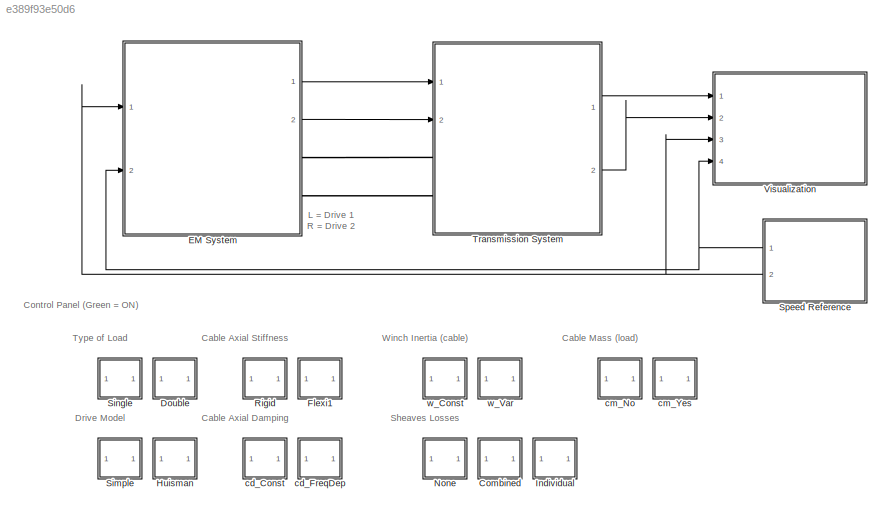
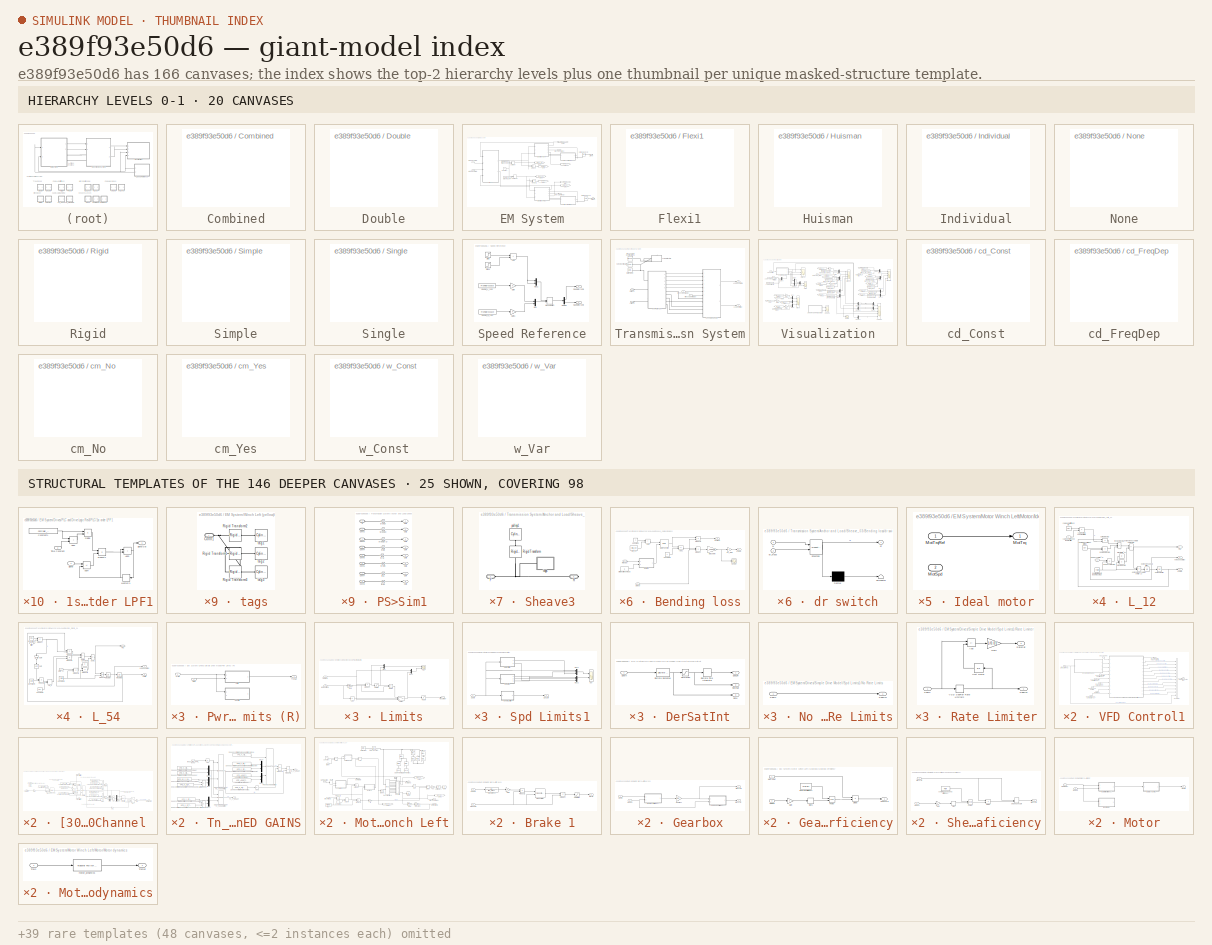
[diagram: thumbnail index - top-2 hierarchy levels (20 canvases) + 25 structural-template representatives of the remaining 146 canvases]
MODEL slx_e389f93e50d6
KIND model
CONFIG AbsTol = auto
CONFIG EnableMultiTasking = off
CONFIG FixedStep = 1e-4
CONFIG MaxStep = auto
CONFIG MinStep = auto
CONFIG RelTol = auto
CONFIG SampleTimeConstraint = Unconstrained
CONFIG SolverName = ode45
CONFIG StartTime = 0.0
CONFIG StopTime = t_stop
BLOCK [SubSystem] Combined
  OpenFcn = cb_switch(gcb)
  Ports = []
  RequestExecContextInheritance = off
  Tag = btn_cablelosses
BLOCK [SubSystem] Double
  OpenFcn = cb_switch(gcb)
  Ports = []
  RequestExecContextInheritance = off
  Tag = btn_load
BLOCK [SubSystem] EM System
  Ports = [2, 2, 0, 0, 0, 0, 2]
  RequestExecContextInheritance = off
BLOCK [Reference] EM System/Belt-Cable Spool1  REF=sm_lib/Belts and Cables/Belt-Cable Spool
  Ports = [0, 0, 0, 0, 0, 1, 1]
  SourceBlock = sm_lib/Belts and Cables/Belt-Cable Spool
  SourceProductBaseCode = MS
  SourceType = Belt-Cable Spool
BLOCK [Reference] EM System/Belt-Cable Spool2  REF=sm_lib/Belts and Cables/Belt-Cable Spool
  Ports = [0, 0, 0, 0, 0, 1, 1]
  SourceBlock = sm_lib/Belts and Cables/Belt-Cable Spool
  SourceProductBaseCode = MS
  SourceType = Belt-Cable Spool
BLOCK [FromWorkspace] EM System/BrakeL_OFF
  Interpolate = off
  OutputAfterFinalValue = Holding final value
  VariableName = BrakeOffL_inp
BLOCK [FromWorkspace] EM System/BrakeR_OFF
  Interpolate = off
  OutputAfterFinalValue = Holding final value
  VariableName = BrakeOffR_inp
BLOCK [Constant] EM System/Constant
BLOCK [SubSystem] EM System/Drives
  Ports = [4, 2]
  RequestExecContextInheritance = off
BLOCK [Sum] EM System/Drives/Add
  IconShape = rectangular
  Ports = [2, 1]
BLOCK [BusSelector] EM System/Drives/Bus Selector
  Commented = on
  OutputSignals = signal1.[r1468] Speed Controller P-gain effective,signal1.[r1469] Speed Controller integral time effective,signal1.[r1480] Speed Controller PI torque Output,signal1.[r1481] Speed Controller P torque Output,signal1.[r1482] Speed Controller I torque Output,signal1.[r1508] Torque setpoint before supplementary torque,signal1.[r1516] Supplementary torque and acceleration torque
  Ports = [1, 7]
BLOCK [BusSelector] EM System/Drives/Bus Selector1
  Commented = on
  OutputSignals = signal1.[r1468] Speed Controller P-gain effective,signal1.[r1469] Speed Controller integral time effective,signal1.[r1480] Speed Controller PI torque Output,signal1.[r1481] Speed Controller P torque Output,signal1.[r1482] Speed Controller I torque Output,signal1.[r1508] Torque setpoint before supplementary torque,signal1.[r1516] Supplementary torque and acceleration torque
  Ports = [1, 7]
BLOCK [Constant] EM System/Drives/Constant
BLOCK [Constant] EM System/Drives/Constant1
BLOCK [Scope] EM System/Drives/DIAG1
  Commented = on
  Floating = off
  NumInputPorts = 7
  Ports = [7]
  ScopeSpecificationString = Simulink.scopes.TimeScopeBlockCfg('CurrentConfiguration', extmgr.ConfigurationSet(extmgr.Configuration('Core','General UI',true),extmgr.Configuration('Core','Source UI',true),extmgr.Configuration('Sources','WiredSimulink',true,'DataLoggingVariableName','ScopeData1'),extmgr.Configuration('Visuals','Time Domain',true,'SerializedDisplays',{struct('MinYLimReal','10.174','MaxYLimReal','30.174','YLabelR...<+6711ch>
BLOCK [Scope] EM System/Drives/DIAG2
  Commented = on
  Floating = off
  NumInputPorts = 7
  Ports = [7]
  ScopeSpecificationString = Simulink.scopes.TimeScopeBlockCfg('CurrentConfiguration', extmgr.ConfigurationSet(extmgr.Configuration('Core','General UI',true),extmgr.Configuration('Core','Source UI',true),extmgr.Configuration('Sources','WiredSimulink',true,'DataLoggingVariableName','ScopeData2'),extmgr.Configuration('Visuals','Time Domain',true,'SerializedDisplays',{struct('MinYLimReal','-2.52175','MaxYLimReal','22.69575','YLa...<+6831ch>
BLOCK [Gain] EM System/Drives/Gain1
  Gain = -1
BLOCK [Gain] EM System/Drives/Gain2
  Gain = -1
BLOCK [Gain] EM System/Drives/Gain5
  Gain = -1
BLOCK [SubSystem] EM System/Drives/PLC and Drive Logic Rev3
  AncestorBlock = Control_Library_Rev3/PLC and Drive Logic
  Ports = [9, 6]
  RequestExecContextInheritance = off
BLOCK [BusCreator] EM System/Drives/PLC and Drive Logic Rev3/Bus Creator
  DisplayOption = bar
  InheritFromInputs = on
  Inputs = 2
  Ports = [2, 1]
BLOCK [BusCreator] EM System/Drives/PLC and Drive Logic Rev3/Bus Creator1
  DisplayOption = bar
  InheritFromInputs = on
  Inputs = 2
  Ports = [2, 1]
BLOCK [Inport] EM System/Drives/PLC and Drive Logic Rev3/HMI Motor 1 CSV Speed Setpoint (rpm)
BLOCK [Inport] EM System/Drives/PLC and Drive Logic Rev3/HMI Motor 1 Start Test [0...1]
  Port = 3
BLOCK [Inport] EM System/Drives/PLC and Drive Logic Rev3/HMI Motor 2 CSV Speed Setpoint (rpm)
  Port = 4
BLOCK [Inport] EM System/Drives/PLC and Drive Logic Rev3/HMI Motor 2 Start Test [0...1]
  Port = 5
BLOCK [Outport] EM System/Drives/PLC and Drive Logic Rev3/M1 [r0079] M_set total (Torque setpoint [Nm])
BLOCK [Outport] EM System/Drives/PLC and Drive Logic Rev3/M2 [r0079] M_set total (Torque setpoint [Nm])
  Port = 4
BLOCK [Inport] EM System/Drives/PLC and Drive Logic Rev3/Motor 1 Actual Speed (rpm)
  Port = 2
BLOCK [Outport] EM System/Drives/PLC and Drive Logic Rev3/Motor 1 Diagnostics Bus
  Port = 3
BLOCK [Inport] EM System/Drives/PLC and Drive Logic Rev3/Motor 2 Actual Speed (rpm)
  Port = 6
BLOCK [Outport] EM System/Drives/PLC and Drive Logic Rev3/Motor 2 Diagnostics Bus
  Port = 5
BLOCK [SubSystem] EM System/Drives/PLC and Drive Logic Rev3/PLC
  Ports = [4, 12]
  RequestExecContextInheritance = off
  SystemSampleTime = Controller_sampleTime
  TreatAsAtomicUnit = on
BLOCK [SubSystem] EM System/Drives/PLC and Drive Logic Rev3/PLC/1st order LPF1
  Ports = [2, 1]
  RequestExecContextInheritance = off
BLOCK [Sum] EM System/Drives/PLC and Drive Logic Rev3/PLC/1st order LPF1/Add1
  IconShape = rectangular
  Ports = [2, 1]
BLOCK [Sum] EM System/Drives/PLC and Drive Logic Rev3/PLC/1st order LPF1/Add3
  IconShape = rectangular
  Ports = [2, 1]
BLOCK [Sum] EM System/Drives/PLC and Drive Logic Rev3/PLC/1st order LPF1/Add4
  IconShape = rectangular
  Inputs = +-
  Ports = [2, 1]
BLOCK [Constant] EM System/Drives/PLC and Drive Logic Rev3/PLC/1st order LPF1/Constant1
  Value = Controller_sampleTime
BLOCK [Product] EM System/Drives/PLC and Drive Logic Rev3/PLC/1st order LPF1/Divide
  Inputs = */
  Ports = [2, 1]
BLOCK [Memory] EM System/Drives/PLC and Drive Logic Rev3/PLC/1st order LPF1/Memory1
  InheritSampleTime = on
  InitialCondition = Yo
BLOCK [Product] EM System/Drives/PLC and Drive Logic Rev3/PLC/1st order LPF1/Product1
  Ports = [2, 1]
  RndMeth = Zero
BLOCK [Inport] EM System/Drives/PLC and Drive Logic Rev3/PLC/1st order LPF1/Signal
BLOCK [Outport] EM System/Drives/PLC and Drive Logic Rev3/PLC/1st order LPF1/Signal Out
  VectorParamsAs1DForOutWhenUnconnected = off
BLOCK [Inport] EM System/Drives/PLC and Drive Logic Rev3/PLC/1st order LPF1/Time Constant
  Port = 2
BLOCK [SubSystem] EM System/Drives/PLC and Drive Logic Rev3/PLC/1st order LPF2
  Ports = [2, 1]
  RequestExecContextInheritance = off
BLOCK [Sum] EM System/Drives/PLC and Drive Logic Rev3/PLC/1st order LPF2/Add1
  IconShape = rectangular
  Ports = [2, 1]
BLOCK [Sum] EM System/Drives/PLC and Drive Logic Rev3/PLC/1st order LPF2/Add3
  IconShape = rectangular
  Ports = [2, 1]
BLOCK [Sum] EM System/Drives/PLC and Drive Logic Rev3/PLC/1st order LPF2/Add4
  IconShape = rectangular
  Inputs = +-
  Ports = [2, 1]
BLOCK [Constant] EM System/Drives/PLC and Drive Logic Rev3/PLC/1st order LPF2/Constant1
  Value = Controller_sampleTime
BLOCK [Product] EM System/Drives/PLC and Drive Logic Rev3/PLC/1st order LPF2/Divide
  Inputs = */
  Ports = [2, 1]
BLOCK [Memory] EM System/Drives/PLC and Drive Logic Rev3/PLC/1st order LPF2/Memory1
  InheritSampleTime = on
  InitialCondition = Yo
BLOCK [Product] EM System/Drives/PLC and Drive Logic Rev3/PLC/1st order LPF2/Product1
  Ports = [2, 1]
  RndMeth = Zero
BLOCK [Inport] EM System/Drives/PLC and Drive Logic Rev3/PLC/1st order LPF2/Signal
BLOCK [Outport] EM System/Drives/PLC and Drive Logic Rev3/PLC/1st order LPF2/Signal Out
  VectorParamsAs1DForOutWhenUnconnected = off
BLOCK [Inport] EM System/Drives/PLC and Drive Logic Rev3/PLC/1st order LPF2/Time Constant
  Port = 2
BLOCK [Constant] EM System/Drives/PLC and Drive Logic Rev3/PLC/Acceleration time (s)
BLOCK [Constant] EM System/Drives/PLC and Drive Logic Rev3/PLC/Acceleration time (s)1
BLOCK [Sum] EM System/Drives/PLC and Drive Logic Rev3/PLC/Add1
  IconShape = rectangular
  Ports = [2, 1]
BLOCK [Sum] EM System/Drives/PLC and Drive Logic Rev3/PLC/Add2
  IconShape = rectangular
  Ports = [2, 1]
BLOCK [DataTypeConversion] EM System/Drives/PLC and Drive Logic Rev3/PLC/Data Type Conversion
  OutDataTypeStr = double
  RndMeth = Floor
  SaturateOnIntegerOverflow = off
BLOCK [DataTypeConversion] EM System/Drives/PLC and Drive Logic Rev3/PLC/Data Type Conversion1
  OutDataTypeStr = double
  RndMeth = Floor
  SaturateOnIntegerOverflow = off
BLOCK [Product] EM System/Drives/PLC and Drive Logic Rev3/PLC/Divide
  Inputs = */
  Ports = [2, 1]
BLOCK [Product] EM System/Drives/PLC and Drive Logic Rev3/PLC/Divide1
  Inputs = */
  Ports = [2, 1]
BLOCK [Constant] EM System/Drives/PLC and Drive Logic Rev3/PLC/Droop Filter Time (ms)1
  Value = 100
BLOCK [Constant] EM System/Drives/PLC and Drive Logic Rev3/PLC/Droop Filter Time (ms)2
  Value = 100
BLOCK [Constant] EM System/Drives/PLC and Drive Logic Rev3/PLC/Droop percentage at zero speed1
  Value = Droop_scaling
BLOCK [Constant] EM System/Drives/PLC and Drive Logic Rev3/PLC/Droop percentage at zero speed2
  Value = Droop_scaling
BLOCK [Logic] EM System/Drives/PLC and Drive Logic Rev3/PLC/Logical Operator
  AllPortsSameDT = off
  Operator = NOT
  OutDataTypeStr = boolean
  Ports = [1, 1]
BLOCK [Logic] EM System/Drives/PLC and Drive Logic Rev3/PLC/Logical Operator1
  AllPortsSameDT = off
  Operator = NOT
  OutDataTypeStr = boolean
  Ports = [1, 1]
BLOCK [Constant] EM System/Drives/PLC and Drive Logic Rev3/PLC/Maximum Torque
  Value = 1353
BLOCK [Constant] EM System/Drives/PLC and Drive Logic Rev3/PLC/Maximum Torque1
  Value = 1353
BLOCK [Constant] EM System/Drives/PLC and Drive Logic Rev3/PLC/Minimum Torque
  Value = -1353
BLOCK [Constant] EM System/Drives/PLC and Drive Logic Rev3/PLC/Minimum Torque1
  Value = -1353
BLOCK [Constant] EM System/Drives/PLC and Drive Logic Rev3/PLC/Minimum memorised Torque1
  Value = 863.6
BLOCK [Constant] EM System/Drives/PLC and Drive Logic Rev3/PLC/Minimum memorised Torque2
  Value = 863.6
BLOCK [Inport] EM System/Drives/PLC and Drive Logic Rev3/PLC/Motor 1 CSV Speed Setpoint
BLOCK [Outport] EM System/Drives/PLC and Drive Logic Rev3/PLC/Motor 1 Droop Parameter (from PLC)
  Port = 4
BLOCK [Outport] EM System/Drives/PLC and Drive Logic Rev3/PLC/Motor 1 Enable Speed Setpoint (from PLC)
  Port = 5
BLOCK [Outport] EM System/Drives/PLC and Drive Logic Rev3/PLC/Motor 1 Speed Setpoint from PLC
BLOCK [Inport] EM System/Drives/PLC and Drive Logic Rev3/PLC/Motor 1 Start Test
  Port = 2
BLOCK [Outport] EM System/Drives/PLC and Drive Logic Rev3/PLC/Motor 1 Torque limit lower (from PLC)
  Port = 3
BLOCK [Outport] EM System/Drives/PLC and Drive Logic Rev3/PLC/Motor 1 Torque limit upper (from PLC)
  Port = 2
BLOCK [Inport] EM System/Drives/PLC and Drive Logic Rev3/PLC/Motor 2 CSV Speed Setpoint
  Port = 3
BLOCK [Outport] EM System/Drives/PLC and Drive Logic Rev3/PLC/Motor 2 Droop Parameter (from PLC)
  Port = 10
BLOCK [Outport] EM System/Drives/PLC and Drive Logic Rev3/PLC/Motor 2 Enable Speed Setpoint (from PLC)
  Port = 11
BLOCK [Outport] EM System/Drives/PLC and Drive Logic Rev3/PLC/Motor 2 Speed Setpoint from PLC
  Port = 7
BLOCK [Inport] EM System/Drives/PLC and Drive Logic Rev3/PLC/Motor 2 Start Test
  Port = 4
BLOCK [Outport] EM System/Drives/PLC and Drive Logic Rev3/PLC/Motor 2 Torque limit lower (from PLC)
  Port = 9
BLOCK [Outport] EM System/Drives/PLC and Drive Logic Rev3/PLC/Motor 2 Torque limit upper (from PLC)
  Port = 8
BLOCK [Product] EM System/Drives/PLC and Drive Logic Rev3/PLC/Product1
  Inputs = **
  Ports = [2, 1]
BLOCK [Product] EM System/Drives/PLC and Drive Logic Rev3/PLC/Product2
  Inputs = **
  Ports = [2, 1]
BLOCK [Product] EM System/Drives/PLC and Drive Logic Rev3/PLC/Product3
  Ports = [2, 1]
BLOCK [Product] EM System/Drives/PLC and Drive Logic Rev3/PLC/Product4
  Ports = [2, 1]
BLOCK [Product] EM System/Drives/PLC and Drive Logic Rev3/PLC/Product5
  Inputs = **
  Ports = [2, 1]
BLOCK [Product] EM System/Drives/PLC and Drive Logic Rev3/PLC/Product6
  Inputs = **
  Ports = [2, 1]
BLOCK [Reference] EM System/Drives/PLC and Drive Logic Rev3/PLC/Rate Limiter Dynamic  REF=simulink/Discontinuities/Rate Limiter
Dynamic
  NameLocation = top
  Ports = [3, 1]
  SourceBlock = simulink/Discontinuities/Rate Limiter\nDynamic
  SourceProductBaseCode = SL
  SourceType = Rate Limiter Dynamic
BLOCK [Reference] EM System/Drives/PLC and Drive Logic Rev3/PLC/Rate Limiter Dynamic1  REF=simulink/Discontinuities/Rate Limiter
Dynamic
  Ports = [3, 1]
  SourceBlock = simulink/Discontinuities/Rate Limiter\nDynamic
  SourceProductBaseCode = SL
  SourceType = Rate Limiter Dynamic
BLOCK [Reference] EM System/Drives/PLC and Drive Logic Rev3/PLC/Rate Limiter Dynamic2  REF=simulink/Discontinuities/Rate Limiter
Dynamic
  NameLocation = top
  Ports = [3, 1]
  SourceBlock = simulink/Discontinuities/Rate Limiter\nDynamic
  SourceProductBaseCode = SL
  SourceType = Rate Limiter Dynamic
BLOCK [Reference] EM System/Drives/PLC and Drive Logic Rev3/PLC/Rate Limiter Dynamic3  REF=simulink/Discontinuities/Rate Limiter
Dynamic
  Ports = [3, 1]
  SourceBlock = simulink/Discontinuities/Rate Limiter\nDynamic
  SourceProductBaseCode = SL
  SourceType = Rate Limiter Dynamic
BLOCK [Constant] EM System/Drives/PLC and Drive Logic Rev3/PLC/Reference speed
  Value = 1680
BLOCK [Constant] EM System/Drives/PLC and Drive Logic Rev3/PLC/Reference speed1
  Value = 1680
BLOCK [Constant] EM System/Drives/PLC and Drive Logic Rev3/PLC/Setpoint max rate positive (sp//s)
  Value = 3000
BLOCK [Constant] EM System/Drives/PLC and Drive Logic Rev3/PLC/Setpoint max rate positive (sp//s)1
  Value = -3000
BLOCK [Constant] EM System/Drives/PLC and Drive Logic Rev3/PLC/Setpoint max rate positive (sp//s)2
  Value = 3000
BLOCK [Constant] EM System/Drives/PLC and Drive Logic Rev3/PLC/Setpoint max rate positive (sp//s)3
  Value = -3000
BLOCK [Outport] EM System/Drives/PLC and Drive Logic Rev3/PLC/Winch 1 Brake on command (from PLC)
  Port = 6
BLOCK [Outport] EM System/Drives/PLC and Drive Logic Rev3/PLC/Winch 2 Brake on command (from PLC)
  Port = 12
BLOCK [Gain] EM System/Drives/PLC and Drive Logic Rev3/PLC/ms->s1
  Gain = -1
BLOCK [Gain] EM System/Drives/PLC and Drive Logic Rev3/PLC/ms->s2
  Gain = -1
BLOCK [Gain] EM System/Drives/PLC and Drive Logic Rev3/PLC/ms->s3
  Gain = 1e-3
BLOCK [Gain] EM System/Drives/PLC and Drive Logic Rev3/PLC/ms->s4
  Gain = 1e-3
BLOCK [Gain] EM System/Drives/PLC and Drive Logic Rev3/PLC/n//M1
  Gain = 4.63/2.52982
BLOCK [Gain] EM System/Drives/PLC and Drive Logic Rev3/PLC/n//M2
  Gain = 4.63/2.52982
BLOCK [SubSystem] EM System/Drives/PLC and Drive Logic Rev3/VFD Control1
  AncestorBlock = Control_Library_Rev3/VFD Control
  Ports = [8, 2]
  RequestExecContextInheritance = off
  SystemSampleTime = Controller_sampleTime
  TreatAsAtomicUnit = on
BLOCK [BusCreator] EM System/Drives/PLC and Drive Logic Rev3/VFD Control1/Bus Creator
  DisplayOption = bar
  InheritFromInputs = on
  Inputs = 12
  Ports = [12, 1]
BLOCK [Inport] EM System/Drives/PLC and Drive Logic Rev3/VFD Control1/Enable Speed Controller
  Port = 6
BLOCK [Inport] EM System/Drives/PLC and Drive Logic Rev3/VFD Control1/Measured RPM
  NameLocation = top
BLOCK [Outport] EM System/Drives/PLC and Drive Logic Rev3/VFD Control1/Motor 1 Diagnostics Bus
  Port = 2
BLOCK [Inport] EM System/Drives/PLC and Drive Logic Rev3/VFD Control1/WAB Mode
  Port = 7
BLOCK [Inport] EM System/Drives/PLC and Drive Logic Rev3/VFD Control1/WAB Mode Speed_Controller Setpoint (r1438)
  Port = 8
BLOCK [SubSystem] EM System/Drives/PLC and Drive Logic Rev3/VFD Control1/[3001] Setpoint Channel 
  Ports = [1, 3]
  RequestExecContextInheritance = off
BLOCK [Demux] EM System/Drives/PLC and Drive Logic Rev3/VFD Control1/[3001] Setpoint Channel /Demux
  Outputs = 2
  Ports = [1, 2]
BLOCK [Product] EM System/Drives/PLC and Drive Logic Rev3/VFD Control1/[3001] Setpoint Channel /Divide
  Inputs = **
  Ports = [2, 1]
BLOCK [Product] EM System/Drives/PLC and Drive Logic Rev3/VFD Control1/[3001] Setpoint Channel /Divide1
  Inputs = */
  Ports = [2, 1]
BLOCK [Product] EM System/Drives/PLC and Drive Logic Rev3/VFD Control1/[3001] Setpoint Channel /Divide2
  Inputs = **
  Ports = [2, 1]
BLOCK [Product] EM System/Drives/PLC and Drive Logic Rev3/VFD Control1/[3001] Setpoint Channel /Divide3
  Inputs = */
  Ports = [2, 1]
BLOCK [Gain] EM System/Drives/PLC and Drive Logic Rev3/VFD Control1/[3001] Setpoint Channel /Gain1
  Gain = -1
BLOCK [Gain] EM System/Drives/PLC and Drive Logic Rev3/VFD Control1/[3001] Setpoint Channel /Gain2
  Gain = -1
  NameLocation = left
BLOCK [Gain] EM System/Drives/PLC and Drive Logic Rev3/VFD Control1/[3001] Setpoint Channel /Gain3
BLOCK [Gain] EM System/Drives/PLC and Drive Logic Rev3/VFD Control1/[3001] Setpoint Channel /Gain4
BLOCK [Gain] EM System/Drives/PLC and Drive Logic Rev3/VFD Control1/[3001] Setpoint Channel /Gain5
BLOCK [Gain] EM System/Drives/PLC and Drive Logic Rev3/VFD Control1/[3001] Setpoint Channel /Gain6
  Gain = -1
BLOCK [Constant] EM System/Drives/PLC and Drive Logic Rev3/VFD Control1/[3001] Setpoint Channel /Maximum speed
  Value = VFD_n_max_p1082
BLOCK [Constant] EM System/Drives/PLC and Drive Logic Rev3/VFD Control1/[3001] Setpoint Channel /Maximum speed1
  Value = VFD_n_max_p1082
BLOCK [Constant] EM System/Drives/PLC and Drive Logic Rev3/VFD Control1/[3001] Setpoint Channel /Maximum speed2
BLOCK [Constant] EM System/Drives/PLC and Drive Logic Rev3/VFD Control1/[3001] Setpoint Channel /Maximum speed3
  Value = VFD_n_max_p1082
BLOCK [MinMax] EM System/Drives/PLC and Drive Logic Rev3/VFD Control1/[3001] Setpoint Channel /MinMax
  Inputs = 3
  Ports = [3, 1]
BLOCK [MinMax] EM System/Drives/PLC and Drive Logic Rev3/VFD Control1/[3001] Setpoint Channel /MinMax1
  Function = max
  Inputs = 3
  Ports = [3, 1]
BLOCK [Mux] EM System/Drives/PLC and Drive Logic Rev3/VFD Control1/[3001] Setpoint Channel /Mux
  DisplayOption = bar
  Inputs = 2
  Ports = [2, 1]
BLOCK [Mux] EM System/Drives/PLC and Drive Logic Rev3/VFD Control1/[3001] Setpoint Channel /Mux1
  DisplayOption = bar
  Inputs = 2
  Ports = [2, 1]
BLOCK [Constant] EM System/Drives/PLC and Drive Logic Rev3/VFD Control1/[3001] Setpoint Channel /Ramp-function generator ramp-down time
  Value = VFD_RFG_ramp_down_time_p1121
BLOCK [Constant] EM System/Drives/PLC and Drive Logic Rev3/VFD Control1/[3001] Setpoint Channel /Ramp-function generator ramp-down time scaling
  Value = VFD_RFG_t_RD_scal_p1139
  VectorParams1D = off
BLOCK [Constant] EM System/Drives/PLC and Drive Logic Rev3/VFD Control1/[3001] Setpoint Channel /Ramp-function generator ramp-up time 
  Value = VFD_RFG_ramp_up_time_p1120
BLOCK [Constant] EM System/Drives/PLC and Drive Logic Rev3/VFD Control1/[3001] Setpoint Channel /Ramp-function generator ramp-up time scaling 
  Value = VFD_RFG_t_RU_scal_p1138
BLOCK [Reference] EM System/Drives/PLC and Drive Logic Rev3/VFD Control1/[3001] Setpoint Channel /Rate Limiter Dynamic  REF=simulink/Discontinuities/Rate Limiter
Dynamic
  Ports = [3, 1]
  SourceBlock = simulink/Discontinuities/Rate Limiter\nDynamic
  SourceProductBaseCode = SL
  SourceType = Rate Limiter Dynamic
BLOCK [Reference] EM System/Drives/PLC and Drive Logic Rev3/VFD Control1/[3001] Setpoint Channel /Saturation Dynamic  REF=simulink/Discontinuities/Saturation
Dynamic
  Ports = [3, 1]
  SourceBlock = simulink/Discontinuities/Saturation\nDynamic
  SourceProductBaseCode = SL
  SourceType = Saturation Dynamic
BLOCK [Reference] EM System/Drives/PLC and Drive Logic Rev3/VFD Control1/[3001] Setpoint Channel /Saturation Dynamic1  REF=simulink/Discontinuities/Saturation
Dynamic
  Ports = [3, 1]
  SourceBlock = simulink/Discontinuities/Saturation\nDynamic
  SourceProductBaseCode = SL
  SourceType = Saturation Dynamic
BLOCK [Reference] EM System/Drives/PLC and Drive Logic Rev3/VFD Control1/[3001] Setpoint Channel /Saturation Dynamic2  REF=simulink/Discontinuities/Saturation
Dynamic
  Ports = [3, 1]
  SourceBlock = simulink/Discontinuities/Saturation\nDynamic
  SourceProductBaseCode = SL
  SourceType = Saturation Dynamic
BLOCK [Constant] EM System/Drives/PLC and Drive Logic Rev3/VFD Control1/[3001] Setpoint Channel /Speed limit in negative direction of rotation 
  Value = VFD_n_limit_neg_p1086
BLOCK [Constant] EM System/Drives/PLC and Drive Logic Rev3/VFD Control1/[3001] Setpoint Channel /Speed limit in positive direction of rotation
  Value = VFD_n_limit_pos_p1083
BLOCK [Constant] EM System/Drives/PLC and Drive Logic Rev3/VFD Control1/[3001] Setpoint Channel /Speed limit setpoint channel
  Value = VFD_n_limit_setp_p1063
BLOCK [Switch] EM System/Drives/PLC and Drive Logic Rev3/VFD Control1/[3001] Setpoint Channel /Switch
  Criteria = u2 > Threshold
  InputSameDT = off
  SaturateOnIntegerOverflow = off
BLOCK [Switch] EM System/Drives/PLC and Drive Logic Rev3/VFD Control1/[3001] Setpoint Channel /Switch1
  Criteria = u2 > Threshold
  InputSameDT = off
  SaturateOnIntegerOverflow = off
BLOCK [Inport] EM System/Drives/PLC and Drive Logic Rev3/VFD Control1/[3001] Setpoint Channel /[p1070(0)] Main Setpoint
BLOCK [Outport] EM System/Drives/PLC and Drive Logic Rev3/VFD Control1/[3001] Setpoint Channel /[r1084] n_limit pos eff Positive Speed limit (rpm)
  NameLocation = top
  Port = 2
  VectorParamsAs1DForOutWhenUnconnected = off
BLOCK [Outport] EM System/Drives/PLC and Drive Logic Rev3/VFD Control1/[3001] Setpoint Channel /[r1087] n_limit neg eff Negative Speed limit (rpm)
  Port = 3
  VectorParamsAs1DForOutWhenUnconnected = off
BLOCK [Outport] EM System/Drives/PLC and Drive Logic Rev3/VFD Control1/[3001] Setpoint Channel /[r1170] n_ctrl setp sum (Speed setpoint after the RFG)
  VectorParamsAs1DForOutWhenUnconnected = off
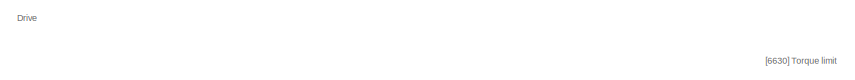
[diagram: EM System/Drives/PLC and Drive Logic Rev3/VFD Control1/[6020] Speed control and generation of the torque limits  - part 1/3, top left region]
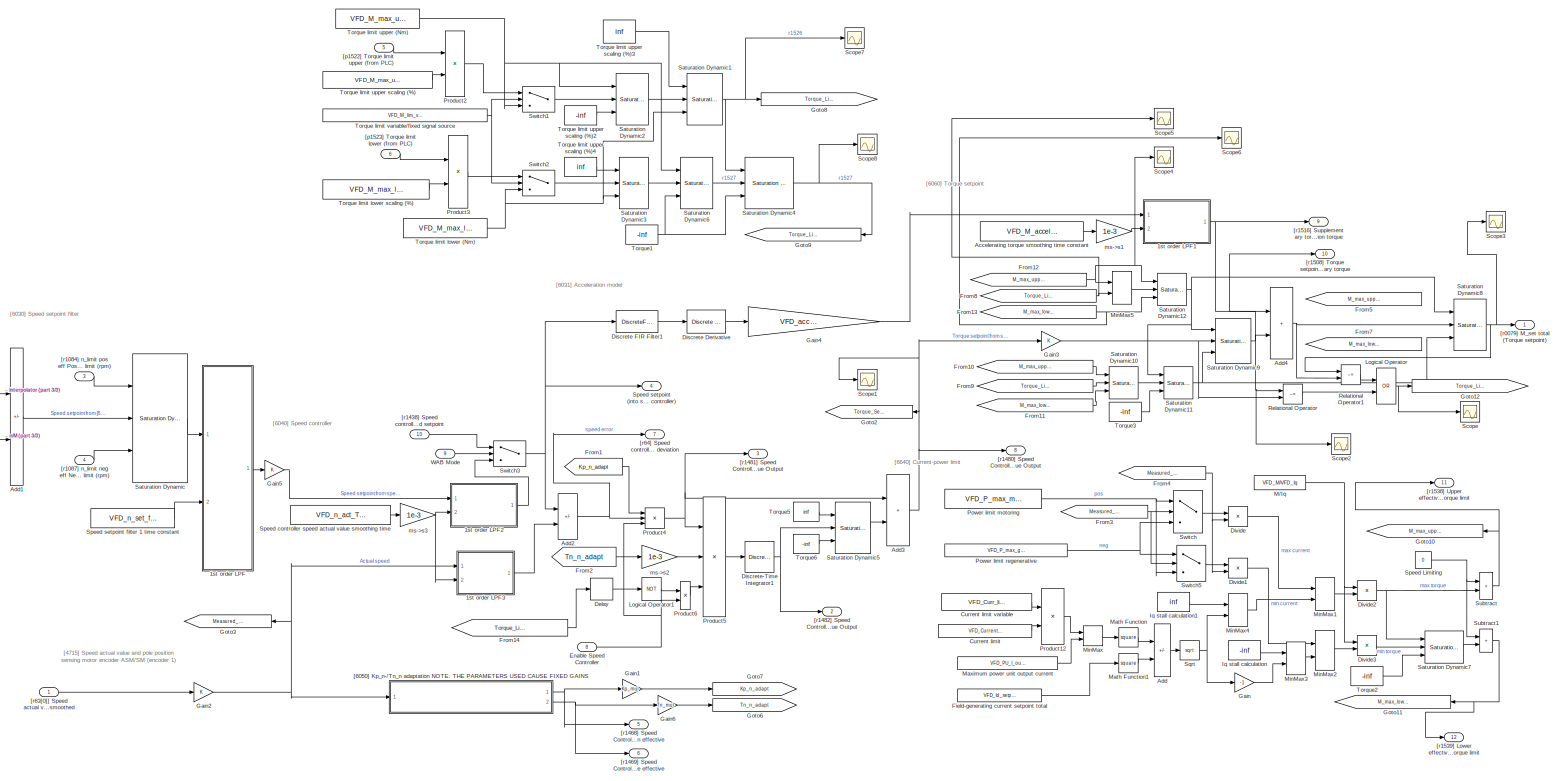
[diagram: EM System/Drives/PLC and Drive Logic Rev3/VFD Control1/[6020] Speed control and generation of the torque limits  - part 2/3, most of the canvas]
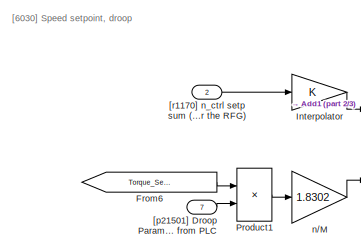
[diagram: EM System/Drives/PLC and Drive Logic Rev3/VFD Control1/[6020] Speed control and generation of the torque limits  - part 3/3, middle left region]
BLOCK [SubSystem] EM System/Drives/PLC and Drive Logic Rev3/VFD Control1/[6020] Speed control and generation of the torque limits 
  Ports = [10, 12]
  RequestExecContextInheritance = off
BLOCK [SubSystem] EM System/Drives/PLC and Drive Logic Rev3/VFD Control1/[6020] Speed control and generation of the torque limits /1st order LPF
  Ports = [2, 1]
  RequestExecContextInheritance = off
BLOCK [Sum] EM System/Drives/PLC and Drive Logic Rev3/VFD Control1/[6020] Speed control and generation of the torque limits /1st order LPF/Add1
  IconShape = rectangular
  Ports = [2, 1]
BLOCK [Sum] EM System/Drives/PLC and Drive Logic Rev3/VFD Control1/[6020] Speed control and generation of the torque limits /1st order LPF/Add3
  IconShape = rectangular
  Ports = [2, 1]
BLOCK [Sum] EM System/Drives/PLC and Drive Logic Rev3/VFD Control1/[6020] Speed control and generation of the torque limits /1st order LPF/Add4
  IconShape = rectangular
  Inputs = +-
  Ports = [2, 1]
BLOCK [Constant] EM System/Drives/PLC and Drive Logic Rev3/VFD Control1/[6020] Speed control and generation of the torque limits /1st order LPF/Constant1
  Value = Controller_sampleTime
BLOCK [Product] EM System/Drives/PLC and Drive Logic Rev3/VFD Control1/[6020] Speed control and generation of the torque limits /1st order LPF/Divide
  Inputs = */
  Ports = [2, 1]
BLOCK [Memory] EM System/Drives/PLC and Drive Logic Rev3/VFD Control1/[6020] Speed control and generation of the torque limits /1st order LPF/Memory1
  InheritSampleTime = on
  InitialCondition = Yo
BLOCK [Product] EM System/Drives/PLC and Drive Logic Rev3/VFD Control1/[6020] Speed control and generation of the torque limits /1st order LPF/Product1
  Ports = [2, 1]
  RndMeth = Zero
BLOCK [Inport] EM System/Drives/PLC and Drive Logic Rev3/VFD Control1/[6020] Speed control and generation of the torque limits /1st order LPF/Signal
BLOCK [Outport] EM System/Drives/PLC and Drive Logic Rev3/VFD Control1/[6020] Speed control and generation of the torque limits /1st order LPF/Signal Out
  VectorParamsAs1DForOutWhenUnconnected = off
BLOCK [Inport] EM System/Drives/PLC and Drive Logic Rev3/VFD Control1/[6020] Speed control and generation of the torque limits /1st order LPF/Time Constant
  Port = 2
BLOCK [SubSystem] EM System/Drives/PLC and Drive Logic Rev3/VFD Control1/[6020] Speed control and generation of the torque limits /1st order LPF1
  Ports = [2, 1]
  RequestExecContextInheritance = off
BLOCK [Sum] EM System/Drives/PLC and Drive Logic Rev3/VFD Control1/[6020] Speed control and generation of the torque limits /1st order LPF1/Add1
  IconShape = rectangular
  Ports = [2, 1]
BLOCK [Sum] EM System/Drives/PLC and Drive Logic Rev3/VFD Control1/[6020] Speed control and generation of the torque limits /1st order LPF1/Add3
  IconShape = rectangular
  Ports = [2, 1]
BLOCK [Sum] EM System/Drives/PLC and Drive Logic Rev3/VFD Control1/[6020] Speed control and generation of the torque limits /1st order LPF1/Add4
  IconShape = rectangular
  Inputs = +-
  Ports = [2, 1]
BLOCK [Constant] EM System/Drives/PLC and Drive Logic Rev3/VFD Control1/[6020] Speed control and generation of the torque limits /1st order LPF1/Constant1
  Value = Controller_sampleTime
BLOCK [Product] EM System/Drives/PLC and Drive Logic Rev3/VFD Control1/[6020] Speed control and generation of the torque limits /1st order LPF1/Divide
  Inputs = */
  Ports = [2, 1]
BLOCK [Memory] EM System/Drives/PLC and Drive Logic Rev3/VFD Control1/[6020] Speed control and generation of the torque limits /1st order LPF1/Memory1
  InheritSampleTime = on
  InitialCondition = Yo
BLOCK [Product] EM System/Drives/PLC and Drive Logic Rev3/VFD Control1/[6020] Speed control and generation of the torque limits /1st order LPF1/Product1
  Ports = [2, 1]
  RndMeth = Zero
BLOCK [Inport] EM System/Drives/PLC and Drive Logic Rev3/VFD Control1/[6020] Speed control and generation of the torque limits /1st order LPF1/Signal
BLOCK [Outport] EM System/Drives/PLC and Drive Logic Rev3/VFD Control1/[6020] Speed control and generation of the torque limits /1st order LPF1/Signal Out
  VectorParamsAs1DForOutWhenUnconnected = off
BLOCK [Inport] EM System/Drives/PLC and Drive Logic Rev3/VFD Control1/[6020] Speed control and generation of the torque limits /1st order LPF1/Time Constant
  Port = 2
BLOCK [SubSystem] EM System/Drives/PLC and Drive Logic Rev3/VFD Control1/[6020] Speed control and generation of the torque limits /1st order LPF2
  Ports = [2, 1]
  RequestExecContextInheritance = off
BLOCK [Sum] EM System/Drives/PLC and Drive Logic Rev3/VFD Control1/[6020] Speed control and generation of the torque limits /1st order LPF2/Add1
  IconShape = rectangular
  Ports = [2, 1]
BLOCK [Sum] EM System/Drives/PLC and Drive Logic Rev3/VFD Control1/[6020] Speed control and generation of the torque limits /1st order LPF2/Add3
  IconShape = rectangular
  Ports = [2, 1]
BLOCK [Sum] EM System/Drives/PLC and Drive Logic Rev3/VFD Control1/[6020] Speed control and generation of the torque limits /1st order LPF2/Add4
  IconShape = rectangular
  Inputs = +-
  Ports = [2, 1]
BLOCK [Constant] EM System/Drives/PLC and Drive Logic Rev3/VFD Control1/[6020] Speed control and generation of the torque limits /1st order LPF2/Constant1
  Value = Controller_sampleTime
BLOCK [Product] EM System/Drives/PLC and Drive Logic Rev3/VFD Control1/[6020] Speed control and generation of the torque limits /1st order LPF2/Divide
  Inputs = */
  Ports = [2, 1]
BLOCK [Memory] EM System/Drives/PLC and Drive Logic Rev3/VFD Control1/[6020] Speed control and generation of the torque limits /1st order LPF2/Memory1
  InheritSampleTime = on
  InitialCondition = Yo
BLOCK [Product] EM System/Drives/PLC and Drive Logic Rev3/VFD Control1/[6020] Speed control and generation of the torque limits /1st order LPF2/Product1
  Ports = [2, 1]
  RndMeth = Zero
BLOCK [Inport] EM System/Drives/PLC and Drive Logic Rev3/VFD Control1/[6020] Speed control and generation of the torque limits /1st order LPF2/Signal
BLOCK [Outport] EM System/Drives/PLC and Drive Logic Rev3/VFD Control1/[6020] Speed control and generation of the torque limits /1st order LPF2/Signal Out
  VectorParamsAs1DForOutWhenUnconnected = off
BLOCK [Inport] EM System/Drives/PLC and Drive Logic Rev3/VFD Control1/[6020] Speed control and generation of the torque limits /1st order LPF2/Time Constant
  Port = 2
BLOCK [SubSystem] EM System/Drives/PLC and Drive Logic Rev3/VFD Control1/[6020] Speed control and generation of the torque limits /1st order LPF3
  Ports = [2, 1]
  RequestExecContextInheritance = off
BLOCK [Sum] EM System/Drives/PLC and Drive Logic Rev3/VFD Control1/[6020] Speed control and generation of the torque limits /1st order LPF3/Add1
  IconShape = rectangular
  Ports = [2, 1]
BLOCK [Sum] EM System/Drives/PLC and Drive Logic Rev3/VFD Control1/[6020] Speed control and generation of the torque limits /1st order LPF3/Add3
  IconShape = rectangular
  Ports = [2, 1]
BLOCK [Sum] EM System/Drives/PLC and Drive Logic Rev3/VFD Control1/[6020] Speed control and generation of the torque limits /1st order LPF3/Add4
  IconShape = rectangular
  Inputs = +-
  Ports = [2, 1]
BLOCK [Constant] EM System/Drives/PLC and Drive Logic Rev3/VFD Control1/[6020] Speed control and generation of the torque limits /1st order LPF3/Constant1
  Value = Controller_sampleTime
BLOCK [Product] EM System/Drives/PLC and Drive Logic Rev3/VFD Control1/[6020] Speed control and generation of the torque limits /1st order LPF3/Divide
  Inputs = */
  Ports = [2, 1]
BLOCK [Memory] EM System/Drives/PLC and Drive Logic Rev3/VFD Control1/[6020] Speed control and generation of the torque limits /1st order LPF3/Memory1
  InheritSampleTime = on
  InitialCondition = Yo
BLOCK [Product] EM System/Drives/PLC and Drive Logic Rev3/VFD Control1/[6020] Speed control and generation of the torque limits /1st order LPF3/Product1
  Ports = [2, 1]
  RndMeth = Zero
BLOCK [Inport] EM System/Drives/PLC and Drive Logic Rev3/VFD Control1/[6020] Speed control and generation of the torque limits /1st order LPF3/Signal
BLOCK [Outport] EM System/Drives/PLC and Drive Logic Rev3/VFD Control1/[6020] Speed control and generation of the torque limits /1st order LPF3/Signal Out
  VectorParamsAs1DForOutWhenUnconnected = off
BLOCK [Inport] EM System/Drives/PLC and Drive Logic Rev3/VFD Control1/[6020] Speed control and generation of the torque limits /1st order LPF3/Time Constant
  Port = 2
BLOCK [Constant] EM System/Drives/PLC and Drive Logic Rev3/VFD Control1/[6020] Speed control and generation of the torque limits /Accelerating torque smoothing time constant
  Value = VFD_M_accel_T_smooth_p1517
BLOCK [Sum] EM System/Drives/PLC and Drive Logic Rev3/VFD Control1/[6020] Speed control and generation of the torque limits /Add
  IconShape = rectangular
  Inputs = +-
  Ports = [2, 1]
BLOCK [Sum] EM System/Drives/PLC and Drive Logic Rev3/VFD Control1/[6020] Speed control and generation of the torque limits /Add1
  IconShape = rectangular
  Inputs = +-
  Ports = [2, 1]
BLOCK [Sum] EM System/Drives/PLC and Drive Logic Rev3/VFD Control1/[6020] Speed control and generation of the torque limits /Add2
  IconShape = rectangular
  Inputs = +-
  Ports = [2, 1]
BLOCK [Sum] EM System/Drives/PLC and Drive Logic Rev3/VFD Control1/[6020] Speed control and generation of the torque limits /Add3
  IconShape = rectangular
  Ports = [2, 1]
BLOCK [Sum] EM System/Drives/PLC and Drive Logic Rev3/VFD Control1/[6020] Speed control and generation of the torque limits /Add4
  IconShape = rectangular
  Ports = [2, 1]
BLOCK [Constant] EM System/Drives/PLC and Drive Logic Rev3/VFD Control1/[6020] Speed control and generation of the torque limits /Current limit
  Value = VFD_Current_limit_p0640
BLOCK [Constant] EM System/Drives/PLC and Drive Logic Rev3/VFD Control1/[6020] Speed control and generation of the torque limits /Current limit variable
  Value = VFD_Curr_limit_var_p0641
BLOCK [Delay] EM System/Drives/PLC and Drive Logic Rev3/VFD Control1/[6020] Speed control and generation of the torque limits /Delay
  DelayLength = 1
  InputPortMap = u0
  Ports = [1, 1]
BLOCK [Reference] EM System/Drives/PLC and Drive Logic Rev3/VFD Control1/[6020] Speed control and generation of the torque limits /Discrete Derivative  REF=simulink/Discrete/Discrete Derivative
  Ports = [1, 1]
  SourceBlock = simulink/Discrete/Discrete Derivative
  SourceProductBaseCode = SL
  SourceType = Discrete Derivative
BLOCK [DiscreteFir] EM System/Drives/PLC and Drive Logic Rev3/VFD Control1/[6020] Speed control and generation of the torque limits /Discrete FIR Filter1
  Coefficients = filt_NUM
  InputPortMap = u0
  OutputPortMap = o0
  Ports = [1, 1]
BLOCK [DiscreteIntegrator] EM System/Drives/PLC and Drive Logic Rev3/VFD Control1/[6020] Speed control and generation of the torque limits /Discrete-Time Integrator1
  ICPrevOutput = DiscIntNeverNeededParam
  ICPrevScaledInput = DiscIntNeverNeededParam
  InitialCondition = -tau_m
  Ports = [1, 1]
  SampleTime = 0.001
BLOCK [Product] EM System/Drives/PLC and Drive Logic Rev3/VFD Control1/[6020] Speed control and generation of the torque limits /Divide
  Inputs = */
  Ports = [2, 1]
BLOCK [Product] EM System/Drives/PLC and Drive Logic Rev3/VFD Control1/[6020] Speed control and generation of the torque limits /Divide1
  Inputs = */
  Ports = [2, 1]
BLOCK [Product] EM System/Drives/PLC and Drive Logic Rev3/VFD Control1/[6020] Speed control and generation of the torque limits /Divide2
  Inputs = **
  Ports = [2, 1]
BLOCK [Product] EM System/Drives/PLC and Drive Logic Rev3/VFD Control1/[6020] Speed control and generation of the torque limits /Divide3
  Inputs = **
  Ports = [2, 1]
BLOCK [Inport] EM System/Drives/PLC and Drive Logic Rev3/VFD Control1/[6020] Speed control and generation of the torque limits /Enable Speed Controller
  Port = 8
BLOCK [Constant] EM System/Drives/PLC and Drive Logic Rev3/VFD Control1/[6020] Speed control and generation of the torque limits /Field-generating current setpoint total
  Value = VFD_Id_setp_total_r1624
BLOCK [From] EM System/Drives/PLC and Drive Logic Rev3/VFD Control1/[6020] Speed control and generation of the torque limits /From1
  GotoTag = Kp_n_adapt
BLOCK [From] EM System/Drives/PLC and Drive Logic Rev3/VFD Control1/[6020] Speed control and generation of the torque limits /From10
  GotoTag = M_max_upper_effective_r1538
BLOCK [From] EM System/Drives/PLC and Drive Logic Rev3/VFD Control1/[6020] Speed control and generation of the torque limits /From11
  GotoTag = M_max_lower_effective_r1539
BLOCK [From] EM System/Drives/PLC and Drive Logic Rev3/VFD Control1/[6020] Speed control and generation of the torque limits /From12
  GotoTag = M_max_upper_effective_r1538
BLOCK [From] EM System/Drives/PLC and Drive Logic Rev3/VFD Control1/[6020] Speed control and generation of the torque limits /From13
  GotoTag = M_max_lower_effective_r1539
BLOCK [From] EM System/Drives/PLC and Drive Logic Rev3/VFD Control1/[6020] Speed control and generation of the torque limits /From14
  GotoTag = Torque_Limit_Reached_r1407_7
BLOCK [From] EM System/Drives/PLC and Drive Logic Rev3/VFD Control1/[6020] Speed control and generation of the torque limits /From2
  GotoTag = Tn_n_adapt
BLOCK [From] EM System/Drives/PLC and Drive Logic Rev3/VFD Control1/[6020] Speed control and generation of the torque limits /From3
  GotoTag = Measured_RPM_r0063
BLOCK [From] EM System/Drives/PLC and Drive Logic Rev3/VFD Control1/[6020] Speed control and generation of the torque limits /From4
  GotoTag = Measured_RPM_r0063
BLOCK [From] EM System/Drives/PLC and Drive Logic Rev3/VFD Control1/[6020] Speed control and generation of the torque limits /From5
  GotoTag = M_max_upper_effective_r1538
BLOCK [From] EM System/Drives/PLC and Drive Logic Rev3/VFD Control1/[6020] Speed control and generation of the torque limits /From6
  GotoTag = Torque_Setpoint_Nm
  NameLocation = top
BLOCK [From] EM System/Drives/PLC and Drive Logic Rev3/VFD Control1/[6020] Speed control and generation of the torque limits /From7
  GotoTag = M_max_lower_effective_r1539
BLOCK [From] EM System/Drives/PLC and Drive Logic Rev3/VFD Control1/[6020] Speed control and generation of the torque limits /From8
  GotoTag = Torque_Limit_Upper_r1526
BLOCK [From] EM System/Drives/PLC and Drive Logic Rev3/VFD Control1/[6020] Speed control and generation of the torque limits /From9
  GotoTag = Torque_Limit_Lower_r1527
BLOCK [Gain] EM System/Drives/PLC and Drive Logic Rev3/VFD Control1/[6020] Speed control and generation of the torque limits /Gain
  Gain = -1
BLOCK [Gain] EM System/Drives/PLC and Drive Logic Rev3/VFD Control1/[6020] Speed control and generation of the torque limits /Gain1
  Gain = Kp_mul
BLOCK [Gain] EM System/Drives/PLC and Drive Logic Rev3/VFD Control1/[6020] Speed control and generation of the torque limits /Gain2
BLOCK [Gain] EM System/Drives/PLC and Drive Logic Rev3/VFD Control1/[6020] Speed control and generation of the torque limits /Gain3
BLOCK [Gain] EM System/Drives/PLC and Drive Logic Rev3/VFD Control1/[6020] Speed control and generation of the torque limits /Gain4
  Gain = VFD_acceleration_model_factor
BLOCK [Gain] EM System/Drives/PLC and Drive Logic Rev3/VFD Control1/[6020] Speed control and generation of the torque limits /Gain5
BLOCK [Gain] EM System/Drives/PLC and Drive Logic Rev3/VFD Control1/[6020] Speed control and generation of the torque limits /Gain6
  Gain = Tn_mul
BLOCK [Goto] EM System/Drives/PLC and Drive Logic Rev3/VFD Control1/[6020] Speed control and generation of the torque limits /Goto10
  GotoTag = M_max_upper_effective_r1538
  NameLocation = top
BLOCK [Goto] EM System/Drives/PLC and Drive Logic Rev3/VFD Control1/[6020] Speed control and generation of the torque limits /Goto11
  GotoTag = M_max_lower_effective_r1539
  NameLocation = top
BLOCK [Goto] EM System/Drives/PLC and Drive Logic Rev3/VFD Control1/[6020] Speed control and generation of the torque limits /Goto12
  GotoTag = Torque_Limit_Reached_r1407_7
BLOCK [Goto] EM System/Drives/PLC and Drive Logic Rev3/VFD Control1/[6020] Speed control and generation of the torque limits /Goto2
  GotoTag = Torque_Setpoint_Nm
  NameLocation = top
BLOCK [Goto] EM System/Drives/PLC and Drive Logic Rev3/VFD Control1/[6020] Speed control and generation of the torque limits /Goto3
  GotoTag = Measured_RPM_r0063
  NameLocation = top
BLOCK [Goto] EM System/Drives/PLC and Drive Logic Rev3/VFD Control1/[6020] Speed control and generation of the torque limits /Goto6
  GotoTag = Tn_n_adapt
BLOCK [Goto] EM System/Drives/PLC and Drive Logic Rev3/VFD Control1/[6020] Speed control and generation of the torque limits /Goto7
  GotoTag = Kp_n_adapt
BLOCK [Goto] EM System/Drives/PLC and Drive Logic Rev3/VFD Control1/[6020] Speed control and generation of the torque limits /Goto8
  GotoTag = Torque_Limit_Upper_r1526
BLOCK [Goto] EM System/Drives/PLC and Drive Logic Rev3/VFD Control1/[6020] Speed control and generation of the torque limits /Goto9
  GotoTag = Torque_Limit_Lower_r1527
  NameLocation = top
BLOCK [Gain] EM System/Drives/PLC and Drive Logic Rev3/VFD Control1/[6020] Speed control and generation of the torque limits /Interpolator
BLOCK [Constant] EM System/Drives/PLC and Drive Logic Rev3/VFD Control1/[6020] Speed control and generation of the torque limits /Iq stall calculation
  Value = -inf
BLOCK [Constant] EM System/Drives/PLC and Drive Logic Rev3/VFD Control1/[6020] Speed control and generation of the torque limits /Iq stall calculation1
  Value = inf
BLOCK [Logic] EM System/Drives/PLC and Drive Logic Rev3/VFD Control1/[6020] Speed control and generation of the torque limits /Logical Operator
  AllPortsSameDT = off
  Operator = OR
  OutDataTypeStr = boolean
  Ports = [2, 1]
BLOCK [Logic] EM System/Drives/PLC and Drive Logic Rev3/VFD Control1/[6020] Speed control and generation of the torque limits /Logical Operator1
  AllPortsSameDT = off
  Operator = NOT
  OutDataTypeStr = boolean
  Ports = [1, 1]
BLOCK [Constant] EM System/Drives/PLC and Drive Logic Rev3/VFD Control1/[6020] Speed control and generation of the torque limits /M//Iq
  Value = VFD_M/VFD_Iq
BLOCK [Math] EM System/Drives/PLC and Drive Logic Rev3/VFD Control1/[6020] Speed control and generation of the torque limits /Math Function
  Operator = square
  Ports = [1, 1]
BLOCK [Math] EM System/Drives/PLC and Drive Logic Rev3/VFD Control1/[6020] Speed control and generation of the torque limits /Math Function1
  Operator = square
  Ports = [1, 1]
BLOCK [Constant] EM System/Drives/PLC and Drive Logic Rev3/VFD Control1/[6020] Speed control and generation of the torque limits /Maximum power unit output current
  Value = VFD_PU_I_outp_max_r0289
BLOCK [MinMax] EM System/Drives/PLC and Drive Logic Rev3/VFD Control1/[6020] Speed control and generation of the torque limits /MinMax
  Inputs = 2
  Ports = [2, 1]
BLOCK [MinMax] EM System/Drives/PLC and Drive Logic Rev3/VFD Control1/[6020] Speed control and generation of the torque limits /MinMax1
  Inputs = 2
  Ports = [2, 1]
BLOCK [MinMax] EM System/Drives/PLC and Drive Logic Rev3/VFD Control1/[6020] Speed control and generation of the torque limits /MinMax2
  Function = max
  Inputs = 2
  Ports = [2, 1]
BLOCK [MinMax] EM System/Drives/PLC and Drive Logic Rev3/VFD Control1/[6020] Speed control and generation of the torque limits /MinMax3
  Function = max
  Inputs = 2
  Ports = [2, 1]
BLOCK [MinMax] EM System/Drives/PLC and Drive Logic Rev3/VFD Control1/[6020] Speed control and generation of the torque limits /MinMax4
  Inputs = 2
  Ports = [2, 1]
BLOCK [MinMax] EM System/Drives/PLC and Drive Logic Rev3/VFD Control1/[6020] Speed control and generation of the torque limits /MinMax5
  Inputs = 2
  Ports = [2, 1]
BLOCK [Constant] EM System/Drives/PLC and Drive Logic Rev3/VFD Control1/[6020] Speed control and generation of the torque limits /Power limit motoring
  Value = VFD_P_max_mot_p1530
BLOCK [Constant] EM System/Drives/PLC and Drive Logic Rev3/VFD Control1/[6020] Speed control and generation of the torque limits /Power limit regenerative
  Value = VFD_P_max_gen_p1531
BLOCK [Product] EM System/Drives/PLC and Drive Logic Rev3/VFD Control1/[6020] Speed control and generation of the torque limits /Product1
  Inputs = **
  Ports = [2, 1]
BLOCK [Product] EM System/Drives/PLC and Drive Logic Rev3/VFD Control1/[6020] Speed control and generation of the torque limits /Product12
  Ports = [2, 1]
BLOCK [Product] EM System/Drives/PLC and Drive Logic Rev3/VFD Control1/[6020] Speed control and generation of the torque limits /Product2
  Ports = [2, 1]
BLOCK [Product] EM System/Drives/PLC and Drive Logic Rev3/VFD Control1/[6020] Speed control and generation of the torque limits /Product3
  Ports = [2, 1]
BLOCK [Product] EM System/Drives/PLC and Drive Logic Rev3/VFD Control1/[6020] Speed control and generation of the torque limits /Product4
  Inputs = 3
  Ports = [3, 1]
BLOCK [Product] EM System/Drives/PLC and Drive Logic Rev3/VFD Control1/[6020] Speed control and generation of the torque limits /Product5
  Inputs = */*
  Ports = [3, 1]
BLOCK [Product] EM System/Drives/PLC and Drive Logic Rev3/VFD Control1/[6020] Speed control and generation of the torque limits /Product6
  Inputs = **
  Ports = [2, 1]
BLOCK [RelationalOperator] EM System/Drives/PLC and Drive Logic Rev3/VFD Control1/[6020] Speed control and generation of the torque limits /Relational Operator
  InputSameDT = off
  Operator = ~=
  OutDataTypeStr = boolean
  Ports = [2, 1]
  RndMeth = Simplest
BLOCK [RelationalOperator] EM System/Drives/PLC and Drive Logic Rev3/VFD Control1/[6020] Speed control and generation of the torque limits /Relational Operator1
  InputSameDT = off
  Operator = ~=
  OutDataTypeStr = boolean
  Ports = [2, 1]
  RndMeth = Simplest
BLOCK [Reference] EM System/Drives/PLC and Drive Logic Rev3/VFD Control1/[6020] Speed control and generation of the torque limits /Saturation Dynamic  REF=simulink/Discontinuities/Saturation
Dynamic
  Ports = [3, 1]
  SourceBlock = simulink/Discontinuities/Saturation\nDynamic
  SourceProductBaseCode = SL
  SourceType = Saturation Dynamic
BLOCK [Reference] EM System/Drives/PLC and Drive Logic Rev3/VFD Control1/[6020] Speed control and generation of the torque limits /Saturation Dynamic1  REF=simulink/Discontinuities/Saturation
Dynamic
  Ports = [3, 1]
  SourceBlock = simulink/Discontinuities/Saturation\nDynamic
  SourceProductBaseCode = SL
  SourceType = Saturation Dynamic
BLOCK [Reference] EM System/Drives/PLC and Drive Logic Rev3/VFD Control1/[6020] Speed control and generation of the torque limits /Saturation Dynamic10  REF=simulink/Discontinuities/Saturation
Dynamic
  Ports = [3, 1]
  SourceBlock = simulink/Discontinuities/Saturation\nDynamic
  SourceProductBaseCode = SL
  SourceType = Saturation Dynamic
BLOCK [Reference] EM System/Drives/PLC and Drive Logic Rev3/VFD Control1/[6020] Speed control and generation of the torque limits /Saturation Dynamic11  REF=simulink/Discontinuities/Saturation
Dynamic
  Ports = [3, 1]
  SourceBlock = simulink/Discontinuities/Saturation\nDynamic
  SourceProductBaseCode = SL
  SourceType = Saturation Dynamic
BLOCK [Reference] EM System/Drives/PLC and Drive Logic Rev3/VFD Control1/[6020] Speed control and generation of the torque limits /Saturation Dynamic12  REF=simulink/Discontinuities/Saturation
Dynamic
  Ports = [3, 1]
  SourceBlock = simulink/Discontinuities/Saturation\nDynamic
  SourceProductBaseCode = SL
  SourceType = Saturation Dynamic
BLOCK [Reference] EM System/Drives/PLC and Drive Logic Rev3/VFD Control1/[6020] Speed control and generation of the torque limits /Saturation Dynamic2  REF=simulink/Discontinuities/Saturation
Dynamic
  Ports = [3, 1]
  SourceBlock = simulink/Discontinuities/Saturation\nDynamic
  SourceProductBaseCode = SL
  SourceType = Saturation Dynamic
BLOCK [Reference] EM System/Drives/PLC and Drive Logic Rev3/VFD Control1/[6020] Speed control and generation of the torque limits /Saturation Dynamic3  REF=simulink/Discontinuities/Saturation
Dynamic
  Ports = [3, 1]
  SourceBlock = simulink/Discontinuities/Saturation\nDynamic
  SourceProductBaseCode = SL
  SourceType = Saturation Dynamic
BLOCK [Reference] EM System/Drives/PLC and Drive Logic Rev3/VFD Control1/[6020] Speed control and generation of the torque limits /Saturation Dynamic4  REF=simulink/Discontinuities/Saturation
Dynamic
  Ports = [3, 1]
  SourceBlock = simulink/Discontinuities/Saturation\nDynamic
  SourceProductBaseCode = SL
  SourceType = Saturation Dynamic
BLOCK [Reference] EM System/Drives/PLC and Drive Logic Rev3/VFD Control1/[6020] Speed control and generation of the torque limits /Saturation Dynamic5  REF=simulink/Discontinuities/Saturation
Dynamic
  Ports = [3, 1]
  SourceBlock = simulink/Discontinuities/Saturation\nDynamic
  SourceProductBaseCode = SL
  SourceType = Saturation Dynamic
BLOCK [Reference] EM System/Drives/PLC and Drive Logic Rev3/VFD Control1/[6020] Speed control and generation of the torque limits /Saturation Dynamic6  REF=simulink/Discontinuities/Saturation
Dynamic
  Ports = [3, 1]
  SourceBlock = simulink/Discontinuities/Saturation\nDynamic
  SourceProductBaseCode = SL
  SourceType = Saturation Dynamic
BLOCK [Reference] EM System/Drives/PLC and Drive Logic Rev3/VFD Control1/[6020] Speed control and generation of the torque limits /Saturation Dynamic7  REF=simulink/Discontinuities/Saturation
Dynamic
  Ports = [3, 1]
  SourceBlock = simulink/Discontinuities/Saturation\nDynamic
  SourceProductBaseCode = SL
  SourceType = Saturation Dynamic
BLOCK [Reference] EM System/Drives/PLC and Drive Logic Rev3/VFD Control1/[6020] Speed control and generation of the torque limits /Saturation Dynamic8  REF=simulink/Discontinuities/Saturation
Dynamic
  Ports = [3, 1]
  SourceBlock = simulink/Discontinuities/Saturation\nDynamic
  SourceProductBaseCode = SL
  SourceType = Saturation Dynamic
BLOCK [Reference] EM System/Drives/PLC and Drive Logic Rev3/VFD Control1/[6020] Speed control and generation of the torque limits /Saturation Dynamic9  REF=simulink/Discontinuities/Saturation
Dynamic
  Ports = [3, 1]
  SourceBlock = simulink/Discontinuities/Saturation\nDynamic
  SourceProductBaseCode = SL
  SourceType = Saturation Dynamic
BLOCK [Scope] EM System/Drives/PLC and Drive Logic Rev3/VFD Control1/[6020] Speed control and generation of the torque limits /Scope
  Floating = off
  NumInputPorts = 1
  Ports = [1]
  ScopeSpecificationString = Simulink.scopes.TimeScopeBlockCfg('CurrentConfiguration', extmgr.ConfigurationSet(extmgr.Configuration('Core','General UI',true),extmgr.Configuration('Core','Source UI',true),extmgr.Configuration('Sources','WiredSimulink',true,'DataLoggingVariableName','ScopeData5'),extmgr.Configuration('Visuals','Time Domain',true,'SerializedDisplays',{struct('MinYLimReal','-0.125','MaxYLimReal','1.125','YLabelRe...<+1392ch>
BLOCK [Scope] EM System/Drives/PLC and Drive Logic Rev3/VFD Control1/[6020] Speed control and generation of the torque limits /Scope1
  Floating = off
  NumInputPorts = 1
  Ports = [1]
  ScopeSpecificationString = Simulink.scopes.TimeScopeBlockCfg('CurrentConfiguration', extmgr.ConfigurationSet(extmgr.Configuration('Core','General UI',true),extmgr.Configuration('Core','Source UI',true),extmgr.Configuration('Sources','WiredSimulink',true,'DataLoggingVariableName','ScopeData6'),extmgr.Configuration('Visuals','Time Domain',true,'SerializedDisplays',{struct('MinYLimReal','-28388.39328','MaxYLimReal','205.52721'...<+1471ch>
BLOCK [Scope] EM System/Drives/PLC and Drive Logic Rev3/VFD Control1/[6020] Speed control and generation of the torque limits /Scope2
  Floating = off
  NumInputPorts = 1
  Ports = [1]
  ScopeSpecificationString = Simulink.scopes.TimeScopeBlockCfg('CurrentConfiguration', extmgr.ConfigurationSet(extmgr.Configuration('Core','General UI',true),extmgr.Configuration('Core','Source UI',true),extmgr.Configuration('Sources','WiredSimulink',true,'DataLoggingVariableName','ScopeData7'),extmgr.Configuration('Visuals','Time Domain',true,'SerializedDisplays',{struct('MinYLimReal','-1494.2814','MaxYLimReal','-1.46739','Y...<+1417ch>
BLOCK [Scope] EM System/Drives/PLC and Drive Logic Rev3/VFD Control1/[6020] Speed control and generation of the torque limits /Scope3
  Floating = off
  NumInputPorts = 1
  Ports = [1]
  ScopeSpecificationString = Simulink.scopes.TimeScopeBlockCfg('CurrentConfiguration', extmgr.ConfigurationSet(extmgr.Configuration('Core','General UI',true),extmgr.Configuration('Core','Source UI',true),extmgr.Configuration('Sources','WiredSimulink',true,'DataLoggingVariableName','ScopeData8'),extmgr.Configuration('Visuals','Time Domain',true),extmgr.Configuration('Tools','Plot Navigation',true),extmgr.Configuration('Tools',...<+40ch>
BLOCK [Scope] EM System/Drives/PLC and Drive Logic Rev3/VFD Control1/[6020] Speed control and generation of the torque limits /Scope4
  Floating = off
  NumInputPorts = 1
  Ports = [1]
  ScopeSpecificationString = Simulink.scopes.TimeScopeBlockCfg('CurrentConfiguration', extmgr.ConfigurationSet(extmgr.Configuration('Core','General UI',true),extmgr.Configuration('Core','Source UI',true),extmgr.Configuration('Sources','WiredSimulink',true,'DataLoggingVariableName','ScopeData9'),extmgr.Configuration('Visuals','Time Domain',true,'SerializedDisplays',{struct('MinYLimReal','-1691.25','MaxYLimReal','1691.25','YLab...<+1407ch>
BLOCK [Scope] EM System/Drives/PLC and Drive Logic Rev3/VFD Control1/[6020] Speed control and generation of the torque limits /Scope5
  Floating = off
  NumInputPorts = 1
  Ports = [1]
  ScopeSpecificationString = Simulink.scopes.TimeScopeBlockCfg('CurrentConfiguration', extmgr.ConfigurationSet(extmgr.Configuration('Core','General UI',true),extmgr.Configuration('Core','Source UI',true),extmgr.Configuration('Sources','WiredSimulink',true,'DataLoggingVariableName','ScopeData10'),extmgr.Configuration('Visuals','Time Domain',true,'SerializedDisplays',{struct('MinYLimReal','345.00000','MaxYLimReal','2345.00000',...<+1410ch>
BLOCK [Scope] EM System/Drives/PLC and Drive Logic Rev3/VFD Control1/[6020] Speed control and generation of the torque limits /Scope6
  Floating = off
  NumInputPorts = 1
  Ports = [1]
  ScopeSpecificationString = Simulink.scopes.TimeScopeBlockCfg('CurrentConfiguration', extmgr.ConfigurationSet(extmgr.Configuration('Core','General UI',true),extmgr.Configuration('Core','Source UI',true),extmgr.Configuration('Sources','WiredSimulink',true,'DataLoggingVariableName','ScopeData11'),extmgr.Configuration('Visuals','Time Domain',true,'SerializedDisplays',{struct('MinYLimReal','-1691.25','MaxYLimReal','1691.25','YLa...<+1408ch>
BLOCK [Scope] EM System/Drives/PLC and Drive Logic Rev3/VFD Control1/[6020] Speed control and generation of the torque limits /Scope7
  Floating = off
  NumInputPorts = 1
  Ports = [1]
  ScopeSpecificationString = Simulink.scopes.TimeScopeBlockCfg('CurrentConfiguration', extmgr.ConfigurationSet(extmgr.Configuration('Core','General UI',true),extmgr.Configuration('Core','Source UI',true),extmgr.Configuration('Sources','WiredSimulink',true,'DataLoggingVariableName','ScopeData12'),extmgr.Configuration('Visuals','Time Domain',true,'SerializedDisplays',{struct('MinYLimReal','345.00000','MaxYLimReal','2345.00000',...<+1408ch>
BLOCK [Scope] EM System/Drives/PLC and Drive Logic Rev3/VFD Control1/[6020] Speed control and generation of the torque limits /Scope8
  Floating = off
  NumInputPorts = 1
  Ports = [1]
  ScopeSpecificationString = Simulink.scopes.TimeScopeBlockCfg('CurrentConfiguration', extmgr.ConfigurationSet(extmgr.Configuration('Core','General UI',true),extmgr.Configuration('Core','Source UI',true),extmgr.Configuration('Sources','WiredSimulink',true,'DataLoggingVariableName','ScopeData13'),extmgr.Configuration('Visuals','Time Domain',true,'SerializedDisplays',{struct('MinYLimReal','-2345.00000','MaxYLimReal','-345.00000...<+1412ch>
BLOCK [Constant] EM System/Drives/PLC and Drive Logic Rev3/VFD Control1/[6020] Speed control and generation of the torque limits /Speed Limiting
  Value = 0
BLOCK [Constant] EM System/Drives/PLC and Drive Logic Rev3/VFD Control1/[6020] Speed control and generation of the torque limits /Speed controller speed actual value smoothing time
  Value = VFD_n_act_T_smooth_p1442
BLOCK [Outport] EM System/Drives/PLC and Drive Logic Rev3/VFD Control1/[6020] Speed control and generation of the torque limits /Speed setpoint (into speed controller)
  Port = 4
  VectorParamsAs1DForOutWhenUnconnected = off
BLOCK [Constant] EM System/Drives/PLC and Drive Logic Rev3/VFD Control1/[6020] Speed control and generation of the torque limits /Speed setpoint filter 1 time constant 
  Value = VFD_n_set_filt_1_T_p1416
BLOCK [Sqrt] EM System/Drives/PLC and Drive Logic Rev3/VFD Control1/[6020] Speed control and generation of the torque limits /Sqrt
BLOCK [Sum] EM System/Drives/PLC and Drive Logic Rev3/VFD Control1/[6020] Speed control and generation of the torque limits /Subtract
  IconShape = rectangular
  Ports = [2, 1]
BLOCK [Sum] EM System/Drives/PLC and Drive Logic Rev3/VFD Control1/[6020] Speed control and generation of the torque limits /Subtract1
  IconShape = rectangular
  Ports = [2, 1]
BLOCK [Switch] EM System/Drives/PLC and Drive Logic Rev3/VFD Control1/[6020] Speed control and generation of the torque limits /Switch
  InputSameDT = off
  SaturateOnIntegerOverflow = off
BLOCK [Switch] EM System/Drives/PLC and Drive Logic Rev3/VFD Control1/[6020] Speed control and generation of the torque limits /Switch1
  Criteria = u2 > Threshold
  InputSameDT = off
  SaturateOnIntegerOverflow = off
BLOCK [Switch] EM System/Drives/PLC and Drive Logic Rev3/VFD Control1/[6020] Speed control and generation of the torque limits /Switch2
  Criteria = u2 > Threshold
  InputSameDT = off
  SaturateOnIntegerOverflow = off
BLOCK [Switch] EM System/Drives/PLC and Drive Logic Rev3/VFD Control1/[6020] Speed control and generation of the torque limits /Switch3
  Criteria = u2 > Threshold
  InputSameDT = off
  SaturateOnIntegerOverflow = off
BLOCK [Switch] EM System/Drives/PLC and Drive Logic Rev3/VFD Control1/[6020] Speed control and generation of the torque limits /Switch5
  InputSameDT = off
  SaturateOnIntegerOverflow = off
BLOCK [Constant] EM System/Drives/PLC and Drive Logic Rev3/VFD Control1/[6020] Speed control and generation of the torque limits /Torque limit lower (Nm)
  Value = VFD_M_max_lower_p1521
BLOCK [Constant] EM System/Drives/PLC and Drive Logic Rev3/VFD Control1/[6020] Speed control and generation of the torque limits /Torque limit lower scaling (%)
  Value = VFD_M_max_lower_scal_p1525
BLOCK [Constant] EM System/Drives/PLC and Drive Logic Rev3/VFD Control1/[6020] Speed control and generation of the torque limits /Torque limit upper (Nm)
  Value = VFD_M_max_upper_p1520
BLOCK [Constant] EM System/Drives/PLC and Drive Logic Rev3/VFD Control1/[6020] Speed control and generation of the torque limits /Torque limit upper scaling (%)
  Value = VFD_M_max_up_mot_scal_p1524
BLOCK [Constant] EM System/Drives/PLC and Drive Logic Rev3/VFD Control1/[6020] Speed control and generation of the torque limits /Torque limit upper scaling (%)2
  Value = -inf
BLOCK [Constant] EM System/Drives/PLC and Drive Logic Rev3/VFD Control1/[6020] Speed control and generation of the torque limits /Torque limit upper scaling (%)3
  Value = inf
BLOCK [Constant] EM System/Drives/PLC and Drive Logic Rev3/VFD Control1/[6020] Speed control and generation of the torque limits /Torque limit upper scaling (%)4
  Value = inf
BLOCK [Constant] EM System/Drives/PLC and Drive Logic Rev3/VFD Control1/[6020] Speed control and generation of the torque limits /Torque limit variable//fixed signal source
  Value = VFD_M_lim_var_fixS_src_p1551
BLOCK [Constant] EM System/Drives/PLC and Drive Logic Rev3/VFD Control1/[6020] Speed control and generation of the torque limits /Torque1
  Value = -inf
BLOCK [Constant] EM System/Drives/PLC and Drive Logic Rev3/VFD Control1/[6020] Speed control and generation of the torque limits /Torque2
  Value = -inf
BLOCK [Constant] EM System/Drives/PLC and Drive Logic Rev3/VFD Control1/[6020] Speed control and generation of the torque limits /Torque3
  Value = -inf
BLOCK [Constant] EM System/Drives/PLC and Drive Logic Rev3/VFD Control1/[6020] Speed control and generation of the torque limits /Torque5
  Value = inf
BLOCK [Constant] EM System/Drives/PLC and Drive Logic Rev3/VFD Control1/[6020] Speed control and generation of the torque limits /Torque6
  Value = -inf
BLOCK [Inport] EM System/Drives/PLC and Drive Logic Rev3/VFD Control1/[6020] Speed control and generation of the torque limits /WAB Mode
  Port = 9
BLOCK [SubSystem] EM System/Drives/PLC and Drive Logic Rev3/VFD Control1/[6020] Speed control and generation of the torque limits /[6050] Kp_n-//Tn_n adaptation NOTE: THE PARAMETERS USED CAUSE FIXED GAINS
  Ports = [1, 2]
  RequestExecContextInheritance = off
BLOCK [Abs] EM System/Drives/PLC and Drive Logic Rev3/VFD Control1/[6020] Speed control and generation of the torque limits /[6050] Kp_n-//Tn_n adaptation NOTE: THE PARAMETERS USED CAUSE FIXED GAINS/Abs
  SaturateOnIntegerOverflow = off
BLOCK [Abs] EM System/Drives/PLC and Drive Logic Rev3/VFD Control1/[6020] Speed control and generation of the torque limits /[6050] Kp_n-//Tn_n adaptation NOTE: THE PARAMETERS USED CAUSE FIXED GAINS/Abs1
  SaturateOnIntegerOverflow = off
BLOCK [Constant] EM System/Drives/PLC and Drive Logic Rev3/VFD Control1/[6020] Speed control and generation of the torque limits /[6050] Kp_n-//Tn_n adaptation NOTE: THE PARAMETERS USED CAUSE FIXED GAINS/Adaptation factor lower
  Value = VFD_Adapt_factor_lower_p1458
BLOCK [Constant] EM System/Drives/PLC and Drive Logic Rev3/VFD Control1/[6020] Speed control and generation of the torque limits /[6050] Kp_n-//Tn_n adaptation NOTE: THE PARAMETERS USED CAUSE FIXED GAINS/Adaptation factor upper 
  Value = VFD_Adapt_factor_upper_p1459
BLOCK [Reference] EM System/Drives/PLC and Drive Logic Rev3/VFD Control1/[6020] Speed control and generation of the torque limits /[6050] Kp_n-//Tn_n adaptation NOTE: THE PARAMETERS USED CAUSE FIXED GAINS/Free Kp_n adaptation  REF=simulink/Lookup
Tables/Lookup
Table
Dynamic
  Ports = [3, 1]
  SourceBlock = simulink/Lookup\nTables/Lookup\nTable\nDynamic
  SourceProductBaseCode = SL
  SourceType = Lookup Table Dynamic
BLOCK [Outport] EM System/Drives/PLC and Drive Logic Rev3/VFD Control1/[6020] Speed control and generation of the torque limits /[6050] Kp_n-//Tn_n adaptation NOTE: THE PARAMETERS USED CAUSE FIXED GAINS/Kp_n_adapt
BLOCK [Inport] EM System/Drives/PLC and Drive Logic Rev3/VFD Control1/[6020] Speed control and generation of the torque limits /[6050] Kp_n-//Tn_n adaptation NOTE: THE PARAMETERS USED CAUSE FIXED GAINS/Measured_RPM_r0063
BLOCK [Mux] EM System/Drives/PLC and Drive Logic Rev3/VFD Control1/[6020] Speed control and generation of the torque limits /[6050] Kp_n-//Tn_n adaptation NOTE: THE PARAMETERS USED CAUSE FIXED GAINS/Mux
  DisplayOption = bar
  Inputs = 2
  Ports = [2, 1]
BLOCK [Mux] EM System/Drives/PLC and Drive Logic Rev3/VFD Control1/[6020] Speed control and generation of the torque limits /[6050] Kp_n-//Tn_n adaptation NOTE: THE PARAMETERS USED CAUSE FIXED GAINS/Mux1
  DisplayOption = bar
  Inputs = 2
  Ports = [2, 1]
BLOCK [Mux] EM System/Drives/PLC and Drive Logic Rev3/VFD Control1/[6020] Speed control and generation of the torque limits /[6050] Kp_n-//Tn_n adaptation NOTE: THE PARAMETERS USED CAUSE FIXED GAINS/Mux2
  DisplayOption = bar
  Inputs = 2
  Ports = [2, 1]
BLOCK [Mux] EM System/Drives/PLC and Drive Logic Rev3/VFD Control1/[6020] Speed control and generation of the torque limits /[6050] Kp_n-//Tn_n adaptation NOTE: THE PARAMETERS USED CAUSE FIXED GAINS/Mux3
  DisplayOption = bar
  Inputs = 2
  Ports = [2, 1]
BLOCK [Mux] EM System/Drives/PLC and Drive Logic Rev3/VFD Control1/[6020] Speed control and generation of the torque limits /[6050] Kp_n-//Tn_n adaptation NOTE: THE PARAMETERS USED CAUSE FIXED GAINS/Mux4
  DisplayOption = bar
  Inputs = 2
  Ports = [2, 1]
BLOCK [Product] EM System/Drives/PLC and Drive Logic Rev3/VFD Control1/[6020] Speed control and generation of the torque limits /[6050] Kp_n-//Tn_n adaptation NOTE: THE PARAMETERS USED CAUSE FIXED GAINS/Product1
  Inputs = **
  Ports = [2, 1]
BLOCK [Product] EM System/Drives/PLC and Drive Logic Rev3/VFD Control1/[6020] Speed control and generation of the torque limits /[6050] Kp_n-//Tn_n adaptation NOTE: THE PARAMETERS USED CAUSE FIXED GAINS/Product6
  Inputs = **
  Ports = [2, 1]
BLOCK [Product] EM System/Drives/PLC and Drive Logic Rev3/VFD Control1/[6020] Speed control and generation of the torque limits /[6050] Kp_n-//Tn_n adaptation NOTE: THE PARAMETERS USED CAUSE FIXED GAINS/Product7
  Inputs = **
  Ports = [2, 1]
BLOCK [Product] EM System/Drives/PLC and Drive Logic Rev3/VFD Control1/[6020] Speed control and generation of the torque limits /[6050] Kp_n-//Tn_n adaptation NOTE: THE PARAMETERS USED CAUSE FIXED GAINS/Product8
  Inputs = **
  Ports = [2, 1]
BLOCK [Constant] EM System/Drives/PLC and Drive Logic Rev3/VFD Control1/[6020] Speed control and generation of the torque limits /[6050] Kp_n-//Tn_n adaptation NOTE: THE PARAMETERS USED CAUSE FIXED GAINS/Speed controller Kp adaptation speed upper scaling
  Value = VFD_n_ctr_Kp_n_up_scal_p1461
BLOCK [Constant] EM System/Drives/PLC and Drive Logic Rev3/VFD Control1/[6020] Speed control and generation of the torque limits /[6050] Kp_n-//Tn_n adaptation NOTE: THE PARAMETERS USED CAUSE FIXED GAINS/Speed controller P gain adaptation lower starting point
  Value = VFD_n_ctrl_adapt_Kp_lower_p1456
BLOCK [Constant] EM System/Drives/PLC and Drive Logic Rev3/VFD Control1/[6020] Speed control and generation of the torque limits /[6050] Kp_n-//Tn_n adaptation NOTE: THE PARAMETERS USED CAUSE FIXED GAINS/Speed controller P gain adaptation signal 
  Value = VFD_n_ctrl_Adpt_sig_Kp_p1455
BLOCK [Constant] EM System/Drives/PLC and Drive Logic Rev3/VFD Control1/[6020] Speed control and generation of the torque limits /[6050] Kp_n-//Tn_n adaptation NOTE: THE PARAMETERS USED CAUSE FIXED GAINS/Speed controller P gain adaptation speed lower
  Value = VFD_Kp_n_basic_p1460
BLOCK [Constant] EM System/Drives/PLC and Drive Logic Rev3/VFD Control1/[6020] Speed control and generation of the torque limits /[6050] Kp_n-//Tn_n adaptation NOTE: THE PARAMETERS USED CAUSE FIXED GAINS/Speed controller P gain adaptation upper starting point
  Value = VFD_n_ctrl_adapt_Kp_upper_p1457
BLOCK [Constant] EM System/Drives/PLC and Drive Logic Rev3/VFD Control1/[6020] Speed control and generation of the torque limits /[6050] Kp_n-//Tn_n adaptation NOTE: THE PARAMETERS USED CAUSE FIXED GAINS/Speed controller P-gain scaling
  Value = VFD_n_ctrl_Kp_scal_p1466
BLOCK [Constant] EM System/Drives/PLC and Drive Logic Rev3/VFD Control1/[6020] Speed control and generation of the torque limits /[6050] Kp_n-//Tn_n adaptation NOTE: THE PARAMETERS USED CAUSE FIXED GAINS/Speed controller Tn adaptation speed upper scaling
  Value = VFD_n_ctr_Tn_n_up_sca_p1463
BLOCK [Constant] EM System/Drives/PLC and Drive Logic Rev3/VFD Control1/[6020] Speed control and generation of the torque limits /[6050] Kp_n-//Tn_n adaptation NOTE: THE PARAMETERS USED CAUSE FIXED GAINS/Speed controller adaptation speed lower 
  Value = VFD_n_ctrl_n_lower_p1464
BLOCK [Constant] EM System/Drives/PLC and Drive Logic Rev3/VFD Control1/[6020] Speed control and generation of the torque limits /[6050] Kp_n-//Tn_n adaptation NOTE: THE PARAMETERS USED CAUSE FIXED GAINS/Speed controller adaptation speed upper
  Value = VFD_n_ctrl_n_upper_p1465
BLOCK [Constant] EM System/Drives/PLC and Drive Logic Rev3/VFD Control1/[6020] Speed control and generation of the torque limits /[6050] Kp_n-//Tn_n adaptation NOTE: THE PARAMETERS USED CAUSE FIXED GAINS/Speed controller integral time adaptation speed lower
  Value = VFD_n_ctrl_Tn_n_lower_p1462
BLOCK [Reference] EM System/Drives/PLC and Drive Logic Rev3/VFD Control1/[6020] Speed control and generation of the torque limits /[6050] Kp_n-//Tn_n adaptation NOTE: THE PARAMETERS USED CAUSE FIXED GAINS/Speed-dependent Kp_n adaptation  REF=simulink/Lookup
Tables/Lookup
Table
Dynamic
  Ports = [3, 1]
  SourceBlock = simulink/Lookup\nTables/Lookup\nTable\nDynamic
  SourceProductBaseCode = SL
  SourceType = Lookup Table Dynamic
BLOCK [Reference] EM System/Drives/PLC and Drive Logic Rev3/VFD Control1/[6020] Speed control and generation of the torque limits /[6050] Kp_n-//Tn_n adaptation NOTE: THE PARAMETERS USED CAUSE FIXED GAINS/Speed-dependent Tn_n adaptation  REF=simulink/Lookup
Tables/Lookup
Table
Dynamic
  Ports = [3, 1]
  SourceBlock = simulink/Lookup\nTables/Lookup\nTable\nDynamic
  SourceProductBaseCode = SL
  SourceType = Lookup Table Dynamic
BLOCK [Outport] EM System/Drives/PLC and Drive Logic Rev3/VFD Control1/[6020] Speed control and generation of the torque limits /[6050] Kp_n-//Tn_n adaptation NOTE: THE PARAMETERS USED CAUSE FIXED GAINS/Tn_n_adapt
  Port = 2
BLOCK [Inport] EM System/Drives/PLC and Drive Logic Rev3/VFD Control1/[6020] Speed control and generation of the torque limits /[p1522] Torque limit upper (from PLC)
  Port = 5
BLOCK [Inport] EM System/Drives/PLC and Drive Logic Rev3/VFD Control1/[6020] Speed control and generation of the torque limits /[p1523] Torque limit lower (from PLC)
  Port = 6
BLOCK [Inport] EM System/Drives/PLC and Drive Logic Rev3/VFD Control1/[6020] Speed control and generation of the torque limits /[p21501] Droop Parameter from PLC
  Port = 7
BLOCK [Outport] EM System/Drives/PLC and Drive Logic Rev3/VFD Control1/[6020] Speed control and generation of the torque limits /[r0079] M_set total (Torque setpoint)
  VectorParamsAs1DForOutWhenUnconnected = off
BLOCK [Inport] EM System/Drives/PLC and Drive Logic Rev3/VFD Control1/[6020] Speed control and generation of the torque limits /[r1084] n_limit pos eff Positive Speed limit (rpm)
  Port = 3
BLOCK [Inport] EM System/Drives/PLC and Drive Logic Rev3/VFD Control1/[6020] Speed control and generation of the torque limits /[r1087] n_limit neg eff Negative Speed limit (rpm)
  Port = 4
BLOCK [Inport] EM System/Drives/PLC and Drive Logic Rev3/VFD Control1/[6020] Speed control and generation of the torque limits /[r1170] n_ctrl setp sum (Speed setpoint after the RFG)
  Port = 2
BLOCK [Inport] EM System/Drives/PLC and Drive Logic Rev3/VFD Control1/[6020] Speed control and generation of the torque limits /[r1438] Speed controller speed setpoint
  Port = 10
BLOCK [Outport] EM System/Drives/PLC and Drive Logic Rev3/VFD Control1/[6020] Speed control and generation of the torque limits /[r1468] Speed Controller P-gain effective
  Port = 5
  VectorParamsAs1DForOutWhenUnconnected = off
BLOCK [Outport] EM System/Drives/PLC and Drive Logic Rev3/VFD Control1/[6020] Speed control and generation of the torque limits /[r1469] Speed Controller integral time effective
  Port = 6
  VectorParamsAs1DForOutWhenUnconnected = off
BLOCK [Outport] EM System/Drives/PLC and Drive Logic Rev3/VFD Control1/[6020] Speed control and generation of the torque limits /[r1480] Speed Controller PI torque Output
  Port = 8
  VectorParamsAs1DForOutWhenUnconnected = off
BLOCK [Outport] EM System/Drives/PLC and Drive Logic Rev3/VFD Control1/[6020] Speed control and generation of the torque limits /[r1481] Speed Controller P torque Output
  Port = 3
  VectorParamsAs1DForOutWhenUnconnected = off
BLOCK [Outport] EM System/Drives/PLC and Drive Logic Rev3/VFD Control1/[6020] Speed control and generation of the torque limits /[r1482] Speed Controller I torque Output
  Port = 2
  VectorParamsAs1DForOutWhenUnconnected = off
BLOCK [Outport] EM System/Drives/PLC and Drive Logic Rev3/VFD Control1/[6020] Speed control and generation of the torque limits /[r1508] Torque setpoint before supplementary torque
  Port = 10
  VectorParamsAs1DForOutWhenUnconnected = off
BLOCK [Outport] EM System/Drives/PLC and Drive Logic Rev3/VFD Control1/[6020] Speed control and generation of the torque limits /[r1516] Supplementary torque and acceleration torque 
  Port = 9
  VectorParamsAs1DForOutWhenUnconnected = off
BLOCK [Outport] EM System/Drives/PLC and Drive Logic Rev3/VFD Control1/[6020] Speed control and generation of the torque limits /[r1538] Upper effective torque limit
  Port = 11
  VectorParamsAs1DForOutWhenUnconnected = off
BLOCK [Outport] EM System/Drives/PLC and Drive Logic Rev3/VFD Control1/[6020] Speed control and generation of the torque limits /[r1539] Lower effective torque limit
  Port = 12
  VectorParamsAs1DForOutWhenUnconnected = off
BLOCK [Inport] EM System/Drives/PLC and Drive Logic Rev3/VFD Control1/[6020] Speed control and generation of the torque limits /[r63[0]] Speed actual value, unsmoothed
BLOCK [Outport] EM System/Drives/PLC and Drive Logic Rev3/VFD Control1/[6020] Speed control and generation of the torque limits /[r64] Speed controller system deviation
  Port = 7
  VectorParamsAs1DForOutWhenUnconnected = off
BLOCK [Gain] EM System/Drives/PLC and Drive Logic Rev3/VFD Control1/[6020] Speed control and generation of the torque limits /ms->s1
  Gain = 1e-3
BLOCK [Gain] EM System/Drives/PLC and Drive Logic Rev3/VFD Control1/[6020] Speed control and generation of the torque limits /ms->s2
  Gain = 1e-3
BLOCK [Gain] EM System/Drives/PLC and Drive Logic Rev3/VFD Control1/[6020] Speed control and generation of the torque limits /ms->s3
  Gain = 1e-3
BLOCK [Gain] EM System/Drives/PLC and Drive Logic Rev3/VFD Control1/[6020] Speed control and generation of the torque limits /n//M
  Gain = 1.8302
BLOCK [Inport] EM System/Drives/PLC and Drive Logic Rev3/VFD Control1/[p1070(0)] Main Setpoint (Speed setpoint from PLC)
  Port = 2
BLOCK [Inport] EM System/Drives/PLC and Drive Logic Rev3/VFD Control1/[p1522] Torque limit upper (from PLC)
  Port = 3
BLOCK [Inport] EM System/Drives/PLC and Drive Logic Rev3/VFD Control1/[p1523] Torque limit lower (from PLC)
  Port = 4
BLOCK [Inport] EM System/Drives/PLC and Drive Logic Rev3/VFD Control1/[p21501] Droop Parameter from PLC
  Port = 5
BLOCK [Outport] EM System/Drives/PLC and Drive Logic Rev3/VFD Control1/[r0079] M_set total (Torque setpoint)
  NameLocation = top
  VectorParamsAs1DForOutWhenUnconnected = off
BLOCK [SubSystem] EM System/Drives/PLC and Drive Logic Rev3/VFD Control2
  AncestorBlock = Control_Library_Rev3/VFD Control
  Ports = [8, 2]
  RequestExecContextInheritance = off
  SystemSampleTime = Controller_sampleTime
  TreatAsAtomicUnit = on
BLOCK [BusCreator] EM System/Drives/PLC and Drive Logic Rev3/VFD Control2/Bus Creator
  DisplayOption = bar
  InheritFromInputs = on
  Inputs = 12
  Ports = [12, 1]
BLOCK [Inport] EM System/Drives/PLC and Drive Logic Rev3/VFD Control2/Enable Speed Controller
  Port = 6
BLOCK [Inport] EM System/Drives/PLC and Drive Logic Rev3/VFD Control2/Measured RPM
BLOCK [Outport] EM System/Drives/PLC and Drive Logic Rev3/VFD Control2/Motor 1 Diagnostics Bus
  Port = 2
BLOCK [Inport] EM System/Drives/PLC and Drive Logic Rev3/VFD Control2/WAB Mode
  Port = 7
BLOCK [Inport] EM System/Drives/PLC and Drive Logic Rev3/VFD Control2/WAB Mode Speed_Controller Setpoint (r1438)
  Port = 8
BLOCK [SubSystem] EM System/Drives/PLC and Drive Logic Rev3/VFD Control2/[3001] Setpoint Channel 
  Ports = [1, 3]
  RequestExecContextInheritance = off
BLOCK [Demux] EM System/Drives/PLC and Drive Logic Rev3/VFD Control2/[3001] Setpoint Channel /Demux
  Outputs = 2
  Ports = [1, 2]
BLOCK [Product] EM System/Drives/PLC and Drive Logic Rev3/VFD Control2/[3001] Setpoint Channel /Divide
  Inputs = **
  Ports = [2, 1]
BLOCK [Product] EM System/Drives/PLC and Drive Logic Rev3/VFD Control2/[3001] Setpoint Channel /Divide1
  Inputs = */
  Ports = [2, 1]
BLOCK [Product] EM System/Drives/PLC and Drive Logic Rev3/VFD Control2/[3001] Setpoint Channel /Divide2
  Inputs = **
  Ports = [2, 1]
BLOCK [Product] EM System/Drives/PLC and Drive Logic Rev3/VFD Control2/[3001] Setpoint Channel /Divide3
  Inputs = */
  Ports = [2, 1]
BLOCK [Gain] EM System/Drives/PLC and Drive Logic Rev3/VFD Control2/[3001] Setpoint Channel /Gain1
  Gain = -1
BLOCK [Gain] EM System/Drives/PLC and Drive Logic Rev3/VFD Control2/[3001] Setpoint Channel /Gain2
  Gain = -1
  NameLocation = left
BLOCK [Gain] EM System/Drives/PLC and Drive Logic Rev3/VFD Control2/[3001] Setpoint Channel /Gain3
BLOCK [Gain] EM System/Drives/PLC and Drive Logic Rev3/VFD Control2/[3001] Setpoint Channel /Gain4
BLOCK [Gain] EM System/Drives/PLC and Drive Logic Rev3/VFD Control2/[3001] Setpoint Channel /Gain5
BLOCK [Gain] EM System/Drives/PLC and Drive Logic Rev3/VFD Control2/[3001] Setpoint Channel /Gain6
  Gain = -1
BLOCK [Constant] EM System/Drives/PLC and Drive Logic Rev3/VFD Control2/[3001] Setpoint Channel /Maximum speed
  Value = VFD_n_max_p1082
BLOCK [Constant] EM System/Drives/PLC and Drive Logic Rev3/VFD Control2/[3001] Setpoint Channel /Maximum speed1
  Value = VFD_n_max_p1082
BLOCK [Constant] EM System/Drives/PLC and Drive Logic Rev3/VFD Control2/[3001] Setpoint Channel /Maximum speed2
BLOCK [Constant] EM System/Drives/PLC and Drive Logic Rev3/VFD Control2/[3001] Setpoint Channel /Maximum speed3
  Value = VFD_n_max_p1082
BLOCK [MinMax] EM System/Drives/PLC and Drive Logic Rev3/VFD Control2/[3001] Setpoint Channel /MinMax
  Inputs = 3
  Ports = [3, 1]
BLOCK [MinMax] EM System/Drives/PLC and Drive Logic Rev3/VFD Control2/[3001] Setpoint Channel /MinMax1
  Function = max
  Inputs = 3
  Ports = [3, 1]
BLOCK [Mux] EM System/Drives/PLC and Drive Logic Rev3/VFD Control2/[3001] Setpoint Channel /Mux
  DisplayOption = bar
  Inputs = 2
  Ports = [2, 1]
BLOCK [Mux] EM System/Drives/PLC and Drive Logic Rev3/VFD Control2/[3001] Setpoint Channel /Mux1
  DisplayOption = bar
  Inputs = 2
  Ports = [2, 1]
BLOCK [Constant] EM System/Drives/PLC and Drive Logic Rev3/VFD Control2/[3001] Setpoint Channel /Ramp-function generator ramp-down time
  Value = VFD_RFG_ramp_down_time_p1121
BLOCK [Constant] EM System/Drives/PLC and Drive Logic Rev3/VFD Control2/[3001] Setpoint Channel /Ramp-function generator ramp-down time scaling
  Value = VFD_RFG_t_RD_scal_p1139
  VectorParams1D = off
BLOCK [Constant] EM System/Drives/PLC and Drive Logic Rev3/VFD Control2/[3001] Setpoint Channel /Ramp-function generator ramp-up time 
  Value = VFD_RFG_ramp_up_time_p1120
BLOCK [Constant] EM System/Drives/PLC and Drive Logic Rev3/VFD Control2/[3001] Setpoint Channel /Ramp-function generator ramp-up time scaling 
  Value = VFD_RFG_t_RU_scal_p1138
BLOCK [Reference] EM System/Drives/PLC and Drive Logic Rev3/VFD Control2/[3001] Setpoint Channel /Rate Limiter Dynamic  REF=simulink/Discontinuities/Rate Limiter
Dynamic
  Ports = [3, 1]
  SourceBlock = simulink/Discontinuities/Rate Limiter\nDynamic
  SourceProductBaseCode = SL
  SourceType = Rate Limiter Dynamic
BLOCK [Reference] EM System/Drives/PLC and Drive Logic Rev3/VFD Control2/[3001] Setpoint Channel /Saturation Dynamic  REF=simulink/Discontinuities/Saturation
Dynamic
  Ports = [3, 1]
  SourceBlock = simulink/Discontinuities/Saturation\nDynamic
  SourceProductBaseCode = SL
  SourceType = Saturation Dynamic
BLOCK [Reference] EM System/Drives/PLC and Drive Logic Rev3/VFD Control2/[3001] Setpoint Channel /Saturation Dynamic1  REF=simulink/Discontinuities/Saturation
Dynamic
  Ports = [3, 1]
  SourceBlock = simulink/Discontinuities/Saturation\nDynamic
  SourceProductBaseCode = SL
  SourceType = Saturation Dynamic
BLOCK [Reference] EM System/Drives/PLC and Drive Logic Rev3/VFD Control2/[3001] Setpoint Channel /Saturation Dynamic2  REF=simulink/Discontinuities/Saturation
Dynamic
  Ports = [3, 1]
  SourceBlock = simulink/Discontinuities/Saturation\nDynamic
  SourceProductBaseCode = SL
  SourceType = Saturation Dynamic
BLOCK [Constant] EM System/Drives/PLC and Drive Logic Rev3/VFD Control2/[3001] Setpoint Channel /Speed limit in negative direction of rotation 
  Value = VFD_n_limit_neg_p1086
BLOCK [Constant] EM System/Drives/PLC and Drive Logic Rev3/VFD Control2/[3001] Setpoint Channel /Speed limit in positive direction of rotation
  Value = VFD_n_limit_pos_p1083
BLOCK [Constant] EM System/Drives/PLC and Drive Logic Rev3/VFD Control2/[3001] Setpoint Channel /Speed limit setpoint channel
  Value = VFD_n_limit_setp_p1063
BLOCK [Switch] EM System/Drives/PLC and Drive Logic Rev3/VFD Control2/[3001] Setpoint Channel /Switch
  Criteria = u2 > Threshold
  InputSameDT = off
  SaturateOnIntegerOverflow = off
BLOCK [Switch] EM System/Drives/PLC and Drive Logic Rev3/VFD Control2/[3001] Setpoint Channel /Switch1
  Criteria = u2 > Threshold
  InputSameDT = off
  SaturateOnIntegerOverflow = off
BLOCK [Inport] EM System/Drives/PLC and Drive Logic Rev3/VFD Control2/[3001] Setpoint Channel /[p1070(0)] Main Setpoint
BLOCK [Outport] EM System/Drives/PLC and Drive Logic Rev3/VFD Control2/[3001] Setpoint Channel /[r1084] n_limit pos eff Positive Speed limit (rpm)
  NameLocation = top
  Port = 2
  VectorParamsAs1DForOutWhenUnconnected = off
BLOCK [Outport] EM System/Drives/PLC and Drive Logic Rev3/VFD Control2/[3001] Setpoint Channel /[r1087] n_limit neg eff Negative Speed limit (rpm)
  Port = 3
  VectorParamsAs1DForOutWhenUnconnected = off
BLOCK [Outport] EM System/Drives/PLC and Drive Logic Rev3/VFD Control2/[3001] Setpoint Channel /[r1170] n_ctrl setp sum (Speed setpoint after the RFG)
  VectorParamsAs1DForOutWhenUnconnected = off
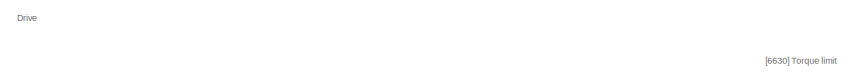
[diagram: EM System/Drives/PLC and Drive Logic Rev3/VFD Control2/[6020] Speed control and generation of the torque limits  - part 1/3, top left region]
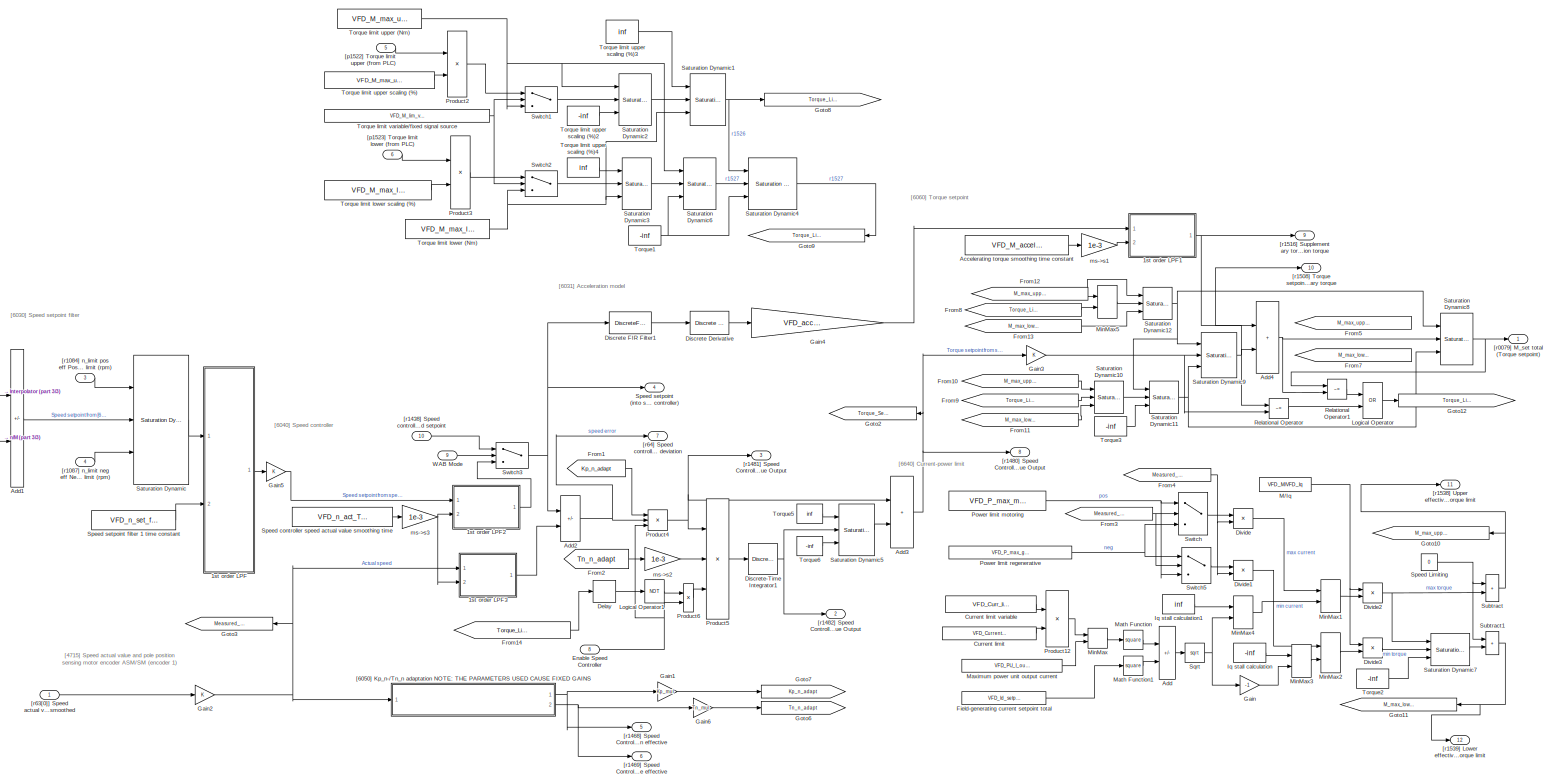
[diagram: EM System/Drives/PLC and Drive Logic Rev3/VFD Control2/[6020] Speed control and generation of the torque limits  - part 2/3, most of the canvas]
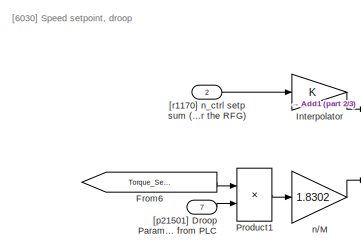
[diagram: EM System/Drives/PLC and Drive Logic Rev3/VFD Control2/[6020] Speed control and generation of the torque limits  - part 3/3, middle left region]
BLOCK [SubSystem] EM System/Drives/PLC and Drive Logic Rev3/VFD Control2/[6020] Speed control and generation of the torque limits 
  Ports = [10, 12]
  RequestExecContextInheritance = off
BLOCK [SubSystem] EM System/Drives/PLC and Drive Logic Rev3/VFD Control2/[6020] Speed control and generation of the torque limits /1st order LPF
  Ports = [2, 1]
  RequestExecContextInheritance = off
BLOCK [Sum] EM System/Drives/PLC and Drive Logic Rev3/VFD Control2/[6020] Speed control and generation of the torque limits /1st order LPF/Add1
  IconShape = rectangular
  Ports = [2, 1]
BLOCK [Sum] EM System/Drives/PLC and Drive Logic Rev3/VFD Control2/[6020] Speed control and generation of the torque limits /1st order LPF/Add3
  IconShape = rectangular
  Ports = [2, 1]
BLOCK [Sum] EM System/Drives/PLC and Drive Logic Rev3/VFD Control2/[6020] Speed control and generation of the torque limits /1st order LPF/Add4
  IconShape = rectangular
  Inputs = +-
  Ports = [2, 1]
BLOCK [Constant] EM System/Drives/PLC and Drive Logic Rev3/VFD Control2/[6020] Speed control and generation of the torque limits /1st order LPF/Constant1
  Value = Controller_sampleTime
BLOCK [Product] EM System/Drives/PLC and Drive Logic Rev3/VFD Control2/[6020] Speed control and generation of the torque limits /1st order LPF/Divide
  Inputs = */
  Ports = [2, 1]
BLOCK [Memory] EM System/Drives/PLC and Drive Logic Rev3/VFD Control2/[6020] Speed control and generation of the torque limits /1st order LPF/Memory1
  InheritSampleTime = on
  InitialCondition = Yo
BLOCK [Product] EM System/Drives/PLC and Drive Logic Rev3/VFD Control2/[6020] Speed control and generation of the torque limits /1st order LPF/Product1
  Ports = [2, 1]
  RndMeth = Zero
BLOCK [Inport] EM System/Drives/PLC and Drive Logic Rev3/VFD Control2/[6020] Speed control and generation of the torque limits /1st order LPF/Signal
BLOCK [Outport] EM System/Drives/PLC and Drive Logic Rev3/VFD Control2/[6020] Speed control and generation of the torque limits /1st order LPF/Signal Out
  VectorParamsAs1DForOutWhenUnconnected = off
BLOCK [Inport] EM System/Drives/PLC and Drive Logic Rev3/VFD Control2/[6020] Speed control and generation of the torque limits /1st order LPF/Time Constant
  Port = 2
BLOCK [SubSystem] EM System/Drives/PLC and Drive Logic Rev3/VFD Control2/[6020] Speed control and generation of the torque limits /1st order LPF1
  Ports = [2, 1]
  RequestExecContextInheritance = off
BLOCK [Sum] EM System/Drives/PLC and Drive Logic Rev3/VFD Control2/[6020] Speed control and generation of the torque limits /1st order LPF1/Add1
  IconShape = rectangular
  Ports = [2, 1]
BLOCK [Sum] EM System/Drives/PLC and Drive Logic Rev3/VFD Control2/[6020] Speed control and generation of the torque limits /1st order LPF1/Add3
  IconShape = rectangular
  Ports = [2, 1]
BLOCK [Sum] EM System/Drives/PLC and Drive Logic Rev3/VFD Control2/[6020] Speed control and generation of the torque limits /1st order LPF1/Add4
  IconShape = rectangular
  Inputs = +-
  Ports = [2, 1]
BLOCK [Constant] EM System/Drives/PLC and Drive Logic Rev3/VFD Control2/[6020] Speed control and generation of the torque limits /1st order LPF1/Constant1
  Value = Controller_sampleTime
BLOCK [Product] EM System/Drives/PLC and Drive Logic Rev3/VFD Control2/[6020] Speed control and generation of the torque limits /1st order LPF1/Divide
  Inputs = */
  Ports = [2, 1]
BLOCK [Memory] EM System/Drives/PLC and Drive Logic Rev3/VFD Control2/[6020] Speed control and generation of the torque limits /1st order LPF1/Memory1
  InheritSampleTime = on
  InitialCondition = Yo
BLOCK [Product] EM System/Drives/PLC and Drive Logic Rev3/VFD Control2/[6020] Speed control and generation of the torque limits /1st order LPF1/Product1
  Ports = [2, 1]
  RndMeth = Zero
BLOCK [Inport] EM System/Drives/PLC and Drive Logic Rev3/VFD Control2/[6020] Speed control and generation of the torque limits /1st order LPF1/Signal
BLOCK [Outport] EM System/Drives/PLC and Drive Logic Rev3/VFD Control2/[6020] Speed control and generation of the torque limits /1st order LPF1/Signal Out
  VectorParamsAs1DForOutWhenUnconnected = off
BLOCK [Inport] EM System/Drives/PLC and Drive Logic Rev3/VFD Control2/[6020] Speed control and generation of the torque limits /1st order LPF1/Time Constant
  Port = 2
BLOCK [SubSystem] EM System/Drives/PLC and Drive Logic Rev3/VFD Control2/[6020] Speed control and generation of the torque limits /1st order LPF2
  Ports = [2, 1]
  RequestExecContextInheritance = off
BLOCK [Sum] EM System/Drives/PLC and Drive Logic Rev3/VFD Control2/[6020] Speed control and generation of the torque limits /1st order LPF2/Add1
  IconShape = rectangular
  Ports = [2, 1]
BLOCK [Sum] EM System/Drives/PLC and Drive Logic Rev3/VFD Control2/[6020] Speed control and generation of the torque limits /1st order LPF2/Add3
  IconShape = rectangular
  Ports = [2, 1]
BLOCK [Sum] EM System/Drives/PLC and Drive Logic Rev3/VFD Control2/[6020] Speed control and generation of the torque limits /1st order LPF2/Add4
  IconShape = rectangular
  Inputs = +-
  Ports = [2, 1]
BLOCK [Constant] EM System/Drives/PLC and Drive Logic Rev3/VFD Control2/[6020] Speed control and generation of the torque limits /1st order LPF2/Constant1
  Value = Controller_sampleTime
BLOCK [Product] EM System/Drives/PLC and Drive Logic Rev3/VFD Control2/[6020] Speed control and generation of the torque limits /1st order LPF2/Divide
  Inputs = */
  Ports = [2, 1]
BLOCK [Memory] EM System/Drives/PLC and Drive Logic Rev3/VFD Control2/[6020] Speed control and generation of the torque limits /1st order LPF2/Memory1
  InheritSampleTime = on
  InitialCondition = Yo
BLOCK [Product] EM System/Drives/PLC and Drive Logic Rev3/VFD Control2/[6020] Speed control and generation of the torque limits /1st order LPF2/Product1
  Ports = [2, 1]
  RndMeth = Zero
BLOCK [Inport] EM System/Drives/PLC and Drive Logic Rev3/VFD Control2/[6020] Speed control and generation of the torque limits /1st order LPF2/Signal
BLOCK [Outport] EM System/Drives/PLC and Drive Logic Rev3/VFD Control2/[6020] Speed control and generation of the torque limits /1st order LPF2/Signal Out
  VectorParamsAs1DForOutWhenUnconnected = off
BLOCK [Inport] EM System/Drives/PLC and Drive Logic Rev3/VFD Control2/[6020] Speed control and generation of the torque limits /1st order LPF2/Time Constant
  Port = 2
BLOCK [SubSystem] EM System/Drives/PLC and Drive Logic Rev3/VFD Control2/[6020] Speed control and generation of the torque limits /1st order LPF3
  Ports = [2, 1]
  RequestExecContextInheritance = off
BLOCK [Sum] EM System/Drives/PLC and Drive Logic Rev3/VFD Control2/[6020] Speed control and generation of the torque limits /1st order LPF3/Add1
  IconShape = rectangular
  Ports = [2, 1]
BLOCK [Sum] EM System/Drives/PLC and Drive Logic Rev3/VFD Control2/[6020] Speed control and generation of the torque limits /1st order LPF3/Add3
  IconShape = rectangular
  Ports = [2, 1]
BLOCK [Sum] EM System/Drives/PLC and Drive Logic Rev3/VFD Control2/[6020] Speed control and generation of the torque limits /1st order LPF3/Add4
  IconShape = rectangular
  Inputs = +-
  Ports = [2, 1]
BLOCK [Constant] EM System/Drives/PLC and Drive Logic Rev3/VFD Control2/[6020] Speed control and generation of the torque limits /1st order LPF3/Constant1
  Value = Controller_sampleTime
BLOCK [Product] EM System/Drives/PLC and Drive Logic Rev3/VFD Control2/[6020] Speed control and generation of the torque limits /1st order LPF3/Divide
  Inputs = */
  Ports = [2, 1]
BLOCK [Memory] EM System/Drives/PLC and Drive Logic Rev3/VFD Control2/[6020] Speed control and generation of the torque limits /1st order LPF3/Memory1
  InheritSampleTime = on
  InitialCondition = Yo
BLOCK [Product] EM System/Drives/PLC and Drive Logic Rev3/VFD Control2/[6020] Speed control and generation of the torque limits /1st order LPF3/Product1
  Ports = [2, 1]
  RndMeth = Zero
BLOCK [Inport] EM System/Drives/PLC and Drive Logic Rev3/VFD Control2/[6020] Speed control and generation of the torque limits /1st order LPF3/Signal
BLOCK [Outport] EM System/Drives/PLC and Drive Logic Rev3/VFD Control2/[6020] Speed control and generation of the torque limits /1st order LPF3/Signal Out
  VectorParamsAs1DForOutWhenUnconnected = off
BLOCK [Inport] EM System/Drives/PLC and Drive Logic Rev3/VFD Control2/[6020] Speed control and generation of the torque limits /1st order LPF3/Time Constant
  Port = 2
BLOCK [Constant] EM System/Drives/PLC and Drive Logic Rev3/VFD Control2/[6020] Speed control and generation of the torque limits /Accelerating torque smoothing time constant
  Value = VFD_M_accel_T_smooth_p1517
BLOCK [Sum] EM System/Drives/PLC and Drive Logic Rev3/VFD Control2/[6020] Speed control and generation of the torque limits /Add
  IconShape = rectangular
  Inputs = +-
  Ports = [2, 1]
BLOCK [Sum] EM System/Drives/PLC and Drive Logic Rev3/VFD Control2/[6020] Speed control and generation of the torque limits /Add1
  IconShape = rectangular
  Inputs = +-
  Ports = [2, 1]
BLOCK [Sum] EM System/Drives/PLC and Drive Logic Rev3/VFD Control2/[6020] Speed control and generation of the torque limits /Add2
  IconShape = rectangular
  Inputs = +-
  Ports = [2, 1]
BLOCK [Sum] EM System/Drives/PLC and Drive Logic Rev3/VFD Control2/[6020] Speed control and generation of the torque limits /Add3
  IconShape = rectangular
  Ports = [2, 1]
BLOCK [Sum] EM System/Drives/PLC and Drive Logic Rev3/VFD Control2/[6020] Speed control and generation of the torque limits /Add4
  IconShape = rectangular
  Ports = [2, 1]
BLOCK [Constant] EM System/Drives/PLC and Drive Logic Rev3/VFD Control2/[6020] Speed control and generation of the torque limits /Current limit
  Value = VFD_Current_limit_p0640
BLOCK [Constant] EM System/Drives/PLC and Drive Logic Rev3/VFD Control2/[6020] Speed control and generation of the torque limits /Current limit variable
  Value = VFD_Curr_limit_var_p0641
BLOCK [Delay] EM System/Drives/PLC and Drive Logic Rev3/VFD Control2/[6020] Speed control and generation of the torque limits /Delay
  DelayLength = 1
  InputPortMap = u0
  Ports = [1, 1]
BLOCK [Reference] EM System/Drives/PLC and Drive Logic Rev3/VFD Control2/[6020] Speed control and generation of the torque limits /Discrete Derivative  REF=simulink/Discrete/Discrete Derivative
  Ports = [1, 1]
  SourceBlock = simulink/Discrete/Discrete Derivative
  SourceProductBaseCode = SL
  SourceType = Discrete Derivative
BLOCK [DiscreteFir] EM System/Drives/PLC and Drive Logic Rev3/VFD Control2/[6020] Speed control and generation of the torque limits /Discrete FIR Filter1
  Coefficients = filt_NUM
  InputPortMap = u0
  OutputPortMap = o0
  Ports = [1, 1]
BLOCK [DiscreteIntegrator] EM System/Drives/PLC and Drive Logic Rev3/VFD Control2/[6020] Speed control and generation of the torque limits /Discrete-Time Integrator1
  ICPrevOutput = DiscIntNeverNeededParam
  ICPrevScaledInput = DiscIntNeverNeededParam
  InitialCondition = tau_m
  Ports = [1, 1]
  SampleTime = 0.001
BLOCK [Product] EM System/Drives/PLC and Drive Logic Rev3/VFD Control2/[6020] Speed control and generation of the torque limits /Divide
  Inputs = */
  Ports = [2, 1]
BLOCK [Product] EM System/Drives/PLC and Drive Logic Rev3/VFD Control2/[6020] Speed control and generation of the torque limits /Divide1
  Inputs = */
  Ports = [2, 1]
BLOCK [Product] EM System/Drives/PLC and Drive Logic Rev3/VFD Control2/[6020] Speed control and generation of the torque limits /Divide2
  Inputs = **
  Ports = [2, 1]
BLOCK [Product] EM System/Drives/PLC and Drive Logic Rev3/VFD Control2/[6020] Speed control and generation of the torque limits /Divide3
  Inputs = **
  Ports = [2, 1]
BLOCK [Inport] EM System/Drives/PLC and Drive Logic Rev3/VFD Control2/[6020] Speed control and generation of the torque limits /Enable Speed Controller
  Port = 8
BLOCK [Constant] EM System/Drives/PLC and Drive Logic Rev3/VFD Control2/[6020] Speed control and generation of the torque limits /Field-generating current setpoint total
  Value = VFD_Id_setp_total_r1624
BLOCK [From] EM System/Drives/PLC and Drive Logic Rev3/VFD Control2/[6020] Speed control and generation of the torque limits /From1
  GotoTag = Kp_n_adapt
BLOCK [From] EM System/Drives/PLC and Drive Logic Rev3/VFD Control2/[6020] Speed control and generation of the torque limits /From10
  GotoTag = M_max_upper_effective_r1538
BLOCK [From] EM System/Drives/PLC and Drive Logic Rev3/VFD Control2/[6020] Speed control and generation of the torque limits /From11
  GotoTag = M_max_lower_effective_r1539
BLOCK [From] EM System/Drives/PLC and Drive Logic Rev3/VFD Control2/[6020] Speed control and generation of the torque limits /From12
  GotoTag = M_max_upper_effective_r1538
BLOCK [From] EM System/Drives/PLC and Drive Logic Rev3/VFD Control2/[6020] Speed control and generation of the torque limits /From13
  GotoTag = M_max_lower_effective_r1539
BLOCK [From] EM System/Drives/PLC and Drive Logic Rev3/VFD Control2/[6020] Speed control and generation of the torque limits /From14
  GotoTag = Torque_Limit_Reached_r1407_7
BLOCK [From] EM System/Drives/PLC and Drive Logic Rev3/VFD Control2/[6020] Speed control and generation of the torque limits /From2
  GotoTag = Tn_n_adapt
BLOCK [From] EM System/Drives/PLC and Drive Logic Rev3/VFD Control2/[6020] Speed control and generation of the torque limits /From3
  GotoTag = Measured_RPM_r0063
BLOCK [From] EM System/Drives/PLC and Drive Logic Rev3/VFD Control2/[6020] Speed control and generation of the torque limits /From4
  GotoTag = Measured_RPM_r0063
BLOCK [From] EM System/Drives/PLC and Drive Logic Rev3/VFD Control2/[6020] Speed control and generation of the torque limits /From5
  GotoTag = M_max_upper_effective_r1538
BLOCK [From] EM System/Drives/PLC and Drive Logic Rev3/VFD Control2/[6020] Speed control and generation of the torque limits /From6
  GotoTag = Torque_Setpoint_Nm
  NameLocation = top
BLOCK [From] EM System/Drives/PLC and Drive Logic Rev3/VFD Control2/[6020] Speed control and generation of the torque limits /From7
  GotoTag = M_max_lower_effective_r1539
BLOCK [From] EM System/Drives/PLC and Drive Logic Rev3/VFD Control2/[6020] Speed control and generation of the torque limits /From8
  GotoTag = Torque_Limit_Upper_r1526
BLOCK [From] EM System/Drives/PLC and Drive Logic Rev3/VFD Control2/[6020] Speed control and generation of the torque limits /From9
  GotoTag = Torque_Limit_Lower_r1527
BLOCK [Gain] EM System/Drives/PLC and Drive Logic Rev3/VFD Control2/[6020] Speed control and generation of the torque limits /Gain
  Gain = -1
BLOCK [Gain] EM System/Drives/PLC and Drive Logic Rev3/VFD Control2/[6020] Speed control and generation of the torque limits /Gain1
  Gain = Kp_mul
BLOCK [Gain] EM System/Drives/PLC and Drive Logic Rev3/VFD Control2/[6020] Speed control and generation of the torque limits /Gain2
BLOCK [Gain] EM System/Drives/PLC and Drive Logic Rev3/VFD Control2/[6020] Speed control and generation of the torque limits /Gain3
BLOCK [Gain] EM System/Drives/PLC and Drive Logic Rev3/VFD Control2/[6020] Speed control and generation of the torque limits /Gain4
  Gain = VFD_acceleration_model_factor
BLOCK [Gain] EM System/Drives/PLC and Drive Logic Rev3/VFD Control2/[6020] Speed control and generation of the torque limits /Gain5
BLOCK [Gain] EM System/Drives/PLC and Drive Logic Rev3/VFD Control2/[6020] Speed control and generation of the torque limits /Gain6
  Gain = Tn_mul
BLOCK [Goto] EM System/Drives/PLC and Drive Logic Rev3/VFD Control2/[6020] Speed control and generation of the torque limits /Goto10
  GotoTag = M_max_upper_effective_r1538
  NameLocation = top
BLOCK [Goto] EM System/Drives/PLC and Drive Logic Rev3/VFD Control2/[6020] Speed control and generation of the torque limits /Goto11
  GotoTag = M_max_lower_effective_r1539
  NameLocation = top
BLOCK [Goto] EM System/Drives/PLC and Drive Logic Rev3/VFD Control2/[6020] Speed control and generation of the torque limits /Goto12
  GotoTag = Torque_Limit_Reached_r1407_7
BLOCK [Goto] EM System/Drives/PLC and Drive Logic Rev3/VFD Control2/[6020] Speed control and generation of the torque limits /Goto2
  GotoTag = Torque_Setpoint_Nm
  NameLocation = top
BLOCK [Goto] EM System/Drives/PLC and Drive Logic Rev3/VFD Control2/[6020] Speed control and generation of the torque limits /Goto3
  GotoTag = Measured_RPM_r0063
  NameLocation = top
BLOCK [Goto] EM System/Drives/PLC and Drive Logic Rev3/VFD Control2/[6020] Speed control and generation of the torque limits /Goto6
  GotoTag = Tn_n_adapt
BLOCK [Goto] EM System/Drives/PLC and Drive Logic Rev3/VFD Control2/[6020] Speed control and generation of the torque limits /Goto7
  GotoTag = Kp_n_adapt
BLOCK [Goto] EM System/Drives/PLC and Drive Logic Rev3/VFD Control2/[6020] Speed control and generation of the torque limits /Goto8
  GotoTag = Torque_Limit_Upper_r1526
BLOCK [Goto] EM System/Drives/PLC and Drive Logic Rev3/VFD Control2/[6020] Speed control and generation of the torque limits /Goto9
  GotoTag = Torque_Limit_Lower_r1527
  NameLocation = top
BLOCK [Gain] EM System/Drives/PLC and Drive Logic Rev3/VFD Control2/[6020] Speed control and generation of the torque limits /Interpolator
BLOCK [Constant] EM System/Drives/PLC and Drive Logic Rev3/VFD Control2/[6020] Speed control and generation of the torque limits /Iq stall calculation
  Value = -inf
BLOCK [Constant] EM System/Drives/PLC and Drive Logic Rev3/VFD Control2/[6020] Speed control and generation of the torque limits /Iq stall calculation1
  Value = inf
BLOCK [Logic] EM System/Drives/PLC and Drive Logic Rev3/VFD Control2/[6020] Speed control and generation of the torque limits /Logical Operator
  AllPortsSameDT = off
  Operator = OR
  OutDataTypeStr = boolean
  Ports = [2, 1]
BLOCK [Logic] EM System/Drives/PLC and Drive Logic Rev3/VFD Control2/[6020] Speed control and generation of the torque limits /Logical Operator1
  AllPortsSameDT = off
  Operator = NOT
  OutDataTypeStr = boolean
  Ports = [1, 1]
BLOCK [Constant] EM System/Drives/PLC and Drive Logic Rev3/VFD Control2/[6020] Speed control and generation of the torque limits /M//Iq
  Value = VFD_M/VFD_Iq
BLOCK [Math] EM System/Drives/PLC and Drive Logic Rev3/VFD Control2/[6020] Speed control and generation of the torque limits /Math Function
  Operator = square
  Ports = [1, 1]
BLOCK [Math] EM System/Drives/PLC and Drive Logic Rev3/VFD Control2/[6020] Speed control and generation of the torque limits /Math Function1
  Operator = square
  Ports = [1, 1]
BLOCK [Constant] EM System/Drives/PLC and Drive Logic Rev3/VFD Control2/[6020] Speed control and generation of the torque limits /Maximum power unit output current
  Value = VFD_PU_I_outp_max_r0289
BLOCK [MinMax] EM System/Drives/PLC and Drive Logic Rev3/VFD Control2/[6020] Speed control and generation of the torque limits /MinMax
  Inputs = 2
  Ports = [2, 1]
BLOCK [MinMax] EM System/Drives/PLC and Drive Logic Rev3/VFD Control2/[6020] Speed control and generation of the torque limits /MinMax1
  Inputs = 2
  Ports = [2, 1]
BLOCK [MinMax] EM System/Drives/PLC and Drive Logic Rev3/VFD Control2/[6020] Speed control and generation of the torque limits /MinMax2
  Function = max
  Inputs = 2
  Ports = [2, 1]
BLOCK [MinMax] EM System/Drives/PLC and Drive Logic Rev3/VFD Control2/[6020] Speed control and generation of the torque limits /MinMax3
  Function = max
  Inputs = 2
  Ports = [2, 1]
BLOCK [MinMax] EM System/Drives/PLC and Drive Logic Rev3/VFD Control2/[6020] Speed control and generation of the torque limits /MinMax4
  Inputs = 2
  Ports = [2, 1]
BLOCK [MinMax] EM System/Drives/PLC and Drive Logic Rev3/VFD Control2/[6020] Speed control and generation of the torque limits /MinMax5
  Inputs = 2
  Ports = [2, 1]
BLOCK [Constant] EM System/Drives/PLC and Drive Logic Rev3/VFD Control2/[6020] Speed control and generation of the torque limits /Power limit motoring
  Value = VFD_P_max_mot_p1530
BLOCK [Constant] EM System/Drives/PLC and Drive Logic Rev3/VFD Control2/[6020] Speed control and generation of the torque limits /Power limit regenerative
  Value = VFD_P_max_gen_p1531
BLOCK [Product] EM System/Drives/PLC and Drive Logic Rev3/VFD Control2/[6020] Speed control and generation of the torque limits /Product1
  Inputs = **
  Ports = [2, 1]
BLOCK [Product] EM System/Drives/PLC and Drive Logic Rev3/VFD Control2/[6020] Speed control and generation of the torque limits /Product12
  Ports = [2, 1]
BLOCK [Product] EM System/Drives/PLC and Drive Logic Rev3/VFD Control2/[6020] Speed control and generation of the torque limits /Product2
  Ports = [2, 1]
BLOCK [Product] EM System/Drives/PLC and Drive Logic Rev3/VFD Control2/[6020] Speed control and generation of the torque limits /Product3
  Ports = [2, 1]
BLOCK [Product] EM System/Drives/PLC and Drive Logic Rev3/VFD Control2/[6020] Speed control and generation of the torque limits /Product4
  Inputs = 3
  Ports = [3, 1]
BLOCK [Product] EM System/Drives/PLC and Drive Logic Rev3/VFD Control2/[6020] Speed control and generation of the torque limits /Product5
  Inputs = */*
  Ports = [3, 1]
BLOCK [Product] EM System/Drives/PLC and Drive Logic Rev3/VFD Control2/[6020] Speed control and generation of the torque limits /Product6
  Inputs = **
  Ports = [2, 1]
BLOCK [RelationalOperator] EM System/Drives/PLC and Drive Logic Rev3/VFD Control2/[6020] Speed control and generation of the torque limits /Relational Operator
  InputSameDT = off
  Operator = ~=
  OutDataTypeStr = boolean
  Ports = [2, 1]
  RndMeth = Simplest
BLOCK [RelationalOperator] EM System/Drives/PLC and Drive Logic Rev3/VFD Control2/[6020] Speed control and generation of the torque limits /Relational Operator1
  InputSameDT = off
  Operator = ~=
  OutDataTypeStr = boolean
  Ports = [2, 1]
  RndMeth = Simplest
BLOCK [Reference] EM System/Drives/PLC and Drive Logic Rev3/VFD Control2/[6020] Speed control and generation of the torque limits /Saturation Dynamic  REF=simulink/Discontinuities/Saturation
Dynamic
  Ports = [3, 1]
  SourceBlock = simulink/Discontinuities/Saturation\nDynamic
  SourceProductBaseCode = SL
  SourceType = Saturation Dynamic
BLOCK [Reference] EM System/Drives/PLC and Drive Logic Rev3/VFD Control2/[6020] Speed control and generation of the torque limits /Saturation Dynamic1  REF=simulink/Discontinuities/Saturation
Dynamic
  Ports = [3, 1]
  SourceBlock = simulink/Discontinuities/Saturation\nDynamic
  SourceProductBaseCode = SL
  SourceType = Saturation Dynamic
BLOCK [Reference] EM System/Drives/PLC and Drive Logic Rev3/VFD Control2/[6020] Speed control and generation of the torque limits /Saturation Dynamic10  REF=simulink/Discontinuities/Saturation
Dynamic
  Ports = [3, 1]
  SourceBlock = simulink/Discontinuities/Saturation\nDynamic
  SourceProductBaseCode = SL
  SourceType = Saturation Dynamic
BLOCK [Reference] EM System/Drives/PLC and Drive Logic Rev3/VFD Control2/[6020] Speed control and generation of the torque limits /Saturation Dynamic11  REF=simulink/Discontinuities/Saturation
Dynamic
  Ports = [3, 1]
  SourceBlock = simulink/Discontinuities/Saturation\nDynamic
  SourceProductBaseCode = SL
  SourceType = Saturation Dynamic
BLOCK [Reference] EM System/Drives/PLC and Drive Logic Rev3/VFD Control2/[6020] Speed control and generation of the torque limits /Saturation Dynamic12  REF=simulink/Discontinuities/Saturation
Dynamic
  Ports = [3, 1]
  SourceBlock = simulink/Discontinuities/Saturation\nDynamic
  SourceProductBaseCode = SL
  SourceType = Saturation Dynamic
BLOCK [Reference] EM System/Drives/PLC and Drive Logic Rev3/VFD Control2/[6020] Speed control and generation of the torque limits /Saturation Dynamic2  REF=simulink/Discontinuities/Saturation
Dynamic
  Ports = [3, 1]
  SourceBlock = simulink/Discontinuities/Saturation\nDynamic
  SourceProductBaseCode = SL
  SourceType = Saturation Dynamic
BLOCK [Reference] EM System/Drives/PLC and Drive Logic Rev3/VFD Control2/[6020] Speed control and generation of the torque limits /Saturation Dynamic3  REF=simulink/Discontinuities/Saturation
Dynamic
  Ports = [3, 1]
  SourceBlock = simulink/Discontinuities/Saturation\nDynamic
  SourceProductBaseCode = SL
  SourceType = Saturation Dynamic
BLOCK [Reference] EM System/Drives/PLC and Drive Logic Rev3/VFD Control2/[6020] Speed control and generation of the torque limits /Saturation Dynamic4  REF=simulink/Discontinuities/Saturation
Dynamic
  Ports = [3, 1]
  SourceBlock = simulink/Discontinuities/Saturation\nDynamic
  SourceProductBaseCode = SL
  SourceType = Saturation Dynamic
BLOCK [Reference] EM System/Drives/PLC and Drive Logic Rev3/VFD Control2/[6020] Speed control and generation of the torque limits /Saturation Dynamic5  REF=simulink/Discontinuities/Saturation
Dynamic
  Ports = [3, 1]
  SourceBlock = simulink/Discontinuities/Saturation\nDynamic
  SourceProductBaseCode = SL
  SourceType = Saturation Dynamic
BLOCK [Reference] EM System/Drives/PLC and Drive Logic Rev3/VFD Control2/[6020] Speed control and generation of the torque limits /Saturation Dynamic6  REF=simulink/Discontinuities/Saturation
Dynamic
  Ports = [3, 1]
  SourceBlock = simulink/Discontinuities/Saturation\nDynamic
  SourceProductBaseCode = SL
  SourceType = Saturation Dynamic
BLOCK [Reference] EM System/Drives/PLC and Drive Logic Rev3/VFD Control2/[6020] Speed control and generation of the torque limits /Saturation Dynamic7  REF=simulink/Discontinuities/Saturation
Dynamic
  Ports = [3, 1]
  SourceBlock = simulink/Discontinuities/Saturation\nDynamic
  SourceProductBaseCode = SL
  SourceType = Saturation Dynamic
BLOCK [Reference] EM System/Drives/PLC and Drive Logic Rev3/VFD Control2/[6020] Speed control and generation of the torque limits /Saturation Dynamic8  REF=simulink/Discontinuities/Saturation
Dynamic
  Ports = [3, 1]
  SourceBlock = simulink/Discontinuities/Saturation\nDynamic
  SourceProductBaseCode = SL
  SourceType = Saturation Dynamic
BLOCK [Reference] EM System/Drives/PLC and Drive Logic Rev3/VFD Control2/[6020] Speed control and generation of the torque limits /Saturation Dynamic9  REF=simulink/Discontinuities/Saturation
Dynamic
  Ports = [3, 1]
  SourceBlock = simulink/Discontinuities/Saturation\nDynamic
  SourceProductBaseCode = SL
  SourceType = Saturation Dynamic
BLOCK [Constant] EM System/Drives/PLC and Drive Logic Rev3/VFD Control2/[6020] Speed control and generation of the torque limits /Speed Limiting
  Value = 0
BLOCK [Constant] EM System/Drives/PLC and Drive Logic Rev3/VFD Control2/[6020] Speed control and generation of the torque limits /Speed controller speed actual value smoothing time
  Value = VFD_n_act_T_smooth_p1442
BLOCK [Outport] EM System/Drives/PLC and Drive Logic Rev3/VFD Control2/[6020] Speed control and generation of the torque limits /Speed setpoint (into speed controller)
  Port = 4
  VectorParamsAs1DForOutWhenUnconnected = off
BLOCK [Constant] EM System/Drives/PLC and Drive Logic Rev3/VFD Control2/[6020] Speed control and generation of the torque limits /Speed setpoint filter 1 time constant 
  Value = VFD_n_set_filt_1_T_p1416
BLOCK [Sqrt] EM System/Drives/PLC and Drive Logic Rev3/VFD Control2/[6020] Speed control and generation of the torque limits /Sqrt
BLOCK [Sum] EM System/Drives/PLC and Drive Logic Rev3/VFD Control2/[6020] Speed control and generation of the torque limits /Subtract
  IconShape = rectangular
  Ports = [2, 1]
BLOCK [Sum] EM System/Drives/PLC and Drive Logic Rev3/VFD Control2/[6020] Speed control and generation of the torque limits /Subtract1
  IconShape = rectangular
  Ports = [2, 1]
BLOCK [Switch] EM System/Drives/PLC and Drive Logic Rev3/VFD Control2/[6020] Speed control and generation of the torque limits /Switch
  InputSameDT = off
  SaturateOnIntegerOverflow = off
BLOCK [Switch] EM System/Drives/PLC and Drive Logic Rev3/VFD Control2/[6020] Speed control and generation of the torque limits /Switch1
  Criteria = u2 > Threshold
  InputSameDT = off
  SaturateOnIntegerOverflow = off
BLOCK [Switch] EM System/Drives/PLC and Drive Logic Rev3/VFD Control2/[6020] Speed control and generation of the torque limits /Switch2
  Criteria = u2 > Threshold
  InputSameDT = off
  SaturateOnIntegerOverflow = off
BLOCK [Switch] EM System/Drives/PLC and Drive Logic Rev3/VFD Control2/[6020] Speed control and generation of the torque limits /Switch3
  Criteria = u2 > Threshold
  InputSameDT = off
  SaturateOnIntegerOverflow = off
BLOCK [Switch] EM System/Drives/PLC and Drive Logic Rev3/VFD Control2/[6020] Speed control and generation of the torque limits /Switch5
  InputSameDT = off
  SaturateOnIntegerOverflow = off
BLOCK [Constant] EM System/Drives/PLC and Drive Logic Rev3/VFD Control2/[6020] Speed control and generation of the torque limits /Torque limit lower (Nm)
  Value = VFD_M_max_lower_p1521
BLOCK [Constant] EM System/Drives/PLC and Drive Logic Rev3/VFD Control2/[6020] Speed control and generation of the torque limits /Torque limit lower scaling (%)
  Value = VFD_M_max_lower_scal_p1525
BLOCK [Constant] EM System/Drives/PLC and Drive Logic Rev3/VFD Control2/[6020] Speed control and generation of the torque limits /Torque limit upper (Nm)
  Value = VFD_M_max_upper_p1520
BLOCK [Constant] EM System/Drives/PLC and Drive Logic Rev3/VFD Control2/[6020] Speed control and generation of the torque limits /Torque limit upper scaling (%)
  Value = VFD_M_max_up_mot_scal_p1524
BLOCK [Constant] EM System/Drives/PLC and Drive Logic Rev3/VFD Control2/[6020] Speed control and generation of the torque limits /Torque limit upper scaling (%)2
  Value = -inf
BLOCK [Constant] EM System/Drives/PLC and Drive Logic Rev3/VFD Control2/[6020] Speed control and generation of the torque limits /Torque limit upper scaling (%)3
  Value = inf
BLOCK [Constant] EM System/Drives/PLC and Drive Logic Rev3/VFD Control2/[6020] Speed control and generation of the torque limits /Torque limit upper scaling (%)4
  Value = inf
BLOCK [Constant] EM System/Drives/PLC and Drive Logic Rev3/VFD Control2/[6020] Speed control and generation of the torque limits /Torque limit variable//fixed signal source
  Value = VFD_M_lim_var_fixS_src_p1551
BLOCK [Constant] EM System/Drives/PLC and Drive Logic Rev3/VFD Control2/[6020] Speed control and generation of the torque limits /Torque1
  Value = -inf
BLOCK [Constant] EM System/Drives/PLC and Drive Logic Rev3/VFD Control2/[6020] Speed control and generation of the torque limits /Torque2
  Value = -inf
BLOCK [Constant] EM System/Drives/PLC and Drive Logic Rev3/VFD Control2/[6020] Speed control and generation of the torque limits /Torque3
  Value = -inf
BLOCK [Constant] EM System/Drives/PLC and Drive Logic Rev3/VFD Control2/[6020] Speed control and generation of the torque limits /Torque5
  Value = inf
BLOCK [Constant] EM System/Drives/PLC and Drive Logic Rev3/VFD Control2/[6020] Speed control and generation of the torque limits /Torque6
  Value = -inf
BLOCK [Inport] EM System/Drives/PLC and Drive Logic Rev3/VFD Control2/[6020] Speed control and generation of the torque limits /WAB Mode
  Port = 9
BLOCK [SubSystem] EM System/Drives/PLC and Drive Logic Rev3/VFD Control2/[6020] Speed control and generation of the torque limits /[6050] Kp_n-//Tn_n adaptation NOTE: THE PARAMETERS USED CAUSE FIXED GAINS
  Ports = [1, 2]
  RequestExecContextInheritance = off
BLOCK [Abs] EM System/Drives/PLC and Drive Logic Rev3/VFD Control2/[6020] Speed control and generation of the torque limits /[6050] Kp_n-//Tn_n adaptation NOTE: THE PARAMETERS USED CAUSE FIXED GAINS/Abs
  SaturateOnIntegerOverflow = off
BLOCK [Abs] EM System/Drives/PLC and Drive Logic Rev3/VFD Control2/[6020] Speed control and generation of the torque limits /[6050] Kp_n-//Tn_n adaptation NOTE: THE PARAMETERS USED CAUSE FIXED GAINS/Abs1
  SaturateOnIntegerOverflow = off
BLOCK [Constant] EM System/Drives/PLC and Drive Logic Rev3/VFD Control2/[6020] Speed control and generation of the torque limits /[6050] Kp_n-//Tn_n adaptation NOTE: THE PARAMETERS USED CAUSE FIXED GAINS/Adaptation factor lower
  Value = VFD_Adapt_factor_lower_p1458
BLOCK [Constant] EM System/Drives/PLC and Drive Logic Rev3/VFD Control2/[6020] Speed control and generation of the torque limits /[6050] Kp_n-//Tn_n adaptation NOTE: THE PARAMETERS USED CAUSE FIXED GAINS/Adaptation factor upper 
  Value = VFD_Adapt_factor_upper_p1459
BLOCK [Reference] EM System/Drives/PLC and Drive Logic Rev3/VFD Control2/[6020] Speed control and generation of the torque limits /[6050] Kp_n-//Tn_n adaptation NOTE: THE PARAMETERS USED CAUSE FIXED GAINS/Free Kp_n adaptation  REF=simulink/Lookup
Tables/Lookup
Table
Dynamic
  Ports = [3, 1]
  SourceBlock = simulink/Lookup\nTables/Lookup\nTable\nDynamic
  SourceProductBaseCode = SL
  SourceType = Lookup Table Dynamic
BLOCK [Outport] EM System/Drives/PLC and Drive Logic Rev3/VFD Control2/[6020] Speed control and generation of the torque limits /[6050] Kp_n-//Tn_n adaptation NOTE: THE PARAMETERS USED CAUSE FIXED GAINS/Kp_n_adapt
BLOCK [Inport] EM System/Drives/PLC and Drive Logic Rev3/VFD Control2/[6020] Speed control and generation of the torque limits /[6050] Kp_n-//Tn_n adaptation NOTE: THE PARAMETERS USED CAUSE FIXED GAINS/Measured_RPM_r0063
BLOCK [Mux] EM System/Drives/PLC and Drive Logic Rev3/VFD Control2/[6020] Speed control and generation of the torque limits /[6050] Kp_n-//Tn_n adaptation NOTE: THE PARAMETERS USED CAUSE FIXED GAINS/Mux
  DisplayOption = bar
  Inputs = 2
  Ports = [2, 1]
BLOCK [Mux] EM System/Drives/PLC and Drive Logic Rev3/VFD Control2/[6020] Speed control and generation of the torque limits /[6050] Kp_n-//Tn_n adaptation NOTE: THE PARAMETERS USED CAUSE FIXED GAINS/Mux1
  DisplayOption = bar
  Inputs = 2
  Ports = [2, 1]
BLOCK [Mux] EM System/Drives/PLC and Drive Logic Rev3/VFD Control2/[6020] Speed control and generation of the torque limits /[6050] Kp_n-//Tn_n adaptation NOTE: THE PARAMETERS USED CAUSE FIXED GAINS/Mux2
  DisplayOption = bar
  Inputs = 2
  Ports = [2, 1]
BLOCK [Mux] EM System/Drives/PLC and Drive Logic Rev3/VFD Control2/[6020] Speed control and generation of the torque limits /[6050] Kp_n-//Tn_n adaptation NOTE: THE PARAMETERS USED CAUSE FIXED GAINS/Mux3
  DisplayOption = bar
  Inputs = 2
  Ports = [2, 1]
BLOCK [Mux] EM System/Drives/PLC and Drive Logic Rev3/VFD Control2/[6020] Speed control and generation of the torque limits /[6050] Kp_n-//Tn_n adaptation NOTE: THE PARAMETERS USED CAUSE FIXED GAINS/Mux4
  DisplayOption = bar
  Inputs = 2
  Ports = [2, 1]
BLOCK [Product] EM System/Drives/PLC and Drive Logic Rev3/VFD Control2/[6020] Speed control and generation of the torque limits /[6050] Kp_n-//Tn_n adaptation NOTE: THE PARAMETERS USED CAUSE FIXED GAINS/Product1
  Inputs = **
  Ports = [2, 1]
BLOCK [Product] EM System/Drives/PLC and Drive Logic Rev3/VFD Control2/[6020] Speed control and generation of the torque limits /[6050] Kp_n-//Tn_n adaptation NOTE: THE PARAMETERS USED CAUSE FIXED GAINS/Product6
  Inputs = **
  Ports = [2, 1]
BLOCK [Product] EM System/Drives/PLC and Drive Logic Rev3/VFD Control2/[6020] Speed control and generation of the torque limits /[6050] Kp_n-//Tn_n adaptation NOTE: THE PARAMETERS USED CAUSE FIXED GAINS/Product7
  Inputs = **
  Ports = [2, 1]
BLOCK [Product] EM System/Drives/PLC and Drive Logic Rev3/VFD Control2/[6020] Speed control and generation of the torque limits /[6050] Kp_n-//Tn_n adaptation NOTE: THE PARAMETERS USED CAUSE FIXED GAINS/Product8
  Inputs = **
  Ports = [2, 1]
BLOCK [Constant] EM System/Drives/PLC and Drive Logic Rev3/VFD Control2/[6020] Speed control and generation of the torque limits /[6050] Kp_n-//Tn_n adaptation NOTE: THE PARAMETERS USED CAUSE FIXED GAINS/Speed controller Kp adaptation speed upper scaling
  Value = VFD_n_ctr_Kp_n_up_scal_p1461
BLOCK [Constant] EM System/Drives/PLC and Drive Logic Rev3/VFD Control2/[6020] Speed control and generation of the torque limits /[6050] Kp_n-//Tn_n adaptation NOTE: THE PARAMETERS USED CAUSE FIXED GAINS/Speed controller P gain adaptation lower starting point
  Value = VFD_n_ctrl_adapt_Kp_lower_p1456
BLOCK [Constant] EM System/Drives/PLC and Drive Logic Rev3/VFD Control2/[6020] Speed control and generation of the torque limits /[6050] Kp_n-//Tn_n adaptation NOTE: THE PARAMETERS USED CAUSE FIXED GAINS/Speed controller P gain adaptation signal 
  Value = VFD_n_ctrl_Adpt_sig_Kp_p1455
BLOCK [Constant] EM System/Drives/PLC and Drive Logic Rev3/VFD Control2/[6020] Speed control and generation of the torque limits /[6050] Kp_n-//Tn_n adaptation NOTE: THE PARAMETERS USED CAUSE FIXED GAINS/Speed controller P gain adaptation speed lower
  Value = VFD_Kp_n_basic_p1460
BLOCK [Constant] EM System/Drives/PLC and Drive Logic Rev3/VFD Control2/[6020] Speed control and generation of the torque limits /[6050] Kp_n-//Tn_n adaptation NOTE: THE PARAMETERS USED CAUSE FIXED GAINS/Speed controller P gain adaptation upper starting point
  Value = VFD_n_ctrl_adapt_Kp_upper_p1457
BLOCK [Constant] EM System/Drives/PLC and Drive Logic Rev3/VFD Control2/[6020] Speed control and generation of the torque limits /[6050] Kp_n-//Tn_n adaptation NOTE: THE PARAMETERS USED CAUSE FIXED GAINS/Speed controller P-gain scaling
  Value = VFD_n_ctrl_Kp_scal_p1466
BLOCK [Constant] EM System/Drives/PLC and Drive Logic Rev3/VFD Control2/[6020] Speed control and generation of the torque limits /[6050] Kp_n-//Tn_n adaptation NOTE: THE PARAMETERS USED CAUSE FIXED GAINS/Speed controller Tn adaptation speed upper scaling
  Value = VFD_n_ctr_Tn_n_up_sca_p1463
BLOCK [Constant] EM System/Drives/PLC and Drive Logic Rev3/VFD Control2/[6020] Speed control and generation of the torque limits /[6050] Kp_n-//Tn_n adaptation NOTE: THE PARAMETERS USED CAUSE FIXED GAINS/Speed controller adaptation speed lower 
  Value = VFD_n_ctrl_n_lower_p1464
BLOCK [Constant] EM System/Drives/PLC and Drive Logic Rev3/VFD Control2/[6020] Speed control and generation of the torque limits /[6050] Kp_n-//Tn_n adaptation NOTE: THE PARAMETERS USED CAUSE FIXED GAINS/Speed controller adaptation speed upper
  Value = VFD_n_ctrl_n_upper_p1465
BLOCK [Constant] EM System/Drives/PLC and Drive Logic Rev3/VFD Control2/[6020] Speed control and generation of the torque limits /[6050] Kp_n-//Tn_n adaptation NOTE: THE PARAMETERS USED CAUSE FIXED GAINS/Speed controller integral time adaptation speed lower
  Value = VFD_n_ctrl_Tn_n_lower_p1462
BLOCK [Reference] EM System/Drives/PLC and Drive Logic Rev3/VFD Control2/[6020] Speed control and generation of the torque limits /[6050] Kp_n-//Tn_n adaptation NOTE: THE PARAMETERS USED CAUSE FIXED GAINS/Speed-dependent Kp_n adaptation  REF=simulink/Lookup
Tables/Lookup
Table
Dynamic
  Ports = [3, 1]
  SourceBlock = simulink/Lookup\nTables/Lookup\nTable\nDynamic
  SourceProductBaseCode = SL
  SourceType = Lookup Table Dynamic
BLOCK [Reference] EM System/Drives/PLC and Drive Logic Rev3/VFD Control2/[6020] Speed control and generation of the torque limits /[6050] Kp_n-//Tn_n adaptation NOTE: THE PARAMETERS USED CAUSE FIXED GAINS/Speed-dependent Tn_n adaptation  REF=simulink/Lookup
Tables/Lookup
Table
Dynamic
  Ports = [3, 1]
  SourceBlock = simulink/Lookup\nTables/Lookup\nTable\nDynamic
  SourceProductBaseCode = SL
  SourceType = Lookup Table Dynamic
BLOCK [Outport] EM System/Drives/PLC and Drive Logic Rev3/VFD Control2/[6020] Speed control and generation of the torque limits /[6050] Kp_n-//Tn_n adaptation NOTE: THE PARAMETERS USED CAUSE FIXED GAINS/Tn_n_adapt
  Port = 2
BLOCK [Inport] EM System/Drives/PLC and Drive Logic Rev3/VFD Control2/[6020] Speed control and generation of the torque limits /[p1522] Torque limit upper (from PLC)
  Port = 5
BLOCK [Inport] EM System/Drives/PLC and Drive Logic Rev3/VFD Control2/[6020] Speed control and generation of the torque limits /[p1523] Torque limit lower (from PLC)
  Port = 6
BLOCK [Inport] EM System/Drives/PLC and Drive Logic Rev3/VFD Control2/[6020] Speed control and generation of the torque limits /[p21501] Droop Parameter from PLC
  Port = 7
BLOCK [Outport] EM System/Drives/PLC and Drive Logic Rev3/VFD Control2/[6020] Speed control and generation of the torque limits /[r0079] M_set total (Torque setpoint)
  VectorParamsAs1DForOutWhenUnconnected = off
BLOCK [Inport] EM System/Drives/PLC and Drive Logic Rev3/VFD Control2/[6020] Speed control and generation of the torque limits /[r1084] n_limit pos eff Positive Speed limit (rpm)
  Port = 3
BLOCK [Inport] EM System/Drives/PLC and Drive Logic Rev3/VFD Control2/[6020] Speed control and generation of the torque limits /[r1087] n_limit neg eff Negative Speed limit (rpm)
  Port = 4
BLOCK [Inport] EM System/Drives/PLC and Drive Logic Rev3/VFD Control2/[6020] Speed control and generation of the torque limits /[r1170] n_ctrl setp sum (Speed setpoint after the RFG)
  Port = 2
BLOCK [Inport] EM System/Drives/PLC and Drive Logic Rev3/VFD Control2/[6020] Speed control and generation of the torque limits /[r1438] Speed controller speed setpoint
  Port = 10
BLOCK [Outport] EM System/Drives/PLC and Drive Logic Rev3/VFD Control2/[6020] Speed control and generation of the torque limits /[r1468] Speed Controller P-gain effective
  Port = 5
  VectorParamsAs1DForOutWhenUnconnected = off
BLOCK [Outport] EM System/Drives/PLC and Drive Logic Rev3/VFD Control2/[6020] Speed control and generation of the torque limits /[r1469] Speed Controller integral time effective
  Port = 6
  VectorParamsAs1DForOutWhenUnconnected = off
BLOCK [Outport] EM System/Drives/PLC and Drive Logic Rev3/VFD Control2/[6020] Speed control and generation of the torque limits /[r1480] Speed Controller PI torque Output
  Port = 8
  VectorParamsAs1DForOutWhenUnconnected = off
BLOCK [Outport] EM System/Drives/PLC and Drive Logic Rev3/VFD Control2/[6020] Speed control and generation of the torque limits /[r1481] Speed Controller P torque Output
  Port = 3
  VectorParamsAs1DForOutWhenUnconnected = off
BLOCK [Outport] EM System/Drives/PLC and Drive Logic Rev3/VFD Control2/[6020] Speed control and generation of the torque limits /[r1482] Speed Controller I torque Output
  Port = 2
  VectorParamsAs1DForOutWhenUnconnected = off
BLOCK [Outport] EM System/Drives/PLC and Drive Logic Rev3/VFD Control2/[6020] Speed control and generation of the torque limits /[r1508] Torque setpoint before supplementary torque
  Port = 10
  VectorParamsAs1DForOutWhenUnconnected = off
BLOCK [Outport] EM System/Drives/PLC and Drive Logic Rev3/VFD Control2/[6020] Speed control and generation of the torque limits /[r1516] Supplementary torque and acceleration torque 
  Port = 9
  VectorParamsAs1DForOutWhenUnconnected = off
BLOCK [Outport] EM System/Drives/PLC and Drive Logic Rev3/VFD Control2/[6020] Speed control and generation of the torque limits /[r1538] Upper effective torque limit
  Port = 11
  VectorParamsAs1DForOutWhenUnconnected = off
BLOCK [Outport] EM System/Drives/PLC and Drive Logic Rev3/VFD Control2/[6020] Speed control and generation of the torque limits /[r1539] Lower effective torque limit
  Port = 12
  VectorParamsAs1DForOutWhenUnconnected = off
BLOCK [Inport] EM System/Drives/PLC and Drive Logic Rev3/VFD Control2/[6020] Speed control and generation of the torque limits /[r63[0]] Speed actual value, unsmoothed
BLOCK [Outport] EM System/Drives/PLC and Drive Logic Rev3/VFD Control2/[6020] Speed control and generation of the torque limits /[r64] Speed controller system deviation
  Port = 7
  VectorParamsAs1DForOutWhenUnconnected = off
BLOCK [Gain] EM System/Drives/PLC and Drive Logic Rev3/VFD Control2/[6020] Speed control and generation of the torque limits /ms->s1
  Gain = 1e-3
BLOCK [Gain] EM System/Drives/PLC and Drive Logic Rev3/VFD Control2/[6020] Speed control and generation of the torque limits /ms->s2
  Gain = 1e-3
BLOCK [Gain] EM System/Drives/PLC and Drive Logic Rev3/VFD Control2/[6020] Speed control and generation of the torque limits /ms->s3
  Gain = 1e-3
BLOCK [Gain] EM System/Drives/PLC and Drive Logic Rev3/VFD Control2/[6020] Speed control and generation of the torque limits /n//M
  Gain = 1.8302
BLOCK [Inport] EM System/Drives/PLC and Drive Logic Rev3/VFD Control2/[p1070(0)] Main Setpoint (Speed setpoint from PLC)
  Port = 2
BLOCK [Inport] EM System/Drives/PLC and Drive Logic Rev3/VFD Control2/[p1522] Torque limit upper (from PLC)
  Port = 3
BLOCK [Inport] EM System/Drives/PLC and Drive Logic Rev3/VFD Control2/[p1523] Torque limit lower (from PLC)
  Port = 4
BLOCK [Inport] EM System/Drives/PLC and Drive Logic Rev3/VFD Control2/[p21501] Droop Parameter from PLC
  Port = 5
BLOCK [Outport] EM System/Drives/PLC and Drive Logic Rev3/VFD Control2/[r0079] M_set total (Torque setpoint)
  NameLocation = top
  VectorParamsAs1DForOutWhenUnconnected = off
BLOCK [Inport] EM System/Drives/PLC and Drive Logic Rev3/WAB Mode
  Port = 7
BLOCK [Inport] EM System/Drives/PLC and Drive Logic Rev3/WAB Motor 1 Speed_Controller Setpoint (r1438)
  Port = 8
BLOCK [Inport] EM System/Drives/PLC and Drive Logic Rev3/WAB Motor 2 Speed_Controller Setpoint (r1438)
  Port = 9
BLOCK [Outport] EM System/Drives/PLC and Drive Logic Rev3/Winch 1 brake on command (from PLC) [0...1]
  Port = 2
BLOCK [Outport] EM System/Drives/PLC and Drive Logic Rev3/Winch 2 brake on command (from PLC) [0...1]
  Port = 6
BLOCK [ManualSwitch] EM System/Drives/SWTL
  CurrentSetting = 0
BLOCK [ManualSwitch] EM System/Drives/SWTR
  CurrentSetting = 0
BLOCK [SubSystem] EM System/Drives/Simple Drive Model
  Commented = on
  Ports = [4, 2]
  RequestExecContextInheritance = off
BLOCK [Sum] EM System/Drives/Simple Drive Model/Add
  IconShape = rectangular
  Ports = [2, 1]
BLOCK [Sum] EM System/Drives/Simple Drive Model/Add1
  IconShape = rectangular
  Ports = [2, 1]
BLOCK [Constant] EM System/Drives/Simple Drive Model/Constant
  Value = -tau_m
BLOCK [Constant] EM System/Drives/Simple Drive Model/Constant1
  Value = tau_m
BLOCK [Gain] EM System/Drives/Simple Drive Model/Gain1
  Gain = -1
BLOCK [Gain] EM System/Drives/Simple Drive Model/Gain3
BLOCK [Reference] EM System/Drives/Simple Drive Model/LTI System  REF=cstblocks/LTI System
  Ports = [1, 1]
  SourceBlock = cstblocks/LTI System
  SourceProductBaseCode = CT
  SourceType = LTI Block
BLOCK [Reference] EM System/Drives/Simple Drive Model/LTI System1  REF=cstblocks/LTI System
  Ports = [1, 1]
  SourceBlock = cstblocks/LTI System
  SourceProductBaseCode = CT
  SourceType = LTI Block
BLOCK [SubSystem] EM System/Drives/Simple Drive Model/Pwr Limits (R)
  Ports = [2, 1]
  RequestExecContextInheritance = off
BLOCK [SubSystem] EM System/Drives/Simple Drive Model/Pwr Limits (R)/Limits
  Ports = [2, 1]
  RequestExecContextInheritance = off
BLOCK [Abs] EM System/Drives/Simple Drive Model/Pwr Limits (R)/Limits/Abs
  SaturateOnIntegerOverflow = off
BLOCK [Product] EM System/Drives/Simple Drive Model/Pwr Limits (R)/Limits/Divide
  Inputs = */
  Ports = [2, 1]
BLOCK [Inport] EM System/Drives/Simple Drive Model/Pwr Limits (R)/Limits/MotSpd (rpm)
  Port = 2
BLOCK [Mux] EM System/Drives/Simple Drive Model/Pwr Limits (R)/Limits/Mux
  DisplayOption = bar
  Inputs = 2
  Ports = [2, 1]
BLOCK [Mux] EM System/Drives/Simple Drive Model/Pwr Limits (R)/Limits/Mux1
  DisplayOption = bar
  Inputs = 2
  Ports = [2, 1]
BLOCK [Product] EM System/Drives/Simple Drive Model/Pwr Limits (R)/Limits/Product
  Ports = [2, 1]
BLOCK [Scope] EM System/Drives/Simple Drive Model/Pwr Limits (R)/Limits/Pwr
  Commented = on
  Floating = off
  NumInputPorts = 2
  Ports = [2]
  ScopeSpecificationString = Simulink.scopes.TimeScopeBlockCfg('CurrentConfiguration', extmgr.ConfigurationSet(extmgr.Configuration('Core','General UI',true),extmgr.Configuration('Core','Source UI',true),extmgr.Configuration('Sources','WiredSimulink',true,'DataLoggingVariableName','ScopeData3'),extmgr.Configuration('Visuals','Time Domain',true,'SerializedDisplays',{struct('MinYLimReal','-181636.21963','MaxYLimReal','88076.008...<+2187ch>  <repeated x3 — deduplicated; at blocks: Pwr>
BLOCK [Saturate] EM System/Drives/Simple Drive Model/Pwr Limits (R)/Limits/PwrLim
  LowerLimit = -VSD.PwrMax*1e3
  UpperLimit = VSD.PwrMax*1e3
BLOCK [Switch] EM System/Drives/Simple Drive Model/Pwr Limits (R)/Limits/Switch
  Criteria = u2 > Threshold
  InputSameDT = off
  SaturateOnIntegerOverflow = off
  Threshold = 10
BLOCK [Inport] EM System/Drives/Simple Drive Model/Pwr Limits (R)/Limits/TrqIn (Nm)
BLOCK [Saturate] EM System/Drives/Simple Drive Model/Pwr Limits (R)/Limits/TrqLim
  LowerLimit = VSD.TrqMin
  UpperLimit = VSD.TrqMax
BLOCK [Outport] EM System/Drives/Simple Drive Model/Pwr Limits (R)/Limits/TrqSat (Nm)
BLOCK [Gain] EM System/Drives/Simple Drive Model/Pwr Limits (R)/Limits/rad//s
  Gain = pi/30
BLOCK [SubSystem] EM System/Drives/Simple Drive Model/Pwr Limits (R)/No Limits
  Commented = on
  Ports = [2, 1]
  RequestExecContextInheritance = off
BLOCK [Inport] EM System/Drives/Simple Drive Model/Pwr Limits (R)/No Limits/MotSpd (rpm)
  Port = 2
BLOCK [Inport] EM System/Drives/Simple Drive Model/Pwr Limits (R)/No Limits/TrqIn (Nm)
BLOCK [Outport] EM System/Drives/Simple Drive Model/Pwr Limits (R)/No Limits/TrqSat (Nm)
BLOCK [Inport] EM System/Drives/Simple Drive Model/Pwr Limits (R)/Spd
  SampleTime = C.ts
BLOCK [Inport] EM System/Drives/Simple Drive Model/Pwr Limits (R)/TrqIn
  Port = 2
BLOCK [Outport] EM System/Drives/Simple Drive Model/Pwr Limits (R)/TrqSat
BLOCK [SubSystem] EM System/Drives/Simple Drive Model/Spd Limits1
  Ports = [1, 1]
  RequestExecContextInheritance = off
BLOCK [SubSystem] EM System/Drives/Simple Drive Model/Spd Limits1/DerSatInt
  Commented = on
  Ports = [1, 3]
  RequestExecContextInheritance = off
BLOCK [Reference] EM System/Drives/Simple Drive Model/Spd Limits1/DerSatInt/Discrete Derivative  REF=simulink/Discrete/Discrete Derivative
  Ports = [1, 1]
  SourceBlock = simulink/Discrete/Discrete Derivative
  SourceProductBaseCode = SL
  SourceType = Discrete Derivative
BLOCK [DiscreteIntegrator] EM System/Drives/Simple Drive Model/Spd Limits1/DerSatInt/Discrete-Time Integrator
  ICPrevOutput = DiscIntNeverNeededParam
  ICPrevScaledInput = DiscIntNeverNeededParam
  InitialConditionSetting = Auto
  IntegratorMethod = Integration: Backward Euler
  Ports = [1, 1]
  SampleTime = -1
BLOCK [Outport] EM System/Drives/Simple Drive Model/Spd Limits1/DerSatInt/Rate
  Port = 3
BLOCK [Outport] EM System/Drives/Simple Drive Model/Spd Limits1/DerSatInt/RateSat
  Port = 2
BLOCK [Saturate] EM System/Drives/Simple Drive Model/Spd Limits1/DerSatInt/Saturation
  LowerLimit = VSD.SpdRateLimNeg
  UpperLimit = VSD.SpdRateLimPos
BLOCK [Inport] EM System/Drives/Simple Drive Model/Spd Limits1/DerSatInt/SpdIn
BLOCK [Outport] EM System/Drives/Simple Drive Model/Spd Limits1/DerSatInt/SpdLim
BLOCK [Mux] EM System/Drives/Simple Drive Model/Spd Limits1/Mux1
  Commented = on
  DisplayOption = bar
  Inputs = 3
  Ports = [3, 1]
BLOCK [Mux] EM System/Drives/Simple Drive Model/Spd Limits1/Mux2
  Commented = on
  DisplayOption = bar
  Inputs = 3
  Ports = [3, 1]
BLOCK [SubSystem] EM System/Drives/Simple Drive Model/Spd Limits1/No Rate Limits
  Ports = [1, 1]
  RequestExecContextInheritance = off
BLOCK [Inport] EM System/Drives/Simple Drive Model/Spd Limits1/No Rate Limits/SpdIn
BLOCK [Outport] EM System/Drives/Simple Drive Model/Spd Limits1/No Rate Limits/SpdLim
BLOCK [SubSystem] EM System/Drives/Simple Drive Model/Spd Limits1/Rate Limiter
  Commented = on
  Ports = [1, 2]
  RequestExecContextInheritance = off
BLOCK [Sum] EM System/Drives/Simple Drive Model/Spd Limits1/Rate Limiter/Add
  IconShape = rectangular
  Inputs = +-
  Ports = [2, 1]
BLOCK [Gain] EM System/Drives/Simple Drive Model/Spd Limits1/Rate Limiter/Gain
  Gain = 1/0.01
BLOCK [Outport] EM System/Drives/Simple Drive Model/Spd Limits1/Rate Limiter/RateSat
  Port = 2
BLOCK [Inport] EM System/Drives/Simple Drive Model/Spd Limits1/Rate Limiter/SpdIn
BLOCK [Outport] EM System/Drives/Simple Drive Model/Spd Limits1/Rate Limiter/SpdLim
BLOCK [UnitDelay] EM System/Drives/Simple Drive Model/Spd Limits1/Rate Limiter/Unit Delay
  HasFrameUpgradeWarning = on
  SampleTime = -1
BLOCK [RateLimiter] EM System/Drives/Simple Drive Model/Spd Limits1/Rate Limiter/VSD SpdRef Rate Limiter2
  FallingSlewLimit = VSD.SpdRateLimNeg
  RisingSlewLimit = VSD.SpdRateLimPos
  SampleTimeMode = inherited
BLOCK [Inport] EM System/Drives/Simple Drive Model/Spd Limits1/SpdIn
BLOCK [Outport] EM System/Drives/Simple Drive Model/Spd Limits1/SpdLim
BLOCK [Scope] EM System/Drives/Simple Drive Model/Spd Limits1/der
  Commented = on
  Floating = off
  NumInputPorts = 2
  Ports = [2]
  ScopeSpecificationString = Simulink.scopes.TimeScopeBlockCfg('CurrentConfiguration', extmgr.ConfigurationSet(extmgr.Configuration('Core','General UI',true),extmgr.Configuration('Core','Source UI',true),extmgr.Configuration('Sources','WiredSimulink',true,'DataLoggingVariableName','ScopeData2'),extmgr.Configuration('Visuals','Time Domain',true,'SerializedDisplays',{struct('MinYLimReal','-110.02265','MaxYLimReal','1398.62129',...<+2974ch>  <repeated x3 — deduplicated; at blocks: der>
BLOCK [Inport] EM System/Drives/Simple Drive Model/SpdRef_L
  Port = 2
BLOCK [Inport] EM System/Drives/Simple Drive Model/SpdRef_R
  Port = 4
BLOCK [Inport] EM System/Drives/Simple Drive Model/Spd_L
BLOCK [Inport] EM System/Drives/Simple Drive Model/Spd_R
  Port = 3
BLOCK [Sum] EM System/Drives/Simple Drive Model/Sum1
  IconShape = rectangular
  Inputs = -+
  Ports = [2, 1]
BLOCK [Sum] EM System/Drives/Simple Drive Model/Sum3
  IconShape = rectangular
  Inputs = -+
  Ports = [2, 1]
BLOCK [Outport] EM System/Drives/Simple Drive Model/TrqSat_L
BLOCK [Outport] EM System/Drives/Simple Drive Model/TrqSat_R
  Port = 2
BLOCK [SubSystem] EM System/Drives/Simple Drive Model1
  Commented = on
  Ports = [4, 2]
  RequestExecContextInheritance = off
BLOCK [SubSystem] EM System/Drives/Simple Drive Model1/Pwr Limits (L)
  Ports = [2, 1]
  RequestExecContextInheritance = off
BLOCK [SubSystem] EM System/Drives/Simple Drive Model1/Pwr Limits (L)/Limits
  Ports = [2, 1]
  RequestExecContextInheritance = off
BLOCK [Abs] EM System/Drives/Simple Drive Model1/Pwr Limits (L)/Limits/Abs
  SaturateOnIntegerOverflow = off
BLOCK [Product] EM System/Drives/Simple Drive Model1/Pwr Limits (L)/Limits/Divide
  Inputs = */
  Ports = [2, 1]
BLOCK [Inport] EM System/Drives/Simple Drive Model1/Pwr Limits (L)/Limits/MotSpd (rpm)
  Port = 2
BLOCK [Mux] EM System/Drives/Simple Drive Model1/Pwr Limits (L)/Limits/Mux
  DisplayOption = bar
  Inputs = 2
  Ports = [2, 1]
BLOCK [Mux] EM System/Drives/Simple Drive Model1/Pwr Limits (L)/Limits/Mux1
  DisplayOption = bar
  Inputs = 3
  Ports = [3, 1]
BLOCK [Product] EM System/Drives/Simple Drive Model1/Pwr Limits (L)/Limits/Product
  Ports = [2, 1]
BLOCK [Scope] EM System/Drives/Simple Drive Model1/Pwr Limits (L)/Limits/Pwr
  Commented = on
  Floating = off
  NumInputPorts = 2
  Ports = [2]
BLOCK [Saturate] EM System/Drives/Simple Drive Model1/Pwr Limits (L)/Limits/PwrLim
  LowerLimit = -VSD.PwrMax*1e3
  UpperLimit = VSD.PwrMax*1e3
BLOCK [Switch] EM System/Drives/Simple Drive Model1/Pwr Limits (L)/Limits/Switch
  Criteria = u2 > Threshold
  InputSameDT = off
  SaturateOnIntegerOverflow = off
  Threshold = 10
BLOCK [Inport] EM System/Drives/Simple Drive Model1/Pwr Limits (L)/Limits/TrqIn (Nm)
BLOCK [Saturate] EM System/Drives/Simple Drive Model1/Pwr Limits (L)/Limits/TrqLim
  LowerLimit = VSD.TrqMin
  UpperLimit = VSD.TrqMax
BLOCK [Outport] EM System/Drives/Simple Drive Model1/Pwr Limits (L)/Limits/TrqSat (Nm)
BLOCK [Gain] EM System/Drives/Simple Drive Model1/Pwr Limits (L)/Limits/rad//s
  Gain = pi/30
BLOCK [SubSystem] EM System/Drives/Simple Drive Model1/Pwr Limits (L)/No Limits
  Commented = on
  Ports = [2, 1]
  RequestExecContextInheritance = off
BLOCK [Inport] EM System/Drives/Simple Drive Model1/Pwr Limits (L)/No Limits/MotSpd (rpm)
  Port = 2
BLOCK [Inport] EM System/Drives/Simple Drive Model1/Pwr Limits (L)/No Limits/TrqIn (Nm)
BLOCK [Outport] EM System/Drives/Simple Drive Model1/Pwr Limits (L)/No Limits/TrqSat (Nm)
BLOCK [Inport] EM System/Drives/Simple Drive Model1/Pwr Limits (L)/Spd
  SampleTime = C.ts
BLOCK [Inport] EM System/Drives/Simple Drive Model1/Pwr Limits (L)/TrqIn
  Port = 2
BLOCK [Outport] EM System/Drives/Simple Drive Model1/Pwr Limits (L)/TrqSat
BLOCK [SubSystem] EM System/Drives/Simple Drive Model1/Pwr Limits (R)
  Ports = [2, 1]
  RequestExecContextInheritance = off
BLOCK [SubSystem] EM System/Drives/Simple Drive Model1/Pwr Limits (R)/Limits
  Ports = [2, 1]
  RequestExecContextInheritance = off
BLOCK [Abs] EM System/Drives/Simple Drive Model1/Pwr Limits (R)/Limits/Abs
  SaturateOnIntegerOverflow = off
BLOCK [Product] EM System/Drives/Simple Drive Model1/Pwr Limits (R)/Limits/Divide
  Inputs = */
  Ports = [2, 1]
BLOCK [Inport] EM System/Drives/Simple Drive Model1/Pwr Limits (R)/Limits/MotSpd (rpm)
  Port = 2
BLOCK [Mux] EM System/Drives/Simple Drive Model1/Pwr Limits (R)/Limits/Mux
  DisplayOption = bar
  Inputs = 2
  Ports = [2, 1]
BLOCK [Mux] EM System/Drives/Simple Drive Model1/Pwr Limits (R)/Limits/Mux1
  DisplayOption = bar
  Inputs = 2
  Ports = [2, 1]
BLOCK [Product] EM System/Drives/Simple Drive Model1/Pwr Limits (R)/Limits/Product
  Ports = [2, 1]
BLOCK [Scope] EM System/Drives/Simple Drive Model1/Pwr Limits (R)/Limits/Pwr
  Commented = on
  Floating = off
  NumInputPorts = 2
  Ports = [2]
BLOCK [Saturate] EM System/Drives/Simple Drive Model1/Pwr Limits (R)/Limits/PwrLim
  LowerLimit = -VSD.PwrMax*1e3
  UpperLimit = VSD.PwrMax*1e3
BLOCK [Switch] EM System/Drives/Simple Drive Model1/Pwr Limits (R)/Limits/Switch
  Criteria = u2 > Threshold
  InputSameDT = off
  SaturateOnIntegerOverflow = off
  Threshold = 10
BLOCK [Inport] EM System/Drives/Simple Drive Model1/Pwr Limits (R)/Limits/TrqIn (Nm)
BLOCK [Saturate] EM System/Drives/Simple Drive Model1/Pwr Limits (R)/Limits/TrqLim
  LowerLimit = VSD.TrqMin
  UpperLimit = VSD.TrqMax
BLOCK [Outport] EM System/Drives/Simple Drive Model1/Pwr Limits (R)/Limits/TrqSat (Nm)
BLOCK [Gain] EM System/Drives/Simple Drive Model1/Pwr Limits (R)/Limits/rad//s
  Gain = pi/30
BLOCK [SubSystem] EM System/Drives/Simple Drive Model1/Pwr Limits (R)/No Limits
  Commented = on
  Ports = [2, 1]
  RequestExecContextInheritance = off
BLOCK [Inport] EM System/Drives/Simple Drive Model1/Pwr Limits (R)/No Limits/MotSpd (rpm)
  Port = 2
BLOCK [Inport] EM System/Drives/Simple Drive Model1/Pwr Limits (R)/No Limits/TrqIn (Nm)
BLOCK [Outport] EM System/Drives/Simple Drive Model1/Pwr Limits (R)/No Limits/TrqSat (Nm)
BLOCK [Inport] EM System/Drives/Simple Drive Model1/Pwr Limits (R)/Spd
  SampleTime = C.ts
BLOCK [Inport] EM System/Drives/Simple Drive Model1/Pwr Limits (R)/TrqIn
  Port = 2
BLOCK [Outport] EM System/Drives/Simple Drive Model1/Pwr Limits (R)/TrqSat
BLOCK [SubSystem] EM System/Drives/Simple Drive Model1/Spd Limits
  Ports = [1, 1]
  RequestExecContextInheritance = off
BLOCK [SubSystem] EM System/Drives/Simple Drive Model1/Spd Limits/DerSatInt
  Commented = on
  Ports = [1, 3]
  RequestExecContextInheritance = off
BLOCK [Reference] EM System/Drives/Simple Drive Model1/Spd Limits/DerSatInt/Discrete Derivative  REF=simulink/Discrete/Discrete Derivative
  Ports = [1, 1]
  SourceBlock = simulink/Discrete/Discrete Derivative
  SourceProductBaseCode = SL
  SourceType = Discrete Derivative
BLOCK [DiscreteIntegrator] EM System/Drives/Simple Drive Model1/Spd Limits/DerSatInt/Discrete-Time Integrator
  ICPrevOutput = DiscIntNeverNeededParam
  ICPrevScaledInput = DiscIntNeverNeededParam
  InitialConditionSetting = Auto
  IntegratorMethod = Integration: Backward Euler
  Ports = [1, 1]
  SampleTime = -1
BLOCK [Outport] EM System/Drives/Simple Drive Model1/Spd Limits/DerSatInt/Rate
  Port = 3
BLOCK [Outport] EM System/Drives/Simple Drive Model1/Spd Limits/DerSatInt/RateSat
  Port = 2
BLOCK [Saturate] EM System/Drives/Simple Drive Model1/Spd Limits/DerSatInt/Saturation
  LowerLimit = VSD.SpdRateLimNeg
  UpperLimit = VSD.SpdRateLimPos
BLOCK [Inport] EM System/Drives/Simple Drive Model1/Spd Limits/DerSatInt/SpdIn
BLOCK [Outport] EM System/Drives/Simple Drive Model1/Spd Limits/DerSatInt/SpdLim
BLOCK [Mux] EM System/Drives/Simple Drive Model1/Spd Limits/Mux1
  Commented = on
  DisplayOption = bar
  Inputs = 3
  Ports = [3, 1]
BLOCK [Mux] EM System/Drives/Simple Drive Model1/Spd Limits/Mux2
  Commented = on
  DisplayOption = bar
  Inputs = 3
  Ports = [3, 1]
BLOCK [SubSystem] EM System/Drives/Simple Drive Model1/Spd Limits/No Rate Limits
  Ports = [1, 1]
  RequestExecContextInheritance = off
BLOCK [Inport] EM System/Drives/Simple Drive Model1/Spd Limits/No Rate Limits/SpdIn
BLOCK [Outport] EM System/Drives/Simple Drive Model1/Spd Limits/No Rate Limits/SpdLim
BLOCK [SubSystem] EM System/Drives/Simple Drive Model1/Spd Limits/Rate Limiter
  Commented = on
  Ports = [1, 2]
  RequestExecContextInheritance = off
BLOCK [Sum] EM System/Drives/Simple Drive Model1/Spd Limits/Rate Limiter/Add
  IconShape = rectangular
  Inputs = +-
  Ports = [2, 1]
BLOCK [Gain] EM System/Drives/Simple Drive Model1/Spd Limits/Rate Limiter/Gain
  Gain = 1/0.01
BLOCK [Outport] EM System/Drives/Simple Drive Model1/Spd Limits/Rate Limiter/RateSat
  Port = 2
BLOCK [Inport] EM System/Drives/Simple Drive Model1/Spd Limits/Rate Limiter/SpdIn
BLOCK [Outport] EM System/Drives/Simple Drive Model1/Spd Limits/Rate Limiter/SpdLim
BLOCK [UnitDelay] EM System/Drives/Simple Drive Model1/Spd Limits/Rate Limiter/Unit Delay
  HasFrameUpgradeWarning = on
  SampleTime = -1
BLOCK [RateLimiter] EM System/Drives/Simple Drive Model1/Spd Limits/Rate Limiter/VSD SpdRef Rate Limiter2
  FallingSlewLimit = VSD.SpdRateLimNeg
  RisingSlewLimit = VSD.SpdRateLimPos
  SampleTimeMode = inherited
BLOCK [Inport] EM System/Drives/Simple Drive Model1/Spd Limits/SpdIn
BLOCK [Outport] EM System/Drives/Simple Drive Model1/Spd Limits/SpdLim
BLOCK [Scope] EM System/Drives/Simple Drive Model1/Spd Limits/der
  Commented = on
  Floating = off
  NumInputPorts = 2
  Ports = [2]
BLOCK [SubSystem] EM System/Drives/Simple Drive Model1/Spd Limits1
  Ports = [1, 1]
  RequestExecContextInheritance = off
BLOCK [SubSystem] EM System/Drives/Simple Drive Model1/Spd Limits1/DerSatInt
  Commented = on
  Ports = [1, 3]
  RequestExecContextInheritance = off
BLOCK [Reference] EM System/Drives/Simple Drive Model1/Spd Limits1/DerSatInt/Discrete Derivative  REF=simulink/Discrete/Discrete Derivative
  Ports = [1, 1]
  SourceBlock = simulink/Discrete/Discrete Derivative
  SourceProductBaseCode = SL
  SourceType = Discrete Derivative
BLOCK [DiscreteIntegrator] EM System/Drives/Simple Drive Model1/Spd Limits1/DerSatInt/Discrete-Time Integrator
  ICPrevOutput = DiscIntNeverNeededParam
  ICPrevScaledInput = DiscIntNeverNeededParam
  InitialConditionSetting = Auto
  IntegratorMethod = Integration: Backward Euler
  Ports = [1, 1]
  SampleTime = -1
BLOCK [Outport] EM System/Drives/Simple Drive Model1/Spd Limits1/DerSatInt/Rate
  Port = 3
BLOCK [Outport] EM System/Drives/Simple Drive Model1/Spd Limits1/DerSatInt/RateSat
  Port = 2
BLOCK [Saturate] EM System/Drives/Simple Drive Model1/Spd Limits1/DerSatInt/Saturation
  LowerLimit = VSD.SpdRateLimNeg
  UpperLimit = VSD.SpdRateLimPos
BLOCK [Inport] EM System/Drives/Simple Drive Model1/Spd Limits1/DerSatInt/SpdIn
BLOCK [Outport] EM System/Drives/Simple Drive Model1/Spd Limits1/DerSatInt/SpdLim
BLOCK [Mux] EM System/Drives/Simple Drive Model1/Spd Limits1/Mux1
  Commented = on
  DisplayOption = bar
  Inputs = 3
  Ports = [3, 1]
BLOCK [Mux] EM System/Drives/Simple Drive Model1/Spd Limits1/Mux2
  Commented = on
  DisplayOption = bar
  Inputs = 3
  Ports = [3, 1]
BLOCK [SubSystem] EM System/Drives/Simple Drive Model1/Spd Limits1/No Rate Limits
  Ports = [1, 1]
  RequestExecContextInheritance = off
BLOCK [Inport] EM System/Drives/Simple Drive Model1/Spd Limits1/No Rate Limits/SpdIn
BLOCK [Outport] EM System/Drives/Simple Drive Model1/Spd Limits1/No Rate Limits/SpdLim
BLOCK [SubSystem] EM System/Drives/Simple Drive Model1/Spd Limits1/Rate Limiter
  Commented = on
  Ports = [1, 2]
  RequestExecContextInheritance = off
BLOCK [Sum] EM System/Drives/Simple Drive Model1/Spd Limits1/Rate Limiter/Add
  IconShape = rectangular
  Inputs = +-
  Ports = [2, 1]
BLOCK [Gain] EM System/Drives/Simple Drive Model1/Spd Limits1/Rate Limiter/Gain
  Gain = 1/0.01
BLOCK [Outport] EM System/Drives/Simple Drive Model1/Spd Limits1/Rate Limiter/RateSat
  Port = 2
BLOCK [Inport] EM System/Drives/Simple Drive Model1/Spd Limits1/Rate Limiter/SpdIn
BLOCK [Outport] EM System/Drives/Simple Drive Model1/Spd Limits1/Rate Limiter/SpdLim
BLOCK [UnitDelay] EM System/Drives/Simple Drive Model1/Spd Limits1/Rate Limiter/Unit Delay
  HasFrameUpgradeWarning = on
  SampleTime = -1
BLOCK [RateLimiter] EM System/Drives/Simple Drive Model1/Spd Limits1/Rate Limiter/VSD SpdRef Rate Limiter2
  FallingSlewLimit = VSD.SpdRateLimNeg
  RisingSlewLimit = VSD.SpdRateLimPos
  SampleTimeMode = inherited
BLOCK [Inport] EM System/Drives/Simple Drive Model1/Spd Limits1/SpdIn
BLOCK [Outport] EM System/Drives/Simple Drive Model1/Spd Limits1/SpdLim
BLOCK [Scope] EM System/Drives/Simple Drive Model1/Spd Limits1/der
  Commented = on
  Floating = off
  NumInputPorts = 2
  Ports = [2]
BLOCK [Inport] EM System/Drives/Simple Drive Model1/SpdRef_L
  Port = 2
BLOCK [Inport] EM System/Drives/Simple Drive Model1/SpdRef_R
  Port = 4
BLOCK [Inport] EM System/Drives/Simple Drive Model1/Spd_L
BLOCK [Inport] EM System/Drives/Simple Drive Model1/Spd_R
  Port = 3
BLOCK [Reference] EM System/Drives/Simple Drive Model1/Speed Controler R (VSD)  REF=slpidlib/PID Controller
  Ports = [1, 1]
  SourceBlock = slpidlib/PID Controller
  SourceProductBaseCode = SL
  SourceType = PID 1dof
BLOCK [Reference] EM System/Drives/Simple Drive Model1/Speed Controller L (VSD)  REF=slpidlib/PID Controller
  Ports = [1, 1]
  SourceBlock = slpidlib/PID Controller
  SourceProductBaseCode = SL
  SourceType = PID 1dof
BLOCK [Sum] EM System/Drives/Simple Drive Model1/Sum1
  IconShape = rectangular
  Inputs = -+
  Ports = [2, 1]
BLOCK [Sum] EM System/Drives/Simple Drive Model1/Sum3
  IconShape = rectangular
  Inputs = -+
  Ports = [2, 1]
BLOCK [Outport] EM System/Drives/Simple Drive Model1/TrqSat_L
BLOCK [Outport] EM System/Drives/Simple Drive Model1/TrqSat_R
  Port = 2
BLOCK [Inport] EM System/Drives/SpdL (rpm)
BLOCK [Inport] EM System/Drives/SpdR (rpm)
  Port = 4
BLOCK [Inport] EM System/Drives/SpdRefL (rpm)
  Port = 2
BLOCK [Inport] EM System/Drives/SpdRefR (rpm)
  Port = 3
BLOCK [Step] EM System/Drives/Step
  After = 1.5*tau_m
  Before = tau_m
  SampleTime = 0
  Time = 5
BLOCK [Step] EM System/Drives/Step2
  After = -0.5*tau_m
  SampleTime = 0
  Time = 5.2
BLOCK [Outport] EM System/Drives/TrqRefL (Nm)
BLOCK [Outport] EM System/Drives/TrqRefR (Nm)
  Port = 2
BLOCK [FromWorkspace] EM System/Drives/Winch1_r80_Torque
  OutputAfterFinalValue = Holding final value
  VariableName = TrqRefR_inp
BLOCK [FromWorkspace] EM System/Drives/Winch1_r80_Torque1
  OutputAfterFinalValue = Holding final value
  VariableName = TrqRefL_inp
BLOCK [ManualSwitch] EM System/Drives/swTrqRefL
BLOCK [ManualSwitch] EM System/Drives/swTrqRefR
BLOCK [Goto] EM System/Goto
  GotoTag = MotTrqRef_L_Nm
  TagVisibility = global
BLOCK [Goto] EM System/Goto1
  GotoTag = MotTrqRef_R_Nm
  TagVisibility = global
BLOCK [Goto] EM System/Goto2
  GotoTag = MotSpd_L_rpm
  TagVisibility = global
BLOCK [Goto] EM System/Goto3
  GotoTag = MotSpd_R_rpm
  TagVisibility = global
BLOCK [Goto] EM System/Goto4
  GotoTag = BrakeL_OFF
  TagVisibility = global
BLOCK [Goto] EM System/Goto5
  GotoTag = BrakeR_OFF
  TagVisibility = global
BLOCK [Goto] EM System/Goto6
  GotoTag = MotTrq_L_Nm
  TagVisibility = global
BLOCK [Goto] EM System/Goto7
  GotoTag = MotTrq_R_Nm
  TagVisibility = global
BLOCK [PMIOPort] EM System/LWinch
  Port = 2
  Side = Right
BLOCK [Inport] EM System/MotSpdRef L (rpm)
  SampleTime = C.ts
BLOCK [Inport] EM System/MotSpdRef R (rpm)
  Port = 2
  SampleTime = C.ts
BLOCK [SubSystem] EM System/Motor Winch Left
  Ports = [3, 4, 0, 0, 0, 0, 1]
  RequestExecContextInheritance = off
BLOCK [Reference] EM System/Motor Winch Left/   REF=sm_lib/Frames and
Transforms/Rigid
Transform
  NameLocation = left
  Ports = [0, 0, 0, 0, 0, 1, 1]
  SourceBlock = sm_lib/Frames and\nTransforms/Rigid\nTransform
  SourceProductBaseCode = MS
  SourceType = Rigid\nTransform
BLOCK [Reference] EM System/Motor Winch Left/ 1  REF=sm_lib/Frames and
Transforms/Rigid
Transform
  NameLocation = left
  Ports = [0, 0, 0, 0, 0, 1, 1]
  SourceBlock = sm_lib/Frames and\nTransforms/Rigid\nTransform
  SourceProductBaseCode = MS
  SourceType = Rigid\nTransform
BLOCK [Reference] EM System/Motor Winch Left/ 2  REF=sm_lib/Frames and
Transforms/Rigid
Transform
  NameLocation = right
  Ports = [0, 0, 0, 0, 0, 1, 1]
  SourceBlock = sm_lib/Frames and\nTransforms/Rigid\nTransform
  SourceProductBaseCode = MS
  SourceType = Rigid\nTransform
BLOCK [Reference] EM System/Motor Winch Left/ 3  REF=sm_lib/Frames and
Transforms/Rigid
Transform
  NameLocation = left
  Ports = [0, 0, 0, 0, 0, 1, 1]
  SourceBlock = sm_lib/Frames and\nTransforms/Rigid\nTransform
  SourceProductBaseCode = MS
  SourceType = Rigid\nTransform
BLOCK [Reference] EM System/Motor Winch Left/ 4  REF=sm_lib/Frames and
Transforms/Rigid
Transform
  NameLocation = left
  Ports = [0, 0, 0, 0, 0, 1, 1]
  SourceBlock = sm_lib/Frames and\nTransforms/Rigid\nTransform
  SourceProductBaseCode = MS
  SourceType = Rigid\nTransform
BLOCK [Reference] EM System/Motor Winch Left/ 6  REF=sm_lib/Frames and
Transforms/Rigid
Transform
  NameLocation = right
  Ports = [0, 0, 0, 0, 0, 1, 1]
  SourceBlock = sm_lib/Frames and\nTransforms/Rigid\nTransform
  SourceProductBaseCode = MS
  SourceType = Rigid\nTransform
BLOCK [Abs] EM System/Motor Winch Left/Abs
  SaturateOnIntegerOverflow = off
BLOCK [Sum] EM System/Motor Winch Left/Add
  IconShape = rectangular
  Ports = [2, 1]
BLOCK [Sum] EM System/Motor Winch Left/Add1
  IconShape = rectangular
  Inputs = +-
  Ports = [2, 1]
BLOCK [Inport] EM System/Motor Winch Left/Brake
  Port = 3
BLOCK [SubSystem] EM System/Motor Winch Left/Brake 1
  Ports = [2, 1]
  RequestExecContextInheritance = off
BLOCK [Outport] EM System/Motor Winch Left/Brake 1/BrkTrq
BLOCK [Gain] EM System/Motor Winch Left/Brake 1/Gain
  Gain = -1
BLOCK [Reference] EM System/Motor Winch Left/Brake 1/PID Controller  REF=slpidlib/PID Controller
  Ports = [2, 1]
  SourceBlock = slpidlib/PID Controller
  SourceProductBaseCode = SL
  SourceType = PID 1dof
BLOCK [Product] EM System/Motor Winch Left/Brake 1/Product
  Ports = [2, 1]
BLOCK [Product] EM System/Motor Winch Left/Brake 1/Product1
  Ports = [2, 1]
BLOCK [Saturate] EM System/Motor Winch Left/Brake 1/Saturation
  LowerLimit = -Tmax
  UpperLimit = Tmax
BLOCK [TransferFcn] EM System/Motor Winch Left/Brake 1/Transfer Fcn
  Denominator = [tau_brk 1]
BLOCK [Inport] EM System/Motor Winch Left/Brake 1/brake ON
  Port = 2
BLOCK [Inport] EM System/Motor Winch Left/Brake 1/speed
BLOCK [Constant] EM System/Motor Winch Left/Constant
BLOCK [Constant] EM System/Motor Winch Left/Constant1
BLOCK [Product] EM System/Motor Winch Left/Divide
  Inputs = */
  Ports = [2, 1]
BLOCK [PMIOPort] EM System/Motor Winch Left/F
  Side = Right
BLOCK [Gain] EM System/Motor Winch Left/Gain7
  Gain = GB.r
BLOCK [SubSystem] EM System/Motor Winch Left/Gearbox
  Ports = [2, 2]
  RequestExecContextInheritance = off
BLOCK [Gain] EM System/Motor Winch Left/Gearbox/GearBox
  Gain = GB.r
BLOCK [SubSystem] EM System/Motor Winch Left/Gearbox/Gearbox efficiency
  Ports = [2, 1]
  RequestExecContextInheritance = off
BLOCK [Product] EM System/Motor Winch Left/Gearbox/Gearbox efficiency/Divide
  Inputs = **
  Ports = [2, 1]
BLOCK [Gain] EM System/Motor Winch Left/Gearbox/Gearbox efficiency/Gain
  Gain = -1
BLOCK [Inport] EM System/Motor Winch Left/Gearbox/Gearbox efficiency/MotSpd
  Port = 2
BLOCK [Inport] EM System/Motor Winch Left/Gearbox/Gearbox efficiency/MotTrqRef
BLOCK [Math] EM System/Motor Winch Left/Gearbox/Gearbox efficiency/Power
  Operator = pow
  Ports = [2, 1]
BLOCK [Signum] EM System/Motor Winch Left/Gearbox/Gearbox efficiency/Sign1
BLOCK [Outport] EM System/Motor Winch Left/Gearbox/Gearbox efficiency/WinchTrq
BLOCK [Constant] EM System/Motor Winch Left/Gearbox/Gearbox efficiency/gearbox efficiency
  Value = GB.eff
BLOCK [Inport] EM System/Motor Winch Left/Gearbox/MotSpd
  Port = 2
BLOCK [Inport] EM System/Motor Winch Left/Gearbox/MotTrq
BLOCK [SubSystem] EM System/Motor Winch Left/Gearbox/Sheaves efficiency
  Ports = [2, 1]
  RequestExecContextInheritance = off
BLOCK [Product] EM System/Motor Winch Left/Gearbox/Sheaves efficiency/Divide
  Inputs = **
  Ports = [2, 1]
BLOCK [Gain] EM System/Motor Winch Left/Gearbox/Sheaves efficiency/Gain
  Gain = -1
BLOCK [Inport] EM System/Motor Winch Left/Gearbox/Sheaves efficiency/MotSpd
  Port = 2
BLOCK [Math] EM System/Motor Winch Left/Gearbox/Sheaves efficiency/Power
  Operator = pow
  Ports = [2, 1]
BLOCK [Signum] EM System/Motor Winch Left/Gearbox/Sheaves efficiency/Sign
BLOCK [Inport] EM System/Motor Winch Left/Gearbox/Sheaves efficiency/WinchTrq
BLOCK [Outport] EM System/Motor Winch Left/Gearbox/Sheaves efficiency/WinchTrq'
BLOCK [Constant] EM System/Motor Winch Left/Gearbox/Sheaves efficiency/combined sheaves efficiency
  Value = P.eff
BLOCK [ManualSwitch] EM System/Motor Winch Left/Gearbox/Sheaves efficiency/swSheavesEff
BLOCK [Outport] EM System/Motor Winch Left/Gearbox/WinchTrq
BLOCK [Outport] EM System/Motor Winch Left/Gearbox/WinchTrq'
  Port = 2
BLOCK [Goto] EM System/Motor Winch Left/Goto
  GotoTag = S0
  TagVisibility = global
BLOCK [Goto] EM System/Motor Winch Left/Goto1
  GotoTag = w0
  TagVisibility = global
BLOCK [Goto] EM System/Motor Winch Left/Goto2
  GotoTag = WinchSpd_L_rads
  TagVisibility = global
BLOCK [Goto] EM System/Motor Winch Left/Goto3
  GotoTag = WinchAcc_L_rads
  TagVisibility = global
BLOCK [Goto] EM System/Motor Winch Left/Goto4
  GotoTag = WinchTrq_L_Nm
  TagVisibility = global
BLOCK [Outport] EM System/Motor Winch Left/MotSpd (rpm)
  VectorParamsAs1DForOutWhenUnconnected = off
BLOCK [Outport] EM System/Motor Winch Left/MotTrq (Nm)
  Port = 4
  VectorParamsAs1DForOutWhenUnconnected = off
BLOCK [Inport] EM System/Motor Winch Left/MotTrqRef (Nm)
BLOCK [SubSystem] EM System/Motor Winch Left/Motor
  Ports = [2, 1]
  RequestExecContextInheritance = off
BLOCK [SubSystem] EM System/Motor Winch Left/Motor/Ideal motor
  Commented = on
  Ports = [2, 1]
  RequestExecContextInheritance = off
BLOCK [Inport] EM System/Motor Winch Left/Motor/Ideal motor/MotSpd
  Port = 2
BLOCK [Outport] EM System/Motor Winch Left/Motor/Ideal motor/MotTrq
BLOCK [Inport] EM System/Motor Winch Left/Motor/Ideal motor/MotTrqRef
BLOCK [Inport] EM System/Motor Winch Left/Motor/MotSpd
  Port = 2
BLOCK [Outport] EM System/Motor Winch Left/Motor/MotTrq
BLOCK [Inport] EM System/Motor Winch Left/Motor/MotTrqRef
BLOCK [SubSystem] EM System/Motor Winch Left/Motor/Motor dynamics
  Ports = [1, 1]
  RequestExecContextInheritance = off
BLOCK [Inport] EM System/Motor Winch Left/Motor/Motor dynamics/TrqIn
BLOCK [Outport] EM System/Motor Winch Left/Motor/Motor dynamics/TrqOut
BLOCK [Reference] EM System/Motor Winch Left/Motor/Motor dynamics/motor_dynamics  REF=simulink_extras/Additional
Linear/Transfer Fcn
(with initial outputs)
  Ports = [1, 1]
  SourceBlock = simulink_extras/Additional\nLinear/Transfer Fcn\n(with initial outputs)
  SourceProductBaseCode = SL
  SourceType = Transfer Function with Initial Outputs
BLOCK [SubSystem] EM System/Motor Winch Left/Motor/Motor with efficiency
  Ports = [2, 1]
  RequestExecContextInheritance = off
BLOCK [Product] EM System/Motor Winch Left/Motor/Motor with efficiency/Divide
  Inputs = **
  Ports = [2, 1]
BLOCK [Gain] EM System/Motor Winch Left/Motor/Motor with efficiency/Gain
  Gain = -1
BLOCK [Inport] EM System/Motor Winch Left/Motor/Motor with efficiency/MotSpd
  Port = 2
BLOCK [Outport] EM System/Motor Winch Left/Motor/Motor with efficiency/MotTrq
BLOCK [Inport] EM System/Motor Winch Left/Motor/Motor with efficiency/MotTrqRef
BLOCK [Math] EM System/Motor Winch Left/Motor/Motor with efficiency/Power
  Operator = pow
  Ports = [2, 1]
BLOCK [Product] EM System/Motor Winch Left/Motor/Motor with efficiency/Product1
  Ports = [2, 1]
BLOCK [Signum] EM System/Motor Winch Left/Motor/Motor with efficiency/Sign
BLOCK [Constant] EM System/Motor Winch Left/Motor/Motor with efficiency/VSD efficiency
  Value = VSD.eff
BLOCK [Constant] EM System/Motor Winch Left/Motor/Motor with efficiency/motor efficiency
  Value = M.eff
BLOCK [SubSystem] EM System/Motor Winch Left/PS>Sim
  Ports = [0, 9, 0, 0, 0, 8]
  RequestExecContextInheritance = off
BLOCK [PMIOPort] EM System/Motor Winch Left/PS>Sim/Conn2
  Port = 2
  Side = Left
BLOCK [PMIOPort] EM System/Motor Winch Left/PS>Sim/Conn3
  Port = 3
  Side = Left
BLOCK [PMIOPort] EM System/Motor Winch Left/PS>Sim/Conn4
  Port = 4
  Side = Left
BLOCK [PMIOPort] EM System/Motor Winch Left/PS>Sim/Conn5
  Port = 5
  Side = Left
BLOCK [PMIOPort] EM System/Motor Winch Left/PS>Sim/Conn6
  Port = 6
  Side = Left
BLOCK [PMIOPort] EM System/Motor Winch Left/PS>Sim/Conn7
  Port = 7
  Side = Left
BLOCK [PMIOPort] EM System/Motor Winch Left/PS>Sim/Conn8
  Port = 8
  Side = Left
BLOCK [Gain] EM System/Motor Winch Left/PS>Sim/Gain1
BLOCK [Gain] EM System/Motor Winch Left/PS>Sim/Gain2
BLOCK [Gain] EM System/Motor Winch Left/PS>Sim/Gain3
BLOCK [Gain] EM System/Motor Winch Left/PS>Sim/Gain4
BLOCK [Outport] EM System/Motor Winch Left/PS>Sim/Out1
  VectorParamsAs1DForOutWhenUnconnected = off
BLOCK [Outport] EM System/Motor Winch Left/PS>Sim/Out2
  Port = 2
  VectorParamsAs1DForOutWhenUnconnected = off
BLOCK [Outport] EM System/Motor Winch Left/PS>Sim/Out3
  Port = 3
  VectorParamsAs1DForOutWhenUnconnected = off
BLOCK [Outport] EM System/Motor Winch Left/PS>Sim/Out4
  Port = 4
  VectorParamsAs1DForOutWhenUnconnected = off
BLOCK [Outport] EM System/Motor Winch Left/PS>Sim/Out5
  Port = 5
  VectorParamsAs1DForOutWhenUnconnected = off
BLOCK [Outport] EM System/Motor Winch Left/PS>Sim/Out6
  Port = 6
  VectorParamsAs1DForOutWhenUnconnected = off
BLOCK [Outport] EM System/Motor Winch Left/PS>Sim/Out7
  Port = 7
  VectorParamsAs1DForOutWhenUnconnected = off
BLOCK [Outport] EM System/Motor Winch Left/PS>Sim/Out8
  Port = 8
  VectorParamsAs1DForOutWhenUnconnected = off
BLOCK [Outport] EM System/Motor Winch Left/PS>Sim/Out9
  Port = 9
  VectorParamsAs1DForOutWhenUnconnected = off
BLOCK [Reference] EM System/Motor Winch Left/PS>Sim/b (rad//s)  REF=nesl_utility/PS-Simulink
Converter
  Ports = [0, 1, 0, 0, 0, 1]
  SourceBlock = nesl_utility/PS-Simulink\nConverter
  SourceProductBaseCode = PW,SS
  SourceType = PS-Simulink\nConverter
BLOCK [Reference] EM System/Motor Winch Left/PS>Sim/b (rad//s^2)  REF=nesl_utility/PS-Simulink
Converter
  Ports = [0, 1, 0, 0, 0, 1]
  SourceBlock = nesl_utility/PS-Simulink\nConverter
  SourceProductBaseCode = PW,SS
  SourceType = PS-Simulink\nConverter
BLOCK [Reference] EM System/Motor Winch Left/PS>Sim/fc (N)  REF=nesl_utility/PS-Simulink
Converter
  Ports = [0, 1, 0, 0, 0, 1]
  SourceBlock = nesl_utility/PS-Simulink\nConverter
  SourceProductBaseCode = PW,SS
  SourceType = PS-Simulink\nConverter
BLOCK [Reference] EM System/Motor Winch Left/PS>Sim/ft (N)  REF=nesl_utility/PS-Simulink
Converter
  Ports = [0, 1, 0, 0, 0, 1]
  SourceBlock = nesl_utility/PS-Simulink\nConverter
  SourceProductBaseCode = PW,SS
  SourceType = PS-Simulink\nConverter
BLOCK [PMIOPort] EM System/Motor Winch Left/PS>Sim/q
  Side = Left
BLOCK [Reference] EM System/Motor Winch Left/PS>Sim/q (deg)  REF=nesl_utility/PS-Simulink
Converter
  Ports = [0, 1, 0, 0, 0, 1]
  SourceBlock = nesl_utility/PS-Simulink\nConverter
  SourceProductBaseCode = PW,SS
  SourceType = PS-Simulink\nConverter
BLOCK [Reference] EM System/Motor Winch Left/PS>Sim/t (Nm)  REF=nesl_utility/PS-Simulink
Converter
  Ports = [0, 1, 0, 0, 0, 1]
  SourceBlock = nesl_utility/PS-Simulink\nConverter
  SourceProductBaseCode = PW,SS
  SourceType = PS-Simulink\nConverter
BLOCK [Reference] EM System/Motor Winch Left/PS>Sim/tc (Nm)  REF=nesl_utility/PS-Simulink
Converter
  Ports = [0, 1, 0, 0, 0, 1]
  SourceBlock = nesl_utility/PS-Simulink\nConverter
  SourceProductBaseCode = PW,SS
  SourceType = PS-Simulink\nConverter
BLOCK [Reference] EM System/Motor Winch Left/PS>Sim/tt (Nm)  REF=nesl_utility/PS-Simulink
Converter
  Ports = [0, 1, 0, 0, 0, 1]
  SourceBlock = nesl_utility/PS-Simulink\nConverter
  SourceProductBaseCode = PW,SS
  SourceType = PS-Simulink\nConverter
BLOCK [Reference] EM System/Motor Winch Left/PS>Sim/w (rpm)  REF=nesl_utility/PS-Simulink
Converter
  Ports = [0, 1, 0, 0, 0, 1]
  SourceBlock = nesl_utility/PS-Simulink\nConverter
  SourceProductBaseCode = PW,SS
  SourceType = PS-Simulink\nConverter
BLOCK [Product] EM System/Motor Winch Left/Product
  Ports = [2, 1]
BLOCK [Product] EM System/Motor Winch Left/Product1
  Ports = [2, 1]
BLOCK [Product] EM System/Motor Winch Left/Product2
  Inputs = */
  Ports = [2, 1]
BLOCK [Reference] EM System/Motor Winch Left/Revolute Winch  REF=sm_lib/Joints/Revolute Joint
  Ports = [0, 0, 0, 0, 0, 2, 9]
  SourceBlock = sm_lib/Joints/Revolute Joint
  SourceProductBaseCode = MS
  SourceType = Revolute Joint
BLOCK [Reference] EM System/Motor Winch Left/Rigid Transform5  REF=sm_lib/Frames and
Transforms/Rigid
Transform
  Ports = [0, 0, 0, 0, 0, 1, 1]
  SourceBlock = sm_lib/Frames and\nTransforms/Rigid\nTransform
  SourceProductBaseCode = MS
  SourceType = Rigid\nTransform
BLOCK [ManualSwitch] EM System/Motor Winch Left/SW_trq
BLOCK [ManualSwitch] EM System/Motor Winch Left/SW_wr
  CurrentSetting = 0
BLOCK [UnitDelay] EM System/Motor Winch Left/Unit Delay1
  HasFrameUpgradeWarning = on
  InitialCondition = 130.83
  SampleTime = -1
BLOCK [Outport] EM System/Motor Winch Left/WinchSpd (rad//s)
  Port = 3
  VectorParamsAs1DForOutWhenUnconnected = off
BLOCK [Reference] EM System/Motor Winch Left/World Frame  REF=sm_lib/Frames and
Transforms/World Frame
  Ports = [0, 0, 0, 0, 0, 0, 1]
  SourceBlock = sm_lib/Frames and\nTransforms/World Frame
  SourceProductBaseCode = MS
  SourceType = World Frame
BLOCK [Reference] EM System/Motor Winch Left/drum end plate1  REF=sm_lib/Body Elements/Revolved Solid
  NameLocation = right
  Ports = [0, 0, 0, 0, 0, 0, 1]
  SourceBlock = sm_lib/Body Elements/Revolved Solid
  SourceProductBaseCode = MS
  SourceType = Revolved Solid
BLOCK [Reference] EM System/Motor Winch Left/drum end plate2  REF=sm_lib/Body Elements/Revolved Solid
  NameLocation = left
  Ports = [0, 0, 0, 0, 0, 0, 1]
  SourceBlock = sm_lib/Body Elements/Revolved Solid
  SourceProductBaseCode = MS
  SourceType = Revolved Solid
BLOCK [Gain] EM System/Motor Winch Left/kN
  Gain = 1e-3
BLOCK [Gain] EM System/Motor Winch Left/m
  Gain = 1e-3
BLOCK [Gain] EM System/Motor Winch Left/rad//s2rpm
  Gain = 30/pi
BLOCK [Reference] EM System/Motor Winch Left/right face1  REF=sm_lib/Body Elements/Brick Solid
  NameLocation = left
  Ports = [0, 0, 0, 0, 0, 0, 1]
  SourceBlock = sm_lib/Body Elements/Brick Solid
  SourceProductBaseCode = MS
  SourceType = Brick Solid
BLOCK [Reference] EM System/Motor Winch Left/right face2  REF=sm_lib/Body Elements/Brick Solid
  NameLocation = right
  Ports = [0, 0, 0, 0, 0, 0, 1]
  SourceBlock = sm_lib/Body Elements/Brick Solid
  SourceProductBaseCode = MS
  SourceType = Brick Solid
BLOCK [Constant] EM System/Motor Winch Left/rw0
  Value = W.d*0.5
BLOCK [Outport] EM System/Motor Winch Left/theta [deg]
  Port = 2
  VectorParamsAs1DForOutWhenUnconnected = off
BLOCK [Reference] EM System/Motor Winch Left/torque1  REF=nesl_utility/Simulink-PS
Converter
  Ports = [1, 0, 0, 0, 0, 0, 1]
  SourceBlock = nesl_utility/Simulink-PS\nConverter
  SourceProductBaseCode = PW,SS
  SourceType = Simulink-PS\nConverter
BLOCK [Inport] EM System/Motor Winch Left/winch radius
  Port = 2
BLOCK [SubSystem] EM System/Motor Winch Right
  Ports = [3, 4, 0, 0, 0, 0, 1]
  RequestExecContextInheritance = off
BLOCK [Reference] EM System/Motor Winch Right/   REF=sm_lib/Frames and
Transforms/Rigid
Transform
  NameLocation = left
  Ports = [0, 0, 0, 0, 0, 1, 1]
  SourceBlock = sm_lib/Frames and\nTransforms/Rigid\nTransform
  SourceProductBaseCode = MS
  SourceType = Rigid\nTransform
BLOCK [Reference] EM System/Motor Winch Right/ 1  REF=sm_lib/Frames and
Transforms/Rigid
Transform
  NameLocation = left
  Ports = [0, 0, 0, 0, 0, 1, 1]
  SourceBlock = sm_lib/Frames and\nTransforms/Rigid\nTransform
  SourceProductBaseCode = MS
  SourceType = Rigid\nTransform
BLOCK [Reference] EM System/Motor Winch Right/ 2  REF=sm_lib/Frames and
Transforms/Rigid
Transform
  NameLocation = right
  Ports = [0, 0, 0, 0, 0, 1, 1]
  SourceBlock = sm_lib/Frames and\nTransforms/Rigid\nTransform
  SourceProductBaseCode = MS
  SourceType = Rigid\nTransform
BLOCK [Reference] EM System/Motor Winch Right/ 3  REF=sm_lib/Frames and
Transforms/Rigid
Transform
  NameLocation = left
  Ports = [0, 0, 0, 0, 0, 1, 1]
  SourceBlock = sm_lib/Frames and\nTransforms/Rigid\nTransform
  SourceProductBaseCode = MS
  SourceType = Rigid\nTransform
BLOCK [Reference] EM System/Motor Winch Right/ 4  REF=sm_lib/Frames and
Transforms/Rigid
Transform
  NameLocation = left
  Ports = [0, 0, 0, 0, 0, 1, 1]
  SourceBlock = sm_lib/Frames and\nTransforms/Rigid\nTransform
  SourceProductBaseCode = MS
  SourceType = Rigid\nTransform
BLOCK [Reference] EM System/Motor Winch Right/ 6  REF=sm_lib/Frames and
Transforms/Rigid
Transform
  NameLocation = right
  Ports = [0, 0, 0, 0, 0, 1, 1]
  SourceBlock = sm_lib/Frames and\nTransforms/Rigid\nTransform
  SourceProductBaseCode = MS
  SourceType = Rigid\nTransform
BLOCK [Abs] EM System/Motor Winch Right/Abs
  SaturateOnIntegerOverflow = off
BLOCK [Sum] EM System/Motor Winch Right/Add
  IconShape = rectangular
  Ports = [2, 1]
BLOCK [Sum] EM System/Motor Winch Right/Add1
  IconShape = rectangular
  Inputs = +-
  Ports = [2, 1]
BLOCK [Inport] EM System/Motor Winch Right/Brake
  Port = 3
BLOCK [SubSystem] EM System/Motor Winch Right/Brake 1
  Ports = [2, 1]
  RequestExecContextInheritance = off
BLOCK [Gain] EM System/Motor Winch Right/Brake 1/Gain
  Gain = -1
BLOCK [Reference] EM System/Motor Winch Right/Brake 1/PID Controller  REF=slpidlib/PID Controller
  Ports = [2, 1]
  SourceBlock = slpidlib/PID Controller
  SourceProductBaseCode = SL
  SourceType = PID 1dof
BLOCK [Product] EM System/Motor Winch Right/Brake 1/Product
  Ports = [2, 1]
BLOCK [Product] EM System/Motor Winch Right/Brake 1/Product1
  Ports = [2, 1]
BLOCK [Saturate] EM System/Motor Winch Right/Brake 1/Saturation
  LowerLimit = -Tmax
  UpperLimit = Tmax
BLOCK [TransferFcn] EM System/Motor Winch Right/Brake 1/Transfer Fcn
  Denominator = [tau_brk 1]
BLOCK [Outport] EM System/Motor Winch Right/Brake 1/Trq
BLOCK [Inport] EM System/Motor Winch Right/Brake 1/brake
  Port = 2
BLOCK [Inport] EM System/Motor Winch Right/Brake 1/speed
BLOCK [Constant] EM System/Motor Winch Right/Constant
BLOCK [Constant] EM System/Motor Winch Right/Constant1
BLOCK [Reference] EM System/Motor Winch Right/Convertitore  REF=nesl_utility/Simulink-PS
Converter
  Ports = [1, 0, 0, 0, 0, 0, 1]
  SourceBlock = nesl_utility/Simulink-PS\nConverter
  SourceProductBaseCode = PW,SS
  SourceType = Simulink-PS\nConverter
BLOCK [Product] EM System/Motor Winch Right/Divide
  Inputs = */
  Ports = [2, 1]
BLOCK [PMIOPort] EM System/Motor Winch Right/F
  Side = Right
BLOCK [Gain] EM System/Motor Winch Right/Gain7
  Gain = GB.r
BLOCK [SubSystem] EM System/Motor Winch Right/Gearbox
  Ports = [2, 2]
  RequestExecContextInheritance = off
BLOCK [Gain] EM System/Motor Winch Right/Gearbox/GearBox
  Gain = GB.r
BLOCK [SubSystem] EM System/Motor Winch Right/Gearbox/Gearbox efficiency
  Ports = [2, 1]
  RequestExecContextInheritance = off
BLOCK [Product] EM System/Motor Winch Right/Gearbox/Gearbox efficiency/Divide
  Inputs = **
  Ports = [2, 1]
BLOCK [Gain] EM System/Motor Winch Right/Gearbox/Gearbox efficiency/Gain
BLOCK [Inport] EM System/Motor Winch Right/Gearbox/Gearbox efficiency/MotSpd
  Port = 2
BLOCK [Inport] EM System/Motor Winch Right/Gearbox/Gearbox efficiency/MotTrqRef
BLOCK [Math] EM System/Motor Winch Right/Gearbox/Gearbox efficiency/Power
  Operator = pow
  Ports = [2, 1]
BLOCK [Signum] EM System/Motor Winch Right/Gearbox/Gearbox efficiency/Sign1
BLOCK [Outport] EM System/Motor Winch Right/Gearbox/Gearbox efficiency/WinchTrq
BLOCK [Constant] EM System/Motor Winch Right/Gearbox/Gearbox efficiency/gearbox efficiency
  Value = GB.eff
BLOCK [Inport] EM System/Motor Winch Right/Gearbox/MotSpd
  Port = 2
BLOCK [Inport] EM System/Motor Winch Right/Gearbox/MotTrq
BLOCK [SubSystem] EM System/Motor Winch Right/Gearbox/Sheaves efficiency
  Ports = [2, 1]
  RequestExecContextInheritance = off
BLOCK [Product] EM System/Motor Winch Right/Gearbox/Sheaves efficiency/Divide
  Inputs = **
  Ports = [2, 1]
BLOCK [Gain] EM System/Motor Winch Right/Gearbox/Sheaves efficiency/Gain
BLOCK [Inport] EM System/Motor Winch Right/Gearbox/Sheaves efficiency/MotSpd
  Port = 2
BLOCK [Math] EM System/Motor Winch Right/Gearbox/Sheaves efficiency/Power
  Operator = pow
  Ports = [2, 1]
BLOCK [Signum] EM System/Motor Winch Right/Gearbox/Sheaves efficiency/Sign
BLOCK [Inport] EM System/Motor Winch Right/Gearbox/Sheaves efficiency/WinchTrq
BLOCK [Outport] EM System/Motor Winch Right/Gearbox/Sheaves efficiency/WinchTrq'
BLOCK [Constant] EM System/Motor Winch Right/Gearbox/Sheaves efficiency/combined sheaves efficiency
  Value = P.eff
BLOCK [ManualSwitch] EM System/Motor Winch Right/Gearbox/Sheaves efficiency/swSheavesEff
BLOCK [Outport] EM System/Motor Winch Right/Gearbox/WinchTrq
BLOCK [Outport] EM System/Motor Winch Right/Gearbox/WinchTrq'
  Port = 2
BLOCK [Goto] EM System/Motor Winch Right/Goto
  GotoTag = S7
  TagVisibility = global
BLOCK [Goto] EM System/Motor Winch Right/Goto1
  GotoTag = w8
  TagVisibility = global
BLOCK [Goto] EM System/Motor Winch Right/Goto2
  GotoTag = WinchSpd_R_rads
  TagVisibility = global
BLOCK [Goto] EM System/Motor Winch Right/Goto3
  GotoTag = WinchAcc_R_rads
  TagVisibility = global
BLOCK [Goto] EM System/Motor Winch Right/Goto4
  GotoTag = WinchTrq_R_Nm
  TagVisibility = global
BLOCK [Outport] EM System/Motor Winch Right/MotSpd (rpm)
  VectorParamsAs1DForOutWhenUnconnected = off
BLOCK [Outport] EM System/Motor Winch Right/MotTrq
  Port = 4
  VectorParamsAs1DForOutWhenUnconnected = off
BLOCK [Inport] EM System/Motor Winch Right/MotTrqRef (Nm)
BLOCK [SubSystem] EM System/Motor Winch Right/Motor
  Ports = [2, 1]
  RequestExecContextInheritance = off
BLOCK [SubSystem] EM System/Motor Winch Right/Motor/Ideal motor
  Commented = on
  Ports = [2, 1]
  RequestExecContextInheritance = off
BLOCK [Inport] EM System/Motor Winch Right/Motor/Ideal motor/MotSpd
  Port = 2
BLOCK [Outport] EM System/Motor Winch Right/Motor/Ideal motor/MotTrq
BLOCK [Inport] EM System/Motor Winch Right/Motor/Ideal motor/MotTrqRef
BLOCK [Inport] EM System/Motor Winch Right/Motor/MotSpd
  Port = 2
BLOCK [Outport] EM System/Motor Winch Right/Motor/MotTrq
BLOCK [Inport] EM System/Motor Winch Right/Motor/MotTrqRef
BLOCK [SubSystem] EM System/Motor Winch Right/Motor/Motor dynamics
  Ports = [1, 1]
  RequestExecContextInheritance = off
BLOCK [Inport] EM System/Motor Winch Right/Motor/Motor dynamics/TrqIn
BLOCK [Outport] EM System/Motor Winch Right/Motor/Motor dynamics/TrqOut
BLOCK [Reference] EM System/Motor Winch Right/Motor/Motor dynamics/motor_dynamics  REF=simulink_extras/Additional
Linear/Transfer Fcn
(with initial outputs)
  Ports = [1, 1]
  SourceBlock = simulink_extras/Additional\nLinear/Transfer Fcn\n(with initial outputs)
  SourceProductBaseCode = SL
  SourceType = Transfer Function with Initial Outputs
BLOCK [SubSystem] EM System/Motor Winch Right/Motor/Motor with efficiency
  Ports = [2, 1]
  RequestExecContextInheritance = off
BLOCK [Product] EM System/Motor Winch Right/Motor/Motor with efficiency/Divide
  Inputs = **
  Ports = [2, 1]
BLOCK [Gain] EM System/Motor Winch Right/Motor/Motor with efficiency/Gain
BLOCK [Inport] EM System/Motor Winch Right/Motor/Motor with efficiency/MotSpd
  Port = 2
BLOCK [Outport] EM System/Motor Winch Right/Motor/Motor with efficiency/MotTrq
BLOCK [Inport] EM System/Motor Winch Right/Motor/Motor with efficiency/MotTrqRef
BLOCK [Math] EM System/Motor Winch Right/Motor/Motor with efficiency/Power
  Operator = pow
  Ports = [2, 1]
BLOCK [Product] EM System/Motor Winch Right/Motor/Motor with efficiency/Product1
  Ports = [2, 1]
BLOCK [Signum] EM System/Motor Winch Right/Motor/Motor with efficiency/Sign
BLOCK [Constant] EM System/Motor Winch Right/Motor/Motor with efficiency/VSD efficiency
  Value = VSD.eff
BLOCK [Constant] EM System/Motor Winch Right/Motor/Motor with efficiency/motor efficiency
  Value = M.eff
BLOCK [SubSystem] EM System/Motor Winch Right/PS>Sim
  Ports = [0, 9, 0, 0, 0, 8]
  RequestExecContextInheritance = off
BLOCK [PMIOPort] EM System/Motor Winch Right/PS>Sim/Conn2
  Port = 2
  Side = Left
BLOCK [PMIOPort] EM System/Motor Winch Right/PS>Sim/Conn3
  Port = 3
  Side = Left
BLOCK [PMIOPort] EM System/Motor Winch Right/PS>Sim/Conn4
  Port = 4
  Side = Left
BLOCK [PMIOPort] EM System/Motor Winch Right/PS>Sim/Conn5
  Port = 5
  Side = Left
BLOCK [PMIOPort] EM System/Motor Winch Right/PS>Sim/Conn6
  Port = 6
  Side = Left
BLOCK [PMIOPort] EM System/Motor Winch Right/PS>Sim/Conn7
  Port = 7
  Side = Left
BLOCK [PMIOPort] EM System/Motor Winch Right/PS>Sim/Conn8
  Port = 8
  Side = Left
BLOCK [Gain] EM System/Motor Winch Right/PS>Sim/Gain1
BLOCK [Gain] EM System/Motor Winch Right/PS>Sim/Gain2
BLOCK [Gain] EM System/Motor Winch Right/PS>Sim/Gain3
BLOCK [Gain] EM System/Motor Winch Right/PS>Sim/Gain4
BLOCK [Outport] EM System/Motor Winch Right/PS>Sim/Out1
  VectorParamsAs1DForOutWhenUnconnected = off
BLOCK [Outport] EM System/Motor Winch Right/PS>Sim/Out2
  Port = 2
  VectorParamsAs1DForOutWhenUnconnected = off
BLOCK [Outport] EM System/Motor Winch Right/PS>Sim/Out3
  Port = 3
  VectorParamsAs1DForOutWhenUnconnected = off
BLOCK [Outport] EM System/Motor Winch Right/PS>Sim/Out4
  Port = 4
  VectorParamsAs1DForOutWhenUnconnected = off
BLOCK [Outport] EM System/Motor Winch Right/PS>Sim/Out5
  Port = 5
  VectorParamsAs1DForOutWhenUnconnected = off
BLOCK [Outport] EM System/Motor Winch Right/PS>Sim/Out6
  Port = 6
  VectorParamsAs1DForOutWhenUnconnected = off
BLOCK [Outport] EM System/Motor Winch Right/PS>Sim/Out7
  Port = 7
  VectorParamsAs1DForOutWhenUnconnected = off
BLOCK [Outport] EM System/Motor Winch Right/PS>Sim/Out8
  Port = 8
  VectorParamsAs1DForOutWhenUnconnected = off
BLOCK [Outport] EM System/Motor Winch Right/PS>Sim/Out9
  Port = 9
  VectorParamsAs1DForOutWhenUnconnected = off
BLOCK [Reference] EM System/Motor Winch Right/PS>Sim/b (rad//s)  REF=nesl_utility/PS-Simulink
Converter
  Ports = [0, 1, 0, 0, 0, 1]
  SourceBlock = nesl_utility/PS-Simulink\nConverter
  SourceProductBaseCode = PW,SS
  SourceType = PS-Simulink\nConverter
BLOCK [Reference] EM System/Motor Winch Right/PS>Sim/b (rad//s^2)  REF=nesl_utility/PS-Simulink
Converter
  Ports = [0, 1, 0, 0, 0, 1]
  SourceBlock = nesl_utility/PS-Simulink\nConverter
  SourceProductBaseCode = PW,SS
  SourceType = PS-Simulink\nConverter
BLOCK [Reference] EM System/Motor Winch Right/PS>Sim/fc (N)  REF=nesl_utility/PS-Simulink
Converter
  Ports = [0, 1, 0, 0, 0, 1]
  SourceBlock = nesl_utility/PS-Simulink\nConverter
  SourceProductBaseCode = PW,SS
  SourceType = PS-Simulink\nConverter
BLOCK [Reference] EM System/Motor Winch Right/PS>Sim/ft (N)  REF=nesl_utility/PS-Simulink
Converter
  Ports = [0, 1, 0, 0, 0, 1]
  SourceBlock = nesl_utility/PS-Simulink\nConverter
  SourceProductBaseCode = PW,SS
  SourceType = PS-Simulink\nConverter
BLOCK [PMIOPort] EM System/Motor Winch Right/PS>Sim/q
  Side = Left
BLOCK [Reference] EM System/Motor Winch Right/PS>Sim/q (deg)  REF=nesl_utility/PS-Simulink
Converter
  Ports = [0, 1, 0, 0, 0, 1]
  SourceBlock = nesl_utility/PS-Simulink\nConverter
  SourceProductBaseCode = PW,SS
  SourceType = PS-Simulink\nConverter
BLOCK [Reference] EM System/Motor Winch Right/PS>Sim/t (Nm)  REF=nesl_utility/PS-Simulink
Converter
  Ports = [0, 1, 0, 0, 0, 1]
  SourceBlock = nesl_utility/PS-Simulink\nConverter
  SourceProductBaseCode = PW,SS
  SourceType = PS-Simulink\nConverter
BLOCK [Reference] EM System/Motor Winch Right/PS>Sim/tc (Nm)  REF=nesl_utility/PS-Simulink
Converter
  Ports = [0, 1, 0, 0, 0, 1]
  SourceBlock = nesl_utility/PS-Simulink\nConverter
  SourceProductBaseCode = PW,SS
  SourceType = PS-Simulink\nConverter
BLOCK [Reference] EM System/Motor Winch Right/PS>Sim/tt (Nm)  REF=nesl_utility/PS-Simulink
Converter
  Ports = [0, 1, 0, 0, 0, 1]
  SourceBlock = nesl_utility/PS-Simulink\nConverter
  SourceProductBaseCode = PW,SS
  SourceType = PS-Simulink\nConverter
BLOCK [Reference] EM System/Motor Winch Right/PS>Sim/w (rpm)  REF=nesl_utility/PS-Simulink
Converter
  Ports = [0, 1, 0, 0, 0, 1]
  SourceBlock = nesl_utility/PS-Simulink\nConverter
  SourceProductBaseCode = PW,SS
  SourceType = PS-Simulink\nConverter
BLOCK [Product] EM System/Motor Winch Right/Product1
  Ports = [2, 1]
BLOCK [Product] EM System/Motor Winch Right/Product2
  Ports = [2, 1]
BLOCK [Product] EM System/Motor Winch Right/Product3
  Inputs = */
  Ports = [2, 1]
BLOCK [Reference] EM System/Motor Winch Right/Revolute_Winch  REF=sm_lib/Joints/Revolute Joint
  Ports = [0, 0, 0, 0, 0, 2, 9]
  SourceBlock = sm_lib/Joints/Revolute Joint
  SourceProductBaseCode = MS
  SourceType = Revolute Joint
BLOCK [Reference] EM System/Motor Winch Right/Rigid Transform25  REF=sm_lib/Frames and
Transforms/Rigid
Transform
  Ports = [0, 0, 0, 0, 0, 1, 1]
  SourceBlock = sm_lib/Frames and\nTransforms/Rigid\nTransform
  SourceProductBaseCode = MS
  SourceType = Rigid\nTransform
BLOCK [ManualSwitch] EM System/Motor Winch Right/SW_trq
BLOCK [ManualSwitch] EM System/Motor Winch Right/SW_wr
  CurrentSetting = 0
BLOCK [UnitDelay] EM System/Motor Winch Right/Unit Delay1
  HasFrameUpgradeWarning = on
  InitialCondition = 130.83
  SampleTime = -1
BLOCK [Outport] EM System/Motor Winch Right/WinchSpd (rad//s)
  Port = 3
  VectorParamsAs1DForOutWhenUnconnected = off
BLOCK [Reference] EM System/Motor Winch Right/World Frame  REF=sm_lib/Frames and
Transforms/World Frame
  Ports = [0, 0, 0, 0, 0, 0, 1]
  SourceBlock = sm_lib/Frames and\nTransforms/World Frame
  SourceProductBaseCode = MS
  SourceType = World Frame
BLOCK [Reference] EM System/Motor Winch Right/drum end plate1  REF=sm_lib/Body Elements/Revolved Solid
  NameLocation = right
  Ports = [0, 0, 0, 0, 0, 0, 1]
  SourceBlock = sm_lib/Body Elements/Revolved Solid
  SourceProductBaseCode = MS
  SourceType = Revolved Solid
BLOCK [Reference] EM System/Motor Winch Right/drum end plate2  REF=sm_lib/Body Elements/Revolved Solid
  NameLocation = left
  Ports = [0, 0, 0, 0, 0, 0, 1]
  SourceBlock = sm_lib/Body Elements/Revolved Solid
  SourceProductBaseCode = MS
  SourceType = Revolved Solid
BLOCK [Gain] EM System/Motor Winch Right/kN
  Gain = 1e-3
BLOCK [Gain] EM System/Motor Winch Right/m
  Gain = 1e-3
BLOCK [Gain] EM System/Motor Winch Right/rad//s2rpm
  Gain = 30/pi
BLOCK [Reference] EM System/Motor Winch Right/right face1  REF=sm_lib/Body Elements/Brick Solid
  NameLocation = left
  Ports = [0, 0, 0, 0, 0, 0, 1]
  SourceBlock = sm_lib/Body Elements/Brick Solid
  SourceProductBaseCode = MS
  SourceType = Brick Solid
BLOCK [Reference] EM System/Motor Winch Right/right face2  REF=sm_lib/Body Elements/Brick Solid
  NameLocation = right
  Ports = [0, 0, 0, 0, 0, 0, 1]
  SourceBlock = sm_lib/Body Elements/Brick Solid
  SourceProductBaseCode = MS
  SourceType = Brick Solid
BLOCK [Constant] EM System/Motor Winch Right/rw0
  Value = W.d*0.5
BLOCK [Outport] EM System/Motor Winch Right/theta [deg]
  Port = 2
  VectorParamsAs1DForOutWhenUnconnected = off
BLOCK [Inport] EM System/Motor Winch Right/winch radius
  Port = 2
BLOCK [Product] EM System/Product
  Ports = [2, 1]
BLOCK [Product] EM System/Product1
  Ports = [2, 1]
BLOCK [PMIOPort] EM System/RWinch
  Side = Right
BLOCK [SubSystem] EM System/Winch Left (yellow)
  Ports = [1, 1, 0, 0, 0, 1, 1]
  RequestExecContextInheritance = off
BLOCK [PMIOPort] EM System/Winch Left (yellow)/F
  Port = 2
  Side = Left
BLOCK [Reference] EM System/Winch Left (yellow)/Rigid Transform  REF=sm_lib/Frames and
Transforms/Rigid
Transform
  NameLocation = left
  Ports = [0, 0, 0, 0, 0, 1, 1]
  SourceBlock = sm_lib/Frames and\nTransforms/Rigid\nTransform
  SourceProductBaseCode = MS
  SourceType = Rigid\nTransform
BLOCK [Reference] EM System/Winch Left (yellow)/Rigid Transform1  REF=sm_lib/Frames and
Transforms/Rigid
Transform
  NameLocation = top
  Ports = [0, 0, 0, 0, 0, 1, 1]
  SourceBlock = sm_lib/Frames and\nTransforms/Rigid\nTransform
  SourceProductBaseCode = MS
  SourceType = Rigid\nTransform
BLOCK [Reference] EM System/Winch Left (yellow)/Rigid Transform2  REF=sm_lib/Frames and
Transforms/Rigid
Transform
  NameLocation = left
  Ports = [0, 0, 0, 0, 0, 1, 1]
  SourceBlock = sm_lib/Frames and\nTransforms/Rigid\nTransform
  SourceProductBaseCode = MS
  SourceType = Rigid\nTransform
BLOCK [Reference] EM System/Winch Left (yellow)/Transform Winch Axis1  REF=sm_lib/Frames and
Transforms/Rigid
Transform
  Ports = [0, 0, 0, 0, 0, 1, 1]
  SourceBlock = sm_lib/Frames and\nTransforms/Rigid\nTransform
  SourceProductBaseCode = MS
  SourceType = Rigid\nTransform
BLOCK [SubSystem] EM System/Winch Left (yellow)/Variable Winch Inertia
  Ports = [1, 2, 0, 0, 0, 0, 1]
  RequestExecContextInheritance = off
BLOCK [PMIOPort] EM System/Winch Left (yellow)/Variable Winch Inertia/CableInertia
  Side = Right
BLOCK [Outport] EM System/Winch Left (yellow)/Variable Winch Inertia/CableLayer
BLOCK [Constant] EM System/Winch Left (yellow)/Variable Winch Inertia/Constant
  Value = W.d/2
BLOCK [Demux] EM System/Winch Left (yellow)/Variable Winch Inertia/Demux
  NameLocation = top
  Outputs = 3
  Ports = [1, 3]
BLOCK [From] EM System/Winch Left (yellow)/Variable Winch Inertia/From
  GotoTag = CableMass
  TagVisibility = global
BLOCK [Gain] EM System/Winch Left (yellow)/Variable Winch Inertia/Gain1
  Gain = -1
  NameLocation = top
BLOCK [Gain] EM System/Winch Left (yellow)/Variable Winch Inertia/Gain2
  Gain = 0.5
BLOCK [S-Function] EM System/Winch Left (yellow)/Variable Winch Inertia/S-Function
  EnableBusSupport = off
  FunctionName = sfun_wcable
  Parameters = W.n0,W.perc0,W.dpl,W.alpha_r,CA.mpl,W.d,CA.d
  Ports = [1, 1]
  SFcnIsStateOwnerBlock = off
  SFunctionDeploymentMode = off
BLOCK [Reference] EM System/Winch Left (yellow)/Variable Winch Inertia/Simulink-PS Converter  REF=nesl_utility/Simulink-PS
Converter
  NameLocation = top
  Ports = [1, 0, 0, 0, 0, 0, 1]
  SourceBlock = nesl_utility/Simulink-PS\nConverter
  SourceProductBaseCode = PW,SS
  SourceType = Simulink-PS\nConverter
BLOCK [Inport] EM System/Winch Left (yellow)/Variable Winch Inertia/WinchAngle (deg)
BLOCK [Scope] EM System/Winch Left (yellow)/Variable Winch Inertia/WinchCable
  Commented = on
  Floating = off
  NumInputPorts = 4
  Ports = [4]
  ScopeSpecificationString = Simulink.scopes.TimeScopeBlockCfg('CurrentConfiguration', extmgr.ConfigurationSet(extmgr.Configuration('Core','General UI',true),extmgr.Configuration('Core','Source UI',true),extmgr.Configuration('Sources','WiredSimulink',true,'DataLoggingVariableName','ScopeData1'),extmgr.Configuration('Visuals','Time Domain',true,'SerializedDisplays',{struct('MinYLimReal','2.00000','MaxYLimReal','4.00000','YLabe...<+3514ch>
BLOCK [Outport] EM System/Winch Left (yellow)/Variable Winch Inertia/WinchRadius (mm)
  Port = 2
  VectorParamsAs1DForOutWhenUnconnected = off
BLOCK [Reference] EM System/Winch Left (yellow)/Variable Winch Inertia/cable on Winch Variable Mass  REF=sm_lib/Body Elements/Variable Mass/General
Variable Mass
  Ports = [0, 0, 0, 0, 0, 1, 1]
  SourceBlock = sm_lib/Body Elements/Variable Mass/General\nVariable Mass
  SourceProductBaseCode = MS
  SourceType = General\nVariable Mass
BLOCK [PMIOPort] EM System/Winch Left (yellow)/W
  Side = Right
BLOCK [Reference] EM System/Winch Left (yellow)/Winch1  REF=sm_lib/Body Elements/Cylindrical Solid
  NameLocation = left
  Ports = [0, 0, 0, 0, 0, 1]
  SourceBlock = sm_lib/Body Elements/Cylindrical Solid
  SourceProductBaseCode = MS
  SourceType = Cylindrical Solid
BLOCK [Outport] EM System/Winch Left (yellow)/r_winch (mm)
  VectorParamsAs1DForOutWhenUnconnected = off
BLOCK [SubSystem] EM System/Winch Left (yellow)/tags
  Ports = [0, 0, 0, 0, 0, 1]
  RequestExecContextInheritance = off
BLOCK [PMIOPort] EM System/Winch Left (yellow)/tags/Conn1
  Side = Left
BLOCK [Reference] EM System/Winch Left (yellow)/tags/Rigid Transform1  REF=sm_lib/Frames and
Transforms/Rigid
Transform
  Ports = [0, 0, 0, 0, 0, 1, 1]
  SourceBlock = sm_lib/Frames and\nTransforms/Rigid\nTransform
  SourceProductBaseCode = MS
  SourceType = Rigid\nTransform
BLOCK [Reference] EM System/Winch Left (yellow)/tags/Rigid Transform2  REF=sm_lib/Frames and
Transforms/Rigid
Transform
  Ports = [0, 0, 0, 0, 0, 1, 1]
  SourceBlock = sm_lib/Frames and\nTransforms/Rigid\nTransform
  SourceProductBaseCode = MS
  SourceType = Rigid\nTransform
BLOCK [Reference] EM System/Winch Left (yellow)/tags/Rigid Transform3  REF=sm_lib/Frames and
Transforms/Rigid
Transform
  Ports = [0, 0, 0, 0, 0, 1, 1]
  SourceBlock = sm_lib/Frames and\nTransforms/Rigid\nTransform
  SourceProductBaseCode = MS
  SourceType = Rigid\nTransform
BLOCK [Reference] EM System/Winch Left (yellow)/tags/tag1  REF=sm_lib/Body Elements/Cylindrical Solid
  Ports = [0, 0, 0, 0, 0, 0, 1]
  SourceBlock = sm_lib/Body Elements/Cylindrical Solid
  SourceProductBaseCode = MS
  SourceType = Cylindrical Solid
BLOCK [Reference] EM System/Winch Left (yellow)/tags/tag2  REF=sm_lib/Body Elements/Cylindrical Solid
  Ports = [0, 0, 0, 0, 0, 0, 1]
  SourceBlock = sm_lib/Body Elements/Cylindrical Solid
  SourceProductBaseCode = MS
  SourceType = Cylindrical Solid
BLOCK [Reference] EM System/Winch Left (yellow)/tags/tag3  REF=sm_lib/Body Elements/Cylindrical Solid
  Ports = [0, 0, 0, 0, 0, 0, 1]
  SourceBlock = sm_lib/Body Elements/Cylindrical Solid
  SourceProductBaseCode = MS
  SourceType = Cylindrical Solid
BLOCK [Inport] EM System/Winch Left (yellow)/theta winch (deg)
BLOCK [SubSystem] EM System/Winch Right (blue)
  Ports = [1, 1, 0, 0, 0, 1, 1]
  RequestExecContextInheritance = off
BLOCK [PMIOPort] EM System/Winch Right (blue)/F
  Port = 2
  Side = Left
BLOCK [Reference] EM System/Winch Right (blue)/Rigid Transform  REF=sm_lib/Frames and
Transforms/Rigid
Transform
  NameLocation = left
  Ports = [0, 0, 0, 0, 0, 1, 1]
  SourceBlock = sm_lib/Frames and\nTransforms/Rigid\nTransform
  SourceProductBaseCode = MS
  SourceType = Rigid\nTransform
BLOCK [Reference] EM System/Winch Right (blue)/Rigid Transform1  REF=sm_lib/Frames and
Transforms/Rigid
Transform
  NameLocation = top
  Ports = [0, 0, 0, 0, 0, 1, 1]
  SourceBlock = sm_lib/Frames and\nTransforms/Rigid\nTransform
  SourceProductBaseCode = MS
  SourceType = Rigid\nTransform
BLOCK [SubSystem] EM System/Winch Right (blue)/Variable Winch Inertia
  Ports = [1, 2, 0, 0, 0, 0, 1]
  RequestExecContextInheritance = off
BLOCK [PMIOPort] EM System/Winch Right (blue)/Variable Winch Inertia/CableInertia
  Side = Right
BLOCK [Outport] EM System/Winch Right (blue)/Variable Winch Inertia/CableLayer
BLOCK [Demux] EM System/Winch Right (blue)/Variable Winch Inertia/Demux
  NameLocation = top
  Outputs = 3
  Ports = [1, 3]
BLOCK [S-Function] EM System/Winch Right (blue)/Variable Winch Inertia/S-Function
  EnableBusSupport = off
  FunctionName = sfun_wcable
  Parameters = W.n0,W.perc0,W.dpl,W.alpha_r,CA.mpl,W.d,CA.d
  Ports = [1, 1]
  SFcnIsStateOwnerBlock = off
  SFunctionDeploymentMode = off
BLOCK [Reference] EM System/Winch Right (blue)/Variable Winch Inertia/Simulink-PS Converter  REF=nesl_utility/Simulink-PS
Converter
  NameLocation = top
  Ports = [1, 0, 0, 0, 0, 0, 1]
  SourceBlock = nesl_utility/Simulink-PS\nConverter
  SourceProductBaseCode = PW,SS
  SourceType = Simulink-PS\nConverter
BLOCK [Inport] EM System/Winch Right (blue)/Variable Winch Inertia/WinchAngle (deg)
BLOCK [Outport] EM System/Winch Right (blue)/Variable Winch Inertia/WinchRadius (mm)
  Port = 2
  VectorParamsAs1DForOutWhenUnconnected = off
BLOCK [Reference] EM System/Winch Right (blue)/Variable Winch Inertia/cable on Winch Variable Mass  REF=sm_lib/Body Elements/Variable Mass/General
Variable Mass
  Ports = [0, 0, 0, 0, 0, 1, 1]
  SourceBlock = sm_lib/Body Elements/Variable Mass/General\nVariable Mass
  SourceProductBaseCode = MS
  SourceType = General\nVariable Mass
BLOCK [PMIOPort] EM System/Winch Right (blue)/W
  Side = Right
BLOCK [Reference] EM System/Winch Right (blue)/Winch2  REF=sm_lib/Body Elements/Cylindrical Solid
  NameLocation = left
  Ports = [0, 0, 0, 0, 0, 1]
  SourceBlock = sm_lib/Body Elements/Cylindrical Solid
  SourceProductBaseCode = MS
  SourceType = Cylindrical Solid
BLOCK [Outport] EM System/Winch Right (blue)/r_winch (mm)
  VectorParamsAs1DForOutWhenUnconnected = off
BLOCK [SubSystem] EM System/Winch Right (blue)/tags
  Ports = [0, 0, 0, 0, 0, 1]
  RequestExecContextInheritance = off
BLOCK [PMIOPort] EM System/Winch Right (blue)/tags/Conn1
  Side = Left
BLOCK [Reference] EM System/Winch Right (blue)/tags/Rigid Transform1  REF=sm_lib/Frames and
Transforms/Rigid
Transform
  Ports = [0, 0, 0, 0, 0, 1, 1]
  SourceBlock = sm_lib/Frames and\nTransforms/Rigid\nTransform
  SourceProductBaseCode = MS
  SourceType = Rigid\nTransform
BLOCK [Reference] EM System/Winch Right (blue)/tags/Rigid Transform2  REF=sm_lib/Frames and
Transforms/Rigid
Transform
  Ports = [0, 0, 0, 0, 0, 1, 1]
  SourceBlock = sm_lib/Frames and\nTransforms/Rigid\nTransform
  SourceProductBaseCode = MS
  SourceType = Rigid\nTransform
BLOCK [Reference] EM System/Winch Right (blue)/tags/Rigid Transform3  REF=sm_lib/Frames and
Transforms/Rigid
Transform
  Ports = [0, 0, 0, 0, 0, 1, 1]
  SourceBlock = sm_lib/Frames and\nTransforms/Rigid\nTransform
  SourceProductBaseCode = MS
  SourceType = Rigid\nTransform
BLOCK [Reference] EM System/Winch Right (blue)/tags/tag1  REF=sm_lib/Body Elements/Cylindrical Solid
  Ports = [0, 0, 0, 0, 0, 0, 1]
  SourceBlock = sm_lib/Body Elements/Cylindrical Solid
  SourceProductBaseCode = MS
  SourceType = Cylindrical Solid
BLOCK [Reference] EM System/Winch Right (blue)/tags/tag2  REF=sm_lib/Body Elements/Cylindrical Solid
  Ports = [0, 0, 0, 0, 0, 0, 1]
  SourceBlock = sm_lib/Body Elements/Cylindrical Solid
  SourceProductBaseCode = MS
  SourceType = Cylindrical Solid
BLOCK [Reference] EM System/Winch Right (blue)/tags/tag3  REF=sm_lib/Body Elements/Cylindrical Solid
  Ports = [0, 0, 0, 0, 0, 0, 1]
  SourceBlock = sm_lib/Body Elements/Cylindrical Solid
  SourceProductBaseCode = MS
  SourceType = Cylindrical Solid
BLOCK [Inport] EM System/Winch Right (blue)/theta winch (deg)
BLOCK [Outport] EM System/WinchSpdL (rad//s)
  VectorParamsAs1DForOutWhenUnconnected = off
BLOCK [Outport] EM System/WinchSpdR (rad//s)
  Port = 2
  VectorParamsAs1DForOutWhenUnconnected = off
BLOCK [ManualSwitch] EM System/swBrake
  CurrentSetting = 0
BLOCK [ManualSwitch] EM System/swBrake1
BLOCK [SubSystem] Flexi1
  OpenFcn = cb_switch(gcb)
  Ports = []
  RequestExecContextInheritance = off
  Tag = btn_cableflex
BLOCK [SubSystem] Huisman
  OpenFcn = cb_switch(gcb)
  Ports = []
  RequestExecContextInheritance = off
  Tag = btn_drive
BLOCK [SubSystem] Individual
  OpenFcn = cb_switch(gcb)
  Ports = []
  RequestExecContextInheritance = off
  Tag = btn_cablelosses
BLOCK [SubSystem] None
  OpenFcn = cb_switch(gcb)
  Ports = []
  RequestExecContextInheritance = off
  Tag = btn_cablelosses
BLOCK [SubSystem] Rigid
  OpenFcn = cb_switch(gcb)
  Ports = []
  RequestExecContextInheritance = off
  Tag = btn_cableflex
BLOCK [SubSystem] Simple
  OpenFcn = cb_switch(gcb)
  Ports = []
  RequestExecContextInheritance = off
  Tag = btn_drive
BLOCK [SubSystem] Single
  OpenFcn = cb_switch(gcb)
  Ports = []
  RequestExecContextInheritance = off
  Tag = btn_load
BLOCK [SubSystem] Speed Reference
  Ports = [0, 2]
  RequestExecContextInheritance = off
BLOCK [Sum] Speed Reference/Add
  IconShape = rectangular
  Ports = [2, 1]
BLOCK [Demux] Speed Reference/Demux
  Outputs = 2
  Ports = [1, 2]
BLOCK [Gain] Speed Reference/Gain
BLOCK [Gain] Speed Reference/Gain1
BLOCK [ManualSwitch] Speed Reference/Manual Switch
  CurrentSetting = 0
BLOCK [Mux] Speed Reference/Mux
  DisplayOption = bar
  Inputs = 2
  Ports = [2, 1]
BLOCK [Mux] Speed Reference/Mux1
  DisplayOption = bar
  Inputs = 2
  Ports = [2, 1]
BLOCK [Outport] Speed Reference/SpdRef L (rpm)
  Port = 2
  VectorParamsAs1DForOutWhenUnconnected = off
BLOCK [Outport] Speed Reference/SpdRef R (rpm)
  VectorParamsAs1DForOutWhenUnconnected = off
BLOCK [FromWorkspace] Speed Reference/SpdRef_L_rpm
  OutputAfterFinalValue = Holding final value
  VariableName = SpdRefL_inp
BLOCK [FromWorkspace] Speed Reference/SpdRef_R_rpm
  OutputAfterFinalValue = Holding final value
  VariableName = SpdRefR_inp
BLOCK [Step] Speed Reference/Step
  After = 1000
  SampleTime = 0
BLOCK [Step] Speed Reference/Step1
  After = -1000
  SampleTime = 0
  Time = 10
BLOCK [SubSystem] Transmission System
  Ports = [2, 2, 0, 0, 0, 2]
  RequestExecContextInheritance = off
BLOCK [SubSystem] Transmission System/Anchor and Load
  Ports = [7, 2, 0, 0, 0, 5]
  RequestExecContextInheritance = off
BLOCK [Memory] Transmission System/Anchor and Load/Alg Loop Break
  Commented = through
BLOCK [SubSystem] Transmission System/Anchor and Load/CableFlex_Left
  Ports = [1, 0, 0, 0, 0, 1, 1]
  RequestExecContextInheritance = off
BLOCK [PMIOPort] Transmission System/Anchor and Load/CableFlex_Left/B
  Port = 2
  Side = Left
BLOCK [PMIOPort] Transmission System/Anchor and Load/CableFlex_Left/F
  Side = Right
BLOCK [Scope] Transmission System/Anchor and Load/CableFlex_Left/FlexDisp
  Commented = on
  Floating = off
  NumInputPorts = 4
  Ports = [4]
  ScopeSpecificationString = Simulink.scopes.TimeScopeBlockCfg('CurrentConfiguration', extmgr.ConfigurationSet(extmgr.Configuration('Core','General UI',true),extmgr.Configuration('Core','Source UI',true),extmgr.Configuration('Sources','WiredSimulink',true,'DataLoggingVariableName','ScopeData2'),extmgr.Configuration('Visuals','Time Domain',true,'SerializedDisplays',{struct('MinYLimReal','1.97844','MaxYLimReal','12.14181','YLab...<+3762ch>
BLOCK [Reference] Transmission System/Anchor and Load/CableFlex_Left/Inertia1  REF=sm_lib/Body Elements/Inertia
  NameLocation = left
  Ports = [0, 0, 0, 0, 0, 0, 1]
  SourceBlock = sm_lib/Body Elements/Inertia
  SourceProductBaseCode = MS
  SourceType = Inertia
BLOCK [Reference] Transmission System/Anchor and Load/CableFlex_Left/Inertia2  REF=sm_lib/Body Elements/Inertia
  NameLocation = left
  Ports = [0, 0, 0, 0, 0, 0, 1]
  SourceBlock = sm_lib/Body Elements/Inertia
  SourceProductBaseCode = MS
  SourceType = Inertia
BLOCK [Mux] Transmission System/Anchor and Load/CableFlex_Left/Mux
  Commented = on
  DisplayOption = bar
  Inputs = 2
  Ports = [2, 1]
BLOCK [Mux] Transmission System/Anchor and Load/CableFlex_Left/Mux1
  Commented = on
  DisplayOption = bar
  Inputs = 2
  Ports = [2, 1]
BLOCK [Reference] Transmission System/Anchor and Load/CableFlex_Left/PS-Simulink Converter  REF=nesl_utility/PS-Simulink
Converter
  Commented = on
  Ports = [0, 1, 0, 0, 0, 1]
  SourceBlock = nesl_utility/PS-Simulink\nConverter
  SourceProductBaseCode = PW,SS
  SourceType = PS-Simulink\nConverter
BLOCK [Reference] Transmission System/Anchor and Load/CableFlex_Left/PS-Simulink Converter1  REF=nesl_utility/PS-Simulink
Converter
  Commented = on
  Ports = [0, 1, 0, 0, 0, 1]
  SourceBlock = nesl_utility/PS-Simulink\nConverter
  SourceProductBaseCode = PW,SS
  SourceType = PS-Simulink\nConverter
BLOCK [Reference] Transmission System/Anchor and Load/CableFlex_Left/PS-Simulink Converter2  REF=nesl_utility/PS-Simulink
Converter
  Commented = on
  Ports = [0, 1, 0, 0, 0, 1]
  SourceBlock = nesl_utility/PS-Simulink\nConverter
  SourceProductBaseCode = PW,SS
  SourceType = PS-Simulink\nConverter
BLOCK [Reference] Transmission System/Anchor and Load/CableFlex_Left/PS-Simulink Converter3  REF=nesl_utility/PS-Simulink
Converter
  Commented = on
  Ports = [0, 1, 0, 0, 0, 1]
  SourceBlock = nesl_utility/PS-Simulink\nConverter
  SourceProductBaseCode = PW,SS
  SourceType = PS-Simulink\nConverter
BLOCK [Reference] Transmission System/Anchor and Load/CableFlex_Left/PS-Simulink Converter4  REF=nesl_utility/PS-Simulink
Converter
  Commented = on
  Ports = [0, 1, 0, 0, 0, 1]
  SourceBlock = nesl_utility/PS-Simulink\nConverter
  SourceProductBaseCode = PW,SS
  SourceType = PS-Simulink\nConverter
BLOCK [Reference] Transmission System/Anchor and Load/CableFlex_Left/PS-Simulink Converter5  REF=nesl_utility/PS-Simulink
Converter
  Commented = on
  Ports = [0, 1, 0, 0, 0, 1]
  SourceBlock = nesl_utility/PS-Simulink\nConverter
  SourceProductBaseCode = PW,SS
  SourceType = PS-Simulink\nConverter
BLOCK [Reference] Transmission System/Anchor and Load/CableFlex_Left/Prismatic Joint  REF=sm_lib/Joints/Prismatic
Joint
  NameLocation = top
  Ports = [0, 0, 0, 0, 0, 2, 1]
  SourceBlock = sm_lib/Joints/Prismatic\nJoint
  SourceProductBaseCode = MS
  SourceType = Prismatic\nJoint
BLOCK [Reference] Transmission System/Anchor and Load/CableFlex_Left/Rigid Transform1  REF=sm_lib/Frames and
Transforms/Rigid
Transform
  Ports = [0, 0, 0, 0, 0, 1, 1]
  SourceBlock = sm_lib/Frames and\nTransforms/Rigid\nTransform
  SourceProductBaseCode = MS
  SourceType = Rigid\nTransform
BLOCK [Reference] Transmission System/Anchor and Load/CableFlex_Left/Rigid Transform2  REF=sm_lib/Frames and
Transforms/Rigid
Transform
  Ports = [0, 0, 0, 0, 0, 1, 1]
  SourceBlock = sm_lib/Frames and\nTransforms/Rigid\nTransform
  SourceProductBaseCode = MS
  SourceType = Rigid\nTransform
BLOCK [Reference] Transmission System/Anchor and Load/CableFlex_Left/Simulink-PS Converter1  REF=nesl_utility/Simulink-PS
Converter
  NameLocation = right
  Ports = [1, 0, 0, 0, 0, 0, 1]
  SourceBlock = nesl_utility/Simulink-PS\nConverter
  SourceProductBaseCode = PW,SS
  SourceType = Simulink-PS\nConverter
BLOCK [Reference] Transmission System/Anchor and Load/CableFlex_Left/Transform Sensor  REF=sm_lib/Frames and
Transforms/Transform
Sensor
  Commented = on
  Ports = [0, 0, 0, 0, 0, 1, 3]
  SourceBlock = sm_lib/Frames and\nTransforms/Transform\nSensor
  SourceProductBaseCode = MS
  SourceType = Transform\nSensor
BLOCK [Reference] Transmission System/Anchor and Load/CableFlex_Left/Transform Sensor1  REF=sm_lib/Frames and
Transforms/Transform
Sensor
  Commented = on
  Ports = [0, 0, 0, 0, 0, 1, 3]
  SourceBlock = sm_lib/Frames and\nTransforms/Transform\nSensor
  SourceProductBaseCode = MS
  SourceType = Transform\nSensor
BLOCK [Reference] Transmission System/Anchor and Load/CableFlex_Left/Transform Sensor2  REF=sm_lib/Frames and
Transforms/Transform
Sensor
  Commented = on
  Ports = [0, 0, 0, 0, 0, 1, 3]
  SourceBlock = sm_lib/Frames and\nTransforms/Transform\nSensor
  SourceProductBaseCode = MS
  SourceType = Transform\nSensor
BLOCK [Reference] Transmission System/Anchor and Load/CableFlex_Left/World Frame  REF=sm_lib/Frames and
Transforms/World Frame
  Commented = on
  Ports = [0, 0, 0, 0, 0, 0, 1]
  SourceBlock = sm_lib/Frames and\nTransforms/World Frame
  SourceProductBaseCode = MS
  SourceType = World Frame
BLOCK [Inport] Transmission System/Anchor and Load/CableFlex_Left/disp [m]
BLOCK [SubSystem] Transmission System/Anchor and Load/CableFlex_Right
  Ports = [1, 0, 0, 0, 0, 1, 1]
  RequestExecContextInheritance = off
BLOCK [PMIOPort] Transmission System/Anchor and Load/CableFlex_Right/B
  Port = 2
  Side = Left
BLOCK [PMIOPort] Transmission System/Anchor and Load/CableFlex_Right/F
  Side = Right
BLOCK [Reference] Transmission System/Anchor and Load/CableFlex_Right/Inertia1  REF=sm_lib/Body Elements/Inertia
  NameLocation = left
  Ports = [0, 0, 0, 0, 0, 0, 1]
  SourceBlock = sm_lib/Body Elements/Inertia
  SourceProductBaseCode = MS
  SourceType = Inertia
BLOCK [Reference] Transmission System/Anchor and Load/CableFlex_Right/Inertia2  REF=sm_lib/Body Elements/Inertia
  NameLocation = left
  Ports = [0, 0, 0, 0, 0, 0, 1]
  SourceBlock = sm_lib/Body Elements/Inertia
  SourceProductBaseCode = MS
  SourceType = Inertia
BLOCK [Reference] Transmission System/Anchor and Load/CableFlex_Right/Prismatic Joint  REF=sm_lib/Joints/Prismatic
Joint
  NameLocation = top
  Ports = [0, 0, 0, 0, 0, 2, 1]
  SourceBlock = sm_lib/Joints/Prismatic\nJoint
  SourceProductBaseCode = MS
  SourceType = Prismatic\nJoint
BLOCK [Reference] Transmission System/Anchor and Load/CableFlex_Right/Rigid Transform1  REF=sm_lib/Frames and
Transforms/Rigid
Transform
  Ports = [0, 0, 0, 0, 0, 1, 1]
  SourceBlock = sm_lib/Frames and\nTransforms/Rigid\nTransform
  SourceProductBaseCode = MS
  SourceType = Rigid\nTransform
BLOCK [Reference] Transmission System/Anchor and Load/CableFlex_Right/Rigid Transform2  REF=sm_lib/Frames and
Transforms/Rigid
Transform
  Ports = [0, 0, 0, 0, 0, 1, 1]
  SourceBlock = sm_lib/Frames and\nTransforms/Rigid\nTransform
  SourceProductBaseCode = MS
  SourceType = Rigid\nTransform
BLOCK [Reference] Transmission System/Anchor and Load/CableFlex_Right/Simulink-PS Converter1  REF=nesl_utility/Simulink-PS
Converter
  NameLocation = right
  Ports = [1, 0, 0, 0, 0, 0, 1]
  SourceBlock = nesl_utility/Simulink-PS\nConverter
  SourceProductBaseCode = PW,SS
  SourceType = Simulink-PS\nConverter
BLOCK [Inport] Transmission System/Anchor and Load/CableFlex_Right/disp [m]
BLOCK [SubSystem] Transmission System/Anchor and Load/CableRigid_Left
  Commented = on
  Ports = [0, 0, 0, 0, 0, 1, 1]
  RequestExecContextInheritance = off
BLOCK [PMIOPort] Transmission System/Anchor and Load/CableRigid_Left/B
  Port = 2
  Side = Left
BLOCK [PMIOPort] Transmission System/Anchor and Load/CableRigid_Left/F
  Side = Right
BLOCK [SubSystem] Transmission System/Anchor and Load/CableRigid_Right
  Commented = on
  Ports = [0, 0, 0, 0, 0, 1, 1]
  RequestExecContextInheritance = off
BLOCK [PMIOPort] Transmission System/Anchor and Load/CableRigid_Right/B
  Port = 2
  Side = Left
BLOCK [PMIOPort] Transmission System/Anchor and Load/CableRigid_Right/F
  Side = Right
BLOCK [PMIOPort] Transmission System/Anchor and Load/Conn32
  Port = 5
  Side = Left
BLOCK [PMIOPort] Transmission System/Anchor and Load/Conn34
  Port = 3
  Side = Left
BLOCK [PMIOPort] Transmission System/Anchor and Load/Conn54
  Port = 4
  Side = Left
BLOCK [PMIOPort] Transmission System/Anchor and Load/Conn56
  Side = Left
BLOCK [PMIOPort] Transmission System/Anchor and Load/ConnCentre
  Port = 2
  Side = Left
BLOCK [SubSystem] Transmission System/Anchor and Load/FlexDisp_Left
  Ports = [6, 1]
  RequestExecContextInheritance = off
BLOCK [Gain] Transmission System/Anchor and Load/FlexDisp_Left/1
  Gain = -1
BLOCK [Gain] Transmission System/Anchor and Load/FlexDisp_Left/2
  Gain = -1
BLOCK [Gain] Transmission System/Anchor and Load/FlexDisp_Left/3
  Gain = -1
BLOCK [Gain] Transmission System/Anchor and Load/FlexDisp_Left/4
  Gain = -1
BLOCK [Gain] Transmission System/Anchor and Load/FlexDisp_Left/5
  Gain = -1
BLOCK [Gain] Transmission System/Anchor and Load/FlexDisp_Left/6
  Gain = -1
BLOCK [Constant] Transmission System/Anchor and Load/FlexDisp_Left/Constant3
  Value = Ls1
BLOCK [Constant] Transmission System/Anchor and Load/FlexDisp_Left/Constant4
  Value = Ls2
BLOCK [Constant] Transmission System/Anchor and Load/FlexDisp_Left/Constant5
  Value = Lc0
BLOCK [Scope] Transmission System/Anchor and Load/FlexDisp_Left/Ext
  Floating = off
  NumInputPorts = 5
  Ports = [5]
  ScopeSpecificationString = Simulink.scopes.TimeScopeBlockCfg('CurrentConfiguration', extmgr.ConfigurationSet(extmgr.Configuration('Core','General UI',true),extmgr.Configuration('Core','Source UI',true),extmgr.Configuration('Sources','WiredSimulink',true,'DataLoggingVariableName','ScopeData3'),extmgr.Configuration('Visuals','Time Domain',true,'SerializedDisplays',{struct('MinYLimReal','-16433.71924','MaxYLimReal','30134.0434...<+4520ch>
BLOCK [Gain] Transmission System/Anchor and Load/FlexDisp_Left/Gain
  Gain = -1
BLOCK [Gain] Transmission System/Anchor and Load/FlexDisp_Left/Gain1
  Gain = -1/4
BLOCK [Integrator] Transmission System/Anchor and Load/FlexDisp_Left/Integrator4
  Ports = [1, 1]
BLOCK [Integrator] Transmission System/Anchor and Load/FlexDisp_Left/Integrator5
  Ports = [1, 1]
BLOCK [Integrator] Transmission System/Anchor and Load/FlexDisp_Left/Integrator6
  Ports = [1, 1]
BLOCK [Integrator] Transmission System/Anchor and Load/FlexDisp_Left/Integrator7
  Ports = [1, 1]
BLOCK [SubSystem] Transmission System/Anchor and Load/FlexDisp_Left/L_12
  MinAlgLoopOccurrences = on
  Ports = [2, 3]
  RequestExecContextInheritance = off
BLOCK [Outport] Transmission System/Anchor and Load/FlexDisp_Left/L_12/F[N]
  VectorParamsAs1DForOutWhenUnconnected = off
BLOCK [Constant] Transmission System/Anchor and Load/FlexDisp_Left/L_12/cable axial stiffness [N]
  Value = C.EA
BLOCK [Product] Transmission System/Anchor and Load/FlexDisp_Left/L_12/cable spring constant [N//m]
  Inputs = */
  Ports = [2, 1]
BLOCK [Inport] Transmission System/Anchor and Load/FlexDisp_Left/L_12/cable unstretched length L(t) [m]
BLOCK [Constant] Transmission System/Anchor and Load/FlexDisp_Left/L_12/damping coefficient [N//(m//s)]
  Value = C.dr
BLOCK [Product] Transmission System/Anchor and Load/FlexDisp_Left/L_12/damping force [N]
  Ports = [2, 1]
BLOCK [Integrator] Transmission System/Anchor and Load/FlexDisp_Left/L_12/extension [m]
  Ports = [1, 1]
BLOCK [Product] Transmission System/Anchor and Load/FlexDisp_Left/L_12/extension acceleration [m//s^2]
  Inputs = */
  Ports = [2, 1]
BLOCK [Sum] Transmission System/Anchor and Load/FlexDisp_Left/L_12/extension acceleration force [N]
  IconShape = rectangular
  Inputs = -+
  NameLocation = top
  Ports = [2, 1]
BLOCK [Integrator] Transmission System/Anchor and Load/FlexDisp_Left/L_12/extension speed [m//s]
  Ports = [1, 1]
BLOCK [Outport] Transmission System/Anchor and Load/FlexDisp_Left/L_12/extn [m]
  Port = 2
  VectorParamsAs1DForOutWhenUnconnected = off
BLOCK [Outport] Transmission System/Anchor and Load/FlexDisp_Left/L_12/extn speed [m//s]
  Port = 3
  VectorParamsAs1DForOutWhenUnconnected = off
BLOCK [Constant] Transmission System/Anchor and Load/FlexDisp_Left/L_12/gravity [m//s^2]
  NameLocation = top
  Value = g
BLOCK [Product] Transmission System/Anchor and Load/FlexDisp_Left/L_12/gravity force [N]
  Ports = [2, 1]
BLOCK [Inport] Transmission System/Anchor and Load/FlexDisp_Left/L_12/load accn a [m//s^2]
  Port = 2
BLOCK [Product] Transmission System/Anchor and Load/FlexDisp_Left/L_12/load accn force [N]
  Ports = [2, 1]
BLOCK [Constant] Transmission System/Anchor and Load/FlexDisp_Left/L_12/quarter of total half load mass [kg]
  Value = Part.m
BLOCK [Product] Transmission System/Anchor and Load/FlexDisp_Left/L_12/spring force [N]
  NameLocation = top
  Ports = [2, 1]
BLOCK [Sum] Transmission System/Anchor and Load/FlexDisp_Left/L_12/tension force [N]
  IconShape = rectangular
  Inputs = +++
  NameLocation = top
  Ports = [3, 1]
BLOCK [SubSystem] Transmission System/Anchor and Load/FlexDisp_Left/L_23
  MinAlgLoopOccurrences = on
  Ports = [2, 3]
  RequestExecContextInheritance = off
BLOCK [Outport] Transmission System/Anchor and Load/FlexDisp_Left/L_23/F[N]
  VectorParamsAs1DForOutWhenUnconnected = off
BLOCK [Constant] Transmission System/Anchor and Load/FlexDisp_Left/L_23/cable axial stiffness [N]
  Value = C.EA
BLOCK [Product] Transmission System/Anchor and Load/FlexDisp_Left/L_23/cable spring constant [N//m]
  Inputs = */
  Ports = [2, 1]
BLOCK [Inport] Transmission System/Anchor and Load/FlexDisp_Left/L_23/cable unstretched length L(t) [m]
BLOCK [Constant] Transmission System/Anchor and Load/FlexDisp_Left/L_23/damping coefficient [N//(m//s)]
  Value = C.dr
BLOCK [Product] Transmission System/Anchor and Load/FlexDisp_Left/L_23/damping force [N]
  Ports = [2, 1]
BLOCK [Integrator] Transmission System/Anchor and Load/FlexDisp_Left/L_23/extension [m]
  Ports = [1, 1]
BLOCK [Product] Transmission System/Anchor and Load/FlexDisp_Left/L_23/extension acceleration [m//s^2]
  Inputs = */
  Ports = [2, 1]
BLOCK [Sum] Transmission System/Anchor and Load/FlexDisp_Left/L_23/extension acceleration force [N]
  IconShape = rectangular
  Inputs = -+
  NameLocation = top
  Ports = [2, 1]
BLOCK [Integrator] Transmission System/Anchor and Load/FlexDisp_Left/L_23/extension speed [m//s]
  Ports = [1, 1]
BLOCK [Outport] Transmission System/Anchor and Load/FlexDisp_Left/L_23/extn [m]
  Port = 2
  VectorParamsAs1DForOutWhenUnconnected = off
BLOCK [Outport] Transmission System/Anchor and Load/FlexDisp_Left/L_23/extn speed [m//s]
  Port = 3
  VectorParamsAs1DForOutWhenUnconnected = off
BLOCK [Constant] Transmission System/Anchor and Load/FlexDisp_Left/L_23/gravity [m//s^2]
  NameLocation = top
  Value = g
BLOCK [Product] Transmission System/Anchor and Load/FlexDisp_Left/L_23/gravity force [N]
  Ports = [2, 1]
BLOCK [Inport] Transmission System/Anchor and Load/FlexDisp_Left/L_23/load accn a [m//s^2]
  Port = 2
BLOCK [Product] Transmission System/Anchor and Load/FlexDisp_Left/L_23/load accn force [N]
  Ports = [2, 1]
BLOCK [Constant] Transmission System/Anchor and Load/FlexDisp_Left/L_23/quarter of total half load mass [kg]
  Value = Part.m
BLOCK [Product] Transmission System/Anchor and Load/FlexDisp_Left/L_23/spring force [N]
  NameLocation = top
  Ports = [2, 1]
BLOCK [Sum] Transmission System/Anchor and Load/FlexDisp_Left/L_23/tension force [N]
  IconShape = rectangular
  Inputs = +++
  NameLocation = top
  Ports = [3, 1]
BLOCK [SubSystem] Transmission System/Anchor and Load/FlexDisp_Left/L_34
  MinAlgLoopOccurrences = on
  Ports = [2, 3]
  RequestExecContextInheritance = off
BLOCK [Outport] Transmission System/Anchor and Load/FlexDisp_Left/L_34/F[N]
  VectorParamsAs1DForOutWhenUnconnected = off
BLOCK [Constant] Transmission System/Anchor and Load/FlexDisp_Left/L_34/cable axial stiffness [N]
  Value = C.EA
BLOCK [Product] Transmission System/Anchor and Load/FlexDisp_Left/L_34/cable spring constant [N//m]
  Inputs = */
  Ports = [2, 1]
BLOCK [Inport] Transmission System/Anchor and Load/FlexDisp_Left/L_34/cable unstretched length L(t) [m]
BLOCK [Constant] Transmission System/Anchor and Load/FlexDisp_Left/L_34/damping coefficient [N//(m//s)]
  Value = C.dr
BLOCK [Product] Transmission System/Anchor and Load/FlexDisp_Left/L_34/damping force [N]
  Ports = [2, 1]
BLOCK [Integrator] Transmission System/Anchor and Load/FlexDisp_Left/L_34/extension [m]
  Ports = [1, 1]
BLOCK [Product] Transmission System/Anchor and Load/FlexDisp_Left/L_34/extension acceleration [m//s^2]
  Inputs = */
  Ports = [2, 1]
BLOCK [Sum] Transmission System/Anchor and Load/FlexDisp_Left/L_34/extension acceleration force [N]
  IconShape = rectangular
  Inputs = -+
  NameLocation = top
  Ports = [2, 1]
BLOCK [Integrator] Transmission System/Anchor and Load/FlexDisp_Left/L_34/extension speed [m//s]
  Ports = [1, 1]
BLOCK [Outport] Transmission System/Anchor and Load/FlexDisp_Left/L_34/extn [m]
  Port = 2
  VectorParamsAs1DForOutWhenUnconnected = off
BLOCK [Outport] Transmission System/Anchor and Load/FlexDisp_Left/L_34/extn speed [m//s]
  Port = 3
  VectorParamsAs1DForOutWhenUnconnected = off
BLOCK [Constant] Transmission System/Anchor and Load/FlexDisp_Left/L_34/gravity [m//s^2]
  NameLocation = top
  Value = g
BLOCK [Product] Transmission System/Anchor and Load/FlexDisp_Left/L_34/gravity force [N]
  Ports = [2, 1]
BLOCK [Inport] Transmission System/Anchor and Load/FlexDisp_Left/L_34/load accn a [m//s^2]
  Port = 2
BLOCK [Product] Transmission System/Anchor and Load/FlexDisp_Left/L_34/load accn force [N]
  Ports = [2, 1]
BLOCK [Constant] Transmission System/Anchor and Load/FlexDisp_Left/L_34/quarter of total half load mass [kg]
  Value = Part.m
BLOCK [Product] Transmission System/Anchor and Load/FlexDisp_Left/L_34/spring force [N]
  NameLocation = top
  Ports = [2, 1]
BLOCK [Sum] Transmission System/Anchor and Load/FlexDisp_Left/L_34/tension force [N]
  IconShape = rectangular
  Inputs = +++
  NameLocation = top
  Ports = [3, 1]
BLOCK [SubSystem] Transmission System/Anchor and Load/FlexDisp_Left/L_w1
  MinAlgLoopOccurrences = on
  Ports = [2, 3]
  RequestExecContextInheritance = off
BLOCK [Outport] Transmission System/Anchor and Load/FlexDisp_Left/L_w1/F[N]
  VectorParamsAs1DForOutWhenUnconnected = off
BLOCK [Constant] Transmission System/Anchor and Load/FlexDisp_Left/L_w1/cable axial stiffness [N]
  Value = C.EA
BLOCK [Product] Transmission System/Anchor and Load/FlexDisp_Left/L_w1/cable spring constant [N//m]
  Inputs = */
  Ports = [2, 1]
BLOCK [Inport] Transmission System/Anchor and Load/FlexDisp_Left/L_w1/cable unstretched length L(t) [m]
BLOCK [Constant] Transmission System/Anchor and Load/FlexDisp_Left/L_w1/damping coefficient [N//(m//s)]
  Value = C.dr
BLOCK [Product] Transmission System/Anchor and Load/FlexDisp_Left/L_w1/damping force [N]
  Ports = [2, 1]
BLOCK [Integrator] Transmission System/Anchor and Load/FlexDisp_Left/L_w1/extension [m]
  Ports = [1, 1]
BLOCK [Product] Transmission System/Anchor and Load/FlexDisp_Left/L_w1/extension acceleration [m//s^2]
  Inputs = */
  Ports = [2, 1]
BLOCK [Sum] Transmission System/Anchor and Load/FlexDisp_Left/L_w1/extension acceleration force [N]
  IconShape = rectangular
  Inputs = -+
  NameLocation = top
  Ports = [2, 1]
BLOCK [Integrator] Transmission System/Anchor and Load/FlexDisp_Left/L_w1/extension speed [m//s]
  Ports = [1, 1]
BLOCK [Outport] Transmission System/Anchor and Load/FlexDisp_Left/L_w1/extn [m]
  Port = 2
  VectorParamsAs1DForOutWhenUnconnected = off
BLOCK [Outport] Transmission System/Anchor and Load/FlexDisp_Left/L_w1/extn speed [m//s]
  Port = 3
  VectorParamsAs1DForOutWhenUnconnected = off
BLOCK [Constant] Transmission System/Anchor and Load/FlexDisp_Left/L_w1/gravity [m//s^2]
  NameLocation = top
  Value = g
BLOCK [Product] Transmission System/Anchor and Load/FlexDisp_Left/L_w1/gravity force [N]
  Ports = [2, 1]
BLOCK [Inport] Transmission System/Anchor and Load/FlexDisp_Left/L_w1/load accn a [m//s^2]
  Port = 2
BLOCK [Product] Transmission System/Anchor and Load/FlexDisp_Left/L_w1/load accn force [N]
  Ports = [2, 1]
BLOCK [Constant] Transmission System/Anchor and Load/FlexDisp_Left/L_w1/quarter of total half load mass [kg]
  Value = Part.m
BLOCK [Product] Transmission System/Anchor and Load/FlexDisp_Left/L_w1/spring force [N]
  NameLocation = top
  Ports = [2, 1]
BLOCK [Sum] Transmission System/Anchor and Load/FlexDisp_Left/L_w1/tension force [N]
  IconShape = rectangular
  Inputs = +++
  NameLocation = top
  Ports = [3, 1]
BLOCK [Inport] Transmission System/Anchor and Load/FlexDisp_Left/LoadAcc
  Port = 5
BLOCK [Mux] Transmission System/Anchor and Load/FlexDisp_Left/Mux
  DisplayOption = bar
  Ports = [4, 1]
BLOCK [Mux] Transmission System/Anchor and Load/FlexDisp_Left/Mux1
  DisplayOption = bar
  Inputs = 5
  Ports = [5, 1]
BLOCK [Mux] Transmission System/Anchor and Load/FlexDisp_Left/Mux2
  DisplayOption = bar
  Ports = [4, 1]
BLOCK [Mux] Transmission System/Anchor and Load/FlexDisp_Left/Mux3
  DisplayOption = bar
  Ports = [4, 1]
BLOCK [Sum] Transmission System/Anchor and Load/FlexDisp_Left/Sum1
  IconShape = rectangular
  Inputs = ++++
  Ports = [4, 1]
BLOCK [Sum] Transmission System/Anchor and Load/FlexDisp_Left/Sum10
  IconShape = rectangular
  Ports = [2, 1]
BLOCK [Sum] Transmission System/Anchor and Load/FlexDisp_Left/Sum11
  IconShape = rectangular
  Ports = [2, 1]
BLOCK [Sum] Transmission System/Anchor and Load/FlexDisp_Left/Sum12
  IconShape = rectangular
  Ports = [2, 1]
BLOCK [Sum] Transmission System/Anchor and Load/FlexDisp_Left/Sum13
  IconShape = rectangular
  Inputs = +-
  Ports = [2, 1]
BLOCK [Sum] Transmission System/Anchor and Load/FlexDisp_Left/Sum14
  IconShape = rectangular
  Inputs = +-
  Ports = [2, 1]
BLOCK [Sum] Transmission System/Anchor and Load/FlexDisp_Left/Sum15
  IconShape = rectangular
  Inputs = +-
  Ports = [2, 1]
BLOCK [Sum] Transmission System/Anchor and Load/FlexDisp_Left/Sum16
  IconShape = rectangular
  Inputs = +-
  Ports = [2, 1]
BLOCK [Sum] Transmission System/Anchor and Load/FlexDisp_Left/Sum2
  IconShape = rectangular
  Inputs = +++-
  Ports = [4, 1]
BLOCK [Sum] Transmission System/Anchor and Load/FlexDisp_Left/Sum3
  IconShape = rectangular
  NameLocation = top
  Ports = [2, 1]
BLOCK [Sum] Transmission System/Anchor and Load/FlexDisp_Left/Sum9
  IconShape = rectangular
  Ports = [2, 1]
BLOCK [Outport] Transmission System/Anchor and Load/FlexDisp_Left/disp (m)
BLOCK [Gain] Transmission System/Anchor and Load/FlexDisp_Left/rad//s2m//s (1)
  Gain = P.d*0.5*0.001
BLOCK [Gain] Transmission System/Anchor and Load/FlexDisp_Left/rad//s2m//s (2)
  Gain = P.d*0.5*0.001
BLOCK [Gain] Transmission System/Anchor and Load/FlexDisp_Left/rad//s2m//s (3)
  Gain = P.d*0.5*0.001
BLOCK [Gain] Transmission System/Anchor and Load/FlexDisp_Left/rad//s2m//s (L)
  Gain = W.d*0.5*0.001
BLOCK [Gain] Transmission System/Anchor and Load/FlexDisp_Left/rad//s2m//s1
  Gain = 1/(W.d*0.5*0.001)
BLOCK [Gain] Transmission System/Anchor and Load/FlexDisp_Left/rad//s2m//s9
  Gain = P.d*0.5*0.001
BLOCK [Inport] Transmission System/Anchor and Load/FlexDisp_Left/w1
  Port = 2
BLOCK [Inport] Transmission System/Anchor and Load/FlexDisp_Left/w2
  Port = 3
BLOCK [Inport] Transmission System/Anchor and Load/FlexDisp_Left/w3
  Port = 6
BLOCK [Inport] Transmission System/Anchor and Load/FlexDisp_Left/w4
  Port = 4
BLOCK [Inport] Transmission System/Anchor and Load/FlexDisp_Left/wL
BLOCK [SubSystem] Transmission System/Anchor and Load/FlexDisp_Right
  Ports = [6, 1]
  RequestExecContextInheritance = off
BLOCK [Gain] Transmission System/Anchor and Load/FlexDisp_Right/5
  Gain = -1
BLOCK [Constant] Transmission System/Anchor and Load/FlexDisp_Right/Constant
  Value = Ls1
BLOCK [Constant] Transmission System/Anchor and Load/FlexDisp_Right/Constant1
  Value = Ls2
BLOCK [Constant] Transmission System/Anchor and Load/FlexDisp_Right/Constant2
  Value = Lc0
BLOCK [Gain] Transmission System/Anchor and Load/FlexDisp_Right/Gain
  Gain = -1
BLOCK [Gain] Transmission System/Anchor and Load/FlexDisp_Right/Gain1
  Gain = -1/4
BLOCK [Integrator] Transmission System/Anchor and Load/FlexDisp_Right/Integrator
  Ports = [1, 1]
BLOCK [Integrator] Transmission System/Anchor and Load/FlexDisp_Right/Integrator1
  Ports = [1, 1]
BLOCK [Integrator] Transmission System/Anchor and Load/FlexDisp_Right/Integrator2
  Ports = [1, 1]
BLOCK [Integrator] Transmission System/Anchor and Load/FlexDisp_Right/Integrator3
  Ports = [1, 1]
BLOCK [SubSystem] Transmission System/Anchor and Load/FlexDisp_Right/L_54
  MinAlgLoopOccurrences = on
  Ports = [2, 3]
  RequestExecContextInheritance = off
BLOCK [Constant] Transmission System/Anchor and Load/FlexDisp_Right/L_54/Constant
  Value = C.EA
BLOCK [Constant] Transmission System/Anchor and Load/FlexDisp_Right/L_54/Constant1
  Value = C.dr
BLOCK [Constant] Transmission System/Anchor and Load/FlexDisp_Right/L_54/Constant2
  Value = Part.m
BLOCK [Constant] Transmission System/Anchor and Load/FlexDisp_Right/L_54/Constant3
  NameLocation = top
  Value = g
BLOCK [Constant] Transmission System/Anchor and Load/FlexDisp_Right/L_54/Constant4
  Value = C.drK
BLOCK [Outport] Transmission System/Anchor and Load/FlexDisp_Right/L_54/F[N]
  VectorParamsAs1DForOutWhenUnconnected = off
BLOCK [Gain] Transmission System/Anchor and Load/FlexDisp_Right/L_54/Gain
  Gain = 1/Part.m
  NameLocation = left
BLOCK [Integrator] Transmission System/Anchor and Load/FlexDisp_Right/L_54/Integrator
  Ports = [1, 1]
BLOCK [Integrator] Transmission System/Anchor and Load/FlexDisp_Right/L_54/Integrator1
  Ports = [1, 1]
BLOCK [Inport] Transmission System/Anchor and Load/FlexDisp_Right/L_54/L(t)[m]
BLOCK [Product] Transmission System/Anchor and Load/FlexDisp_Right/L_54/Product
  Inputs = */
  Ports = [2, 1]
BLOCK [Product] Transmission System/Anchor and Load/FlexDisp_Right/L_54/Product1
  Ports = [2, 1]
BLOCK [Product] Transmission System/Anchor and Load/FlexDisp_Right/L_54/Product2
  Ports = [2, 1]
BLOCK [Product] Transmission System/Anchor and Load/FlexDisp_Right/L_54/Product3
  Ports = [2, 1]
BLOCK [Product] Transmission System/Anchor and Load/FlexDisp_Right/L_54/Product4
  Inputs = */
  Ports = [2, 1]
BLOCK [Product] Transmission System/Anchor and Load/FlexDisp_Right/L_54/Product5
  Ports = [2, 1]
BLOCK [Product] Transmission System/Anchor and Load/FlexDisp_Right/L_54/Product6
  Inputs = /*
  Ports = [2, 1]
BLOCK [ManualSwitch] Transmission System/Anchor and Load/FlexDisp_Right/L_54/SW_b
  CurrentSetting = 0
BLOCK [Sqrt] Transmission System/Anchor and Load/FlexDisp_Right/L_54/Sqrt
  NameLocation = left
BLOCK [Sum] Transmission System/Anchor and Load/FlexDisp_Right/L_54/Sum1
  IconShape = rectangular
  Inputs = +++
  Ports = [3, 1]
BLOCK [Sum] Transmission System/Anchor and Load/FlexDisp_Right/L_54/Sum2
  IconShape = rectangular
  Inputs = -+
  Ports = [2, 1]
BLOCK [Inport] Transmission System/Anchor and Load/FlexDisp_Right/L_54/a[m//s^2]
  Port = 2
BLOCK [Outport] Transmission System/Anchor and Load/FlexDisp_Right/L_54/ext [m]
  Port = 2
  VectorParamsAs1DForOutWhenUnconnected = off
BLOCK [Outport] Transmission System/Anchor and Load/FlexDisp_Right/L_54/ext speed [m//s]
  Port = 3
  VectorParamsAs1DForOutWhenUnconnected = off
BLOCK [SubSystem] Transmission System/Anchor and Load/FlexDisp_Right/L_65
  MinAlgLoopOccurrences = on
  Ports = [2, 3]
  RequestExecContextInheritance = off
BLOCK [Constant] Transmission System/Anchor and Load/FlexDisp_Right/L_65/Constant
  Value = C.EA
BLOCK [Constant] Transmission System/Anchor and Load/FlexDisp_Right/L_65/Constant1
  Value = C.dr
BLOCK [Constant] Transmission System/Anchor and Load/FlexDisp_Right/L_65/Constant2
  Value = Part.m
BLOCK [Constant] Transmission System/Anchor and Load/FlexDisp_Right/L_65/Constant3
  NameLocation = top
  Value = g
BLOCK [Constant] Transmission System/Anchor and Load/FlexDisp_Right/L_65/Constant4
  Value = C.drK
BLOCK [Outport] Transmission System/Anchor and Load/FlexDisp_Right/L_65/F[N]
  VectorParamsAs1DForOutWhenUnconnected = off
BLOCK [Gain] Transmission System/Anchor and Load/FlexDisp_Right/L_65/Gain
  Gain = 1/Part.m
  NameLocation = left
BLOCK [Integrator] Transmission System/Anchor and Load/FlexDisp_Right/L_65/Integrator
  Ports = [1, 1]
BLOCK [Integrator] Transmission System/Anchor and Load/FlexDisp_Right/L_65/Integrator1
  Ports = [1, 1]
BLOCK [Inport] Transmission System/Anchor and Load/FlexDisp_Right/L_65/L(t)[m]
BLOCK [Product] Transmission System/Anchor and Load/FlexDisp_Right/L_65/Product
  Inputs = */
  Ports = [2, 1]
BLOCK [Product] Transmission System/Anchor and Load/FlexDisp_Right/L_65/Product1
  Ports = [2, 1]
BLOCK [Product] Transmission System/Anchor and Load/FlexDisp_Right/L_65/Product2
  Ports = [2, 1]
BLOCK [Product] Transmission System/Anchor and Load/FlexDisp_Right/L_65/Product3
  Ports = [2, 1]
BLOCK [Product] Transmission System/Anchor and Load/FlexDisp_Right/L_65/Product4
  Inputs = */
  Ports = [2, 1]
BLOCK [Product] Transmission System/Anchor and Load/FlexDisp_Right/L_65/Product5
  Ports = [2, 1]
BLOCK [Product] Transmission System/Anchor and Load/FlexDisp_Right/L_65/Product6
  Inputs = /*
  Ports = [2, 1]
BLOCK [ManualSwitch] Transmission System/Anchor and Load/FlexDisp_Right/L_65/SW_b
  CurrentSetting = 0
BLOCK [Sqrt] Transmission System/Anchor and Load/FlexDisp_Right/L_65/Sqrt
  NameLocation = left
BLOCK [Sum] Transmission System/Anchor and Load/FlexDisp_Right/L_65/Sum1
  IconShape = rectangular
  Inputs = +++
  Ports = [3, 1]
BLOCK [Sum] Transmission System/Anchor and Load/FlexDisp_Right/L_65/Sum2
  IconShape = rectangular
  Inputs = -+
  Ports = [2, 1]
BLOCK [Inport] Transmission System/Anchor and Load/FlexDisp_Right/L_65/a[m//s^2]
  Port = 2
BLOCK [Outport] Transmission System/Anchor and Load/FlexDisp_Right/L_65/ext [m]
  Port = 2
  VectorParamsAs1DForOutWhenUnconnected = off
BLOCK [Outport] Transmission System/Anchor and Load/FlexDisp_Right/L_65/ext speed [m//s]
  Port = 3
  VectorParamsAs1DForOutWhenUnconnected = off
BLOCK [SubSystem] Transmission System/Anchor and Load/FlexDisp_Right/L_76
  MinAlgLoopOccurrences = on
  Ports = [2, 3]
  RequestExecContextInheritance = off
BLOCK [Constant] Transmission System/Anchor and Load/FlexDisp_Right/L_76/Constant
  Value = C.EA
BLOCK [Constant] Transmission System/Anchor and Load/FlexDisp_Right/L_76/Constant1
  Value = C.dr
BLOCK [Constant] Transmission System/Anchor and Load/FlexDisp_Right/L_76/Constant2
  Value = Part.m
BLOCK [Constant] Transmission System/Anchor and Load/FlexDisp_Right/L_76/Constant3
  NameLocation = top
  Value = g
BLOCK [Constant] Transmission System/Anchor and Load/FlexDisp_Right/L_76/Constant4
  Value = C.drK
BLOCK [Outport] Transmission System/Anchor and Load/FlexDisp_Right/L_76/F[N]
  VectorParamsAs1DForOutWhenUnconnected = off
BLOCK [Gain] Transmission System/Anchor and Load/FlexDisp_Right/L_76/Gain
  Gain = 1/Part.m
  NameLocation = left
BLOCK [Integrator] Transmission System/Anchor and Load/FlexDisp_Right/L_76/Integrator
  Ports = [1, 1]
BLOCK [Integrator] Transmission System/Anchor and Load/FlexDisp_Right/L_76/Integrator1
  Ports = [1, 1]
BLOCK [Inport] Transmission System/Anchor and Load/FlexDisp_Right/L_76/L(t)[m]
BLOCK [Product] Transmission System/Anchor and Load/FlexDisp_Right/L_76/Product
  Inputs = */
  Ports = [2, 1]
BLOCK [Product] Transmission System/Anchor and Load/FlexDisp_Right/L_76/Product1
  Ports = [2, 1]
BLOCK [Product] Transmission System/Anchor and Load/FlexDisp_Right/L_76/Product2
  Ports = [2, 1]
BLOCK [Product] Transmission System/Anchor and Load/FlexDisp_Right/L_76/Product3
  Ports = [2, 1]
BLOCK [Product] Transmission System/Anchor and Load/FlexDisp_Right/L_76/Product4
  Inputs = */
  Ports = [2, 1]
BLOCK [Product] Transmission System/Anchor and Load/FlexDisp_Right/L_76/Product5
  Ports = [2, 1]
BLOCK [Product] Transmission System/Anchor and Load/FlexDisp_Right/L_76/Product6
  Inputs = /*
  Ports = [2, 1]
BLOCK [ManualSwitch] Transmission System/Anchor and Load/FlexDisp_Right/L_76/SW_b
  CurrentSetting = 0
BLOCK [Sqrt] Transmission System/Anchor and Load/FlexDisp_Right/L_76/Sqrt
  NameLocation = left
BLOCK [Sum] Transmission System/Anchor and Load/FlexDisp_Right/L_76/Sum1
  IconShape = rectangular
  Inputs = +++
  Ports = [3, 1]
BLOCK [Sum] Transmission System/Anchor and Load/FlexDisp_Right/L_76/Sum2
  IconShape = rectangular
  Inputs = -+
  Ports = [2, 1]
BLOCK [Inport] Transmission System/Anchor and Load/FlexDisp_Right/L_76/a[m//s^2]
  Port = 2
BLOCK [Outport] Transmission System/Anchor and Load/FlexDisp_Right/L_76/ext [m]
  Port = 2
  VectorParamsAs1DForOutWhenUnconnected = off
BLOCK [Outport] Transmission System/Anchor and Load/FlexDisp_Right/L_76/ext speed [m//s]
  Port = 3
  VectorParamsAs1DForOutWhenUnconnected = off
BLOCK [SubSystem] Transmission System/Anchor and Load/FlexDisp_Right/L_w7
  MinAlgLoopOccurrences = on
  Ports = [2, 3]
  RequestExecContextInheritance = off
BLOCK [Constant] Transmission System/Anchor and Load/FlexDisp_Right/L_w7/Constant
  Value = C.EA
BLOCK [Constant] Transmission System/Anchor and Load/FlexDisp_Right/L_w7/Constant1
  Value = C.dr
BLOCK [Constant] Transmission System/Anchor and Load/FlexDisp_Right/L_w7/Constant2
  Value = Part.m
BLOCK [Constant] Transmission System/Anchor and Load/FlexDisp_Right/L_w7/Constant3
  NameLocation = top
  Value = g
BLOCK [Constant] Transmission System/Anchor and Load/FlexDisp_Right/L_w7/Constant4
  Value = C.drK
BLOCK [Outport] Transmission System/Anchor and Load/FlexDisp_Right/L_w7/F[N]
  VectorParamsAs1DForOutWhenUnconnected = off
BLOCK [Gain] Transmission System/Anchor and Load/FlexDisp_Right/L_w7/Gain
  Gain = 1/Part.m
  NameLocation = left
BLOCK [Integrator] Transmission System/Anchor and Load/FlexDisp_Right/L_w7/Integrator
  Ports = [1, 1]
BLOCK [Integrator] Transmission System/Anchor and Load/FlexDisp_Right/L_w7/Integrator1
  Ports = [1, 1]
BLOCK [Inport] Transmission System/Anchor and Load/FlexDisp_Right/L_w7/L(t)[m]
BLOCK [Product] Transmission System/Anchor and Load/FlexDisp_Right/L_w7/Product
  Inputs = */
  Ports = [2, 1]
BLOCK [Product] Transmission System/Anchor and Load/FlexDisp_Right/L_w7/Product1
  Ports = [2, 1]
BLOCK [Product] Transmission System/Anchor and Load/FlexDisp_Right/L_w7/Product2
  Ports = [2, 1]
BLOCK [Product] Transmission System/Anchor and Load/FlexDisp_Right/L_w7/Product3
  Ports = [2, 1]
BLOCK [Product] Transmission System/Anchor and Load/FlexDisp_Right/L_w7/Product4
  Inputs = */
  Ports = [2, 1]
BLOCK [Product] Transmission System/Anchor and Load/FlexDisp_Right/L_w7/Product5
  Ports = [2, 1]
BLOCK [Product] Transmission System/Anchor and Load/FlexDisp_Right/L_w7/Product6
  Inputs = /*
  Ports = [2, 1]
BLOCK [ManualSwitch] Transmission System/Anchor and Load/FlexDisp_Right/L_w7/SW_b
  CurrentSetting = 0
BLOCK [Sqrt] Transmission System/Anchor and Load/FlexDisp_Right/L_w7/Sqrt
  NameLocation = left
BLOCK [Sum] Transmission System/Anchor and Load/FlexDisp_Right/L_w7/Sum1
  IconShape = rectangular
  Inputs = +++
  Ports = [3, 1]
BLOCK [Sum] Transmission System/Anchor and Load/FlexDisp_Right/L_w7/Sum2
  IconShape = rectangular
  Inputs = -+
  Ports = [2, 1]
BLOCK [Inport] Transmission System/Anchor and Load/FlexDisp_Right/L_w7/a[m//s^2]
  Port = 2
BLOCK [Outport] Transmission System/Anchor and Load/FlexDisp_Right/L_w7/ext [m]
  Port = 2
  VectorParamsAs1DForOutWhenUnconnected = off
BLOCK [Outport] Transmission System/Anchor and Load/FlexDisp_Right/L_w7/ext speed [m//s]
  Port = 3
  VectorParamsAs1DForOutWhenUnconnected = off
BLOCK [Inport] Transmission System/Anchor and Load/FlexDisp_Right/LoadAcc
  Port = 5
BLOCK [Sum] Transmission System/Anchor and Load/FlexDisp_Right/Sum1
  IconShape = rectangular
  Ports = [2, 1]
BLOCK [Sum] Transmission System/Anchor and Load/FlexDisp_Right/Sum10
  IconShape = rectangular
  Inputs = -+++
  Ports = [4, 1]
BLOCK [Sum] Transmission System/Anchor and Load/FlexDisp_Right/Sum11
  IconShape = rectangular
  NameLocation = top
  Ports = [2, 1]
BLOCK [Sum] Transmission System/Anchor and Load/FlexDisp_Right/Sum2
  IconShape = rectangular
  Ports = [2, 1]
BLOCK [Sum] Transmission System/Anchor and Load/FlexDisp_Right/Sum3
  IconShape = rectangular
  Ports = [2, 1]
BLOCK [Sum] Transmission System/Anchor and Load/FlexDisp_Right/Sum4
  IconShape = rectangular
  Ports = [2, 1]
BLOCK [Sum] Transmission System/Anchor and Load/FlexDisp_Right/Sum5
  IconShape = rectangular
  Inputs = +-
  Ports = [2, 1]
BLOCK [Sum] Transmission System/Anchor and Load/FlexDisp_Right/Sum6
  IconShape = rectangular
  Inputs = +-
  Ports = [2, 1]
BLOCK [Sum] Transmission System/Anchor and Load/FlexDisp_Right/Sum7
  IconShape = rectangular
  Inputs = +-
  Ports = [2, 1]
BLOCK [Sum] Transmission System/Anchor and Load/FlexDisp_Right/Sum8
  IconShape = rectangular
  Inputs = +-
  Ports = [2, 1]
BLOCK [Sum] Transmission System/Anchor and Load/FlexDisp_Right/Sum9
  IconShape = rectangular
  Inputs = ++++
  Ports = [4, 1]
BLOCK [Outport] Transmission System/Anchor and Load/FlexDisp_Right/disp (m)
BLOCK [Gain] Transmission System/Anchor and Load/FlexDisp_Right/rad//s2m//s
  Gain = W.d*0.5*0.001
BLOCK [Gain] Transmission System/Anchor and Load/FlexDisp_Right/rad//s2m//s1
  Gain = P.d*0.5*0.001
BLOCK [Gain] Transmission System/Anchor and Load/FlexDisp_Right/rad//s2m//s10
  Gain = 1/(W.d*0.5*0.001)
BLOCK [Gain] Transmission System/Anchor and Load/FlexDisp_Right/rad//s2m//s2
  Gain = P.d*0.5*0.001
BLOCK [Gain] Transmission System/Anchor and Load/FlexDisp_Right/rad//s2m//s3
  Gain = P.d*0.5*0.001
BLOCK [Gain] Transmission System/Anchor and Load/FlexDisp_Right/rad//s2m//s4
  Gain = P.d*0.5*0.001
BLOCK [Gain] Transmission System/Anchor and Load/FlexDisp_Right/rad//s2m//s5
  Gain = -1
BLOCK [Gain] Transmission System/Anchor and Load/FlexDisp_Right/rad//s2m//s6
  Gain = -1
BLOCK [Gain] Transmission System/Anchor and Load/FlexDisp_Right/rad//s2m//s7
  Gain = -1
BLOCK [Gain] Transmission System/Anchor and Load/FlexDisp_Right/rad//s2m//s8
  Gain = -1
BLOCK [Inport] Transmission System/Anchor and Load/FlexDisp_Right/w4
BLOCK [Inport] Transmission System/Anchor and Load/FlexDisp_Right/w5
  Port = 6
BLOCK [Inport] Transmission System/Anchor and Load/FlexDisp_Right/w6
  Port = 2
BLOCK [Inport] Transmission System/Anchor and Load/FlexDisp_Right/w7
  Port = 3
BLOCK [Inport] Transmission System/Anchor and Load/FlexDisp_Right/wR
  Port = 4
BLOCK [Goto] Transmission System/Anchor and Load/Goto
  GotoTag = NetCableMass
  TagVisibility = global
BLOCK [Goto] Transmission System/Anchor and Load/Goto1
  GotoTag = CableMass
  TagVisibility = global
BLOCK [SubSystem] Transmission System/Anchor and Load/Load
  Ports = [1, 3, 0, 0, 0, 2, 1]
  RequestExecContextInheritance = off
BLOCK [Inport] Transmission System/Anchor and Load/Load/CableMass (kg)
BLOCK [PMIOPort] Transmission System/Anchor and Load/Load/Centre
  Port = 2
  Side = Right
BLOCK [SubSystem] Transmission System/Anchor and Load/Load/DOUBLE
  Commented = on
  Ports = [1, 0, 0, 0, 0, 2, 2]
  RequestExecContextInheritance = off
BLOCK [Reference] Transmission System/Anchor and Load/Load/DOUBLE/ 1  REF=sm_lib/Frames and
Transforms/Rigid
Transform
  Ports = [0, 0, 0, 0, 0, 1, 1]
  SourceBlock = sm_lib/Frames and\nTransforms/Rigid\nTransform
  SourceProductBaseCode = MS
  SourceType = Rigid\nTransform
BLOCK [Reference] Transmission System/Anchor and Load/Load/DOUBLE/ 2  REF=sm_lib/Frames and
Transforms/Rigid
Transform
  Ports = [0, 0, 0, 0, 0, 1, 1]
  SourceBlock = sm_lib/Frames and\nTransforms/Rigid\nTransform
  SourceProductBaseCode = MS
  SourceType = Rigid\nTransform
BLOCK [SubSystem] Transmission System/Anchor and Load/Load/DOUBLE/Cable_Left
  Ports = [1, 0, 0, 0, 0, 0, 1]
  RequestExecContextInheritance = off
BLOCK [PMIOPort] Transmission System/Anchor and Load/Load/DOUBLE/Cable_Left/Conn1
  Side = Right
BLOCK [Gain] Transmission System/Anchor and Load/Load/DOUBLE/Cable_Left/Gain
  Gain = 0.5
BLOCK [Inport] Transmission System/Anchor and Load/Load/DOUBLE/Cable_Left/In1
BLOCK [Reference] Transmission System/Anchor and Load/Load/DOUBLE/Cable_Left/Simulink-PS Converter1  REF=nesl_utility/Simulink-PS
Converter
  NameLocation = top
  Ports = [1, 0, 0, 0, 0, 0, 1]
  SourceBlock = nesl_utility/Simulink-PS\nConverter
  SourceProductBaseCode = PW,SS
  SourceType = Simulink-PS\nConverter
BLOCK [Reference] Transmission System/Anchor and Load/Load/DOUBLE/Cable_Left/cable Variable Mass1  REF=sm_lib/Body Elements/Variable Mass/General
Variable Mass
  NameLocation = top
  Ports = [0, 0, 0, 0, 0, 1, 1]
  SourceBlock = sm_lib/Body Elements/Variable Mass/General\nVariable Mass
  SourceProductBaseCode = MS
  SourceType = General\nVariable Mass
BLOCK [SubSystem] Transmission System/Anchor and Load/Load/DOUBLE/Cable_Right
  Ports = [1, 0, 0, 0, 0, 0, 1]
  RequestExecContextInheritance = off
BLOCK [PMIOPort] Transmission System/Anchor and Load/Load/DOUBLE/Cable_Right/Conn1
  NameLocation = top
  Side = Right
BLOCK [Gain] Transmission System/Anchor and Load/Load/DOUBLE/Cable_Right/Gain1
  Gain = 0.5
BLOCK [Inport] Transmission System/Anchor and Load/Load/DOUBLE/Cable_Right/In1
  NameLocation = top
BLOCK [Reference] Transmission System/Anchor and Load/Load/DOUBLE/Cable_Right/Simulink-PS Converter2  REF=nesl_utility/Simulink-PS
Converter
  NameLocation = top
  Ports = [1, 0, 0, 0, 0, 0, 1]
  SourceBlock = nesl_utility/Simulink-PS\nConverter
  SourceProductBaseCode = PW,SS
  SourceType = Simulink-PS\nConverter
BLOCK [Reference] Transmission System/Anchor and Load/Load/DOUBLE/Cable_Right/cable Variable Mass2  REF=sm_lib/Body Elements/Variable Mass/General
Variable Mass
  Ports = [0, 0, 0, 0, 0, 1, 1]
  SourceBlock = sm_lib/Body Elements/Variable Mass/General\nVariable Mass
  SourceProductBaseCode = MS
  SourceType = General\nVariable Mass
BLOCK [PMIOPort] Transmission System/Anchor and Load/Load/DOUBLE/Conn1
  Side = Left
BLOCK [Reference] Transmission System/Anchor and Load/Load/DOUBLE/Half-Place R  REF=sm_lib/Body Elements/Brick Solid
  Ports = [0, 0, 0, 0, 0, 0, 1]
  SourceBlock = sm_lib/Body Elements/Brick Solid
  SourceProductBaseCode = MS
  SourceType = Brick Solid
BLOCK [Reference] Transmission System/Anchor and Load/Load/DOUBLE/Half-Plate L  REF=sm_lib/Body Elements/Brick Solid
  Ports = [0, 0, 0, 0, 0, 0, 1]
  SourceBlock = sm_lib/Body Elements/Brick Solid
  SourceProductBaseCode = MS
  SourceType = Brick Solid
BLOCK [Reference] Transmission System/Anchor and Load/Load/DOUBLE/Load blue  REF=sm_lib/Body Elements/Brick Solid
  Ports = [0, 0, 0, 0, 0, 1]
  SourceBlock = sm_lib/Body Elements/Brick Solid
  SourceProductBaseCode = MS
  SourceType = Brick Solid
BLOCK [Reference] Transmission System/Anchor and Load/Load/DOUBLE/Load init position1  REF=sm_lib/Frames and
Transforms/Rigid
Transform
  Ports = [0, 0, 0, 0, 0, 1, 1]
  SourceBlock = sm_lib/Frames and\nTransforms/Rigid\nTransform
  SourceProductBaseCode = MS
  SourceType = Rigid\nTransform
BLOCK [Reference] Transmission System/Anchor and Load/Load/DOUBLE/Load init position2  REF=sm_lib/Frames and
Transforms/Rigid
Transform
  Ports = [0, 0, 0, 0, 0, 1, 1]
  SourceBlock = sm_lib/Frames and\nTransforms/Rigid\nTransform
  SourceProductBaseCode = MS
  SourceType = Rigid\nTransform
BLOCK [Reference] Transmission System/Anchor and Load/Load/DOUBLE/Load init position3  REF=sm_lib/Frames and
Transforms/Rigid
Transform
  Ports = [0, 0, 0, 0, 0, 1, 1]
  SourceBlock = sm_lib/Frames and\nTransforms/Rigid\nTransform
  SourceProductBaseCode = MS
  SourceType = Rigid\nTransform
BLOCK [Reference] Transmission System/Anchor and Load/Load/DOUBLE/Load init position4  REF=sm_lib/Frames and
Transforms/Rigid
Transform
  Ports = [0, 0, 0, 0, 0, 1, 1]
  SourceBlock = sm_lib/Frames and\nTransforms/Rigid\nTransform
  SourceProductBaseCode = MS
  SourceType = Rigid\nTransform
BLOCK [Reference] Transmission System/Anchor and Load/Load/DOUBLE/Load yellow  REF=sm_lib/Body Elements/Brick Solid
  Ports = [0, 0, 0, 0, 0, 1]
  SourceBlock = sm_lib/Body Elements/Brick Solid
  SourceProductBaseCode = MS
  SourceType = Brick Solid
BLOCK [Reference] Transmission System/Anchor and Load/Load/DOUBLE/Load1 Rotation1  REF=sm_lib/Frames and
Transforms/Rigid
Transform
  Ports = [0, 0, 0, 0, 0, 1, 1]
  SourceBlock = sm_lib/Frames and\nTransforms/Rigid\nTransform
  SourceProductBaseCode = MS
  SourceType = Rigid\nTransform
BLOCK [Reference] Transmission System/Anchor and Load/Load/DOUBLE/Load1 Rotation2  REF=sm_lib/Frames and
Transforms/Rigid
Transform
  Ports = [0, 0, 0, 0, 0, 1, 1]
  SourceBlock = sm_lib/Frames and\nTransforms/Rigid\nTransform
  SourceProductBaseCode = MS
  SourceType = Rigid\nTransform
BLOCK [PMIOPort] Transmission System/Anchor and Load/Load/DOUBLE/LoadFrame
  Port = 4
  Side = Left
BLOCK [SubSystem] Transmission System/Anchor and Load/Load/DOUBLE/Planar Load1
  Ports = [0, 0, 0, 0, 0, 1, 1]
  RequestExecContextInheritance = off
BLOCK [PMIOPort] Transmission System/Anchor and Load/Load/DOUBLE/Planar Load1/B
  NameLocation = top
  Side = Left
BLOCK [PMIOPort] Transmission System/Anchor and Load/Load/DOUBLE/Planar Load1/F
  NameLocation = top
  Port = 2
  Side = Right
BLOCK [Reference] Transmission System/Anchor and Load/Load/DOUBLE/Planar Load1/Load Constraint  REF=sm_lib/Joints/Prismatic
Joint
  Commented = on
  NameLocation = left
  Ports = [0, 0, 0, 0, 0, 1, 9]
  SourceBlock = sm_lib/Joints/Prismatic\nJoint
  SourceProductBaseCode = MS
  SourceType = Prismatic\nJoint
BLOCK [SubSystem] Transmission System/Anchor and Load/Load/DOUBLE/Planar Load1/PS>Sim2
  Commented = on
  NameLocation = left
  Ports = [0, 8, 0, 0, 0, 8]
  RequestExecContextInheritance = off
BLOCK [PMIOPort] Transmission System/Anchor and Load/Load/DOUBLE/Planar Load1/PS>Sim2/Conn2
  Port = 2
  Side = Left
BLOCK [PMIOPort] Transmission System/Anchor and Load/Load/DOUBLE/Planar Load1/PS>Sim2/Conn3
  Port = 3
  Side = Left
BLOCK [PMIOPort] Transmission System/Anchor and Load/Load/DOUBLE/Planar Load1/PS>Sim2/Conn4
  Port = 4
  Side = Left
BLOCK [PMIOPort] Transmission System/Anchor and Load/Load/DOUBLE/Planar Load1/PS>Sim2/Conn5
  Port = 5
  Side = Left
BLOCK [PMIOPort] Transmission System/Anchor and Load/Load/DOUBLE/Planar Load1/PS>Sim2/Conn6
  Port = 6
  Side = Left
BLOCK [PMIOPort] Transmission System/Anchor and Load/Load/DOUBLE/Planar Load1/PS>Sim2/Conn7
  Port = 7
  Side = Left
BLOCK [PMIOPort] Transmission System/Anchor and Load/Load/DOUBLE/Planar Load1/PS>Sim2/Conn8
  Port = 8
  Side = Left
BLOCK [Outport] Transmission System/Anchor and Load/Load/DOUBLE/Planar Load1/PS>Sim2/Out1
  VectorParamsAs1DForOutWhenUnconnected = off
BLOCK [Outport] Transmission System/Anchor and Load/Load/DOUBLE/Planar Load1/PS>Sim2/Out2
  Port = 2
  VectorParamsAs1DForOutWhenUnconnected = off
BLOCK [Outport] Transmission System/Anchor and Load/Load/DOUBLE/Planar Load1/PS>Sim2/Out3
  Port = 3
  VectorParamsAs1DForOutWhenUnconnected = off
BLOCK [Outport] Transmission System/Anchor and Load/Load/DOUBLE/Planar Load1/PS>Sim2/Out4
  Port = 4
  VectorParamsAs1DForOutWhenUnconnected = off
BLOCK [Outport] Transmission System/Anchor and Load/Load/DOUBLE/Planar Load1/PS>Sim2/Out5
  Port = 5
  VectorParamsAs1DForOutWhenUnconnected = off
BLOCK [Outport] Transmission System/Anchor and Load/Load/DOUBLE/Planar Load1/PS>Sim2/Out6
  Port = 6
  VectorParamsAs1DForOutWhenUnconnected = off
BLOCK [Outport] Transmission System/Anchor and Load/Load/DOUBLE/Planar Load1/PS>Sim2/Out7
  Port = 7
  VectorParamsAs1DForOutWhenUnconnected = off
BLOCK [Outport] Transmission System/Anchor and Load/Load/DOUBLE/Planar Load1/PS>Sim2/Out8
  Port = 8
  VectorParamsAs1DForOutWhenUnconnected = off
BLOCK [Reference] Transmission System/Anchor and Load/Load/DOUBLE/Planar Load1/PS>Sim2/a (m//s^2)  REF=nesl_utility/PS-Simulink
Converter
  Ports = [0, 1, 0, 0, 0, 1]
  SourceBlock = nesl_utility/PS-Simulink\nConverter
  SourceProductBaseCode = PW,SS
  SourceType = PS-Simulink\nConverter
BLOCK [Reference] Transmission System/Anchor and Load/Load/DOUBLE/Planar Load1/PS>Sim2/f (N)  REF=nesl_utility/PS-Simulink
Converter
  Ports = [0, 1, 0, 0, 0, 1]
  SourceBlock = nesl_utility/PS-Simulink\nConverter
  SourceProductBaseCode = PW,SS
  SourceType = PS-Simulink\nConverter
BLOCK [Reference] Transmission System/Anchor and Load/Load/DOUBLE/Planar Load1/PS>Sim2/fc (N)  REF=nesl_utility/PS-Simulink
Converter
  Ports = [0, 1, 0, 0, 0, 1]
  SourceBlock = nesl_utility/PS-Simulink\nConverter
  SourceProductBaseCode = PW,SS
  SourceType = PS-Simulink\nConverter
BLOCK [Reference] Transmission System/Anchor and Load/Load/DOUBLE/Planar Load1/PS>Sim2/ft (N)  REF=nesl_utility/PS-Simulink
Converter
  Ports = [0, 1, 0, 0, 0, 1]
  SourceBlock = nesl_utility/PS-Simulink\nConverter
  SourceProductBaseCode = PW,SS
  SourceType = PS-Simulink\nConverter
BLOCK [Reference] Transmission System/Anchor and Load/Load/DOUBLE/Planar Load1/PS>Sim2/p (m)  REF=nesl_utility/PS-Simulink
Converter
  Ports = [0, 1, 0, 0, 0, 1]
  SourceBlock = nesl_utility/PS-Simulink\nConverter
  SourceProductBaseCode = PW,SS
  SourceType = PS-Simulink\nConverter
BLOCK [PMIOPort] Transmission System/Anchor and Load/Load/DOUBLE/Planar Load1/PS>Sim2/q
  Side = Left
BLOCK [Reference] Transmission System/Anchor and Load/Load/DOUBLE/Planar Load1/PS>Sim2/tc (Nm)  REF=nesl_utility/PS-Simulink
Converter
  Ports = [0, 1, 0, 0, 0, 1]
  SourceBlock = nesl_utility/PS-Simulink\nConverter
  SourceProductBaseCode = PW,SS
  SourceType = PS-Simulink\nConverter
BLOCK [Reference] Transmission System/Anchor and Load/Load/DOUBLE/Planar Load1/PS>Sim2/tt (Nm)  REF=nesl_utility/PS-Simulink
Converter
  Ports = [0, 1, 0, 0, 0, 1]
  SourceBlock = nesl_utility/PS-Simulink\nConverter
  SourceProductBaseCode = PW,SS
  SourceType = PS-Simulink\nConverter
BLOCK [Reference] Transmission System/Anchor and Load/Load/DOUBLE/Planar Load1/PS>Sim2/v (m//s)  REF=nesl_utility/PS-Simulink
Converter
  Ports = [0, 1, 0, 0, 0, 1]
  SourceBlock = nesl_utility/PS-Simulink\nConverter
  SourceProductBaseCode = PW,SS
  SourceType = PS-Simulink\nConverter
BLOCK [Reference] Transmission System/Anchor and Load/Load/DOUBLE/Planar Load1/Planar Joint1  REF=sm_lib/Joints/Planar Joint
  Ports = [0, 0, 0, 0, 0, 1, 1]
  SourceBlock = sm_lib/Joints/Planar Joint
  SourceProductBaseCode = MS
  SourceType = Planar Joint
BLOCK [Reference] Transmission System/Anchor and Load/Load/DOUBLE/Planar Load1/Rigid Transform26  REF=sm_lib/Frames and
Transforms/Rigid
Transform
  Ports = [0, 0, 0, 0, 0, 1, 1]
  SourceBlock = sm_lib/Frames and\nTransforms/Rigid\nTransform
  SourceProductBaseCode = MS
  SourceType = Rigid\nTransform
BLOCK [Reference] Transmission System/Anchor and Load/Load/DOUBLE/Planar Load1/Rigid Transform27  REF=sm_lib/Frames and
Transforms/Rigid
Transform
  Ports = [0, 0, 0, 0, 0, 1, 1]
  SourceBlock = sm_lib/Frames and\nTransforms/Rigid\nTransform
  SourceProductBaseCode = MS
  SourceType = Rigid\nTransform
BLOCK [Scope] Transmission System/Anchor and Load/Load/DOUBLE/Planar Load1/ScopeLoad1
  Commented = on
  Floating = off
  NameLocation = left
  NumInputPorts = 8
  Ports = [8]
  ScopeSpecificationString = Simulink.scopes.TimeScopeBlockCfg('CurrentConfiguration', extmgr.ConfigurationSet(extmgr.Configuration('Core','General UI',true),extmgr.Configuration('Core','Source UI',true),extmgr.Configuration('Sources','WiredSimulink',true,'DataLoggingVariableName','ScopeData2'),extmgr.Configuration('Visuals','Time Domain',true,'SerializedDisplays',{struct('MinYLimReal','-4.82205','MaxYLimReal','-0.92152','YLa...<+6549ch>
BLOCK [SubSystem] Transmission System/Anchor and Load/Load/DOUBLE/Planar Load2
  Ports = [0, 0, 0, 0, 0, 1, 1]
  RequestExecContextInheritance = off
BLOCK [PMIOPort] Transmission System/Anchor and Load/Load/DOUBLE/Planar Load2/B
  Side = Left
BLOCK [PMIOPort] Transmission System/Anchor and Load/Load/DOUBLE/Planar Load2/F
  NameLocation = top
  Port = 2
  Side = Right
BLOCK [Reference] Transmission System/Anchor and Load/Load/DOUBLE/Planar Load2/Load Constraint  REF=sm_lib/Joints/Prismatic
Joint
  Commented = on
  NameLocation = left
  Ports = [0, 0, 0, 0, 0, 1, 9]
  SourceBlock = sm_lib/Joints/Prismatic\nJoint
  SourceProductBaseCode = MS
  SourceType = Prismatic\nJoint
BLOCK [SubSystem] Transmission System/Anchor and Load/Load/DOUBLE/Planar Load2/PS>Sim2
  Commented = on
  NameLocation = left
  Ports = [0, 8, 0, 0, 0, 8]
  RequestExecContextInheritance = off
BLOCK [PMIOPort] Transmission System/Anchor and Load/Load/DOUBLE/Planar Load2/PS>Sim2/Conn2
  Port = 2
  Side = Left
BLOCK [PMIOPort] Transmission System/Anchor and Load/Load/DOUBLE/Planar Load2/PS>Sim2/Conn3
  Port = 3
  Side = Left
BLOCK [PMIOPort] Transmission System/Anchor and Load/Load/DOUBLE/Planar Load2/PS>Sim2/Conn4
  Port = 4
  Side = Left
BLOCK [PMIOPort] Transmission System/Anchor and Load/Load/DOUBLE/Planar Load2/PS>Sim2/Conn5
  Port = 5
  Side = Left
BLOCK [PMIOPort] Transmission System/Anchor and Load/Load/DOUBLE/Planar Load2/PS>Sim2/Conn6
  Port = 6
  Side = Left
BLOCK [PMIOPort] Transmission System/Anchor and Load/Load/DOUBLE/Planar Load2/PS>Sim2/Conn7
  Port = 7
  Side = Left
BLOCK [PMIOPort] Transmission System/Anchor and Load/Load/DOUBLE/Planar Load2/PS>Sim2/Conn8
  Port = 8
  Side = Left
BLOCK [Outport] Transmission System/Anchor and Load/Load/DOUBLE/Planar Load2/PS>Sim2/Out1
  VectorParamsAs1DForOutWhenUnconnected = off
BLOCK [Outport] Transmission System/Anchor and Load/Load/DOUBLE/Planar Load2/PS>Sim2/Out2
  Port = 2
  VectorParamsAs1DForOutWhenUnconnected = off
BLOCK [Outport] Transmission System/Anchor and Load/Load/DOUBLE/Planar Load2/PS>Sim2/Out3
  Port = 3
  VectorParamsAs1DForOutWhenUnconnected = off
BLOCK [Outport] Transmission System/Anchor and Load/Load/DOUBLE/Planar Load2/PS>Sim2/Out4
  Port = 4
  VectorParamsAs1DForOutWhenUnconnected = off
BLOCK [Outport] Transmission System/Anchor and Load/Load/DOUBLE/Planar Load2/PS>Sim2/Out5
  Port = 5
  VectorParamsAs1DForOutWhenUnconnected = off
BLOCK [Outport] Transmission System/Anchor and Load/Load/DOUBLE/Planar Load2/PS>Sim2/Out6
  Port = 6
  VectorParamsAs1DForOutWhenUnconnected = off
BLOCK [Outport] Transmission System/Anchor and Load/Load/DOUBLE/Planar Load2/PS>Sim2/Out7
  Port = 7
  VectorParamsAs1DForOutWhenUnconnected = off
BLOCK [Outport] Transmission System/Anchor and Load/Load/DOUBLE/Planar Load2/PS>Sim2/Out8
  Port = 8
  VectorParamsAs1DForOutWhenUnconnected = off
BLOCK [Reference] Transmission System/Anchor and Load/Load/DOUBLE/Planar Load2/PS>Sim2/a (m//s^2)  REF=nesl_utility/PS-Simulink
Converter
  Ports = [0, 1, 0, 0, 0, 1]
  SourceBlock = nesl_utility/PS-Simulink\nConverter
  SourceProductBaseCode = PW,SS
  SourceType = PS-Simulink\nConverter
BLOCK [Reference] Transmission System/Anchor and Load/Load/DOUBLE/Planar Load2/PS>Sim2/f (N)  REF=nesl_utility/PS-Simulink
Converter
  Ports = [0, 1, 0, 0, 0, 1]
  SourceBlock = nesl_utility/PS-Simulink\nConverter
  SourceProductBaseCode = PW,SS
  SourceType = PS-Simulink\nConverter
BLOCK [Reference] Transmission System/Anchor and Load/Load/DOUBLE/Planar Load2/PS>Sim2/fc (N)  REF=nesl_utility/PS-Simulink
Converter
  Ports = [0, 1, 0, 0, 0, 1]
  SourceBlock = nesl_utility/PS-Simulink\nConverter
  SourceProductBaseCode = PW,SS
  SourceType = PS-Simulink\nConverter
BLOCK [Reference] Transmission System/Anchor and Load/Load/DOUBLE/Planar Load2/PS>Sim2/ft (N)  REF=nesl_utility/PS-Simulink
Converter
  Ports = [0, 1, 0, 0, 0, 1]
  SourceBlock = nesl_utility/PS-Simulink\nConverter
  SourceProductBaseCode = PW,SS
  SourceType = PS-Simulink\nConverter
BLOCK [Reference] Transmission System/Anchor and Load/Load/DOUBLE/Planar Load2/PS>Sim2/p (m)  REF=nesl_utility/PS-Simulink
Converter
  Ports = [0, 1, 0, 0, 0, 1]
  SourceBlock = nesl_utility/PS-Simulink\nConverter
  SourceProductBaseCode = PW,SS
  SourceType = PS-Simulink\nConverter
BLOCK [PMIOPort] Transmission System/Anchor and Load/Load/DOUBLE/Planar Load2/PS>Sim2/q
  Side = Left
BLOCK [Reference] Transmission System/Anchor and Load/Load/DOUBLE/Planar Load2/PS>Sim2/tc (Nm)  REF=nesl_utility/PS-Simulink
Converter
  Ports = [0, 1, 0, 0, 0, 1]
  SourceBlock = nesl_utility/PS-Simulink\nConverter
  SourceProductBaseCode = PW,SS
  SourceType = PS-Simulink\nConverter
BLOCK [Reference] Transmission System/Anchor and Load/Load/DOUBLE/Planar Load2/PS>Sim2/tt (Nm)  REF=nesl_utility/PS-Simulink
Converter
  Ports = [0, 1, 0, 0, 0, 1]
  SourceBlock = nesl_utility/PS-Simulink\nConverter
  SourceProductBaseCode = PW,SS
  SourceType = PS-Simulink\nConverter
BLOCK [Reference] Transmission System/Anchor and Load/Load/DOUBLE/Planar Load2/PS>Sim2/v (m//s)  REF=nesl_utility/PS-Simulink
Converter
  Ports = [0, 1, 0, 0, 0, 1]
  SourceBlock = nesl_utility/PS-Simulink\nConverter
  SourceProductBaseCode = PW,SS
  SourceType = PS-Simulink\nConverter
BLOCK [Reference] Transmission System/Anchor and Load/Load/DOUBLE/Planar Load2/Planar Joint1  REF=sm_lib/Joints/Planar Joint
  Ports = [0, 0, 0, 0, 0, 1, 1]
  SourceBlock = sm_lib/Joints/Planar Joint
  SourceProductBaseCode = MS
  SourceType = Planar Joint
BLOCK [Reference] Transmission System/Anchor and Load/Load/DOUBLE/Planar Load2/Rigid Transform26  REF=sm_lib/Frames and
Transforms/Rigid
Transform
  Ports = [0, 0, 0, 0, 0, 1, 1]
  SourceBlock = sm_lib/Frames and\nTransforms/Rigid\nTransform
  SourceProductBaseCode = MS
  SourceType = Rigid\nTransform
BLOCK [Reference] Transmission System/Anchor and Load/Load/DOUBLE/Planar Load2/Rigid Transform27  REF=sm_lib/Frames and
Transforms/Rigid
Transform
  Ports = [0, 0, 0, 0, 0, 1, 1]
  SourceBlock = sm_lib/Frames and\nTransforms/Rigid\nTransform
  SourceProductBaseCode = MS
  SourceType = Rigid\nTransform
BLOCK [Scope] Transmission System/Anchor and Load/Load/DOUBLE/Planar Load2/ScopeLoad1
  Commented = on
  Floating = off
  NameLocation = left
  NumInputPorts = 8
  Ports = [8]
  ScopeSpecificationString = Simulink.scopes.TimeScopeBlockCfg('CurrentConfiguration', extmgr.ConfigurationSet(extmgr.Configuration('Core','General UI',true),extmgr.Configuration('Core','Source UI',true),extmgr.Configuration('Sources','WiredSimulink',true,'DataLoggingVariableName','ScopeData2'),extmgr.Configuration('Visuals','Time Domain',true,'SerializedDisplays',{struct('MinYLimReal','-4.82205','MaxYLimReal','-0.92152','YLa...<+6549ch>
BLOCK [PMIOPort] Transmission System/Anchor and Load/Load/DOUBLE/Pulley low 1
  Port = 2
  Side = Right
BLOCK [PMIOPort] Transmission System/Anchor and Load/Load/DOUBLE/Pullley low 2
  Port = 3
  Side = Right
BLOCK [Reference] Transmission System/Anchor and Load/Load/DOUBLE/Rigid Transform1  REF=sm_lib/Frames and
Transforms/Rigid
Transform
  NameLocation = left
  Ports = [0, 0, 0, 0, 0, 1, 1]
  SourceBlock = sm_lib/Frames and\nTransforms/Rigid\nTransform
  SourceProductBaseCode = MS
  SourceType = Rigid\nTransform
BLOCK [Reference] Transmission System/Anchor and Load/Load/DOUBLE/Rigid Transform2  REF=sm_lib/Frames and
Transforms/Rigid
Transform
  NameLocation = right
  Ports = [0, 0, 0, 0, 0, 1, 1]
  SourceBlock = sm_lib/Frames and\nTransforms/Rigid\nTransform
  SourceProductBaseCode = MS
  SourceType = Rigid\nTransform
BLOCK [Reference] Transmission System/Anchor and Load/Load/DOUBLE/Rigid Transform3  REF=sm_lib/Frames and
Transforms/Rigid
Transform
  NameLocation = right
  Ports = [0, 0, 0, 0, 0, 1, 1]
  SourceBlock = sm_lib/Frames and\nTransforms/Rigid\nTransform
  SourceProductBaseCode = MS
  SourceType = Rigid\nTransform
BLOCK [Reference] Transmission System/Anchor and Load/Load/DOUBLE/Rigid Transform4  REF=sm_lib/Frames and
Transforms/Rigid
Transform
  NameLocation = right
  Ports = [0, 0, 0, 0, 0, 1, 1]
  SourceBlock = sm_lib/Frames and\nTransforms/Rigid\nTransform
  SourceProductBaseCode = MS
  SourceType = Rigid\nTransform
BLOCK [Inport] Transmission System/Anchor and Load/Load/DOUBLE/cable mass
BLOCK [PMIOPort] Transmission System/Anchor and Load/Load/F_Left
  Side = Left
BLOCK [PMIOPort] Transmission System/Anchor and Load/Load/F_Right
  Port = 3
  Side = Left
BLOCK [SubSystem] Transmission System/Anchor and Load/Load/Load Sensors
  Ports = [0, 3, 0, 0, 0, 0, 1]
  RequestExecContextInheritance = off
BLOCK [Constant] Transmission System/Anchor and Load/Load/Load Sensors/Constant
  NameLocation = left
  Value = L.height*0.5
BLOCK [Goto] Transmission System/Anchor and Load/Load/Load Sensors/Goto
  GotoTag = LoadAcc
  TagVisibility = global
BLOCK [Scope] Transmission System/Anchor and Load/Load/Load Sensors/Load
  Floating = off
  NumInputPorts = 3
  Ports = [3]
  ScopeSpecificationString = Simulink.scopes.TimeScopeBlockCfg('CurrentConfiguration', extmgr.ConfigurationSet(extmgr.Configuration('Core','General UI',true),extmgr.Configuration('Core','Source UI',true),extmgr.Configuration('Sources','WiredSimulink',true,'DataLoggingVariableName','ScopeLoad','DataLogging',true,'DataLoggingSaveFormat','StructureWithTime'),extmgr.Configuration('Visuals','Time Domain',true,'SerializedDisplays',...<+2946ch>
BLOCK [Outport] Transmission System/Anchor and Load/Load/Load Sensors/LoadAcc (m//s^2)
BLOCK [PMIOPort] Transmission System/Anchor and Load/Load/Load Sensors/LoadFrame
  Side = Right
BLOCK [Outport] Transmission System/Anchor and Load/Load/Load Sensors/LoadPos (mm)
  Port = 2
BLOCK [Outport] Transmission System/Anchor and Load/Load/Load Sensors/LoadVel (m//s)
  Port = 3
BLOCK [Reference] Transmission System/Anchor and Load/Load/Load Sensors/PS-Simulink Converter  REF=nesl_utility/PS-Simulink
Converter
  Ports = [0, 1, 0, 0, 0, 1]
  SourceBlock = nesl_utility/PS-Simulink\nConverter
  SourceProductBaseCode = PW,SS
  SourceType = PS-Simulink\nConverter
BLOCK [Reference] Transmission System/Anchor and Load/Load/Load Sensors/PS-Simulink Converter1  REF=nesl_utility/PS-Simulink
Converter
  Ports = [0, 1, 0, 0, 0, 1]
  SourceBlock = nesl_utility/PS-Simulink\nConverter
  SourceProductBaseCode = PW,SS
  SourceType = PS-Simulink\nConverter
BLOCK [Reference] Transmission System/Anchor and Load/Load/Load Sensors/PS-Simulink Converter2  REF=nesl_utility/PS-Simulink
Converter
  Ports = [0, 1, 0, 0, 0, 1]
  SourceBlock = nesl_utility/PS-Simulink\nConverter
  SourceProductBaseCode = PW,SS
  SourceType = PS-Simulink\nConverter
BLOCK [Sum] Transmission System/Anchor and Load/Load/Load Sensors/Sum
  Inputs = -+
  Ports = [2, 1]
BLOCK [Reference] Transmission System/Anchor and Load/Load/Load Sensors/Transform Sensor  REF=sm_lib/Frames and
Transforms/Transform
Sensor
  Ports = [0, 0, 0, 0, 0, 1, 7]
  SourceBlock = sm_lib/Frames and\nTransforms/Transform\nSensor
  SourceProductBaseCode = MS
  SourceType = Transform\nSensor
BLOCK [Reference] Transmission System/Anchor and Load/Load/Load Sensors/World Frame  REF=sm_lib/Frames and
Transforms/World Frame
  Ports = [0, 0, 0, 0, 0, 0, 1]
  SourceBlock = sm_lib/Frames and\nTransforms/World Frame
  SourceProductBaseCode = MS
  SourceType = World Frame
BLOCK [Gain] Transmission System/Anchor and Load/Load/Load Sensors/[mm] to [m]
  Gain = 0.001
BLOCK [Outport] Transmission System/Anchor and Load/Load/LoadAcc (m//s^2)
BLOCK [Outport] Transmission System/Anchor and Load/Load/LoadPos (mm)
  Port = 2
BLOCK [Outport] Transmission System/Anchor and Load/Load/LoadVel (m//s)
  Port = 3
BLOCK [Reference] Transmission System/Anchor and Load/Load/Pulley2 Rotation  REF=sm_lib/Frames and
Transforms/Rigid
Transform
  Ports = [0, 0, 0, 0, 0, 1, 1]
  SourceBlock = sm_lib/Frames and\nTransforms/Rigid\nTransform
  SourceProductBaseCode = MS
  SourceType = Rigid\nTransform
BLOCK [SubSystem] Transmission System/Anchor and Load/Load/SINGLE
  Ports = [1, 0, 0, 0, 0, 2, 2]
  RequestExecContextInheritance = off
BLOCK [Reference] Transmission System/Anchor and Load/Load/SINGLE/   REF=sm_lib/Frames and
Transforms/Rigid
Transform
  Ports = [0, 0, 0, 0, 0, 1, 1]
  SourceBlock = sm_lib/Frames and\nTransforms/Rigid\nTransform
  SourceProductBaseCode = MS
  SourceType = Rigid\nTransform
BLOCK [Reference] Transmission System/Anchor and Load/Load/SINGLE/ 17  REF=sm_lib/Frames and
Transforms/Rigid
Transform
  NameLocation = left
  Ports = [0, 0, 0, 0, 0, 1, 1]
  SourceBlock = sm_lib/Frames and\nTransforms/Rigid\nTransform
  SourceProductBaseCode = MS
  SourceType = Rigid\nTransform
BLOCK [Reference] Transmission System/Anchor and Load/Load/SINGLE/ 3  REF=sm_lib/Frames and
Transforms/Rigid
Transform
  Ports = [0, 0, 0, 0, 0, 1, 1]
  SourceBlock = sm_lib/Frames and\nTransforms/Rigid\nTransform
  SourceProductBaseCode = MS
  SourceType = Rigid\nTransform
BLOCK [Reference] Transmission System/Anchor and Load/Load/SINGLE/ 4  REF=sm_lib/Frames and
Transforms/Rigid
Transform
  Ports = [0, 0, 0, 0, 0, 1, 1]
  SourceBlock = sm_lib/Frames and\nTransforms/Rigid\nTransform
  SourceProductBaseCode = MS
  SourceType = Rigid\nTransform
BLOCK [Reference] Transmission System/Anchor and Load/Load/SINGLE/ 5  REF=sm_lib/Frames and
Transforms/Rigid
Transform
  Ports = [0, 0, 0, 0, 0, 1, 1]
  SourceBlock = sm_lib/Frames and\nTransforms/Rigid\nTransform
  SourceProductBaseCode = MS
  SourceType = Rigid\nTransform
BLOCK [SubSystem] Transmission System/Anchor and Load/Load/SINGLE/Cable
  Ports = [1, 0, 0, 0, 0, 0, 1]
  RequestExecContextInheritance = off
BLOCK [PMIOPort] Transmission System/Anchor and Load/Load/SINGLE/Cable/Conn1
  Side = Right
BLOCK [Inport] Transmission System/Anchor and Load/Load/SINGLE/Cable/In1
BLOCK [Reference] Transmission System/Anchor and Load/Load/SINGLE/Cable/Simulink-PS Converter  REF=nesl_utility/Simulink-PS
Converter
  NameLocation = top
  Ports = [1, 0, 0, 0, 0, 0, 1]
  SourceBlock = nesl_utility/Simulink-PS\nConverter
  SourceProductBaseCode = PW,SS
  SourceType = Simulink-PS\nConverter
BLOCK [Reference] Transmission System/Anchor and Load/Load/SINGLE/Cable/cable Variable Mass  REF=sm_lib/Body Elements/Variable Mass/General
Variable Mass
  Ports = [0, 0, 0, 0, 0, 1, 1]
  SourceBlock = sm_lib/Body Elements/Variable Mass/General\nVariable Mass
  SourceProductBaseCode = MS
  SourceType = General\nVariable Mass
BLOCK [PMIOPort] Transmission System/Anchor and Load/Load/SINGLE/Conn1
  Side = Left
BLOCK [Reference] Transmission System/Anchor and Load/Load/SINGLE/Conn_Plate  REF=sm_lib/Body Elements/Brick Solid
  Ports = [0, 0, 0, 0, 0, 0, 1]
  SourceBlock = sm_lib/Body Elements/Brick Solid
  SourceProductBaseCode = MS
  SourceType = Brick Solid
BLOCK [Reference] Transmission System/Anchor and Load/Load/SINGLE/Load init position2  REF=sm_lib/Frames and
Transforms/Rigid
Transform
  Ports = [0, 0, 0, 0, 0, 1, 1]
  SourceBlock = sm_lib/Frames and\nTransforms/Rigid\nTransform
  SourceProductBaseCode = MS
  SourceType = Rigid\nTransform
BLOCK [Reference] Transmission System/Anchor and Load/Load/SINGLE/Load init position3  REF=sm_lib/Frames and
Transforms/Rigid
Transform
  NameLocation = left
  Ports = [0, 0, 0, 0, 0, 1, 1]
  SourceBlock = sm_lib/Frames and\nTransforms/Rigid\nTransform
  SourceProductBaseCode = MS
  SourceType = Rigid\nTransform
BLOCK [Reference] Transmission System/Anchor and Load/Load/SINGLE/Load1  REF=sm_lib/Body Elements/Brick Solid
  Ports = [0, 0, 0, 0, 0, 1]
  SourceBlock = sm_lib/Body Elements/Brick Solid
  SourceProductBaseCode = MS
  SourceType = Brick Solid
BLOCK [Reference] Transmission System/Anchor and Load/Load/SINGLE/Load1 Rotation1  REF=sm_lib/Frames and
Transforms/Rigid
Transform
  Ports = [0, 0, 0, 0, 0, 1, 1]
  SourceBlock = sm_lib/Frames and\nTransforms/Rigid\nTransform
  SourceProductBaseCode = MS
  SourceType = Rigid\nTransform
BLOCK [PMIOPort] Transmission System/Anchor and Load/Load/SINGLE/LoadFrame
  Port = 4
  Side = Left
BLOCK [SubSystem] Transmission System/Anchor and Load/Load/SINGLE/Planar Load1
  Ports = [0, 0, 0, 0, 0, 1, 1]
  RequestExecContextInheritance = off
BLOCK [Sum] Transmission System/Anchor and Load/Load/SINGLE/Planar Load1/Add
  Commented = on
  IconShape = rectangular
  Ports = [2, 1]
BLOCK [Sum] Transmission System/Anchor and Load/Load/SINGLE/Planar Load1/Add1
  Commented = on
  IconShape = rectangular
  Inputs = +-
  Ports = [2, 1]
BLOCK [Scope] Transmission System/Anchor and Load/Load/SINGLE/Planar Load1/Anchor
  Commented = on
  Floating = off
  NumInputPorts = 3
  Ports = [3]
  ScopeSpecificationString = Simulink.scopes.TimeScopeBlockCfg('CurrentConfiguration', extmgr.ConfigurationSet(extmgr.Configuration('Core','General UI',true),extmgr.Configuration('Core','Source UI',true),extmgr.Configuration('Sources','WiredSimulink',true,'DataLoggingVariableName','ScopeData1'),extmgr.Configuration('Visuals','Time Domain',true,'SerializedDisplays',{struct('MinYLimReal','-0.00513','MaxYLimReal','0.00523','YLab...<+2754ch>
BLOCK [PMIOPort] Transmission System/Anchor and Load/Load/SINGLE/Planar Load1/B
  Side = Left
BLOCK [PMIOPort] Transmission System/Anchor and Load/Load/SINGLE/Planar Load1/F
  Port = 2
  Side = Right
BLOCK [Gain] Transmission System/Anchor and Load/Load/SINGLE/Planar Load1/Gain
  Commented = on
  Gain = 100
BLOCK [Reference] Transmission System/Anchor and Load/Load/SINGLE/Planar Load1/Planar Joint1  REF=sm_lib/Joints/Planar Joint
  NameLocation = top
  Ports = [0, 0, 0, 0, 0, 1, 4]
  SourceBlock = sm_lib/Joints/Planar Joint
  SourceProductBaseCode = MS
  SourceType = Planar Joint
BLOCK [Reference] Transmission System/Anchor and Load/Load/SINGLE/Planar Load1/Rigid Transform26  REF=sm_lib/Frames and
Transforms/Rigid
Transform
  Ports = [0, 0, 0, 0, 0, 1, 1]
  SourceBlock = sm_lib/Frames and\nTransforms/Rigid\nTransform
  SourceProductBaseCode = MS
  SourceType = Rigid\nTransform
BLOCK [Reference] Transmission System/Anchor and Load/Load/SINGLE/Planar Load1/Rigid Transform27  REF=sm_lib/Frames and
Transforms/Rigid
Transform
  NameLocation = top
  Ports = [0, 0, 0, 0, 0, 1, 1]
  SourceBlock = sm_lib/Frames and\nTransforms/Rigid\nTransform
  SourceProductBaseCode = MS
  SourceType = Rigid\nTransform
BLOCK [Step] Transmission System/Anchor and Load/Load/SINGLE/Planar Load1/Step
  After = 1e3
  Commented = on
  NameLocation = top
  SampleTime = 0
  Time = 5
BLOCK [Step] Transmission System/Anchor and Load/Load/SINGLE/Planar Load1/Step1
  After = -1e3
  Commented = on
  NameLocation = top
  SampleTime = 0
  Time = 6
BLOCK [Reference] Transmission System/Anchor and Load/Load/SINGLE/Planar Load1/anchor X-pos (mm)  REF=nesl_utility/PS-Simulink
Converter
  Commented = on
  Ports = [0, 1, 0, 0, 0, 1]
  SourceBlock = nesl_utility/PS-Simulink\nConverter
  SourceProductBaseCode = PW,SS
  SourceType = PS-Simulink\nConverter
BLOCK [Reference] Transmission System/Anchor and Load/Load/SINGLE/Planar Load1/anchor Y-pos (mm)  REF=nesl_utility/PS-Simulink
Converter
  Commented = on
  Ports = [0, 1, 0, 0, 0, 1]
  SourceBlock = nesl_utility/PS-Simulink\nConverter
  SourceProductBaseCode = PW,SS
  SourceType = PS-Simulink\nConverter
BLOCK [Reference] Transmission System/Anchor and Load/Load/SINGLE/Planar Load1/anchor angle (deg)  REF=nesl_utility/PS-Simulink
Converter
  Commented = on
  Ports = [0, 1, 0, 0, 0, 1]
  SourceBlock = nesl_utility/PS-Simulink\nConverter
  SourceProductBaseCode = PW,SS
  SourceType = PS-Simulink\nConverter
BLOCK [Reference] Transmission System/Anchor and Load/Load/SINGLE/Planar Load1/torque (Nm)  REF=nesl_utility/Simulink-PS
Converter
  Commented = on
  Ports = [1, 0, 0, 0, 0, 0, 1]
  SourceBlock = nesl_utility/Simulink-PS\nConverter
  SourceProductBaseCode = PW,SS
  SourceType = Simulink-PS\nConverter
BLOCK [Constant] Transmission System/Anchor and Load/Load/SINGLE/Planar Load1/z0
  Commented = on
  Value = z0
BLOCK [PMIOPort] Transmission System/Anchor and Load/Load/SINGLE/Pulley low 1
  Port = 2
  Side = Right
BLOCK [PMIOPort] Transmission System/Anchor and Load/Load/SINGLE/Pullley low 2
  Port = 3
  Side = Right
BLOCK [Reference] Transmission System/Anchor and Load/Load/SINGLE/Rigid Transform24  REF=sm_lib/Frames and
Transforms/Rigid
Transform
  NameLocation = right
  Ports = [0, 0, 0, 0, 0, 1, 1]
  SourceBlock = sm_lib/Frames and\nTransforms/Rigid\nTransform
  SourceProductBaseCode = MS
  SourceType = Rigid\nTransform
BLOCK [Reference] Transmission System/Anchor and Load/Load/SINGLE/Rigid Transform26  REF=sm_lib/Frames and
Transforms/Rigid
Transform
  NameLocation = left
  Ports = [0, 0, 0, 0, 0, 1, 1]
  SourceBlock = sm_lib/Frames and\nTransforms/Rigid\nTransform
  SourceProductBaseCode = MS
  SourceType = Rigid\nTransform
BLOCK [Inport] Transmission System/Anchor and Load/Load/SINGLE/cable mass
BLOCK [Reference] Transmission System/Anchor and Load/Load/SINGLE/graph1  REF=sm_lib/Body Elements/Extruded Solid
  NameLocation = top
  Ports = [0, 0, 0, 0, 0, 0, 1]
  SourceBlock = sm_lib/Body Elements/Extruded Solid
  SourceProductBaseCode = MS
  SourceType = Extruded Solid
BLOCK [Reference] Transmission System/Anchor and Load/Load/SINGLE/graph2  REF=sm_lib/Body Elements/Extruded Solid
  NameLocation = top
  Ports = [0, 0, 0, 0, 0, 0, 1]
  SourceBlock = sm_lib/Body Elements/Extruded Solid
  SourceProductBaseCode = MS
  SourceType = Extruded Solid
BLOCK [Reference] Transmission System/Anchor and Load/Load/SINGLE/graph3  REF=sm_lib/Body Elements/Brick Solid
  NameLocation = top
  Ports = [0, 0, 0, 0, 0, 0, 1]
  SourceBlock = sm_lib/Body Elements/Brick Solid
  SourceProductBaseCode = MS
  SourceType = Brick Solid
BLOCK [Reference] Transmission System/Anchor and Load/Load/SINGLE/graph4  REF=sm_lib/Body Elements/Brick Solid
  NameLocation = top
  Ports = [0, 0, 0, 0, 0, 0, 1]
  SourceBlock = sm_lib/Body Elements/Brick Solid
  SourceProductBaseCode = MS
  SourceType = Brick Solid
BLOCK [Outport] Transmission System/Anchor and Load/LoadPos (mm)
  VectorParamsAs1DForOutWhenUnconnected = off
BLOCK [Outport] Transmission System/Anchor and Load/LoadVel (m//s)
  Port = 2
  VectorParamsAs1DForOutWhenUnconnected = off
BLOCK [SubSystem] Transmission System/Anchor and Load/Sheave_03
  Ports = [0, 1, 0, 0, 0, 2, 1]
  RequestExecContextInheritance = off
BLOCK [SubSystem] Transmission System/Anchor and Load/Sheave_03/Bending loss
  Ports = [2, 2]
  RequestExecContextInheritance = off
BLOCK [Sum] Transmission System/Anchor and Load/Sheave_03/Bending loss/Add
  IconShape = rectangular
  Ports = [2, 1]
BLOCK [Sum] Transmission System/Anchor and Load/Sheave_03/Bending loss/Add1
  IconShape = rectangular
  Inputs = +-
  Ports = [2, 1]
BLOCK [Constant] Transmission System/Anchor and Load/Sheave_03/Bending loss/Constant
BLOCK [Constant] Transmission System/Anchor and Load/Sheave_03/Bending loss/Constant2
BLOCK [Math] Transmission System/Anchor and Load/Sheave_03/Bending loss/Math Function
  Operator = pow
  Ports = [2, 1]
  SignedPower = on
BLOCK [Product] Transmission System/Anchor and Load/Sheave_03/Bending loss/Product
  Ports = [2, 1]
BLOCK [Product] Transmission System/Anchor and Load/Sheave_03/Bending loss/Product1
  Ports = [2, 1]
BLOCK [Scope] Transmission System/Anchor and Load/Sheave_03/Bending loss/Scope
  Floating = off
  NumInputPorts = 1
  Ports = [1]
  ScopeSpecificationString = Simulink.scopes.TimeScopeBlockCfg('CurrentConfiguration', extmgr.ConfigurationSet(extmgr.Configuration('Core','General UI',true),extmgr.Configuration('Core','Source UI',true),extmgr.Configuration('Sources','WiredSimulink',true,'DataLoggingVariableName','ScopeData5'),extmgr.Configuration('Visuals','Time Domain',true,'SerializedDisplays',{struct('MinYLimReal','-942.44282','MaxYLimReal','968.6075','Y...<+1405ch>
BLOCK [Inport] Transmission System/Anchor and Load/Sheave_03/Bending loss/Sin (kN)
BLOCK [Outport] Transmission System/Anchor and Load/Sheave_03/Bending loss/Sout (kN)
  Port = 2
  VectorParamsAs1DForOutWhenUnconnected = off
BLOCK [Outport] Transmission System/Anchor and Load/Sheave_03/Bending loss/dT (Nm)
  VectorParamsAs1DForOutWhenUnconnected = off
BLOCK [Gain] Transmission System/Anchor and Load/Sheave_03/Bending loss/dT_Gain
  Gain = 0
BLOCK [Constant] Transmission System/Anchor and Load/Sheave_03/Bending loss/dr for positive omega
BLOCK [SubSystem] Transmission System/Anchor and Load/Sheave_03/Bending loss/dr switch
  ErrorFcn = Stateflow.Translate.translate
  PermitHierarchicalResolution = ExplicitOnly
  Ports = [2, 1]
  RequestExecContextInheritance = off
  SFBlockType = MATLAB Function
  TreatAsAtomicUnit = on
BLOCK [Demux] Transmission System/Anchor and Load/Sheave_03/Bending loss/dr switch/ Demux 
  Outputs = 1
  Ports = [1, 1]
BLOCK [S-Function] Transmission System/Anchor and Load/Sheave_03/Bending loss/dr switch/ SFunction 
  EnableBusSupport = on
  FunctionName = sf_sfun
  Parameters = eps_w_sh
  PortCounts = [2 2]
  Ports = [2, 2]
  SFcnIsStateOwnerBlock = off
  SFunctionDeploymentMode = off
  Tag = Stateflow S-Function 3
BLOCK [Terminator] Transmission System/Anchor and Load/Sheave_03/Bending loss/dr switch/ Terminator 
BLOCK [Outport] Transmission System/Anchor and Load/Sheave_03/Bending loss/dr switch/dr
  VectorParamsAs1DForOutWhenUnconnected = off
BLOCK [Inport] Transmission System/Anchor and Load/Sheave_03/Bending loss/dr switch/dr_wpos
  Port = 2
BLOCK [Inport] Transmission System/Anchor and Load/Sheave_03/Bending loss/dr switch/w
BLOCK [Constant] Transmission System/Anchor and Load/Sheave_03/Bending loss/eta_sh
  Value = eta_sh
BLOCK [Gain] Transmission System/Anchor and Load/Sheave_03/Bending loss/torque (Nm)
  Gain = r_sheave
BLOCK [Inport] Transmission System/Anchor and Load/Sheave_03/Bending loss/w (deg//s)
  Port = 2
BLOCK [PMIOPort] Transmission System/Anchor and Load/Sheave_03/ConnS3
  Port = 2
  Side = Right
BLOCK [From] Transmission System/Anchor and Load/Sheave_03/From
  GotoTag = S2
  TagVisibility = global
BLOCK [Gain] Transmission System/Anchor and Load/Sheave_03/Gain
  Gain = -1
BLOCK [Goto] Transmission System/Anchor and Load/Sheave_03/Goto
  GotoTag = w3
  TagVisibility = global
BLOCK [Goto] Transmission System/Anchor and Load/Sheave_03/Goto1
  GotoTag = S3
  TagVisibility = global
BLOCK [Reference] Transmission System/Anchor and Load/Sheave_03/Nm  REF=nesl_utility/Simulink-PS
Converter
  Ports = [1, 0, 0, 0, 0, 0, 1]
  SourceBlock = nesl_utility/Simulink-PS\nConverter
  SourceProductBaseCode = PW,SS
  SourceType = Simulink-PS\nConverter
BLOCK [SubSystem] Transmission System/Anchor and Load/Sheave_03/PS>Sim1
  Ports = [0, 8, 0, 0, 0, 8]
  RequestExecContextInheritance = off
BLOCK [PMIOPort] Transmission System/Anchor and Load/Sheave_03/PS>Sim1/Conn2
  Port = 2
  Side = Left
BLOCK [PMIOPort] Transmission System/Anchor and Load/Sheave_03/PS>Sim1/Conn3
  Port = 3
  Side = Left
BLOCK [PMIOPort] Transmission System/Anchor and Load/Sheave_03/PS>Sim1/Conn4
  Port = 4
  Side = Left
BLOCK [PMIOPort] Transmission System/Anchor and Load/Sheave_03/PS>Sim1/Conn5
  Port = 5
  Side = Left
BLOCK [PMIOPort] Transmission System/Anchor and Load/Sheave_03/PS>Sim1/Conn6
  Port = 6
  Side = Left
BLOCK [PMIOPort] Transmission System/Anchor and Load/Sheave_03/PS>Sim1/Conn7
  Port = 7
  Side = Left
BLOCK [PMIOPort] Transmission System/Anchor and Load/Sheave_03/PS>Sim1/Conn8
  Port = 8
  Side = Left
BLOCK [Outport] Transmission System/Anchor and Load/Sheave_03/PS>Sim1/Out1
  VectorParamsAs1DForOutWhenUnconnected = off
BLOCK [Outport] Transmission System/Anchor and Load/Sheave_03/PS>Sim1/Out2
  Port = 2
  VectorParamsAs1DForOutWhenUnconnected = off
BLOCK [Outport] Transmission System/Anchor and Load/Sheave_03/PS>Sim1/Out3
  Port = 3
  VectorParamsAs1DForOutWhenUnconnected = off
BLOCK [Outport] Transmission System/Anchor and Load/Sheave_03/PS>Sim1/Out4
  Port = 4
  VectorParamsAs1DForOutWhenUnconnected = off
BLOCK [Outport] Transmission System/Anchor and Load/Sheave_03/PS>Sim1/Out5
  Port = 5
  VectorParamsAs1DForOutWhenUnconnected = off
BLOCK [Outport] Transmission System/Anchor and Load/Sheave_03/PS>Sim1/Out6
  Port = 6
  VectorParamsAs1DForOutWhenUnconnected = off
BLOCK [Outport] Transmission System/Anchor and Load/Sheave_03/PS>Sim1/Out7
  Port = 7
  VectorParamsAs1DForOutWhenUnconnected = off
BLOCK [Outport] Transmission System/Anchor and Load/Sheave_03/PS>Sim1/Out8
  Port = 8
  VectorParamsAs1DForOutWhenUnconnected = off
BLOCK [Reference] Transmission System/Anchor and Load/Sheave_03/PS>Sim1/b (deg//s^2)  REF=nesl_utility/PS-Simulink
Converter
  Ports = [0, 1, 0, 0, 0, 1]
  SourceBlock = nesl_utility/PS-Simulink\nConverter
  SourceProductBaseCode = PW,SS
  SourceType = PS-Simulink\nConverter
BLOCK [Reference] Transmission System/Anchor and Load/Sheave_03/PS>Sim1/fc (N)  REF=nesl_utility/PS-Simulink
Converter
  Ports = [0, 1, 0, 0, 0, 1]
  SourceBlock = nesl_utility/PS-Simulink\nConverter
  SourceProductBaseCode = PW,SS
  SourceType = PS-Simulink\nConverter
BLOCK [Reference] Transmission System/Anchor and Load/Sheave_03/PS>Sim1/ft (N)  REF=nesl_utility/PS-Simulink
Converter
  Ports = [0, 1, 0, 0, 0, 1]
  SourceBlock = nesl_utility/PS-Simulink\nConverter
  SourceProductBaseCode = PW,SS
  SourceType = PS-Simulink\nConverter
BLOCK [PMIOPort] Transmission System/Anchor and Load/Sheave_03/PS>Sim1/q
  Side = Left
BLOCK [Reference] Transmission System/Anchor and Load/Sheave_03/PS>Sim1/q (deg)  REF=nesl_utility/PS-Simulink
Converter
  Ports = [0, 1, 0, 0, 0, 1]
  SourceBlock = nesl_utility/PS-Simulink\nConverter
  SourceProductBaseCode = PW,SS
  SourceType = PS-Simulink\nConverter
BLOCK [Reference] Transmission System/Anchor and Load/Sheave_03/PS>Sim1/t (Nm)  REF=nesl_utility/PS-Simulink
Converter
  Ports = [0, 1, 0, 0, 0, 1]
  SourceBlock = nesl_utility/PS-Simulink\nConverter
  SourceProductBaseCode = PW,SS
  SourceType = PS-Simulink\nConverter
BLOCK [Reference] Transmission System/Anchor and Load/Sheave_03/PS>Sim1/tc (Nm)  REF=nesl_utility/PS-Simulink
Converter
  Ports = [0, 1, 0, 0, 0, 1]
  SourceBlock = nesl_utility/PS-Simulink\nConverter
  SourceProductBaseCode = PW,SS
  SourceType = PS-Simulink\nConverter
BLOCK [Reference] Transmission System/Anchor and Load/Sheave_03/PS>Sim1/tt (Nm)  REF=nesl_utility/PS-Simulink
Converter
  Ports = [0, 1, 0, 0, 0, 1]
  SourceBlock = nesl_utility/PS-Simulink\nConverter
  SourceProductBaseCode = PW,SS
  SourceType = PS-Simulink\nConverter
BLOCK [Reference] Transmission System/Anchor and Load/Sheave_03/PS>Sim1/w (deg//s)  REF=nesl_utility/PS-Simulink
Converter
  Ports = [0, 1, 0, 0, 0, 1]
  SourceBlock = nesl_utility/PS-Simulink\nConverter
  SourceProductBaseCode = PW,SS
  SourceType = PS-Simulink\nConverter
BLOCK [Reference] Transmission System/Anchor and Load/Sheave_03/Pulley 3  REF=sm_lib/Belts and Cables/Pulley
  Ports = [0, 0, 0, 0, 0, 1, 2]
  SourceBlock = sm_lib/Belts and Cables/Pulley
  SourceProductBaseCode = MS
  SourceType = Pulley
BLOCK [Reference] Transmission System/Anchor and Load/Sheave_03/Revolute Pulley3  REF=sm_lib/Joints/Revolute Joint
  Ports = [0, 0, 0, 0, 0, 2, 9]
  SourceBlock = sm_lib/Joints/Revolute Joint
  SourceProductBaseCode = MS
  SourceType = Revolute Joint
BLOCK [Scope] Transmission System/Anchor and Load/Sheave_03/ScopePulley3
  Commented = on
  Floating = off
  NumInputPorts = 8
  Ports = [8]
  ScopeSpecificationString = Simulink.scopes.TimeScopeBlockCfg('CurrentConfiguration', extmgr.ConfigurationSet(extmgr.Configuration('Core','General UI',true),extmgr.Configuration('Core','Source UI',true),extmgr.Configuration('Sources','WiredSimulink',true,'DataLoggingVariableName','ScopeData1'),extmgr.Configuration('Visuals','Time Domain',true,'SerializedDisplays',{struct('MinYLimReal','-217.12484','MaxYLimReal','1954.12352',...<+6580ch>
BLOCK [SubSystem] Transmission System/Anchor and Load/Sheave_03/Sheave3
  Ports = [0, 0, 0, 0, 0, 1, 1]
  RequestExecContextInheritance = off
BLOCK [PMIOPort] Transmission System/Anchor and Load/Sheave_03/Sheave3/F
  Side = Left
BLOCK [PMIOPort] Transmission System/Anchor and Load/Sheave_03/Sheave3/R
  Port = 2
  Side = Right
BLOCK [Reference] Transmission System/Anchor and Load/Sheave_03/Sheave3/Rigid Transform  REF=sm_lib/Frames and
Transforms/Rigid
Transform
  NameLocation = left
  Ports = [0, 0, 0, 0, 0, 1, 1]
  SourceBlock = sm_lib/Frames and\nTransforms/Rigid\nTransform
  SourceProductBaseCode = MS
  SourceType = Rigid\nTransform
BLOCK [Reference] Transmission System/Anchor and Load/Sheave_03/Sheave3/pulley1  REF=sm_lib/Body Elements/Cylindrical Solid
  NameLocation = left
  Ports = [0, 0, 0, 0, 0, 1]
  SourceBlock = sm_lib/Body Elements/Cylindrical Solid
  SourceProductBaseCode = MS
  SourceType = Cylindrical Solid
BLOCK [SubSystem] Transmission System/Anchor and Load/Sheave_03/Sheave3/tags
  Ports = [0, 0, 0, 0, 0, 1]
  RequestExecContextInheritance = off
BLOCK [PMIOPort] Transmission System/Anchor and Load/Sheave_03/Sheave3/tags/Conn1
  Side = Left
BLOCK [Reference] Transmission System/Anchor and Load/Sheave_03/Sheave3/tags/Rigid Transform1  REF=sm_lib/Frames and
Transforms/Rigid
Transform
  Ports = [0, 0, 0, 0, 0, 1, 1]
  SourceBlock = sm_lib/Frames and\nTransforms/Rigid\nTransform
  SourceProductBaseCode = MS
  SourceType = Rigid\nTransform
BLOCK [Reference] Transmission System/Anchor and Load/Sheave_03/Sheave3/tags/Rigid Transform2  REF=sm_lib/Frames and
Transforms/Rigid
Transform
  Ports = [0, 0, 0, 0, 0, 1, 1]
  SourceBlock = sm_lib/Frames and\nTransforms/Rigid\nTransform
  SourceProductBaseCode = MS
  SourceType = Rigid\nTransform
BLOCK [Reference] Transmission System/Anchor and Load/Sheave_03/Sheave3/tags/Rigid Transform3  REF=sm_lib/Frames and
Transforms/Rigid
Transform
  Ports = [0, 0, 0, 0, 0, 1, 1]
  SourceBlock = sm_lib/Frames and\nTransforms/Rigid\nTransform
  SourceProductBaseCode = MS
  SourceType = Rigid\nTransform
BLOCK [Reference] Transmission System/Anchor and Load/Sheave_03/Sheave3/tags/tag1  REF=sm_lib/Body Elements/Cylindrical Solid
  Ports = [0, 0, 0, 0, 0, 0, 1]
  SourceBlock = sm_lib/Body Elements/Cylindrical Solid
  SourceProductBaseCode = MS
  SourceType = Cylindrical Solid
BLOCK [Reference] Transmission System/Anchor and Load/Sheave_03/Sheave3/tags/tag2  REF=sm_lib/Body Elements/Cylindrical Solid
  Ports = [0, 0, 0, 0, 0, 0, 1]
  SourceBlock = sm_lib/Body Elements/Cylindrical Solid
  SourceProductBaseCode = MS
  SourceType = Cylindrical Solid
BLOCK [Reference] Transmission System/Anchor and Load/Sheave_03/Sheave3/tags/tag3  REF=sm_lib/Body Elements/Cylindrical Solid
  Ports = [0, 0, 0, 0, 0, 0, 1]
  SourceBlock = sm_lib/Body Elements/Cylindrical Solid
  SourceProductBaseCode = MS
  SourceType = Cylindrical Solid
BLOCK [PMIOPort] Transmission System/Anchor and Load/Sheave_03/WireA
  Side = Left
BLOCK [PMIOPort] Transmission System/Anchor and Load/Sheave_03/WireB
  Port = 3
  Side = Left
BLOCK [Outport] Transmission System/Anchor and Load/Sheave_03/w (rad//s)
BLOCK [Reference] Transmission System/Anchor and Load/Sheave_03/w0 (rad//s)  REF=nesl_utility/PS-Simulink
Converter
  NameLocation = top
  Ports = [0, 1, 0, 0, 0, 1]
  SourceBlock = nesl_utility/PS-Simulink\nConverter
  SourceProductBaseCode = PW,SS
  SourceType = PS-Simulink\nConverter
BLOCK [SubSystem] Transmission System/Anchor and Load/Sheave_05
  Ports = [0, 1, 0, 0, 0, 2, 1]
  RequestExecContextInheritance = off
BLOCK [SubSystem] Transmission System/Anchor and Load/Sheave_05/Bending loss
  Ports = [2, 2]
  RequestExecContextInheritance = off
BLOCK [Sum] Transmission System/Anchor and Load/Sheave_05/Bending loss/Add
  IconShape = rectangular
  Ports = [2, 1]
BLOCK [Sum] Transmission System/Anchor and Load/Sheave_05/Bending loss/Add1
  IconShape = rectangular
  Inputs = +-
  Ports = [2, 1]
BLOCK [Constant] Transmission System/Anchor and Load/Sheave_05/Bending loss/Constant
BLOCK [Constant] Transmission System/Anchor and Load/Sheave_05/Bending loss/Constant2
BLOCK [Math] Transmission System/Anchor and Load/Sheave_05/Bending loss/Math Function
  Operator = pow
  Ports = [2, 1]
  SignedPower = on
BLOCK [Product] Transmission System/Anchor and Load/Sheave_05/Bending loss/Product
  Ports = [2, 1]
BLOCK [Product] Transmission System/Anchor and Load/Sheave_05/Bending loss/Product1
  Ports = [2, 1]
BLOCK [Scope] Transmission System/Anchor and Load/Sheave_05/Bending loss/Scope
  Floating = off
  NumInputPorts = 1
  Ports = [1]
  ScopeSpecificationString = Simulink.scopes.TimeScopeBlockCfg('CurrentConfiguration', extmgr.ConfigurationSet(extmgr.Configuration('Core','General UI',true),extmgr.Configuration('Core','Source UI',true),extmgr.Configuration('Sources','WiredSimulink',true,'DataLoggingVariableName','ScopeData5'),extmgr.Configuration('Visuals','Time Domain',true,'SerializedDisplays',{struct('MinYLimReal','-942.44282','MaxYLimReal','968.6075','Y...<+1405ch>
BLOCK [Inport] Transmission System/Anchor and Load/Sheave_05/Bending loss/Sin (kN)
BLOCK [Outport] Transmission System/Anchor and Load/Sheave_05/Bending loss/Sout (kN)
  Port = 2
  VectorParamsAs1DForOutWhenUnconnected = off
BLOCK [Outport] Transmission System/Anchor and Load/Sheave_05/Bending loss/dT (Nm)
  VectorParamsAs1DForOutWhenUnconnected = off
BLOCK [Gain] Transmission System/Anchor and Load/Sheave_05/Bending loss/dT_Gain
  Gain = 0
BLOCK [Constant] Transmission System/Anchor and Load/Sheave_05/Bending loss/dr for positive omega
  Value = -1
BLOCK [SubSystem] Transmission System/Anchor and Load/Sheave_05/Bending loss/dr switch
  ErrorFcn = Stateflow.Translate.translate
  PermitHierarchicalResolution = ExplicitOnly
  Ports = [2, 1]
  RequestExecContextInheritance = off
  SFBlockType = MATLAB Function
  TreatAsAtomicUnit = on
BLOCK [Demux] Transmission System/Anchor and Load/Sheave_05/Bending loss/dr switch/ Demux 
  Outputs = 1
  Ports = [1, 1]
BLOCK [S-Function] Transmission System/Anchor and Load/Sheave_05/Bending loss/dr switch/ SFunction 
  EnableBusSupport = on
  FunctionName = sf_sfun
  Parameters = eps_w_sh
  PortCounts = [2 2]
  Ports = [2, 2]
  SFcnIsStateOwnerBlock = off
  SFunctionDeploymentMode = off
  Tag = Stateflow S-Function 4
BLOCK [Terminator] Transmission System/Anchor and Load/Sheave_05/Bending loss/dr switch/ Terminator 
BLOCK [Outport] Transmission System/Anchor and Load/Sheave_05/Bending loss/dr switch/dr
  VectorParamsAs1DForOutWhenUnconnected = off
BLOCK [Inport] Transmission System/Anchor and Load/Sheave_05/Bending loss/dr switch/dr_wpos
  Port = 2
BLOCK [Inport] Transmission System/Anchor and Load/Sheave_05/Bending loss/dr switch/w
BLOCK [Constant] Transmission System/Anchor and Load/Sheave_05/Bending loss/eta_sh
  Value = eta_sh
BLOCK [Gain] Transmission System/Anchor and Load/Sheave_05/Bending loss/torque (Nm)
  Gain = r_sheave
BLOCK [Inport] Transmission System/Anchor and Load/Sheave_05/Bending loss/w (deg//s)
  Port = 2
BLOCK [PMIOPort] Transmission System/Anchor and Load/Sheave_05/ConnS5
  Side = Right
BLOCK [From] Transmission System/Anchor and Load/Sheave_05/From
  GotoTag = S5
  TagVisibility = global
BLOCK [Gain] Transmission System/Anchor and Load/Sheave_05/Gain
  Gain = -1
BLOCK [Goto] Transmission System/Anchor and Load/Sheave_05/Goto
  GotoTag = w5
  TagVisibility = global
BLOCK [Goto] Transmission System/Anchor and Load/Sheave_05/Goto1
  GotoTag = S4
  TagVisibility = global
BLOCK [Reference] Transmission System/Anchor and Load/Sheave_05/Nm  REF=nesl_utility/Simulink-PS
Converter
  Ports = [1, 0, 0, 0, 0, 0, 1]
  SourceBlock = nesl_utility/Simulink-PS\nConverter
  SourceProductBaseCode = PW,SS
  SourceType = Simulink-PS\nConverter
BLOCK [SubSystem] Transmission System/Anchor and Load/Sheave_05/PS>Sim2
  Ports = [0, 8, 0, 0, 0, 8]
  RequestExecContextInheritance = off
BLOCK [PMIOPort] Transmission System/Anchor and Load/Sheave_05/PS>Sim2/Conn2
  Port = 2
  Side = Left
BLOCK [PMIOPort] Transmission System/Anchor and Load/Sheave_05/PS>Sim2/Conn3
  Port = 3
  Side = Left
BLOCK [PMIOPort] Transmission System/Anchor and Load/Sheave_05/PS>Sim2/Conn4
  Port = 4
  Side = Left
BLOCK [PMIOPort] Transmission System/Anchor and Load/Sheave_05/PS>Sim2/Conn5
  Port = 5
  Side = Left
BLOCK [PMIOPort] Transmission System/Anchor and Load/Sheave_05/PS>Sim2/Conn6
  Port = 6
  Side = Left
BLOCK [PMIOPort] Transmission System/Anchor and Load/Sheave_05/PS>Sim2/Conn7
  Port = 7
  Side = Left
BLOCK [PMIOPort] Transmission System/Anchor and Load/Sheave_05/PS>Sim2/Conn8
  Port = 8
  Side = Left
BLOCK [Outport] Transmission System/Anchor and Load/Sheave_05/PS>Sim2/Out1
  VectorParamsAs1DForOutWhenUnconnected = off
BLOCK [Outport] Transmission System/Anchor and Load/Sheave_05/PS>Sim2/Out2
  Port = 2
  VectorParamsAs1DForOutWhenUnconnected = off
BLOCK [Outport] Transmission System/Anchor and Load/Sheave_05/PS>Sim2/Out3
  Port = 3
  VectorParamsAs1DForOutWhenUnconnected = off
BLOCK [Outport] Transmission System/Anchor and Load/Sheave_05/PS>Sim2/Out4
  Port = 4
  VectorParamsAs1DForOutWhenUnconnected = off
BLOCK [Outport] Transmission System/Anchor and Load/Sheave_05/PS>Sim2/Out5
  Port = 5
  VectorParamsAs1DForOutWhenUnconnected = off
BLOCK [Outport] Transmission System/Anchor and Load/Sheave_05/PS>Sim2/Out6
  Port = 6
  VectorParamsAs1DForOutWhenUnconnected = off
BLOCK [Outport] Transmission System/Anchor and Load/Sheave_05/PS>Sim2/Out7
  Port = 7
  VectorParamsAs1DForOutWhenUnconnected = off
BLOCK [Outport] Transmission System/Anchor and Load/Sheave_05/PS>Sim2/Out8
  Port = 8
  VectorParamsAs1DForOutWhenUnconnected = off
BLOCK [Reference] Transmission System/Anchor and Load/Sheave_05/PS>Sim2/b (deg//s^2)  REF=nesl_utility/PS-Simulink
Converter
  Ports = [0, 1, 0, 0, 0, 1]
  SourceBlock = nesl_utility/PS-Simulink\nConverter
  SourceProductBaseCode = PW,SS
  SourceType = PS-Simulink\nConverter
BLOCK [Reference] Transmission System/Anchor and Load/Sheave_05/PS>Sim2/fc (N)  REF=nesl_utility/PS-Simulink
Converter
  Ports = [0, 1, 0, 0, 0, 1]
  SourceBlock = nesl_utility/PS-Simulink\nConverter
  SourceProductBaseCode = PW,SS
  SourceType = PS-Simulink\nConverter
BLOCK [Reference] Transmission System/Anchor and Load/Sheave_05/PS>Sim2/ft (N)  REF=nesl_utility/PS-Simulink
Converter
  Ports = [0, 1, 0, 0, 0, 1]
  SourceBlock = nesl_utility/PS-Simulink\nConverter
  SourceProductBaseCode = PW,SS
  SourceType = PS-Simulink\nConverter
BLOCK [PMIOPort] Transmission System/Anchor and Load/Sheave_05/PS>Sim2/q
  Side = Left
BLOCK [Reference] Transmission System/Anchor and Load/Sheave_05/PS>Sim2/q (deg)  REF=nesl_utility/PS-Simulink
Converter
  Ports = [0, 1, 0, 0, 0, 1]
  SourceBlock = nesl_utility/PS-Simulink\nConverter
  SourceProductBaseCode = PW,SS
  SourceType = PS-Simulink\nConverter
BLOCK [Reference] Transmission System/Anchor and Load/Sheave_05/PS>Sim2/t (Nm)  REF=nesl_utility/PS-Simulink
Converter
  Ports = [0, 1, 0, 0, 0, 1]
  SourceBlock = nesl_utility/PS-Simulink\nConverter
  SourceProductBaseCode = PW,SS
  SourceType = PS-Simulink\nConverter
BLOCK [Reference] Transmission System/Anchor and Load/Sheave_05/PS>Sim2/tc (Nm)  REF=nesl_utility/PS-Simulink
Converter
  Ports = [0, 1, 0, 0, 0, 1]
  SourceBlock = nesl_utility/PS-Simulink\nConverter
  SourceProductBaseCode = PW,SS
  SourceType = PS-Simulink\nConverter
BLOCK [Reference] Transmission System/Anchor and Load/Sheave_05/PS>Sim2/tt (Nm)  REF=nesl_utility/PS-Simulink
Converter
  Ports = [0, 1, 0, 0, 0, 1]
  SourceBlock = nesl_utility/PS-Simulink\nConverter
  SourceProductBaseCode = PW,SS
  SourceType = PS-Simulink\nConverter
BLOCK [Reference] Transmission System/Anchor and Load/Sheave_05/PS>Sim2/w (deg//s)  REF=nesl_utility/PS-Simulink
Converter
  Ports = [0, 1, 0, 0, 0, 1]
  SourceBlock = nesl_utility/PS-Simulink\nConverter
  SourceProductBaseCode = PW,SS
  SourceType = PS-Simulink\nConverter
BLOCK [Reference] Transmission System/Anchor and Load/Sheave_05/Pulley 5  REF=sm_lib/Belts and Cables/Pulley
  Ports = [0, 0, 0, 0, 0, 1, 2]
  SourceBlock = sm_lib/Belts and Cables/Pulley
  SourceProductBaseCode = MS
  SourceType = Pulley
BLOCK [Reference] Transmission System/Anchor and Load/Sheave_05/Revolute Pulley5  REF=sm_lib/Joints/Revolute Joint
  Ports = [0, 0, 0, 0, 0, 2, 9]
  SourceBlock = sm_lib/Joints/Revolute Joint
  SourceProductBaseCode = MS
  SourceType = Revolute Joint
BLOCK [Scope] Transmission System/Anchor and Load/Sheave_05/ScopePulley5
  Commented = on
  Floating = off
  NumInputPorts = 8
  Ports = [8]
  ScopeSpecificationString = Simulink.scopes.TimeScopeBlockCfg('CurrentConfiguration', extmgr.ConfigurationSet(extmgr.Configuration('Core','General UI',true),extmgr.Configuration('Core','Source UI',true),extmgr.Configuration('Sources','WiredSimulink',true,'DataLoggingVariableName','ScopeData2'),extmgr.Configuration('Visuals','Time Domain',true,'SerializedDisplays',{struct('MinYLimReal','-72.38773','MaxYLimReal','651.48961','Y...<+6575ch>
BLOCK [SubSystem] Transmission System/Anchor and Load/Sheave_05/Sheave5
  Ports = [0, 0, 0, 0, 0, 1, 1]
  RequestExecContextInheritance = off
BLOCK [PMIOPort] Transmission System/Anchor and Load/Sheave_05/Sheave5/F
  Side = Left
BLOCK [PMIOPort] Transmission System/Anchor and Load/Sheave_05/Sheave5/R
  Port = 2
  Side = Right
BLOCK [Reference] Transmission System/Anchor and Load/Sheave_05/Sheave5/Rigid Transform  REF=sm_lib/Frames and
Transforms/Rigid
Transform
  NameLocation = left
  Ports = [0, 0, 0, 0, 0, 1, 1]
  SourceBlock = sm_lib/Frames and\nTransforms/Rigid\nTransform
  SourceProductBaseCode = MS
  SourceType = Rigid\nTransform
BLOCK [Reference] Transmission System/Anchor and Load/Sheave_05/Sheave5/pulley2  REF=sm_lib/Body Elements/Cylindrical Solid
  NameLocation = left
  Ports = [0, 0, 0, 0, 0, 1]
  SourceBlock = sm_lib/Body Elements/Cylindrical Solid
  SourceProductBaseCode = MS
  SourceType = Cylindrical Solid
BLOCK [SubSystem] Transmission System/Anchor and Load/Sheave_05/Sheave5/tags
  Ports = [0, 0, 0, 0, 0, 1]
  RequestExecContextInheritance = off
BLOCK [PMIOPort] Transmission System/Anchor and Load/Sheave_05/Sheave5/tags/Conn1
  Side = Left
BLOCK [Reference] Transmission System/Anchor and Load/Sheave_05/Sheave5/tags/Rigid Transform1  REF=sm_lib/Frames and
Transforms/Rigid
Transform
  Ports = [0, 0, 0, 0, 0, 1, 1]
  SourceBlock = sm_lib/Frames and\nTransforms/Rigid\nTransform
  SourceProductBaseCode = MS
  SourceType = Rigid\nTransform
BLOCK [Reference] Transmission System/Anchor and Load/Sheave_05/Sheave5/tags/Rigid Transform2  REF=sm_lib/Frames and
Transforms/Rigid
Transform
  Ports = [0, 0, 0, 0, 0, 1, 1]
  SourceBlock = sm_lib/Frames and\nTransforms/Rigid\nTransform
  SourceProductBaseCode = MS
  SourceType = Rigid\nTransform
BLOCK [Reference] Transmission System/Anchor and Load/Sheave_05/Sheave5/tags/Rigid Transform3  REF=sm_lib/Frames and
Transforms/Rigid
Transform
  Ports = [0, 0, 0, 0, 0, 1, 1]
  SourceBlock = sm_lib/Frames and\nTransforms/Rigid\nTransform
  SourceProductBaseCode = MS
  SourceType = Rigid\nTransform
BLOCK [Reference] Transmission System/Anchor and Load/Sheave_05/Sheave5/tags/tag1  REF=sm_lib/Body Elements/Cylindrical Solid
  Ports = [0, 0, 0, 0, 0, 0, 1]
  SourceBlock = sm_lib/Body Elements/Cylindrical Solid
  SourceProductBaseCode = MS
  SourceType = Cylindrical Solid
BLOCK [Reference] Transmission System/Anchor and Load/Sheave_05/Sheave5/tags/tag2  REF=sm_lib/Body Elements/Cylindrical Solid
  Ports = [0, 0, 0, 0, 0, 0, 1]
  SourceBlock = sm_lib/Body Elements/Cylindrical Solid
  SourceProductBaseCode = MS
  SourceType = Cylindrical Solid
BLOCK [Reference] Transmission System/Anchor and Load/Sheave_05/Sheave5/tags/tag3  REF=sm_lib/Body Elements/Cylindrical Solid
  Ports = [0, 0, 0, 0, 0, 0, 1]
  SourceBlock = sm_lib/Body Elements/Cylindrical Solid
  SourceProductBaseCode = MS
  SourceType = Cylindrical Solid
BLOCK [PMIOPort] Transmission System/Anchor and Load/Sheave_05/WireA
  Port = 2
  Side = Left
BLOCK [PMIOPort] Transmission System/Anchor and Load/Sheave_05/WireB
  Port = 3
  Side = Left
BLOCK [Outport] Transmission System/Anchor and Load/Sheave_05/w (rad//s)
BLOCK [Reference] Transmission System/Anchor and Load/Sheave_05/w (rad//s)1  REF=nesl_utility/PS-Simulink
Converter
  Ports = [0, 1, 0, 0, 0, 1]
  SourceBlock = nesl_utility/PS-Simulink\nConverter
  SourceProductBaseCode = PW,SS
  SourceType = PS-Simulink\nConverter
BLOCK [SubSystem] Transmission System/Anchor and Load/cable mass
  Ports = [1, 3]
  RequestExecContextInheritance = off
BLOCK [Sum] Transmission System/Anchor and Load/cable mass/Add
  IconShape = rectangular
  Inputs = +-
  Ports = [2, 1]
BLOCK [Scope] Transmission System/Anchor and Load/cable mass/CableMass
  Commented = on
  Floating = off
  NumInputPorts = 2
  Ports = [2]
  ScopeSpecificationString = Simulink.scopes.TimeScopeBlockCfg('CurrentConfiguration', extmgr.ConfigurationSet(extmgr.Configuration('Core','General UI',true),extmgr.Configuration('Core','Source UI',true),extmgr.Configuration('Sources','WiredSimulink',true,'DataLoggingVariableName','ScopeData2'),extmgr.Configuration('Visuals','Time Domain',true,'SerializedDisplays',{struct('MinYLimReal','32.98836','MaxYLimReal','56.41172','YLa...<+2146ch>
BLOCK [Constant] Transmission System/Anchor and Load/cable mass/Constant
  Value = P.up-W.pd*0.5
BLOCK [Constant] Transmission System/Anchor and Load/cable mass/Constant4
  Value = P.up
BLOCK [Constant] Transmission System/Anchor and Load/cable mass/Constant5
  Value = L.height
BLOCK [Constant] Transmission System/Anchor and Load/cable mass/Constant6
  Value = P.d
BLOCK [Demux] Transmission System/Anchor and Load/cable mass/Demux
  Outputs = 2
  Ports = [1, 2]
BLOCK [Gain] Transmission System/Anchor and Load/cable mass/Gain
  Gain = CA.mpl
BLOCK [Gain] Transmission System/Anchor and Load/cable mass/Gain1
  Gain = 2
BLOCK [Gain] Transmission System/Anchor and Load/cable mass/Gain10
  Gain = 0.5
BLOCK [Gain] Transmission System/Anchor and Load/cable mass/Gain11
  Gain = 0.5
BLOCK [Gain] Transmission System/Anchor and Load/cable mass/Gain12
  Gain = 0.5
BLOCK [Gain] Transmission System/Anchor and Load/cable mass/Gain2
  Gain = 1/1000
BLOCK [Gain] Transmission System/Anchor and Load/cable mass/Gain3
  Gain = 4
BLOCK [Gain] Transmission System/Anchor and Load/cable mass/Gain4
  Gain = CA.mpl
BLOCK [Gain] Transmission System/Anchor and Load/cable mass/Gain5
  Gain = 1/1000
BLOCK [Gain] Transmission System/Anchor and Load/cable mass/Gain6
  Gain = 1/1000
BLOCK [Gain] Transmission System/Anchor and Load/cable mass/Gain7
  Gain = CA.mpl
BLOCK [Gain] Transmission System/Anchor and Load/cable mass/Gain8
  Gain = 1/1000
BLOCK [Gain] Transmission System/Anchor and Load/cable mass/Gain9
  Gain = CA.mpl
BLOCK [Goto] Transmission System/Anchor and Load/cable mass/Goto
  GotoTag = WinchCableMass
  TagVisibility = global
BLOCK [Goto] Transmission System/Anchor and Load/cable mass/Goto1
  GotoTag = LoadCableMass
  TagVisibility = global
BLOCK [Inport] Transmission System/Anchor and Load/cable mass/LoadPos [mm] 
BLOCK [Mux] Transmission System/Anchor and Load/cable mass/Mux
  DisplayOption = bar
  Inputs = 2
  Ports = [2, 1]
BLOCK [Sum] Transmission System/Anchor and Load/cable mass/Sum
  IconShape = rectangular
  Inputs = -+
  Ports = [2, 1]
BLOCK [Sum] Transmission System/Anchor and Load/cable mass/Sum1
  IconShape = rectangular
  Inputs = +--
  Ports = [3, 1]
BLOCK [Sum] Transmission System/Anchor and Load/cable mass/Sum2
  IconShape = rectangular
  Ports = [2, 1]
BLOCK [Sum] Transmission System/Anchor and Load/cable mass/Sum3
  IconShape = rectangular
  Ports = [2, 1]
BLOCK [Outport] Transmission System/Anchor and Load/cable mass/cable mass [kg]
  Port = 3
  VectorParamsAs1DForOutWhenUnconnected = off
BLOCK [Outport] Transmission System/Anchor and Load/cable mass/net cable mass [kg]
  VectorParamsAs1DForOutWhenUnconnected = off
BLOCK [Outport] Transmission System/Anchor and Load/cable mass/payout  [m]
  Port = 2
  VectorParamsAs1DForOutWhenUnconnected = off
BLOCK [Inport] Transmission System/Anchor and Load/w1
  Port = 5
BLOCK [Inport] Transmission System/Anchor and Load/w2
  Port = 4
BLOCK [Inport] Transmission System/Anchor and Load/w4
  Port = 3
BLOCK [Inport] Transmission System/Anchor and Load/w6
  Port = 2
BLOCK [Inport] Transmission System/Anchor and Load/w7
BLOCK [Inport] Transmission System/Anchor and Load/wL
  Port = 6
BLOCK [Inport] Transmission System/Anchor and Load/wR
  Port = 7
BLOCK [PMIOPort] Transmission System/LWinch
  Port = 2
  Side = Left
BLOCK [Outport] Transmission System/LoadPos (mm)
BLOCK [Outport] Transmission System/LoadVel (m//s)
  Port = 2
BLOCK [Reference] Transmission System/Mechanism Configuration1  REF=sm_lib/Utilities/Mechanism
Configuration
  NameLocation = top
  Ports = [0, 0, 0, 0, 0, 0, 1]
  SourceBlock = sm_lib/Utilities/Mechanism\nConfiguration
  SourceProductBaseCode = MS
  SourceType = Mechanism\nConfiguration
BLOCK [PMIOPort] Transmission System/RWinch
  Side = Left
BLOCK [SubSystem] Transmission System/Roof Pulley Set
  Ports = [0, 5, 0, 0, 0, 3, 5]
  RequestExecContextInheritance = off
BLOCK [Reference] Transmission System/Roof Pulley Set/Cable Winch  REF=sm_lib/Belts and Cables/Belt-Cable
Properties
  Commented = on
  Ports = [0, 0, 0, 0, 0, 1]
  SourceBlock = sm_lib/Belts and Cables/Belt-Cable\nProperties
  SourceProductBaseCode = MS
  SourceType = Belt-Cable\nProperties
BLOCK [Reference] Transmission System/Roof Pulley Set/Cable Winch1  REF=sm_lib/Belts and Cables/Belt-Cable
Properties
  Ports = [0, 0, 0, 0, 0, 1]
  SourceBlock = sm_lib/Belts and Cables/Belt-Cable\nProperties
  SourceProductBaseCode = MS
  SourceType = Belt-Cable\nProperties
BLOCK [PMIOPort] Transmission System/Roof Pulley Set/ConnCentre
  Port = 5
  Side = Right
BLOCK [PMIOPort] Transmission System/Roof Pulley Set/ConnEndL
  Port = 2
  Side = Right
BLOCK [PMIOPort] Transmission System/Roof Pulley Set/ConnEndR
  Port = 4
  Side = Right
BLOCK [PMIOPort] Transmission System/Roof Pulley Set/ConnS23
  Port = 6
  Side = Right
BLOCK [PMIOPort] Transmission System/Roof Pulley Set/ConnS65
  Side = Right
BLOCK [SubSystem] Transmission System/Roof Pulley Set/ENDS
  Commented = on
  Ports = [0, 0, 0, 0, 0, 1, 2]
  RequestExecContextInheritance = off
BLOCK [Reference] Transmission System/Roof Pulley Set/ENDS/Belt-Cable End  REF=sm_lib/Belts and Cables/Belt-Cable End
  Ports = [0, 0, 0, 0, 0, 1, 1]
  SourceBlock = sm_lib/Belts and Cables/Belt-Cable End
  SourceProductBaseCode = MS
  SourceType = Belt-Cable End
BLOCK [Reference] Transmission System/Roof Pulley Set/ENDS/Belt-Cable End1  REF=sm_lib/Belts and Cables/Belt-Cable End
  Ports = [0, 0, 0, 0, 0, 1, 1]
  SourceBlock = sm_lib/Belts and Cables/Belt-Cable End
  SourceProductBaseCode = MS
  SourceType = Belt-Cable End
BLOCK [Reference] Transmission System/Roof Pulley Set/ENDS/Brick Solid  REF=sm_lib/Body Elements/Brick Solid
  Ports = [0, 0, 0, 0, 0, 0, 1]
  SourceBlock = sm_lib/Body Elements/Brick Solid
  SourceProductBaseCode = MS
  SourceType = Brick Solid
BLOCK [Reference] Transmission System/Roof Pulley Set/ENDS/Brick Solid1  REF=sm_lib/Body Elements/Brick Solid
  Ports = [0, 0, 0, 0, 0, 0, 1]
  SourceBlock = sm_lib/Body Elements/Brick Solid
  SourceProductBaseCode = MS
  SourceType = Brick Solid
BLOCK [PMIOPort] Transmission System/Roof Pulley Set/ENDS/ConnCentre
  Side = Left
BLOCK [PMIOPort] Transmission System/Roof Pulley Set/ENDS/ConnEndL
  Port = 2
  Side = Right
BLOCK [PMIOPort] Transmission System/Roof Pulley Set/ENDS/ConnEndR
  Port = 3
  Side = Right
BLOCK [Demux] Transmission System/Roof Pulley Set/ENDS/Demux
  Outputs = 3
  Ports = [1, 3]
BLOCK [Demux] Transmission System/Roof Pulley Set/ENDS/Demux1
  Outputs = 3
  Ports = [1, 3]
BLOCK [Scope] Transmission System/Roof Pulley Set/ENDS/Ends Tension
  Commented = on
  Floating = off
  NumInputPorts = 1
  Ports = [1]
  ScopeSpecificationString = Simulink.scopes.TimeScopeBlockCfg('CurrentConfiguration', extmgr.ConfigurationSet(extmgr.Configuration('Core','General UI',true),extmgr.Configuration('Core','Source UI',true),extmgr.Configuration('Sources','WiredSimulink',true,'DataLoggingVariableName','ScopeData1'),extmgr.Configuration('Visuals','Time Domain',true,'SerializedDisplays',{struct('MinYLimReal','-35.76054','MaxYLimReal','57.28431','YL...<+1650ch>
BLOCK [From] Transmission System/Roof Pulley Set/ENDS/From
  GotoTag = S3
  TagVisibility = global
BLOCK [From] Transmission System/Roof Pulley Set/ENDS/From1
  GotoTag = S4
  TagVisibility = global
BLOCK [Mux] Transmission System/Roof Pulley Set/ENDS/Mux
  DisplayOption = bar
  Ports = [4, 1]
BLOCK [Reference] Transmission System/Roof Pulley Set/ENDS/PS-Simulink Converter  REF=nesl_utility/PS-Simulink
Converter
  Ports = [0, 1, 0, 0, 0, 1]
  SourceBlock = nesl_utility/PS-Simulink\nConverter
  SourceProductBaseCode = PW,SS
  SourceType = PS-Simulink\nConverter
BLOCK [Reference] Transmission System/Roof Pulley Set/ENDS/PS-Simulink Converter1  REF=nesl_utility/PS-Simulink
Converter
  Ports = [0, 1, 0, 0, 0, 1]
  SourceBlock = nesl_utility/PS-Simulink\nConverter
  SourceProductBaseCode = PW,SS
  SourceType = PS-Simulink\nConverter
BLOCK [Reference] Transmission System/Roof Pulley Set/ENDS/Rigid Transform1  REF=sm_lib/Frames and
Transforms/Rigid
Transform
  Ports = [0, 0, 0, 0, 0, 1, 1]
  SourceBlock = sm_lib/Frames and\nTransforms/Rigid\nTransform
  SourceProductBaseCode = MS
  SourceType = Rigid\nTransform
BLOCK [Reference] Transmission System/Roof Pulley Set/ENDS/Rigid Transform3  REF=sm_lib/Frames and
Transforms/Rigid
Transform
  Ports = [0, 0, 0, 0, 0, 1, 1]
  SourceBlock = sm_lib/Frames and\nTransforms/Rigid\nTransform
  SourceProductBaseCode = MS
  SourceType = Rigid\nTransform
BLOCK [Reference] Transmission System/Roof Pulley Set/ENDS/Weld Joint  REF=sm_lib/Joints/Weld Joint
  Ports = [0, 0, 0, 0, 0, 1, 2]
  SourceBlock = sm_lib/Joints/Weld Joint
  SourceProductBaseCode = MS
  SourceType = Weld Joint
BLOCK [Reference] Transmission System/Roof Pulley Set/ENDS/Weld Joint1  REF=sm_lib/Joints/Weld Joint
  Ports = [0, 0, 0, 0, 0, 1, 2]
  SourceBlock = sm_lib/Joints/Weld Joint
  SourceProductBaseCode = MS
  SourceType = Weld Joint
BLOCK [PMIOPort] Transmission System/Roof Pulley Set/LWinch
  Port = 8
  Side = Left
BLOCK [PMIOPort] Transmission System/Roof Pulley Set/RWinch
  Port = 7
  Side = Left
BLOCK [Reference] Transmission System/Roof Pulley Set/Rigid Transform1  REF=sm_lib/Frames and
Transforms/Rigid
Transform
  Ports = [0, 0, 0, 0, 0, 1, 1]
  SourceBlock = sm_lib/Frames and\nTransforms/Rigid\nTransform
  SourceProductBaseCode = MS
  SourceType = Rigid\nTransform
BLOCK [Reference] Transmission System/Roof Pulley Set/Rigid Transform2  REF=sm_lib/Frames and
Transforms/Rigid
Transform
  Ports = [0, 0, 0, 0, 0, 1, 1]
  SourceBlock = sm_lib/Frames and\nTransforms/Rigid\nTransform
  SourceProductBaseCode = MS
  SourceType = Rigid\nTransform
BLOCK [Reference] Transmission System/Roof Pulley Set/Rigid Transform20  REF=sm_lib/Frames and
Transforms/Rigid
Transform
  Ports = [0, 0, 0, 0, 0, 1, 1]
  SourceBlock = sm_lib/Frames and\nTransforms/Rigid\nTransform
  SourceProductBaseCode = MS
  SourceType = Rigid\nTransform
BLOCK [Reference] Transmission System/Roof Pulley Set/Rigid Transform3  REF=sm_lib/Frames and
Transforms/Rigid
Transform
  Ports = [0, 0, 0, 0, 0, 1, 1]
  SourceBlock = sm_lib/Frames and\nTransforms/Rigid\nTransform
  SourceProductBaseCode = MS
  SourceType = Rigid\nTransform
BLOCK [Reference] Transmission System/Roof Pulley Set/Rigid Transform4  REF=sm_lib/Frames and
Transforms/Rigid
Transform
  Ports = [0, 0, 0, 0, 0, 1, 1]
  SourceBlock = sm_lib/Frames and\nTransforms/Rigid\nTransform
  SourceProductBaseCode = MS
  SourceType = Rigid\nTransform
BLOCK [SubSystem] Transmission System/Roof Pulley Set/Sheave_01
  Ports = [0, 1, 0, 0, 0, 1, 2]
  RequestExecContextInheritance = off
BLOCK [Reference] Transmission System/Roof Pulley Set/Sheave_01/   REF=sm_lib/Frames and
Transforms/Rigid
Transform
  NameLocation = right
  Ports = [0, 0, 0, 0, 0, 1, 1]
  SourceBlock = sm_lib/Frames and\nTransforms/Rigid\nTransform
  SourceProductBaseCode = MS
  SourceType = Rigid\nTransform
BLOCK [Reference] Transmission System/Roof Pulley Set/Sheave_01/ 4  REF=sm_lib/Frames and
Transforms/Rigid
Transform
  NameLocation = right
  Ports = [0, 0, 0, 0, 0, 1, 1]
  SourceBlock = sm_lib/Frames and\nTransforms/Rigid\nTransform
  SourceProductBaseCode = MS
  SourceType = Rigid\nTransform
BLOCK [SubSystem] Transmission System/Roof Pulley Set/Sheave_01/Bending loss
  Ports = [2, 2]
  RequestExecContextInheritance = off
BLOCK [Sum] Transmission System/Roof Pulley Set/Sheave_01/Bending loss/Add
  IconShape = rectangular
  Ports = [2, 1]
BLOCK [Sum] Transmission System/Roof Pulley Set/Sheave_01/Bending loss/Add1
  IconShape = rectangular
  Inputs = +-
  Ports = [2, 1]
BLOCK [Constant] Transmission System/Roof Pulley Set/Sheave_01/Bending loss/Constant
BLOCK [Constant] Transmission System/Roof Pulley Set/Sheave_01/Bending loss/Constant2
BLOCK [Math] Transmission System/Roof Pulley Set/Sheave_01/Bending loss/Math Function
  Operator = pow
  Ports = [2, 1]
  SignedPower = on
BLOCK [Product] Transmission System/Roof Pulley Set/Sheave_01/Bending loss/Product
  Ports = [2, 1]
BLOCK [Product] Transmission System/Roof Pulley Set/Sheave_01/Bending loss/Product1
  Ports = [2, 1]
BLOCK [Scope] Transmission System/Roof Pulley Set/Sheave_01/Bending loss/Scope
  Floating = off
  NumInputPorts = 1
  Ports = [1]
  ScopeSpecificationString = Simulink.scopes.TimeScopeBlockCfg('CurrentConfiguration', extmgr.ConfigurationSet(extmgr.Configuration('Core','General UI',true),extmgr.Configuration('Core','Source UI',true),extmgr.Configuration('Sources','WiredSimulink',true,'DataLoggingVariableName','ScopeData5'),extmgr.Configuration('Visuals','Time Domain',true,'SerializedDisplays',{struct('MinYLimReal','-480.05728','MaxYLimReal','478.8785','Y...<+1437ch>
BLOCK [Inport] Transmission System/Roof Pulley Set/Sheave_01/Bending loss/Sin (kN)
BLOCK [Outport] Transmission System/Roof Pulley Set/Sheave_01/Bending loss/Sout (kN)
  Port = 2
  VectorParamsAs1DForOutWhenUnconnected = off
BLOCK [Outport] Transmission System/Roof Pulley Set/Sheave_01/Bending loss/dT (Nm)
  VectorParamsAs1DForOutWhenUnconnected = off
BLOCK [Gain] Transmission System/Roof Pulley Set/Sheave_01/Bending loss/dT_Gain
BLOCK [Constant] Transmission System/Roof Pulley Set/Sheave_01/Bending loss/dr for positive omega
  Value = -1
BLOCK [SubSystem] Transmission System/Roof Pulley Set/Sheave_01/Bending loss/dr switch
  ErrorFcn = Stateflow.Translate.translate
  PermitHierarchicalResolution = ExplicitOnly
  Ports = [2, 1]
  RequestExecContextInheritance = off
  SFBlockType = MATLAB Function
  TreatAsAtomicUnit = on
BLOCK [Demux] Transmission System/Roof Pulley Set/Sheave_01/Bending loss/dr switch/ Demux 
  Outputs = 1
  Ports = [1, 1]
BLOCK [S-Function] Transmission System/Roof Pulley Set/Sheave_01/Bending loss/dr switch/ SFunction 
  EnableBusSupport = on
  FunctionName = sf_sfun
  Parameters = eps_w_sh
  PortCounts = [2 2]
  Ports = [2, 2]
  SFcnIsStateOwnerBlock = off
  SFunctionDeploymentMode = off
  Tag = Stateflow S-Function 1
BLOCK [Terminator] Transmission System/Roof Pulley Set/Sheave_01/Bending loss/dr switch/ Terminator 
BLOCK [Outport] Transmission System/Roof Pulley Set/Sheave_01/Bending loss/dr switch/dr
  VectorParamsAs1DForOutWhenUnconnected = off
BLOCK [Inport] Transmission System/Roof Pulley Set/Sheave_01/Bending loss/dr switch/dr_wpos
  Port = 2
BLOCK [Inport] Transmission System/Roof Pulley Set/Sheave_01/Bending loss/dr switch/w
BLOCK [Constant] Transmission System/Roof Pulley Set/Sheave_01/Bending loss/eta_sh
  Value = eta_sh/2
BLOCK [Gain] Transmission System/Roof Pulley Set/Sheave_01/Bending loss/torque (Nm)
  Gain = r_sheave
BLOCK [Inport] Transmission System/Roof Pulley Set/Sheave_01/Bending loss/w (deg//s)
  Port = 2
BLOCK [PMIOPort] Transmission System/Roof Pulley Set/Sheave_01/Conn1
  Port = 2
  Side = Left
BLOCK [From] Transmission System/Roof Pulley Set/Sheave_01/From
  GotoTag = S0
  TagVisibility = global
BLOCK [Gain] Transmission System/Roof Pulley Set/Sheave_01/Gain
BLOCK [Goto] Transmission System/Roof Pulley Set/Sheave_01/Goto
  GotoTag = w1
  TagVisibility = global
BLOCK [Goto] Transmission System/Roof Pulley Set/Sheave_01/Goto1
  GotoTag = S1
  TagVisibility = global
BLOCK [Reference] Transmission System/Roof Pulley Set/Sheave_01/Nm  REF=nesl_utility/Simulink-PS
Converter
  Ports = [1, 0, 0, 0, 0, 0, 1]
  SourceBlock = nesl_utility/Simulink-PS\nConverter
  SourceProductBaseCode = PW,SS
  SourceType = Simulink-PS\nConverter
BLOCK [SubSystem] Transmission System/Roof Pulley Set/Sheave_01/PS>Sim1
  Ports = [0, 8, 0, 0, 0, 8]
  RequestExecContextInheritance = off
BLOCK [PMIOPort] Transmission System/Roof Pulley Set/Sheave_01/PS>Sim1/Conn2
  Port = 2
  Side = Left
BLOCK [PMIOPort] Transmission System/Roof Pulley Set/Sheave_01/PS>Sim1/Conn3
  Port = 3
  Side = Left
BLOCK [PMIOPort] Transmission System/Roof Pulley Set/Sheave_01/PS>Sim1/Conn4
  Port = 4
  Side = Left
BLOCK [PMIOPort] Transmission System/Roof Pulley Set/Sheave_01/PS>Sim1/Conn5
  Port = 5
  Side = Left
BLOCK [PMIOPort] Transmission System/Roof Pulley Set/Sheave_01/PS>Sim1/Conn6
  Port = 6
  Side = Left
BLOCK [PMIOPort] Transmission System/Roof Pulley Set/Sheave_01/PS>Sim1/Conn7
  Port = 7
  Side = Left
BLOCK [PMIOPort] Transmission System/Roof Pulley Set/Sheave_01/PS>Sim1/Conn8
  Port = 8
  Side = Left
BLOCK [Outport] Transmission System/Roof Pulley Set/Sheave_01/PS>Sim1/Out1
  VectorParamsAs1DForOutWhenUnconnected = off
BLOCK [Outport] Transmission System/Roof Pulley Set/Sheave_01/PS>Sim1/Out2
  Port = 2
  VectorParamsAs1DForOutWhenUnconnected = off
BLOCK [Outport] Transmission System/Roof Pulley Set/Sheave_01/PS>Sim1/Out3
  Port = 3
  VectorParamsAs1DForOutWhenUnconnected = off
BLOCK [Outport] Transmission System/Roof Pulley Set/Sheave_01/PS>Sim1/Out4
  Port = 4
  VectorParamsAs1DForOutWhenUnconnected = off
BLOCK [Outport] Transmission System/Roof Pulley Set/Sheave_01/PS>Sim1/Out5
  Port = 5
  VectorParamsAs1DForOutWhenUnconnected = off
BLOCK [Outport] Transmission System/Roof Pulley Set/Sheave_01/PS>Sim1/Out6
  Port = 6
  VectorParamsAs1DForOutWhenUnconnected = off
BLOCK [Outport] Transmission System/Roof Pulley Set/Sheave_01/PS>Sim1/Out7
  Port = 7
  VectorParamsAs1DForOutWhenUnconnected = off
BLOCK [Outport] Transmission System/Roof Pulley Set/Sheave_01/PS>Sim1/Out8
  Port = 8
  VectorParamsAs1DForOutWhenUnconnected = off
BLOCK [Reference] Transmission System/Roof Pulley Set/Sheave_01/PS>Sim1/b (deg//s^2)  REF=nesl_utility/PS-Simulink
Converter
  Ports = [0, 1, 0, 0, 0, 1]
  SourceBlock = nesl_utility/PS-Simulink\nConverter
  SourceProductBaseCode = PW,SS
  SourceType = PS-Simulink\nConverter
BLOCK [Reference] Transmission System/Roof Pulley Set/Sheave_01/PS>Sim1/fc (N)  REF=nesl_utility/PS-Simulink
Converter
  Ports = [0, 1, 0, 0, 0, 1]
  SourceBlock = nesl_utility/PS-Simulink\nConverter
  SourceProductBaseCode = PW,SS
  SourceType = PS-Simulink\nConverter
BLOCK [Reference] Transmission System/Roof Pulley Set/Sheave_01/PS>Sim1/ft (N)  REF=nesl_utility/PS-Simulink
Converter
  Ports = [0, 1, 0, 0, 0, 1]
  SourceBlock = nesl_utility/PS-Simulink\nConverter
  SourceProductBaseCode = PW,SS
  SourceType = PS-Simulink\nConverter
BLOCK [PMIOPort] Transmission System/Roof Pulley Set/Sheave_01/PS>Sim1/q
  Side = Left
BLOCK [Reference] Transmission System/Roof Pulley Set/Sheave_01/PS>Sim1/q (deg)  REF=nesl_utility/PS-Simulink
Converter
  Ports = [0, 1, 0, 0, 0, 1]
  SourceBlock = nesl_utility/PS-Simulink\nConverter
  SourceProductBaseCode = PW,SS
  SourceType = PS-Simulink\nConverter
BLOCK [Reference] Transmission System/Roof Pulley Set/Sheave_01/PS>Sim1/t (Nm)  REF=nesl_utility/PS-Simulink
Converter
  Ports = [0, 1, 0, 0, 0, 1]
  SourceBlock = nesl_utility/PS-Simulink\nConverter
  SourceProductBaseCode = PW,SS
  SourceType = PS-Simulink\nConverter
BLOCK [Reference] Transmission System/Roof Pulley Set/Sheave_01/PS>Sim1/tc (Nm)  REF=nesl_utility/PS-Simulink
Converter
  Ports = [0, 1, 0, 0, 0, 1]
  SourceBlock = nesl_utility/PS-Simulink\nConverter
  SourceProductBaseCode = PW,SS
  SourceType = PS-Simulink\nConverter
BLOCK [Reference] Transmission System/Roof Pulley Set/Sheave_01/PS>Sim1/tt (Nm)  REF=nesl_utility/PS-Simulink
Converter
  Ports = [0, 1, 0, 0, 0, 1]
  SourceBlock = nesl_utility/PS-Simulink\nConverter
  SourceProductBaseCode = PW,SS
  SourceType = PS-Simulink\nConverter
BLOCK [Reference] Transmission System/Roof Pulley Set/Sheave_01/PS>Sim1/w (deg//s)  REF=nesl_utility/PS-Simulink
Converter
  Ports = [0, 1, 0, 0, 0, 1]
  SourceBlock = nesl_utility/PS-Simulink\nConverter
  SourceProductBaseCode = PW,SS
  SourceType = PS-Simulink\nConverter
BLOCK [Reference] Transmission System/Roof Pulley Set/Sheave_01/Pulley 1  REF=sm_lib/Belts and Cables/Pulley
  Ports = [0, 0, 0, 0, 0, 1, 2]
  SourceBlock = sm_lib/Belts and Cables/Pulley
  SourceProductBaseCode = MS
  SourceType = Pulley
BLOCK [Reference] Transmission System/Roof Pulley Set/Sheave_01/Revolute Pulley1  REF=sm_lib/Joints/Revolute Joint
  Ports = [0, 0, 0, 0, 0, 2, 9]
  SourceBlock = sm_lib/Joints/Revolute Joint
  SourceProductBaseCode = MS
  SourceType = Revolute Joint
BLOCK [Scope] Transmission System/Roof Pulley Set/Sheave_01/ScopePulley1
  Commented = on
  Floating = off
  NumInputPorts = 8
  Ports = [8]
  ScopeSpecificationString = Simulink.scopes.TimeScopeBlockCfg('CurrentConfiguration', extmgr.ConfigurationSet(extmgr.Configuration('Core','General UI',true),extmgr.Configuration('Core','Source UI',true),extmgr.Configuration('Sources','WiredSimulink',true,'DataLoggingVariableName','ScopeData3'),extmgr.Configuration('Visuals','Time Domain',true,'SerializedDisplays',{struct('MinYLimReal','-289.48237','MaxYLimReal','2605.3413','...<+6565ch>
BLOCK [SubSystem] Transmission System/Roof Pulley Set/Sheave_01/Sheave1
  Ports = [0, 0, 0, 0, 0, 1, 1]
  RequestExecContextInheritance = off
BLOCK [PMIOPort] Transmission System/Roof Pulley Set/Sheave_01/Sheave1/F
  Side = Left
BLOCK [PMIOPort] Transmission System/Roof Pulley Set/Sheave_01/Sheave1/R
  Port = 2
  Side = Right
BLOCK [Reference] Transmission System/Roof Pulley Set/Sheave_01/Sheave1/Rigid Transform  REF=sm_lib/Frames and
Transforms/Rigid
Transform
  NameLocation = left
  Ports = [0, 0, 0, 0, 0, 1, 1]
  SourceBlock = sm_lib/Frames and\nTransforms/Rigid\nTransform
  SourceProductBaseCode = MS
  SourceType = Rigid\nTransform
BLOCK [Reference] Transmission System/Roof Pulley Set/Sheave_01/Sheave1/pulley2  REF=sm_lib/Body Elements/Cylindrical Solid
  NameLocation = left
  Ports = [0, 0, 0, 0, 0, 1]
  SourceBlock = sm_lib/Body Elements/Cylindrical Solid
  SourceProductBaseCode = MS
  SourceType = Cylindrical Solid
BLOCK [SubSystem] Transmission System/Roof Pulley Set/Sheave_01/Sheave1/tags
  Ports = [0, 0, 0, 0, 0, 1]
  RequestExecContextInheritance = off
BLOCK [PMIOPort] Transmission System/Roof Pulley Set/Sheave_01/Sheave1/tags/Conn1
  Side = Left
BLOCK [Reference] Transmission System/Roof Pulley Set/Sheave_01/Sheave1/tags/Rigid Transform1  REF=sm_lib/Frames and
Transforms/Rigid
Transform
  Ports = [0, 0, 0, 0, 0, 1, 1]
  SourceBlock = sm_lib/Frames and\nTransforms/Rigid\nTransform
  SourceProductBaseCode = MS
  SourceType = Rigid\nTransform
BLOCK [Reference] Transmission System/Roof Pulley Set/Sheave_01/Sheave1/tags/Rigid Transform2  REF=sm_lib/Frames and
Transforms/Rigid
Transform
  Ports = [0, 0, 0, 0, 0, 1, 1]
  SourceBlock = sm_lib/Frames and\nTransforms/Rigid\nTransform
  SourceProductBaseCode = MS
  SourceType = Rigid\nTransform
BLOCK [Reference] Transmission System/Roof Pulley Set/Sheave_01/Sheave1/tags/Rigid Transform3  REF=sm_lib/Frames and
Transforms/Rigid
Transform
  Ports = [0, 0, 0, 0, 0, 1, 1]
  SourceBlock = sm_lib/Frames and\nTransforms/Rigid\nTransform
  SourceProductBaseCode = MS
  SourceType = Rigid\nTransform
BLOCK [Reference] Transmission System/Roof Pulley Set/Sheave_01/Sheave1/tags/tag1  REF=sm_lib/Body Elements/Cylindrical Solid
  Ports = [0, 0, 0, 0, 0, 0, 1]
  SourceBlock = sm_lib/Body Elements/Cylindrical Solid
  SourceProductBaseCode = MS
  SourceType = Cylindrical Solid
BLOCK [Reference] Transmission System/Roof Pulley Set/Sheave_01/Sheave1/tags/tag2  REF=sm_lib/Body Elements/Cylindrical Solid
  Ports = [0, 0, 0, 0, 0, 0, 1]
  SourceBlock = sm_lib/Body Elements/Cylindrical Solid
  SourceProductBaseCode = MS
  SourceType = Cylindrical Solid
BLOCK [Reference] Transmission System/Roof Pulley Set/Sheave_01/Sheave1/tags/tag3  REF=sm_lib/Body Elements/Cylindrical Solid
  Ports = [0, 0, 0, 0, 0, 0, 1]
  SourceBlock = sm_lib/Body Elements/Cylindrical Solid
  SourceProductBaseCode = MS
  SourceType = Cylindrical Solid
BLOCK [PMIOPort] Transmission System/Roof Pulley Set/Sheave_01/WireA
  Side = Right
BLOCK [PMIOPort] Transmission System/Roof Pulley Set/Sheave_01/WireB
  Port = 3
  Side = Right
BLOCK [Reference] Transmission System/Roof Pulley Set/Sheave_01/left face  REF=sm_lib/Body Elements/Brick Solid
  NameLocation = left
  Ports = [0, 0, 0, 0, 0, 0, 1]
  SourceBlock = sm_lib/Body Elements/Brick Solid
  SourceProductBaseCode = MS
  SourceType = Brick Solid
BLOCK [Reference] Transmission System/Roof Pulley Set/Sheave_01/right face  REF=sm_lib/Body Elements/Brick Solid
  NameLocation = left
  Ports = [0, 0, 0, 0, 0, 0, 1]
  SourceBlock = sm_lib/Body Elements/Brick Solid
  SourceProductBaseCode = MS
  SourceType = Brick Solid
BLOCK [Outport] Transmission System/Roof Pulley Set/Sheave_01/w (rad//s)
BLOCK [Reference] Transmission System/Roof Pulley Set/Sheave_01/w (rad//s)1  REF=nesl_utility/PS-Simulink
Converter
  Ports = [0, 1, 0, 0, 0, 1]
  SourceBlock = nesl_utility/PS-Simulink\nConverter
  SourceProductBaseCode = PW,SS
  SourceType = PS-Simulink\nConverter
BLOCK [SubSystem] Transmission System/Roof Pulley Set/Sheave_02
  Ports = [0, 1, 0, 0, 0, 1, 2]
  RequestExecContextInheritance = off
BLOCK [Reference] Transmission System/Roof Pulley Set/Sheave_02/   REF=sm_lib/Frames and
Transforms/Rigid
Transform
  NameLocation = right
  Ports = [0, 0, 0, 0, 0, 1, 1]
  SourceBlock = sm_lib/Frames and\nTransforms/Rigid\nTransform
  SourceProductBaseCode = MS
  SourceType = Rigid\nTransform
BLOCK [Reference] Transmission System/Roof Pulley Set/Sheave_02/ 4  REF=sm_lib/Frames and
Transforms/Rigid
Transform
  NameLocation = right
  Ports = [0, 0, 0, 0, 0, 1, 1]
  SourceBlock = sm_lib/Frames and\nTransforms/Rigid\nTransform
  SourceProductBaseCode = MS
  SourceType = Rigid\nTransform
BLOCK [SubSystem] Transmission System/Roof Pulley Set/Sheave_02/Bending loss
  Ports = [2, 2]
  RequestExecContextInheritance = off
BLOCK [Sum] Transmission System/Roof Pulley Set/Sheave_02/Bending loss/Add
  IconShape = rectangular
  Ports = [2, 1]
BLOCK [Sum] Transmission System/Roof Pulley Set/Sheave_02/Bending loss/Add1
  IconShape = rectangular
  Inputs = +-
  Ports = [2, 1]
BLOCK [Constant] Transmission System/Roof Pulley Set/Sheave_02/Bending loss/Constant
BLOCK [Constant] Transmission System/Roof Pulley Set/Sheave_02/Bending loss/Constant2
BLOCK [Math] Transmission System/Roof Pulley Set/Sheave_02/Bending loss/Math Function
  Operator = pow
  Ports = [2, 1]
  SignedPower = on
BLOCK [Product] Transmission System/Roof Pulley Set/Sheave_02/Bending loss/Product
  Ports = [2, 1]
BLOCK [Product] Transmission System/Roof Pulley Set/Sheave_02/Bending loss/Product1
  Ports = [2, 1]
BLOCK [Scope] Transmission System/Roof Pulley Set/Sheave_02/Bending loss/Scope
  Floating = off
  NumInputPorts = 1
  Ports = [1]
  ScopeSpecificationString = Simulink.scopes.TimeScopeBlockCfg('CurrentConfiguration', extmgr.ConfigurationSet(extmgr.Configuration('Core','General UI',true),extmgr.Configuration('Core','Source UI',true),extmgr.Configuration('Sources','WiredSimulink',true,'DataLoggingVariableName','ScopeData5'),extmgr.Configuration('Visuals','Time Domain',true,'SerializedDisplays',{struct('MinYLimReal','-1.00000','MaxYLimReal','1.00000','YLab...<+1423ch>
BLOCK [Inport] Transmission System/Roof Pulley Set/Sheave_02/Bending loss/Sin (kN)
BLOCK [Outport] Transmission System/Roof Pulley Set/Sheave_02/Bending loss/Sout (kN)
  Port = 2
  VectorParamsAs1DForOutWhenUnconnected = off
BLOCK [Outport] Transmission System/Roof Pulley Set/Sheave_02/Bending loss/dT (Nm)
  VectorParamsAs1DForOutWhenUnconnected = off
BLOCK [Gain] Transmission System/Roof Pulley Set/Sheave_02/Bending loss/dT_Gain
BLOCK [Constant] Transmission System/Roof Pulley Set/Sheave_02/Bending loss/dr for positive omega
  Value = -1
BLOCK [SubSystem] Transmission System/Roof Pulley Set/Sheave_02/Bending loss/dr switch
  ErrorFcn = Stateflow.Translate.translate
  PermitHierarchicalResolution = ExplicitOnly
  Ports = [2, 1]
  RequestExecContextInheritance = off
  SFBlockType = MATLAB Function
  TreatAsAtomicUnit = on
BLOCK [Demux] Transmission System/Roof Pulley Set/Sheave_02/Bending loss/dr switch/ Demux 
  Outputs = 1
  Ports = [1, 1]
BLOCK [S-Function] Transmission System/Roof Pulley Set/Sheave_02/Bending loss/dr switch/ SFunction 
  EnableBusSupport = on
  FunctionName = sf_sfun
  Parameters = eps_w_sh
  PortCounts = [2 2]
  Ports = [2, 2]
  SFcnIsStateOwnerBlock = off
  SFunctionDeploymentMode = off
  Tag = Stateflow S-Function 2
BLOCK [Terminator] Transmission System/Roof Pulley Set/Sheave_02/Bending loss/dr switch/ Terminator 
BLOCK [Outport] Transmission System/Roof Pulley Set/Sheave_02/Bending loss/dr switch/dr
  VectorParamsAs1DForOutWhenUnconnected = off
BLOCK [Inport] Transmission System/Roof Pulley Set/Sheave_02/Bending loss/dr switch/dr_wpos
  Port = 2
BLOCK [Inport] Transmission System/Roof Pulley Set/Sheave_02/Bending loss/dr switch/w
BLOCK [Constant] Transmission System/Roof Pulley Set/Sheave_02/Bending loss/eta_sh
  Value = eta_sh/2
BLOCK [Gain] Transmission System/Roof Pulley Set/Sheave_02/Bending loss/torque (Nm)
  Gain = r_sheave
BLOCK [Inport] Transmission System/Roof Pulley Set/Sheave_02/Bending loss/w (deg//s)
  Port = 2
BLOCK [PMIOPort] Transmission System/Roof Pulley Set/Sheave_02/Conn1
  Side = Left
BLOCK [Constant] Transmission System/Roof Pulley Set/Sheave_02/Constant
  Value = g*1000
BLOCK [Demux] Transmission System/Roof Pulley Set/Sheave_02/Demux
  Outputs = 3
  Ports = [1, 3]
BLOCK [Product] Transmission System/Roof Pulley Set/Sheave_02/Divide
  Inputs = */
  Ports = [2, 1]
BLOCK [From] Transmission System/Roof Pulley Set/Sheave_02/From
  GotoTag = S1
  TagVisibility = global
BLOCK [Gain] Transmission System/Roof Pulley Set/Sheave_02/Gain
BLOCK [Gain] Transmission System/Roof Pulley Set/Sheave_02/Gain1
  Gain = -2
BLOCK [Goto] Transmission System/Roof Pulley Set/Sheave_02/Goto
  GotoTag = w2
  TagVisibility = global
BLOCK [Goto] Transmission System/Roof Pulley Set/Sheave_02/Goto1
  GotoTag = S2
  TagVisibility = global
BLOCK [Goto] Transmission System/Roof Pulley Set/Sheave_02/Goto2
  GotoTag = PinLoad_L_tonne
  TagVisibility = global
BLOCK [Reference] Transmission System/Roof Pulley Set/Sheave_02/Nm  REF=nesl_utility/Simulink-PS
Converter
  Ports = [1, 0, 0, 0, 0, 0, 1]
  SourceBlock = nesl_utility/Simulink-PS\nConverter
  SourceProductBaseCode = PW,SS
  SourceType = Simulink-PS\nConverter
BLOCK [SubSystem] Transmission System/Roof Pulley Set/Sheave_02/PS>Sim1
  Ports = [0, 8, 0, 0, 0, 8]
  RequestExecContextInheritance = off
BLOCK [PMIOPort] Transmission System/Roof Pulley Set/Sheave_02/PS>Sim1/Conn2
  Port = 2
  Side = Left
BLOCK [PMIOPort] Transmission System/Roof Pulley Set/Sheave_02/PS>Sim1/Conn3
  Port = 3
  Side = Left
BLOCK [PMIOPort] Transmission System/Roof Pulley Set/Sheave_02/PS>Sim1/Conn4
  Port = 4
  Side = Left
BLOCK [PMIOPort] Transmission System/Roof Pulley Set/Sheave_02/PS>Sim1/Conn5
  Port = 5
  Side = Left
BLOCK [PMIOPort] Transmission System/Roof Pulley Set/Sheave_02/PS>Sim1/Conn6
  Port = 6
  Side = Left
BLOCK [PMIOPort] Transmission System/Roof Pulley Set/Sheave_02/PS>Sim1/Conn7
  Port = 7
  Side = Left
BLOCK [PMIOPort] Transmission System/Roof Pulley Set/Sheave_02/PS>Sim1/Conn8
  Port = 8
  Side = Left
BLOCK [Outport] Transmission System/Roof Pulley Set/Sheave_02/PS>Sim1/Out1
  VectorParamsAs1DForOutWhenUnconnected = off
BLOCK [Outport] Transmission System/Roof Pulley Set/Sheave_02/PS>Sim1/Out2
  Port = 2
  VectorParamsAs1DForOutWhenUnconnected = off
BLOCK [Outport] Transmission System/Roof Pulley Set/Sheave_02/PS>Sim1/Out3
  Port = 3
  VectorParamsAs1DForOutWhenUnconnected = off
BLOCK [Outport] Transmission System/Roof Pulley Set/Sheave_02/PS>Sim1/Out4
  Port = 4
  VectorParamsAs1DForOutWhenUnconnected = off
BLOCK [Outport] Transmission System/Roof Pulley Set/Sheave_02/PS>Sim1/Out5
  Port = 5
  VectorParamsAs1DForOutWhenUnconnected = off
BLOCK [Outport] Transmission System/Roof Pulley Set/Sheave_02/PS>Sim1/Out6
  Port = 6
  VectorParamsAs1DForOutWhenUnconnected = off
BLOCK [Outport] Transmission System/Roof Pulley Set/Sheave_02/PS>Sim1/Out7
  Port = 7
  VectorParamsAs1DForOutWhenUnconnected = off
BLOCK [Outport] Transmission System/Roof Pulley Set/Sheave_02/PS>Sim1/Out8
  Port = 8
  VectorParamsAs1DForOutWhenUnconnected = off
BLOCK [Reference] Transmission System/Roof Pulley Set/Sheave_02/PS>Sim1/b (deg//s^2)  REF=nesl_utility/PS-Simulink
Converter
  Ports = [0, 1, 0, 0, 0, 1]
  SourceBlock = nesl_utility/PS-Simulink\nConverter
  SourceProductBaseCode = PW,SS
  SourceType = PS-Simulink\nConverter
BLOCK [Reference] Transmission System/Roof Pulley Set/Sheave_02/PS>Sim1/fc (N)  REF=nesl_utility/PS-Simulink
Converter
  Ports = [0, 1, 0, 0, 0, 1]
  SourceBlock = nesl_utility/PS-Simulink\nConverter
  SourceProductBaseCode = PW,SS
  SourceType = PS-Simulink\nConverter
BLOCK [Reference] Transmission System/Roof Pulley Set/Sheave_02/PS>Sim1/ft (N)  REF=nesl_utility/PS-Simulink
Converter
  Ports = [0, 1, 0, 0, 0, 1]
  SourceBlock = nesl_utility/PS-Simulink\nConverter
  SourceProductBaseCode = PW,SS
  SourceType = PS-Simulink\nConverter
BLOCK [PMIOPort] Transmission System/Roof Pulley Set/Sheave_02/PS>Sim1/q
  Side = Left
BLOCK [Reference] Transmission System/Roof Pulley Set/Sheave_02/PS>Sim1/q (deg)  REF=nesl_utility/PS-Simulink
Converter
  Ports = [0, 1, 0, 0, 0, 1]
  SourceBlock = nesl_utility/PS-Simulink\nConverter
  SourceProductBaseCode = PW,SS
  SourceType = PS-Simulink\nConverter
BLOCK [Reference] Transmission System/Roof Pulley Set/Sheave_02/PS>Sim1/t (Nm)  REF=nesl_utility/PS-Simulink
Converter
  Ports = [0, 1, 0, 0, 0, 1]
  SourceBlock = nesl_utility/PS-Simulink\nConverter
  SourceProductBaseCode = PW,SS
  SourceType = PS-Simulink\nConverter
BLOCK [Reference] Transmission System/Roof Pulley Set/Sheave_02/PS>Sim1/tc (Nm)  REF=nesl_utility/PS-Simulink
Converter
  Ports = [0, 1, 0, 0, 0, 1]
  SourceBlock = nesl_utility/PS-Simulink\nConverter
  SourceProductBaseCode = PW,SS
  SourceType = PS-Simulink\nConverter
BLOCK [Reference] Transmission System/Roof Pulley Set/Sheave_02/PS>Sim1/tt (Nm)  REF=nesl_utility/PS-Simulink
Converter
  Ports = [0, 1, 0, 0, 0, 1]
  SourceBlock = nesl_utility/PS-Simulink\nConverter
  SourceProductBaseCode = PW,SS
  SourceType = PS-Simulink\nConverter
BLOCK [Reference] Transmission System/Roof Pulley Set/Sheave_02/PS>Sim1/w (deg//s)  REF=nesl_utility/PS-Simulink
Converter
  Ports = [0, 1, 0, 0, 0, 1]
  SourceBlock = nesl_utility/PS-Simulink\nConverter
  SourceProductBaseCode = PW,SS
  SourceType = PS-Simulink\nConverter
BLOCK [Reference] Transmission System/Roof Pulley Set/Sheave_02/Pulley 2  REF=sm_lib/Belts and Cables/Pulley
  Ports = [0, 0, 0, 0, 0, 1, 2]
  SourceBlock = sm_lib/Belts and Cables/Pulley
  SourceProductBaseCode = MS
  SourceType = Pulley
BLOCK [Reference] Transmission System/Roof Pulley Set/Sheave_02/Revolute Pulley2  REF=sm_lib/Joints/Revolute Joint
  Ports = [0, 0, 0, 0, 0, 2, 9]
  SourceBlock = sm_lib/Joints/Revolute Joint
  SourceProductBaseCode = MS
  SourceType = Revolute Joint
BLOCK [Scope] Transmission System/Roof Pulley Set/Sheave_02/ScopePulley2
  Commented = on
  Floating = off
  NumInputPorts = 8
  Ports = [8]
  ScopeSpecificationString = Simulink.scopes.TimeScopeBlockCfg('CurrentConfiguration', extmgr.ConfigurationSet(extmgr.Configuration('Core','General UI',true),extmgr.Configuration('Core','Source UI',true),extmgr.Configuration('Sources','WiredSimulink',true,'DataLoggingVariableName','ScopeData4'),extmgr.Configuration('Visuals','Time Domain',true,'SerializedDisplays',{struct('MinYLimReal','-449.50957','MaxYLimReal','4010.58767',...<+6644ch>
BLOCK [SubSystem] Transmission System/Roof Pulley Set/Sheave_02/Sheave2
  Ports = [0, 0, 0, 0, 0, 1, 1]
  RequestExecContextInheritance = off
BLOCK [PMIOPort] Transmission System/Roof Pulley Set/Sheave_02/Sheave2/F
  Side = Left
BLOCK [PMIOPort] Transmission System/Roof Pulley Set/Sheave_02/Sheave2/R
  Port = 2
  Side = Right
BLOCK [Reference] Transmission System/Roof Pulley Set/Sheave_02/Sheave2/Rigid Transform  REF=sm_lib/Frames and
Transforms/Rigid
Transform
  NameLocation = left
  Ports = [0, 0, 0, 0, 0, 1, 1]
  SourceBlock = sm_lib/Frames and\nTransforms/Rigid\nTransform
  SourceProductBaseCode = MS
  SourceType = Rigid\nTransform
BLOCK [Reference] Transmission System/Roof Pulley Set/Sheave_02/Sheave2/pulley2  REF=sm_lib/Body Elements/Cylindrical Solid
  NameLocation = left
  Ports = [0, 0, 0, 0, 0, 1]
  SourceBlock = sm_lib/Body Elements/Cylindrical Solid
  SourceProductBaseCode = MS
  SourceType = Cylindrical Solid
BLOCK [SubSystem] Transmission System/Roof Pulley Set/Sheave_02/Sheave2/tags
  Ports = [0, 0, 0, 0, 0, 1]
  RequestExecContextInheritance = off
BLOCK [PMIOPort] Transmission System/Roof Pulley Set/Sheave_02/Sheave2/tags/Conn1
  Side = Left
BLOCK [Reference] Transmission System/Roof Pulley Set/Sheave_02/Sheave2/tags/Rigid Transform1  REF=sm_lib/Frames and
Transforms/Rigid
Transform
  Ports = [0, 0, 0, 0, 0, 1, 1]
  SourceBlock = sm_lib/Frames and\nTransforms/Rigid\nTransform
  SourceProductBaseCode = MS
  SourceType = Rigid\nTransform
BLOCK [Reference] Transmission System/Roof Pulley Set/Sheave_02/Sheave2/tags/Rigid Transform2  REF=sm_lib/Frames and
Transforms/Rigid
Transform
  Ports = [0, 0, 0, 0, 0, 1, 1]
  SourceBlock = sm_lib/Frames and\nTransforms/Rigid\nTransform
  SourceProductBaseCode = MS
  SourceType = Rigid\nTransform
BLOCK [Reference] Transmission System/Roof Pulley Set/Sheave_02/Sheave2/tags/Rigid Transform3  REF=sm_lib/Frames and
Transforms/Rigid
Transform
  Ports = [0, 0, 0, 0, 0, 1, 1]
  SourceBlock = sm_lib/Frames and\nTransforms/Rigid\nTransform
  SourceProductBaseCode = MS
  SourceType = Rigid\nTransform
BLOCK [Reference] Transmission System/Roof Pulley Set/Sheave_02/Sheave2/tags/tag1  REF=sm_lib/Body Elements/Cylindrical Solid
  Ports = [0, 0, 0, 0, 0, 0, 1]
  SourceBlock = sm_lib/Body Elements/Cylindrical Solid
  SourceProductBaseCode = MS
  SourceType = Cylindrical Solid
BLOCK [Reference] Transmission System/Roof Pulley Set/Sheave_02/Sheave2/tags/tag2  REF=sm_lib/Body Elements/Cylindrical Solid
  Ports = [0, 0, 0, 0, 0, 0, 1]
  SourceBlock = sm_lib/Body Elements/Cylindrical Solid
  SourceProductBaseCode = MS
  SourceType = Cylindrical Solid
BLOCK [Reference] Transmission System/Roof Pulley Set/Sheave_02/Sheave2/tags/tag3  REF=sm_lib/Body Elements/Cylindrical Solid
  Ports = [0, 0, 0, 0, 0, 0, 1]
  SourceBlock = sm_lib/Body Elements/Cylindrical Solid
  SourceProductBaseCode = MS
  SourceType = Cylindrical Solid
BLOCK [PMIOPort] Transmission System/Roof Pulley Set/Sheave_02/WireA
  Port = 2
  Side = Right
BLOCK [PMIOPort] Transmission System/Roof Pulley Set/Sheave_02/WireB
  Port = 3
  Side = Right
BLOCK [Reference] Transmission System/Roof Pulley Set/Sheave_02/left face  REF=sm_lib/Body Elements/Brick Solid
  NameLocation = right
  Ports = [0, 0, 0, 0, 0, 0, 1]
  SourceBlock = sm_lib/Body Elements/Brick Solid
  SourceProductBaseCode = MS
  SourceType = Brick Solid
BLOCK [Reference] Transmission System/Roof Pulley Set/Sheave_02/right face  REF=sm_lib/Body Elements/Brick Solid
  NameLocation = left
  Ports = [0, 0, 0, 0, 0, 0, 1]
  SourceBlock = sm_lib/Body Elements/Brick Solid
  SourceProductBaseCode = MS
  SourceType = Brick Solid
BLOCK [Outport] Transmission System/Roof Pulley Set/Sheave_02/w (rad//s)
BLOCK [Reference] Transmission System/Roof Pulley Set/Sheave_02/w (rad//s)1  REF=nesl_utility/PS-Simulink
Converter
  Ports = [0, 1, 0, 0, 0, 1]
  SourceBlock = nesl_utility/PS-Simulink\nConverter
  SourceProductBaseCode = PW,SS
  SourceType = PS-Simulink\nConverter
BLOCK [SubSystem] Transmission System/Roof Pulley Set/Sheave_04
  Ports = [0, 1, 0, 0, 0, 1, 2]
  RequestExecContextInheritance = off
BLOCK [Reference] Transmission System/Roof Pulley Set/Sheave_04/   REF=sm_lib/Frames and
Transforms/Rigid
Transform
  NameLocation = right
  Ports = [0, 0, 0, 0, 0, 1, 1]
  SourceBlock = sm_lib/Frames and\nTransforms/Rigid\nTransform
  SourceProductBaseCode = MS
  SourceType = Rigid\nTransform
BLOCK [Reference] Transmission System/Roof Pulley Set/Sheave_04/ 4  REF=sm_lib/Frames and
Transforms/Rigid
Transform
  NameLocation = right
  Ports = [0, 0, 0, 0, 0, 1, 1]
  SourceBlock = sm_lib/Frames and\nTransforms/Rigid\nTransform
  SourceProductBaseCode = MS
  SourceType = Rigid\nTransform
BLOCK [PMIOPort] Transmission System/Roof Pulley Set/Sheave_04/B
  Side = Left
BLOCK [SubSystem] Transmission System/Roof Pulley Set/Sheave_04/PS>Sim1
  Ports = [0, 8, 0, 0, 0, 8]
  RequestExecContextInheritance = off
BLOCK [PMIOPort] Transmission System/Roof Pulley Set/Sheave_04/PS>Sim1/Conn2
  Port = 2
  Side = Left
BLOCK [PMIOPort] Transmission System/Roof Pulley Set/Sheave_04/PS>Sim1/Conn3
  Port = 3
  Side = Left
BLOCK [PMIOPort] Transmission System/Roof Pulley Set/Sheave_04/PS>Sim1/Conn4
  Port = 4
  Side = Left
BLOCK [PMIOPort] Transmission System/Roof Pulley Set/Sheave_04/PS>Sim1/Conn5
  Port = 5
  Side = Left
BLOCK [PMIOPort] Transmission System/Roof Pulley Set/Sheave_04/PS>Sim1/Conn6
  Port = 6
  Side = Left
BLOCK [PMIOPort] Transmission System/Roof Pulley Set/Sheave_04/PS>Sim1/Conn7
  Port = 7
  Side = Left
BLOCK [PMIOPort] Transmission System/Roof Pulley Set/Sheave_04/PS>Sim1/Conn8
  Port = 8
  Side = Left
BLOCK [Outport] Transmission System/Roof Pulley Set/Sheave_04/PS>Sim1/Out1
  VectorParamsAs1DForOutWhenUnconnected = off
BLOCK [Outport] Transmission System/Roof Pulley Set/Sheave_04/PS>Sim1/Out2
  Port = 2
  VectorParamsAs1DForOutWhenUnconnected = off
BLOCK [Outport] Transmission System/Roof Pulley Set/Sheave_04/PS>Sim1/Out3
  Port = 3
  VectorParamsAs1DForOutWhenUnconnected = off
BLOCK [Outport] Transmission System/Roof Pulley Set/Sheave_04/PS>Sim1/Out4
  Port = 4
  VectorParamsAs1DForOutWhenUnconnected = off
BLOCK [Outport] Transmission System/Roof Pulley Set/Sheave_04/PS>Sim1/Out5
  Port = 5
  VectorParamsAs1DForOutWhenUnconnected = off
BLOCK [Outport] Transmission System/Roof Pulley Set/Sheave_04/PS>Sim1/Out6
  Port = 6
  VectorParamsAs1DForOutWhenUnconnected = off
BLOCK [Outport] Transmission System/Roof Pulley Set/Sheave_04/PS>Sim1/Out7
  Port = 7
  VectorParamsAs1DForOutWhenUnconnected = off
BLOCK [Outport] Transmission System/Roof Pulley Set/Sheave_04/PS>Sim1/Out8
  Port = 8
  VectorParamsAs1DForOutWhenUnconnected = off
BLOCK [Reference] Transmission System/Roof Pulley Set/Sheave_04/PS>Sim1/b (deg//s^2)  REF=nesl_utility/PS-Simulink
Converter
  Ports = [0, 1, 0, 0, 0, 1]
  SourceBlock = nesl_utility/PS-Simulink\nConverter
  SourceProductBaseCode = PW,SS
  SourceType = PS-Simulink\nConverter
BLOCK [Reference] Transmission System/Roof Pulley Set/Sheave_04/PS>Sim1/fc (N)  REF=nesl_utility/PS-Simulink
Converter
  Ports = [0, 1, 0, 0, 0, 1]
  SourceBlock = nesl_utility/PS-Simulink\nConverter
  SourceProductBaseCode = PW,SS
  SourceType = PS-Simulink\nConverter
BLOCK [Reference] Transmission System/Roof Pulley Set/Sheave_04/PS>Sim1/ft (N)  REF=nesl_utility/PS-Simulink
Converter
  Ports = [0, 1, 0, 0, 0, 1]
  SourceBlock = nesl_utility/PS-Simulink\nConverter
  SourceProductBaseCode = PW,SS
  SourceType = PS-Simulink\nConverter
BLOCK [PMIOPort] Transmission System/Roof Pulley Set/Sheave_04/PS>Sim1/q
  Side = Left
BLOCK [Reference] Transmission System/Roof Pulley Set/Sheave_04/PS>Sim1/q (deg)  REF=nesl_utility/PS-Simulink
Converter
  Ports = [0, 1, 0, 0, 0, 1]
  SourceBlock = nesl_utility/PS-Simulink\nConverter
  SourceProductBaseCode = PW,SS
  SourceType = PS-Simulink\nConverter
BLOCK [Reference] Transmission System/Roof Pulley Set/Sheave_04/PS>Sim1/t (Nm)  REF=nesl_utility/PS-Simulink
Converter
  Ports = [0, 1, 0, 0, 0, 1]
  SourceBlock = nesl_utility/PS-Simulink\nConverter
  SourceProductBaseCode = PW,SS
  SourceType = PS-Simulink\nConverter
BLOCK [Reference] Transmission System/Roof Pulley Set/Sheave_04/PS>Sim1/tc (Nm)  REF=nesl_utility/PS-Simulink
Converter
  Ports = [0, 1, 0, 0, 0, 1]
  SourceBlock = nesl_utility/PS-Simulink\nConverter
  SourceProductBaseCode = PW,SS
  SourceType = PS-Simulink\nConverter
BLOCK [Reference] Transmission System/Roof Pulley Set/Sheave_04/PS>Sim1/tt (Nm)  REF=nesl_utility/PS-Simulink
Converter
  Ports = [0, 1, 0, 0, 0, 1]
  SourceBlock = nesl_utility/PS-Simulink\nConverter
  SourceProductBaseCode = PW,SS
  SourceType = PS-Simulink\nConverter
BLOCK [Reference] Transmission System/Roof Pulley Set/Sheave_04/PS>Sim1/w (deg//s)  REF=nesl_utility/PS-Simulink
Converter
  Ports = [0, 1, 0, 0, 0, 1]
  SourceBlock = nesl_utility/PS-Simulink\nConverter
  SourceProductBaseCode = PW,SS
  SourceType = PS-Simulink\nConverter
BLOCK [Reference] Transmission System/Roof Pulley Set/Sheave_04/Pulley 5  REF=sm_lib/Belts and Cables/Pulley
  Ports = [0, 0, 0, 0, 0, 1, 2]
  SourceBlock = sm_lib/Belts and Cables/Pulley
  SourceProductBaseCode = MS
  SourceType = Pulley
BLOCK [SubSystem] Transmission System/Roof Pulley Set/Sheave_04/Pulley rught red2
  Ports = [0, 0, 0, 0, 0, 1, 1]
  RequestExecContextInheritance = off
BLOCK [PMIOPort] Transmission System/Roof Pulley Set/Sheave_04/Pulley rught red2/F
  Side = Left
BLOCK [PMIOPort] Transmission System/Roof Pulley Set/Sheave_04/Pulley rught red2/R
  Port = 2
  Side = Right
BLOCK [Reference] Transmission System/Roof Pulley Set/Sheave_04/Pulley rught red2/Rigid Transform  REF=sm_lib/Frames and
Transforms/Rigid
Transform
  NameLocation = left
  Ports = [0, 0, 0, 0, 0, 1, 1]
  SourceBlock = sm_lib/Frames and\nTransforms/Rigid\nTransform
  SourceProductBaseCode = MS
  SourceType = Rigid\nTransform
BLOCK [Reference] Transmission System/Roof Pulley Set/Sheave_04/Pulley rught red2/pulley2  REF=sm_lib/Body Elements/Cylindrical Solid
  NameLocation = left
  Ports = [0, 0, 0, 0, 0, 1]
  SourceBlock = sm_lib/Body Elements/Cylindrical Solid
  SourceProductBaseCode = MS
  SourceType = Cylindrical Solid
BLOCK [SubSystem] Transmission System/Roof Pulley Set/Sheave_04/Pulley rught red2/tags
  Ports = [0, 0, 0, 0, 0, 1]
  RequestExecContextInheritance = off
BLOCK [PMIOPort] Transmission System/Roof Pulley Set/Sheave_04/Pulley rught red2/tags/Conn1
  Side = Left
BLOCK [Reference] Transmission System/Roof Pulley Set/Sheave_04/Pulley rught red2/tags/Rigid Transform1  REF=sm_lib/Frames and
Transforms/Rigid
Transform
  Ports = [0, 0, 0, 0, 0, 1, 1]
  SourceBlock = sm_lib/Frames and\nTransforms/Rigid\nTransform
  SourceProductBaseCode = MS
  SourceType = Rigid\nTransform
BLOCK [Reference] Transmission System/Roof Pulley Set/Sheave_04/Pulley rught red2/tags/Rigid Transform2  REF=sm_lib/Frames and
Transforms/Rigid
Transform
  Ports = [0, 0, 0, 0, 0, 1, 1]
  SourceBlock = sm_lib/Frames and\nTransforms/Rigid\nTransform
  SourceProductBaseCode = MS
  SourceType = Rigid\nTransform
BLOCK [Reference] Transmission System/Roof Pulley Set/Sheave_04/Pulley rught red2/tags/Rigid Transform3  REF=sm_lib/Frames and
Transforms/Rigid
Transform
  Ports = [0, 0, 0, 0, 0, 1, 1]
  SourceBlock = sm_lib/Frames and\nTransforms/Rigid\nTransform
  SourceProductBaseCode = MS
  SourceType = Rigid\nTransform
BLOCK [Reference] Transmission System/Roof Pulley Set/Sheave_04/Pulley rught red2/tags/tag1  REF=sm_lib/Body Elements/Cylindrical Solid
  Ports = [0, 0, 0, 0, 0, 0, 1]
  SourceBlock = sm_lib/Body Elements/Cylindrical Solid
  SourceProductBaseCode = MS
  SourceType = Cylindrical Solid
BLOCK [Reference] Transmission System/Roof Pulley Set/Sheave_04/Pulley rught red2/tags/tag2  REF=sm_lib/Body Elements/Cylindrical Solid
  Ports = [0, 0, 0, 0, 0, 0, 1]
  SourceBlock = sm_lib/Body Elements/Cylindrical Solid
  SourceProductBaseCode = MS
  SourceType = Cylindrical Solid
BLOCK [Reference] Transmission System/Roof Pulley Set/Sheave_04/Pulley rught red2/tags/tag3  REF=sm_lib/Body Elements/Cylindrical Solid
  Ports = [0, 0, 0, 0, 0, 0, 1]
  SourceBlock = sm_lib/Body Elements/Cylindrical Solid
  SourceProductBaseCode = MS
  SourceType = Cylindrical Solid
BLOCK [Reference] Transmission System/Roof Pulley Set/Sheave_04/Revolute Pulley5  REF=sm_lib/Joints/Revolute Joint
  Ports = [0, 0, 0, 0, 0, 1, 9]
  SourceBlock = sm_lib/Joints/Revolute Joint
  SourceProductBaseCode = MS
  SourceType = Revolute Joint
BLOCK [Scope] Transmission System/Roof Pulley Set/Sheave_04/ScopePulley5
  Commented = on
  Floating = off
  NumInputPorts = 8
  Ports = [8]
  ScopeSpecificationString = Simulink.scopes.TimeScopeBlockCfg('CurrentConfiguration', extmgr.ConfigurationSet(extmgr.Configuration('Core','General UI',true),extmgr.Configuration('Core','Source UI',true),extmgr.Configuration('Sources','WiredSimulink',true,'DataLoggingVariableName','ScopeData1'),extmgr.Configuration('Visuals','Time Domain',true,'SerializedDisplays',{struct('MinYLimReal','-0.0000000000009','MaxYLimReal','0.0000...<+6628ch>
BLOCK [Reference] Transmission System/Roof Pulley Set/Sheave_04/Solid  REF=sm_lib/Body Elements/Spherical Solid
  Ports = [0, 0, 0, 0, 0, 0, 1]
  SourceBlock = sm_lib/Body Elements/Spherical Solid
  SourceProductBaseCode = MS
  SourceType = Spherical Solid
BLOCK [PMIOPort] Transmission System/Roof Pulley Set/Sheave_04/WireA
  Port = 3
  Side = Right
BLOCK [PMIOPort] Transmission System/Roof Pulley Set/Sheave_04/WireB
  Port = 2
  Side = Right
BLOCK [Reference] Transmission System/Roof Pulley Set/Sheave_04/left face  REF=sm_lib/Body Elements/Brick Solid
  NameLocation = right
  Ports = [0, 0, 0, 0, 0, 0, 1]
  SourceBlock = sm_lib/Body Elements/Brick Solid
  SourceProductBaseCode = MS
  SourceType = Brick Solid
BLOCK [Reference] Transmission System/Roof Pulley Set/Sheave_04/right face  REF=sm_lib/Body Elements/Brick Solid
  NameLocation = left
  Ports = [0, 0, 0, 0, 0, 0, 1]
  SourceBlock = sm_lib/Body Elements/Brick Solid
  SourceProductBaseCode = MS
  SourceType = Brick Solid
BLOCK [Reference] Transmission System/Roof Pulley Set/Sheave_04/w (rad//s)  REF=nesl_utility/PS-Simulink
Converter
  Ports = [0, 1, 0, 0, 0, 1]
  SourceBlock = nesl_utility/PS-Simulink\nConverter
  SourceProductBaseCode = PW,SS
  SourceType = PS-Simulink\nConverter
BLOCK [Outport] Transmission System/Roof Pulley Set/Sheave_04/w5
  VectorParamsAs1DForOutWhenUnconnected = off
BLOCK [SubSystem] Transmission System/Roof Pulley Set/Sheave_06
  Ports = [0, 1, 0, 0, 0, 1, 2]
  RequestExecContextInheritance = off
BLOCK [Reference] Transmission System/Roof Pulley Set/Sheave_06/   REF=sm_lib/Frames and
Transforms/Rigid
Transform
  NameLocation = right
  Ports = [0, 0, 0, 0, 0, 1, 1]
  SourceBlock = sm_lib/Frames and\nTransforms/Rigid\nTransform
  SourceProductBaseCode = MS
  SourceType = Rigid\nTransform
BLOCK [Reference] Transmission System/Roof Pulley Set/Sheave_06/ 4  REF=sm_lib/Frames and
Transforms/Rigid
Transform
  NameLocation = right
  Ports = [0, 0, 0, 0, 0, 1, 1]
  SourceBlock = sm_lib/Frames and\nTransforms/Rigid\nTransform
  SourceProductBaseCode = MS
  SourceType = Rigid\nTransform
BLOCK [SubSystem] Transmission System/Roof Pulley Set/Sheave_06/Bending loss
  Ports = [2, 2]
  RequestExecContextInheritance = off
BLOCK [Sum] Transmission System/Roof Pulley Set/Sheave_06/Bending loss/Add
  IconShape = rectangular
  Ports = [2, 1]
BLOCK [Sum] Transmission System/Roof Pulley Set/Sheave_06/Bending loss/Add1
  IconShape = rectangular
  Inputs = +-
  Ports = [2, 1]
BLOCK [Constant] Transmission System/Roof Pulley Set/Sheave_06/Bending loss/Constant
BLOCK [Constant] Transmission System/Roof Pulley Set/Sheave_06/Bending loss/Constant2
BLOCK [Math] Transmission System/Roof Pulley Set/Sheave_06/Bending loss/Math Function
  Operator = pow
  Ports = [2, 1]
  SignedPower = on
BLOCK [Product] Transmission System/Roof Pulley Set/Sheave_06/Bending loss/Product
  Ports = [2, 1]
BLOCK [Product] Transmission System/Roof Pulley Set/Sheave_06/Bending loss/Product1
  Ports = [2, 1]
BLOCK [Scope] Transmission System/Roof Pulley Set/Sheave_06/Bending loss/Scope
  Floating = off
  NumInputPorts = 1
  Ports = [1]
  ScopeSpecificationString = Simulink.scopes.TimeScopeBlockCfg('CurrentConfiguration', extmgr.ConfigurationSet(extmgr.Configuration('Core','General UI',true),extmgr.Configuration('Core','Source UI',true),extmgr.Configuration('Sources','WiredSimulink',true,'DataLoggingVariableName','ScopeData5'),extmgr.Configuration('Visuals','Time Domain',true,'SerializedDisplays',{struct('MinYLimReal','-5855.3901','MaxYLimReal','6506.23136',...<+1415ch>
BLOCK [Inport] Transmission System/Roof Pulley Set/Sheave_06/Bending loss/Sin (kN)
BLOCK [Outport] Transmission System/Roof Pulley Set/Sheave_06/Bending loss/Sout (kN)
  Port = 2
  VectorParamsAs1DForOutWhenUnconnected = off
BLOCK [Outport] Transmission System/Roof Pulley Set/Sheave_06/Bending loss/dT (Nm)
  VectorParamsAs1DForOutWhenUnconnected = off
BLOCK [Gain] Transmission System/Roof Pulley Set/Sheave_06/Bending loss/dT_Gain
  Gain = -1
BLOCK [Constant] Transmission System/Roof Pulley Set/Sheave_06/Bending loss/dr for positive omega
BLOCK [SubSystem] Transmission System/Roof Pulley Set/Sheave_06/Bending loss/dr switch
  ErrorFcn = Stateflow.Translate.translate
  PermitHierarchicalResolution = ExplicitOnly
  Ports = [2, 1]
  RequestExecContextInheritance = off
  SFBlockType = MATLAB Function
  TreatAsAtomicUnit = on
BLOCK [Demux] Transmission System/Roof Pulley Set/Sheave_06/Bending loss/dr switch/ Demux 
  Outputs = 1
  Ports = [1, 1]
BLOCK [S-Function] Transmission System/Roof Pulley Set/Sheave_06/Bending loss/dr switch/ SFunction 
  EnableBusSupport = on
  FunctionName = sf_sfun
  Parameters = eps_w_sh
  PortCounts = [2 2]
  Ports = [2, 2]
  SFcnIsStateOwnerBlock = off
  SFunctionDeploymentMode = off
  Tag = Stateflow S-Function 5
BLOCK [Terminator] Transmission System/Roof Pulley Set/Sheave_06/Bending loss/dr switch/ Terminator 
BLOCK [Outport] Transmission System/Roof Pulley Set/Sheave_06/Bending loss/dr switch/dr
  VectorParamsAs1DForOutWhenUnconnected = off
BLOCK [Inport] Transmission System/Roof Pulley Set/Sheave_06/Bending loss/dr switch/dr_wpos
  Port = 2
BLOCK [Inport] Transmission System/Roof Pulley Set/Sheave_06/Bending loss/dr switch/w
BLOCK [Constant] Transmission System/Roof Pulley Set/Sheave_06/Bending loss/eta_sh
  Value = eta_sh/2
BLOCK [Gain] Transmission System/Roof Pulley Set/Sheave_06/Bending loss/torque (Nm)
  Gain = r_sheave
BLOCK [Inport] Transmission System/Roof Pulley Set/Sheave_06/Bending loss/w (deg//s)
  Port = 2
BLOCK [PMIOPort] Transmission System/Roof Pulley Set/Sheave_06/Conn2
  Port = 2
  Side = Left
BLOCK [Constant] Transmission System/Roof Pulley Set/Sheave_06/Constant
  Value = g*1000
BLOCK [Demux] Transmission System/Roof Pulley Set/Sheave_06/Demux
  Outputs = 3
  Ports = [1, 3]
BLOCK [Product] Transmission System/Roof Pulley Set/Sheave_06/Divide
  Inputs = */
  Ports = [2, 1]
BLOCK [From] Transmission System/Roof Pulley Set/Sheave_06/From
  GotoTag = S6
  TagVisibility = global
BLOCK [Gain] Transmission System/Roof Pulley Set/Sheave_06/Gain
BLOCK [Gain] Transmission System/Roof Pulley Set/Sheave_06/Gain1
  Gain = -2
BLOCK [Goto] Transmission System/Roof Pulley Set/Sheave_06/Goto
  GotoTag = w6
  TagVisibility = global
BLOCK [Goto] Transmission System/Roof Pulley Set/Sheave_06/Goto1
  GotoTag = S5
  TagVisibility = global
BLOCK [Goto] Transmission System/Roof Pulley Set/Sheave_06/Goto2
  GotoTag = PinLoad_R_tonne
  TagVisibility = global
BLOCK [Reference] Transmission System/Roof Pulley Set/Sheave_06/Nm  REF=nesl_utility/Simulink-PS
Converter
  Ports = [1, 0, 0, 0, 0, 0, 1]
  SourceBlock = nesl_utility/Simulink-PS\nConverter
  SourceProductBaseCode = PW,SS
  SourceType = Simulink-PS\nConverter
BLOCK [SubSystem] Transmission System/Roof Pulley Set/Sheave_06/PS>Sim1
  Ports = [0, 8, 0, 0, 0, 8]
  RequestExecContextInheritance = off
BLOCK [PMIOPort] Transmission System/Roof Pulley Set/Sheave_06/PS>Sim1/Conn2
  Port = 2
  Side = Left
BLOCK [PMIOPort] Transmission System/Roof Pulley Set/Sheave_06/PS>Sim1/Conn3
  Port = 3
  Side = Left
BLOCK [PMIOPort] Transmission System/Roof Pulley Set/Sheave_06/PS>Sim1/Conn4
  Port = 4
  Side = Left
BLOCK [PMIOPort] Transmission System/Roof Pulley Set/Sheave_06/PS>Sim1/Conn5
  Port = 5
  Side = Left
BLOCK [PMIOPort] Transmission System/Roof Pulley Set/Sheave_06/PS>Sim1/Conn6
  Port = 6
  Side = Left
BLOCK [PMIOPort] Transmission System/Roof Pulley Set/Sheave_06/PS>Sim1/Conn7
  Port = 7
  Side = Left
BLOCK [PMIOPort] Transmission System/Roof Pulley Set/Sheave_06/PS>Sim1/Conn8
  Port = 8
  Side = Left
BLOCK [Outport] Transmission System/Roof Pulley Set/Sheave_06/PS>Sim1/Out1
  VectorParamsAs1DForOutWhenUnconnected = off
BLOCK [Outport] Transmission System/Roof Pulley Set/Sheave_06/PS>Sim1/Out2
  Port = 2
  VectorParamsAs1DForOutWhenUnconnected = off
BLOCK [Outport] Transmission System/Roof Pulley Set/Sheave_06/PS>Sim1/Out3
  Port = 3
  VectorParamsAs1DForOutWhenUnconnected = off
BLOCK [Outport] Transmission System/Roof Pulley Set/Sheave_06/PS>Sim1/Out4
  Port = 4
  VectorParamsAs1DForOutWhenUnconnected = off
BLOCK [Outport] Transmission System/Roof Pulley Set/Sheave_06/PS>Sim1/Out5
  Port = 5
  VectorParamsAs1DForOutWhenUnconnected = off
BLOCK [Outport] Transmission System/Roof Pulley Set/Sheave_06/PS>Sim1/Out6
  Port = 6
  VectorParamsAs1DForOutWhenUnconnected = off
BLOCK [Outport] Transmission System/Roof Pulley Set/Sheave_06/PS>Sim1/Out7
  Port = 7
  VectorParamsAs1DForOutWhenUnconnected = off
BLOCK [Outport] Transmission System/Roof Pulley Set/Sheave_06/PS>Sim1/Out8
  Port = 8
  VectorParamsAs1DForOutWhenUnconnected = off
BLOCK [Reference] Transmission System/Roof Pulley Set/Sheave_06/PS>Sim1/b (deg//s^2)  REF=nesl_utility/PS-Simulink
Converter
  Ports = [0, 1, 0, 0, 0, 1]
  SourceBlock = nesl_utility/PS-Simulink\nConverter
  SourceProductBaseCode = PW,SS
  SourceType = PS-Simulink\nConverter
BLOCK [Reference] Transmission System/Roof Pulley Set/Sheave_06/PS>Sim1/fc (N)  REF=nesl_utility/PS-Simulink
Converter
  Ports = [0, 1, 0, 0, 0, 1]
  SourceBlock = nesl_utility/PS-Simulink\nConverter
  SourceProductBaseCode = PW,SS
  SourceType = PS-Simulink\nConverter
BLOCK [Reference] Transmission System/Roof Pulley Set/Sheave_06/PS>Sim1/ft (N)  REF=nesl_utility/PS-Simulink
Converter
  Ports = [0, 1, 0, 0, 0, 1]
  SourceBlock = nesl_utility/PS-Simulink\nConverter
  SourceProductBaseCode = PW,SS
  SourceType = PS-Simulink\nConverter
BLOCK [PMIOPort] Transmission System/Roof Pulley Set/Sheave_06/PS>Sim1/q
  Side = Left
BLOCK [Reference] Transmission System/Roof Pulley Set/Sheave_06/PS>Sim1/q (deg)  REF=nesl_utility/PS-Simulink
Converter
  Ports = [0, 1, 0, 0, 0, 1]
  SourceBlock = nesl_utility/PS-Simulink\nConverter
  SourceProductBaseCode = PW,SS
  SourceType = PS-Simulink\nConverter
BLOCK [Reference] Transmission System/Roof Pulley Set/Sheave_06/PS>Sim1/t (Nm)  REF=nesl_utility/PS-Simulink
Converter
  Ports = [0, 1, 0, 0, 0, 1]
  SourceBlock = nesl_utility/PS-Simulink\nConverter
  SourceProductBaseCode = PW,SS
  SourceType = PS-Simulink\nConverter
BLOCK [Reference] Transmission System/Roof Pulley Set/Sheave_06/PS>Sim1/tc (Nm)  REF=nesl_utility/PS-Simulink
Converter
  Ports = [0, 1, 0, 0, 0, 1]
  SourceBlock = nesl_utility/PS-Simulink\nConverter
  SourceProductBaseCode = PW,SS
  SourceType = PS-Simulink\nConverter
BLOCK [Reference] Transmission System/Roof Pulley Set/Sheave_06/PS>Sim1/tt (Nm)  REF=nesl_utility/PS-Simulink
Converter
  Ports = [0, 1, 0, 0, 0, 1]
  SourceBlock = nesl_utility/PS-Simulink\nConverter
  SourceProductBaseCode = PW,SS
  SourceType = PS-Simulink\nConverter
BLOCK [Reference] Transmission System/Roof Pulley Set/Sheave_06/PS>Sim1/w (deg//s)  REF=nesl_utility/PS-Simulink
Converter
  Ports = [0, 1, 0, 0, 0, 1]
  SourceBlock = nesl_utility/PS-Simulink\nConverter
  SourceProductBaseCode = PW,SS
  SourceType = PS-Simulink\nConverter
BLOCK [Reference] Transmission System/Roof Pulley Set/Sheave_06/Pulley 6  REF=sm_lib/Belts and Cables/Pulley
  Ports = [0, 0, 0, 0, 0, 1, 2]
  SourceBlock = sm_lib/Belts and Cables/Pulley
  SourceProductBaseCode = MS
  SourceType = Pulley
BLOCK [Reference] Transmission System/Roof Pulley Set/Sheave_06/Revolute Pulley6  REF=sm_lib/Joints/Revolute Joint
  Ports = [0, 0, 0, 0, 0, 2, 9]
  SourceBlock = sm_lib/Joints/Revolute Joint
  SourceProductBaseCode = MS
  SourceType = Revolute Joint
BLOCK [Scope] Transmission System/Roof Pulley Set/Sheave_06/ScopePulley6
  Commented = on
  Floating = off
  NumInputPorts = 8
  Ports = [8]
  ScopeSpecificationString = Simulink.scopes.TimeScopeBlockCfg('CurrentConfiguration', extmgr.ConfigurationSet(extmgr.Configuration('Core','General UI',true),extmgr.Configuration('Core','Source UI',true),extmgr.Configuration('Sources','WiredSimulink',true,'DataLoggingVariableName','ScopeData5'),extmgr.Configuration('Visuals','Time Domain',true,'SerializedDisplays',{struct('MinYLimReal','-70111.43963','MaxYLimReal','631002.818...<+6665ch>
BLOCK [SubSystem] Transmission System/Roof Pulley Set/Sheave_06/Sheave6
  Ports = [0, 0, 0, 0, 0, 1, 1]
  RequestExecContextInheritance = off
BLOCK [PMIOPort] Transmission System/Roof Pulley Set/Sheave_06/Sheave6/F
  Side = Left
BLOCK [PMIOPort] Transmission System/Roof Pulley Set/Sheave_06/Sheave6/R
  Port = 2
  Side = Right
BLOCK [Reference] Transmission System/Roof Pulley Set/Sheave_06/Sheave6/Rigid Transform  REF=sm_lib/Frames and
Transforms/Rigid
Transform
  NameLocation = left
  Ports = [0, 0, 0, 0, 0, 1, 1]
  SourceBlock = sm_lib/Frames and\nTransforms/Rigid\nTransform
  SourceProductBaseCode = MS
  SourceType = Rigid\nTransform
BLOCK [Reference] Transmission System/Roof Pulley Set/Sheave_06/Sheave6/pulley2  REF=sm_lib/Body Elements/Cylindrical Solid
  NameLocation = left
  Ports = [0, 0, 0, 0, 0, 1]
  SourceBlock = sm_lib/Body Elements/Cylindrical Solid
  SourceProductBaseCode = MS
  SourceType = Cylindrical Solid
BLOCK [SubSystem] Transmission System/Roof Pulley Set/Sheave_06/Sheave6/tags
  Ports = [0, 0, 0, 0, 0, 1]
  RequestExecContextInheritance = off
BLOCK [PMIOPort] Transmission System/Roof Pulley Set/Sheave_06/Sheave6/tags/Conn1
  Side = Left
BLOCK [Reference] Transmission System/Roof Pulley Set/Sheave_06/Sheave6/tags/Rigid Transform1  REF=sm_lib/Frames and
Transforms/Rigid
Transform
  Ports = [0, 0, 0, 0, 0, 1, 1]
  SourceBlock = sm_lib/Frames and\nTransforms/Rigid\nTransform
  SourceProductBaseCode = MS
  SourceType = Rigid\nTransform
BLOCK [Reference] Transmission System/Roof Pulley Set/Sheave_06/Sheave6/tags/Rigid Transform2  REF=sm_lib/Frames and
Transforms/Rigid
Transform
  Ports = [0, 0, 0, 0, 0, 1, 1]
  SourceBlock = sm_lib/Frames and\nTransforms/Rigid\nTransform
  SourceProductBaseCode = MS
  SourceType = Rigid\nTransform
BLOCK [Reference] Transmission System/Roof Pulley Set/Sheave_06/Sheave6/tags/Rigid Transform3  REF=sm_lib/Frames and
Transforms/Rigid
Transform
  Ports = [0, 0, 0, 0, 0, 1, 1]
  SourceBlock = sm_lib/Frames and\nTransforms/Rigid\nTransform
  SourceProductBaseCode = MS
  SourceType = Rigid\nTransform
BLOCK [Reference] Transmission System/Roof Pulley Set/Sheave_06/Sheave6/tags/tag1  REF=sm_lib/Body Elements/Cylindrical Solid
  Ports = [0, 0, 0, 0, 0, 0, 1]
  SourceBlock = sm_lib/Body Elements/Cylindrical Solid
  SourceProductBaseCode = MS
  SourceType = Cylindrical Solid
BLOCK [Reference] Transmission System/Roof Pulley Set/Sheave_06/Sheave6/tags/tag2  REF=sm_lib/Body Elements/Cylindrical Solid
  Ports = [0, 0, 0, 0, 0, 0, 1]
  SourceBlock = sm_lib/Body Elements/Cylindrical Solid
  SourceProductBaseCode = MS
  SourceType = Cylindrical Solid
BLOCK [Reference] Transmission System/Roof Pulley Set/Sheave_06/Sheave6/tags/tag3  REF=sm_lib/Body Elements/Cylindrical Solid
  Ports = [0, 0, 0, 0, 0, 0, 1]
  SourceBlock = sm_lib/Body Elements/Cylindrical Solid
  SourceProductBaseCode = MS
  SourceType = Cylindrical Solid
BLOCK [PMIOPort] Transmission System/Roof Pulley Set/Sheave_06/WireA
  Side = Right
BLOCK [PMIOPort] Transmission System/Roof Pulley Set/Sheave_06/WireB
  Port = 3
  Side = Right
BLOCK [Reference] Transmission System/Roof Pulley Set/Sheave_06/left face  REF=sm_lib/Body Elements/Brick Solid
  NameLocation = right
  Ports = [0, 0, 0, 0, 0, 0, 1]
  SourceBlock = sm_lib/Body Elements/Brick Solid
  SourceProductBaseCode = MS
  SourceType = Brick Solid
BLOCK [Reference] Transmission System/Roof Pulley Set/Sheave_06/right face  REF=sm_lib/Body Elements/Brick Solid
  NameLocation = left
  Ports = [0, 0, 0, 0, 0, 0, 1]
  SourceBlock = sm_lib/Body Elements/Brick Solid
  SourceProductBaseCode = MS
  SourceType = Brick Solid
BLOCK [Outport] Transmission System/Roof Pulley Set/Sheave_06/w (rad//s)
BLOCK [Reference] Transmission System/Roof Pulley Set/Sheave_06/w (rad//s)1  REF=nesl_utility/PS-Simulink
Converter
  Ports = [0, 1, 0, 0, 0, 1]
  SourceBlock = nesl_utility/PS-Simulink\nConverter
  SourceProductBaseCode = PW,SS
  SourceType = PS-Simulink\nConverter
BLOCK [SubSystem] Transmission System/Roof Pulley Set/Sheave_07
  Ports = [0, 1, 0, 0, 0, 1, 2]
  RequestExecContextInheritance = off
BLOCK [Reference] Transmission System/Roof Pulley Set/Sheave_07/   REF=sm_lib/Frames and
Transforms/Rigid
Transform
  NameLocation = right
  Ports = [0, 0, 0, 0, 0, 1, 1]
  SourceBlock = sm_lib/Frames and\nTransforms/Rigid\nTransform
  SourceProductBaseCode = MS
  SourceType = Rigid\nTransform
BLOCK [Reference] Transmission System/Roof Pulley Set/Sheave_07/ 4  REF=sm_lib/Frames and
Transforms/Rigid
Transform
  NameLocation = right
  Ports = [0, 0, 0, 0, 0, 1, 1]
  SourceBlock = sm_lib/Frames and\nTransforms/Rigid\nTransform
  SourceProductBaseCode = MS
  SourceType = Rigid\nTransform
BLOCK [SubSystem] Transmission System/Roof Pulley Set/Sheave_07/Bending loss
  Ports = [2, 2]
  RequestExecContextInheritance = off
BLOCK [Sum] Transmission System/Roof Pulley Set/Sheave_07/Bending loss/Add
  IconShape = rectangular
  Ports = [2, 1]
BLOCK [Sum] Transmission System/Roof Pulley Set/Sheave_07/Bending loss/Add1
  IconShape = rectangular
  Inputs = +-
  Ports = [2, 1]
BLOCK [Constant] Transmission System/Roof Pulley Set/Sheave_07/Bending loss/Constant
BLOCK [Constant] Transmission System/Roof Pulley Set/Sheave_07/Bending loss/Constant2
BLOCK [Math] Transmission System/Roof Pulley Set/Sheave_07/Bending loss/Math Function
  Operator = pow
  Ports = [2, 1]
  SignedPower = on
BLOCK [Product] Transmission System/Roof Pulley Set/Sheave_07/Bending loss/Product
  Ports = [2, 1]
BLOCK [Product] Transmission System/Roof Pulley Set/Sheave_07/Bending loss/Product1
  Ports = [2, 1]
BLOCK [Scope] Transmission System/Roof Pulley Set/Sheave_07/Bending loss/Scope
  Floating = off
  NumInputPorts = 1
  Ports = [1]
  ScopeSpecificationString = Simulink.scopes.TimeScopeBlockCfg('CurrentConfiguration', extmgr.ConfigurationSet(extmgr.Configuration('Core','General UI',true),extmgr.Configuration('Core','Source UI',true),extmgr.Configuration('Sources','WiredSimulink',true,'DataLoggingVariableName','ScopeData5'),extmgr.Configuration('Visuals','Time Domain',true,'SerializedDisplays',{struct('MinYLimReal','-480.05728','MaxYLimReal','478.8785','Y...<+1436ch>
BLOCK [Inport] Transmission System/Roof Pulley Set/Sheave_07/Bending loss/Sin (kN)
BLOCK [Outport] Transmission System/Roof Pulley Set/Sheave_07/Bending loss/Sout (kN)
  Port = 2
  VectorParamsAs1DForOutWhenUnconnected = off
BLOCK [Outport] Transmission System/Roof Pulley Set/Sheave_07/Bending loss/dT (Nm)
  VectorParamsAs1DForOutWhenUnconnected = off
BLOCK [Gain] Transmission System/Roof Pulley Set/Sheave_07/Bending loss/dT_Gain
  Gain = -1
BLOCK [Constant] Transmission System/Roof Pulley Set/Sheave_07/Bending loss/dr for positive omega
BLOCK [SubSystem] Transmission System/Roof Pulley Set/Sheave_07/Bending loss/dr switch
  ErrorFcn = Stateflow.Translate.translate
  PermitHierarchicalResolution = ExplicitOnly
  Ports = [2, 1]
  RequestExecContextInheritance = off
  SFBlockType = MATLAB Function
  TreatAsAtomicUnit = on
BLOCK [Demux] Transmission System/Roof Pulley Set/Sheave_07/Bending loss/dr switch/ Demux 
  Outputs = 1
  Ports = [1, 1]
BLOCK [S-Function] Transmission System/Roof Pulley Set/Sheave_07/Bending loss/dr switch/ SFunction 
  EnableBusSupport = on
  FunctionName = sf_sfun
  Parameters = eps_w_sh
  PortCounts = [2 2]
  Ports = [2, 2]
  SFcnIsStateOwnerBlock = off
  SFunctionDeploymentMode = off
  Tag = Stateflow S-Function 6
BLOCK [Terminator] Transmission System/Roof Pulley Set/Sheave_07/Bending loss/dr switch/ Terminator 
BLOCK [Outport] Transmission System/Roof Pulley Set/Sheave_07/Bending loss/dr switch/dr
  VectorParamsAs1DForOutWhenUnconnected = off
BLOCK [Inport] Transmission System/Roof Pulley Set/Sheave_07/Bending loss/dr switch/dr_wpos
  Port = 2
BLOCK [Inport] Transmission System/Roof Pulley Set/Sheave_07/Bending loss/dr switch/w
BLOCK [Constant] Transmission System/Roof Pulley Set/Sheave_07/Bending loss/eta_sh
  Value = eta_sh/2
BLOCK [Gain] Transmission System/Roof Pulley Set/Sheave_07/Bending loss/torque (Nm)
  Gain = r_sheave
BLOCK [Inport] Transmission System/Roof Pulley Set/Sheave_07/Bending loss/w (deg//s)
  Port = 2
BLOCK [PMIOPort] Transmission System/Roof Pulley Set/Sheave_07/Conn1
  Side = Left
BLOCK [PMIOPort] Transmission System/Roof Pulley Set/Sheave_07/Conn2
  Port = 2
  Side = Right
BLOCK [PMIOPort] Transmission System/Roof Pulley Set/Sheave_07/Conn3
  Port = 3
  Side = Right
BLOCK [From] Transmission System/Roof Pulley Set/Sheave_07/From
  GotoTag = S7
  TagVisibility = global
BLOCK [Gain] Transmission System/Roof Pulley Set/Sheave_07/Gain
BLOCK [Goto] Transmission System/Roof Pulley Set/Sheave_07/Goto
  GotoTag = w7
  TagVisibility = global
BLOCK [Goto] Transmission System/Roof Pulley Set/Sheave_07/Goto1
  GotoTag = S6
  TagVisibility = global
BLOCK [Reference] Transmission System/Roof Pulley Set/Sheave_07/Nm  REF=nesl_utility/Simulink-PS
Converter
  Ports = [1, 0, 0, 0, 0, 0, 1]
  SourceBlock = nesl_utility/Simulink-PS\nConverter
  SourceProductBaseCode = PW,SS
  SourceType = Simulink-PS\nConverter
BLOCK [SubSystem] Transmission System/Roof Pulley Set/Sheave_07/PS>Sim1
  Ports = [0, 8, 0, 0, 0, 8]
  RequestExecContextInheritance = off
BLOCK [PMIOPort] Transmission System/Roof Pulley Set/Sheave_07/PS>Sim1/Conn2
  Port = 2
  Side = Left
BLOCK [PMIOPort] Transmission System/Roof Pulley Set/Sheave_07/PS>Sim1/Conn3
  Port = 3
  Side = Left
BLOCK [PMIOPort] Transmission System/Roof Pulley Set/Sheave_07/PS>Sim1/Conn4
  Port = 4
  Side = Left
BLOCK [PMIOPort] Transmission System/Roof Pulley Set/Sheave_07/PS>Sim1/Conn5
  Port = 5
  Side = Left
BLOCK [PMIOPort] Transmission System/Roof Pulley Set/Sheave_07/PS>Sim1/Conn6
  Port = 6
  Side = Left
BLOCK [PMIOPort] Transmission System/Roof Pulley Set/Sheave_07/PS>Sim1/Conn7
  Port = 7
  Side = Left
BLOCK [PMIOPort] Transmission System/Roof Pulley Set/Sheave_07/PS>Sim1/Conn8
  Port = 8
  Side = Left
BLOCK [Outport] Transmission System/Roof Pulley Set/Sheave_07/PS>Sim1/Out1
  VectorParamsAs1DForOutWhenUnconnected = off
BLOCK [Outport] Transmission System/Roof Pulley Set/Sheave_07/PS>Sim1/Out2
  Port = 2
  VectorParamsAs1DForOutWhenUnconnected = off
BLOCK [Outport] Transmission System/Roof Pulley Set/Sheave_07/PS>Sim1/Out3
  Port = 3
  VectorParamsAs1DForOutWhenUnconnected = off
BLOCK [Outport] Transmission System/Roof Pulley Set/Sheave_07/PS>Sim1/Out4
  Port = 4
  VectorParamsAs1DForOutWhenUnconnected = off
BLOCK [Outport] Transmission System/Roof Pulley Set/Sheave_07/PS>Sim1/Out5
  Port = 5
  VectorParamsAs1DForOutWhenUnconnected = off
BLOCK [Outport] Transmission System/Roof Pulley Set/Sheave_07/PS>Sim1/Out6
  Port = 6
  VectorParamsAs1DForOutWhenUnconnected = off
BLOCK [Outport] Transmission System/Roof Pulley Set/Sheave_07/PS>Sim1/Out7
  Port = 7
  VectorParamsAs1DForOutWhenUnconnected = off
BLOCK [Outport] Transmission System/Roof Pulley Set/Sheave_07/PS>Sim1/Out8
  Port = 8
  VectorParamsAs1DForOutWhenUnconnected = off
BLOCK [Reference] Transmission System/Roof Pulley Set/Sheave_07/PS>Sim1/b (deg//s^2)  REF=nesl_utility/PS-Simulink
Converter
  Ports = [0, 1, 0, 0, 0, 1]
  SourceBlock = nesl_utility/PS-Simulink\nConverter
  SourceProductBaseCode = PW,SS
  SourceType = PS-Simulink\nConverter
BLOCK [Reference] Transmission System/Roof Pulley Set/Sheave_07/PS>Sim1/fc (N)  REF=nesl_utility/PS-Simulink
Converter
  Ports = [0, 1, 0, 0, 0, 1]
  SourceBlock = nesl_utility/PS-Simulink\nConverter
  SourceProductBaseCode = PW,SS
  SourceType = PS-Simulink\nConverter
BLOCK [Reference] Transmission System/Roof Pulley Set/Sheave_07/PS>Sim1/ft (N)  REF=nesl_utility/PS-Simulink
Converter
  Ports = [0, 1, 0, 0, 0, 1]
  SourceBlock = nesl_utility/PS-Simulink\nConverter
  SourceProductBaseCode = PW,SS
  SourceType = PS-Simulink\nConverter
BLOCK [PMIOPort] Transmission System/Roof Pulley Set/Sheave_07/PS>Sim1/q
  Side = Left
BLOCK [Reference] Transmission System/Roof Pulley Set/Sheave_07/PS>Sim1/q (deg)  REF=nesl_utility/PS-Simulink
Converter
  Ports = [0, 1, 0, 0, 0, 1]
  SourceBlock = nesl_utility/PS-Simulink\nConverter
  SourceProductBaseCode = PW,SS
  SourceType = PS-Simulink\nConverter
BLOCK [Reference] Transmission System/Roof Pulley Set/Sheave_07/PS>Sim1/t (Nm)  REF=nesl_utility/PS-Simulink
Converter
  Ports = [0, 1, 0, 0, 0, 1]
  SourceBlock = nesl_utility/PS-Simulink\nConverter
  SourceProductBaseCode = PW,SS
  SourceType = PS-Simulink\nConverter
BLOCK [Reference] Transmission System/Roof Pulley Set/Sheave_07/PS>Sim1/tc (Nm)  REF=nesl_utility/PS-Simulink
Converter
  Ports = [0, 1, 0, 0, 0, 1]
  SourceBlock = nesl_utility/PS-Simulink\nConverter
  SourceProductBaseCode = PW,SS
  SourceType = PS-Simulink\nConverter
BLOCK [Reference] Transmission System/Roof Pulley Set/Sheave_07/PS>Sim1/tt (Nm)  REF=nesl_utility/PS-Simulink
Converter
  Ports = [0, 1, 0, 0, 0, 1]
  SourceBlock = nesl_utility/PS-Simulink\nConverter
  SourceProductBaseCode = PW,SS
  SourceType = PS-Simulink\nConverter
BLOCK [Reference] Transmission System/Roof Pulley Set/Sheave_07/PS>Sim1/w (deg//s)  REF=nesl_utility/PS-Simulink
Converter
  Ports = [0, 1, 0, 0, 0, 1]
  SourceBlock = nesl_utility/PS-Simulink\nConverter
  SourceProductBaseCode = PW,SS
  SourceType = PS-Simulink\nConverter
BLOCK [Reference] Transmission System/Roof Pulley Set/Sheave_07/Pulley 7  REF=sm_lib/Belts and Cables/Pulley
  Ports = [0, 0, 0, 0, 0, 1, 2]
  SourceBlock = sm_lib/Belts and Cables/Pulley
  SourceProductBaseCode = MS
  SourceType = Pulley
BLOCK [Reference] Transmission System/Roof Pulley Set/Sheave_07/Revolute Pulley7  REF=sm_lib/Joints/Revolute Joint
  Ports = [0, 0, 0, 0, 0, 2, 9]
  SourceBlock = sm_lib/Joints/Revolute Joint
  SourceProductBaseCode = MS
  SourceType = Revolute Joint
BLOCK [Scope] Transmission System/Roof Pulley Set/Sheave_07/ScopePulley7
  Commented = on
  Floating = off
  NumInputPorts = 8
  Ports = [8]
  ScopeSpecificationString = Simulink.scopes.TimeScopeBlockCfg('CurrentConfiguration', extmgr.ConfigurationSet(extmgr.Configuration('Core','General UI',true),extmgr.Configuration('Core','Source UI',true),extmgr.Configuration('Sources','WiredSimulink',true,'DataLoggingVariableName','ScopeData6'),extmgr.Configuration('Visuals','Time Domain',true,'SerializedDisplays',{struct('MinYLimReal','-1629.00524','MaxYLimReal','386.20709',...<+6711ch>
BLOCK [SubSystem] Transmission System/Roof Pulley Set/Sheave_07/Sheave7
  Ports = [0, 0, 0, 0, 0, 1, 1]
  RequestExecContextInheritance = off
BLOCK [PMIOPort] Transmission System/Roof Pulley Set/Sheave_07/Sheave7/F
  Side = Left
BLOCK [PMIOPort] Transmission System/Roof Pulley Set/Sheave_07/Sheave7/R
  Port = 2
  Side = Right
BLOCK [Reference] Transmission System/Roof Pulley Set/Sheave_07/Sheave7/Rigid Transform  REF=sm_lib/Frames and
Transforms/Rigid
Transform
  NameLocation = left
  Ports = [0, 0, 0, 0, 0, 1, 1]
  SourceBlock = sm_lib/Frames and\nTransforms/Rigid\nTransform
  SourceProductBaseCode = MS
  SourceType = Rigid\nTransform
BLOCK [Reference] Transmission System/Roof Pulley Set/Sheave_07/Sheave7/pulley2  REF=sm_lib/Body Elements/Cylindrical Solid
  NameLocation = left
  Ports = [0, 0, 0, 0, 0, 1]
  SourceBlock = sm_lib/Body Elements/Cylindrical Solid
  SourceProductBaseCode = MS
  SourceType = Cylindrical Solid
BLOCK [SubSystem] Transmission System/Roof Pulley Set/Sheave_07/Sheave7/tags
  Ports = [0, 0, 0, 0, 0, 1]
  RequestExecContextInheritance = off
BLOCK [PMIOPort] Transmission System/Roof Pulley Set/Sheave_07/Sheave7/tags/Conn1
  Side = Left
BLOCK [Reference] Transmission System/Roof Pulley Set/Sheave_07/Sheave7/tags/Rigid Transform1  REF=sm_lib/Frames and
Transforms/Rigid
Transform
  Ports = [0, 0, 0, 0, 0, 1, 1]
  SourceBlock = sm_lib/Frames and\nTransforms/Rigid\nTransform
  SourceProductBaseCode = MS
  SourceType = Rigid\nTransform
BLOCK [Reference] Transmission System/Roof Pulley Set/Sheave_07/Sheave7/tags/Rigid Transform2  REF=sm_lib/Frames and
Transforms/Rigid
Transform
  Ports = [0, 0, 0, 0, 0, 1, 1]
  SourceBlock = sm_lib/Frames and\nTransforms/Rigid\nTransform
  SourceProductBaseCode = MS
  SourceType = Rigid\nTransform
BLOCK [Reference] Transmission System/Roof Pulley Set/Sheave_07/Sheave7/tags/Rigid Transform3  REF=sm_lib/Frames and
Transforms/Rigid
Transform
  Ports = [0, 0, 0, 0, 0, 1, 1]
  SourceBlock = sm_lib/Frames and\nTransforms/Rigid\nTransform
  SourceProductBaseCode = MS
  SourceType = Rigid\nTransform
BLOCK [Reference] Transmission System/Roof Pulley Set/Sheave_07/Sheave7/tags/tag1  REF=sm_lib/Body Elements/Cylindrical Solid
  Ports = [0, 0, 0, 0, 0, 0, 1]
  SourceBlock = sm_lib/Body Elements/Cylindrical Solid
  SourceProductBaseCode = MS
  SourceType = Cylindrical Solid
BLOCK [Reference] Transmission System/Roof Pulley Set/Sheave_07/Sheave7/tags/tag2  REF=sm_lib/Body Elements/Cylindrical Solid
  Ports = [0, 0, 0, 0, 0, 0, 1]
  SourceBlock = sm_lib/Body Elements/Cylindrical Solid
  SourceProductBaseCode = MS
  SourceType = Cylindrical Solid
BLOCK [Reference] Transmission System/Roof Pulley Set/Sheave_07/Sheave7/tags/tag3  REF=sm_lib/Body Elements/Cylindrical Solid
  Ports = [0, 0, 0, 0, 0, 0, 1]
  SourceBlock = sm_lib/Body Elements/Cylindrical Solid
  SourceProductBaseCode = MS
  SourceType = Cylindrical Solid
BLOCK [Reference] Transmission System/Roof Pulley Set/Sheave_07/left face  REF=sm_lib/Body Elements/Brick Solid
  NameLocation = right
  Ports = [0, 0, 0, 0, 0, 0, 1]
  SourceBlock = sm_lib/Body Elements/Brick Solid
  SourceProductBaseCode = MS
  SourceType = Brick Solid
BLOCK [Reference] Transmission System/Roof Pulley Set/Sheave_07/right face  REF=sm_lib/Body Elements/Brick Solid
  NameLocation = left
  Ports = [0, 0, 0, 0, 0, 0, 1]
  SourceBlock = sm_lib/Body Elements/Brick Solid
  SourceProductBaseCode = MS
  SourceType = Brick Solid
BLOCK [Outport] Transmission System/Roof Pulley Set/Sheave_07/w (rad//s)
BLOCK [Reference] Transmission System/Roof Pulley Set/Sheave_07/w (rad//s)0  REF=nesl_utility/PS-Simulink
Converter
  Ports = [0, 1, 0, 0, 0, 1]
  SourceBlock = nesl_utility/PS-Simulink\nConverter
  SourceProductBaseCode = PW,SS
  SourceType = PS-Simulink\nConverter
BLOCK [PMIOPort] Transmission System/Roof Pulley Set/World
  Port = 3
  Side = Left
BLOCK [Outport] Transmission System/Roof Pulley Set/w1
  Port = 5
  VectorParamsAs1DForOutWhenUnconnected = off
BLOCK [Outport] Transmission System/Roof Pulley Set/w2
  Port = 4
  VectorParamsAs1DForOutWhenUnconnected = off
BLOCK [Outport] Transmission System/Roof Pulley Set/w4
  Port = 3
  VectorParamsAs1DForOutWhenUnconnected = off
BLOCK [Outport] Transmission System/Roof Pulley Set/w6
  Port = 2
  VectorParamsAs1DForOutWhenUnconnected = off
BLOCK [Outport] Transmission System/Roof Pulley Set/w7
  VectorParamsAs1DForOutWhenUnconnected = off
BLOCK [Reference] Transmission System/Solver Configuration  REF=nesl_utility/Solver
Configuration
  Ports = [0, 0, 0, 0, 0, 0, 1]
  SourceBlock = nesl_utility/Solver\nConfiguration
  SourceProductBaseCode = PW,SS
  SourceType = Solver\nConfiguration
BLOCK [SubSystem] Transmission System/Tower structure
  Ports = [0, 0, 0, 0, 0, 1]
  RequestExecContextInheritance = off
BLOCK [Reference] Transmission System/Tower structure/Rigid Transform10  REF=sm_lib/Frames and
Transforms/Rigid
Transform
  NameLocation = top
  Ports = [0, 0, 0, 0, 0, 1, 1]
  SourceBlock = sm_lib/Frames and\nTransforms/Rigid\nTransform
  SourceProductBaseCode = MS
  SourceType = Rigid\nTransform
BLOCK [Reference] Transmission System/Tower structure/Rigid Transform11  REF=sm_lib/Frames and
Transforms/Rigid
Transform
  NameLocation = top
  Ports = [0, 0, 0, 0, 0, 1, 1]
  SourceBlock = sm_lib/Frames and\nTransforms/Rigid\nTransform
  SourceProductBaseCode = MS
  SourceType = Rigid\nTransform
BLOCK [Reference] Transmission System/Tower structure/Rigid Transform12  REF=sm_lib/Frames and
Transforms/Rigid
Transform
  NameLocation = top
  Ports = [0, 0, 0, 0, 0, 1, 1]
  SourceBlock = sm_lib/Frames and\nTransforms/Rigid\nTransform
  SourceProductBaseCode = MS
  SourceType = Rigid\nTransform
BLOCK [Reference] Transmission System/Tower structure/Rigid Transform13  REF=sm_lib/Frames and
Transforms/Rigid
Transform
  NameLocation = left
  Ports = [0, 0, 0, 0, 0, 1, 1]
  SourceBlock = sm_lib/Frames and\nTransforms/Rigid\nTransform
  SourceProductBaseCode = MS
  SourceType = Rigid\nTransform
BLOCK [Reference] Transmission System/Tower structure/Rigid Transform14  REF=sm_lib/Frames and
Transforms/Rigid
Transform
  NameLocation = top
  Ports = [0, 0, 0, 0, 0, 1, 1]
  SourceBlock = sm_lib/Frames and\nTransforms/Rigid\nTransform
  SourceProductBaseCode = MS
  SourceType = Rigid\nTransform
BLOCK [Reference] Transmission System/Tower structure/Rigid Transform15  REF=sm_lib/Frames and
Transforms/Rigid
Transform
  NameLocation = top
  Ports = [0, 0, 0, 0, 0, 1, 1]
  SourceBlock = sm_lib/Frames and\nTransforms/Rigid\nTransform
  SourceProductBaseCode = MS
  SourceType = Rigid\nTransform
BLOCK [Reference] Transmission System/Tower structure/Rigid Transform16  REF=sm_lib/Frames and
Transforms/Rigid
Transform
  NameLocation = top
  Ports = [0, 0, 0, 0, 0, 1, 1]
  SourceBlock = sm_lib/Frames and\nTransforms/Rigid\nTransform
  SourceProductBaseCode = MS
  SourceType = Rigid\nTransform
BLOCK [Reference] Transmission System/Tower structure/Rigid Transform17  REF=sm_lib/Frames and
Transforms/Rigid
Transform
  NameLocation = top
  Ports = [0, 0, 0, 0, 0, 1, 1]
  SourceBlock = sm_lib/Frames and\nTransforms/Rigid\nTransform
  SourceProductBaseCode = MS
  SourceType = Rigid\nTransform
BLOCK [Reference] Transmission System/Tower structure/Rigid Transform18  REF=sm_lib/Frames and
Transforms/Rigid
Transform
  NameLocation = top
  Ports = [0, 0, 0, 0, 0, 1, 1]
  SourceBlock = sm_lib/Frames and\nTransforms/Rigid\nTransform
  SourceProductBaseCode = MS
  SourceType = Rigid\nTransform
BLOCK [Reference] Transmission System/Tower structure/Rigid Transform19  REF=sm_lib/Frames and
Transforms/Rigid
Transform
  NameLocation = top
  Ports = [0, 0, 0, 0, 0, 1, 1]
  SourceBlock = sm_lib/Frames and\nTransforms/Rigid\nTransform
  SourceProductBaseCode = MS
  SourceType = Rigid\nTransform
BLOCK [Reference] Transmission System/Tower structure/Rigid Transform6  REF=sm_lib/Frames and
Transforms/Rigid
Transform
  NameLocation = top
  Ports = [0, 0, 0, 0, 0, 1, 1]
  SourceBlock = sm_lib/Frames and\nTransforms/Rigid\nTransform
  SourceProductBaseCode = MS
  SourceType = Rigid\nTransform
BLOCK [Reference] Transmission System/Tower structure/Rigid Transform7  REF=sm_lib/Frames and
Transforms/Rigid
Transform
  NameLocation = top
  Ports = [0, 0, 0, 0, 0, 1, 1]
  SourceBlock = sm_lib/Frames and\nTransforms/Rigid\nTransform
  SourceProductBaseCode = MS
  SourceType = Rigid\nTransform
BLOCK [Reference] Transmission System/Tower structure/Rigid Transform8  REF=sm_lib/Frames and
Transforms/Rigid
Transform
  NameLocation = top
  Ports = [0, 0, 0, 0, 0, 1, 1]
  SourceBlock = sm_lib/Frames and\nTransforms/Rigid\nTransform
  SourceProductBaseCode = MS
  SourceType = Rigid\nTransform
BLOCK [Reference] Transmission System/Tower structure/Rigid Transform9  REF=sm_lib/Frames and
Transforms/Rigid
Transform
  NameLocation = top
  Ports = [0, 0, 0, 0, 0, 1, 1]
  SourceBlock = sm_lib/Frames and\nTransforms/Rigid\nTransform
  SourceProductBaseCode = MS
  SourceType = Rigid\nTransform
BLOCK [Reference] Transmission System/Tower structure/Tower base  REF=sm_lib/Body Elements/Brick Solid
  Ports = [0, 0, 0, 0, 0, 0, 1]
  SourceBlock = sm_lib/Body Elements/Brick Solid
  SourceProductBaseCode = MS
  SourceType = Brick Solid
BLOCK [Reference] Transmission System/Tower structure/Tower column 1  REF=sm_lib/Body Elements/Brick Solid
  Ports = [0, 0, 0, 0, 0, 0, 1]
  SourceBlock = sm_lib/Body Elements/Brick Solid
  SourceProductBaseCode = MS
  SourceType = Brick Solid
BLOCK [Reference] Transmission System/Tower structure/Tower column 2  REF=sm_lib/Body Elements/Brick Solid
  Ports = [0, 0, 0, 0, 0, 0, 1]
  SourceBlock = sm_lib/Body Elements/Brick Solid
  SourceProductBaseCode = MS
  SourceType = Brick Solid
BLOCK [Reference] Transmission System/Tower structure/Tower column 3  REF=sm_lib/Body Elements/Brick Solid
  Ports = [0, 0, 0, 0, 0, 0, 1]
  SourceBlock = sm_lib/Body Elements/Brick Solid
  SourceProductBaseCode = MS
  SourceType = Brick Solid
BLOCK [Reference] Transmission System/Tower structure/Tower column 4  REF=sm_lib/Body Elements/Brick Solid
  Ports = [0, 0, 0, 0, 0, 0, 1]
  SourceBlock = sm_lib/Body Elements/Brick Solid
  SourceProductBaseCode = MS
  SourceType = Brick Solid
BLOCK [Reference] Transmission System/Tower structure/Tower roof1 1  REF=sm_lib/Body Elements/Brick Solid
  Ports = [0, 0, 0, 0, 0, 0, 1]
  SourceBlock = sm_lib/Body Elements/Brick Solid
  SourceProductBaseCode = MS
  SourceType = Brick Solid
BLOCK [Reference] Transmission System/Tower structure/Tower roof1 2  REF=sm_lib/Body Elements/Brick Solid
  Ports = [0, 0, 0, 0, 0, 0, 1]
  SourceBlock = sm_lib/Body Elements/Brick Solid
  SourceProductBaseCode = MS
  SourceType = Brick Solid
BLOCK [Reference] Transmission System/Tower structure/Tower roof1 3  REF=sm_lib/Body Elements/Brick Solid
  Ports = [0, 0, 0, 0, 0, 0, 1]
  SourceBlock = sm_lib/Body Elements/Brick Solid
  SourceProductBaseCode = MS
  SourceType = Brick Solid
BLOCK [Reference] Transmission System/Tower structure/Tower roof1 4  REF=sm_lib/Body Elements/Brick Solid
  Ports = [0, 0, 0, 0, 0, 0, 1]
  SourceBlock = sm_lib/Body Elements/Brick Solid
  SourceProductBaseCode = MS
  SourceType = Brick Solid
BLOCK [Reference] Transmission System/Tower structure/Tower roof1 5  REF=sm_lib/Body Elements/Brick Solid
  Ports = [0, 0, 0, 0, 0, 0, 1]
  SourceBlock = sm_lib/Body Elements/Brick Solid
  SourceProductBaseCode = MS
  SourceType = Brick Solid
BLOCK [Reference] Transmission System/Tower structure/Tower roof1 6  REF=sm_lib/Body Elements/Brick Solid
  Ports = [0, 0, 0, 0, 0, 0, 1]
  SourceBlock = sm_lib/Body Elements/Brick Solid
  SourceProductBaseCode = MS
  SourceType = Brick Solid
BLOCK [Reference] Transmission System/Tower structure/Tower roof2 1  REF=sm_lib/Body Elements/Brick Solid
  Ports = [0, 0, 0, 0, 0, 0, 1]
  SourceBlock = sm_lib/Body Elements/Brick Solid
  SourceProductBaseCode = MS
  SourceType = Brick Solid
BLOCK [Reference] Transmission System/Tower structure/Tower roof2 2  REF=sm_lib/Body Elements/Brick Solid
  Ports = [0, 0, 0, 0, 0, 0, 1]
  SourceBlock = sm_lib/Body Elements/Brick Solid
  SourceProductBaseCode = MS
  SourceType = Brick Solid
BLOCK [PMIOPort] Transmission System/Tower structure/World
  Side = Left
BLOCK [Inport] Transmission System/WinchSpdL (rad//s)
BLOCK [Inport] Transmission System/WinchSpdR (rad//s)
  Port = 2
BLOCK [Reference] Transmission System/World Frame  REF=sm_lib/Frames and
Transforms/World Frame
  Ports = [0, 0, 0, 0, 0, 0, 1]
  SourceBlock = sm_lib/Frames and\nTransforms/World Frame
  SourceProductBaseCode = MS
  SourceType = World Frame
BLOCK [SubSystem] Visualization
  Ports = [4]
  RequestExecContextInheritance = off
BLOCK [FromWorkspace] Visualization/BrakeL_OFF
  Interpolate = off
  OutputAfterFinalValue = Holding final value
  VariableName = BrakeOffL_inp
BLOCK [FromWorkspace] Visualization/BrakeR_OFF
  Interpolate = off
  OutputAfterFinalValue = Holding final value
  VariableName = BrakeOffR_inp
BLOCK [Demux] Visualization/Demux
  Outputs = 2
  Ports = [1, 2]
BLOCK [Demux] Visualization/Demux1
  Outputs = 2
  Ports = [1, 2]
BLOCK [Demux] Visualization/Demux2
  Outputs = 3
  Ports = [1, 3]
BLOCK [Demux] Visualization/Demux3
  Ports = [1, 4]
BLOCK [Demux] Visualization/Demux4
  Outputs = 2
  Ports = [1, 2]
BLOCK [Scope] Visualization/Drive1(L)
  Floating = off
  NumInputPorts = 4
  Ports = [4]
  ScopeSpecificationString = Simulink.scopes.TimeScopeBlockCfg('CurrentConfiguration', extmgr.ConfigurationSet(extmgr.Configuration('Core','General UI',true),extmgr.Configuration('Core','Source UI',true),extmgr.Configuration('Sources','WiredSimulink',true,'DataLoggingVariableName','ScopeData3','SampleTime','tscope1'),extmgr.Configuration('Visuals','Time Domain',true,'SerializedDisplays',{struct('MinYLimReal','-1407.95756','Ma...<+3994ch>
BLOCK [Scope] Visualization/Drive2(R)
  Floating = off
  NumInputPorts = 4
  Ports = [4]
  ScopeSpecificationString = Simulink.scopes.TimeScopeBlockCfg('CurrentConfiguration', extmgr.ConfigurationSet(extmgr.Configuration('Core','General UI',true),extmgr.Configuration('Core','Source UI',true),extmgr.Configuration('Sources','WiredSimulink',true,'DataLoggingVariableName','ScopeData2','SampleTime','tscope1'),extmgr.Configuration('Visuals','Time Domain',true,'SerializedDisplays',{struct('MinYLimReal','-1813.45949','Ma...<+3998ch>
BLOCK [From] Visualization/From10
  GotoTag = MotTrqRef_L_Nm
  TagVisibility = global
BLOCK [From] Visualization/From11
  GotoTag = BrakeL_OFF
  TagVisibility = global
BLOCK [From] Visualization/From12
  GotoTag = PinLoad_L_tonne
  TagVisibility = global
BLOCK [From] Visualization/From13
  GotoTag = MotTrq_L_Nm
  TagVisibility = global
BLOCK [From] Visualization/From14
  GotoTag = MotTrqRef_R_Nm
  TagVisibility = global
BLOCK [From] Visualization/From16
  GotoTag = BrakeR_OFF
  TagVisibility = global
BLOCK [From] Visualization/From17
  GotoTag = PinLoad_R_tonne
  TagVisibility = global
BLOCK [From] Visualization/From18
  GotoTag = MotSpd_L_rpm
  TagVisibility = global
BLOCK [From] Visualization/From19
  GotoTag = MotTrq_R_Nm
  TagVisibility = global
BLOCK [From] Visualization/From3
  GotoTag = MotSpd_R_rpm
  TagVisibility = global
BLOCK [From] Visualization/From4
  Commented = on
  GotoTag = WinchSpd_L_rads
  TagVisibility = global
BLOCK [From] Visualization/From5
  Commented = on
  GotoTag = WinchSpd_R_rads
  TagVisibility = global
BLOCK [From] Visualization/From6
  Commented = on
  GotoTag = WinchAcc_L_rads
  TagVisibility = global
BLOCK [From] Visualization/From7
  Commented = on
  GotoTag = WinchAcc_R_rads
  TagVisibility = global
BLOCK [From] Visualization/From8
  Commented = on
  GotoTag = WinchTrq_L_Nm
  TagVisibility = global
BLOCK [From] Visualization/From9
  Commented = on
  GotoTag = WinchTrq_R_Nm
  TagVisibility = global
BLOCK [Gain] Visualization/Gain
  Gain = -1
BLOCK [Gain] Visualization/Gain1
  Gain = -1
BLOCK [Gain] Visualization/Gain2
  Commented = on
  Gain = -1
BLOCK [Gain] Visualization/Gain3
  Commented = on
  Gain = -1
BLOCK [Gain] Visualization/Gain4
  Commented = on
  Gain = -1
BLOCK [Gain] Visualization/Gain5
  Gain = -1
BLOCK [FromWorkspace] Visualization/Load position (m)
  Interpolate = off
  OutputAfterFinalValue = Holding final value
  VariableName = PosMeas_inp
BLOCK [Inport] Visualization/LoadPos (mm)
BLOCK [Inport] Visualization/LoadVel (m//s)
  Port = 2
BLOCK [Inport] Visualization/MotSpdRef_L (rpm)
  Port = 3
BLOCK [Inport] Visualization/MotSpdRef_R (rpm)
  Port = 4
BLOCK [Mux] Visualization/Mux
  DisplayOption = bar
  Inputs = 2
  Ports = [2, 1]
BLOCK [Mux] Visualization/Mux1
  Commented = on
  DisplayOption = bar
  Inputs = 2
  Ports = [2, 1]
BLOCK [Mux] Visualization/Mux10
  DisplayOption = bar
  Inputs = 2
  Ports = [2, 1]
BLOCK [Mux] Visualization/Mux11
  DisplayOption = bar
  Ports = [4, 1]
BLOCK [Mux] Visualization/Mux12
  DisplayOption = bar
  Inputs = 2
  Ports = [2, 1]
BLOCK [Mux] Visualization/Mux13
  DisplayOption = bar
  Inputs = 2
  Ports = [2, 1]
BLOCK [Mux] Visualization/Mux14
  DisplayOption = bar
  Inputs = 2
  Ports = [2, 1]
BLOCK [Mux] Visualization/Mux2
  Commented = on
  DisplayOption = bar
  Inputs = 2
  Ports = [2, 1]
BLOCK [Mux] Visualization/Mux3
  Commented = on
  DisplayOption = bar
  Inputs = 2
  Ports = [2, 1]
BLOCK [Mux] Visualization/Mux4
  DisplayOption = bar
  Inputs = 2
  Ports = [2, 1]
BLOCK [Mux] Visualization/Mux5
  DisplayOption = bar
  Inputs = 3
  Ports = [3, 1]
BLOCK [Mux] Visualization/Mux6
  DisplayOption = bar
  Inputs = 3
  Ports = [3, 1]
BLOCK [Mux] Visualization/Mux7
  DisplayOption = bar
  Ports = [4, 1]
BLOCK [Mux] Visualization/Mux8
  DisplayOption = bar
  Inputs = 3
  Ports = [3, 1]
BLOCK [Mux] Visualization/Mux9
  DisplayOption = bar
  Inputs = 2
  Ports = [2, 1]
BLOCK [Scope] Visualization/PWR3
  Floating = off
  NumInputPorts = 2
  Ports = [2]
  ScopeSpecificationString = Simulink.scopes.TimeScopeBlockCfg('CurrentConfiguration', extmgr.ConfigurationSet(extmgr.Configuration('Core','General UI',true),extmgr.Configuration('Core','Source UI',true),extmgr.Configuration('Sources','WiredSimulink',true,'DataLoggingVariableName','ScopeData3','SampleTime','tscope2'),extmgr.Configuration('Visuals','Time Domain',true,'SerializedDisplays',{struct('MinYLimReal','-430.1339','MaxY...<+2283ch>
BLOCK [Scope] Visualization/Pwr & Pos
  Floating = off
  NumInputPorts = 3
  Ports = [3]
  ScopeSpecificationString = Simulink.scopes.TimeScopeBlockCfg('CurrentConfiguration', extmgr.ConfigurationSet(extmgr.Configuration('Core','General UI',true),extmgr.Configuration('Core','Source UI',true),extmgr.Configuration('Sources','WiredSimulink',true,'DataLoggingVariableName','ScopeData1','SampleTime','tscope1'),extmgr.Configuration('Visuals','Time Domain',true,'SerializedDisplays',{struct('MinYLimReal','-172.52954','Max...<+3010ch>
BLOCK [Scope] Visualization/Scope
  Floating = off
  NumInputPorts = 1
  Ports = [1]
  ScopeSpecificationString = Simulink.scopes.TimeScopeBlockCfg('CurrentConfiguration', extmgr.ConfigurationSet(extmgr.Configuration('Core','General UI',true),extmgr.Configuration('Core','Source UI',true),extmgr.Configuration('Sources','WiredSimulink',true,'DataLoggingVariableName','ScopeData2'),extmgr.Configuration('Visuals','Time Domain',true,'SerializedDisplays',{struct('MinYLimReal','-0.57989','MaxYLimReal','1.94077','YLab...<+1372ch>
BLOCK [Scope] Visualization/ScopeSS
  Floating = off
  NumInputPorts = 5
  Ports = [5]
  ScopeSpecificationString = Simulink.scopes.TimeScopeBlockCfg('CurrentConfiguration', extmgr.ConfigurationSet(extmgr.Configuration('Core','General UI',true),extmgr.Configuration('Core','Source UI',true),extmgr.Configuration('Sources','WiredSimulink',true,'DataLogging',true,'DataLoggingSaveFormat','StructureWithTime','DataLoggingVariableName','ScopeData1'),extmgr.Configuration('Visuals','Time Domain',true,'SerializedDisplays'...<+4446ch>
BLOCK [FromWorkspace] Visualization/Sheave Load (t)
  Interpolate = off
  OutputAfterFinalValue = Holding final value
  VariableName = PinLoadR_inp
BLOCK [FromWorkspace] Visualization/Sheave Load (t)1
  Interpolate = off
  OutputAfterFinalValue = Holding final value
  VariableName = PinLoadL_inp
BLOCK [Scope] Visualization/Sheaves
  Commented = on
  Floating = off
  NumInputPorts = 2
  Ports = [2]
  ScopeSpecificationString = Simulink.scopes.TimeScopeBlockCfg('CurrentConfiguration', extmgr.ConfigurationSet(extmgr.Configuration('Core','General UI',true),extmgr.Configuration('Core','Source UI',true),extmgr.Configuration('Sources','WiredSimulink',true,'DataLoggingVariableName','ScopeData4','DataLogging',true,'DataLoggingSaveFormat','StructureWithTime'),extmgr.Configuration('Visuals','Time Domain',true,'SerializedDisplays'...<+4522ch>
BLOCK [SubSystem] Visualization/Sheaves Losses (Coulomb)
  Commented = on
  Ports = [0, 2]
  RequestExecContextInheritance = off
BLOCK [From] Visualization/Sheaves Losses (Coulomb)/From
  GotoTag = S0
  TagVisibility = global
BLOCK [From] Visualization/Sheaves Losses (Coulomb)/From1
  GotoTag = S1
  TagVisibility = global
BLOCK [From] Visualization/Sheaves Losses (Coulomb)/From12
  GotoTag = w1
  TagVisibility = global
BLOCK [From] Visualization/Sheaves Losses (Coulomb)/From13
  GotoTag = w2
  TagVisibility = global
BLOCK [From] Visualization/Sheaves Losses (Coulomb)/From16
  GotoTag = w3
  TagVisibility = global
BLOCK [From] Visualization/Sheaves Losses (Coulomb)/From17
  GotoTag = w4
BLOCK [From] Visualization/Sheaves Losses (Coulomb)/From18
  GotoTag = w5
  TagVisibility = global
BLOCK [From] Visualization/Sheaves Losses (Coulomb)/From19
  GotoTag = w6
  TagVisibility = global
BLOCK [From] Visualization/Sheaves Losses (Coulomb)/From2
  GotoTag = S2
  TagVisibility = global
BLOCK [From] Visualization/Sheaves Losses (Coulomb)/From20
  GotoTag = w7
  TagVisibility = global
BLOCK [From] Visualization/Sheaves Losses (Coulomb)/From21
  GotoTag = w8
  TagVisibility = global
BLOCK [From] Visualization/Sheaves Losses (Coulomb)/From3
  GotoTag = S3
  TagVisibility = global
BLOCK [From] Visualization/Sheaves Losses (Coulomb)/From4
  GotoTag = S4
  TagVisibility = global
BLOCK [From] Visualization/Sheaves Losses (Coulomb)/From5
  GotoTag = S5
  TagVisibility = global
BLOCK [From] Visualization/Sheaves Losses (Coulomb)/From6
  GotoTag = S6
  TagVisibility = global
BLOCK [From] Visualization/Sheaves Losses (Coulomb)/From7
  GotoTag = S7
  TagVisibility = global
BLOCK [From] Visualization/Sheaves Losses (Coulomb)/From8
  GotoTag = w0
  TagVisibility = global
BLOCK [Mux] Visualization/Sheaves Losses (Coulomb)/Mux
  DisplayOption = bar
  Inputs = 8
  Ports = [8, 1]
BLOCK [Mux] Visualization/Sheaves Losses (Coulomb)/Mux1
  DisplayOption = bar
  Inputs = 9
  Ports = [9, 1]
BLOCK [Outport] Visualization/Sheaves Losses (Coulomb)/Sx
BLOCK [Outport] Visualization/Sheaves Losses (Coulomb)/wx
  Port = 2
BLOCK [SubSystem] Visualization/System Powers
  Ports = [1, 3]
  RequestExecContextInheritance = off
BLOCK [Sum] Visualization/System Powers/Add
  IconShape = rectangular
  Ports = [2, 1]
BLOCK [Sum] Visualization/System Powers/Add1
  IconShape = rectangular
  Ports = [2, 1]
BLOCK [Outport] Visualization/System Powers/ElecPwr
  VectorParamsAs1DForOutWhenUnconnected = off
BLOCK [From] Visualization/System Powers/From
  GotoTag = LoadAcc
  TagVisibility = global
BLOCK [From] Visualization/System Powers/From13
  GotoTag = MotTrq_L_Nm
  TagVisibility = global
BLOCK [From] Visualization/System Powers/From18
  GotoTag = MotSpd_L_rpm
  TagVisibility = global
BLOCK [From] Visualization/System Powers/From19
  GotoTag = MotTrq_R_Nm
  TagVisibility = global
BLOCK [From] Visualization/System Powers/From2
  GotoTag = NetCableMass
  TagVisibility = global
BLOCK [From] Visualization/System Powers/From3
  GotoTag = MotSpd_R_rpm
  TagVisibility = global
BLOCK [Gain] Visualization/System Powers/Gain
  Gain = -1
BLOCK [Gain] Visualization/System Powers/Gain1
  Gain = pi/30
BLOCK [Gain] Visualization/System Powers/Gain5
  Gain = -1
BLOCK [Gain] Visualization/System Powers/Gain8
  Gain = pi/30
BLOCK [Outport] Visualization/System Powers/GravPwr
  Port = 3
  VectorParamsAs1DForOutWhenUnconnected = off
BLOCK [FromWorkspace] Visualization/System Powers/Infeed_r82_Power_kW
  Interpolate = off
  OutputAfterFinalValue = Holding final value
  VariableName = PwrMeas_inp
BLOCK [Constant] Visualization/System Powers/LOAD mass
  Value = 2*L.mass
BLOCK [Inport] Visualization/System Powers/LoadVel (m//s)
BLOCK [Outport] Visualization/System Powers/MechPwr
  Port = 2
  VectorParamsAs1DForOutWhenUnconnected = off
BLOCK [Mux] Visualization/System Powers/Mux
  DisplayOption = bar
  Inputs = 2
  Ports = [2, 1]
BLOCK [Mux] Visualization/System Powers/Mux2
  DisplayOption = bar
  Inputs = 2
  Ports = [2, 1]
BLOCK [Constant] Visualization/System Powers/Plate mass
  Value = L.cpmass
BLOCK [SubSystem] Visualization/System Powers/Power and Efficiency
  Ports = [4, 2]
  RequestExecContextInheritance = off
BLOCK [Outport] Visualization/System Powers/Power and Efficiency/ElecPwr_kW
  Port = 2
BLOCK [Gain] Visualization/System Powers/Power and Efficiency/Gain7
  Gain = pi/30
BLOCK [Gain] Visualization/System Powers/Power and Efficiency/Gain8
  Gain = pi/30
BLOCK [SubSystem] Visualization/System Powers/Power and Efficiency/Lumped Efficiency Left
  Ports = [2, 1]
  RequestExecContextInheritance = off
BLOCK [Abs] Visualization/System Powers/Power and Efficiency/Lumped Efficiency Left/Abs1
  SaturateOnIntegerOverflow = off
BLOCK [Constant] Visualization/System Powers/Power and Efficiency/Lumped Efficiency Left/Constant
  Value = M.eff
BLOCK [Constant] Visualization/System Powers/Power and Efficiency/Lumped Efficiency Left/Constant1
  Value = M.effType
BLOCK [Constant] Visualization/System Powers/Power and Efficiency/Lumped Efficiency Left/Constant2
  Value = M.w
BLOCK [Constant] Visualization/System Powers/Power and Efficiency/Lumped Efficiency Left/Constant6
  Value = VSD.eff
BLOCK [Product] Visualization/System Powers/Power and Efficiency/Lumped Efficiency Left/Divide2
  Inputs = */
  Ports = [2, 1]
BLOCK [Product] Visualization/System Powers/Power and Efficiency/Lumped Efficiency Left/Divide4
  Inputs = **
  Ports = [2, 1]
BLOCK [Gain] Visualization/System Powers/Power and Efficiency/Lumped Efficiency Left/Gain
  Gain = -1
BLOCK [Gain] Visualization/System Powers/Power and Efficiency/Lumped Efficiency Left/Gain2
  Gain = M.eff
BLOCK [Math] Visualization/System Powers/Power and Efficiency/Lumped Efficiency Left/Power
  Operator = pow
  Ports = [2, 1]
BLOCK [Product] Visualization/System Powers/Power and Efficiency/Lumped Efficiency Left/Product
  Inputs = **
  Ports = [2, 1]
BLOCK [Saturate] Visualization/System Powers/Power and Efficiency/Lumped Efficiency Left/Saturation2
  LowerLimit = M.eff*0.5
  UpperLimit = M.eff
BLOCK [Signum] Visualization/System Powers/Power and Efficiency/Lumped Efficiency Left/Sign
BLOCK [Switch] Visualization/System Powers/Power and Efficiency/Lumped Efficiency Left/Switch
  Criteria = u2 > Threshold
  InputSameDT = off
  SaturateOnIntegerOverflow = off
  Threshold = 0.5
BLOCK [Outport] Visualization/System Powers/Power and Efficiency/Lumped Efficiency Left/elec power (W)
  VectorParamsAs1DForOutWhenUnconnected = off
BLOCK [Inport] Visualization/System Powers/Power and Efficiency/Lumped Efficiency Left/mech power [W]
  Port = 2
BLOCK [Inport] Visualization/System Powers/Power and Efficiency/Lumped Efficiency Left/motor speed [rpm]
BLOCK [SubSystem] Visualization/System Powers/Power and Efficiency/Lumped Efficiency Right
  Ports = [2, 1]
  RequestExecContextInheritance = off
BLOCK [Abs] Visualization/System Powers/Power and Efficiency/Lumped Efficiency Right/Abs1
  SaturateOnIntegerOverflow = off
BLOCK [Constant] Visualization/System Powers/Power and Efficiency/Lumped Efficiency Right/Constant
  Value = M.eff
BLOCK [Constant] Visualization/System Powers/Power and Efficiency/Lumped Efficiency Right/Constant1
  Value = M.effType
BLOCK [Constant] Visualization/System Powers/Power and Efficiency/Lumped Efficiency Right/Constant2
  Value = M.w
BLOCK [Constant] Visualization/System Powers/Power and Efficiency/Lumped Efficiency Right/Constant6
  Value = VSD.eff
BLOCK [Product] Visualization/System Powers/Power and Efficiency/Lumped Efficiency Right/Divide2
  Inputs = */
  Ports = [2, 1]
BLOCK [Product] Visualization/System Powers/Power and Efficiency/Lumped Efficiency Right/Divide4
  Inputs = **
  Ports = [2, 1]
BLOCK [Gain] Visualization/System Powers/Power and Efficiency/Lumped Efficiency Right/Gain
  Gain = -1
BLOCK [Gain] Visualization/System Powers/Power and Efficiency/Lumped Efficiency Right/Gain2
  Gain = M.eff
BLOCK [Math] Visualization/System Powers/Power and Efficiency/Lumped Efficiency Right/Power
  Operator = pow
  Ports = [2, 1]
BLOCK [Product] Visualization/System Powers/Power and Efficiency/Lumped Efficiency Right/Product
  Inputs = **
  Ports = [2, 1]
BLOCK [Saturate] Visualization/System Powers/Power and Efficiency/Lumped Efficiency Right/Saturation2
  LowerLimit = M.eff*0.5
  UpperLimit = M.eff
BLOCK [Signum] Visualization/System Powers/Power and Efficiency/Lumped Efficiency Right/Sign
BLOCK [Switch] Visualization/System Powers/Power and Efficiency/Lumped Efficiency Right/Switch
  Criteria = u2 > Threshold
  InputSameDT = off
  SaturateOnIntegerOverflow = off
  Threshold = 0.5
BLOCK [Outport] Visualization/System Powers/Power and Efficiency/Lumped Efficiency Right/elec power (W)
  VectorParamsAs1DForOutWhenUnconnected = off
BLOCK [Inport] Visualization/System Powers/Power and Efficiency/Lumped Efficiency Right/mech power [W]
  Port = 2
BLOCK [Inport] Visualization/System Powers/Power and Efficiency/Lumped Efficiency Right/motor speed [rpm]
BLOCK [Outport] Visualization/System Powers/Power and Efficiency/MechPwr_kW
BLOCK [Inport] Visualization/System Powers/Power and Efficiency/MotSpdL (rpm)
BLOCK [Inport] Visualization/System Powers/Power and Efficiency/MotSpdR (rpm)
  Port = 3
BLOCK [Inport] Visualization/System Powers/Power and Efficiency/MotTrqL (Nm)
  Port = 2
BLOCK [Inport] Visualization/System Powers/Power and Efficiency/MotTrqR (Nm)
  Port = 4
BLOCK [Product] Visualization/System Powers/Power and Efficiency/Product2
  Ports = [2, 1]
BLOCK [Product] Visualization/System Powers/Power and Efficiency/Product3
  Ports = [2, 1]
BLOCK [Sum] Visualization/System Powers/Power and Efficiency/Sum
  IconShape = rectangular
  Ports = [2, 1]
BLOCK [Sum] Visualization/System Powers/Power and Efficiency/Sum2
  IconShape = rectangular
  Ports = [2, 1]
BLOCK [Gain] Visualization/System Powers/Power and Efficiency/kW
  Gain = 1e-3
BLOCK [Gain] Visualization/System Powers/Power and Efficiency/kW1
  Gain = 1e-3
BLOCK [Product] Visualization/System Powers/Product1
  Inputs = 3
  Ports = [3, 1]
BLOCK [Product] Visualization/System Powers/Product2
  Ports = [2, 1]
BLOCK [Product] Visualization/System Powers/Product3
  Inputs = 3
  Ports = [3, 1]
BLOCK [Product] Visualization/System Powers/Product4
  Ports = [2, 1]
BLOCK [Constant] Visualization/System Powers/Sheaves mass
  Value = 2*P.m
BLOCK [Sum] Visualization/System Powers/Sum1
  IconShape = rectangular
  Inputs = ++++
  Ports = [4, 1]
BLOCK [FromWorkspace] Visualization/System Powers/TrqR_Nm1
  OutputAfterFinalValue = Holding final value
  VariableName = TrqMeasL_inp
BLOCK [FromWorkspace] Visualization/System Powers/Winch1_r61_Speed
  Interpolate = off
  OutputAfterFinalValue = Holding final value
  VariableName = SpdMeasR_inp
BLOCK [FromWorkspace] Visualization/System Powers/Winch1_r61_Speed1
  Interpolate = off
  OutputAfterFinalValue = Holding final value
  VariableName = SpdMeasL_inp
BLOCK [FromWorkspace] Visualization/System Powers/Winch1_r80_Torque
  Interpolate = off
  OutputAfterFinalValue = Holding final value
  VariableName = TrqRefR_inp
BLOCK [Constant] Visualization/System Powers/gravity
  Value = g
BLOCK [Gain] Visualization/System Powers/kW
  Gain = 1e-3
BLOCK [Gain] Visualization/System Powers/kW1
  Gain = 1e-3
BLOCK [FromWorkspace] Visualization/TrqR_Nm
  OutputAfterFinalValue = Holding final value
  VariableName = TrqMeasR_inp
BLOCK [FromWorkspace] Visualization/TrqR_Nm1
  OutputAfterFinalValue = Holding final value
  VariableName = TrqMeasL_inp
BLOCK [Scope] Visualization/Winch
  Commented = on
  Floating = off
  NumInputPorts = 3
  Ports = [3]
  ScopeSpecificationString = Simulink.scopes.TimeScopeBlockCfg('CurrentConfiguration', extmgr.ConfigurationSet(extmgr.Configuration('Core','General UI',true),extmgr.Configuration('Core','Source UI',true),extmgr.Configuration('Sources','WiredSimulink',true,'DataLoggingVariableName','ScopeData2','SampleTime','C.ts'),extmgr.Configuration('Visuals','Time Domain',true,'SerializedDisplays',{struct('MinYLimReal','-0.28368','MaxYLimR...<+3138ch>
BLOCK [FromWorkspace] Visualization/Winch1_r61_Speed
  Interpolate = off
  OutputAfterFinalValue = Holding final value
  VariableName = SpdMeasR_inp
BLOCK [FromWorkspace] Visualization/Winch1_r61_Speed1
  Interpolate = off
  OutputAfterFinalValue = Holding final value
  VariableName = SpdMeasL_inp
BLOCK [FromWorkspace] Visualization/Winch1_r80_Torque
  Interpolate = off
  OutputAfterFinalValue = Holding final value
  VariableName = TrqRefR_inp
BLOCK [FromWorkspace] Visualization/Winch1_r80_Torque1
  Interpolate = off
  OutputAfterFinalValue = Holding final value
  VariableName = TrqRefL_inp
BLOCK [Gain] Visualization/[mm] to [m]
  Gain = 0.001
BLOCK [SubSystem] cd_Const
  OpenFcn = cb_switch(gcb)
  Ports = []
  RequestExecContextInheritance = off
  Tag = btn_cabledamping
BLOCK [SubSystem] cd_FreqDep
  OpenFcn = cb_switch(gcb)
  Ports = []
  RequestExecContextInheritance = off
  Tag = btn_cabledamping
BLOCK [SubSystem] cm_No
  OpenFcn = cb_switch(gcb)
  Ports = []
  RequestExecContextInheritance = off
  Tag = btn_cablemass
BLOCK [SubSystem] cm_Yes
  OpenFcn = cb_switch(gcb)
  Ports = []
  RequestExecContextInheritance = off
  Tag = btn_cablemass
BLOCK [SubSystem] w_Const
  OpenFcn = cb_switch(gcb)
  Ports = []
  RequestExecContextInheritance = off
  Tag = btn_winch
BLOCK [SubSystem] w_Var
  OpenFcn = cb_switch(gcb)
  Ports = []
  RequestExecContextInheritance = off
  Tag = btn_winch
ANNOTATION (root): Cable Axial Damping
ANNOTATION (root): Cable Axial Stiffness
ANNOTATION (root): Cable Mass (load)
ANNOTATION (root): Sheaves Losses
ANNOTATION (root): Type of Load
ANNOTATION (root): Winch Inertia (cable)
ANNOTATION (root): Drive Model
ANNOTATION (root): Control Panel (Green = ON)
ANNOTATION (root): L = Drive 1 R = Drive 2
ANNOTATION EM System/Drives/PLC and Drive Logic Rev3/PLC: Acceleration Time
ANNOTATION EM System/Drives/PLC and Drive Logic Rev3/PLC: Droop
ANNOTATION EM System/Drives/PLC and Drive Logic Rev3/PLC: Main Hoist Winch 1
ANNOTATION EM System/Drives/PLC and Drive Logic Rev3/PLC: Main Hoist Winch 1 Drive
ANNOTATION EM System/Drives/PLC and Drive Logic Rev3/PLC: Main Hoist Winch 2
ANNOTATION EM System/Drives/PLC and Drive Logic Rev3/PLC: Main Hoist Winch 2 Drive
ANNOTATION EM System/Drives/PLC and Drive Logic Rev3/VFD Control1/[3001] Setpoint Channel : [3030] Main/ supplementary setpoint, setpoint scaling, jogging
ANNOTATION EM System/Drives/PLC and Drive Logic Rev3/VFD Control1/[3001] Setpoint Channel : [3040] Direction limitation and direction reversal
ANNOTATION EM System/Drives/PLC and Drive Logic Rev3/VFD Control1/[3001] Setpoint Channel : [3050] Skip (suppression) bandwidth and speed limiting
ANNOTATION EM System/Drives/PLC and Drive Logic Rev3/VFD Control1/[3001] Setpoint Channel : [3060] Basic ramp-function generator
ANNOTATION EM System/Drives/PLC and Drive Logic Rev3/VFD Control1/[3001] Setpoint Channel : [3070] Expanded ramp-function generator
ANNOTATION EM System/Drives/PLC and Drive Logic Rev3/VFD Control1/[3001] Setpoint Channel : [3080] Ramp-function generator selection, status word, tracking
ANNOTATION EM System/Drives/PLC and Drive Logic Rev3/VFD Control1/[6020] Speed control and generation of the torque limits : Drive
ANNOTATION EM System/Drives/PLC and Drive Logic Rev3/VFD Control1/[6020] Speed control and generation of the torque limits : [4715] Speed actual value and pole position sensing motor encoder ASM/SM (encoder 1)
ANNOTATION EM System/Drives/PLC and Drive Logic Rev3/VFD Control1/[6020] Speed control and generation of the torque limits : [6030] Speed setpoint filter
ANNOTATION EM System/Drives/PLC and Drive Logic Rev3/VFD Control1/[6020] Speed control and generation of the torque limits : [6030] Speed setpoint, droop
ANNOTATION EM System/Drives/PLC and Drive Logic Rev3/VFD Control1/[6020] Speed control and generation of the torque limits : [6031] Acceleration model
ANNOTATION EM System/Drives/PLC and Drive Logic Rev3/VFD Control1/[6020] Speed control and generation of the torque limits : [6040] Speed controller
ANNOTATION EM System/Drives/PLC and Drive Logic Rev3/VFD Control1/[6020] Speed control and generation of the torque limits : [6060] Torque setpoint
ANNOTATION EM System/Drives/PLC and Drive Logic Rev3/VFD Control1/[6020] Speed control and generation of the torque limits : [6630] Torque limit
ANNOTATION EM System/Drives/PLC and Drive Logic Rev3/VFD Control1/[6020] Speed control and generation of the torque limits : [6640] Current-power limit
ANNOTATION EM System/Drives/PLC and Drive Logic Rev3/VFD Control2/[3001] Setpoint Channel : [3030] Main/ supplementary setpoint, setpoint scaling, jogging
ANNOTATION EM System/Drives/PLC and Drive Logic Rev3/VFD Control2/[3001] Setpoint Channel : [3040] Direction limitation and direction reversal
ANNOTATION EM System/Drives/PLC and Drive Logic Rev3/VFD Control2/[3001] Setpoint Channel : [3050] Skip (suppression) bandwidth and speed limiting
ANNOTATION EM System/Drives/PLC and Drive Logic Rev3/VFD Control2/[3001] Setpoint Channel : [3060] Basic ramp-function generator
ANNOTATION EM System/Drives/PLC and Drive Logic Rev3/VFD Control2/[3001] Setpoint Channel : [3070] Expanded ramp-function generator
ANNOTATION EM System/Drives/PLC and Drive Logic Rev3/VFD Control2/[3001] Setpoint Channel : [3080] Ramp-function generator selection, status word, tracking
ANNOTATION EM System/Drives/PLC and Drive Logic Rev3/VFD Control2/[6020] Speed control and generation of the torque limits : Drive
ANNOTATION EM System/Drives/PLC and Drive Logic Rev3/VFD Control2/[6020] Speed control and generation of the torque limits : [4715] Speed actual value and pole position sensing motor encoder ASM/SM (encoder 1)
ANNOTATION EM System/Drives/PLC and Drive Logic Rev3/VFD Control2/[6020] Speed control and generation of the torque limits : [6030] Speed setpoint filter
ANNOTATION EM System/Drives/PLC and Drive Logic Rev3/VFD Control2/[6020] Speed control and generation of the torque limits : [6030] Speed setpoint, droop
ANNOTATION EM System/Drives/PLC and Drive Logic Rev3/VFD Control2/[6020] Speed control and generation of the torque limits : [6031] Acceleration model
ANNOTATION EM System/Drives/PLC and Drive Logic Rev3/VFD Control2/[6020] Speed control and generation of the torque limits : [6040] Speed controller
ANNOTATION EM System/Drives/PLC and Drive Logic Rev3/VFD Control2/[6020] Speed control and generation of the torque limits : [6060] Torque setpoint
ANNOTATION EM System/Drives/PLC and Drive Logic Rev3/VFD Control2/[6020] Speed control and generation of the torque limits : [6630] Torque limit
ANNOTATION EM System/Drives/PLC and Drive Logic Rev3/VFD Control2/[6020] Speed control and generation of the torque limits : [6640] Current-power limit
ANNOTATION Transmission System/Anchor and Load/Load/SINGLE: Anchor
ANNOTATION Transmission System/Anchor and Load/Load/SINGLE: Single Load
LINE EM System/BrakeL_OFF:1 -> EM System/swBrake:1
LINE EM System/BrakeR_OFF:1 -> EM System/swBrake1:2
NET EM System/Constant:1 -> EM System/swBrake1:1, EM System/swBrake:2
NET EM System/Drives/Add:1 -> EM System/Drives/Gain1:1, EM System/Drives/swTrqRefR:2
LINE EM System/Drives/Bus Selector1:1 -> EM System/Drives/DIAG2:1
LINE EM System/Drives/Bus Selector1:2 -> EM System/Drives/DIAG2:2
LINE EM System/Drives/Bus Selector1:3 -> EM System/Drives/DIAG2:3
LINE EM System/Drives/Bus Selector1:4 -> EM System/Drives/DIAG2:4
LINE EM System/Drives/Bus Selector1:5 -> EM System/Drives/DIAG2:5
LINE EM System/Drives/Bus Selector1:6 -> EM System/Drives/DIAG2:6
LINE EM System/Drives/Bus Selector1:7 -> EM System/Drives/DIAG2:7
LINE EM System/Drives/Bus Selector:1 -> EM System/Drives/DIAG1:1
LINE EM System/Drives/Bus Selector:2 -> EM System/Drives/DIAG1:2
LINE EM System/Drives/Bus Selector:3 -> EM System/Drives/DIAG1:3
LINE EM System/Drives/Bus Selector:4 -> EM System/Drives/DIAG1:4
LINE EM System/Drives/Bus Selector:5 -> EM System/Drives/DIAG1:5
LINE EM System/Drives/Bus Selector:6 -> EM System/Drives/DIAG1:6
LINE EM System/Drives/Bus Selector:7 -> EM System/Drives/DIAG1:7
LINE EM System/Drives/Constant1:1 -> EM System/Drives/PLC and Drive Logic Rev3:7
NET EM System/Drives/Constant:1 -> EM System/Drives/PLC and Drive Logic Rev3:3, EM System/Drives/PLC and Drive Logic Rev3:5
LINE EM System/Drives/Gain1:1 -> EM System/Drives/swTrqRefL:2
LINE EM System/Drives/Gain5:1 -> EM System/Drives/PLC and Drive Logic Rev3:8
LINE EM System/Drives/PLC and Drive Logic Rev3:1 -> EM System/Drives/SWTL:2
LINE EM System/Drives/PLC and Drive Logic Rev3:3 -> EM System/Drives/Bus Selector:1
LINE EM System/Drives/PLC and Drive Logic Rev3:4 -> EM System/Drives/SWTR:2
LINE EM System/Drives/PLC and Drive Logic Rev3:5 -> EM System/Drives/Bus Selector1:1
LINE EM System/Drives/SWTL:1 -> EM System/Drives/swTrqRefL:1
LINE EM System/Drives/SWTR:1 -> EM System/Drives/swTrqRefR:1
LINE EM System/Drives/Simple Drive Model/Add1:1 -> EM System/Drives/Simple Drive Model/Pwr Limits (R):2
LINE EM System/Drives/Simple Drive Model/Add:1 -> EM System/Drives/Simple Drive Model/Gain3:1
LINE EM System/Drives/Simple Drive Model/Constant1:1 -> EM System/Drives/Simple Drive Model/Add1:2
LINE EM System/Drives/Simple Drive Model/Constant:1 -> EM System/Drives/Simple Drive Model/Add:1
LINE EM System/Drives/Simple Drive Model/Gain1:1 -> EM System/Drives/Simple Drive Model/Add:2
LINE EM System/Drives/Simple Drive Model/Gain3:1 -> EM System/Drives/Simple Drive Model/TrqSat_L:1
LINE EM System/Drives/Simple Drive Model/LTI System1:1 -> EM System/Drives/Simple Drive Model/Add1:1
LINE EM System/Drives/Simple Drive Model/LTI System:1 -> EM System/Drives/Simple Drive Model/Gain1:1
LINE EM System/Drives/Simple Drive Model/Pwr Limits (R)/Limits/Abs:1 -> EM System/Drives/Simple Drive Model/Pwr Limits (R)/Limits/Switch:2
LINE EM System/Drives/Simple Drive Model/Pwr Limits (R)/Limits/Divide:1 -> EM System/Drives/Simple Drive Model/Pwr Limits (R)/Limits/Switch:1
NET EM System/Drives/Simple Drive Model/Pwr Limits (R)/Limits/MotSpd (rpm):1 -> EM System/Drives/Simple Drive Model/Pwr Limits (R)/Limits/Abs:1, EM System/Drives/Simple Drive Model/Pwr Limits (R)/Limits/rad//s:1
LINE EM System/Drives/Simple Drive Model/Pwr Limits (R)/Limits/Mux1:1 -> EM System/Drives/Simple Drive Model/Pwr Limits (R)/Limits/Pwr:2
LINE EM System/Drives/Simple Drive Model/Pwr Limits (R)/Limits/Mux:1 -> EM System/Drives/Simple Drive Model/Pwr Limits (R)/Limits/Pwr:1
NET EM System/Drives/Simple Drive Model/Pwr Limits (R)/Limits/Product:1 -> EM System/Drives/Simple Drive Model/Pwr Limits (R)/Limits/Mux:1, EM System/Drives/Simple Drive Model/Pwr Limits (R)/Limits/PwrLim:1
NET EM System/Drives/Simple Drive Model/Pwr Limits (R)/Limits/PwrLim:1 -> EM System/Drives/Simple Drive Model/Pwr Limits (R)/Limits/Divide:1, EM System/Drives/Simple Drive Model/Pwr Limits (R)/Limits/Mux:2
NET EM System/Drives/Simple Drive Model/Pwr Limits (R)/Limits/Switch:1 -> EM System/Drives/Simple Drive Model/Pwr Limits (R)/Limits/Mux1:2, EM System/Drives/Simple Drive Model/Pwr Limits (R)/Limits/TrqLim:1
NET EM System/Drives/Simple Drive Model/Pwr Limits (R)/Limits/TrqIn (Nm):1 -> EM System/Drives/Simple Drive Model/Pwr Limits (R)/Limits/Mux1:1, EM System/Drives/Simple Drive Model/Pwr Limits (R)/Limits/Product:1, EM System/Drives/Simple Drive Model/Pwr Limits (R)/Limits/Switch:3
LINE EM System/Drives/Simple Drive Model/Pwr Limits (R)/Limits/TrqLim:1 -> EM System/Drives/Simple Drive Model/Pwr Limits (R)/Limits/TrqSat (Nm):1
NET EM System/Drives/Simple Drive Model/Pwr Limits (R)/Limits/rad//s:1 -> EM System/Drives/Simple Drive Model/Pwr Limits (R)/Limits/Divide:2, EM System/Drives/Simple Drive Model/Pwr Limits (R)/Limits/Product:2
LINE EM System/Drives/Simple Drive Model/Pwr Limits (R)/Limits:1 -> EM System/Drives/Simple Drive Model/Pwr Limits (R)/TrqSat:1
LINE EM System/Drives/Simple Drive Model/Pwr Limits (R)/No Limits/TrqIn (Nm):1 -> EM System/Drives/Simple Drive Model/Pwr Limits (R)/No Limits/TrqSat (Nm):1
LINE EM System/Drives/Simple Drive Model/Pwr Limits (R)/Spd:1 -> EM System/Drives/Simple Drive Model/Pwr Limits (R)/Limits:2
NET EM System/Drives/Simple Drive Model/Pwr Limits (R)/TrqIn:1 -> EM System/Drives/Simple Drive Model/Pwr Limits (R)/Limits:1, EM System/Drives/Simple Drive Model/Pwr Limits (R)/No Limits:1
LINE EM System/Drives/Simple Drive Model/Pwr Limits (R):1 -> EM System/Drives/Simple Drive Model/TrqSat_R:1
NET EM System/Drives/Simple Drive Model/Spd Limits1/DerSatInt/Discrete Derivative:1 -> EM System/Drives/Simple Drive Model/Spd Limits1/DerSatInt/Rate:1, EM System/Drives/Simple Drive Model/Spd Limits1/DerSatInt/Saturation:1
LINE EM System/Drives/Simple Drive Model/Spd Limits1/DerSatInt/Discrete-Time Integrator:1 -> EM System/Drives/Simple Drive Model/Spd Limits1/DerSatInt/SpdLim:1
NET EM System/Drives/Simple Drive Model/Spd Limits1/DerSatInt/Saturation:1 -> EM System/Drives/Simple Drive Model/Spd Limits1/DerSatInt/Discrete-Time Integrator:1, EM System/Drives/Simple Drive Model/Spd Limits1/DerSatInt/RateSat:1
LINE EM System/Drives/Simple Drive Model/Spd Limits1/DerSatInt/SpdIn:1 -> EM System/Drives/Simple Drive Model/Spd Limits1/DerSatInt/Discrete Derivative:1
LINE EM System/Drives/Simple Drive Model/Spd Limits1/DerSatInt:1 -> EM System/Drives/Simple Drive Model/Spd Limits1/Mux1:2
LINE EM System/Drives/Simple Drive Model/Spd Limits1/DerSatInt:2 -> EM System/Drives/Simple Drive Model/Spd Limits1/Mux2:2
LINE EM System/Drives/Simple Drive Model/Spd Limits1/DerSatInt:3 -> EM System/Drives/Simple Drive Model/Spd Limits1/Mux2:1
LINE EM System/Drives/Simple Drive Model/Spd Limits1/Mux1:1 -> EM System/Drives/Simple Drive Model/Spd Limits1/der:1
LINE EM System/Drives/Simple Drive Model/Spd Limits1/Mux2:1 -> EM System/Drives/Simple Drive Model/Spd Limits1/der:2
LINE EM System/Drives/Simple Drive Model/Spd Limits1/No Rate Limits/SpdIn:1 -> EM System/Drives/Simple Drive Model/Spd Limits1/No Rate Limits/SpdLim:1
LINE EM System/Drives/Simple Drive Model/Spd Limits1/No Rate Limits:1 -> EM System/Drives/Simple Drive Model/Spd Limits1/SpdLim:1
LINE EM System/Drives/Simple Drive Model/Spd Limits1/Rate Limiter/Add:1 -> EM System/Drives/Simple Drive Model/Spd Limits1/Rate Limiter/Gain:1
LINE EM System/Drives/Simple Drive Model/Spd Limits1/Rate Limiter/Gain:1 -> EM System/Drives/Simple Drive Model/Spd Limits1/Rate Limiter/RateSat:1
NET EM System/Drives/Simple Drive Model/Spd Limits1/Rate Limiter/SpdIn:1 -> EM System/Drives/Simple Drive Model/Spd Limits1/Rate Limiter/Add:1, EM System/Drives/Simple Drive Model/Spd Limits1/Rate Limiter/VSD SpdRef Rate Limiter2:1
LINE EM System/Drives/Simple Drive Model/Spd Limits1/Rate Limiter/Unit Delay:1 -> EM System/Drives/Simple Drive Model/Spd Limits1/Rate Limiter/Add:2
NET EM System/Drives/Simple Drive Model/Spd Limits1/Rate Limiter/VSD SpdRef Rate Limiter2:1 -> EM System/Drives/Simple Drive Model/Spd Limits1/Rate Limiter/SpdLim:1, EM System/Drives/Simple Drive Model/Spd Limits1/Rate Limiter/Unit Delay:1
LINE EM System/Drives/Simple Drive Model/Spd Limits1/Rate Limiter:1 -> EM System/Drives/Simple Drive Model/Spd Limits1/Mux1:3
LINE EM System/Drives/Simple Drive Model/Spd Limits1/Rate Limiter:2 -> EM System/Drives/Simple Drive Model/Spd Limits1/Mux2:3
NET EM System/Drives/Simple Drive Model/Spd Limits1/SpdIn:1 -> EM System/Drives/Simple Drive Model/Spd Limits1/DerSatInt:1, EM System/Drives/Simple Drive Model/Spd Limits1/Mux1:1, EM System/Drives/Simple Drive Model/Spd Limits1/No Rate Limits:1, EM System/Drives/Simple Drive Model/Spd Limits1/Rate Limiter:1
LINE EM System/Drives/Simple Drive Model/Spd Limits1:1 -> EM System/Drives/Simple Drive Model/Sum1:2
LINE EM System/Drives/Simple Drive Model/SpdRef_L:1 -> EM System/Drives/Simple Drive Model/Sum3:2
LINE EM System/Drives/Simple Drive Model/SpdRef_R:1 -> EM System/Drives/Simple Drive Model/Spd Limits1:1
LINE EM System/Drives/Simple Drive Model/Spd_L:1 -> EM System/Drives/Simple Drive Model/Sum3:1
NET EM System/Drives/Simple Drive Model/Spd_R:1 -> EM System/Drives/Simple Drive Model/Pwr Limits (R):1, EM System/Drives/Simple Drive Model/Sum1:1
LINE EM System/Drives/Simple Drive Model/Sum1:1 -> EM System/Drives/Simple Drive Model/LTI System1:1
LINE EM System/Drives/Simple Drive Model/Sum3:1 -> EM System/Drives/Simple Drive Model/LTI System:1
LINE EM System/Drives/Simple Drive Model1/Pwr Limits (L)/Limits/Abs:1 -> EM System/Drives/Simple Drive Model1/Pwr Limits (L)/Limits/Switch:2
LINE EM System/Drives/Simple Drive Model1/Pwr Limits (L)/Limits/Divide:1 -> EM System/Drives/Simple Drive Model1/Pwr Limits (L)/Limits/Switch:1
NET EM System/Drives/Simple Drive Model1/Pwr Limits (L)/Limits/MotSpd (rpm):1 -> EM System/Drives/Simple Drive Model1/Pwr Limits (L)/Limits/Abs:1, EM System/Drives/Simple Drive Model1/Pwr Limits (L)/Limits/rad//s:1
LINE EM System/Drives/Simple Drive Model1/Pwr Limits (L)/Limits/Mux1:1 -> EM System/Drives/Simple Drive Model1/Pwr Limits (L)/Limits/Pwr:2
LINE EM System/Drives/Simple Drive Model1/Pwr Limits (L)/Limits/Mux:1 -> EM System/Drives/Simple Drive Model1/Pwr Limits (L)/Limits/Pwr:1
NET EM System/Drives/Simple Drive Model1/Pwr Limits (L)/Limits/Product:1 -> EM System/Drives/Simple Drive Model1/Pwr Limits (L)/Limits/Mux:1, EM System/Drives/Simple Drive Model1/Pwr Limits (L)/Limits/PwrLim:1
NET EM System/Drives/Simple Drive Model1/Pwr Limits (L)/Limits/PwrLim:1 -> EM System/Drives/Simple Drive Model1/Pwr Limits (L)/Limits/Divide:1, EM System/Drives/Simple Drive Model1/Pwr Limits (L)/Limits/Mux:2
NET EM System/Drives/Simple Drive Model1/Pwr Limits (L)/Limits/Switch:1 -> EM System/Drives/Simple Drive Model1/Pwr Limits (L)/Limits/Mux1:2, EM System/Drives/Simple Drive Model1/Pwr Limits (L)/Limits/TrqLim:1
NET EM System/Drives/Simple Drive Model1/Pwr Limits (L)/Limits/TrqIn (Nm):1 -> EM System/Drives/Simple Drive Model1/Pwr Limits (L)/Limits/Mux1:1, EM System/Drives/Simple Drive Model1/Pwr Limits (L)/Limits/Product:1, EM System/Drives/Simple Drive Model1/Pwr Limits (L)/Limits/Switch:3
NET EM System/Drives/Simple Drive Model1/Pwr Limits (L)/Limits/TrqLim:1 -> EM System/Drives/Simple Drive Model1/Pwr Limits (L)/Limits/Mux1:3, EM System/Drives/Simple Drive Model1/Pwr Limits (L)/Limits/TrqSat (Nm):1
NET EM System/Drives/Simple Drive Model1/Pwr Limits (L)/Limits/rad//s:1 -> EM System/Drives/Simple Drive Model1/Pwr Limits (L)/Limits/Divide:2, EM System/Drives/Simple Drive Model1/Pwr Limits (L)/Limits/Product:2
LINE EM System/Drives/Simple Drive Model1/Pwr Limits (L)/Limits:1 -> EM System/Drives/Simple Drive Model1/Pwr Limits (L)/TrqSat:1
LINE EM System/Drives/Simple Drive Model1/Pwr Limits (L)/No Limits/TrqIn (Nm):1 -> EM System/Drives/Simple Drive Model1/Pwr Limits (L)/No Limits/TrqSat (Nm):1
LINE EM System/Drives/Simple Drive Model1/Pwr Limits (L)/Spd:1 -> EM System/Drives/Simple Drive Model1/Pwr Limits (L)/Limits:2
NET EM System/Drives/Simple Drive Model1/Pwr Limits (L)/TrqIn:1 -> EM System/Drives/Simple Drive Model1/Pwr Limits (L)/Limits:1, EM System/Drives/Simple Drive Model1/Pwr Limits (L)/No Limits:1
LINE EM System/Drives/Simple Drive Model1/Pwr Limits (L):1 -> EM System/Drives/Simple Drive Model1/TrqSat_L:1
LINE EM System/Drives/Simple Drive Model1/Pwr Limits (R)/Limits/Abs:1 -> EM System/Drives/Simple Drive Model1/Pwr Limits (R)/Limits/Switch:2
LINE EM System/Drives/Simple Drive Model1/Pwr Limits (R)/Limits/Divide:1 -> EM System/Drives/Simple Drive Model1/Pwr Limits (R)/Limits/Switch:1
NET EM System/Drives/Simple Drive Model1/Pwr Limits (R)/Limits/MotSpd (rpm):1 -> EM System/Drives/Simple Drive Model1/Pwr Limits (R)/Limits/Abs:1, EM System/Drives/Simple Drive Model1/Pwr Limits (R)/Limits/rad//s:1
LINE EM System/Drives/Simple Drive Model1/Pwr Limits (R)/Limits/Mux1:1 -> EM System/Drives/Simple Drive Model1/Pwr Limits (R)/Limits/Pwr:2
LINE EM System/Drives/Simple Drive Model1/Pwr Limits (R)/Limits/Mux:1 -> EM System/Drives/Simple Drive Model1/Pwr Limits (R)/Limits/Pwr:1
NET EM System/Drives/Simple Drive Model1/Pwr Limits (R)/Limits/Product:1 -> EM System/Drives/Simple Drive Model1/Pwr Limits (R)/Limits/Mux:1, EM System/Drives/Simple Drive Model1/Pwr Limits (R)/Limits/PwrLim:1
NET EM System/Drives/Simple Drive Model1/Pwr Limits (R)/Limits/PwrLim:1 -> EM System/Drives/Simple Drive Model1/Pwr Limits (R)/Limits/Divide:1, EM System/Drives/Simple Drive Model1/Pwr Limits (R)/Limits/Mux:2
NET EM System/Drives/Simple Drive Model1/Pwr Limits (R)/Limits/Switch:1 -> EM System/Drives/Simple Drive Model1/Pwr Limits (R)/Limits/Mux1:2, EM System/Drives/Simple Drive Model1/Pwr Limits (R)/Limits/TrqLim:1
NET EM System/Drives/Simple Drive Model1/Pwr Limits (R)/Limits/TrqIn (Nm):1 -> EM System/Drives/Simple Drive Model1/Pwr Limits (R)/Limits/Mux1:1, EM System/Drives/Simple Drive Model1/Pwr Limits (R)/Limits/Product:1, EM System/Drives/Simple Drive Model1/Pwr Limits (R)/Limits/Switch:3
LINE EM System/Drives/Simple Drive Model1/Pwr Limits (R)/Limits/TrqLim:1 -> EM System/Drives/Simple Drive Model1/Pwr Limits (R)/Limits/TrqSat (Nm):1
NET EM System/Drives/Simple Drive Model1/Pwr Limits (R)/Limits/rad//s:1 -> EM System/Drives/Simple Drive Model1/Pwr Limits (R)/Limits/Divide:2, EM System/Drives/Simple Drive Model1/Pwr Limits (R)/Limits/Product:2
LINE EM System/Drives/Simple Drive Model1/Pwr Limits (R)/Limits:1 -> EM System/Drives/Simple Drive Model1/Pwr Limits (R)/TrqSat:1
LINE EM System/Drives/Simple Drive Model1/Pwr Limits (R)/No Limits/TrqIn (Nm):1 -> EM System/Drives/Simple Drive Model1/Pwr Limits (R)/No Limits/TrqSat (Nm):1
LINE EM System/Drives/Simple Drive Model1/Pwr Limits (R)/Spd:1 -> EM System/Drives/Simple Drive Model1/Pwr Limits (R)/Limits:2
NET EM System/Drives/Simple Drive Model1/Pwr Limits (R)/TrqIn:1 -> EM System/Drives/Simple Drive Model1/Pwr Limits (R)/Limits:1, EM System/Drives/Simple Drive Model1/Pwr Limits (R)/No Limits:1
LINE EM System/Drives/Simple Drive Model1/Pwr Limits (R):1 -> EM System/Drives/Simple Drive Model1/TrqSat_R:1
NET EM System/Drives/Simple Drive Model1/Spd Limits/DerSatInt/Discrete Derivative:1 -> EM System/Drives/Simple Drive Model1/Spd Limits/DerSatInt/Rate:1, EM System/Drives/Simple Drive Model1/Spd Limits/DerSatInt/Saturation:1
LINE EM System/Drives/Simple Drive Model1/Spd Limits/DerSatInt/Discrete-Time Integrator:1 -> EM System/Drives/Simple Drive Model1/Spd Limits/DerSatInt/SpdLim:1
NET EM System/Drives/Simple Drive Model1/Spd Limits/DerSatInt/Saturation:1 -> EM System/Drives/Simple Drive Model1/Spd Limits/DerSatInt/Discrete-Time Integrator:1, EM System/Drives/Simple Drive Model1/Spd Limits/DerSatInt/RateSat:1
LINE EM System/Drives/Simple Drive Model1/Spd Limits/DerSatInt/SpdIn:1 -> EM System/Drives/Simple Drive Model1/Spd Limits/DerSatInt/Discrete Derivative:1
LINE EM System/Drives/Simple Drive Model1/Spd Limits/DerSatInt:1 -> EM System/Drives/Simple Drive Model1/Spd Limits/Mux1:2
LINE EM System/Drives/Simple Drive Model1/Spd Limits/DerSatInt:2 -> EM System/Drives/Simple Drive Model1/Spd Limits/Mux2:2
LINE EM System/Drives/Simple Drive Model1/Spd Limits/DerSatInt:3 -> EM System/Drives/Simple Drive Model1/Spd Limits/Mux2:1
LINE EM System/Drives/Simple Drive Model1/Spd Limits/Mux1:1 -> EM System/Drives/Simple Drive Model1/Spd Limits/der:1
LINE EM System/Drives/Simple Drive Model1/Spd Limits/Mux2:1 -> EM System/Drives/Simple Drive Model1/Spd Limits/der:2
LINE EM System/Drives/Simple Drive Model1/Spd Limits/No Rate Limits/SpdIn:1 -> EM System/Drives/Simple Drive Model1/Spd Limits/No Rate Limits/SpdLim:1
LINE EM System/Drives/Simple Drive Model1/Spd Limits/No Rate Limits:1 -> EM System/Drives/Simple Drive Model1/Spd Limits/SpdLim:1
LINE EM System/Drives/Simple Drive Model1/Spd Limits/Rate Limiter/Add:1 -> EM System/Drives/Simple Drive Model1/Spd Limits/Rate Limiter/Gain:1
LINE EM System/Drives/Simple Drive Model1/Spd Limits/Rate Limiter/Gain:1 -> EM System/Drives/Simple Drive Model1/Spd Limits/Rate Limiter/RateSat:1
NET EM System/Drives/Simple Drive Model1/Spd Limits/Rate Limiter/SpdIn:1 -> EM System/Drives/Simple Drive Model1/Spd Limits/Rate Limiter/Add:1, EM System/Drives/Simple Drive Model1/Spd Limits/Rate Limiter/VSD SpdRef Rate Limiter2:1
LINE EM System/Drives/Simple Drive Model1/Spd Limits/Rate Limiter/Unit Delay:1 -> EM System/Drives/Simple Drive Model1/Spd Limits/Rate Limiter/Add:2
NET EM System/Drives/Simple Drive Model1/Spd Limits/Rate Limiter/VSD SpdRef Rate Limiter2:1 -> EM System/Drives/Simple Drive Model1/Spd Limits/Rate Limiter/SpdLim:1, EM System/Drives/Simple Drive Model1/Spd Limits/Rate Limiter/Unit Delay:1
LINE EM System/Drives/Simple Drive Model1/Spd Limits/Rate Limiter:1 -> EM System/Drives/Simple Drive Model1/Spd Limits/Mux1:3
LINE EM System/Drives/Simple Drive Model1/Spd Limits/Rate Limiter:2 -> EM System/Drives/Simple Drive Model1/Spd Limits/Mux2:3
NET EM System/Drives/Simple Drive Model1/Spd Limits/SpdIn:1 -> EM System/Drives/Simple Drive Model1/Spd Limits/DerSatInt:1, EM System/Drives/Simple Drive Model1/Spd Limits/Mux1:1, EM System/Drives/Simple Drive Model1/Spd Limits/No Rate Limits:1, EM System/Drives/Simple Drive Model1/Spd Limits/Rate Limiter:1
NET EM System/Drives/Simple Drive Model1/Spd Limits1/DerSatInt/Discrete Derivative:1 -> EM System/Drives/Simple Drive Model1/Spd Limits1/DerSatInt/Rate:1, EM System/Drives/Simple Drive Model1/Spd Limits1/DerSatInt/Saturation:1
LINE EM System/Drives/Simple Drive Model1/Spd Limits1/DerSatInt/Discrete-Time Integrator:1 -> EM System/Drives/Simple Drive Model1/Spd Limits1/DerSatInt/SpdLim:1
NET EM System/Drives/Simple Drive Model1/Spd Limits1/DerSatInt/Saturation:1 -> EM System/Drives/Simple Drive Model1/Spd Limits1/DerSatInt/Discrete-Time Integrator:1, EM System/Drives/Simple Drive Model1/Spd Limits1/DerSatInt/RateSat:1
LINE EM System/Drives/Simple Drive Model1/Spd Limits1/DerSatInt/SpdIn:1 -> EM System/Drives/Simple Drive Model1/Spd Limits1/DerSatInt/Discrete Derivative:1
LINE EM System/Drives/Simple Drive Model1/Spd Limits1/DerSatInt:1 -> EM System/Drives/Simple Drive Model1/Spd Limits1/Mux1:2
LINE EM System/Drives/Simple Drive Model1/Spd Limits1/DerSatInt:2 -> EM System/Drives/Simple Drive Model1/Spd Limits1/Mux2:2
LINE EM System/Drives/Simple Drive Model1/Spd Limits1/DerSatInt:3 -> EM System/Drives/Simple Drive Model1/Spd Limits1/Mux2:1
LINE EM System/Drives/Simple Drive Model1/Spd Limits1/Mux1:1 -> EM System/Drives/Simple Drive Model1/Spd Limits1/der:1
LINE EM System/Drives/Simple Drive Model1/Spd Limits1/Mux2:1 -> EM System/Drives/Simple Drive Model1/Spd Limits1/der:2
LINE EM System/Drives/Simple Drive Model1/Spd Limits1/No Rate Limits/SpdIn:1 -> EM System/Drives/Simple Drive Model1/Spd Limits1/No Rate Limits/SpdLim:1
LINE EM System/Drives/Simple Drive Model1/Spd Limits1/No Rate Limits:1 -> EM System/Drives/Simple Drive Model1/Spd Limits1/SpdLim:1
LINE EM System/Drives/Simple Drive Model1/Spd Limits1/Rate Limiter/Add:1 -> EM System/Drives/Simple Drive Model1/Spd Limits1/Rate Limiter/Gain:1
LINE EM System/Drives/Simple Drive Model1/Spd Limits1/Rate Limiter/Gain:1 -> EM System/Drives/Simple Drive Model1/Spd Limits1/Rate Limiter/RateSat:1
NET EM System/Drives/Simple Drive Model1/Spd Limits1/Rate Limiter/SpdIn:1 -> EM System/Drives/Simple Drive Model1/Spd Limits1/Rate Limiter/Add:1, EM System/Drives/Simple Drive Model1/Spd Limits1/Rate Limiter/VSD SpdRef Rate Limiter2:1
LINE EM System/Drives/Simple Drive Model1/Spd Limits1/Rate Limiter/Unit Delay:1 -> EM System/Drives/Simple Drive Model1/Spd Limits1/Rate Limiter/Add:2
NET EM System/Drives/Simple Drive Model1/Spd Limits1/Rate Limiter/VSD SpdRef Rate Limiter2:1 -> EM System/Drives/Simple Drive Model1/Spd Limits1/Rate Limiter/SpdLim:1, EM System/Drives/Simple Drive Model1/Spd Limits1/Rate Limiter/Unit Delay:1
LINE EM System/Drives/Simple Drive Model1/Spd Limits1/Rate Limiter:1 -> EM System/Drives/Simple Drive Model1/Spd Limits1/Mux1:3
LINE EM System/Drives/Simple Drive Model1/Spd Limits1/Rate Limiter:2 -> EM System/Drives/Simple Drive Model1/Spd Limits1/Mux2:3
NET EM System/Drives/Simple Drive Model1/Spd Limits1/SpdIn:1 -> EM System/Drives/Simple Drive Model1/Spd Limits1/DerSatInt:1, EM System/Drives/Simple Drive Model1/Spd Limits1/Mux1:1, EM System/Drives/Simple Drive Model1/Spd Limits1/No Rate Limits:1, EM System/Drives/Simple Drive Model1/Spd Limits1/Rate Limiter:1
LINE EM System/Drives/Simple Drive Model1/Spd Limits1:1 -> EM System/Drives/Simple Drive Model1/Sum1:2
LINE EM System/Drives/Simple Drive Model1/Spd Limits:1 -> EM System/Drives/Simple Drive Model1/Sum3:2
LINE EM System/Drives/Simple Drive Model1/SpdRef_L:1 -> EM System/Drives/Simple Drive Model1/Spd Limits:1
LINE EM System/Drives/Simple Drive Model1/SpdRef_R:1 -> EM System/Drives/Simple Drive Model1/Spd Limits1:1
NET EM System/Drives/Simple Drive Model1/Spd_L:1 -> EM System/Drives/Simple Drive Model1/Pwr Limits (L):1, EM System/Drives/Simple Drive Model1/Sum3:1
NET EM System/Drives/Simple Drive Model1/Spd_R:1 -> EM System/Drives/Simple Drive Model1/Pwr Limits (R):1, EM System/Drives/Simple Drive Model1/Sum1:1
LINE EM System/Drives/Simple Drive Model1/Speed Controler R (VSD):1 -> EM System/Drives/Simple Drive Model1/Pwr Limits (R):2
LINE EM System/Drives/Simple Drive Model1/Speed Controller L (VSD):1 -> EM System/Drives/Simple Drive Model1/Pwr Limits (L):2
LINE EM System/Drives/Simple Drive Model1/Sum1:1 -> EM System/Drives/Simple Drive Model1/Speed Controler R (VSD):1
LINE EM System/Drives/Simple Drive Model1/Sum3:1 -> EM System/Drives/Simple Drive Model1/Speed Controller L (VSD):1
LINE EM System/Drives/Simple Drive Model:1 -> EM System/Drives/SWTL:1
LINE EM System/Drives/Simple Drive Model:2 -> EM System/Drives/SWTR:1
NET EM System/Drives/SpdL (rpm):1 -> EM System/Drives/PLC and Drive Logic Rev3:2, EM System/Drives/Simple Drive Model:1
NET EM System/Drives/SpdR (rpm):1 -> EM System/Drives/PLC and Drive Logic Rev3:6, EM System/Drives/Simple Drive Model:3
NET EM System/Drives/SpdRefL (rpm):1 -> EM System/Drives/Gain5:1, EM System/Drives/Simple Drive Model:2
NET EM System/Drives/SpdRefR (rpm):1 -> EM System/Drives/PLC and Drive Logic Rev3:9, EM System/Drives/Simple Drive Model:4
LINE EM System/Drives/Step2:1 -> EM System/Drives/Add:2
LINE EM System/Drives/Step:1 -> EM System/Drives/Add:1
LINE EM System/Drives/Winch1_r80_Torque1:1 -> EM System/Drives/Gain2:1
LINE EM System/Drives/swTrqRefL:1 -> EM System/Drives/TrqRefL (Nm):1
LINE EM System/Drives/swTrqRefR:1 -> EM System/Drives/TrqRefR (Nm):1
NET EM System/Drives:1 -> EM System/Motor Winch Left:1, EM System/Product:2
NET EM System/Drives:2 -> EM System/Motor Winch Right:1, EM System/Product1:2
LINE EM System/MotSpdRef L (rpm):1 -> EM System/Drives:2
LINE EM System/MotSpdRef R (rpm):1 -> EM System/Drives:3
LINE EM System/Motor Winch Left/Abs:1 -> EM System/Motor Winch Left/Divide:1
LINE EM System/Motor Winch Left/Add1:1 -> EM System/Motor Winch Left/Brake 1:2
NET EM System/Motor Winch Left/Add:1 -> EM System/Motor Winch Left/Goto4:1, EM System/Motor Winch Left/torque1:1
LINE EM System/Motor Winch Left/Brake 1/Gain:1 -> EM System/Motor Winch Left/Brake 1/Product1:1
LINE EM System/Motor Winch Left/Brake 1/PID Controller:1 -> EM System/Motor Winch Left/Brake 1/Product:1
LINE EM System/Motor Winch Left/Brake 1/Product1:1 -> EM System/Motor Winch Left/Brake 1/PID Controller:1
LINE EM System/Motor Winch Left/Brake 1/Product:1 -> EM System/Motor Winch Left/Brake 1/Saturation:1
LINE EM System/Motor Winch Left/Brake 1/Saturation:1 -> EM System/Motor Winch Left/Brake 1/BrkTrq:1
LINE EM System/Motor Winch Left/Brake 1/Transfer Fcn:1 -> EM System/Motor Winch Left/Brake 1/Gain:1
NET EM System/Motor Winch Left/Brake 1/brake ON:1 -> EM System/Motor Winch Left/Brake 1/PID Controller:2, EM System/Motor Winch Left/Brake 1/Product1:2, EM System/Motor Winch Left/Brake 1/Product:2
LINE EM System/Motor Winch Left/Brake 1/speed:1 -> EM System/Motor Winch Left/Brake 1/Transfer Fcn:1
LINE EM System/Motor Winch Left/Brake 1:1 -> EM System/Motor Winch Left/Add:1
LINE EM System/Motor Winch Left/Brake:1 -> EM System/Motor Winch Left/Add1:2
LINE EM System/Motor Winch Left/Constant1:1 -> EM System/Motor Winch Left/SW_wr:2
LINE EM System/Motor Winch Left/Constant:1 -> EM System/Motor Winch Left/Add1:1
LINE EM System/Motor Winch Left/Divide:1 -> EM System/Motor Winch Left/kN:1
LINE EM System/Motor Winch Left/Gain7:1 -> EM System/Motor Winch Left/rad//s2rpm:1
NET EM System/Motor Winch Left/Gearbox/GearBox:1 -> EM System/Motor Winch Left/Gearbox/Sheaves efficiency:1, EM System/Motor Winch Left/Gearbox/WinchTrq:1
LINE EM System/Motor Winch Left/Gearbox/Gearbox efficiency/Divide:1 -> EM System/Motor Winch Left/Gearbox/Gearbox efficiency/WinchTrq:1
LINE EM System/Motor Winch Left/Gearbox/Gearbox efficiency/Gain:1 -> EM System/Motor Winch Left/Gearbox/Gearbox efficiency/Sign1:1
LINE EM System/Motor Winch Left/Gearbox/Gearbox efficiency/MotSpd:1 -> EM System/Motor Winch Left/Gearbox/Gearbox efficiency/Gain:1
LINE EM System/Motor Winch Left/Gearbox/Gearbox efficiency/MotTrqRef:1 -> EM System/Motor Winch Left/Gearbox/Gearbox efficiency/Divide:1
LINE EM System/Motor Winch Left/Gearbox/Gearbox efficiency/Power:1 -> EM System/Motor Winch Left/Gearbox/Gearbox efficiency/Divide:2
LINE EM System/Motor Winch Left/Gearbox/Gearbox efficiency/Sign1:1 -> EM System/Motor Winch Left/Gearbox/Gearbox efficiency/Power:2
LINE EM System/Motor Winch Left/Gearbox/Gearbox efficiency/gearbox efficiency:1 -> EM System/Motor Winch Left/Gearbox/Gearbox efficiency/Power:1
LINE EM System/Motor Winch Left/Gearbox/Gearbox efficiency:1 -> EM System/Motor Winch Left/Gearbox/GearBox:1
NET EM System/Motor Winch Left/Gearbox/MotSpd:1 -> EM System/Motor Winch Left/Gearbox/Gearbox efficiency:2, EM System/Motor Winch Left/Gearbox/Sheaves efficiency:2
LINE EM System/Motor Winch Left/Gearbox/MotTrq:1 -> EM System/Motor Winch Left/Gearbox/Gearbox efficiency:1
LINE EM System/Motor Winch Left/Gearbox/Sheaves efficiency/Divide:1 -> EM System/Motor Winch Left/Gearbox/Sheaves efficiency/swSheavesEff:2
LINE EM System/Motor Winch Left/Gearbox/Sheaves efficiency/Gain:1 -> EM System/Motor Winch Left/Gearbox/Sheaves efficiency/Sign:1
LINE EM System/Motor Winch Left/Gearbox/Sheaves efficiency/MotSpd:1 -> EM System/Motor Winch Left/Gearbox/Sheaves efficiency/Gain:1
LINE EM System/Motor Winch Left/Gearbox/Sheaves efficiency/Power:1 -> EM System/Motor Winch Left/Gearbox/Sheaves efficiency/Divide:2
LINE EM System/Motor Winch Left/Gearbox/Sheaves efficiency/Sign:1 -> EM System/Motor Winch Left/Gearbox/Sheaves efficiency/Power:2
NET EM System/Motor Winch Left/Gearbox/Sheaves efficiency/WinchTrq:1 -> EM System/Motor Winch Left/Gearbox/Sheaves efficiency/Divide:1, EM System/Motor Winch Left/Gearbox/Sheaves efficiency/swSheavesEff:1
LINE EM System/Motor Winch Left/Gearbox/Sheaves efficiency/combined sheaves efficiency:1 -> EM System/Motor Winch Left/Gearbox/Sheaves efficiency/Power:1
LINE EM System/Motor Winch Left/Gearbox/Sheaves efficiency/swSheavesEff:1 -> EM System/Motor Winch Left/Gearbox/Sheaves efficiency/WinchTrq':1
LINE EM System/Motor Winch Left/Gearbox/Sheaves efficiency:1 -> EM System/Motor Winch Left/Gearbox/WinchTrq':1
LINE EM System/Motor Winch Left/Gearbox:2 -> EM System/Motor Winch Left/Add:2
LINE EM System/Motor Winch Left/MotTrqRef (Nm):1 -> EM System/Motor Winch Left/SW_trq:1
LINE EM System/Motor Winch Left/Motor/Ideal motor/MotTrqRef:1 -> EM System/Motor Winch Left/Motor/Ideal motor/MotTrq:1
LINE EM System/Motor Winch Left/Motor/MotSpd:1 -> EM System/Motor Winch Left/Motor/Motor with efficiency:2
NET EM System/Motor Winch Left/Motor/MotTrqRef:1 -> EM System/Motor Winch Left/Motor/Ideal motor:1, EM System/Motor Winch Left/Motor/Motor with efficiency:1
LINE EM System/Motor Winch Left/Motor/Motor dynamics/TrqIn:1 -> EM System/Motor Winch Left/Motor/Motor dynamics/motor_dynamics:1
LINE EM System/Motor Winch Left/Motor/Motor dynamics/motor_dynamics:1 -> EM System/Motor Winch Left/Motor/Motor dynamics/TrqOut:1
LINE EM System/Motor Winch Left/Motor/Motor dynamics:1 -> EM System/Motor Winch Left/Motor/MotTrq:1
LINE EM System/Motor Winch Left/Motor/Motor with efficiency/Divide:1 -> EM System/Motor Winch Left/Motor/Motor with efficiency/MotTrq:1
LINE EM System/Motor Winch Left/Motor/Motor with efficiency/Gain:1 -> EM System/Motor Winch Left/Motor/Motor with efficiency/Sign:1
LINE EM System/Motor Winch Left/Motor/Motor with efficiency/MotSpd:1 -> EM System/Motor Winch Left/Motor/Motor with efficiency/Gain:1
LINE EM System/Motor Winch Left/Motor/Motor with efficiency/MotTrqRef:1 -> EM System/Motor Winch Left/Motor/Motor with efficiency/Divide:1
LINE EM System/Motor Winch Left/Motor/Motor with efficiency/Power:1 -> EM System/Motor Winch Left/Motor/Motor with efficiency/Divide:2
LINE EM System/Motor Winch Left/Motor/Motor with efficiency/Product1:1 -> EM System/Motor Winch Left/Motor/Motor with efficiency/Power:1
LINE EM System/Motor Winch Left/Motor/Motor with efficiency/Sign:1 -> EM System/Motor Winch Left/Motor/Motor with efficiency/Power:2
LINE EM System/Motor Winch Left/Motor/Motor with efficiency/VSD efficiency:1 -> EM System/Motor Winch Left/Motor/Motor with efficiency/Product1:2
LINE EM System/Motor Winch Left/Motor/Motor with efficiency/motor efficiency:1 -> EM System/Motor Winch Left/Motor/Motor with efficiency/Product1:1
LINE EM System/Motor Winch Left/Motor/Motor with efficiency:1 -> EM System/Motor Winch Left/Motor/Motor dynamics:1
NET EM System/Motor Winch Left/Motor:1 -> EM System/Motor Winch Left/MotTrq (Nm):1, EM System/Motor Winch Left/Product:1
LINE EM System/Motor Winch Left/PS>Sim/Gain1:1 -> EM System/Motor Winch Left/PS>Sim/Out1:1
LINE EM System/Motor Winch Left/PS>Sim/Gain2:1 -> EM System/Motor Winch Left/PS>Sim/Out2:1
LINE EM System/Motor Winch Left/PS>Sim/Gain3:1 -> EM System/Motor Winch Left/PS>Sim/Out3:1
LINE EM System/Motor Winch Left/PS>Sim/Gain4:1 -> EM System/Motor Winch Left/PS>Sim/Out4:1
LINE EM System/Motor Winch Left/PS>Sim/b (rad//s):1 -> EM System/Motor Winch Left/PS>Sim/Out9:1
LINE EM System/Motor Winch Left/PS>Sim/b (rad//s^2):1 -> EM System/Motor Winch Left/PS>Sim/Gain3:1
LINE EM System/Motor Winch Left/PS>Sim/fc (N):1 -> EM System/Motor Winch Left/PS>Sim/Out5:1
LINE EM System/Motor Winch Left/PS>Sim/ft (N):1 -> EM System/Motor Winch Left/PS>Sim/Out7:1
LINE EM System/Motor Winch Left/PS>Sim/q (deg):1 -> EM System/Motor Winch Left/PS>Sim/Gain1:1
LINE EM System/Motor Winch Left/PS>Sim/t (Nm):1 -> EM System/Motor Winch Left/PS>Sim/Gain4:1
LINE EM System/Motor Winch Left/PS>Sim/tc (Nm):1 -> EM System/Motor Winch Left/PS>Sim/Out6:1
LINE EM System/Motor Winch Left/PS>Sim/tt (Nm):1 -> EM System/Motor Winch Left/PS>Sim/Out8:1
LINE EM System/Motor Winch Left/PS>Sim/w (rpm):1 -> EM System/Motor Winch Left/PS>Sim/Gain2:1
LINE EM System/Motor Winch Left/PS>Sim:1 -> EM System/Motor Winch Left/theta [deg]:1
LINE EM System/Motor Winch Left/PS>Sim:2 -> EM System/Motor Winch Left/Brake 1:1
LINE EM System/Motor Winch Left/PS>Sim:3 -> EM System/Motor Winch Left/Goto3:1
LINE EM System/Motor Winch Left/PS>Sim:4 -> EM System/Motor Winch Left/Abs:1
NET EM System/Motor Winch Left/PS>Sim:9 -> EM System/Motor Winch Left/Gain7:1, EM System/Motor Winch Left/Goto1:1, EM System/Motor Winch Left/Goto2:1, EM System/Motor Winch Left/WinchSpd (rad//s):1
LINE EM System/Motor Winch Left/Product1:1 -> EM System/Motor Winch Left/m:1
LINE EM System/Motor Winch Left/Product2:1 -> EM System/Motor Winch Left/SW_wr:1
LINE EM System/Motor Winch Left/Product:1 -> EM System/Motor Winch Left/Gearbox:1
LINE EM System/Motor Winch Left/SW_trq:1 -> EM System/Motor Winch Left/Motor:1
NET EM System/Motor Winch Left/SW_wr:1 -> EM System/Motor Winch Left/Product1:1, EM System/Motor Winch Left/Product:2
LINE EM System/Motor Winch Left/Unit Delay1:1 -> EM System/Motor Winch Left/Goto:1
LINE EM System/Motor Winch Left/kN:1 -> EM System/Motor Winch Left/Unit Delay1:1
LINE EM System/Motor Winch Left/m:1 -> EM System/Motor Winch Left/Divide:2
NET EM System/Motor Winch Left/rad//s2rpm:1 -> EM System/Motor Winch Left/Gearbox:2, EM System/Motor Winch Left/MotSpd (rpm):1, EM System/Motor Winch Left/Motor:2
NET EM System/Motor Winch Left/rw0:1 -> EM System/Motor Winch Left/Product1:2, EM System/Motor Winch Left/Product2:2
LINE EM System/Motor Winch Left/winch radius:1 -> EM System/Motor Winch Left/Product2:1
NET EM System/Motor Winch Left:1 -> EM System/Drives:1, EM System/Goto2:1
LINE EM System/Motor Winch Left:2 -> EM System/Winch Left (yellow):1
LINE EM System/Motor Winch Left:3 -> EM System/WinchSpdL (rad//s):1
LINE EM System/Motor Winch Left:4 -> EM System/Goto6:1
LINE EM System/Motor Winch Right/Abs:1 -> EM System/Motor Winch Right/Divide:1
LINE EM System/Motor Winch Right/Add1:1 -> EM System/Motor Winch Right/Brake 1:2
NET EM System/Motor Winch Right/Add:1 -> EM System/Motor Winch Right/Convertitore:1, EM System/Motor Winch Right/Goto4:1
LINE EM System/Motor Winch Right/Brake 1/Gain:1 -> EM System/Motor Winch Right/Brake 1/Product1:1
LINE EM System/Motor Winch Right/Brake 1/PID Controller:1 -> EM System/Motor Winch Right/Brake 1/Product:1
LINE EM System/Motor Winch Right/Brake 1/Product1:1 -> EM System/Motor Winch Right/Brake 1/PID Controller:1
LINE EM System/Motor Winch Right/Brake 1/Product:1 -> EM System/Motor Winch Right/Brake 1/Saturation:1
LINE EM System/Motor Winch Right/Brake 1/Saturation:1 -> EM System/Motor Winch Right/Brake 1/Trq:1
LINE EM System/Motor Winch Right/Brake 1/Transfer Fcn:1 -> EM System/Motor Winch Right/Brake 1/Gain:1
NET EM System/Motor Winch Right/Brake 1/brake:1 -> EM System/Motor Winch Right/Brake 1/PID Controller:2, EM System/Motor Winch Right/Brake 1/Product1:2, EM System/Motor Winch Right/Brake 1/Product:2
LINE EM System/Motor Winch Right/Brake 1/speed:1 -> EM System/Motor Winch Right/Brake 1/Transfer Fcn:1
LINE EM System/Motor Winch Right/Brake 1:1 -> EM System/Motor Winch Right/Add:1
LINE EM System/Motor Winch Right/Brake:1 -> EM System/Motor Winch Right/Add1:2
LINE EM System/Motor Winch Right/Constant1:1 -> EM System/Motor Winch Right/SW_wr:2
LINE EM System/Motor Winch Right/Constant:1 -> EM System/Motor Winch Right/Add1:1
LINE EM System/Motor Winch Right/Divide:1 -> EM System/Motor Winch Right/kN:1
LINE EM System/Motor Winch Right/Gain7:1 -> EM System/Motor Winch Right/rad//s2rpm:1
NET EM System/Motor Winch Right/Gearbox/GearBox:1 -> EM System/Motor Winch Right/Gearbox/Sheaves efficiency:1, EM System/Motor Winch Right/Gearbox/WinchTrq:1
LINE EM System/Motor Winch Right/Gearbox/Gearbox efficiency/Divide:1 -> EM System/Motor Winch Right/Gearbox/Gearbox efficiency/WinchTrq:1
LINE EM System/Motor Winch Right/Gearbox/Gearbox efficiency/Gain:1 -> EM System/Motor Winch Right/Gearbox/Gearbox efficiency/Sign1:1
LINE EM System/Motor Winch Right/Gearbox/Gearbox efficiency/MotSpd:1 -> EM System/Motor Winch Right/Gearbox/Gearbox efficiency/Gain:1
LINE EM System/Motor Winch Right/Gearbox/Gearbox efficiency/MotTrqRef:1 -> EM System/Motor Winch Right/Gearbox/Gearbox efficiency/Divide:1
LINE EM System/Motor Winch Right/Gearbox/Gearbox efficiency/Power:1 -> EM System/Motor Winch Right/Gearbox/Gearbox efficiency/Divide:2
LINE EM System/Motor Winch Right/Gearbox/Gearbox efficiency/Sign1:1 -> EM System/Motor Winch Right/Gearbox/Gearbox efficiency/Power:2
LINE EM System/Motor Winch Right/Gearbox/Gearbox efficiency/gearbox efficiency:1 -> EM System/Motor Winch Right/Gearbox/Gearbox efficiency/Power:1
LINE EM System/Motor Winch Right/Gearbox/Gearbox efficiency:1 -> EM System/Motor Winch Right/Gearbox/GearBox:1
NET EM System/Motor Winch Right/Gearbox/MotSpd:1 -> EM System/Motor Winch Right/Gearbox/Gearbox efficiency:2, EM System/Motor Winch Right/Gearbox/Sheaves efficiency:2
LINE EM System/Motor Winch Right/Gearbox/MotTrq:1 -> EM System/Motor Winch Right/Gearbox/Gearbox efficiency:1
LINE EM System/Motor Winch Right/Gearbox/Sheaves efficiency/Divide:1 -> EM System/Motor Winch Right/Gearbox/Sheaves efficiency/swSheavesEff:2
LINE EM System/Motor Winch Right/Gearbox/Sheaves efficiency/Gain:1 -> EM System/Motor Winch Right/Gearbox/Sheaves efficiency/Sign:1
LINE EM System/Motor Winch Right/Gearbox/Sheaves efficiency/MotSpd:1 -> EM System/Motor Winch Right/Gearbox/Sheaves efficiency/Gain:1
LINE EM System/Motor Winch Right/Gearbox/Sheaves efficiency/Power:1 -> EM System/Motor Winch Right/Gearbox/Sheaves efficiency/Divide:2
LINE EM System/Motor Winch Right/Gearbox/Sheaves efficiency/Sign:1 -> EM System/Motor Winch Right/Gearbox/Sheaves efficiency/Power:2
NET EM System/Motor Winch Right/Gearbox/Sheaves efficiency/WinchTrq:1 -> EM System/Motor Winch Right/Gearbox/Sheaves efficiency/Divide:1, EM System/Motor Winch Right/Gearbox/Sheaves efficiency/swSheavesEff:1
LINE EM System/Motor Winch Right/Gearbox/Sheaves efficiency/combined sheaves efficiency:1 -> EM System/Motor Winch Right/Gearbox/Sheaves efficiency/Power:1
LINE EM System/Motor Winch Right/Gearbox/Sheaves efficiency/swSheavesEff:1 -> EM System/Motor Winch Right/Gearbox/Sheaves efficiency/WinchTrq':1
LINE EM System/Motor Winch Right/Gearbox/Sheaves efficiency:1 -> EM System/Motor Winch Right/Gearbox/WinchTrq':1
LINE EM System/Motor Winch Right/Gearbox:2 -> EM System/Motor Winch Right/Add:2
LINE EM System/Motor Winch Right/MotTrqRef (Nm):1 -> EM System/Motor Winch Right/SW_trq:1
LINE EM System/Motor Winch Right/Motor/Ideal motor/MotTrqRef:1 -> EM System/Motor Winch Right/Motor/Ideal motor/MotTrq:1
LINE EM System/Motor Winch Right/Motor/MotSpd:1 -> EM System/Motor Winch Right/Motor/Motor with efficiency:2
NET EM System/Motor Winch Right/Motor/MotTrqRef:1 -> EM System/Motor Winch Right/Motor/Ideal motor:1, EM System/Motor Winch Right/Motor/Motor with efficiency:1
LINE EM System/Motor Winch Right/Motor/Motor dynamics/TrqIn:1 -> EM System/Motor Winch Right/Motor/Motor dynamics/motor_dynamics:1
LINE EM System/Motor Winch Right/Motor/Motor dynamics/motor_dynamics:1 -> EM System/Motor Winch Right/Motor/Motor dynamics/TrqOut:1
LINE EM System/Motor Winch Right/Motor/Motor dynamics:1 -> EM System/Motor Winch Right/Motor/MotTrq:1
LINE EM System/Motor Winch Right/Motor/Motor with efficiency/Divide:1 -> EM System/Motor Winch Right/Motor/Motor with efficiency/MotTrq:1
LINE EM System/Motor Winch Right/Motor/Motor with efficiency/Gain:1 -> EM System/Motor Winch Right/Motor/Motor with efficiency/Sign:1
LINE EM System/Motor Winch Right/Motor/Motor with efficiency/MotSpd:1 -> EM System/Motor Winch Right/Motor/Motor with efficiency/Gain:1
LINE EM System/Motor Winch Right/Motor/Motor with efficiency/MotTrqRef:1 -> EM System/Motor Winch Right/Motor/Motor with efficiency/Divide:1
LINE EM System/Motor Winch Right/Motor/Motor with efficiency/Power:1 -> EM System/Motor Winch Right/Motor/Motor with efficiency/Divide:2
LINE EM System/Motor Winch Right/Motor/Motor with efficiency/Product1:1 -> EM System/Motor Winch Right/Motor/Motor with efficiency/Power:1
LINE EM System/Motor Winch Right/Motor/Motor with efficiency/Sign:1 -> EM System/Motor Winch Right/Motor/Motor with efficiency/Power:2
LINE EM System/Motor Winch Right/Motor/Motor with efficiency/VSD efficiency:1 -> EM System/Motor Winch Right/Motor/Motor with efficiency/Product1:2
LINE EM System/Motor Winch Right/Motor/Motor with efficiency/motor efficiency:1 -> EM System/Motor Winch Right/Motor/Motor with efficiency/Product1:1
LINE EM System/Motor Winch Right/Motor/Motor with efficiency:1 -> EM System/Motor Winch Right/Motor/Motor dynamics:1
NET EM System/Motor Winch Right/Motor:1 -> EM System/Motor Winch Right/MotTrq:1, EM System/Motor Winch Right/Product2:1
LINE EM System/Motor Winch Right/PS>Sim/Gain1:1 -> EM System/Motor Winch Right/PS>Sim/Out1:1
LINE EM System/Motor Winch Right/PS>Sim/Gain2:1 -> EM System/Motor Winch Right/PS>Sim/Out2:1
LINE EM System/Motor Winch Right/PS>Sim/Gain3:1 -> EM System/Motor Winch Right/PS>Sim/Out3:1
LINE EM System/Motor Winch Right/PS>Sim/Gain4:1 -> EM System/Motor Winch Right/PS>Sim/Out4:1
LINE EM System/Motor Winch Right/PS>Sim/b (rad//s):1 -> EM System/Motor Winch Right/PS>Sim/Out9:1
LINE EM System/Motor Winch Right/PS>Sim/b (rad//s^2):1 -> EM System/Motor Winch Right/PS>Sim/Gain3:1
LINE EM System/Motor Winch Right/PS>Sim/fc (N):1 -> EM System/Motor Winch Right/PS>Sim/Out5:1
LINE EM System/Motor Winch Right/PS>Sim/ft (N):1 -> EM System/Motor Winch Right/PS>Sim/Out7:1
LINE EM System/Motor Winch Right/PS>Sim/q (deg):1 -> EM System/Motor Winch Right/PS>Sim/Gain1:1
LINE EM System/Motor Winch Right/PS>Sim/t (Nm):1 -> EM System/Motor Winch Right/PS>Sim/Gain4:1
LINE EM System/Motor Winch Right/PS>Sim/tc (Nm):1 -> EM System/Motor Winch Right/PS>Sim/Out6:1
LINE EM System/Motor Winch Right/PS>Sim/tt (Nm):1 -> EM System/Motor Winch Right/PS>Sim/Out8:1
LINE EM System/Motor Winch Right/PS>Sim/w (rpm):1 -> EM System/Motor Winch Right/PS>Sim/Gain2:1
LINE EM System/Motor Winch Right/PS>Sim:1 -> EM System/Motor Winch Right/theta [deg]:1
LINE EM System/Motor Winch Right/PS>Sim:2 -> EM System/Motor Winch Right/Brake 1:1
LINE EM System/Motor Winch Right/PS>Sim:3 -> EM System/Motor Winch Right/Goto3:1
LINE EM System/Motor Winch Right/PS>Sim:4 -> EM System/Motor Winch Right/Abs:1
NET EM System/Motor Winch Right/PS>Sim:9 -> EM System/Motor Winch Right/Gain7:1, EM System/Motor Winch Right/Goto1:1, EM System/Motor Winch Right/Goto2:1, EM System/Motor Winch Right/WinchSpd (rad//s):1
LINE EM System/Motor Winch Right/Product1:1 -> EM System/Motor Winch Right/m:1
LINE EM System/Motor Winch Right/Product2:1 -> EM System/Motor Winch Right/Gearbox:1
LINE EM System/Motor Winch Right/Product3:1 -> EM System/Motor Winch Right/SW_wr:1
LINE EM System/Motor Winch Right/SW_trq:1 -> EM System/Motor Winch Right/Motor:1
NET EM System/Motor Winch Right/SW_wr:1 -> EM System/Motor Winch Right/Product1:1, EM System/Motor Winch Right/Product2:2
LINE EM System/Motor Winch Right/Unit Delay1:1 -> EM System/Motor Winch Right/Goto:1
LINE EM System/Motor Winch Right/kN:1 -> EM System/Motor Winch Right/Unit Delay1:1
LINE EM System/Motor Winch Right/m:1 -> EM System/Motor Winch Right/Divide:2
NET EM System/Motor Winch Right/rad//s2rpm:1 -> EM System/Motor Winch Right/Gearbox:2, EM System/Motor Winch Right/MotSpd (rpm):1, EM System/Motor Winch Right/Motor:2
NET EM System/Motor Winch Right/rw0:1 -> EM System/Motor Winch Right/Product1:2, EM System/Motor Winch Right/Product3:2
LINE EM System/Motor Winch Right/winch radius:1 -> EM System/Motor Winch Right/Product3:1
NET EM System/Motor Winch Right:1 -> EM System/Drives:4, EM System/Goto3:1
LINE EM System/Motor Winch Right:2 -> EM System/Winch Right (blue):1
LINE EM System/Motor Winch Right:3 -> EM System/WinchSpdR (rad//s):1
LINE EM System/Motor Winch Right:4 -> EM System/Goto7:1
LINE EM System/Product1:1 -> EM System/Goto1:1
LINE EM System/Product:1 -> EM System/Goto:1
LINE EM System/Winch Left (yellow)/Variable Winch Inertia/Constant:1 -> EM System/Winch Left (yellow)/Variable Winch Inertia/WinchCable:2
NET EM System/Winch Left (yellow)/Variable Winch Inertia/Demux:1 -> EM System/Winch Left (yellow)/Variable Winch Inertia/Simulink-PS Converter:1, EM System/Winch Left (yellow)/Variable Winch Inertia/WinchCable:3
NET EM System/Winch Left (yellow)/Variable Winch Inertia/Demux:2 -> EM System/Winch Left (yellow)/Variable Winch Inertia/CableLayer:1, EM System/Winch Left (yellow)/Variable Winch Inertia/WinchCable:1
LINE EM System/Winch Left (yellow)/Variable Winch Inertia/Demux:3 -> EM System/Winch Left (yellow)/Variable Winch Inertia/WinchRadius (mm):1
LINE EM System/Winch Left (yellow)/Variable Winch Inertia/From:1 -> EM System/Winch Left (yellow)/Variable Winch Inertia/Gain2:1
LINE EM System/Winch Left (yellow)/Variable Winch Inertia/Gain1:1 -> EM System/Winch Left (yellow)/Variable Winch Inertia/S-Function:1
LINE EM System/Winch Left (yellow)/Variable Winch Inertia/Gain2:1 -> EM System/Winch Left (yellow)/Variable Winch Inertia/WinchCable:4
LINE EM System/Winch Left (yellow)/Variable Winch Inertia/S-Function:1 -> EM System/Winch Left (yellow)/Variable Winch Inertia/Demux:1
LINE EM System/Winch Left (yellow)/Variable Winch Inertia/WinchAngle (deg):1 -> EM System/Winch Left (yellow)/Variable Winch Inertia/Gain1:1
LINE EM System/Winch Left (yellow)/Variable Winch Inertia:2 -> EM System/Winch Left (yellow)/r_winch (mm):1
LINE EM System/Winch Left (yellow)/theta winch (deg):1 -> EM System/Winch Left (yellow)/Variable Winch Inertia:1
LINE EM System/Winch Left (yellow):1 -> EM System/Motor Winch Left:2
LINE EM System/Winch Right (blue)/Variable Winch Inertia/Demux:1 -> EM System/Winch Right (blue)/Variable Winch Inertia/Simulink-PS Converter:1
LINE EM System/Winch Right (blue)/Variable Winch Inertia/Demux:2 -> EM System/Winch Right (blue)/Variable Winch Inertia/CableLayer:1
LINE EM System/Winch Right (blue)/Variable Winch Inertia/Demux:3 -> EM System/Winch Right (blue)/Variable Winch Inertia/WinchRadius (mm):1
LINE EM System/Winch Right (blue)/Variable Winch Inertia/S-Function:1 -> EM System/Winch Right (blue)/Variable Winch Inertia/Demux:1
LINE EM System/Winch Right (blue)/Variable Winch Inertia/WinchAngle (deg):1 -> EM System/Winch Right (blue)/Variable Winch Inertia/S-Function:1
LINE EM System/Winch Right (blue)/Variable Winch Inertia:2 -> EM System/Winch Right (blue)/r_winch (mm):1
LINE EM System/Winch Right (blue)/theta winch (deg):1 -> EM System/Winch Right (blue)/Variable Winch Inertia:1
LINE EM System/Winch Right (blue):1 -> EM System/Motor Winch Right:2
NET EM System/swBrake1:1 -> EM System/Goto5:1, EM System/Motor Winch Right:3, EM System/Product1:1
NET EM System/swBrake:1 -> EM System/Goto4:1, EM System/Motor Winch Left:3, EM System/Product:1
LINE EM System:1 -> Transmission System:1
LINE EM System:2 -> Transmission System:2
NET Speed Reference/Add:1 -> Speed Reference/Mux1:1, Speed Reference/Mux1:2
LINE Speed Reference/Demux:1 -> Speed Reference/SpdRef L (rpm):1
LINE Speed Reference/Demux:2 -> Speed Reference/SpdRef R (rpm):1
LINE Speed Reference/Gain1:1 -> Speed Reference/Mux:2
LINE Speed Reference/Gain:1 -> Speed Reference/Mux:1
LINE Speed Reference/Manual Switch:1 -> Speed Reference/Demux:1
LINE Speed Reference/Mux1:1 -> Speed Reference/Manual Switch:1
LINE Speed Reference/Mux:1 -> Speed Reference/Manual Switch:2
LINE Speed Reference/SpdRef_L_rpm:1 -> Speed Reference/Gain:1
LINE Speed Reference/SpdRef_R_rpm:1 -> Speed Reference/Gain1:1
LINE Speed Reference/Step1:1 -> Speed Reference/Add:2
LINE Speed Reference/Step:1 -> Speed Reference/Add:1
NET Speed Reference:1 -> EM System:2, Visualization:4
NET Speed Reference:2 -> EM System:1, Visualization:3
NET Transmission System/Anchor and Load/Alg Loop Break:1 -> Transmission System/Anchor and Load/FlexDisp_Left:5, Transmission System/Anchor and Load/FlexDisp_Right:5
LINE Transmission System/Anchor and Load/CableFlex_Left/Mux1:1 -> Transmission System/Anchor and Load/CableFlex_Left/FlexDisp:3
LINE Transmission System/Anchor and Load/CableFlex_Left/Mux:1 -> Transmission System/Anchor and Load/CableFlex_Left/FlexDisp:1
LINE Transmission System/Anchor and Load/CableFlex_Left/PS-Simulink Converter1:1 -> Transmission System/Anchor and Load/CableFlex_Left/Mux1:1
LINE Transmission System/Anchor and Load/CableFlex_Left/PS-Simulink Converter2:1 -> Transmission System/Anchor and Load/CableFlex_Left/Mux:2
LINE Transmission System/Anchor and Load/CableFlex_Left/PS-Simulink Converter3:1 -> Transmission System/Anchor and Load/CableFlex_Left/Mux1:2
LINE Transmission System/Anchor and Load/CableFlex_Left/PS-Simulink Converter4:1 -> Transmission System/Anchor and Load/CableFlex_Left/FlexDisp:2
LINE Transmission System/Anchor and Load/CableFlex_Left/PS-Simulink Converter5:1 -> Transmission System/Anchor and Load/CableFlex_Left/FlexDisp:4
LINE Transmission System/Anchor and Load/CableFlex_Left/PS-Simulink Converter:1 -> Transmission System/Anchor and Load/CableFlex_Left/Mux:1
LINE Transmission System/Anchor and Load/CableFlex_Left/disp [m]:1 -> Transmission System/Anchor and Load/CableFlex_Left/Simulink-PS Converter1:1
LINE Transmission System/Anchor and Load/CableFlex_Right/disp [m]:1 -> Transmission System/Anchor and Load/CableFlex_Right/Simulink-PS Converter1:1
LINE Transmission System/Anchor and Load/FlexDisp_Left/1:1 -> Transmission System/Anchor and Load/FlexDisp_Left/rad//s2m//s (1):1
LINE Transmission System/Anchor and Load/FlexDisp_Left/2:1 -> Transmission System/Anchor and Load/FlexDisp_Left/rad//s2m//s (2):1
LINE Transmission System/Anchor and Load/FlexDisp_Left/3:1 -> Transmission System/Anchor and Load/FlexDisp_Left/rad//s2m//s (3):1
LINE Transmission System/Anchor and Load/FlexDisp_Left/4:1 -> Transmission System/Anchor and Load/FlexDisp_Left/rad//s2m//s9:1
LINE Transmission System/Anchor and Load/FlexDisp_Left/5:1 -> Transmission System/Anchor and Load/FlexDisp_Left/rad//s2m//s1:1
LINE Transmission System/Anchor and Load/FlexDisp_Left/6:1 -> Transmission System/Anchor and Load/FlexDisp_Left/Mux1:5
LINE Transmission System/Anchor and Load/FlexDisp_Left/Constant3:1 -> Transmission System/Anchor and Load/FlexDisp_Left/Sum9:2
LINE Transmission System/Anchor and Load/FlexDisp_Left/Constant4:1 -> Transmission System/Anchor and Load/FlexDisp_Left/Sum10:2
NET Transmission System/Anchor and Load/FlexDisp_Left/Constant5:1 -> Transmission System/Anchor and Load/FlexDisp_Left/Sum11:2, Transmission System/Anchor and Load/FlexDisp_Left/Sum12:1
NET Transmission System/Anchor and Load/FlexDisp_Left/Gain1:1 -> Transmission System/Anchor and Load/FlexDisp_Left/6:1, Transmission System/Anchor and Load/FlexDisp_Left/disp (m):1
NET Transmission System/Anchor and Load/FlexDisp_Left/Gain:1 -> Transmission System/Anchor and Load/FlexDisp_Left/Ext:5, Transmission System/Anchor and Load/FlexDisp_Left/L_12:2, Transmission System/Anchor and Load/FlexDisp_Left/L_23:2, Transmission System/Anchor and Load/FlexDisp_Left/L_34:2, Transmission System/Anchor and Load/FlexDisp_Left/L_w1:2
LINE Transmission System/Anchor and Load/FlexDisp_Left/Integrator4:1 -> Transmission System/Anchor and Load/FlexDisp_Left/Sum9:1
LINE Transmission System/Anchor and Load/FlexDisp_Left/Integrator5:1 -> Transmission System/Anchor and Load/FlexDisp_Left/Sum10:1
LINE Transmission System/Anchor and Load/FlexDisp_Left/Integrator6:1 -> Transmission System/Anchor and Load/FlexDisp_Left/Sum11:1
LINE Transmission System/Anchor and Load/FlexDisp_Left/Integrator7:1 -> Transmission System/Anchor and Load/FlexDisp_Left/Sum12:2
LINE Transmission System/Anchor and Load/FlexDisp_Left/L_12/cable axial stiffness [N]:1 -> Transmission System/Anchor and Load/FlexDisp_Left/L_12/cable spring constant [N//m]:1
LINE Transmission System/Anchor and Load/FlexDisp_Left/L_12/cable spring constant [N//m]:1 -> Transmission System/Anchor and Load/FlexDisp_Left/L_12/spring force [N]:2
LINE Transmission System/Anchor and Load/FlexDisp_Left/L_12/cable unstretched length L(t) [m]:1 -> Transmission System/Anchor and Load/FlexDisp_Left/L_12/cable spring constant [N//m]:2
LINE Transmission System/Anchor and Load/FlexDisp_Left/L_12/damping coefficient [N//(m//s)]:1 -> Transmission System/Anchor and Load/FlexDisp_Left/L_12/damping force [N]:1
LINE Transmission System/Anchor and Load/FlexDisp_Left/L_12/damping force [N]:1 -> Transmission System/Anchor and Load/FlexDisp_Left/L_12/tension force [N]:2
NET Transmission System/Anchor and Load/FlexDisp_Left/L_12/extension [m]:1 -> Transmission System/Anchor and Load/FlexDisp_Left/L_12/extn [m]:1, Transmission System/Anchor and Load/FlexDisp_Left/L_12/spring force [N]:1
LINE Transmission System/Anchor and Load/FlexDisp_Left/L_12/extension acceleration [m//s^2]:1 -> Transmission System/Anchor and Load/FlexDisp_Left/L_12/extension speed [m//s]:1
NET Transmission System/Anchor and Load/FlexDisp_Left/L_12/extension acceleration force [N]:1 -> Transmission System/Anchor and Load/FlexDisp_Left/L_12/F[N]:1, Transmission System/Anchor and Load/FlexDisp_Left/L_12/extension acceleration [m//s^2]:1
NET Transmission System/Anchor and Load/FlexDisp_Left/L_12/extension speed [m//s]:1 -> Transmission System/Anchor and Load/FlexDisp_Left/L_12/damping force [N]:2, Transmission System/Anchor and Load/FlexDisp_Left/L_12/extension [m]:1, Transmission System/Anchor and Load/FlexDisp_Left/L_12/extn speed [m//s]:1
LINE Transmission System/Anchor and Load/FlexDisp_Left/L_12/gravity [m//s^2]:1 -> Transmission System/Anchor and Load/FlexDisp_Left/L_12/gravity force [N]:1
LINE Transmission System/Anchor and Load/FlexDisp_Left/L_12/gravity force [N]:1 -> Transmission System/Anchor and Load/FlexDisp_Left/L_12/extension acceleration force [N]:2
LINE Transmission System/Anchor and Load/FlexDisp_Left/L_12/load accn a [m//s^2]:1 -> Transmission System/Anchor and Load/FlexDisp_Left/L_12/load accn force [N]:1
LINE Transmission System/Anchor and Load/FlexDisp_Left/L_12/load accn force [N]:1 -> Transmission System/Anchor and Load/FlexDisp_Left/L_12/tension force [N]:3
NET Transmission System/Anchor and Load/FlexDisp_Left/L_12/quarter of total half load mass [kg]:1 -> Transmission System/Anchor and Load/FlexDisp_Left/L_12/extension acceleration [m//s^2]:2, Transmission System/Anchor and Load/FlexDisp_Left/L_12/gravity force [N]:2, Transmission System/Anchor and Load/FlexDisp_Left/L_12/load accn force [N]:2
LINE Transmission System/Anchor and Load/FlexDisp_Left/L_12/spring force [N]:1 -> Transmission System/Anchor and Load/FlexDisp_Left/L_12/tension force [N]:1
LINE Transmission System/Anchor and Load/FlexDisp_Left/L_12/tension force [N]:1 -> Transmission System/Anchor and Load/FlexDisp_Left/L_12/extension acceleration force [N]:1
LINE Transmission System/Anchor and Load/FlexDisp_Left/L_12:1 -> Transmission System/Anchor and Load/FlexDisp_Left/Mux:2
NET Transmission System/Anchor and Load/FlexDisp_Left/L_12:2 -> Transmission System/Anchor and Load/FlexDisp_Left/Mux1:2, Transmission System/Anchor and Load/FlexDisp_Left/Sum1:2
NET Transmission System/Anchor and Load/FlexDisp_Left/L_12:3 -> Transmission System/Anchor and Load/FlexDisp_Left/Mux2:2, Transmission System/Anchor and Load/FlexDisp_Left/Sum2:2
LINE Transmission System/Anchor and Load/FlexDisp_Left/L_23/cable axial stiffness [N]:1 -> Transmission System/Anchor and Load/FlexDisp_Left/L_23/cable spring constant [N//m]:1
LINE Transmission System/Anchor and Load/FlexDisp_Left/L_23/cable spring constant [N//m]:1 -> Transmission System/Anchor and Load/FlexDisp_Left/L_23/spring force [N]:2
LINE Transmission System/Anchor and Load/FlexDisp_Left/L_23/cable unstretched length L(t) [m]:1 -> Transmission System/Anchor and Load/FlexDisp_Left/L_23/cable spring constant [N//m]:2
LINE Transmission System/Anchor and Load/FlexDisp_Left/L_23/damping coefficient [N//(m//s)]:1 -> Transmission System/Anchor and Load/FlexDisp_Left/L_23/damping force [N]:1
LINE Transmission System/Anchor and Load/FlexDisp_Left/L_23/damping force [N]:1 -> Transmission System/Anchor and Load/FlexDisp_Left/L_23/tension force [N]:2
NET Transmission System/Anchor and Load/FlexDisp_Left/L_23/extension [m]:1 -> Transmission System/Anchor and Load/FlexDisp_Left/L_23/extn [m]:1, Transmission System/Anchor and Load/FlexDisp_Left/L_23/spring force [N]:1
LINE Transmission System/Anchor and Load/FlexDisp_Left/L_23/extension acceleration [m//s^2]:1 -> Transmission System/Anchor and Load/FlexDisp_Left/L_23/extension speed [m//s]:1
NET Transmission System/Anchor and Load/FlexDisp_Left/L_23/extension acceleration force [N]:1 -> Transmission System/Anchor and Load/FlexDisp_Left/L_23/F[N]:1, Transmission System/Anchor and Load/FlexDisp_Left/L_23/extension acceleration [m//s^2]:1
NET Transmission System/Anchor and Load/FlexDisp_Left/L_23/extension speed [m//s]:1 -> Transmission System/Anchor and Load/FlexDisp_Left/L_23/damping force [N]:2, Transmission System/Anchor and Load/FlexDisp_Left/L_23/extension [m]:1, Transmission System/Anchor and Load/FlexDisp_Left/L_23/extn speed [m//s]:1
LINE Transmission System/Anchor and Load/FlexDisp_Left/L_23/gravity [m//s^2]:1 -> Transmission System/Anchor and Load/FlexDisp_Left/L_23/gravity force [N]:1
LINE Transmission System/Anchor and Load/FlexDisp_Left/L_23/gravity force [N]:1 -> Transmission System/Anchor and Load/FlexDisp_Left/L_23/extension acceleration force [N]:2
LINE Transmission System/Anchor and Load/FlexDisp_Left/L_23/load accn a [m//s^2]:1 -> Transmission System/Anchor and Load/FlexDisp_Left/L_23/load accn force [N]:1
LINE Transmission System/Anchor and Load/FlexDisp_Left/L_23/load accn force [N]:1 -> Transmission System/Anchor and Load/FlexDisp_Left/L_23/tension force [N]:3
NET Transmission System/Anchor and Load/FlexDisp_Left/L_23/quarter of total half load mass [kg]:1 -> Transmission System/Anchor and Load/FlexDisp_Left/L_23/extension acceleration [m//s^2]:2, Transmission System/Anchor and Load/FlexDisp_Left/L_23/gravity force [N]:2, Transmission System/Anchor and Load/FlexDisp_Left/L_23/load accn force [N]:2
LINE Transmission System/Anchor and Load/FlexDisp_Left/L_23/spring force [N]:1 -> Transmission System/Anchor and Load/FlexDisp_Left/L_23/tension force [N]:1
LINE Transmission System/Anchor and Load/FlexDisp_Left/L_23/tension force [N]:1 -> Transmission System/Anchor and Load/FlexDisp_Left/L_23/extension acceleration force [N]:1
LINE Transmission System/Anchor and Load/FlexDisp_Left/L_23:1 -> Transmission System/Anchor and Load/FlexDisp_Left/Mux:3
NET Transmission System/Anchor and Load/FlexDisp_Left/L_23:2 -> Transmission System/Anchor and Load/FlexDisp_Left/Mux1:3, Transmission System/Anchor and Load/FlexDisp_Left/Sum1:3
NET Transmission System/Anchor and Load/FlexDisp_Left/L_23:3 -> Transmission System/Anchor and Load/FlexDisp_Left/Mux2:3, Transmission System/Anchor and Load/FlexDisp_Left/Sum2:3
LINE Transmission System/Anchor and Load/FlexDisp_Left/L_34/cable axial stiffness [N]:1 -> Transmission System/Anchor and Load/FlexDisp_Left/L_34/cable spring constant [N//m]:1
LINE Transmission System/Anchor and Load/FlexDisp_Left/L_34/cable spring constant [N//m]:1 -> Transmission System/Anchor and Load/FlexDisp_Left/L_34/spring force [N]:2
LINE Transmission System/Anchor and Load/FlexDisp_Left/L_34/cable unstretched length L(t) [m]:1 -> Transmission System/Anchor and Load/FlexDisp_Left/L_34/cable spring constant [N//m]:2
LINE Transmission System/Anchor and Load/FlexDisp_Left/L_34/damping coefficient [N//(m//s)]:1 -> Transmission System/Anchor and Load/FlexDisp_Left/L_34/damping force [N]:1
LINE Transmission System/Anchor and Load/FlexDisp_Left/L_34/damping force [N]:1 -> Transmission System/Anchor and Load/FlexDisp_Left/L_34/tension force [N]:2
NET Transmission System/Anchor and Load/FlexDisp_Left/L_34/extension [m]:1 -> Transmission System/Anchor and Load/FlexDisp_Left/L_34/extn [m]:1, Transmission System/Anchor and Load/FlexDisp_Left/L_34/spring force [N]:1
LINE Transmission System/Anchor and Load/FlexDisp_Left/L_34/extension acceleration [m//s^2]:1 -> Transmission System/Anchor and Load/FlexDisp_Left/L_34/extension speed [m//s]:1
NET Transmission System/Anchor and Load/FlexDisp_Left/L_34/extension acceleration force [N]:1 -> Transmission System/Anchor and Load/FlexDisp_Left/L_34/F[N]:1, Transmission System/Anchor and Load/FlexDisp_Left/L_34/extension acceleration [m//s^2]:1
NET Transmission System/Anchor and Load/FlexDisp_Left/L_34/extension speed [m//s]:1 -> Transmission System/Anchor and Load/FlexDisp_Left/L_34/damping force [N]:2, Transmission System/Anchor and Load/FlexDisp_Left/L_34/extension [m]:1, Transmission System/Anchor and Load/FlexDisp_Left/L_34/extn speed [m//s]:1
LINE Transmission System/Anchor and Load/FlexDisp_Left/L_34/gravity [m//s^2]:1 -> Transmission System/Anchor and Load/FlexDisp_Left/L_34/gravity force [N]:1
LINE Transmission System/Anchor and Load/FlexDisp_Left/L_34/gravity force [N]:1 -> Transmission System/Anchor and Load/FlexDisp_Left/L_34/extension acceleration force [N]:2
LINE Transmission System/Anchor and Load/FlexDisp_Left/L_34/load accn a [m//s^2]:1 -> Transmission System/Anchor and Load/FlexDisp_Left/L_34/load accn force [N]:1
LINE Transmission System/Anchor and Load/FlexDisp_Left/L_34/load accn force [N]:1 -> Transmission System/Anchor and Load/FlexDisp_Left/L_34/tension force [N]:3
NET Transmission System/Anchor and Load/FlexDisp_Left/L_34/quarter of total half load mass [kg]:1 -> Transmission System/Anchor and Load/FlexDisp_Left/L_34/extension acceleration [m//s^2]:2, Transmission System/Anchor and Load/FlexDisp_Left/L_34/gravity force [N]:2, Transmission System/Anchor and Load/FlexDisp_Left/L_34/load accn force [N]:2
LINE Transmission System/Anchor and Load/FlexDisp_Left/L_34/spring force [N]:1 -> Transmission System/Anchor and Load/FlexDisp_Left/L_34/tension force [N]:1
LINE Transmission System/Anchor and Load/FlexDisp_Left/L_34/tension force [N]:1 -> Transmission System/Anchor and Load/FlexDisp_Left/L_34/extension acceleration force [N]:1
LINE Transmission System/Anchor and Load/FlexDisp_Left/L_34:1 -> Transmission System/Anchor and Load/FlexDisp_Left/Mux:4
NET Transmission System/Anchor and Load/FlexDisp_Left/L_34:2 -> Transmission System/Anchor and Load/FlexDisp_Left/Mux1:4, Transmission System/Anchor and Load/FlexDisp_Left/Sum1:4
NET Transmission System/Anchor and Load/FlexDisp_Left/L_34:3 -> Transmission System/Anchor and Load/FlexDisp_Left/Mux2:4, Transmission System/Anchor and Load/FlexDisp_Left/Sum2:4
LINE Transmission System/Anchor and Load/FlexDisp_Left/L_w1/cable axial stiffness [N]:1 -> Transmission System/Anchor and Load/FlexDisp_Left/L_w1/cable spring constant [N//m]:1
LINE Transmission System/Anchor and Load/FlexDisp_Left/L_w1/cable spring constant [N//m]:1 -> Transmission System/Anchor and Load/FlexDisp_Left/L_w1/spring force [N]:2
LINE Transmission System/Anchor and Load/FlexDisp_Left/L_w1/cable unstretched length L(t) [m]:1 -> Transmission System/Anchor and Load/FlexDisp_Left/L_w1/cable spring constant [N//m]:2
LINE Transmission System/Anchor and Load/FlexDisp_Left/L_w1/damping coefficient [N//(m//s)]:1 -> Transmission System/Anchor and Load/FlexDisp_Left/L_w1/damping force [N]:1
LINE Transmission System/Anchor and Load/FlexDisp_Left/L_w1/damping force [N]:1 -> Transmission System/Anchor and Load/FlexDisp_Left/L_w1/tension force [N]:2
NET Transmission System/Anchor and Load/FlexDisp_Left/L_w1/extension [m]:1 -> Transmission System/Anchor and Load/FlexDisp_Left/L_w1/extn [m]:1, Transmission System/Anchor and Load/FlexDisp_Left/L_w1/spring force [N]:1
LINE Transmission System/Anchor and Load/FlexDisp_Left/L_w1/extension acceleration [m//s^2]:1 -> Transmission System/Anchor and Load/FlexDisp_Left/L_w1/extension speed [m//s]:1
NET Transmission System/Anchor and Load/FlexDisp_Left/L_w1/extension acceleration force [N]:1 -> Transmission System/Anchor and Load/FlexDisp_Left/L_w1/F[N]:1, Transmission System/Anchor and Load/FlexDisp_Left/L_w1/extension acceleration [m//s^2]:1
NET Transmission System/Anchor and Load/FlexDisp_Left/L_w1/extension speed [m//s]:1 -> Transmission System/Anchor and Load/FlexDisp_Left/L_w1/damping force [N]:2, Transmission System/Anchor and Load/FlexDisp_Left/L_w1/extension [m]:1, Transmission System/Anchor and Load/FlexDisp_Left/L_w1/extn speed [m//s]:1
LINE Transmission System/Anchor and Load/FlexDisp_Left/L_w1/gravity [m//s^2]:1 -> Transmission System/Anchor and Load/FlexDisp_Left/L_w1/gravity force [N]:1
LINE Transmission System/Anchor and Load/FlexDisp_Left/L_w1/gravity force [N]:1 -> Transmission System/Anchor and Load/FlexDisp_Left/L_w1/extension acceleration force [N]:2
LINE Transmission System/Anchor and Load/FlexDisp_Left/L_w1/load accn a [m//s^2]:1 -> Transmission System/Anchor and Load/FlexDisp_Left/L_w1/load accn force [N]:1
LINE Transmission System/Anchor and Load/FlexDisp_Left/L_w1/load accn force [N]:1 -> Transmission System/Anchor and Load/FlexDisp_Left/L_w1/tension force [N]:3
NET Transmission System/Anchor and Load/FlexDisp_Left/L_w1/quarter of total half load mass [kg]:1 -> Transmission System/Anchor and Load/FlexDisp_Left/L_w1/extension acceleration [m//s^2]:2, Transmission System/Anchor and Load/FlexDisp_Left/L_w1/gravity force [N]:2, Transmission System/Anchor and Load/FlexDisp_Left/L_w1/load accn force [N]:2
LINE Transmission System/Anchor and Load/FlexDisp_Left/L_w1/spring force [N]:1 -> Transmission System/Anchor and Load/FlexDisp_Left/L_w1/tension force [N]:1
LINE Transmission System/Anchor and Load/FlexDisp_Left/L_w1/tension force [N]:1 -> Transmission System/Anchor and Load/FlexDisp_Left/L_w1/extension acceleration force [N]:1
LINE Transmission System/Anchor and Load/FlexDisp_Left/L_w1:1 -> Transmission System/Anchor and Load/FlexDisp_Left/Mux:1
NET Transmission System/Anchor and Load/FlexDisp_Left/L_w1:2 -> Transmission System/Anchor and Load/FlexDisp_Left/Mux1:1, Transmission System/Anchor and Load/FlexDisp_Left/Sum1:1
NET Transmission System/Anchor and Load/FlexDisp_Left/L_w1:3 -> Transmission System/Anchor and Load/FlexDisp_Left/Mux2:1, Transmission System/Anchor and Load/FlexDisp_Left/Sum2:1
LINE Transmission System/Anchor and Load/FlexDisp_Left/LoadAcc:1 -> Transmission System/Anchor and Load/FlexDisp_Left/Gain:1
LINE Transmission System/Anchor and Load/FlexDisp_Left/Mux1:1 -> Transmission System/Anchor and Load/FlexDisp_Left/Ext:2
LINE Transmission System/Anchor and Load/FlexDisp_Left/Mux2:1 -> Transmission System/Anchor and Load/FlexDisp_Left/Ext:3
LINE Transmission System/Anchor and Load/FlexDisp_Left/Mux3:1 -> Transmission System/Anchor and Load/FlexDisp_Left/Ext:4
LINE Transmission System/Anchor and Load/FlexDisp_Left/Mux:1 -> Transmission System/Anchor and Load/FlexDisp_Left/Ext:1
NET Transmission System/Anchor and Load/FlexDisp_Left/Sum10:1 -> Transmission System/Anchor and Load/FlexDisp_Left/L_12:1, Transmission System/Anchor and Load/FlexDisp_Left/Mux3:2
NET Transmission System/Anchor and Load/FlexDisp_Left/Sum11:1 -> Transmission System/Anchor and Load/FlexDisp_Left/L_23:1, Transmission System/Anchor and Load/FlexDisp_Left/Mux3:3
NET Transmission System/Anchor and Load/FlexDisp_Left/Sum12:1 -> Transmission System/Anchor and Load/FlexDisp_Left/L_34:1, Transmission System/Anchor and Load/FlexDisp_Left/Mux3:4
LINE Transmission System/Anchor and Load/FlexDisp_Left/Sum13:1 -> Transmission System/Anchor and Load/FlexDisp_Left/Integrator4:1
LINE Transmission System/Anchor and Load/FlexDisp_Left/Sum14:1 -> Transmission System/Anchor and Load/FlexDisp_Left/Integrator5:1
LINE Transmission System/Anchor and Load/FlexDisp_Left/Sum15:1 -> Transmission System/Anchor and Load/FlexDisp_Left/Integrator6:1
LINE Transmission System/Anchor and Load/FlexDisp_Left/Sum16:1 -> Transmission System/Anchor and Load/FlexDisp_Left/Integrator7:1
LINE Transmission System/Anchor and Load/FlexDisp_Left/Sum1:1 -> Transmission System/Anchor and Load/FlexDisp_Left/Gain1:1
LINE Transmission System/Anchor and Load/FlexDisp_Left/Sum2:1 -> Transmission System/Anchor and Load/FlexDisp_Left/5:1
LINE Transmission System/Anchor and Load/FlexDisp_Left/Sum3:1 -> Transmission System/Anchor and Load/FlexDisp_Left/3:1
NET Transmission System/Anchor and Load/FlexDisp_Left/Sum9:1 -> Transmission System/Anchor and Load/FlexDisp_Left/L_w1:1, Transmission System/Anchor and Load/FlexDisp_Left/Mux3:1
NET Transmission System/Anchor and Load/FlexDisp_Left/rad//s2m//s (1):1 -> Transmission System/Anchor and Load/FlexDisp_Left/Sum13:2, Transmission System/Anchor and Load/FlexDisp_Left/Sum14:1
NET Transmission System/Anchor and Load/FlexDisp_Left/rad//s2m//s (2):1 -> Transmission System/Anchor and Load/FlexDisp_Left/Sum14:2, Transmission System/Anchor and Load/FlexDisp_Left/Sum15:1
NET Transmission System/Anchor and Load/FlexDisp_Left/rad//s2m//s (3):1 -> Transmission System/Anchor and Load/FlexDisp_Left/Sum15:2, Transmission System/Anchor and Load/FlexDisp_Left/Sum16:1
LINE Transmission System/Anchor and Load/FlexDisp_Left/rad//s2m//s (L):1 -> Transmission System/Anchor and Load/FlexDisp_Left/Sum13:1
LINE Transmission System/Anchor and Load/FlexDisp_Left/rad//s2m//s1:1 -> Transmission System/Anchor and Load/FlexDisp_Left/Sum3:1
LINE Transmission System/Anchor and Load/FlexDisp_Left/rad//s2m//s9:1 -> Transmission System/Anchor and Load/FlexDisp_Left/Sum16:2
LINE Transmission System/Anchor and Load/FlexDisp_Left/w1:1 -> Transmission System/Anchor and Load/FlexDisp_Left/1:1
LINE Transmission System/Anchor and Load/FlexDisp_Left/w2:1 -> Transmission System/Anchor and Load/FlexDisp_Left/2:1
LINE Transmission System/Anchor and Load/FlexDisp_Left/w3:1 -> Transmission System/Anchor and Load/FlexDisp_Left/Sum3:2
LINE Transmission System/Anchor and Load/FlexDisp_Left/w4:1 -> Transmission System/Anchor and Load/FlexDisp_Left/4:1
LINE Transmission System/Anchor and Load/FlexDisp_Left/wL:1 -> Transmission System/Anchor and Load/FlexDisp_Left/rad//s2m//s (L):1
LINE Transmission System/Anchor and Load/FlexDisp_Left:1 -> Transmission System/Anchor and Load/CableFlex_Left:1
LINE Transmission System/Anchor and Load/FlexDisp_Right/5:1 -> Transmission System/Anchor and Load/FlexDisp_Right/rad//s2m//s10:1
LINE Transmission System/Anchor and Load/FlexDisp_Right/Constant1:1 -> Transmission System/Anchor and Load/FlexDisp_Right/Sum2:2
NET Transmission System/Anchor and Load/FlexDisp_Right/Constant2:1 -> Transmission System/Anchor and Load/FlexDisp_Right/Sum3:1, Transmission System/Anchor and Load/FlexDisp_Right/Sum4:2
LINE Transmission System/Anchor and Load/FlexDisp_Right/Constant:1 -> Transmission System/Anchor and Load/FlexDisp_Right/Sum1:2
LINE Transmission System/Anchor and Load/FlexDisp_Right/Gain1:1 -> Transmission System/Anchor and Load/FlexDisp_Right/disp (m):1
NET Transmission System/Anchor and Load/FlexDisp_Right/Gain:1 -> Transmission System/Anchor and Load/FlexDisp_Right/L_54:2, Transmission System/Anchor and Load/FlexDisp_Right/L_65:2, Transmission System/Anchor and Load/FlexDisp_Right/L_76:2, Transmission System/Anchor and Load/FlexDisp_Right/L_w7:2
LINE Transmission System/Anchor and Load/FlexDisp_Right/Integrator1:1 -> Transmission System/Anchor and Load/FlexDisp_Right/Sum3:2
LINE Transmission System/Anchor and Load/FlexDisp_Right/Integrator2:1 -> Transmission System/Anchor and Load/FlexDisp_Right/Sum2:1
LINE Transmission System/Anchor and Load/FlexDisp_Right/Integrator3:1 -> Transmission System/Anchor and Load/FlexDisp_Right/Sum1:1
LINE Transmission System/Anchor and Load/FlexDisp_Right/Integrator:1 -> Transmission System/Anchor and Load/FlexDisp_Right/Sum4:1
LINE Transmission System/Anchor and Load/FlexDisp_Right/L_54/Constant1:1 -> Transmission System/Anchor and Load/FlexDisp_Right/L_54/SW_b:2
NET Transmission System/Anchor and Load/FlexDisp_Right/L_54/Constant2:1 -> Transmission System/Anchor and Load/FlexDisp_Right/L_54/Product3:2, Transmission System/Anchor and Load/FlexDisp_Right/L_54/Product4:2, Transmission System/Anchor and Load/FlexDisp_Right/L_54/Product5:2
LINE Transmission System/Anchor and Load/FlexDisp_Right/L_54/Constant3:1 -> Transmission System/Anchor and Load/FlexDisp_Right/L_54/Product5:1
LINE Transmission System/Anchor and Load/FlexDisp_Right/L_54/Constant4:1 -> Transmission System/Anchor and Load/FlexDisp_Right/L_54/Product6:2
LINE Transmission System/Anchor and Load/FlexDisp_Right/L_54/Constant:1 -> Transmission System/Anchor and Load/FlexDisp_Right/L_54/Product:1
LINE Transmission System/Anchor and Load/FlexDisp_Right/L_54/Gain:1 -> Transmission System/Anchor and Load/FlexDisp_Right/L_54/Sqrt:1
NET Transmission System/Anchor and Load/FlexDisp_Right/L_54/Integrator1:1 -> Transmission System/Anchor and Load/FlexDisp_Right/L_54/Product2:1, Transmission System/Anchor and Load/FlexDisp_Right/L_54/ext [m]:1
NET Transmission System/Anchor and Load/FlexDisp_Right/L_54/Integrator:1 -> Transmission System/Anchor and Load/FlexDisp_Right/L_54/Integrator1:1, Transmission System/Anchor and Load/FlexDisp_Right/L_54/Product1:2, Transmission System/Anchor and Load/FlexDisp_Right/L_54/ext speed [m//s]:1
LINE Transmission System/Anchor and Load/FlexDisp_Right/L_54/L(t)[m]:1 -> Transmission System/Anchor and Load/FlexDisp_Right/L_54/Product:2
LINE Transmission System/Anchor and Load/FlexDisp_Right/L_54/Product1:1 -> Transmission System/Anchor and Load/FlexDisp_Right/L_54/Sum1:2
LINE Transmission System/Anchor and Load/FlexDisp_Right/L_54/Product2:1 -> Transmission System/Anchor and Load/FlexDisp_Right/L_54/Sum1:1
LINE Transmission System/Anchor and Load/FlexDisp_Right/L_54/Product3:1 -> Transmission System/Anchor and Load/FlexDisp_Right/L_54/Sum1:3
LINE Transmission System/Anchor and Load/FlexDisp_Right/L_54/Product4:1 -> Transmission System/Anchor and Load/FlexDisp_Right/L_54/Integrator:1
LINE Transmission System/Anchor and Load/FlexDisp_Right/L_54/Product5:1 -> Transmission System/Anchor and Load/FlexDisp_Right/L_54/Sum2:2
LINE Transmission System/Anchor and Load/FlexDisp_Right/L_54/Product6:1 -> Transmission System/Anchor and Load/FlexDisp_Right/L_54/SW_b:1
NET Transmission System/Anchor and Load/FlexDisp_Right/L_54/Product:1 -> Transmission System/Anchor and Load/FlexDisp_Right/L_54/Gain:1, Transmission System/Anchor and Load/FlexDisp_Right/L_54/Product2:2
LINE Transmission System/Anchor and Load/FlexDisp_Right/L_54/SW_b:1 -> Transmission System/Anchor and Load/FlexDisp_Right/L_54/Product1:1
LINE Transmission System/Anchor and Load/FlexDisp_Right/L_54/Sqrt:1 -> Transmission System/Anchor and Load/FlexDisp_Right/L_54/Product6:1
LINE Transmission System/Anchor and Load/FlexDisp_Right/L_54/Sum1:1 -> Transmission System/Anchor and Load/FlexDisp_Right/L_54/Sum2:1
NET Transmission System/Anchor and Load/FlexDisp_Right/L_54/Sum2:1 -> Transmission System/Anchor and Load/FlexDisp_Right/L_54/F[N]:1, Transmission System/Anchor and Load/FlexDisp_Right/L_54/Product4:1
LINE Transmission System/Anchor and Load/FlexDisp_Right/L_54/a[m//s^2]:1 -> Transmission System/Anchor and Load/FlexDisp_Right/L_54/Product3:1
LINE Transmission System/Anchor and Load/FlexDisp_Right/L_54:2 -> Transmission System/Anchor and Load/FlexDisp_Right/Sum9:1
LINE Transmission System/Anchor and Load/FlexDisp_Right/L_54:3 -> Transmission System/Anchor and Load/FlexDisp_Right/Sum10:1
LINE Transmission System/Anchor and Load/FlexDisp_Right/L_65/Constant1:1 -> Transmission System/Anchor and Load/FlexDisp_Right/L_65/SW_b:2
NET Transmission System/Anchor and Load/FlexDisp_Right/L_65/Constant2:1 -> Transmission System/Anchor and Load/FlexDisp_Right/L_65/Product3:2, Transmission System/Anchor and Load/FlexDisp_Right/L_65/Product4:2, Transmission System/Anchor and Load/FlexDisp_Right/L_65/Product5:2
LINE Transmission System/Anchor and Load/FlexDisp_Right/L_65/Constant3:1 -> Transmission System/Anchor and Load/FlexDisp_Right/L_65/Product5:1
LINE Transmission System/Anchor and Load/FlexDisp_Right/L_65/Constant4:1 -> Transmission System/Anchor and Load/FlexDisp_Right/L_65/Product6:2
LINE Transmission System/Anchor and Load/FlexDisp_Right/L_65/Constant:1 -> Transmission System/Anchor and Load/FlexDisp_Right/L_65/Product:1
LINE Transmission System/Anchor and Load/FlexDisp_Right/L_65/Gain:1 -> Transmission System/Anchor and Load/FlexDisp_Right/L_65/Sqrt:1
NET Transmission System/Anchor and Load/FlexDisp_Right/L_65/Integrator1:1 -> Transmission System/Anchor and Load/FlexDisp_Right/L_65/Product2:1, Transmission System/Anchor and Load/FlexDisp_Right/L_65/ext [m]:1
NET Transmission System/Anchor and Load/FlexDisp_Right/L_65/Integrator:1 -> Transmission System/Anchor and Load/FlexDisp_Right/L_65/Integrator1:1, Transmission System/Anchor and Load/FlexDisp_Right/L_65/Product1:2, Transmission System/Anchor and Load/FlexDisp_Right/L_65/ext speed [m//s]:1
LINE Transmission System/Anchor and Load/FlexDisp_Right/L_65/L(t)[m]:1 -> Transmission System/Anchor and Load/FlexDisp_Right/L_65/Product:2
LINE Transmission System/Anchor and Load/FlexDisp_Right/L_65/Product1:1 -> Transmission System/Anchor and Load/FlexDisp_Right/L_65/Sum1:2
LINE Transmission System/Anchor and Load/FlexDisp_Right/L_65/Product2:1 -> Transmission System/Anchor and Load/FlexDisp_Right/L_65/Sum1:1
LINE Transmission System/Anchor and Load/FlexDisp_Right/L_65/Product3:1 -> Transmission System/Anchor and Load/FlexDisp_Right/L_65/Sum1:3
LINE Transmission System/Anchor and Load/FlexDisp_Right/L_65/Product4:1 -> Transmission System/Anchor and Load/FlexDisp_Right/L_65/Integrator:1
LINE Transmission System/Anchor and Load/FlexDisp_Right/L_65/Product5:1 -> Transmission System/Anchor and Load/FlexDisp_Right/L_65/Sum2:2
LINE Transmission System/Anchor and Load/FlexDisp_Right/L_65/Product6:1 -> Transmission System/Anchor and Load/FlexDisp_Right/L_65/SW_b:1
NET Transmission System/Anchor and Load/FlexDisp_Right/L_65/Product:1 -> Transmission System/Anchor and Load/FlexDisp_Right/L_65/Gain:1, Transmission System/Anchor and Load/FlexDisp_Right/L_65/Product2:2
LINE Transmission System/Anchor and Load/FlexDisp_Right/L_65/SW_b:1 -> Transmission System/Anchor and Load/FlexDisp_Right/L_65/Product1:1
LINE Transmission System/Anchor and Load/FlexDisp_Right/L_65/Sqrt:1 -> Transmission System/Anchor and Load/FlexDisp_Right/L_65/Product6:1
LINE Transmission System/Anchor and Load/FlexDisp_Right/L_65/Sum1:1 -> Transmission System/Anchor and Load/FlexDisp_Right/L_65/Sum2:1
NET Transmission System/Anchor and Load/FlexDisp_Right/L_65/Sum2:1 -> Transmission System/Anchor and Load/FlexDisp_Right/L_65/F[N]:1, Transmission System/Anchor and Load/FlexDisp_Right/L_65/Product4:1
LINE Transmission System/Anchor and Load/FlexDisp_Right/L_65/a[m//s^2]:1 -> Transmission System/Anchor and Load/FlexDisp_Right/L_65/Product3:1
LINE Transmission System/Anchor and Load/FlexDisp_Right/L_65:2 -> Transmission System/Anchor and Load/FlexDisp_Right/Sum9:2
LINE Transmission System/Anchor and Load/FlexDisp_Right/L_65:3 -> Transmission System/Anchor and Load/FlexDisp_Right/Sum10:2
LINE Transmission System/Anchor and Load/FlexDisp_Right/L_76/Constant1:1 -> Transmission System/Anchor and Load/FlexDisp_Right/L_76/SW_b:2
NET Transmission System/Anchor and Load/FlexDisp_Right/L_76/Constant2:1 -> Transmission System/Anchor and Load/FlexDisp_Right/L_76/Product3:2, Transmission System/Anchor and Load/FlexDisp_Right/L_76/Product4:2, Transmission System/Anchor and Load/FlexDisp_Right/L_76/Product5:2
LINE Transmission System/Anchor and Load/FlexDisp_Right/L_76/Constant3:1 -> Transmission System/Anchor and Load/FlexDisp_Right/L_76/Product5:1
LINE Transmission System/Anchor and Load/FlexDisp_Right/L_76/Constant4:1 -> Transmission System/Anchor and Load/FlexDisp_Right/L_76/Product6:2
LINE Transmission System/Anchor and Load/FlexDisp_Right/L_76/Constant:1 -> Transmission System/Anchor and Load/FlexDisp_Right/L_76/Product:1
LINE Transmission System/Anchor and Load/FlexDisp_Right/L_76/Gain:1 -> Transmission System/Anchor and Load/FlexDisp_Right/L_76/Sqrt:1
NET Transmission System/Anchor and Load/FlexDisp_Right/L_76/Integrator1:1 -> Transmission System/Anchor and Load/FlexDisp_Right/L_76/Product2:1, Transmission System/Anchor and Load/FlexDisp_Right/L_76/ext [m]:1
NET Transmission System/Anchor and Load/FlexDisp_Right/L_76/Integrator:1 -> Transmission System/Anchor and Load/FlexDisp_Right/L_76/Integrator1:1, Transmission System/Anchor and Load/FlexDisp_Right/L_76/Product1:2, Transmission System/Anchor and Load/FlexDisp_Right/L_76/ext speed [m//s]:1
LINE Transmission System/Anchor and Load/FlexDisp_Right/L_76/L(t)[m]:1 -> Transmission System/Anchor and Load/FlexDisp_Right/L_76/Product:2
LINE Transmission System/Anchor and Load/FlexDisp_Right/L_76/Product1:1 -> Transmission System/Anchor and Load/FlexDisp_Right/L_76/Sum1:2
LINE Transmission System/Anchor and Load/FlexDisp_Right/L_76/Product2:1 -> Transmission System/Anchor and Load/FlexDisp_Right/L_76/Sum1:1
LINE Transmission System/Anchor and Load/FlexDisp_Right/L_76/Product3:1 -> Transmission System/Anchor and Load/FlexDisp_Right/L_76/Sum1:3
LINE Transmission System/Anchor and Load/FlexDisp_Right/L_76/Product4:1 -> Transmission System/Anchor and Load/FlexDisp_Right/L_76/Integrator:1
LINE Transmission System/Anchor and Load/FlexDisp_Right/L_76/Product5:1 -> Transmission System/Anchor and Load/FlexDisp_Right/L_76/Sum2:2
LINE Transmission System/Anchor and Load/FlexDisp_Right/L_76/Product6:1 -> Transmission System/Anchor and Load/FlexDisp_Right/L_76/SW_b:1
NET Transmission System/Anchor and Load/FlexDisp_Right/L_76/Product:1 -> Transmission System/Anchor and Load/FlexDisp_Right/L_76/Gain:1, Transmission System/Anchor and Load/FlexDisp_Right/L_76/Product2:2
LINE Transmission System/Anchor and Load/FlexDisp_Right/L_76/SW_b:1 -> Transmission System/Anchor and Load/FlexDisp_Right/L_76/Product1:1
LINE Transmission System/Anchor and Load/FlexDisp_Right/L_76/Sqrt:1 -> Transmission System/Anchor and Load/FlexDisp_Right/L_76/Product6:1
LINE Transmission System/Anchor and Load/FlexDisp_Right/L_76/Sum1:1 -> Transmission System/Anchor and Load/FlexDisp_Right/L_76/Sum2:1
NET Transmission System/Anchor and Load/FlexDisp_Right/L_76/Sum2:1 -> Transmission System/Anchor and Load/FlexDisp_Right/L_76/F[N]:1, Transmission System/Anchor and Load/FlexDisp_Right/L_76/Product4:1
LINE Transmission System/Anchor and Load/FlexDisp_Right/L_76/a[m//s^2]:1 -> Transmission System/Anchor and Load/FlexDisp_Right/L_76/Product3:1
LINE Transmission System/Anchor and Load/FlexDisp_Right/L_76:2 -> Transmission System/Anchor and Load/FlexDisp_Right/Sum9:3
LINE Transmission System/Anchor and Load/FlexDisp_Right/L_76:3 -> Transmission System/Anchor and Load/FlexDisp_Right/Sum10:3
LINE Transmission System/Anchor and Load/FlexDisp_Right/L_w7/Constant1:1 -> Transmission System/Anchor and Load/FlexDisp_Right/L_w7/SW_b:2
NET Transmission System/Anchor and Load/FlexDisp_Right/L_w7/Constant2:1 -> Transmission System/Anchor and Load/FlexDisp_Right/L_w7/Product3:2, Transmission System/Anchor and Load/FlexDisp_Right/L_w7/Product4:2, Transmission System/Anchor and Load/FlexDisp_Right/L_w7/Product5:2
LINE Transmission System/Anchor and Load/FlexDisp_Right/L_w7/Constant3:1 -> Transmission System/Anchor and Load/FlexDisp_Right/L_w7/Product5:1
LINE Transmission System/Anchor and Load/FlexDisp_Right/L_w7/Constant4:1 -> Transmission System/Anchor and Load/FlexDisp_Right/L_w7/Product6:2
LINE Transmission System/Anchor and Load/FlexDisp_Right/L_w7/Constant:1 -> Transmission System/Anchor and Load/FlexDisp_Right/L_w7/Product:1
LINE Transmission System/Anchor and Load/FlexDisp_Right/L_w7/Gain:1 -> Transmission System/Anchor and Load/FlexDisp_Right/L_w7/Sqrt:1
NET Transmission System/Anchor and Load/FlexDisp_Right/L_w7/Integrator1:1 -> Transmission System/Anchor and Load/FlexDisp_Right/L_w7/Product2:1, Transmission System/Anchor and Load/FlexDisp_Right/L_w7/ext [m]:1
NET Transmission System/Anchor and Load/FlexDisp_Right/L_w7/Integrator:1 -> Transmission System/Anchor and Load/FlexDisp_Right/L_w7/Integrator1:1, Transmission System/Anchor and Load/FlexDisp_Right/L_w7/Product1:2, Transmission System/Anchor and Load/FlexDisp_Right/L_w7/ext speed [m//s]:1
LINE Transmission System/Anchor and Load/FlexDisp_Right/L_w7/L(t)[m]:1 -> Transmission System/Anchor and Load/FlexDisp_Right/L_w7/Product:2
LINE Transmission System/Anchor and Load/FlexDisp_Right/L_w7/Product1:1 -> Transmission System/Anchor and Load/FlexDisp_Right/L_w7/Sum1:2
LINE Transmission System/Anchor and Load/FlexDisp_Right/L_w7/Product2:1 -> Transmission System/Anchor and Load/FlexDisp_Right/L_w7/Sum1:1
LINE Transmission System/Anchor and Load/FlexDisp_Right/L_w7/Product3:1 -> Transmission System/Anchor and Load/FlexDisp_Right/L_w7/Sum1:3
LINE Transmission System/Anchor and Load/FlexDisp_Right/L_w7/Product4:1 -> Transmission System/Anchor and Load/FlexDisp_Right/L_w7/Integrator:1
LINE Transmission System/Anchor and Load/FlexDisp_Right/L_w7/Product5:1 -> Transmission System/Anchor and Load/FlexDisp_Right/L_w7/Sum2:2
LINE Transmission System/Anchor and Load/FlexDisp_Right/L_w7/Product6:1 -> Transmission System/Anchor and Load/FlexDisp_Right/L_w7/SW_b:1
NET Transmission System/Anchor and Load/FlexDisp_Right/L_w7/Product:1 -> Transmission System/Anchor and Load/FlexDisp_Right/L_w7/Gain:1, Transmission System/Anchor and Load/FlexDisp_Right/L_w7/Product2:2
LINE Transmission System/Anchor and Load/FlexDisp_Right/L_w7/SW_b:1 -> Transmission System/Anchor and Load/FlexDisp_Right/L_w7/Product1:1
LINE Transmission System/Anchor and Load/FlexDisp_Right/L_w7/Sqrt:1 -> Transmission System/Anchor and Load/FlexDisp_Right/L_w7/Product6:1
LINE Transmission System/Anchor and Load/FlexDisp_Right/L_w7/Sum1:1 -> Transmission System/Anchor and Load/FlexDisp_Right/L_w7/Sum2:1
NET Transmission System/Anchor and Load/FlexDisp_Right/L_w7/Sum2:1 -> Transmission System/Anchor and Load/FlexDisp_Right/L_w7/F[N]:1, Transmission System/Anchor and Load/FlexDisp_Right/L_w7/Product4:1
LINE Transmission System/Anchor and Load/FlexDisp_Right/L_w7/a[m//s^2]:1 -> Transmission System/Anchor and Load/FlexDisp_Right/L_w7/Product3:1
LINE Transmission System/Anchor and Load/FlexDisp_Right/L_w7:2 -> Transmission System/Anchor and Load/FlexDisp_Right/Sum9:4
LINE Transmission System/Anchor and Load/FlexDisp_Right/L_w7:3 -> Transmission System/Anchor and Load/FlexDisp_Right/Sum10:4
LINE Transmission System/Anchor and Load/FlexDisp_Right/LoadAcc:1 -> Transmission System/Anchor and Load/FlexDisp_Right/Gain:1
LINE Transmission System/Anchor and Load/FlexDisp_Right/Sum10:1 -> Transmission System/Anchor and Load/FlexDisp_Right/5:1
LINE Transmission System/Anchor and Load/FlexDisp_Right/Sum11:1 -> Transmission System/Anchor and Load/FlexDisp_Right/rad//s2m//s7:1
LINE Transmission System/Anchor and Load/FlexDisp_Right/Sum1:1 -> Transmission System/Anchor and Load/FlexDisp_Right/L_w7:1
LINE Transmission System/Anchor and Load/FlexDisp_Right/Sum2:1 -> Transmission System/Anchor and Load/FlexDisp_Right/L_76:1
LINE Transmission System/Anchor and Load/FlexDisp_Right/Sum3:1 -> Transmission System/Anchor and Load/FlexDisp_Right/L_65:1
LINE Transmission System/Anchor and Load/FlexDisp_Right/Sum4:1 -> Transmission System/Anchor and Load/FlexDisp_Right/L_54:1
LINE Transmission System/Anchor and Load/FlexDisp_Right/Sum5:1 -> Transmission System/Anchor and Load/FlexDisp_Right/Integrator:1
LINE Transmission System/Anchor and Load/FlexDisp_Right/Sum6:1 -> Transmission System/Anchor and Load/FlexDisp_Right/Integrator1:1
LINE Transmission System/Anchor and Load/FlexDisp_Right/Sum7:1 -> Transmission System/Anchor and Load/FlexDisp_Right/Integrator2:1
LINE Transmission System/Anchor and Load/FlexDisp_Right/Sum8:1 -> Transmission System/Anchor and Load/FlexDisp_Right/Integrator3:1
LINE Transmission System/Anchor and Load/FlexDisp_Right/Sum9:1 -> Transmission System/Anchor and Load/FlexDisp_Right/Gain1:1
LINE Transmission System/Anchor and Load/FlexDisp_Right/rad//s2m//s10:1 -> Transmission System/Anchor and Load/FlexDisp_Right/Sum11:1
NET Transmission System/Anchor and Load/FlexDisp_Right/rad//s2m//s1:1 -> Transmission System/Anchor and Load/FlexDisp_Right/Sum7:2, Transmission System/Anchor and Load/FlexDisp_Right/Sum8:1
NET Transmission System/Anchor and Load/FlexDisp_Right/rad//s2m//s2:1 -> Transmission System/Anchor and Load/FlexDisp_Right/Sum6:2, Transmission System/Anchor and Load/FlexDisp_Right/Sum7:1
NET Transmission System/Anchor and Load/FlexDisp_Right/rad//s2m//s3:1 -> Transmission System/Anchor and Load/FlexDisp_Right/Sum5:2, Transmission System/Anchor and Load/FlexDisp_Right/Sum6:1
LINE Transmission System/Anchor and Load/FlexDisp_Right/rad//s2m//s4:1 -> Transmission System/Anchor and Load/FlexDisp_Right/Sum5:1
LINE Transmission System/Anchor and Load/FlexDisp_Right/rad//s2m//s5:1 -> Transmission System/Anchor and Load/FlexDisp_Right/rad//s2m//s2:1
LINE Transmission System/Anchor and Load/FlexDisp_Right/rad//s2m//s6:1 -> Transmission System/Anchor and Load/FlexDisp_Right/rad//s2m//s1:1
LINE Transmission System/Anchor and Load/FlexDisp_Right/rad//s2m//s7:1 -> Transmission System/Anchor and Load/FlexDisp_Right/rad//s2m//s3:1
LINE Transmission System/Anchor and Load/FlexDisp_Right/rad//s2m//s8:1 -> Transmission System/Anchor and Load/FlexDisp_Right/rad//s2m//s4:1
LINE Transmission System/Anchor and Load/FlexDisp_Right/rad//s2m//s:1 -> Transmission System/Anchor and Load/FlexDisp_Right/Sum8:2
LINE Transmission System/Anchor and Load/FlexDisp_Right/w4:1 -> Transmission System/Anchor and Load/FlexDisp_Right/rad//s2m//s8:1
LINE Transmission System/Anchor and Load/FlexDisp_Right/w5:1 -> Transmission System/Anchor and Load/FlexDisp_Right/Sum11:2
LINE Transmission System/Anchor and Load/FlexDisp_Right/w6:1 -> Transmission System/Anchor and Load/FlexDisp_Right/rad//s2m//s5:1
LINE Transmission System/Anchor and Load/FlexDisp_Right/w7:1 -> Transmission System/Anchor and Load/FlexDisp_Right/rad//s2m//s6:1
LINE Transmission System/Anchor and Load/FlexDisp_Right/wR:1 -> Transmission System/Anchor and Load/FlexDisp_Right/rad//s2m//s:1
LINE Transmission System/Anchor and Load/FlexDisp_Right:1 -> Transmission System/Anchor and Load/CableFlex_Right:1
NET Transmission System/Anchor and Load/Load/CableMass (kg):1 -> Transmission System/Anchor and Load/Load/DOUBLE:1, Transmission System/Anchor and Load/Load/SINGLE:1
LINE Transmission System/Anchor and Load/Load/DOUBLE/Cable_Left/Gain:1 -> Transmission System/Anchor and Load/Load/DOUBLE/Cable_Left/Simulink-PS Converter1:1
LINE Transmission System/Anchor and Load/Load/DOUBLE/Cable_Left/In1:1 -> Transmission System/Anchor and Load/Load/DOUBLE/Cable_Left/Gain:1
LINE Transmission System/Anchor and Load/Load/DOUBLE/Cable_Right/Gain1:1 -> Transmission System/Anchor and Load/Load/DOUBLE/Cable_Right/Simulink-PS Converter2:1
LINE Transmission System/Anchor and Load/Load/DOUBLE/Cable_Right/In1:1 -> Transmission System/Anchor and Load/Load/DOUBLE/Cable_Right/Gain1:1
LINE Transmission System/Anchor and Load/Load/DOUBLE/Planar Load1/PS>Sim2/a (m//s^2):1 -> Transmission System/Anchor and Load/Load/DOUBLE/Planar Load1/PS>Sim2/Out3:1
LINE Transmission System/Anchor and Load/Load/DOUBLE/Planar Load1/PS>Sim2/f (N):1 -> Transmission System/Anchor and Load/Load/DOUBLE/Planar Load1/PS>Sim2/Out4:1
LINE Transmission System/Anchor and Load/Load/DOUBLE/Planar Load1/PS>Sim2/fc (N):1 -> Transmission System/Anchor and Load/Load/DOUBLE/Planar Load1/PS>Sim2/Out5:1
LINE Transmission System/Anchor and Load/Load/DOUBLE/Planar Load1/PS>Sim2/ft (N):1 -> Transmission System/Anchor and Load/Load/DOUBLE/Planar Load1/PS>Sim2/Out7:1
LINE Transmission System/Anchor and Load/Load/DOUBLE/Planar Load1/PS>Sim2/p (m):1 -> Transmission System/Anchor and Load/Load/DOUBLE/Planar Load1/PS>Sim2/Out1:1
LINE Transmission System/Anchor and Load/Load/DOUBLE/Planar Load1/PS>Sim2/tc (Nm):1 -> Transmission System/Anchor and Load/Load/DOUBLE/Planar Load1/PS>Sim2/Out6:1
LINE Transmission System/Anchor and Load/Load/DOUBLE/Planar Load1/PS>Sim2/tt (Nm):1 -> Transmission System/Anchor and Load/Load/DOUBLE/Planar Load1/PS>Sim2/Out8:1
LINE Transmission System/Anchor and Load/Load/DOUBLE/Planar Load1/PS>Sim2/v (m//s):1 -> Transmission System/Anchor and Load/Load/DOUBLE/Planar Load1/PS>Sim2/Out2:1
LINE Transmission System/Anchor and Load/Load/DOUBLE/Planar Load1/PS>Sim2:1 -> Transmission System/Anchor and Load/Load/DOUBLE/Planar Load1/ScopeLoad1:1
LINE Transmission System/Anchor and Load/Load/DOUBLE/Planar Load1/PS>Sim2:2 -> Transmission System/Anchor and Load/Load/DOUBLE/Planar Load1/ScopeLoad1:2
LINE Transmission System/Anchor and Load/Load/DOUBLE/Planar Load1/PS>Sim2:3 -> Transmission System/Anchor and Load/Load/DOUBLE/Planar Load1/ScopeLoad1:3
LINE Transmission System/Anchor and Load/Load/DOUBLE/Planar Load1/PS>Sim2:4 -> Transmission System/Anchor and Load/Load/DOUBLE/Planar Load1/ScopeLoad1:4
LINE Transmission System/Anchor and Load/Load/DOUBLE/Planar Load1/PS>Sim2:5 -> Transmission System/Anchor and Load/Load/DOUBLE/Planar Load1/ScopeLoad1:5
LINE Transmission System/Anchor and Load/Load/DOUBLE/Planar Load1/PS>Sim2:6 -> Transmission System/Anchor and Load/Load/DOUBLE/Planar Load1/ScopeLoad1:6
LINE Transmission System/Anchor and Load/Load/DOUBLE/Planar Load1/PS>Sim2:7 -> Transmission System/Anchor and Load/Load/DOUBLE/Planar Load1/ScopeLoad1:7
LINE Transmission System/Anchor and Load/Load/DOUBLE/Planar Load1/PS>Sim2:8 -> Transmission System/Anchor and Load/Load/DOUBLE/Planar Load1/ScopeLoad1:8
LINE Transmission System/Anchor and Load/Load/DOUBLE/Planar Load2/PS>Sim2/a (m//s^2):1 -> Transmission System/Anchor and Load/Load/DOUBLE/Planar Load2/PS>Sim2/Out3:1
LINE Transmission System/Anchor and Load/Load/DOUBLE/Planar Load2/PS>Sim2/f (N):1 -> Transmission System/Anchor and Load/Load/DOUBLE/Planar Load2/PS>Sim2/Out4:1
LINE Transmission System/Anchor and Load/Load/DOUBLE/Planar Load2/PS>Sim2/fc (N):1 -> Transmission System/Anchor and Load/Load/DOUBLE/Planar Load2/PS>Sim2/Out5:1
LINE Transmission System/Anchor and Load/Load/DOUBLE/Planar Load2/PS>Sim2/ft (N):1 -> Transmission System/Anchor and Load/Load/DOUBLE/Planar Load2/PS>Sim2/Out7:1
LINE Transmission System/Anchor and Load/Load/DOUBLE/Planar Load2/PS>Sim2/p (m):1 -> Transmission System/Anchor and Load/Load/DOUBLE/Planar Load2/PS>Sim2/Out1:1
LINE Transmission System/Anchor and Load/Load/DOUBLE/Planar Load2/PS>Sim2/tc (Nm):1 -> Transmission System/Anchor and Load/Load/DOUBLE/Planar Load2/PS>Sim2/Out6:1
LINE Transmission System/Anchor and Load/Load/DOUBLE/Planar Load2/PS>Sim2/tt (Nm):1 -> Transmission System/Anchor and Load/Load/DOUBLE/Planar Load2/PS>Sim2/Out8:1
LINE Transmission System/Anchor and Load/Load/DOUBLE/Planar Load2/PS>Sim2/v (m//s):1 -> Transmission System/Anchor and Load/Load/DOUBLE/Planar Load2/PS>Sim2/Out2:1
LINE Transmission System/Anchor and Load/Load/DOUBLE/Planar Load2/PS>Sim2:1 -> Transmission System/Anchor and Load/Load/DOUBLE/Planar Load2/ScopeLoad1:1
LINE Transmission System/Anchor and Load/Load/DOUBLE/Planar Load2/PS>Sim2:2 -> Transmission System/Anchor and Load/Load/DOUBLE/Planar Load2/ScopeLoad1:2
LINE Transmission System/Anchor and Load/Load/DOUBLE/Planar Load2/PS>Sim2:3 -> Transmission System/Anchor and Load/Load/DOUBLE/Planar Load2/ScopeLoad1:3
LINE Transmission System/Anchor and Load/Load/DOUBLE/Planar Load2/PS>Sim2:4 -> Transmission System/Anchor and Load/Load/DOUBLE/Planar Load2/ScopeLoad1:4
LINE Transmission System/Anchor and Load/Load/DOUBLE/Planar Load2/PS>Sim2:5 -> Transmission System/Anchor and Load/Load/DOUBLE/Planar Load2/ScopeLoad1:5
LINE Transmission System/Anchor and Load/Load/DOUBLE/Planar Load2/PS>Sim2:6 -> Transmission System/Anchor and Load/Load/DOUBLE/Planar Load2/ScopeLoad1:6
LINE Transmission System/Anchor and Load/Load/DOUBLE/Planar Load2/PS>Sim2:7 -> Transmission System/Anchor and Load/Load/DOUBLE/Planar Load2/ScopeLoad1:7
LINE Transmission System/Anchor and Load/Load/DOUBLE/Planar Load2/PS>Sim2:8 -> Transmission System/Anchor and Load/Load/DOUBLE/Planar Load2/ScopeLoad1:8
NET Transmission System/Anchor and Load/Load/DOUBLE/cable mass:1 -> Transmission System/Anchor and Load/Load/DOUBLE/Cable_Left:1, Transmission System/Anchor and Load/Load/DOUBLE/Cable_Right:1
LINE Transmission System/Anchor and Load/Load/Load Sensors/Constant:1 -> Transmission System/Anchor and Load/Load/Load Sensors/Sum:1
NET Transmission System/Anchor and Load/Load/Load Sensors/PS-Simulink Converter1:1 -> Transmission System/Anchor and Load/Load/Load Sensors/Load:2, Transmission System/Anchor and Load/Load/Load Sensors/LoadVel (m//s):1
NET Transmission System/Anchor and Load/Load/Load Sensors/PS-Simulink Converter2:1 -> Transmission System/Anchor and Load/Load/Load Sensors/Goto:1, Transmission System/Anchor and Load/Load/Load Sensors/Load:3, Transmission System/Anchor and Load/Load/Load Sensors/LoadAcc (m//s^2):1
LINE Transmission System/Anchor and Load/Load/Load Sensors/PS-Simulink Converter:1 -> Transmission System/Anchor and Load/Load/Load Sensors/Sum:2
NET Transmission System/Anchor and Load/Load/Load Sensors/Sum:1 -> Transmission System/Anchor and Load/Load/Load Sensors/LoadPos (mm):1, Transmission System/Anchor and Load/Load/Load Sensors/[mm] to [m]:1
LINE Transmission System/Anchor and Load/Load/Load Sensors/[mm] to [m]:1 -> Transmission System/Anchor and Load/Load/Load Sensors/Load:1
LINE Transmission System/Anchor and Load/Load/Load Sensors:1 -> Transmission System/Anchor and Load/Load/LoadAcc (m//s^2):1
LINE Transmission System/Anchor and Load/Load/Load Sensors:2 -> Transmission System/Anchor and Load/Load/LoadPos (mm):1
LINE Transmission System/Anchor and Load/Load/Load Sensors:3 -> Transmission System/Anchor and Load/Load/LoadVel (m//s):1
LINE Transmission System/Anchor and Load/Load/SINGLE/Cable/In1:1 -> Transmission System/Anchor and Load/Load/SINGLE/Cable/Simulink-PS Converter:1
LINE Transmission System/Anchor and Load/Load/SINGLE/Planar Load1/Add1:1 -> Transmission System/Anchor and Load/Load/SINGLE/Planar Load1/Anchor:2
LINE Transmission System/Anchor and Load/Load/SINGLE/Planar Load1/Add:1 -> Transmission System/Anchor and Load/Load/SINGLE/Planar Load1/Gain:1
LINE Transmission System/Anchor and Load/Load/SINGLE/Planar Load1/Gain:1 -> Transmission System/Anchor and Load/Load/SINGLE/Planar Load1/torque (Nm):1
LINE Transmission System/Anchor and Load/Load/SINGLE/Planar Load1/Step1:1 -> Transmission System/Anchor and Load/Load/SINGLE/Planar Load1/Add:2
LINE Transmission System/Anchor and Load/Load/SINGLE/Planar Load1/Step:1 -> Transmission System/Anchor and Load/Load/SINGLE/Planar Load1/Add:1
LINE Transmission System/Anchor and Load/Load/SINGLE/Planar Load1/anchor X-pos (mm):1 -> Transmission System/Anchor and Load/Load/SINGLE/Planar Load1/Anchor:1
LINE Transmission System/Anchor and Load/Load/SINGLE/Planar Load1/anchor Y-pos (mm):1 -> Transmission System/Anchor and Load/Load/SINGLE/Planar Load1/Add1:1
LINE Transmission System/Anchor and Load/Load/SINGLE/Planar Load1/anchor angle (deg):1 -> Transmission System/Anchor and Load/Load/SINGLE/Planar Load1/Anchor:3
LINE Transmission System/Anchor and Load/Load/SINGLE/Planar Load1/z0:1 -> Transmission System/Anchor and Load/Load/SINGLE/Planar Load1/Add1:2
LINE Transmission System/Anchor and Load/Load/SINGLE/cable mass:1 -> Transmission System/Anchor and Load/Load/SINGLE/Cable:1
LINE Transmission System/Anchor and Load/Load:1 -> Transmission System/Anchor and Load/Alg Loop Break:1
NET Transmission System/Anchor and Load/Load:2 -> Transmission System/Anchor and Load/LoadPos (mm):1, Transmission System/Anchor and Load/cable mass:1
LINE Transmission System/Anchor and Load/Load:3 -> Transmission System/Anchor and Load/LoadVel (m//s):1
LINE Transmission System/Anchor and Load/Sheave_03/Bending loss/Add1:1 -> Transmission System/Anchor and Load/Sheave_03/Bending loss/Product:1
LINE Transmission System/Anchor and Load/Sheave_03/Bending loss/Add:1 -> Transmission System/Anchor and Load/Sheave_03/Bending loss/Math Function:1
LINE Transmission System/Anchor and Load/Sheave_03/Bending loss/Constant2:1 -> Transmission System/Anchor and Load/Sheave_03/Bending loss/Add1:2
LINE Transmission System/Anchor and Load/Sheave_03/Bending loss/Constant:1 -> Transmission System/Anchor and Load/Sheave_03/Bending loss/Add:1
NET Transmission System/Anchor and Load/Sheave_03/Bending loss/Math Function:1 -> Transmission System/Anchor and Load/Sheave_03/Bending loss/Add1:1, Transmission System/Anchor and Load/Sheave_03/Bending loss/Product1:1
LINE Transmission System/Anchor and Load/Sheave_03/Bending loss/Product1:1 -> Transmission System/Anchor and Load/Sheave_03/Bending loss/Sout (kN):1
LINE Transmission System/Anchor and Load/Sheave_03/Bending loss/Product:1 -> Transmission System/Anchor and Load/Sheave_03/Bending loss/torque (Nm):1
NET Transmission System/Anchor and Load/Sheave_03/Bending loss/Sin (kN):1 -> Transmission System/Anchor and Load/Sheave_03/Bending loss/Product1:2, Transmission System/Anchor and Load/Sheave_03/Bending loss/Product:2
LINE Transmission System/Anchor and Load/Sheave_03/Bending loss/dT_Gain:1 -> Transmission System/Anchor and Load/Sheave_03/Bending loss/dT (Nm):1
LINE Transmission System/Anchor and Load/Sheave_03/Bending loss/dr for positive omega:1 -> Transmission System/Anchor and Load/Sheave_03/Bending loss/dr switch:2
LINE Transmission System/Anchor and Load/Sheave_03/Bending loss/dr switch:1 -> Transmission System/Anchor and Load/Sheave_03/Bending loss/Math Function:2
LINE Transmission System/Anchor and Load/Sheave_03/Bending loss/eta_sh:1 -> Transmission System/Anchor and Load/Sheave_03/Bending loss/Add:2
NET Transmission System/Anchor and Load/Sheave_03/Bending loss/torque (Nm):1 -> Transmission System/Anchor and Load/Sheave_03/Bending loss/Scope:1, Transmission System/Anchor and Load/Sheave_03/Bending loss/dT_Gain:1
LINE Transmission System/Anchor and Load/Sheave_03/Bending loss/w (deg//s):1 -> Transmission System/Anchor and Load/Sheave_03/Bending loss/dr switch:1
LINE Transmission System/Anchor and Load/Sheave_03/Bending loss:1 -> Transmission System/Anchor and Load/Sheave_03/Nm:1
LINE Transmission System/Anchor and Load/Sheave_03/Bending loss:2 -> Transmission System/Anchor and Load/Sheave_03/Goto1:1
LINE Transmission System/Anchor and Load/Sheave_03/From:1 -> Transmission System/Anchor and Load/Sheave_03/Bending loss:1
NET Transmission System/Anchor and Load/Sheave_03/Gain:1 -> Transmission System/Anchor and Load/Sheave_03/Bending loss:2, Transmission System/Anchor and Load/Sheave_03/Goto:1
LINE Transmission System/Anchor and Load/Sheave_03/PS>Sim1/b (deg//s^2):1 -> Transmission System/Anchor and Load/Sheave_03/PS>Sim1/Out3:1
LINE Transmission System/Anchor and Load/Sheave_03/PS>Sim1/fc (N):1 -> Transmission System/Anchor and Load/Sheave_03/PS>Sim1/Out5:1
LINE Transmission System/Anchor and Load/Sheave_03/PS>Sim1/ft (N):1 -> Transmission System/Anchor and Load/Sheave_03/PS>Sim1/Out7:1
LINE Transmission System/Anchor and Load/Sheave_03/PS>Sim1/q (deg):1 -> Transmission System/Anchor and Load/Sheave_03/PS>Sim1/Out1:1
LINE Transmission System/Anchor and Load/Sheave_03/PS>Sim1/t (Nm):1 -> Transmission System/Anchor and Load/Sheave_03/PS>Sim1/Out4:1
LINE Transmission System/Anchor and Load/Sheave_03/PS>Sim1/tc (Nm):1 -> Transmission System/Anchor and Load/Sheave_03/PS>Sim1/Out6:1
LINE Transmission System/Anchor and Load/Sheave_03/PS>Sim1/tt (Nm):1 -> Transmission System/Anchor and Load/Sheave_03/PS>Sim1/Out8:1
LINE Transmission System/Anchor and Load/Sheave_03/PS>Sim1/w (deg//s):1 -> Transmission System/Anchor and Load/Sheave_03/PS>Sim1/Out2:1
LINE Transmission System/Anchor and Load/Sheave_03/PS>Sim1:1 -> Transmission System/Anchor and Load/Sheave_03/ScopePulley3:1
LINE Transmission System/Anchor and Load/Sheave_03/PS>Sim1:2 -> Transmission System/Anchor and Load/Sheave_03/ScopePulley3:2
LINE Transmission System/Anchor and Load/Sheave_03/PS>Sim1:3 -> Transmission System/Anchor and Load/Sheave_03/ScopePulley3:3
LINE Transmission System/Anchor and Load/Sheave_03/PS>Sim1:4 -> Transmission System/Anchor and Load/Sheave_03/ScopePulley3:4
LINE Transmission System/Anchor and Load/Sheave_03/PS>Sim1:5 -> Transmission System/Anchor and Load/Sheave_03/ScopePulley3:5
LINE Transmission System/Anchor and Load/Sheave_03/PS>Sim1:6 -> Transmission System/Anchor and Load/Sheave_03/ScopePulley3:6
LINE Transmission System/Anchor and Load/Sheave_03/PS>Sim1:7 -> Transmission System/Anchor and Load/Sheave_03/ScopePulley3:7
LINE Transmission System/Anchor and Load/Sheave_03/PS>Sim1:8 -> Transmission System/Anchor and Load/Sheave_03/ScopePulley3:8
NET Transmission System/Anchor and Load/Sheave_03/w0 (rad//s):1 -> Transmission System/Anchor and Load/Sheave_03/Gain:1, Transmission System/Anchor and Load/Sheave_03/w (rad//s):1
LINE Transmission System/Anchor and Load/Sheave_03:1 -> Transmission System/Anchor and Load/FlexDisp_Left:6
LINE Transmission System/Anchor and Load/Sheave_05/Bending loss/Add1:1 -> Transmission System/Anchor and Load/Sheave_05/Bending loss/Product:1
LINE Transmission System/Anchor and Load/Sheave_05/Bending loss/Add:1 -> Transmission System/Anchor and Load/Sheave_05/Bending loss/Math Function:1
LINE Transmission System/Anchor and Load/Sheave_05/Bending loss/Constant2:1 -> Transmission System/Anchor and Load/Sheave_05/Bending loss/Add1:2
LINE Transmission System/Anchor and Load/Sheave_05/Bending loss/Constant:1 -> Transmission System/Anchor and Load/Sheave_05/Bending loss/Add:1
NET Transmission System/Anchor and Load/Sheave_05/Bending loss/Math Function:1 -> Transmission System/Anchor and Load/Sheave_05/Bending loss/Add1:1, Transmission System/Anchor and Load/Sheave_05/Bending loss/Product1:1
LINE Transmission System/Anchor and Load/Sheave_05/Bending loss/Product1:1 -> Transmission System/Anchor and Load/Sheave_05/Bending loss/Sout (kN):1
LINE Transmission System/Anchor and Load/Sheave_05/Bending loss/Product:1 -> Transmission System/Anchor and Load/Sheave_05/Bending loss/torque (Nm):1
NET Transmission System/Anchor and Load/Sheave_05/Bending loss/Sin (kN):1 -> Transmission System/Anchor and Load/Sheave_05/Bending loss/Product1:2, Transmission System/Anchor and Load/Sheave_05/Bending loss/Product:2
LINE Transmission System/Anchor and Load/Sheave_05/Bending loss/dT_Gain:1 -> Transmission System/Anchor and Load/Sheave_05/Bending loss/dT (Nm):1
LINE Transmission System/Anchor and Load/Sheave_05/Bending loss/dr for positive omega:1 -> Transmission System/Anchor and Load/Sheave_05/Bending loss/dr switch:2
LINE Transmission System/Anchor and Load/Sheave_05/Bending loss/dr switch:1 -> Transmission System/Anchor and Load/Sheave_05/Bending loss/Math Function:2
LINE Transmission System/Anchor and Load/Sheave_05/Bending loss/eta_sh:1 -> Transmission System/Anchor and Load/Sheave_05/Bending loss/Add:2
NET Transmission System/Anchor and Load/Sheave_05/Bending loss/torque (Nm):1 -> Transmission System/Anchor and Load/Sheave_05/Bending loss/Scope:1, Transmission System/Anchor and Load/Sheave_05/Bending loss/dT_Gain:1
LINE Transmission System/Anchor and Load/Sheave_05/Bending loss/w (deg//s):1 -> Transmission System/Anchor and Load/Sheave_05/Bending loss/dr switch:1
LINE Transmission System/Anchor and Load/Sheave_05/Bending loss:1 -> Transmission System/Anchor and Load/Sheave_05/Nm:1
LINE Transmission System/Anchor and Load/Sheave_05/Bending loss:2 -> Transmission System/Anchor and Load/Sheave_05/Goto1:1
LINE Transmission System/Anchor and Load/Sheave_05/From:1 -> Transmission System/Anchor and Load/Sheave_05/Bending loss:1
NET Transmission System/Anchor and Load/Sheave_05/Gain:1 -> Transmission System/Anchor and Load/Sheave_05/Bending loss:2, Transmission System/Anchor and Load/Sheave_05/Goto:1
LINE Transmission System/Anchor and Load/Sheave_05/PS>Sim2/b (deg//s^2):1 -> Transmission System/Anchor and Load/Sheave_05/PS>Sim2/Out3:1
LINE Transmission System/Anchor and Load/Sheave_05/PS>Sim2/fc (N):1 -> Transmission System/Anchor and Load/Sheave_05/PS>Sim2/Out5:1
LINE Transmission System/Anchor and Load/Sheave_05/PS>Sim2/ft (N):1 -> Transmission System/Anchor and Load/Sheave_05/PS>Sim2/Out7:1
LINE Transmission System/Anchor and Load/Sheave_05/PS>Sim2/q (deg):1 -> Transmission System/Anchor and Load/Sheave_05/PS>Sim2/Out1:1
LINE Transmission System/Anchor and Load/Sheave_05/PS>Sim2/t (Nm):1 -> Transmission System/Anchor and Load/Sheave_05/PS>Sim2/Out4:1
LINE Transmission System/Anchor and Load/Sheave_05/PS>Sim2/tc (Nm):1 -> Transmission System/Anchor and Load/Sheave_05/PS>Sim2/Out6:1
LINE Transmission System/Anchor and Load/Sheave_05/PS>Sim2/tt (Nm):1 -> Transmission System/Anchor and Load/Sheave_05/PS>Sim2/Out8:1
LINE Transmission System/Anchor and Load/Sheave_05/PS>Sim2/w (deg//s):1 -> Transmission System/Anchor and Load/Sheave_05/PS>Sim2/Out2:1
LINE Transmission System/Anchor and Load/Sheave_05/PS>Sim2:1 -> Transmission System/Anchor and Load/Sheave_05/ScopePulley5:1
LINE Transmission System/Anchor and Load/Sheave_05/PS>Sim2:2 -> Transmission System/Anchor and Load/Sheave_05/ScopePulley5:2
LINE Transmission System/Anchor and Load/Sheave_05/PS>Sim2:3 -> Transmission System/Anchor and Load/Sheave_05/ScopePulley5:3
LINE Transmission System/Anchor and Load/Sheave_05/PS>Sim2:4 -> Transmission System/Anchor and Load/Sheave_05/ScopePulley5:4
LINE Transmission System/Anchor and Load/Sheave_05/PS>Sim2:5 -> Transmission System/Anchor and Load/Sheave_05/ScopePulley5:5
LINE Transmission System/Anchor and Load/Sheave_05/PS>Sim2:6 -> Transmission System/Anchor and Load/Sheave_05/ScopePulley5:6
LINE Transmission System/Anchor and Load/Sheave_05/PS>Sim2:7 -> Transmission System/Anchor and Load/Sheave_05/ScopePulley5:7
LINE Transmission System/Anchor and Load/Sheave_05/PS>Sim2:8 -> Transmission System/Anchor and Load/Sheave_05/ScopePulley5:8
NET Transmission System/Anchor and Load/Sheave_05/w (rad//s)1:1 -> Transmission System/Anchor and Load/Sheave_05/Gain:1, Transmission System/Anchor and Load/Sheave_05/w (rad//s):1
LINE Transmission System/Anchor and Load/Sheave_05:1 -> Transmission System/Anchor and Load/FlexDisp_Right:6
LINE Transmission System/Anchor and Load/cable mass/Add:1 -> Transmission System/Anchor and Load/cable mass/Gain8:1
LINE Transmission System/Anchor and Load/cable mass/Constant4:1 -> Transmission System/Anchor and Load/cable mass/Sum1:1
LINE Transmission System/Anchor and Load/cable mass/Constant5:1 -> Transmission System/Anchor and Load/cable mass/Sum3:1
LINE Transmission System/Anchor and Load/cable mass/Constant6:1 -> Transmission System/Anchor and Load/cable mass/Sum3:2
LINE Transmission System/Anchor and Load/cable mass/Constant:1 -> Transmission System/Anchor and Load/cable mass/Gain1:1
LINE Transmission System/Anchor and Load/cable mass/Demux:1 -> Transmission System/Anchor and Load/cable mass/Goto:1
LINE Transmission System/Anchor and Load/cable mass/Demux:2 -> Transmission System/Anchor and Load/cable mass/Gain12:1
NET Transmission System/Anchor and Load/cable mass/Gain10:1 -> Transmission System/Anchor and Load/cable mass/CableMass:1, Transmission System/Anchor and Load/cable mass/Demux:1
LINE Transmission System/Anchor and Load/cable mass/Gain11:1 -> Transmission System/Anchor and Load/cable mass/CableMass:2
LINE Transmission System/Anchor and Load/cable mass/Gain12:1 -> Transmission System/Anchor and Load/cable mass/Goto1:1
NET Transmission System/Anchor and Load/cable mass/Gain1:1 -> Transmission System/Anchor and Load/cable mass/Add:2, Transmission System/Anchor and Load/cable mass/Mux:1, Transmission System/Anchor and Load/cable mass/Sum2:1, Transmission System/Anchor and Load/cable mass/Sum:1
LINE Transmission System/Anchor and Load/cable mass/Gain2:1 -> Transmission System/Anchor and Load/cable mass/Gain4:1
NET Transmission System/Anchor and Load/cable mass/Gain3:1 -> Transmission System/Anchor and Load/cable mass/Add:1, Transmission System/Anchor and Load/cable mass/Mux:2, Transmission System/Anchor and Load/cable mass/Sum2:2, Transmission System/Anchor and Load/cable mass/Sum:2
LINE Transmission System/Anchor and Load/cable mass/Gain4:1 -> Transmission System/Anchor and Load/cable mass/cable mass [kg]:1
NET Transmission System/Anchor and Load/cable mass/Gain5:1 -> Transmission System/Anchor and Load/cable mass/Gain:1, Transmission System/Anchor and Load/cable mass/payout  [m]:1
LINE Transmission System/Anchor and Load/cable mass/Gain6:1 -> Transmission System/Anchor and Load/cable mass/Gain7:1
LINE Transmission System/Anchor and Load/cable mass/Gain7:1 -> Transmission System/Anchor and Load/cable mass/Gain10:1
LINE Transmission System/Anchor and Load/cable mass/Gain8:1 -> Transmission System/Anchor and Load/cable mass/Gain9:1
LINE Transmission System/Anchor and Load/cable mass/Gain9:1 -> Transmission System/Anchor and Load/cable mass/Gain11:1
LINE Transmission System/Anchor and Load/cable mass/Gain:1 -> Transmission System/Anchor and Load/cable mass/net cable mass [kg]:1
LINE Transmission System/Anchor and Load/cable mass/LoadPos [mm] :1 -> Transmission System/Anchor and Load/cable mass/Sum1:3
LINE Transmission System/Anchor and Load/cable mass/Mux:1 -> Transmission System/Anchor and Load/cable mass/Gain6:1
LINE Transmission System/Anchor and Load/cable mass/Sum1:1 -> Transmission System/Anchor and Load/cable mass/Gain3:1
LINE Transmission System/Anchor and Load/cable mass/Sum2:1 -> Transmission System/Anchor and Load/cable mass/Gain2:1
LINE Transmission System/Anchor and Load/cable mass/Sum3:1 -> Transmission System/Anchor and Load/cable mass/Sum1:2
LINE Transmission System/Anchor and Load/cable mass/Sum:1 -> Transmission System/Anchor and Load/cable mass/Gain5:1
NET Transmission System/Anchor and Load/cable mass:1 -> Transmission System/Anchor and Load/Goto:1, Transmission System/Anchor and Load/Load:1
LINE Transmission System/Anchor and Load/cable mass:3 -> Transmission System/Anchor and Load/Goto1:1
LINE Transmission System/Anchor and Load/w1:1 -> Transmission System/Anchor and Load/FlexDisp_Left:2
LINE Transmission System/Anchor and Load/w2:1 -> Transmission System/Anchor and Load/FlexDisp_Left:3
NET Transmission System/Anchor and Load/w4:1 -> Transmission System/Anchor and Load/FlexDisp_Left:4, Transmission System/Anchor and Load/FlexDisp_Right:1
LINE Transmission System/Anchor and Load/w6:1 -> Transmission System/Anchor and Load/FlexDisp_Right:2
LINE Transmission System/Anchor and Load/w7:1 -> Transmission System/Anchor and Load/FlexDisp_Right:3
LINE Transmission System/Anchor and Load/wL:1 -> Transmission System/Anchor and Load/FlexDisp_Left:1
LINE Transmission System/Anchor and Load/wR:1 -> Transmission System/Anchor and Load/FlexDisp_Right:4
LINE Transmission System/Anchor and Load:1 -> Transmission System/LoadPos (mm):1
LINE Transmission System/Anchor and Load:2 -> Transmission System/LoadVel (m//s):1
LINE Transmission System/Roof Pulley Set/ENDS/Demux1:2 -> Transmission System/Roof Pulley Set/ENDS/Mux:2
LINE Transmission System/Roof Pulley Set/ENDS/Demux:2 -> Transmission System/Roof Pulley Set/ENDS/Mux:1
LINE Transmission System/Roof Pulley Set/ENDS/From1:1 -> Transmission System/Roof Pulley Set/ENDS/Mux:4
LINE Transmission System/Roof Pulley Set/ENDS/From:1 -> Transmission System/Roof Pulley Set/ENDS/Mux:3
LINE Transmission System/Roof Pulley Set/ENDS/Mux:1 -> Transmission System/Roof Pulley Set/ENDS/Ends Tension:1
LINE Transmission System/Roof Pulley Set/ENDS/PS-Simulink Converter1:1 -> Transmission System/Roof Pulley Set/ENDS/Demux1:1
LINE Transmission System/Roof Pulley Set/ENDS/PS-Simulink Converter:1 -> Transmission System/Roof Pulley Set/ENDS/Demux:1
LINE Transmission System/Roof Pulley Set/Sheave_01/Bending loss/Add1:1 -> Transmission System/Roof Pulley Set/Sheave_01/Bending loss/Product:1
LINE Transmission System/Roof Pulley Set/Sheave_01/Bending loss/Add:1 -> Transmission System/Roof Pulley Set/Sheave_01/Bending loss/Math Function:1
LINE Transmission System/Roof Pulley Set/Sheave_01/Bending loss/Constant2:1 -> Transmission System/Roof Pulley Set/Sheave_01/Bending loss/Add1:2
LINE Transmission System/Roof Pulley Set/Sheave_01/Bending loss/Constant:1 -> Transmission System/Roof Pulley Set/Sheave_01/Bending loss/Add:1
NET Transmission System/Roof Pulley Set/Sheave_01/Bending loss/Math Function:1 -> Transmission System/Roof Pulley Set/Sheave_01/Bending loss/Add1:1, Transmission System/Roof Pulley Set/Sheave_01/Bending loss/Product1:1
LINE Transmission System/Roof Pulley Set/Sheave_01/Bending loss/Product1:1 -> Transmission System/Roof Pulley Set/Sheave_01/Bending loss/Sout (kN):1
LINE Transmission System/Roof Pulley Set/Sheave_01/Bending loss/Product:1 -> Transmission System/Roof Pulley Set/Sheave_01/Bending loss/torque (Nm):1
NET Transmission System/Roof Pulley Set/Sheave_01/Bending loss/Sin (kN):1 -> Transmission System/Roof Pulley Set/Sheave_01/Bending loss/Product1:2, Transmission System/Roof Pulley Set/Sheave_01/Bending loss/Product:2
LINE Transmission System/Roof Pulley Set/Sheave_01/Bending loss/dT_Gain:1 -> Transmission System/Roof Pulley Set/Sheave_01/Bending loss/dT (Nm):1
LINE Transmission System/Roof Pulley Set/Sheave_01/Bending loss/dr for positive omega:1 -> Transmission System/Roof Pulley Set/Sheave_01/Bending loss/dr switch:2
LINE Transmission System/Roof Pulley Set/Sheave_01/Bending loss/dr switch:1 -> Transmission System/Roof Pulley Set/Sheave_01/Bending loss/Math Function:2
LINE Transmission System/Roof Pulley Set/Sheave_01/Bending loss/eta_sh:1 -> Transmission System/Roof Pulley Set/Sheave_01/Bending loss/Add:2
NET Transmission System/Roof Pulley Set/Sheave_01/Bending loss/torque (Nm):1 -> Transmission System/Roof Pulley Set/Sheave_01/Bending loss/Scope:1, Transmission System/Roof Pulley Set/Sheave_01/Bending loss/dT_Gain:1
LINE Transmission System/Roof Pulley Set/Sheave_01/Bending loss/w (deg//s):1 -> Transmission System/Roof Pulley Set/Sheave_01/Bending loss/dr switch:1
LINE Transmission System/Roof Pulley Set/Sheave_01/Bending loss:1 -> Transmission System/Roof Pulley Set/Sheave_01/Nm:1
LINE Transmission System/Roof Pulley Set/Sheave_01/Bending loss:2 -> Transmission System/Roof Pulley Set/Sheave_01/Goto1:1
LINE Transmission System/Roof Pulley Set/Sheave_01/From:1 -> Transmission System/Roof Pulley Set/Sheave_01/Bending loss:1
LINE Transmission System/Roof Pulley Set/Sheave_01/Gain:1 -> Transmission System/Roof Pulley Set/Sheave_01/Bending loss:2
LINE Transmission System/Roof Pulley Set/Sheave_01/PS>Sim1/b (deg//s^2):1 -> Transmission System/Roof Pulley Set/Sheave_01/PS>Sim1/Out3:1
LINE Transmission System/Roof Pulley Set/Sheave_01/PS>Sim1/fc (N):1 -> Transmission System/Roof Pulley Set/Sheave_01/PS>Sim1/Out5:1
LINE Transmission System/Roof Pulley Set/Sheave_01/PS>Sim1/ft (N):1 -> Transmission System/Roof Pulley Set/Sheave_01/PS>Sim1/Out7:1
LINE Transmission System/Roof Pulley Set/Sheave_01/PS>Sim1/q (deg):1 -> Transmission System/Roof Pulley Set/Sheave_01/PS>Sim1/Out1:1
LINE Transmission System/Roof Pulley Set/Sheave_01/PS>Sim1/t (Nm):1 -> Transmission System/Roof Pulley Set/Sheave_01/PS>Sim1/Out4:1
LINE Transmission System/Roof Pulley Set/Sheave_01/PS>Sim1/tc (Nm):1 -> Transmission System/Roof Pulley Set/Sheave_01/PS>Sim1/Out6:1
LINE Transmission System/Roof Pulley Set/Sheave_01/PS>Sim1/tt (Nm):1 -> Transmission System/Roof Pulley Set/Sheave_01/PS>Sim1/Out8:1
LINE Transmission System/Roof Pulley Set/Sheave_01/PS>Sim1/w (deg//s):1 -> Transmission System/Roof Pulley Set/Sheave_01/PS>Sim1/Out2:1
LINE Transmission System/Roof Pulley Set/Sheave_01/PS>Sim1:1 -> Transmission System/Roof Pulley Set/Sheave_01/ScopePulley1:1
LINE Transmission System/Roof Pulley Set/Sheave_01/PS>Sim1:2 -> Transmission System/Roof Pulley Set/Sheave_01/ScopePulley1:2
LINE Transmission System/Roof Pulley Set/Sheave_01/PS>Sim1:3 -> Transmission System/Roof Pulley Set/Sheave_01/ScopePulley1:3
LINE Transmission System/Roof Pulley Set/Sheave_01/PS>Sim1:4 -> Transmission System/Roof Pulley Set/Sheave_01/ScopePulley1:4
LINE Transmission System/Roof Pulley Set/Sheave_01/PS>Sim1:5 -> Transmission System/Roof Pulley Set/Sheave_01/ScopePulley1:5
LINE Transmission System/Roof Pulley Set/Sheave_01/PS>Sim1:6 -> Transmission System/Roof Pulley Set/Sheave_01/ScopePulley1:6
LINE Transmission System/Roof Pulley Set/Sheave_01/PS>Sim1:7 -> Transmission System/Roof Pulley Set/Sheave_01/ScopePulley1:7
LINE Transmission System/Roof Pulley Set/Sheave_01/PS>Sim1:8 -> Transmission System/Roof Pulley Set/Sheave_01/ScopePulley1:8
NET Transmission System/Roof Pulley Set/Sheave_01/w (rad//s)1:1 -> Transmission System/Roof Pulley Set/Sheave_01/Gain:1, Transmission System/Roof Pulley Set/Sheave_01/Goto:1, Transmission System/Roof Pulley Set/Sheave_01/w (rad//s):1
LINE Transmission System/Roof Pulley Set/Sheave_01:1 -> Transmission System/Roof Pulley Set/w1:1
LINE Transmission System/Roof Pulley Set/Sheave_02/Bending loss/Add1:1 -> Transmission System/Roof Pulley Set/Sheave_02/Bending loss/Product:1
LINE Transmission System/Roof Pulley Set/Sheave_02/Bending loss/Add:1 -> Transmission System/Roof Pulley Set/Sheave_02/Bending loss/Math Function:1
LINE Transmission System/Roof Pulley Set/Sheave_02/Bending loss/Constant2:1 -> Transmission System/Roof Pulley Set/Sheave_02/Bending loss/Add1:2
LINE Transmission System/Roof Pulley Set/Sheave_02/Bending loss/Constant:1 -> Transmission System/Roof Pulley Set/Sheave_02/Bending loss/Add:1
NET Transmission System/Roof Pulley Set/Sheave_02/Bending loss/Math Function:1 -> Transmission System/Roof Pulley Set/Sheave_02/Bending loss/Add1:1, Transmission System/Roof Pulley Set/Sheave_02/Bending loss/Product1:1
LINE Transmission System/Roof Pulley Set/Sheave_02/Bending loss/Product1:1 -> Transmission System/Roof Pulley Set/Sheave_02/Bending loss/Sout (kN):1
LINE Transmission System/Roof Pulley Set/Sheave_02/Bending loss/Product:1 -> Transmission System/Roof Pulley Set/Sheave_02/Bending loss/torque (Nm):1
NET Transmission System/Roof Pulley Set/Sheave_02/Bending loss/Sin (kN):1 -> Transmission System/Roof Pulley Set/Sheave_02/Bending loss/Product1:2, Transmission System/Roof Pulley Set/Sheave_02/Bending loss/Product:2
LINE Transmission System/Roof Pulley Set/Sheave_02/Bending loss/dT_Gain:1 -> Transmission System/Roof Pulley Set/Sheave_02/Bending loss/dT (Nm):1
LINE Transmission System/Roof Pulley Set/Sheave_02/Bending loss/dr for positive omega:1 -> Transmission System/Roof Pulley Set/Sheave_02/Bending loss/dr switch:2
LINE Transmission System/Roof Pulley Set/Sheave_02/Bending loss/dr switch:1 -> Transmission System/Roof Pulley Set/Sheave_02/Bending loss/Math Function:2
LINE Transmission System/Roof Pulley Set/Sheave_02/Bending loss/eta_sh:1 -> Transmission System/Roof Pulley Set/Sheave_02/Bending loss/Add:2
NET Transmission System/Roof Pulley Set/Sheave_02/Bending loss/torque (Nm):1 -> Transmission System/Roof Pulley Set/Sheave_02/Bending loss/Scope:1, Transmission System/Roof Pulley Set/Sheave_02/Bending loss/dT_Gain:1
LINE Transmission System/Roof Pulley Set/Sheave_02/Bending loss/w (deg//s):1 -> Transmission System/Roof Pulley Set/Sheave_02/Bending loss/dr switch:1
LINE Transmission System/Roof Pulley Set/Sheave_02/Bending loss:1 -> Transmission System/Roof Pulley Set/Sheave_02/Nm:1
LINE Transmission System/Roof Pulley Set/Sheave_02/Bending loss:2 -> Transmission System/Roof Pulley Set/Sheave_02/Goto1:1
LINE Transmission System/Roof Pulley Set/Sheave_02/Constant:1 -> Transmission System/Roof Pulley Set/Sheave_02/Divide:2
LINE Transmission System/Roof Pulley Set/Sheave_02/Demux:2 -> Transmission System/Roof Pulley Set/Sheave_02/Gain1:1
LINE Transmission System/Roof Pulley Set/Sheave_02/Divide:1 -> Transmission System/Roof Pulley Set/Sheave_02/Goto2:1
LINE Transmission System/Roof Pulley Set/Sheave_02/From:1 -> Transmission System/Roof Pulley Set/Sheave_02/Bending loss:1
LINE Transmission System/Roof Pulley Set/Sheave_02/Gain1:1 -> Transmission System/Roof Pulley Set/Sheave_02/Divide:1
LINE Transmission System/Roof Pulley Set/Sheave_02/Gain:1 -> Transmission System/Roof Pulley Set/Sheave_02/Bending loss:2
LINE Transmission System/Roof Pulley Set/Sheave_02/PS>Sim1/b (deg//s^2):1 -> Transmission System/Roof Pulley Set/Sheave_02/PS>Sim1/Out3:1
LINE Transmission System/Roof Pulley Set/Sheave_02/PS>Sim1/fc (N):1 -> Transmission System/Roof Pulley Set/Sheave_02/PS>Sim1/Out5:1
LINE Transmission System/Roof Pulley Set/Sheave_02/PS>Sim1/ft (N):1 -> Transmission System/Roof Pulley Set/Sheave_02/PS>Sim1/Out7:1
LINE Transmission System/Roof Pulley Set/Sheave_02/PS>Sim1/q (deg):1 -> Transmission System/Roof Pulley Set/Sheave_02/PS>Sim1/Out1:1
LINE Transmission System/Roof Pulley Set/Sheave_02/PS>Sim1/t (Nm):1 -> Transmission System/Roof Pulley Set/Sheave_02/PS>Sim1/Out4:1
LINE Transmission System/Roof Pulley Set/Sheave_02/PS>Sim1/tc (Nm):1 -> Transmission System/Roof Pulley Set/Sheave_02/PS>Sim1/Out6:1
LINE Transmission System/Roof Pulley Set/Sheave_02/PS>Sim1/tt (Nm):1 -> Transmission System/Roof Pulley Set/Sheave_02/PS>Sim1/Out8:1
LINE Transmission System/Roof Pulley Set/Sheave_02/PS>Sim1/w (deg//s):1 -> Transmission System/Roof Pulley Set/Sheave_02/PS>Sim1/Out2:1
LINE Transmission System/Roof Pulley Set/Sheave_02/PS>Sim1:1 -> Transmission System/Roof Pulley Set/Sheave_02/ScopePulley2:1
LINE Transmission System/Roof Pulley Set/Sheave_02/PS>Sim1:2 -> Transmission System/Roof Pulley Set/Sheave_02/ScopePulley2:2
LINE Transmission System/Roof Pulley Set/Sheave_02/PS>Sim1:3 -> Transmission System/Roof Pulley Set/Sheave_02/ScopePulley2:3
LINE Transmission System/Roof Pulley Set/Sheave_02/PS>Sim1:4 -> Transmission System/Roof Pulley Set/Sheave_02/ScopePulley2:4
NET Transmission System/Roof Pulley Set/Sheave_02/PS>Sim1:5 -> Transmission System/Roof Pulley Set/Sheave_02/Demux:1, Transmission System/Roof Pulley Set/Sheave_02/ScopePulley2:5
LINE Transmission System/Roof Pulley Set/Sheave_02/PS>Sim1:6 -> Transmission System/Roof Pulley Set/Sheave_02/ScopePulley2:6
LINE Transmission System/Roof Pulley Set/Sheave_02/PS>Sim1:7 -> Transmission System/Roof Pulley Set/Sheave_02/ScopePulley2:7
LINE Transmission System/Roof Pulley Set/Sheave_02/PS>Sim1:8 -> Transmission System/Roof Pulley Set/Sheave_02/ScopePulley2:8
NET Transmission System/Roof Pulley Set/Sheave_02/w (rad//s)1:1 -> Transmission System/Roof Pulley Set/Sheave_02/Gain:1, Transmission System/Roof Pulley Set/Sheave_02/Goto:1, Transmission System/Roof Pulley Set/Sheave_02/w (rad//s):1
LINE Transmission System/Roof Pulley Set/Sheave_02:1 -> Transmission System/Roof Pulley Set/w2:1
LINE Transmission System/Roof Pulley Set/Sheave_04/PS>Sim1/b (deg//s^2):1 -> Transmission System/Roof Pulley Set/Sheave_04/PS>Sim1/Out3:1
LINE Transmission System/Roof Pulley Set/Sheave_04/PS>Sim1/fc (N):1 -> Transmission System/Roof Pulley Set/Sheave_04/PS>Sim1/Out5:1
LINE Transmission System/Roof Pulley Set/Sheave_04/PS>Sim1/ft (N):1 -> Transmission System/Roof Pulley Set/Sheave_04/PS>Sim1/Out7:1
LINE Transmission System/Roof Pulley Set/Sheave_04/PS>Sim1/q (deg):1 -> Transmission System/Roof Pulley Set/Sheave_04/PS>Sim1/Out1:1
LINE Transmission System/Roof Pulley Set/Sheave_04/PS>Sim1/t (Nm):1 -> Transmission System/Roof Pulley Set/Sheave_04/PS>Sim1/Out4:1
LINE Transmission System/Roof Pulley Set/Sheave_04/PS>Sim1/tc (Nm):1 -> Transmission System/Roof Pulley Set/Sheave_04/PS>Sim1/Out6:1
LINE Transmission System/Roof Pulley Set/Sheave_04/PS>Sim1/tt (Nm):1 -> Transmission System/Roof Pulley Set/Sheave_04/PS>Sim1/Out8:1
LINE Transmission System/Roof Pulley Set/Sheave_04/PS>Sim1/w (deg//s):1 -> Transmission System/Roof Pulley Set/Sheave_04/PS>Sim1/Out2:1
LINE Transmission System/Roof Pulley Set/Sheave_04/PS>Sim1:1 -> Transmission System/Roof Pulley Set/Sheave_04/ScopePulley5:1
LINE Transmission System/Roof Pulley Set/Sheave_04/PS>Sim1:2 -> Transmission System/Roof Pulley Set/Sheave_04/ScopePulley5:2
LINE Transmission System/Roof Pulley Set/Sheave_04/PS>Sim1:3 -> Transmission System/Roof Pulley Set/Sheave_04/ScopePulley5:3
LINE Transmission System/Roof Pulley Set/Sheave_04/PS>Sim1:4 -> Transmission System/Roof Pulley Set/Sheave_04/ScopePulley5:4
LINE Transmission System/Roof Pulley Set/Sheave_04/PS>Sim1:5 -> Transmission System/Roof Pulley Set/Sheave_04/ScopePulley5:5
LINE Transmission System/Roof Pulley Set/Sheave_04/PS>Sim1:6 -> Transmission System/Roof Pulley Set/Sheave_04/ScopePulley5:6
LINE Transmission System/Roof Pulley Set/Sheave_04/PS>Sim1:7 -> Transmission System/Roof Pulley Set/Sheave_04/ScopePulley5:7
LINE Transmission System/Roof Pulley Set/Sheave_04/PS>Sim1:8 -> Transmission System/Roof Pulley Set/Sheave_04/ScopePulley5:8
LINE Transmission System/Roof Pulley Set/Sheave_04/w (rad//s):1 -> Transmission System/Roof Pulley Set/Sheave_04/w5:1
LINE Transmission System/Roof Pulley Set/Sheave_04:1 -> Transmission System/Roof Pulley Set/w4:1
LINE Transmission System/Roof Pulley Set/Sheave_06/Bending loss/Add1:1 -> Transmission System/Roof Pulley Set/Sheave_06/Bending loss/Product:1
LINE Transmission System/Roof Pulley Set/Sheave_06/Bending loss/Add:1 -> Transmission System/Roof Pulley Set/Sheave_06/Bending loss/Math Function:1
LINE Transmission System/Roof Pulley Set/Sheave_06/Bending loss/Constant2:1 -> Transmission System/Roof Pulley Set/Sheave_06/Bending loss/Add1:2
LINE Transmission System/Roof Pulley Set/Sheave_06/Bending loss/Constant:1 -> Transmission System/Roof Pulley Set/Sheave_06/Bending loss/Add:1
NET Transmission System/Roof Pulley Set/Sheave_06/Bending loss/Math Function:1 -> Transmission System/Roof Pulley Set/Sheave_06/Bending loss/Add1:1, Transmission System/Roof Pulley Set/Sheave_06/Bending loss/Product1:1
LINE Transmission System/Roof Pulley Set/Sheave_06/Bending loss/Product1:1 -> Transmission System/Roof Pulley Set/Sheave_06/Bending loss/Sout (kN):1
LINE Transmission System/Roof Pulley Set/Sheave_06/Bending loss/Product:1 -> Transmission System/Roof Pulley Set/Sheave_06/Bending loss/torque (Nm):1
NET Transmission System/Roof Pulley Set/Sheave_06/Bending loss/Sin (kN):1 -> Transmission System/Roof Pulley Set/Sheave_06/Bending loss/Product1:2, Transmission System/Roof Pulley Set/Sheave_06/Bending loss/Product:2
LINE Transmission System/Roof Pulley Set/Sheave_06/Bending loss/dT_Gain:1 -> Transmission System/Roof Pulley Set/Sheave_06/Bending loss/dT (Nm):1
LINE Transmission System/Roof Pulley Set/Sheave_06/Bending loss/dr for positive omega:1 -> Transmission System/Roof Pulley Set/Sheave_06/Bending loss/dr switch:2
LINE Transmission System/Roof Pulley Set/Sheave_06/Bending loss/dr switch:1 -> Transmission System/Roof Pulley Set/Sheave_06/Bending loss/Math Function:2
LINE Transmission System/Roof Pulley Set/Sheave_06/Bending loss/eta_sh:1 -> Transmission System/Roof Pulley Set/Sheave_06/Bending loss/Add:2
NET Transmission System/Roof Pulley Set/Sheave_06/Bending loss/torque (Nm):1 -> Transmission System/Roof Pulley Set/Sheave_06/Bending loss/Scope:1, Transmission System/Roof Pulley Set/Sheave_06/Bending loss/dT_Gain:1
LINE Transmission System/Roof Pulley Set/Sheave_06/Bending loss/w (deg//s):1 -> Transmission System/Roof Pulley Set/Sheave_06/Bending loss/dr switch:1
LINE Transmission System/Roof Pulley Set/Sheave_06/Bending loss:1 -> Transmission System/Roof Pulley Set/Sheave_06/Nm:1
LINE Transmission System/Roof Pulley Set/Sheave_06/Bending loss:2 -> Transmission System/Roof Pulley Set/Sheave_06/Goto1:1
LINE Transmission System/Roof Pulley Set/Sheave_06/Constant:1 -> Transmission System/Roof Pulley Set/Sheave_06/Divide:2
LINE Transmission System/Roof Pulley Set/Sheave_06/Demux:2 -> Transmission System/Roof Pulley Set/Sheave_06/Gain1:1
LINE Transmission System/Roof Pulley Set/Sheave_06/Divide:1 -> Transmission System/Roof Pulley Set/Sheave_06/Goto2:1
LINE Transmission System/Roof Pulley Set/Sheave_06/From:1 -> Transmission System/Roof Pulley Set/Sheave_06/Bending loss:1
LINE Transmission System/Roof Pulley Set/Sheave_06/Gain1:1 -> Transmission System/Roof Pulley Set/Sheave_06/Divide:1
LINE Transmission System/Roof Pulley Set/Sheave_06/Gain:1 -> Transmission System/Roof Pulley Set/Sheave_06/Bending loss:2
LINE Transmission System/Roof Pulley Set/Sheave_06/PS>Sim1/b (deg//s^2):1 -> Transmission System/Roof Pulley Set/Sheave_06/PS>Sim1/Out3:1
LINE Transmission System/Roof Pulley Set/Sheave_06/PS>Sim1/fc (N):1 -> Transmission System/Roof Pulley Set/Sheave_06/PS>Sim1/Out5:1
LINE Transmission System/Roof Pulley Set/Sheave_06/PS>Sim1/ft (N):1 -> Transmission System/Roof Pulley Set/Sheave_06/PS>Sim1/Out7:1
LINE Transmission System/Roof Pulley Set/Sheave_06/PS>Sim1/q (deg):1 -> Transmission System/Roof Pulley Set/Sheave_06/PS>Sim1/Out1:1
LINE Transmission System/Roof Pulley Set/Sheave_06/PS>Sim1/t (Nm):1 -> Transmission System/Roof Pulley Set/Sheave_06/PS>Sim1/Out4:1
LINE Transmission System/Roof Pulley Set/Sheave_06/PS>Sim1/tc (Nm):1 -> Transmission System/Roof Pulley Set/Sheave_06/PS>Sim1/Out6:1
LINE Transmission System/Roof Pulley Set/Sheave_06/PS>Sim1/tt (Nm):1 -> Transmission System/Roof Pulley Set/Sheave_06/PS>Sim1/Out8:1
LINE Transmission System/Roof Pulley Set/Sheave_06/PS>Sim1/w (deg//s):1 -> Transmission System/Roof Pulley Set/Sheave_06/PS>Sim1/Out2:1
LINE Transmission System/Roof Pulley Set/Sheave_06/PS>Sim1:1 -> Transmission System/Roof Pulley Set/Sheave_06/ScopePulley6:1
LINE Transmission System/Roof Pulley Set/Sheave_06/PS>Sim1:2 -> Transmission System/Roof Pulley Set/Sheave_06/ScopePulley6:2
LINE Transmission System/Roof Pulley Set/Sheave_06/PS>Sim1:3 -> Transmission System/Roof Pulley Set/Sheave_06/ScopePulley6:3
LINE Transmission System/Roof Pulley Set/Sheave_06/PS>Sim1:4 -> Transmission System/Roof Pulley Set/Sheave_06/ScopePulley6:4
NET Transmission System/Roof Pulley Set/Sheave_06/PS>Sim1:5 -> Transmission System/Roof Pulley Set/Sheave_06/Demux:1, Transmission System/Roof Pulley Set/Sheave_06/ScopePulley6:5
LINE Transmission System/Roof Pulley Set/Sheave_06/PS>Sim1:6 -> Transmission System/Roof Pulley Set/Sheave_06/ScopePulley6:6
LINE Transmission System/Roof Pulley Set/Sheave_06/PS>Sim1:7 -> Transmission System/Roof Pulley Set/Sheave_06/ScopePulley6:7
LINE Transmission System/Roof Pulley Set/Sheave_06/PS>Sim1:8 -> Transmission System/Roof Pulley Set/Sheave_06/ScopePulley6:8
NET Transmission System/Roof Pulley Set/Sheave_06/w (rad//s)1:1 -> Transmission System/Roof Pulley Set/Sheave_06/Gain:1, Transmission System/Roof Pulley Set/Sheave_06/Goto:1, Transmission System/Roof Pulley Set/Sheave_06/w (rad//s):1
LINE Transmission System/Roof Pulley Set/Sheave_06:1 -> Transmission System/Roof Pulley Set/w6:1
LINE Transmission System/Roof Pulley Set/Sheave_07/Bending loss/Add1:1 -> Transmission System/Roof Pulley Set/Sheave_07/Bending loss/Product:1
LINE Transmission System/Roof Pulley Set/Sheave_07/Bending loss/Add:1 -> Transmission System/Roof Pulley Set/Sheave_07/Bending loss/Math Function:1
LINE Transmission System/Roof Pulley Set/Sheave_07/Bending loss/Constant2:1 -> Transmission System/Roof Pulley Set/Sheave_07/Bending loss/Add1:2
LINE Transmission System/Roof Pulley Set/Sheave_07/Bending loss/Constant:1 -> Transmission System/Roof Pulley Set/Sheave_07/Bending loss/Add:1
NET Transmission System/Roof Pulley Set/Sheave_07/Bending loss/Math Function:1 -> Transmission System/Roof Pulley Set/Sheave_07/Bending loss/Add1:1, Transmission System/Roof Pulley Set/Sheave_07/Bending loss/Product1:1
LINE Transmission System/Roof Pulley Set/Sheave_07/Bending loss/Product1:1 -> Transmission System/Roof Pulley Set/Sheave_07/Bending loss/Sout (kN):1
LINE Transmission System/Roof Pulley Set/Sheave_07/Bending loss/Product:1 -> Transmission System/Roof Pulley Set/Sheave_07/Bending loss/torque (Nm):1
NET Transmission System/Roof Pulley Set/Sheave_07/Bending loss/Sin (kN):1 -> Transmission System/Roof Pulley Set/Sheave_07/Bending loss/Product1:2, Transmission System/Roof Pulley Set/Sheave_07/Bending loss/Product:2
LINE Transmission System/Roof Pulley Set/Sheave_07/Bending loss/dT_Gain:1 -> Transmission System/Roof Pulley Set/Sheave_07/Bending loss/dT (Nm):1
LINE Transmission System/Roof Pulley Set/Sheave_07/Bending loss/dr for positive omega:1 -> Transmission System/Roof Pulley Set/Sheave_07/Bending loss/dr switch:2
LINE Transmission System/Roof Pulley Set/Sheave_07/Bending loss/dr switch:1 -> Transmission System/Roof Pulley Set/Sheave_07/Bending loss/Math Function:2
LINE Transmission System/Roof Pulley Set/Sheave_07/Bending loss/eta_sh:1 -> Transmission System/Roof Pulley Set/Sheave_07/Bending loss/Add:2
NET Transmission System/Roof Pulley Set/Sheave_07/Bending loss/torque (Nm):1 -> Transmission System/Roof Pulley Set/Sheave_07/Bending loss/Scope:1, Transmission System/Roof Pulley Set/Sheave_07/Bending loss/dT_Gain:1
LINE Transmission System/Roof Pulley Set/Sheave_07/Bending loss/w (deg//s):1 -> Transmission System/Roof Pulley Set/Sheave_07/Bending loss/dr switch:1
LINE Transmission System/Roof Pulley Set/Sheave_07/Bending loss:1 -> Transmission System/Roof Pulley Set/Sheave_07/Nm:1
LINE Transmission System/Roof Pulley Set/Sheave_07/Bending loss:2 -> Transmission System/Roof Pulley Set/Sheave_07/Goto1:1
LINE Transmission System/Roof Pulley Set/Sheave_07/From:1 -> Transmission System/Roof Pulley Set/Sheave_07/Bending loss:1
LINE Transmission System/Roof Pulley Set/Sheave_07/Gain:1 -> Transmission System/Roof Pulley Set/Sheave_07/Bending loss:2
LINE Transmission System/Roof Pulley Set/Sheave_07/PS>Sim1/b (deg//s^2):1 -> Transmission System/Roof Pulley Set/Sheave_07/PS>Sim1/Out3:1
LINE Transmission System/Roof Pulley Set/Sheave_07/PS>Sim1/fc (N):1 -> Transmission System/Roof Pulley Set/Sheave_07/PS>Sim1/Out5:1
LINE Transmission System/Roof Pulley Set/Sheave_07/PS>Sim1/ft (N):1 -> Transmission System/Roof Pulley Set/Sheave_07/PS>Sim1/Out7:1
LINE Transmission System/Roof Pulley Set/Sheave_07/PS>Sim1/q (deg):1 -> Transmission System/Roof Pulley Set/Sheave_07/PS>Sim1/Out1:1
LINE Transmission System/Roof Pulley Set/Sheave_07/PS>Sim1/t (Nm):1 -> Transmission System/Roof Pulley Set/Sheave_07/PS>Sim1/Out4:1
LINE Transmission System/Roof Pulley Set/Sheave_07/PS>Sim1/tc (Nm):1 -> Transmission System/Roof Pulley Set/Sheave_07/PS>Sim1/Out6:1
LINE Transmission System/Roof Pulley Set/Sheave_07/PS>Sim1/tt (Nm):1 -> Transmission System/Roof Pulley Set/Sheave_07/PS>Sim1/Out8:1
LINE Transmission System/Roof Pulley Set/Sheave_07/PS>Sim1/w (deg//s):1 -> Transmission System/Roof Pulley Set/Sheave_07/PS>Sim1/Out2:1
LINE Transmission System/Roof Pulley Set/Sheave_07/PS>Sim1:1 -> Transmission System/Roof Pulley Set/Sheave_07/ScopePulley7:1
LINE Transmission System/Roof Pulley Set/Sheave_07/PS>Sim1:2 -> Transmission System/Roof Pulley Set/Sheave_07/ScopePulley7:2
LINE Transmission System/Roof Pulley Set/Sheave_07/PS>Sim1:3 -> Transmission System/Roof Pulley Set/Sheave_07/ScopePulley7:3
LINE Transmission System/Roof Pulley Set/Sheave_07/PS>Sim1:4 -> Transmission System/Roof Pulley Set/Sheave_07/ScopePulley7:4
LINE Transmission System/Roof Pulley Set/Sheave_07/PS>Sim1:5 -> Transmission System/Roof Pulley Set/Sheave_07/ScopePulley7:5
LINE Transmission System/Roof Pulley Set/Sheave_07/PS>Sim1:6 -> Transmission System/Roof Pulley Set/Sheave_07/ScopePulley7:6
LINE Transmission System/Roof Pulley Set/Sheave_07/PS>Sim1:7 -> Transmission System/Roof Pulley Set/Sheave_07/ScopePulley7:7
LINE Transmission System/Roof Pulley Set/Sheave_07/PS>Sim1:8 -> Transmission System/Roof Pulley Set/Sheave_07/ScopePulley7:8
NET Transmission System/Roof Pulley Set/Sheave_07/w (rad//s)0:1 -> Transmission System/Roof Pulley Set/Sheave_07/Gain:1, Transmission System/Roof Pulley Set/Sheave_07/Goto:1, Transmission System/Roof Pulley Set/Sheave_07/w (rad//s):1
LINE Transmission System/Roof Pulley Set/Sheave_07:1 -> Transmission System/Roof Pulley Set/w7:1
LINE Transmission System/Roof Pulley Set:1 -> Transmission System/Anchor and Load:1
LINE Transmission System/Roof Pulley Set:2 -> Transmission System/Anchor and Load:2
LINE Transmission System/Roof Pulley Set:3 -> Transmission System/Anchor and Load:3
LINE Transmission System/Roof Pulley Set:4 -> Transmission System/Anchor and Load:4
LINE Transmission System/Roof Pulley Set:5 -> Transmission System/Anchor and Load:5
LINE Transmission System/WinchSpdL (rad//s):1 -> Transmission System/Anchor and Load:6
LINE Transmission System/WinchSpdR (rad//s):1 -> Transmission System/Anchor and Load:7
LINE Transmission System:1 -> Visualization:1
LINE Transmission System:2 -> Visualization:2
LINE Visualization/BrakeL_OFF:1 -> Visualization/Mux13:2
LINE Visualization/BrakeR_OFF:1 -> Visualization/Mux12:2
LINE Visualization/Demux1:1 -> Visualization/Mux8:2
LINE Visualization/Demux2:1 -> Visualization/Mux:2
LINE Visualization/Demux2:3 -> Visualization/Mux:1
LINE Visualization/Demux3:1 -> Visualization/Mux14:1
LINE Visualization/Demux3:3 -> Visualization/Mux14:2
LINE Visualization/Demux4:1 -> Visualization/ScopeSS:5
LINE Visualization/Demux:1 -> Visualization/Mux8:1
LINE Visualization/From10:1 -> Visualization/Gain1:1
LINE Visualization/From11:1 -> Visualization/Mux13:1
NET Visualization/From12:1 -> Visualization/Mux4:1, Visualization/ScopeSS:4
LINE Visualization/From13:1 -> Visualization/Gain5:1
LINE Visualization/From14:1 -> Visualization/Mux7:1
LINE Visualization/From16:1 -> Visualization/Mux12:1
LINE Visualization/From17:1 -> Visualization/Mux10:1
LINE Visualization/From18:1 -> Visualization/Gain:1
LINE Visualization/From19:1 -> Visualization/Mux7:3
LINE Visualization/From3:1 -> Visualization/Mux6:1
LINE Visualization/From4:1 -> Visualization/Gain2:1
LINE Visualization/From5:1 -> Visualization/Mux1:2
LINE Visualization/From6:1 -> Visualization/Gain4:1
LINE Visualization/From7:1 -> Visualization/Mux2:2
LINE Visualization/From8:1 -> Visualization/Gain3:1
LINE Visualization/From9:1 -> Visualization/Mux3:2
LINE Visualization/Gain1:1 -> Visualization/Mux11:1
LINE Visualization/Gain2:1 -> Visualization/Mux1:1
LINE Visualization/Gain3:1 -> Visualization/Mux3:1
LINE Visualization/Gain4:1 -> Visualization/Mux2:1
LINE Visualization/Gain5:1 -> Visualization/Mux11:3
LINE Visualization/Gain:1 -> Visualization/Mux5:1
LINE Visualization/Load position (m):1 -> Visualization/Mux9:2
LINE Visualization/LoadPos (mm):1 -> Visualization/[mm] to [m]:1
NET Visualization/LoadVel (m//s):1 -> Visualization/Scope:1, Visualization/ScopeSS:3, Visualization/System Powers:1
LINE Visualization/MotSpdRef_L (rpm):1 -> Visualization/Mux5:3
LINE Visualization/MotSpdRef_R (rpm):1 -> Visualization/Mux6:3
LINE Visualization/Mux10:1 -> Visualization/Drive2(R):4
NET Visualization/Mux11:1 -> Visualization/Demux3:1, Visualization/Drive1(L):2
LINE Visualization/Mux12:1 -> Visualization/Drive2(R):3
LINE Visualization/Mux13:1 -> Visualization/Drive1(L):3
LINE Visualization/Mux14:1 -> Visualization/ScopeSS:2
LINE Visualization/Mux1:1 -> Visualization/Winch:1
LINE Visualization/Mux2:1 -> Visualization/Winch:2
LINE Visualization/Mux3:1 -> Visualization/Winch:3
LINE Visualization/Mux4:1 -> Visualization/Drive1(L):4
NET Visualization/Mux5:1 -> Visualization/Demux2:1, Visualization/Drive1(L):1
LINE Visualization/Mux6:1 -> Visualization/Drive2(R):1
LINE Visualization/Mux7:1 -> Visualization/Drive2(R):2
LINE Visualization/Mux8:1 -> Visualization/PWR3:1
LINE Visualization/Mux9:1 -> Visualization/Pwr & Pos:3
LINE Visualization/Mux:1 -> Visualization/ScopeSS:1
LINE Visualization/Sheave Load (t)1:1 -> Visualization/Mux4:2
LINE Visualization/Sheave Load (t):1 -> Visualization/Mux10:2
LINE Visualization/Sheaves Losses (Coulomb)/From12:1 -> Visualization/Sheaves Losses (Coulomb)/Mux1:2
LINE Visualization/Sheaves Losses (Coulomb)/From13:1 -> Visualization/Sheaves Losses (Coulomb)/Mux1:3
LINE Visualization/Sheaves Losses (Coulomb)/From16:1 -> Visualization/Sheaves Losses (Coulomb)/Mux1:4
LINE Visualization/Sheaves Losses (Coulomb)/From17:1 -> Visualization/Sheaves Losses (Coulomb)/Mux1:5
LINE Visualization/Sheaves Losses (Coulomb)/From18:1 -> Visualization/Sheaves Losses (Coulomb)/Mux1:6
LINE Visualization/Sheaves Losses (Coulomb)/From19:1 -> Visualization/Sheaves Losses (Coulomb)/Mux1:7
LINE Visualization/Sheaves Losses (Coulomb)/From1:1 -> Visualization/Sheaves Losses (Coulomb)/Mux:2
LINE Visualization/Sheaves Losses (Coulomb)/From20:1 -> Visualization/Sheaves Losses (Coulomb)/Mux1:8
LINE Visualization/Sheaves Losses (Coulomb)/From21:1 -> Visualization/Sheaves Losses (Coulomb)/Mux1:9
LINE Visualization/Sheaves Losses (Coulomb)/From2:1 -> Visualization/Sheaves Losses (Coulomb)/Mux:3
LINE Visualization/Sheaves Losses (Coulomb)/From3:1 -> Visualization/Sheaves Losses (Coulomb)/Mux:4
LINE Visualization/Sheaves Losses (Coulomb)/From4:1 -> Visualization/Sheaves Losses (Coulomb)/Mux:5
LINE Visualization/Sheaves Losses (Coulomb)/From5:1 -> Visualization/Sheaves Losses (Coulomb)/Mux:6
LINE Visualization/Sheaves Losses (Coulomb)/From6:1 -> Visualization/Sheaves Losses (Coulomb)/Mux:7
LINE Visualization/Sheaves Losses (Coulomb)/From7:1 -> Visualization/Sheaves Losses (Coulomb)/Mux:8
LINE Visualization/Sheaves Losses (Coulomb)/From8:1 -> Visualization/Sheaves Losses (Coulomb)/Mux1:1
LINE Visualization/Sheaves Losses (Coulomb)/From:1 -> Visualization/Sheaves Losses (Coulomb)/Mux:1
LINE Visualization/Sheaves Losses (Coulomb)/Mux1:1 -> Visualization/Sheaves Losses (Coulomb)/wx:1
LINE Visualization/Sheaves Losses (Coulomb)/Mux:1 -> Visualization/Sheaves Losses (Coulomb)/Sx:1
LINE Visualization/Sheaves Losses (Coulomb):1 -> Visualization/Sheaves:1
LINE Visualization/Sheaves Losses (Coulomb):2 -> Visualization/Sheaves:2
LINE Visualization/System Powers/Add1:1 -> Visualization/System Powers/kW1:1
LINE Visualization/System Powers/Add:1 -> Visualization/System Powers/kW:1
LINE Visualization/System Powers/From13:1 -> Visualization/System Powers/Gain5:1
LINE Visualization/System Powers/From18:1 -> Visualization/System Powers/Gain:1
LINE Visualization/System Powers/From19:1 -> Visualization/System Powers/Power and Efficiency:4
LINE Visualization/System Powers/From2:1 -> Visualization/System Powers/Sum1:1
LINE Visualization/System Powers/From3:1 -> Visualization/System Powers/Power and Efficiency:3
LINE Visualization/System Powers/From:1 -> Visualization/System Powers/Product3:1
LINE Visualization/System Powers/Gain1:1 -> Visualization/System Powers/Product4:1
LINE Visualization/System Powers/Gain5:1 -> Visualization/System Powers/Power and Efficiency:2
LINE Visualization/System Powers/Gain8:1 -> Visualization/System Powers/Product2:1
LINE Visualization/System Powers/Gain:1 -> Visualization/System Powers/Power and Efficiency:1
LINE Visualization/System Powers/Infeed_r82_Power_kW:1 -> Visualization/System Powers/Mux:2
LINE Visualization/System Powers/LOAD mass:1 -> Visualization/System Powers/Sum1:2
NET Visualization/System Powers/LoadVel (m//s):1 -> Visualization/System Powers/Product1:3, Visualization/System Powers/Product3:3
LINE Visualization/System Powers/Mux2:1 -> Visualization/System Powers/MechPwr:1
LINE Visualization/System Powers/Mux:1 -> Visualization/System Powers/ElecPwr:1
LINE Visualization/System Powers/Plate mass:1 -> Visualization/System Powers/Sum1:3
LINE Visualization/System Powers/Power and Efficiency/Gain7:1 -> Visualization/System Powers/Power and Efficiency/Product2:1
LINE Visualization/System Powers/Power and Efficiency/Gain8:1 -> Visualization/System Powers/Power and Efficiency/Product3:1
LINE Visualization/System Powers/Power and Efficiency/Lumped Efficiency Left/Abs1:1 -> Visualization/System Powers/Power and Efficiency/Lumped Efficiency Left/Gain2:1
LINE Visualization/System Powers/Power and Efficiency/Lumped Efficiency Left/Constant1:1 -> Visualization/System Powers/Power and Efficiency/Lumped Efficiency Left/Switch:2
LINE Visualization/System Powers/Power and Efficiency/Lumped Efficiency Left/Constant2:1 -> Visualization/System Powers/Power and Efficiency/Lumped Efficiency Left/Divide2:2
LINE Visualization/System Powers/Power and Efficiency/Lumped Efficiency Left/Constant6:1 -> Visualization/System Powers/Power and Efficiency/Lumped Efficiency Left/Divide4:2
LINE Visualization/System Powers/Power and Efficiency/Lumped Efficiency Left/Constant:1 -> Visualization/System Powers/Power and Efficiency/Lumped Efficiency Left/Switch:3
LINE Visualization/System Powers/Power and Efficiency/Lumped Efficiency Left/Divide2:1 -> Visualization/System Powers/Power and Efficiency/Lumped Efficiency Left/Saturation2:1
LINE Visualization/System Powers/Power and Efficiency/Lumped Efficiency Left/Divide4:1 -> Visualization/System Powers/Power and Efficiency/Lumped Efficiency Left/Power:1
LINE Visualization/System Powers/Power and Efficiency/Lumped Efficiency Left/Gain2:1 -> Visualization/System Powers/Power and Efficiency/Lumped Efficiency Left/Divide2:1
LINE Visualization/System Powers/Power and Efficiency/Lumped Efficiency Left/Gain:1 -> Visualization/System Powers/Power and Efficiency/Lumped Efficiency Left/Sign:1
LINE Visualization/System Powers/Power and Efficiency/Lumped Efficiency Left/Power:1 -> Visualization/System Powers/Power and Efficiency/Lumped Efficiency Left/Product:1
LINE Visualization/System Powers/Power and Efficiency/Lumped Efficiency Left/Product:1 -> Visualization/System Powers/Power and Efficiency/Lumped Efficiency Left/elec power (W):1
LINE Visualization/System Powers/Power and Efficiency/Lumped Efficiency Left/Saturation2:1 -> Visualization/System Powers/Power and Efficiency/Lumped Efficiency Left/Switch:1
LINE Visualization/System Powers/Power and Efficiency/Lumped Efficiency Left/Sign:1 -> Visualization/System Powers/Power and Efficiency/Lumped Efficiency Left/Power:2
LINE Visualization/System Powers/Power and Efficiency/Lumped Efficiency Left/Switch:1 -> Visualization/System Powers/Power and Efficiency/Lumped Efficiency Left/Divide4:1
LINE Visualization/System Powers/Power and Efficiency/Lumped Efficiency Left/mech power [W]:1 -> Visualization/System Powers/Power and Efficiency/Lumped Efficiency Left/Product:2
NET Visualization/System Powers/Power and Efficiency/Lumped Efficiency Left/motor speed [rpm]:1 -> Visualization/System Powers/Power and Efficiency/Lumped Efficiency Left/Abs1:1, Visualization/System Powers/Power and Efficiency/Lumped Efficiency Left/Gain:1
LINE Visualization/System Powers/Power and Efficiency/Lumped Efficiency Left:1 -> Visualization/System Powers/Power and Efficiency/Sum2:1
LINE Visualization/System Powers/Power and Efficiency/Lumped Efficiency Right/Abs1:1 -> Visualization/System Powers/Power and Efficiency/Lumped Efficiency Right/Gain2:1
LINE Visualization/System Powers/Power and Efficiency/Lumped Efficiency Right/Constant1:1 -> Visualization/System Powers/Power and Efficiency/Lumped Efficiency Right/Switch:2
LINE Visualization/System Powers/Power and Efficiency/Lumped Efficiency Right/Constant2:1 -> Visualization/System Powers/Power and Efficiency/Lumped Efficiency Right/Divide2:2
LINE Visualization/System Powers/Power and Efficiency/Lumped Efficiency Right/Constant6:1 -> Visualization/System Powers/Power and Efficiency/Lumped Efficiency Right/Divide4:2
LINE Visualization/System Powers/Power and Efficiency/Lumped Efficiency Right/Constant:1 -> Visualization/System Powers/Power and Efficiency/Lumped Efficiency Right/Switch:3
LINE Visualization/System Powers/Power and Efficiency/Lumped Efficiency Right/Divide2:1 -> Visualization/System Powers/Power and Efficiency/Lumped Efficiency Right/Saturation2:1
LINE Visualization/System Powers/Power and Efficiency/Lumped Efficiency Right/Divide4:1 -> Visualization/System Powers/Power and Efficiency/Lumped Efficiency Right/Power:1
LINE Visualization/System Powers/Power and Efficiency/Lumped Efficiency Right/Gain2:1 -> Visualization/System Powers/Power and Efficiency/Lumped Efficiency Right/Divide2:1
LINE Visualization/System Powers/Power and Efficiency/Lumped Efficiency Right/Gain:1 -> Visualization/System Powers/Power and Efficiency/Lumped Efficiency Right/Sign:1
LINE Visualization/System Powers/Power and Efficiency/Lumped Efficiency Right/Power:1 -> Visualization/System Powers/Power and Efficiency/Lumped Efficiency Right/Product:1
LINE Visualization/System Powers/Power and Efficiency/Lumped Efficiency Right/Product:1 -> Visualization/System Powers/Power and Efficiency/Lumped Efficiency Right/elec power (W):1
LINE Visualization/System Powers/Power and Efficiency/Lumped Efficiency Right/Saturation2:1 -> Visualization/System Powers/Power and Efficiency/Lumped Efficiency Right/Switch:1
LINE Visualization/System Powers/Power and Efficiency/Lumped Efficiency Right/Sign:1 -> Visualization/System Powers/Power and Efficiency/Lumped Efficiency Right/Power:2
LINE Visualization/System Powers/Power and Efficiency/Lumped Efficiency Right/Switch:1 -> Visualization/System Powers/Power and Efficiency/Lumped Efficiency Right/Divide4:1
LINE Visualization/System Powers/Power and Efficiency/Lumped Efficiency Right/mech power [W]:1 -> Visualization/System Powers/Power and Efficiency/Lumped Efficiency Right/Product:2
NET Visualization/System Powers/Power and Efficiency/Lumped Efficiency Right/motor speed [rpm]:1 -> Visualization/System Powers/Power and Efficiency/Lumped Efficiency Right/Abs1:1, Visualization/System Powers/Power and Efficiency/Lumped Efficiency Right/Gain:1
LINE Visualization/System Powers/Power and Efficiency/Lumped Efficiency Right:1 -> Visualization/System Powers/Power and Efficiency/Sum2:2
NET Visualization/System Powers/Power and Efficiency/MotSpdL (rpm):1 -> Visualization/System Powers/Power and Efficiency/Gain8:1, Visualization/System Powers/Power and Efficiency/Lumped Efficiency Left:1
NET Visualization/System Powers/Power and Efficiency/MotSpdR (rpm):1 -> Visualization/System Powers/Power and Efficiency/Gain7:1, Visualization/System Powers/Power and Efficiency/Lumped Efficiency Right:1
LINE Visualization/System Powers/Power and Efficiency/MotTrqL (Nm):1 -> Visualization/System Powers/Power and Efficiency/Product3:2
LINE Visualization/System Powers/Power and Efficiency/MotTrqR (Nm):1 -> Visualization/System Powers/Power and Efficiency/Product2:2
NET Visualization/System Powers/Power and Efficiency/Product2:1 -> Visualization/System Powers/Power and Efficiency/Lumped Efficiency Right:2, Visualization/System Powers/Power and Efficiency/Sum:2
NET Visualization/System Powers/Power and Efficiency/Product3:1 -> Visualization/System Powers/Power and Efficiency/Lumped Efficiency Left:2, Visualization/System Powers/Power and Efficiency/Sum:1
LINE Visualization/System Powers/Power and Efficiency/Sum2:1 -> Visualization/System Powers/Power and Efficiency/kW1:1
LINE Visualization/System Powers/Power and Efficiency/Sum:1 -> Visualization/System Powers/Power and Efficiency/kW:1
LINE Visualization/System Powers/Power and Efficiency/kW1:1 -> Visualization/System Powers/Power and Efficiency/ElecPwr_kW:1
LINE Visualization/System Powers/Power and Efficiency/kW:1 -> Visualization/System Powers/Power and Efficiency/MechPwr_kW:1
LINE Visualization/System Powers/Power and Efficiency:1 -> Visualization/System Powers/Mux2:1
LINE Visualization/System Powers/Power and Efficiency:2 -> Visualization/System Powers/Mux:1
LINE Visualization/System Powers/Product1:1 -> Visualization/System Powers/Add:2
LINE Visualization/System Powers/Product2:1 -> Visualization/System Powers/Add1:1
LINE Visualization/System Powers/Product3:1 -> Visualization/System Powers/Add:1
LINE Visualization/System Powers/Product4:1 -> Visualization/System Powers/Add1:2
LINE Visualization/System Powers/Sheaves mass:1 -> Visualization/System Powers/Sum1:4
NET Visualization/System Powers/Sum1:1 -> Visualization/System Powers/Product1:1, Visualization/System Powers/Product3:2
LINE Visualization/System Powers/TrqR_Nm1:1 -> Visualization/System Powers/Product2:2
LINE Visualization/System Powers/Winch1_r61_Speed1:1 -> Visualization/System Powers/Gain8:1
LINE Visualization/System Powers/Winch1_r61_Speed:1 -> Visualization/System Powers/Gain1:1
LINE Visualization/System Powers/Winch1_r80_Torque:1 -> Visualization/System Powers/Product4:2
LINE Visualization/System Powers/gravity:1 -> Visualization/System Powers/Product1:2
LINE Visualization/System Powers/kW1:1 -> Visualization/System Powers/Mux2:2
LINE Visualization/System Powers/kW:1 -> Visualization/System Powers/GravPwr:1
NET Visualization/System Powers:1 -> Visualization/Demux:1, Visualization/Pwr & Pos:1
NET Visualization/System Powers:2 -> Visualization/Demux1:1, Visualization/Demux4:1, Visualization/Pwr & Pos:2
LINE Visualization/System Powers:3 -> Visualization/Mux8:3
LINE Visualization/TrqR_Nm1:1 -> Visualization/Mux11:4
LINE Visualization/TrqR_Nm:1 -> Visualization/Mux7:4
LINE Visualization/Winch1_r61_Speed1:1 -> Visualization/Mux5:2
LINE Visualization/Winch1_r61_Speed:1 -> Visualization/Mux6:2
LINE Visualization/Winch1_r80_Torque1:1 -> Visualization/Mux11:2
LINE Visualization/Winch1_r80_Torque:1 -> Visualization/Mux7:2
NET Visualization/[mm] to [m]:1 -> Visualization/Mux9:1, Visualization/PWR3:2
PLINE EM System/Belt-Cable Spool1:LConn1 -- EM System/Winch Right (blue):LConn1
PLINE EM System/Belt-Cable Spool1:RConn1 -- EM System/RWinch:RConn1
PLINE EM System/Belt-Cable Spool2:LConn1 -- EM System/Winch Left (yellow):LConn1
PLINE EM System/Belt-Cable Spool2:RConn1 -- EM System/LWinch:RConn1
PNET net1: EM System/Motor Winch Left/ 1:LConn1 -- EM System/Motor Winch Left/ 4:LConn1 -- EM System/Motor Winch Left/Revolute Winch:LConn1 -- EM System/Motor Winch Left/Rigid Transform5:RConn1
PNET net2: EM System/Motor Winch Left/ 1:RConn1 -- EM System/Motor Winch Left/ 3:LConn1 -- EM System/Motor Winch Left/ :LConn1
PNET net3: EM System/Motor Winch Left/ 2:LConn1 -- EM System/Motor Winch Left/ 4:RConn1 -- EM System/Motor Winch Left/ 6:LConn1
PLINE EM System/Motor Winch Left/ 2:RConn1 -- EM System/Motor Winch Left/right face1:RConn1
PLINE EM System/Motor Winch Left/ 3:RConn1 -- EM System/Motor Winch Left/drum end plate1:RConn1
PLINE EM System/Motor Winch Left/ 6:RConn1 -- EM System/Motor Winch Left/right face2:RConn1
PLINE EM System/Motor Winch Left/ :RConn1 -- EM System/Motor Winch Left/drum end plate2:RConn1
PLINE EM System/Motor Winch Left/F:RConn1 -- EM System/Motor Winch Left/Revolute Winch:RConn1
PNET net4: EM System/Motor Winch Left/PS>Sim/Conn2:RConn1 -- EM System/Motor Winch Left/PS>Sim/b (rad//s):LConn1 -- EM System/Motor Winch Left/PS>Sim/w (rpm):LConn1
PLINE EM System/Motor Winch Left/PS>Sim/Conn3:RConn1 -- EM System/Motor Winch Left/PS>Sim/b (rad//s^2):LConn1
PLINE EM System/Motor Winch Left/PS>Sim/Conn4:RConn1 -- EM System/Motor Winch Left/PS>Sim/t (Nm):LConn1
PLINE EM System/Motor Winch Left/PS>Sim/Conn5:RConn1 -- EM System/Motor Winch Left/PS>Sim/fc (N):LConn1
PLINE EM System/Motor Winch Left/PS>Sim/Conn6:RConn1 -- EM System/Motor Winch Left/PS>Sim/tc (Nm):LConn1
PLINE EM System/Motor Winch Left/PS>Sim/Conn7:RConn1 -- EM System/Motor Winch Left/PS>Sim/ft (N):LConn1
PLINE EM System/Motor Winch Left/PS>Sim/Conn8:RConn1 -- EM System/Motor Winch Left/PS>Sim/tt (Nm):LConn1
PLINE EM System/Motor Winch Left/PS>Sim/q (deg):LConn1 -- EM System/Motor Winch Left/PS>Sim/q:RConn1
PLINE EM System/Motor Winch Left/PS>Sim:LConn1 -- EM System/Motor Winch Left/Revolute Winch:RConn2
PLINE EM System/Motor Winch Left/PS>Sim:LConn2 -- EM System/Motor Winch Left/Revolute Winch:RConn3
PLINE EM System/Motor Winch Left/PS>Sim:LConn3 -- EM System/Motor Winch Left/Revolute Winch:RConn4
PLINE EM System/Motor Winch Left/PS>Sim:LConn4 -- EM System/Motor Winch Left/Revolute Winch:RConn5
PLINE EM System/Motor Winch Left/PS>Sim:LConn5 -- EM System/Motor Winch Left/Revolute Winch:RConn6
PLINE EM System/Motor Winch Left/PS>Sim:LConn6 -- EM System/Motor Winch Left/Revolute Winch:RConn7
PLINE EM System/Motor Winch Left/PS>Sim:LConn7 -- EM System/Motor Winch Left/Revolute Winch:RConn8
PLINE EM System/Motor Winch Left/PS>Sim:LConn8 -- EM System/Motor Winch Left/Revolute Winch:RConn9
PLINE EM System/Motor Winch Left/Revolute Winch:LConn2 -- EM System/Motor Winch Left/torque1:RConn1
PLINE EM System/Motor Winch Left/Rigid Transform5:LConn1 -- EM System/Motor Winch Left/World Frame:RConn1
PLINE EM System/Motor Winch Left:RConn1 -- EM System/Winch Left (yellow):RConn1
PNET net5: EM System/Motor Winch Right/ 1:LConn1 -- EM System/Motor Winch Right/ 4:LConn1 -- EM System/Motor Winch Right/Revolute_Winch:LConn1 -- EM System/Motor Winch Right/Rigid Transform25:RConn1
PNET net6: EM System/Motor Winch Right/ 1:RConn1 -- EM System/Motor Winch Right/ 3:LConn1 -- EM System/Motor Winch Right/ :LConn1
PNET net7: EM System/Motor Winch Right/ 2:LConn1 -- EM System/Motor Winch Right/ 4:RConn1 -- EM System/Motor Winch Right/ 6:LConn1
PLINE EM System/Motor Winch Right/ 2:RConn1 -- EM System/Motor Winch Right/right face1:RConn1
PLINE EM System/Motor Winch Right/ 3:RConn1 -- EM System/Motor Winch Right/drum end plate1:RConn1
PLINE EM System/Motor Winch Right/ 6:RConn1 -- EM System/Motor Winch Right/right face2:RConn1
PLINE EM System/Motor Winch Right/ :RConn1 -- EM System/Motor Winch Right/drum end plate2:RConn1
PLINE EM System/Motor Winch Right/Convertitore:RConn1 -- EM System/Motor Winch Right/Revolute_Winch:LConn2
PLINE EM System/Motor Winch Right/F:RConn1 -- EM System/Motor Winch Right/Revolute_Winch:RConn1
PNET net8: EM System/Motor Winch Right/PS>Sim/Conn2:RConn1 -- EM System/Motor Winch Right/PS>Sim/b (rad//s):LConn1 -- EM System/Motor Winch Right/PS>Sim/w (rpm):LConn1
PLINE EM System/Motor Winch Right/PS>Sim/Conn3:RConn1 -- EM System/Motor Winch Right/PS>Sim/b (rad//s^2):LConn1
PLINE EM System/Motor Winch Right/PS>Sim/Conn4:RConn1 -- EM System/Motor Winch Right/PS>Sim/t (Nm):LConn1
PLINE EM System/Motor Winch Right/PS>Sim/Conn5:RConn1 -- EM System/Motor Winch Right/PS>Sim/fc (N):LConn1
PLINE EM System/Motor Winch Right/PS>Sim/Conn6:RConn1 -- EM System/Motor Winch Right/PS>Sim/tc (Nm):LConn1
PLINE EM System/Motor Winch Right/PS>Sim/Conn7:RConn1 -- EM System/Motor Winch Right/PS>Sim/ft (N):LConn1
PLINE EM System/Motor Winch Right/PS>Sim/Conn8:RConn1 -- EM System/Motor Winch Right/PS>Sim/tt (Nm):LConn1
PLINE EM System/Motor Winch Right/PS>Sim/q (deg):LConn1 -- EM System/Motor Winch Right/PS>Sim/q:RConn1
PLINE EM System/Motor Winch Right/PS>Sim:LConn1 -- EM System/Motor Winch Right/Revolute_Winch:RConn2
PLINE EM System/Motor Winch Right/PS>Sim:LConn2 -- EM System/Motor Winch Right/Revolute_Winch:RConn3
PLINE EM System/Motor Winch Right/PS>Sim:LConn3 -- EM System/Motor Winch Right/Revolute_Winch:RConn4
PLINE EM System/Motor Winch Right/PS>Sim:LConn4 -- EM System/Motor Winch Right/Revolute_Winch:RConn5
PLINE EM System/Motor Winch Right/PS>Sim:LConn5 -- EM System/Motor Winch Right/Revolute_Winch:RConn6
PLINE EM System/Motor Winch Right/PS>Sim:LConn6 -- EM System/Motor Winch Right/Revolute_Winch:RConn7
PLINE EM System/Motor Winch Right/PS>Sim:LConn7 -- EM System/Motor Winch Right/Revolute_Winch:RConn8
PLINE EM System/Motor Winch Right/PS>Sim:LConn8 -- EM System/Motor Winch Right/Revolute_Winch:RConn9
PLINE EM System/Motor Winch Right/Rigid Transform25:LConn1 -- EM System/Motor Winch Right/World Frame:RConn1
PLINE EM System/Motor Winch Right:RConn1 -- EM System/Winch Right (blue):RConn1
PNET net9: EM System/Winch Left (yellow)/F:RConn1 -- EM System/Winch Left (yellow)/Rigid Transform1:LConn1 -- EM System/Winch Left (yellow)/Transform Winch Axis1:LConn1
PLINE EM System/Winch Left (yellow)/Rigid Transform1:RConn1 -- EM System/Winch Left (yellow)/tags:LConn1
PLINE EM System/Winch Left (yellow)/Rigid Transform2:LConn1 -- EM System/Winch Left (yellow)/Rigid Transform:RConn1
PNET net10: EM System/Winch Left (yellow)/Rigid Transform2:RConn1 -- EM System/Winch Left (yellow)/Transform Winch Axis1:RConn1 -- EM System/Winch Left (yellow)/W:RConn1
PNET net11: EM System/Winch Left (yellow)/Rigid Transform:LConn1 -- EM System/Winch Left (yellow)/Variable Winch Inertia:RConn1 -- EM System/Winch Left (yellow)/Winch1:LConn1
PLINE EM System/Winch Left (yellow)/Variable Winch Inertia/CableInertia:RConn1 -- EM System/Winch Left (yellow)/Variable Winch Inertia/cable on Winch Variable Mass:RConn1
PLINE EM System/Winch Left (yellow)/Variable Winch Inertia/Simulink-PS Converter:RConn1 -- EM System/Winch Left (yellow)/Variable Winch Inertia/cable on Winch Variable Mass:LConn1
PNET net12: EM System/Winch Left (yellow)/tags/Conn1:RConn1 -- EM System/Winch Left (yellow)/tags/Rigid Transform1:LConn1 -- EM System/Winch Left (yellow)/tags/Rigid Transform2:LConn1 -- EM System/Winch Left (yellow)/tags/Rigid Transform3:LConn1
PLINE EM System/Winch Left (yellow)/tags/Rigid Transform1:RConn1 -- EM System/Winch Left (yellow)/tags/tag2:RConn1
PLINE EM System/Winch Left (yellow)/tags/Rigid Transform2:RConn1 -- EM System/Winch Left (yellow)/tags/tag1:RConn1
PLINE EM System/Winch Left (yellow)/tags/Rigid Transform3:RConn1 -- EM System/Winch Left (yellow)/tags/tag3:RConn1
PNET net13: EM System/Winch Right (blue)/F:RConn1 -- EM System/Winch Right (blue)/Rigid Transform1:LConn1 -- EM System/Winch Right (blue)/Rigid Transform:RConn1 -- EM System/Winch Right (blue)/W:RConn1
PLINE EM System/Winch Right (blue)/Rigid Transform1:RConn1 -- EM System/Winch Right (blue)/tags:LConn1
PNET net14: EM System/Winch Right (blue)/Rigid Transform:LConn1 -- EM System/Winch Right (blue)/Variable Winch Inertia:RConn1 -- EM System/Winch Right (blue)/Winch2:LConn1
PLINE EM System/Winch Right (blue)/Variable Winch Inertia/CableInertia:RConn1 -- EM System/Winch Right (blue)/Variable Winch Inertia/cable on Winch Variable Mass:RConn1
PLINE EM System/Winch Right (blue)/Variable Winch Inertia/Simulink-PS Converter:RConn1 -- EM System/Winch Right (blue)/Variable Winch Inertia/cable on Winch Variable Mass:LConn1
PNET net15: EM System/Winch Right (blue)/tags/Conn1:RConn1 -- EM System/Winch Right (blue)/tags/Rigid Transform1:LConn1 -- EM System/Winch Right (blue)/tags/Rigid Transform2:LConn1 -- EM System/Winch Right (blue)/tags/Rigid Transform3:LConn1
PLINE EM System/Winch Right (blue)/tags/Rigid Transform1:RConn1 -- EM System/Winch Right (blue)/tags/tag2:RConn1
PLINE EM System/Winch Right (blue)/tags/Rigid Transform2:RConn1 -- EM System/Winch Right (blue)/tags/tag1:RConn1
PLINE EM System/Winch Right (blue)/tags/Rigid Transform3:RConn1 -- EM System/Winch Right (blue)/tags/tag3:RConn1
PLINE EM System:RConn1 -- Transmission System:LConn1
PLINE EM System:RConn2 -- Transmission System:LConn2
PNET net16: Transmission System/Anchor and Load/CableFlex_Left/B:RConn1 -- Transmission System/Anchor and Load/CableFlex_Left/Rigid Transform2:LConn1 -- Transmission System/Anchor and Load/CableFlex_Left/Transform Sensor2:LConn1 -- Transmission System/Anchor and Load/CableFlex_Left/Transform Sensor:RConn1
PNET net17: Transmission System/Anchor and Load/CableFlex_Left/F:RConn1 -- Transmission System/Anchor and Load/CableFlex_Left/Rigid Transform1:RConn1 -- Transmission System/Anchor and Load/CableFlex_Left/Transform Sensor1:RConn1 -- Transmission System/Anchor and Load/CableFlex_Left/Transform Sensor2:RConn1
PNET net18: Transmission System/Anchor and Load/CableFlex_Left/Inertia1:RConn1 -- Transmission System/Anchor and Load/CableFlex_Left/Prismatic Joint:RConn1 -- Transmission System/Anchor and Load/CableFlex_Left/Rigid Transform2:RConn1
PNET net19: Transmission System/Anchor and Load/CableFlex_Left/Inertia2:RConn1 -- Transmission System/Anchor and Load/CableFlex_Left/Prismatic Joint:LConn1 -- Transmission System/Anchor and Load/CableFlex_Left/Rigid Transform1:LConn1
PLINE Transmission System/Anchor and Load/CableFlex_Left/PS-Simulink Converter1:LConn1 -- Transmission System/Anchor and Load/CableFlex_Left/Transform Sensor:RConn3
PLINE Transmission System/Anchor and Load/CableFlex_Left/PS-Simulink Converter2:LConn1 -- Transmission System/Anchor and Load/CableFlex_Left/Transform Sensor1:RConn2
PLINE Transmission System/Anchor and Load/CableFlex_Left/PS-Simulink Converter3:LConn1 -- Transmission System/Anchor and Load/CableFlex_Left/Transform Sensor1:RConn3
PLINE Transmission System/Anchor and Load/CableFlex_Left/PS-Simulink Converter4:LConn1 -- Transmission System/Anchor and Load/CableFlex_Left/Transform Sensor2:RConn2
PLINE Transmission System/Anchor and Load/CableFlex_Left/PS-Simulink Converter5:LConn1 -- Transmission System/Anchor and Load/CableFlex_Left/Transform Sensor2:RConn3
PLINE Transmission System/Anchor and Load/CableFlex_Left/PS-Simulink Converter:LConn1 -- Transmission System/Anchor and Load/CableFlex_Left/Transform Sensor:RConn2
PLINE Transmission System/Anchor and Load/CableFlex_Left/Prismatic Joint:LConn2 -- Transmission System/Anchor and Load/CableFlex_Left/Simulink-PS Converter1:RConn1
PNET net20: Transmission System/Anchor and Load/CableFlex_Left/Transform Sensor1:LConn1 -- Transmission System/Anchor and Load/CableFlex_Left/Transform Sensor:LConn1 -- Transmission System/Anchor and Load/CableFlex_Left/World Frame:RConn1
PNET net21: Transmission System/Anchor and Load/CableFlex_Left:LConn1 -- Transmission System/Anchor and Load/CableRigid_Left:LConn1 -- Transmission System/Anchor and Load/Sheave_03:RConn1
PNET net22: Transmission System/Anchor and Load/CableFlex_Left:RConn1 -- Transmission System/Anchor and Load/CableRigid_Left:RConn1 -- Transmission System/Anchor and Load/Load:LConn1
PLINE Transmission System/Anchor and Load/CableFlex_Right/B:RConn1 -- Transmission System/Anchor and Load/CableFlex_Right/Rigid Transform2:LConn1
PLINE Transmission System/Anchor and Load/CableFlex_Right/F:RConn1 -- Transmission System/Anchor and Load/CableFlex_Right/Rigid Transform1:RConn1
PNET net23: Transmission System/Anchor and Load/CableFlex_Right/Inertia1:RConn1 -- Transmission System/Anchor and Load/CableFlex_Right/Prismatic Joint:RConn1 -- Transmission System/Anchor and Load/CableFlex_Right/Rigid Transform2:RConn1
PNET net24: Transmission System/Anchor and Load/CableFlex_Right/Inertia2:RConn1 -- Transmission System/Anchor and Load/CableFlex_Right/Prismatic Joint:LConn1 -- Transmission System/Anchor and Load/CableFlex_Right/Rigid Transform1:LConn1
PLINE Transmission System/Anchor and Load/CableFlex_Right/Prismatic Joint:LConn2 -- Transmission System/Anchor and Load/CableFlex_Right/Simulink-PS Converter1:RConn1
PNET net25: Transmission System/Anchor and Load/CableFlex_Right:LConn1 -- Transmission System/Anchor and Load/CableRigid_Right:LConn1 -- Transmission System/Anchor and Load/Sheave_05:RConn1
PNET net26: Transmission System/Anchor and Load/CableFlex_Right:RConn1 -- Transmission System/Anchor and Load/CableRigid_Right:RConn1 -- Transmission System/Anchor and Load/Load:LConn2
PLINE Transmission System/Anchor and Load/CableRigid_Left/B:RConn1 -- Transmission System/Anchor and Load/CableRigid_Left/F:RConn1
PLINE Transmission System/Anchor and Load/CableRigid_Right/B:RConn1 -- Transmission System/Anchor and Load/CableRigid_Right/F:RConn1
PLINE Transmission System/Anchor and Load/Conn32:RConn1 -- Transmission System/Anchor and Load/Sheave_03:LConn2
PLINE Transmission System/Anchor and Load/Conn34:RConn1 -- Transmission System/Anchor and Load/Sheave_03:LConn1
PLINE Transmission System/Anchor and Load/Conn54:RConn1 -- Transmission System/Anchor and Load/Sheave_05:LConn2
PLINE Transmission System/Anchor and Load/Conn56:RConn1 -- Transmission System/Anchor and Load/Sheave_05:LConn1
PLINE Transmission System/Anchor and Load/ConnCentre:RConn1 -- Transmission System/Anchor and Load/Load:RConn1
PLINE Transmission System/Anchor and Load/Load/Centre:RConn1 -- Transmission System/Anchor and Load/Load/Pulley2 Rotation:LConn1
PNET net27: Transmission System/Anchor and Load/Load/DOUBLE/ 1:LConn1 -- Transmission System/Anchor and Load/Load/DOUBLE/Cable_Left:RConn1 -- Transmission System/Anchor and Load/Load/DOUBLE/Rigid Transform2:LConn1
PNET net28: Transmission System/Anchor and Load/Load/DOUBLE/ 1:RConn1 -- Transmission System/Anchor and Load/Load/DOUBLE/Half-Plate L:RConn1 -- Transmission System/Anchor and Load/Load/DOUBLE/Load init position1:LConn1
PNET net29: Transmission System/Anchor and Load/Load/DOUBLE/ 2:LConn1 -- Transmission System/Anchor and Load/Load/DOUBLE/Cable_Right:RConn1 -- Transmission System/Anchor and Load/Load/DOUBLE/Rigid Transform1:LConn1
PNET net30: Transmission System/Anchor and Load/Load/DOUBLE/ 2:RConn1 -- Transmission System/Anchor and Load/Load/DOUBLE/Half-Place R:RConn1 -- Transmission System/Anchor and Load/Load/DOUBLE/Load init position4:LConn1
PLINE Transmission System/Anchor and Load/Load/DOUBLE/Cable_Left/Conn1:RConn1 -- Transmission System/Anchor and Load/Load/DOUBLE/Cable_Left/cable Variable Mass1:RConn1
PLINE Transmission System/Anchor and Load/Load/DOUBLE/Cable_Left/Simulink-PS Converter1:RConn1 -- Transmission System/Anchor and Load/Load/DOUBLE/Cable_Left/cable Variable Mass1:LConn1
PLINE Transmission System/Anchor and Load/Load/DOUBLE/Cable_Right/Conn1:RConn1 -- Transmission System/Anchor and Load/Load/DOUBLE/Cable_Right/cable Variable Mass2:RConn1
PLINE Transmission System/Anchor and Load/Load/DOUBLE/Cable_Right/Simulink-PS Converter2:RConn1 -- Transmission System/Anchor and Load/Load/DOUBLE/Cable_Right/cable Variable Mass2:LConn1
PNET net31: Transmission System/Anchor and Load/Load/DOUBLE/Conn1:RConn1 -- Transmission System/Anchor and Load/Load/DOUBLE/Rigid Transform3:LConn1 -- Transmission System/Anchor and Load/Load/DOUBLE/Rigid Transform4:LConn1
PNET net32: Transmission System/Anchor and Load/Load/DOUBLE/Load blue:LConn1 -- Transmission System/Anchor and Load/Load/DOUBLE/Load init position4:RConn1 -- Transmission System/Anchor and Load/Load/DOUBLE/LoadFrame:RConn1
PLINE Transmission System/Anchor and Load/Load/DOUBLE/Load init position1:RConn1 -- Transmission System/Anchor and Load/Load/DOUBLE/Load yellow:LConn1
PLINE Transmission System/Anchor and Load/Load/DOUBLE/Load init position2:LConn1 -- Transmission System/Anchor and Load/Load/DOUBLE/Load1 Rotation1:RConn1
PNET net33: Transmission System/Anchor and Load/Load/DOUBLE/Load init position2:RConn1 -- Transmission System/Anchor and Load/Load/DOUBLE/Pulley low 1:RConn1 -- Transmission System/Anchor and Load/Load/DOUBLE/Rigid Transform2:RConn1
PLINE Transmission System/Anchor and Load/Load/DOUBLE/Load init position3:LConn1 -- Transmission System/Anchor and Load/Load/DOUBLE/Load1 Rotation2:RConn1
PNET net34: Transmission System/Anchor and Load/Load/DOUBLE/Load init position3:RConn1 -- Transmission System/Anchor and Load/Load/DOUBLE/Pullley low 2:RConn1 -- Transmission System/Anchor and Load/Load/DOUBLE/Rigid Transform1:RConn1
PLINE Transmission System/Anchor and Load/Load/DOUBLE/Load1 Rotation1:LConn1 -- Transmission System/Anchor and Load/Load/DOUBLE/Planar Load1:RConn1
PLINE Transmission System/Anchor and Load/Load/DOUBLE/Load1 Rotation2:LConn1 -- Transmission System/Anchor and Load/Load/DOUBLE/Planar Load2:RConn1
PLINE Transmission System/Anchor and Load/Load/DOUBLE/Planar Load1/B:RConn1 -- Transmission System/Anchor and Load/Load/DOUBLE/Planar Load1/Rigid Transform27:LConn1
PLINE Transmission System/Anchor and Load/Load/DOUBLE/Planar Load1/F:RConn1 -- Transmission System/Anchor and Load/Load/DOUBLE/Planar Load1/Rigid Transform26:RConn1
PLINE Transmission System/Anchor and Load/Load/DOUBLE/Planar Load1/Load Constraint:RConn2 -- Transmission System/Anchor and Load/Load/DOUBLE/Planar Load1/PS>Sim2:LConn1
PLINE Transmission System/Anchor and Load/Load/DOUBLE/Planar Load1/Load Constraint:RConn3 -- Transmission System/Anchor and Load/Load/DOUBLE/Planar Load1/PS>Sim2:LConn2
PLINE Transmission System/Anchor and Load/Load/DOUBLE/Planar Load1/Load Constraint:RConn4 -- Transmission System/Anchor and Load/Load/DOUBLE/Planar Load1/PS>Sim2:LConn3
PLINE Transmission System/Anchor and Load/Load/DOUBLE/Planar Load1/Load Constraint:RConn5 -- Transmission System/Anchor and Load/Load/DOUBLE/Planar Load1/PS>Sim2:LConn4
PLINE Transmission System/Anchor and Load/Load/DOUBLE/Planar Load1/Load Constraint:RConn6 -- Transmission System/Anchor and Load/Load/DOUBLE/Planar Load1/PS>Sim2:LConn5
PLINE Transmission System/Anchor and Load/Load/DOUBLE/Planar Load1/Load Constraint:RConn7 -- Transmission System/Anchor and Load/Load/DOUBLE/Planar Load1/PS>Sim2:LConn6
PLINE Transmission System/Anchor and Load/Load/DOUBLE/Planar Load1/Load Constraint:RConn8 -- Transmission System/Anchor and Load/Load/DOUBLE/Planar Load1/PS>Sim2:LConn7
PLINE Transmission System/Anchor and Load/Load/DOUBLE/Planar Load1/Load Constraint:RConn9 -- Transmission System/Anchor and Load/Load/DOUBLE/Planar Load1/PS>Sim2:LConn8
PLINE Transmission System/Anchor and Load/Load/DOUBLE/Planar Load1/PS>Sim2/Conn2:RConn1 -- Transmission System/Anchor and Load/Load/DOUBLE/Planar Load1/PS>Sim2/v (m//s):LConn1
PLINE Transmission System/Anchor and Load/Load/DOUBLE/Planar Load1/PS>Sim2/Conn3:RConn1 -- Transmission System/Anchor and Load/Load/DOUBLE/Planar Load1/PS>Sim2/a (m//s^2):LConn1
PLINE Transmission System/Anchor and Load/Load/DOUBLE/Planar Load1/PS>Sim2/Conn4:RConn1 -- Transmission System/Anchor and Load/Load/DOUBLE/Planar Load1/PS>Sim2/f (N):LConn1
PLINE Transmission System/Anchor and Load/Load/DOUBLE/Planar Load1/PS>Sim2/Conn5:RConn1 -- Transmission System/Anchor and Load/Load/DOUBLE/Planar Load1/PS>Sim2/fc (N):LConn1
PLINE Transmission System/Anchor and Load/Load/DOUBLE/Planar Load1/PS>Sim2/Conn6:RConn1 -- Transmission System/Anchor and Load/Load/DOUBLE/Planar Load1/PS>Sim2/tc (Nm):LConn1
PLINE Transmission System/Anchor and Load/Load/DOUBLE/Planar Load1/PS>Sim2/Conn7:RConn1 -- Transmission System/Anchor and Load/Load/DOUBLE/Planar Load1/PS>Sim2/ft (N):LConn1
PLINE Transmission System/Anchor and Load/Load/DOUBLE/Planar Load1/PS>Sim2/Conn8:RConn1 -- Transmission System/Anchor and Load/Load/DOUBLE/Planar Load1/PS>Sim2/tt (Nm):LConn1
PLINE Transmission System/Anchor and Load/Load/DOUBLE/Planar Load1/PS>Sim2/p (m):LConn1 -- Transmission System/Anchor and Load/Load/DOUBLE/Planar Load1/PS>Sim2/q:RConn1
PLINE Transmission System/Anchor and Load/Load/DOUBLE/Planar Load1/Planar Joint1:LConn1 -- Transmission System/Anchor and Load/Load/DOUBLE/Planar Load1/Rigid Transform27:RConn1
PLINE Transmission System/Anchor and Load/Load/DOUBLE/Planar Load1/Planar Joint1:RConn1 -- Transmission System/Anchor and Load/Load/DOUBLE/Planar Load1/Rigid Transform26:LConn1
PLINE Transmission System/Anchor and Load/Load/DOUBLE/Planar Load1:LConn1 -- Transmission System/Anchor and Load/Load/DOUBLE/Rigid Transform3:RConn1
PLINE Transmission System/Anchor and Load/Load/DOUBLE/Planar Load2/B:RConn1 -- Transmission System/Anchor and Load/Load/DOUBLE/Planar Load2/Rigid Transform27:LConn1
PLINE Transmission System/Anchor and Load/Load/DOUBLE/Planar Load2/F:RConn1 -- Transmission System/Anchor and Load/Load/DOUBLE/Planar Load2/Rigid Transform26:RConn1
PLINE Transmission System/Anchor and Load/Load/DOUBLE/Planar Load2/Load Constraint:RConn2 -- Transmission System/Anchor and Load/Load/DOUBLE/Planar Load2/PS>Sim2:LConn1
PLINE Transmission System/Anchor and Load/Load/DOUBLE/Planar Load2/Load Constraint:RConn3 -- Transmission System/Anchor and Load/Load/DOUBLE/Planar Load2/PS>Sim2:LConn2
PLINE Transmission System/Anchor and Load/Load/DOUBLE/Planar Load2/Load Constraint:RConn4 -- Transmission System/Anchor and Load/Load/DOUBLE/Planar Load2/PS>Sim2:LConn3
PLINE Transmission System/Anchor and Load/Load/DOUBLE/Planar Load2/Load Constraint:RConn5 -- Transmission System/Anchor and Load/Load/DOUBLE/Planar Load2/PS>Sim2:LConn4
PLINE Transmission System/Anchor and Load/Load/DOUBLE/Planar Load2/Load Constraint:RConn6 -- Transmission System/Anchor and Load/Load/DOUBLE/Planar Load2/PS>Sim2:LConn5
PLINE Transmission System/Anchor and Load/Load/DOUBLE/Planar Load2/Load Constraint:RConn7 -- Transmission System/Anchor and Load/Load/DOUBLE/Planar Load2/PS>Sim2:LConn6
PLINE Transmission System/Anchor and Load/Load/DOUBLE/Planar Load2/Load Constraint:RConn8 -- Transmission System/Anchor and Load/Load/DOUBLE/Planar Load2/PS>Sim2:LConn7
PLINE Transmission System/Anchor and Load/Load/DOUBLE/Planar Load2/Load Constraint:RConn9 -- Transmission System/Anchor and Load/Load/DOUBLE/Planar Load2/PS>Sim2:LConn8
PLINE Transmission System/Anchor and Load/Load/DOUBLE/Planar Load2/PS>Sim2/Conn2:RConn1 -- Transmission System/Anchor and Load/Load/DOUBLE/Planar Load2/PS>Sim2/v (m//s):LConn1
PLINE Transmission System/Anchor and Load/Load/DOUBLE/Planar Load2/PS>Sim2/Conn3:RConn1 -- Transmission System/Anchor and Load/Load/DOUBLE/Planar Load2/PS>Sim2/a (m//s^2):LConn1
PLINE Transmission System/Anchor and Load/Load/DOUBLE/Planar Load2/PS>Sim2/Conn4:RConn1 -- Transmission System/Anchor and Load/Load/DOUBLE/Planar Load2/PS>Sim2/f (N):LConn1
PLINE Transmission System/Anchor and Load/Load/DOUBLE/Planar Load2/PS>Sim2/Conn5:RConn1 -- Transmission System/Anchor and Load/Load/DOUBLE/Planar Load2/PS>Sim2/fc (N):LConn1
PLINE Transmission System/Anchor and Load/Load/DOUBLE/Planar Load2/PS>Sim2/Conn6:RConn1 -- Transmission System/Anchor and Load/Load/DOUBLE/Planar Load2/PS>Sim2/tc (Nm):LConn1
PLINE Transmission System/Anchor and Load/Load/DOUBLE/Planar Load2/PS>Sim2/Conn7:RConn1 -- Transmission System/Anchor and Load/Load/DOUBLE/Planar Load2/PS>Sim2/ft (N):LConn1
PLINE Transmission System/Anchor and Load/Load/DOUBLE/Planar Load2/PS>Sim2/Conn8:RConn1 -- Transmission System/Anchor and Load/Load/DOUBLE/Planar Load2/PS>Sim2/tt (Nm):LConn1
PLINE Transmission System/Anchor and Load/Load/DOUBLE/Planar Load2/PS>Sim2/p (m):LConn1 -- Transmission System/Anchor and Load/Load/DOUBLE/Planar Load2/PS>Sim2/q:RConn1
PLINE Transmission System/Anchor and Load/Load/DOUBLE/Planar Load2/Planar Joint1:LConn1 -- Transmission System/Anchor and Load/Load/DOUBLE/Planar Load2/Rigid Transform27:RConn1
PLINE Transmission System/Anchor and Load/Load/DOUBLE/Planar Load2/Planar Joint1:RConn1 -- Transmission System/Anchor and Load/Load/DOUBLE/Planar Load2/Rigid Transform26:LConn1
PLINE Transmission System/Anchor and Load/Load/DOUBLE/Planar Load2:LConn1 -- Transmission System/Anchor and Load/Load/DOUBLE/Rigid Transform4:RConn1
PNET net35: Transmission System/Anchor and Load/Load/DOUBLE:LConn1 -- Transmission System/Anchor and Load/Load/Pulley2 Rotation:RConn1 -- Transmission System/Anchor and Load/Load/SINGLE:LConn1
PNET net36: Transmission System/Anchor and Load/Load/DOUBLE:LConn2 -- Transmission System/Anchor and Load/Load/Load Sensors:RConn1 -- Transmission System/Anchor and Load/Load/SINGLE:LConn2
PNET net37: Transmission System/Anchor and Load/Load/DOUBLE:RConn1 -- Transmission System/Anchor and Load/Load/F_Left:RConn1 -- Transmission System/Anchor and Load/Load/SINGLE:RConn1
PNET net38: Transmission System/Anchor and Load/Load/DOUBLE:RConn2 -- Transmission System/Anchor and Load/Load/F_Right:RConn1 -- Transmission System/Anchor and Load/Load/SINGLE:RConn2
PLINE Transmission System/Anchor and Load/Load/Load Sensors/LoadFrame:RConn1 -- Transmission System/Anchor and Load/Load/Load Sensors/Transform Sensor:RConn1
PLINE Transmission System/Anchor and Load/Load/Load Sensors/PS-Simulink Converter1:LConn1 -- Transmission System/Anchor and Load/Load/Load Sensors/Transform Sensor:RConn6
PLINE Transmission System/Anchor and Load/Load/Load Sensors/PS-Simulink Converter2:LConn1 -- Transmission System/Anchor and Load/Load/Load Sensors/Transform Sensor:RConn7
PLINE Transmission System/Anchor and Load/Load/Load Sensors/PS-Simulink Converter:LConn1 -- Transmission System/Anchor and Load/Load/Load Sensors/Transform Sensor:RConn4
PLINE Transmission System/Anchor and Load/Load/Load Sensors/Transform Sensor:LConn1 -- Transmission System/Anchor and Load/Load/Load Sensors/World Frame:RConn1
PNET net39: Transmission System/Anchor and Load/Load/SINGLE/ 17:LConn1 -- Transmission System/Anchor and Load/Load/SINGLE/ 3:LConn1 -- Transmission System/Anchor and Load/Load/SINGLE/ 4:LConn1 -- Transmission System/Anchor and Load/Load/SINGLE/ 5:LConn1 -- Transmission System/Anchor and Load/Load/SINGLE/ :LConn1 -- Transmission System/Anchor and Load/Load/SINGLE/Cable:RConn1 -- Transmission System/Anchor and Load/Load/SINGLE/Load init position2:RConn1 -- Transmission System/Anchor and Load/Load/SINGLE/Rigid Transform24:LConn1 -- Transmission System/Anchor and Load/Load/SINGLE/Rigid Transform26:LConn1
PNET net40: Transmission System/Anchor and Load/Load/SINGLE/ 17:RConn1 -- Transmission System/Anchor and Load/Load/SINGLE/Conn_Plate:RConn1 -- Transmission System/Anchor and Load/Load/SINGLE/Load init position3:LConn1
PLINE Transmission System/Anchor and Load/Load/SINGLE/ 3:RConn1 -- Transmission System/Anchor and Load/Load/SINGLE/graph1:RConn1
PLINE Transmission System/Anchor and Load/Load/SINGLE/ 4:RConn1 -- Transmission System/Anchor and Load/Load/SINGLE/graph3:RConn1
PLINE Transmission System/Anchor and Load/Load/SINGLE/ 5:RConn1 -- Transmission System/Anchor and Load/Load/SINGLE/graph2:RConn1
PLINE Transmission System/Anchor and Load/Load/SINGLE/ :RConn1 -- Transmission System/Anchor and Load/Load/SINGLE/graph4:RConn1
PLINE Transmission System/Anchor and Load/Load/SINGLE/Cable/Conn1:RConn1 -- Transmission System/Anchor and Load/Load/SINGLE/Cable/cable Variable Mass:RConn1
PLINE Transmission System/Anchor and Load/Load/SINGLE/Cable/Simulink-PS Converter:RConn1 -- Transmission System/Anchor and Load/Load/SINGLE/Cable/cable Variable Mass:LConn1
PLINE Transmission System/Anchor and Load/Load/SINGLE/Conn1:RConn1 -- Transmission System/Anchor and Load/Load/SINGLE/Planar Load1:LConn1
PLINE Transmission System/Anchor and Load/Load/SINGLE/Load init position2:LConn1 -- Transmission System/Anchor and Load/Load/SINGLE/Load1 Rotation1:RConn1
PNET net41: Transmission System/Anchor and Load/Load/SINGLE/Load init position3:RConn1 -- Transmission System/Anchor and Load/Load/SINGLE/Load1:LConn1 -- Transmission System/Anchor and Load/Load/SINGLE/LoadFrame:RConn1
PLINE Transmission System/Anchor and Load/Load/SINGLE/Load1 Rotation1:LConn1 -- Transmission System/Anchor and Load/Load/SINGLE/Planar Load1:RConn1
PLINE Transmission System/Anchor and Load/Load/SINGLE/Planar Load1/B:RConn1 -- Transmission System/Anchor and Load/Load/SINGLE/Planar Load1/Rigid Transform27:LConn1
PLINE Transmission System/Anchor and Load/Load/SINGLE/Planar Load1/F:RConn1 -- Transmission System/Anchor and Load/Load/SINGLE/Planar Load1/Rigid Transform26:RConn1
PLINE Transmission System/Anchor and Load/Load/SINGLE/Planar Load1/Planar Joint1:LConn1 -- Transmission System/Anchor and Load/Load/SINGLE/Planar Load1/Rigid Transform27:RConn1
PLINE Transmission System/Anchor and Load/Load/SINGLE/Planar Load1/Planar Joint1:RConn1 -- Transmission System/Anchor and Load/Load/SINGLE/Planar Load1/Rigid Transform26:LConn1
PLINE Transmission System/Anchor and Load/Load/SINGLE/Planar Load1/Planar Joint1:RConn2 -- Transmission System/Anchor and Load/Load/SINGLE/Planar Load1/anchor X-pos (mm):LConn1
PLINE Transmission System/Anchor and Load/Load/SINGLE/Planar Load1/Planar Joint1:RConn3 -- Transmission System/Anchor and Load/Load/SINGLE/Planar Load1/anchor Y-pos (mm):LConn1
PLINE Transmission System/Anchor and Load/Load/SINGLE/Planar Load1/Planar Joint1:RConn4 -- Transmission System/Anchor and Load/Load/SINGLE/Planar Load1/anchor angle (deg):LConn1
PLINE Transmission System/Anchor and Load/Load/SINGLE/Pulley low 1:RConn1 -- Transmission System/Anchor and Load/Load/SINGLE/Rigid Transform24:RConn1
PLINE Transmission System/Anchor and Load/Load/SINGLE/Pullley low 2:RConn1 -- Transmission System/Anchor and Load/Load/SINGLE/Rigid Transform26:RConn1
PLINE Transmission System/Anchor and Load/Sheave_03/ConnS3:RConn1 -- Transmission System/Anchor and Load/Sheave_03/Revolute Pulley3:LConn1
PLINE Transmission System/Anchor and Load/Sheave_03/Nm:RConn1 -- Transmission System/Anchor and Load/Sheave_03/Revolute Pulley3:LConn2
PLINE Transmission System/Anchor and Load/Sheave_03/PS>Sim1/Conn2:RConn1 -- Transmission System/Anchor and Load/Sheave_03/PS>Sim1/w (deg//s):LConn1
PLINE Transmission System/Anchor and Load/Sheave_03/PS>Sim1/Conn3:RConn1 -- Transmission System/Anchor and Load/Sheave_03/PS>Sim1/b (deg//s^2):LConn1
PLINE Transmission System/Anchor and Load/Sheave_03/PS>Sim1/Conn4:RConn1 -- Transmission System/Anchor and Load/Sheave_03/PS>Sim1/t (Nm):LConn1
PLINE Transmission System/Anchor and Load/Sheave_03/PS>Sim1/Conn5:RConn1 -- Transmission System/Anchor and Load/Sheave_03/PS>Sim1/fc (N):LConn1
PLINE Transmission System/Anchor and Load/Sheave_03/PS>Sim1/Conn6:RConn1 -- Transmission System/Anchor and Load/Sheave_03/PS>Sim1/tc (Nm):LConn1
PLINE Transmission System/Anchor and Load/Sheave_03/PS>Sim1/Conn7:RConn1 -- Transmission System/Anchor and Load/Sheave_03/PS>Sim1/ft (N):LConn1
PLINE Transmission System/Anchor and Load/Sheave_03/PS>Sim1/Conn8:RConn1 -- Transmission System/Anchor and Load/Sheave_03/PS>Sim1/tt (Nm):LConn1
PLINE Transmission System/Anchor and Load/Sheave_03/PS>Sim1/q (deg):LConn1 -- Transmission System/Anchor and Load/Sheave_03/PS>Sim1/q:RConn1
PLINE Transmission System/Anchor and Load/Sheave_03/PS>Sim1:LConn1 -- Transmission System/Anchor and Load/Sheave_03/Revolute Pulley3:RConn2
PNET net42: Transmission System/Anchor and Load/Sheave_03/PS>Sim1:LConn2 -- Transmission System/Anchor and Load/Sheave_03/Revolute Pulley3:RConn3 -- Transmission System/Anchor and Load/Sheave_03/w0 (rad//s):LConn1
PLINE Transmission System/Anchor and Load/Sheave_03/PS>Sim1:LConn3 -- Transmission System/Anchor and Load/Sheave_03/Revolute Pulley3:RConn4
PLINE Transmission System/Anchor and Load/Sheave_03/PS>Sim1:LConn4 -- Transmission System/Anchor and Load/Sheave_03/Revolute Pulley3:RConn5
PLINE Transmission System/Anchor and Load/Sheave_03/PS>Sim1:LConn5 -- Transmission System/Anchor and Load/Sheave_03/Revolute Pulley3:RConn6
PLINE Transmission System/Anchor and Load/Sheave_03/PS>Sim1:LConn6 -- Transmission System/Anchor and Load/Sheave_03/Revolute Pulley3:RConn7
PLINE Transmission System/Anchor and Load/Sheave_03/PS>Sim1:LConn7 -- Transmission System/Anchor and Load/Sheave_03/Revolute Pulley3:RConn8
PLINE Transmission System/Anchor and Load/Sheave_03/PS>Sim1:LConn8 -- Transmission System/Anchor and Load/Sheave_03/Revolute Pulley3:RConn9
PLINE Transmission System/Anchor and Load/Sheave_03/Pulley 3:LConn1 -- Transmission System/Anchor and Load/Sheave_03/Sheave3:RConn1
PLINE Transmission System/Anchor and Load/Sheave_03/Pulley 3:RConn1 -- Transmission System/Anchor and Load/Sheave_03/WireA:RConn1
PLINE Transmission System/Anchor and Load/Sheave_03/Pulley 3:RConn2 -- Transmission System/Anchor and Load/Sheave_03/WireB:RConn1
PLINE Transmission System/Anchor and Load/Sheave_03/Revolute Pulley3:RConn1 -- Transmission System/Anchor and Load/Sheave_03/Sheave3:LConn1
PNET net43: Transmission System/Anchor and Load/Sheave_03/Sheave3/F:RConn1 -- Transmission System/Anchor and Load/Sheave_03/Sheave3/R:RConn1 -- Transmission System/Anchor and Load/Sheave_03/Sheave3/Rigid Transform:RConn1 -- Transmission System/Anchor and Load/Sheave_03/Sheave3/tags:LConn1
PLINE Transmission System/Anchor and Load/Sheave_03/Sheave3/Rigid Transform:LConn1 -- Transmission System/Anchor and Load/Sheave_03/Sheave3/pulley1:LConn1
PNET net44: Transmission System/Anchor and Load/Sheave_03/Sheave3/tags/Conn1:RConn1 -- Transmission System/Anchor and Load/Sheave_03/Sheave3/tags/Rigid Transform1:LConn1 -- Transmission System/Anchor and Load/Sheave_03/Sheave3/tags/Rigid Transform2:LConn1 -- Transmission System/Anchor and Load/Sheave_03/Sheave3/tags/Rigid Transform3:LConn1
PLINE Transmission System/Anchor and Load/Sheave_03/Sheave3/tags/Rigid Transform1:RConn1 -- Transmission System/Anchor and Load/Sheave_03/Sheave3/tags/tag2:RConn1
PLINE Transmission System/Anchor and Load/Sheave_03/Sheave3/tags/Rigid Transform2:RConn1 -- Transmission System/Anchor and Load/Sheave_03/Sheave3/tags/tag1:RConn1
PLINE Transmission System/Anchor and Load/Sheave_03/Sheave3/tags/Rigid Transform3:RConn1 -- Transmission System/Anchor and Load/Sheave_03/Sheave3/tags/tag3:RConn1
PLINE Transmission System/Anchor and Load/Sheave_05/ConnS5:RConn1 -- Transmission System/Anchor and Load/Sheave_05/Revolute Pulley5:LConn1
PLINE Transmission System/Anchor and Load/Sheave_05/Nm:RConn1 -- Transmission System/Anchor and Load/Sheave_05/Revolute Pulley5:LConn2
PLINE Transmission System/Anchor and Load/Sheave_05/PS>Sim2/Conn2:RConn1 -- Transmission System/Anchor and Load/Sheave_05/PS>Sim2/w (deg//s):LConn1
PLINE Transmission System/Anchor and Load/Sheave_05/PS>Sim2/Conn3:RConn1 -- Transmission System/Anchor and Load/Sheave_05/PS>Sim2/b (deg//s^2):LConn1
PLINE Transmission System/Anchor and Load/Sheave_05/PS>Sim2/Conn4:RConn1 -- Transmission System/Anchor and Load/Sheave_05/PS>Sim2/t (Nm):LConn1
PLINE Transmission System/Anchor and Load/Sheave_05/PS>Sim2/Conn5:RConn1 -- Transmission System/Anchor and Load/Sheave_05/PS>Sim2/fc (N):LConn1
PLINE Transmission System/Anchor and Load/Sheave_05/PS>Sim2/Conn6:RConn1 -- Transmission System/Anchor and Load/Sheave_05/PS>Sim2/tc (Nm):LConn1
PLINE Transmission System/Anchor and Load/Sheave_05/PS>Sim2/Conn7:RConn1 -- Transmission System/Anchor and Load/Sheave_05/PS>Sim2/ft (N):LConn1
PLINE Transmission System/Anchor and Load/Sheave_05/PS>Sim2/Conn8:RConn1 -- Transmission System/Anchor and Load/Sheave_05/PS>Sim2/tt (Nm):LConn1
PLINE Transmission System/Anchor and Load/Sheave_05/PS>Sim2/q (deg):LConn1 -- Transmission System/Anchor and Load/Sheave_05/PS>Sim2/q:RConn1
PLINE Transmission System/Anchor and Load/Sheave_05/PS>Sim2:LConn1 -- Transmission System/Anchor and Load/Sheave_05/Revolute Pulley5:RConn2
PNET net45: Transmission System/Anchor and Load/Sheave_05/PS>Sim2:LConn2 -- Transmission System/Anchor and Load/Sheave_05/Revolute Pulley5:RConn3 -- Transmission System/Anchor and Load/Sheave_05/w (rad//s)1:LConn1
PLINE Transmission System/Anchor and Load/Sheave_05/PS>Sim2:LConn3 -- Transmission System/Anchor and Load/Sheave_05/Revolute Pulley5:RConn4
PLINE Transmission System/Anchor and Load/Sheave_05/PS>Sim2:LConn4 -- Transmission System/Anchor and Load/Sheave_05/Revolute Pulley5:RConn5
PLINE Transmission System/Anchor and Load/Sheave_05/PS>Sim2:LConn5 -- Transmission System/Anchor and Load/Sheave_05/Revolute Pulley5:RConn6
PLINE Transmission System/Anchor and Load/Sheave_05/PS>Sim2:LConn6 -- Transmission System/Anchor and Load/Sheave_05/Revolute Pulley5:RConn7
PLINE Transmission System/Anchor and Load/Sheave_05/PS>Sim2:LConn7 -- Transmission System/Anchor and Load/Sheave_05/Revolute Pulley5:RConn8
PLINE Transmission System/Anchor and Load/Sheave_05/PS>Sim2:LConn8 -- Transmission System/Anchor and Load/Sheave_05/Revolute Pulley5:RConn9
PLINE Transmission System/Anchor and Load/Sheave_05/Pulley 5:LConn1 -- Transmission System/Anchor and Load/Sheave_05/Sheave5:RConn1
PLINE Transmission System/Anchor and Load/Sheave_05/Pulley 5:RConn1 -- Transmission System/Anchor and Load/Sheave_05/WireA:RConn1
PLINE Transmission System/Anchor and Load/Sheave_05/Pulley 5:RConn2 -- Transmission System/Anchor and Load/Sheave_05/WireB:RConn1
PLINE Transmission System/Anchor and Load/Sheave_05/Revolute Pulley5:RConn1 -- Transmission System/Anchor and Load/Sheave_05/Sheave5:LConn1
PNET net46: Transmission System/Anchor and Load/Sheave_05/Sheave5/F:RConn1 -- Transmission System/Anchor and Load/Sheave_05/Sheave5/R:RConn1 -- Transmission System/Anchor and Load/Sheave_05/Sheave5/Rigid Transform:RConn1 -- Transmission System/Anchor and Load/Sheave_05/Sheave5/tags:LConn1
PLINE Transmission System/Anchor and Load/Sheave_05/Sheave5/Rigid Transform:LConn1 -- Transmission System/Anchor and Load/Sheave_05/Sheave5/pulley2:LConn1
PNET net47: Transmission System/Anchor and Load/Sheave_05/Sheave5/tags/Conn1:RConn1 -- Transmission System/Anchor and Load/Sheave_05/Sheave5/tags/Rigid Transform1:LConn1 -- Transmission System/Anchor and Load/Sheave_05/Sheave5/tags/Rigid Transform2:LConn1 -- Transmission System/Anchor and Load/Sheave_05/Sheave5/tags/Rigid Transform3:LConn1
PLINE Transmission System/Anchor and Load/Sheave_05/Sheave5/tags/Rigid Transform1:RConn1 -- Transmission System/Anchor and Load/Sheave_05/Sheave5/tags/tag2:RConn1
PLINE Transmission System/Anchor and Load/Sheave_05/Sheave5/tags/Rigid Transform2:RConn1 -- Transmission System/Anchor and Load/Sheave_05/Sheave5/tags/tag1:RConn1
PLINE Transmission System/Anchor and Load/Sheave_05/Sheave5/tags/Rigid Transform3:RConn1 -- Transmission System/Anchor and Load/Sheave_05/Sheave5/tags/tag3:RConn1
PLINE Transmission System/Anchor and Load:LConn1 -- Transmission System/Roof Pulley Set:RConn1
PLINE Transmission System/Anchor and Load:LConn2 -- Transmission System/Roof Pulley Set:RConn4
PLINE Transmission System/Anchor and Load:LConn3 -- Transmission System/Roof Pulley Set:RConn2
PLINE Transmission System/Anchor and Load:LConn4 -- Transmission System/Roof Pulley Set:RConn3
PLINE Transmission System/Anchor and Load:LConn5 -- Transmission System/Roof Pulley Set:RConn5
PLINE Transmission System/LWinch:RConn1 -- Transmission System/Roof Pulley Set:LConn3
PNET net48: Transmission System/Mechanism Configuration1:RConn1 -- Transmission System/Roof Pulley Set:LConn1 -- Transmission System/Solver Configuration:RConn1 -- Transmission System/Tower structure:LConn1 -- Transmission System/World Frame:RConn1
PLINE Transmission System/RWinch:RConn1 -- Transmission System/Roof Pulley Set:LConn2
PNET net49: Transmission System/Roof Pulley Set/Cable Winch1:LConn1 -- Transmission System/Roof Pulley Set/ConnEndR:RConn1 -- Transmission System/Roof Pulley Set/ENDS:RConn2 -- Transmission System/Roof Pulley Set/Sheave_04:RConn2
PNET net50: Transmission System/Roof Pulley Set/Cable Winch:LConn1 -- Transmission System/Roof Pulley Set/ConnEndL:RConn1 -- Transmission System/Roof Pulley Set/ENDS:RConn1 -- Transmission System/Roof Pulley Set/Sheave_04:RConn1
PNET net51: Transmission System/Roof Pulley Set/ConnCentre:RConn1 -- Transmission System/Roof Pulley Set/ENDS:LConn1 -- Transmission System/Roof Pulley Set/Rigid Transform3:RConn1 -- Transmission System/Roof Pulley Set/Sheave_04:LConn1
PLINE Transmission System/Roof Pulley Set/ConnS23:RConn1 -- Transmission System/Roof Pulley Set/Sheave_02:RConn1
PLINE Transmission System/Roof Pulley Set/ConnS65:RConn1 -- Transmission System/Roof Pulley Set/Sheave_06:RConn2
PLINE Transmission System/Roof Pulley Set/ENDS/Belt-Cable End1:LConn1 -- Transmission System/Roof Pulley Set/ENDS/Weld Joint1:RConn1
PLINE Transmission System/Roof Pulley Set/ENDS/Belt-Cable End1:RConn1 -- Transmission System/Roof Pulley Set/ENDS/ConnEndL:RConn1
PLINE Transmission System/Roof Pulley Set/ENDS/Belt-Cable End:LConn1 -- Transmission System/Roof Pulley Set/ENDS/Weld Joint:RConn1
PLINE Transmission System/Roof Pulley Set/ENDS/Belt-Cable End:RConn1 -- Transmission System/Roof Pulley Set/ENDS/ConnEndR:RConn1
PNET net52: Transmission System/Roof Pulley Set/ENDS/Brick Solid1:RConn1 -- Transmission System/Roof Pulley Set/ENDS/Rigid Transform1:RConn1 -- Transmission System/Roof Pulley Set/ENDS/Weld Joint1:LConn1
PNET net53: Transmission System/Roof Pulley Set/ENDS/Brick Solid:RConn1 -- Transmission System/Roof Pulley Set/ENDS/Rigid Transform3:RConn1 -- Transmission System/Roof Pulley Set/ENDS/Weld Joint:LConn1
PNET net54: Transmission System/Roof Pulley Set/ENDS/ConnCentre:RConn1 -- Transmission System/Roof Pulley Set/ENDS/Rigid Transform1:LConn1 -- Transmission System/Roof Pulley Set/ENDS/Rigid Transform3:LConn1
PLINE Transmission System/Roof Pulley Set/ENDS/PS-Simulink Converter1:LConn1 -- Transmission System/Roof Pulley Set/ENDS/Weld Joint1:RConn2
PLINE Transmission System/Roof Pulley Set/ENDS/PS-Simulink Converter:LConn1 -- Transmission System/Roof Pulley Set/ENDS/Weld Joint:RConn2
PLINE Transmission System/Roof Pulley Set/LWinch:RConn1 -- Transmission System/Roof Pulley Set/Sheave_01:RConn2
PLINE Transmission System/Roof Pulley Set/RWinch:RConn1 -- Transmission System/Roof Pulley Set/Sheave_07:RConn1
PNET net55: Transmission System/Roof Pulley Set/Rigid Transform1:LConn1 -- Transmission System/Roof Pulley Set/Rigid Transform20:LConn1 -- Transmission System/Roof Pulley Set/Rigid Transform2:LConn1 -- Transmission System/Roof Pulley Set/Rigid Transform3:LConn1 -- Transmission System/Roof Pulley Set/Rigid Transform4:LConn1 -- Transmission System/Roof Pulley Set/World:RConn1
PLINE Transmission System/Roof Pulley Set/Rigid Transform1:RConn1 -- Transmission System/Roof Pulley Set/Sheave_06:LConn1
PLINE Transmission System/Roof Pulley Set/Rigid Transform20:RConn1 -- Transmission System/Roof Pulley Set/Sheave_01:LConn1
PLINE Transmission System/Roof Pulley Set/Rigid Transform2:RConn1 -- Transmission System/Roof Pulley Set/Sheave_02:LConn1
PLINE Transmission System/Roof Pulley Set/Rigid Transform4:RConn1 -- Transmission System/Roof Pulley Set/Sheave_07:LConn1
PNET net56: Transmission System/Roof Pulley Set/Sheave_01/ 4:LConn1 -- Transmission System/Roof Pulley Set/Sheave_01/ :LConn1 -- Transmission System/Roof Pulley Set/Sheave_01/Conn1:RConn1 -- Transmission System/Roof Pulley Set/Sheave_01/Revolute Pulley1:LConn1
PLINE Transmission System/Roof Pulley Set/Sheave_01/ 4:RConn1 -- Transmission System/Roof Pulley Set/Sheave_01/left face:RConn1
PLINE Transmission System/Roof Pulley Set/Sheave_01/ :RConn1 -- Transmission System/Roof Pulley Set/Sheave_01/right face:RConn1
PLINE Transmission System/Roof Pulley Set/Sheave_01/Nm:RConn1 -- Transmission System/Roof Pulley Set/Sheave_01/Revolute Pulley1:LConn2
PLINE Transmission System/Roof Pulley Set/Sheave_01/PS>Sim1/Conn2:RConn1 -- Transmission System/Roof Pulley Set/Sheave_01/PS>Sim1/w (deg//s):LConn1
PLINE Transmission System/Roof Pulley Set/Sheave_01/PS>Sim1/Conn3:RConn1 -- Transmission System/Roof Pulley Set/Sheave_01/PS>Sim1/b (deg//s^2):LConn1
PLINE Transmission System/Roof Pulley Set/Sheave_01/PS>Sim1/Conn4:RConn1 -- Transmission System/Roof Pulley Set/Sheave_01/PS>Sim1/t (Nm):LConn1
PLINE Transmission System/Roof Pulley Set/Sheave_01/PS>Sim1/Conn5:RConn1 -- Transmission System/Roof Pulley Set/Sheave_01/PS>Sim1/fc (N):LConn1
PLINE Transmission System/Roof Pulley Set/Sheave_01/PS>Sim1/Conn6:RConn1 -- Transmission System/Roof Pulley Set/Sheave_01/PS>Sim1/tc (Nm):LConn1
PLINE Transmission System/Roof Pulley Set/Sheave_01/PS>Sim1/Conn7:RConn1 -- Transmission System/Roof Pulley Set/Sheave_01/PS>Sim1/ft (N):LConn1
PLINE Transmission System/Roof Pulley Set/Sheave_01/PS>Sim1/Conn8:RConn1 -- Transmission System/Roof Pulley Set/Sheave_01/PS>Sim1/tt (Nm):LConn1
PLINE Transmission System/Roof Pulley Set/Sheave_01/PS>Sim1/q (deg):LConn1 -- Transmission System/Roof Pulley Set/Sheave_01/PS>Sim1/q:RConn1
PLINE Transmission System/Roof Pulley Set/Sheave_01/PS>Sim1:LConn1 -- Transmission System/Roof Pulley Set/Sheave_01/Revolute Pulley1:RConn2
PNET net57: Transmission System/Roof Pulley Set/Sheave_01/PS>Sim1:LConn2 -- Transmission System/Roof Pulley Set/Sheave_01/Revolute Pulley1:RConn3 -- Transmission System/Roof Pulley Set/Sheave_01/w (rad//s)1:LConn1
PLINE Transmission System/Roof Pulley Set/Sheave_01/PS>Sim1:LConn3 -- Transmission System/Roof Pulley Set/Sheave_01/Revolute Pulley1:RConn4
PLINE Transmission System/Roof Pulley Set/Sheave_01/PS>Sim1:LConn4 -- Transmission System/Roof Pulley Set/Sheave_01/Revolute Pulley1:RConn5
PLINE Transmission System/Roof Pulley Set/Sheave_01/PS>Sim1:LConn5 -- Transmission System/Roof Pulley Set/Sheave_01/Revolute Pulley1:RConn6
PLINE Transmission System/Roof Pulley Set/Sheave_01/PS>Sim1:LConn6 -- Transmission System/Roof Pulley Set/Sheave_01/Revolute Pulley1:RConn7
PLINE Transmission System/Roof Pulley Set/Sheave_01/PS>Sim1:LConn7 -- Transmission System/Roof Pulley Set/Sheave_01/Revolute Pulley1:RConn8
PLINE Transmission System/Roof Pulley Set/Sheave_01/PS>Sim1:LConn8 -- Transmission System/Roof Pulley Set/Sheave_01/Revolute Pulley1:RConn9
PLINE Transmission System/Roof Pulley Set/Sheave_01/Pulley 1:LConn1 -- Transmission System/Roof Pulley Set/Sheave_01/Sheave1:RConn1
PLINE Transmission System/Roof Pulley Set/Sheave_01/Pulley 1:RConn1 -- Transmission System/Roof Pulley Set/Sheave_01/WireA:RConn1
PLINE Transmission System/Roof Pulley Set/Sheave_01/Pulley 1:RConn2 -- Transmission System/Roof Pulley Set/Sheave_01/WireB:RConn1
PLINE Transmission System/Roof Pulley Set/Sheave_01/Revolute Pulley1:RConn1 -- Transmission System/Roof Pulley Set/Sheave_01/Sheave1:LConn1
PNET net58: Transmission System/Roof Pulley Set/Sheave_01/Sheave1/F:RConn1 -- Transmission System/Roof Pulley Set/Sheave_01/Sheave1/R:RConn1 -- Transmission System/Roof Pulley Set/Sheave_01/Sheave1/Rigid Transform:RConn1 -- Transmission System/Roof Pulley Set/Sheave_01/Sheave1/tags:LConn1
PLINE Transmission System/Roof Pulley Set/Sheave_01/Sheave1/Rigid Transform:LConn1 -- Transmission System/Roof Pulley Set/Sheave_01/Sheave1/pulley2:LConn1
PNET net59: Transmission System/Roof Pulley Set/Sheave_01/Sheave1/tags/Conn1:RConn1 -- Transmission System/Roof Pulley Set/Sheave_01/Sheave1/tags/Rigid Transform1:LConn1 -- Transmission System/Roof Pulley Set/Sheave_01/Sheave1/tags/Rigid Transform2:LConn1 -- Transmission System/Roof Pulley Set/Sheave_01/Sheave1/tags/Rigid Transform3:LConn1
PLINE Transmission System/Roof Pulley Set/Sheave_01/Sheave1/tags/Rigid Transform1:RConn1 -- Transmission System/Roof Pulley Set/Sheave_01/Sheave1/tags/tag2:RConn1
PLINE Transmission System/Roof Pulley Set/Sheave_01/Sheave1/tags/Rigid Transform2:RConn1 -- Transmission System/Roof Pulley Set/Sheave_01/Sheave1/tags/tag1:RConn1
PLINE Transmission System/Roof Pulley Set/Sheave_01/Sheave1/tags/Rigid Transform3:RConn1 -- Transmission System/Roof Pulley Set/Sheave_01/Sheave1/tags/tag3:RConn1
PLINE Transmission System/Roof Pulley Set/Sheave_01:RConn1 -- Transmission System/Roof Pulley Set/Sheave_02:RConn2
PNET net60: Transmission System/Roof Pulley Set/Sheave_02/ 4:LConn1 -- Transmission System/Roof Pulley Set/Sheave_02/ :LConn1 -- Transmission System/Roof Pulley Set/Sheave_02/Conn1:RConn1 -- Transmission System/Roof Pulley Set/Sheave_02/Revolute Pulley2:LConn1
PLINE Transmission System/Roof Pulley Set/Sheave_02/ 4:RConn1 -- Transmission System/Roof Pulley Set/Sheave_02/left face:RConn1
PLINE Transmission System/Roof Pulley Set/Sheave_02/ :RConn1 -- Transmission System/Roof Pulley Set/Sheave_02/right face:RConn1
PLINE Transmission System/Roof Pulley Set/Sheave_02/Nm:RConn1 -- Transmission System/Roof Pulley Set/Sheave_02/Revolute Pulley2:LConn2
PLINE Transmission System/Roof Pulley Set/Sheave_02/PS>Sim1/Conn2:RConn1 -- Transmission System/Roof Pulley Set/Sheave_02/PS>Sim1/w (deg//s):LConn1
PLINE Transmission System/Roof Pulley Set/Sheave_02/PS>Sim1/Conn3:RConn1 -- Transmission System/Roof Pulley Set/Sheave_02/PS>Sim1/b (deg//s^2):LConn1
PLINE Transmission System/Roof Pulley Set/Sheave_02/PS>Sim1/Conn4:RConn1 -- Transmission System/Roof Pulley Set/Sheave_02/PS>Sim1/t (Nm):LConn1
PLINE Transmission System/Roof Pulley Set/Sheave_02/PS>Sim1/Conn5:RConn1 -- Transmission System/Roof Pulley Set/Sheave_02/PS>Sim1/fc (N):LConn1
PLINE Transmission System/Roof Pulley Set/Sheave_02/PS>Sim1/Conn6:RConn1 -- Transmission System/Roof Pulley Set/Sheave_02/PS>Sim1/tc (Nm):LConn1
PLINE Transmission System/Roof Pulley Set/Sheave_02/PS>Sim1/Conn7:RConn1 -- Transmission System/Roof Pulley Set/Sheave_02/PS>Sim1/ft (N):LConn1
PLINE Transmission System/Roof Pulley Set/Sheave_02/PS>Sim1/Conn8:RConn1 -- Transmission System/Roof Pulley Set/Sheave_02/PS>Sim1/tt (Nm):LConn1
PLINE Transmission System/Roof Pulley Set/Sheave_02/PS>Sim1/q (deg):LConn1 -- Transmission System/Roof Pulley Set/Sheave_02/PS>Sim1/q:RConn1
PLINE Transmission System/Roof Pulley Set/Sheave_02/PS>Sim1:LConn1 -- Transmission System/Roof Pulley Set/Sheave_02/Revolute Pulley2:RConn2
PNET net61: Transmission System/Roof Pulley Set/Sheave_02/PS>Sim1:LConn2 -- Transmission System/Roof Pulley Set/Sheave_02/Revolute Pulley2:RConn3 -- Transmission System/Roof Pulley Set/Sheave_02/w (rad//s)1:LConn1
PLINE Transmission System/Roof Pulley Set/Sheave_02/PS>Sim1:LConn3 -- Transmission System/Roof Pulley Set/Sheave_02/Revolute Pulley2:RConn4
PLINE Transmission System/Roof Pulley Set/Sheave_02/PS>Sim1:LConn4 -- Transmission System/Roof Pulley Set/Sheave_02/Revolute Pulley2:RConn5
PLINE Transmission System/Roof Pulley Set/Sheave_02/PS>Sim1:LConn5 -- Transmission System/Roof Pulley Set/Sheave_02/Revolute Pulley2:RConn6
PLINE Transmission System/Roof Pulley Set/Sheave_02/PS>Sim1:LConn6 -- Transmission System/Roof Pulley Set/Sheave_02/Revolute Pulley2:RConn7
PLINE Transmission System/Roof Pulley Set/Sheave_02/PS>Sim1:LConn7 -- Transmission System/Roof Pulley Set/Sheave_02/Revolute Pulley2:RConn8
PLINE Transmission System/Roof Pulley Set/Sheave_02/PS>Sim1:LConn8 -- Transmission System/Roof Pulley Set/Sheave_02/Revolute Pulley2:RConn9
PLINE Transmission System/Roof Pulley Set/Sheave_02/Pulley 2:LConn1 -- Transmission System/Roof Pulley Set/Sheave_02/Sheave2:RConn1
PLINE Transmission System/Roof Pulley Set/Sheave_02/Pulley 2:RConn1 -- Transmission System/Roof Pulley Set/Sheave_02/WireA:RConn1
PLINE Transmission System/Roof Pulley Set/Sheave_02/Pulley 2:RConn2 -- Transmission System/Roof Pulley Set/Sheave_02/WireB:RConn1
PLINE Transmission System/Roof Pulley Set/Sheave_02/Revolute Pulley2:RConn1 -- Transmission System/Roof Pulley Set/Sheave_02/Sheave2:LConn1
PNET net62: Transmission System/Roof Pulley Set/Sheave_02/Sheave2/F:RConn1 -- Transmission System/Roof Pulley Set/Sheave_02/Sheave2/R:RConn1 -- Transmission System/Roof Pulley Set/Sheave_02/Sheave2/Rigid Transform:RConn1 -- Transmission System/Roof Pulley Set/Sheave_02/Sheave2/tags:LConn1
PLINE Transmission System/Roof Pulley Set/Sheave_02/Sheave2/Rigid Transform:LConn1 -- Transmission System/Roof Pulley Set/Sheave_02/Sheave2/pulley2:LConn1
PNET net63: Transmission System/Roof Pulley Set/Sheave_02/Sheave2/tags/Conn1:RConn1 -- Transmission System/Roof Pulley Set/Sheave_02/Sheave2/tags/Rigid Transform1:LConn1 -- Transmission System/Roof Pulley Set/Sheave_02/Sheave2/tags/Rigid Transform2:LConn1 -- Transmission System/Roof Pulley Set/Sheave_02/Sheave2/tags/Rigid Transform3:LConn1
PLINE Transmission System/Roof Pulley Set/Sheave_02/Sheave2/tags/Rigid Transform1:RConn1 -- Transmission System/Roof Pulley Set/Sheave_02/Sheave2/tags/tag2:RConn1
PLINE Transmission System/Roof Pulley Set/Sheave_02/Sheave2/tags/Rigid Transform2:RConn1 -- Transmission System/Roof Pulley Set/Sheave_02/Sheave2/tags/tag1:RConn1
PLINE Transmission System/Roof Pulley Set/Sheave_02/Sheave2/tags/Rigid Transform3:RConn1 -- Transmission System/Roof Pulley Set/Sheave_02/Sheave2/tags/tag3:RConn1
PNET net64: Transmission System/Roof Pulley Set/Sheave_04/ 4:LConn1 -- Transmission System/Roof Pulley Set/Sheave_04/ :LConn1 -- Transmission System/Roof Pulley Set/Sheave_04/B:RConn1 -- Transmission System/Roof Pulley Set/Sheave_04/Revolute Pulley5:LConn1
PLINE Transmission System/Roof Pulley Set/Sheave_04/ 4:RConn1 -- Transmission System/Roof Pulley Set/Sheave_04/left face:RConn1
PLINE Transmission System/Roof Pulley Set/Sheave_04/ :RConn1 -- Transmission System/Roof Pulley Set/Sheave_04/right face:RConn1
PLINE Transmission System/Roof Pulley Set/Sheave_04/PS>Sim1/Conn2:RConn1 -- Transmission System/Roof Pulley Set/Sheave_04/PS>Sim1/w (deg//s):LConn1
PLINE Transmission System/Roof Pulley Set/Sheave_04/PS>Sim1/Conn3:RConn1 -- Transmission System/Roof Pulley Set/Sheave_04/PS>Sim1/b (deg//s^2):LConn1
PLINE Transmission System/Roof Pulley Set/Sheave_04/PS>Sim1/Conn4:RConn1 -- Transmission System/Roof Pulley Set/Sheave_04/PS>Sim1/t (Nm):LConn1
PLINE Transmission System/Roof Pulley Set/Sheave_04/PS>Sim1/Conn5:RConn1 -- Transmission System/Roof Pulley Set/Sheave_04/PS>Sim1/fc (N):LConn1
PLINE Transmission System/Roof Pulley Set/Sheave_04/PS>Sim1/Conn6:RConn1 -- Transmission System/Roof Pulley Set/Sheave_04/PS>Sim1/tc (Nm):LConn1
PLINE Transmission System/Roof Pulley Set/Sheave_04/PS>Sim1/Conn7:RConn1 -- Transmission System/Roof Pulley Set/Sheave_04/PS>Sim1/ft (N):LConn1
PLINE Transmission System/Roof Pulley Set/Sheave_04/PS>Sim1/Conn8:RConn1 -- Transmission System/Roof Pulley Set/Sheave_04/PS>Sim1/tt (Nm):LConn1
PLINE Transmission System/Roof Pulley Set/Sheave_04/PS>Sim1/q (deg):LConn1 -- Transmission System/Roof Pulley Set/Sheave_04/PS>Sim1/q:RConn1
PLINE Transmission System/Roof Pulley Set/Sheave_04/PS>Sim1:LConn1 -- Transmission System/Roof Pulley Set/Sheave_04/Revolute Pulley5:RConn2
PNET net65: Transmission System/Roof Pulley Set/Sheave_04/PS>Sim1:LConn2 -- Transmission System/Roof Pulley Set/Sheave_04/Revolute Pulley5:RConn3 -- Transmission System/Roof Pulley Set/Sheave_04/w (rad//s):LConn1
PLINE Transmission System/Roof Pulley Set/Sheave_04/PS>Sim1:LConn3 -- Transmission System/Roof Pulley Set/Sheave_04/Revolute Pulley5:RConn4
PLINE Transmission System/Roof Pulley Set/Sheave_04/PS>Sim1:LConn4 -- Transmission System/Roof Pulley Set/Sheave_04/Revolute Pulley5:RConn5
PLINE Transmission System/Roof Pulley Set/Sheave_04/PS>Sim1:LConn5 -- Transmission System/Roof Pulley Set/Sheave_04/Revolute Pulley5:RConn6
PLINE Transmission System/Roof Pulley Set/Sheave_04/PS>Sim1:LConn6 -- Transmission System/Roof Pulley Set/Sheave_04/Revolute Pulley5:RConn7
PLINE Transmission System/Roof Pulley Set/Sheave_04/PS>Sim1:LConn7 -- Transmission System/Roof Pulley Set/Sheave_04/Revolute Pulley5:RConn8
PLINE Transmission System/Roof Pulley Set/Sheave_04/PS>Sim1:LConn8 -- Transmission System/Roof Pulley Set/Sheave_04/Revolute Pulley5:RConn9
PLINE Transmission System/Roof Pulley Set/Sheave_04/Pulley 5:LConn1 -- Transmission System/Roof Pulley Set/Sheave_04/Pulley rught red2:RConn1
PLINE Transmission System/Roof Pulley Set/Sheave_04/Pulley 5:RConn1 -- Transmission System/Roof Pulley Set/Sheave_04/WireA:RConn1
PLINE Transmission System/Roof Pulley Set/Sheave_04/Pulley 5:RConn2 -- Transmission System/Roof Pulley Set/Sheave_04/WireB:RConn1
PNET net66: Transmission System/Roof Pulley Set/Sheave_04/Pulley rught red2/F:RConn1 -- Transmission System/Roof Pulley Set/Sheave_04/Pulley rught red2/R:RConn1 -- Transmission System/Roof Pulley Set/Sheave_04/Pulley rught red2/Rigid Transform:RConn1 -- Transmission System/Roof Pulley Set/Sheave_04/Pulley rught red2/tags:LConn1
PLINE Transmission System/Roof Pulley Set/Sheave_04/Pulley rught red2/Rigid Transform:LConn1 -- Transmission System/Roof Pulley Set/Sheave_04/Pulley rught red2/pulley2:LConn1
PNET net67: Transmission System/Roof Pulley Set/Sheave_04/Pulley rught red2/tags/Conn1:RConn1 -- Transmission System/Roof Pulley Set/Sheave_04/Pulley rught red2/tags/Rigid Transform1:LConn1 -- Transmission System/Roof Pulley Set/Sheave_04/Pulley rught red2/tags/Rigid Transform2:LConn1 -- Transmission System/Roof Pulley Set/Sheave_04/Pulley rught red2/tags/Rigid Transform3:LConn1
PLINE Transmission System/Roof Pulley Set/Sheave_04/Pulley rught red2/tags/Rigid Transform1:RConn1 -- Transmission System/Roof Pulley Set/Sheave_04/Pulley rught red2/tags/tag2:RConn1
PLINE Transmission System/Roof Pulley Set/Sheave_04/Pulley rught red2/tags/Rigid Transform2:RConn1 -- Transmission System/Roof Pulley Set/Sheave_04/Pulley rught red2/tags/tag1:RConn1
PLINE Transmission System/Roof Pulley Set/Sheave_04/Pulley rught red2/tags/Rigid Transform3:RConn1 -- Transmission System/Roof Pulley Set/Sheave_04/Pulley rught red2/tags/tag3:RConn1
PNET net68: Transmission System/Roof Pulley Set/Sheave_04/Pulley rught red2:LConn1 -- Transmission System/Roof Pulley Set/Sheave_04/Revolute Pulley5:RConn1 -- Transmission System/Roof Pulley Set/Sheave_04/Solid:RConn1
PNET net69: Transmission System/Roof Pulley Set/Sheave_06/ 4:LConn1 -- Transmission System/Roof Pulley Set/Sheave_06/ :LConn1 -- Transmission System/Roof Pulley Set/Sheave_06/Conn2:RConn1 -- Transmission System/Roof Pulley Set/Sheave_06/Revolute Pulley6:LConn1
PLINE Transmission System/Roof Pulley Set/Sheave_06/ 4:RConn1 -- Transmission System/Roof Pulley Set/Sheave_06/left face:RConn1
PLINE Transmission System/Roof Pulley Set/Sheave_06/ :RConn1 -- Transmission System/Roof Pulley Set/Sheave_06/right face:RConn1
PLINE Transmission System/Roof Pulley Set/Sheave_06/Nm:RConn1 -- Transmission System/Roof Pulley Set/Sheave_06/Revolute Pulley6:LConn2
PLINE Transmission System/Roof Pulley Set/Sheave_06/PS>Sim1/Conn2:RConn1 -- Transmission System/Roof Pulley Set/Sheave_06/PS>Sim1/w (deg//s):LConn1
PLINE Transmission System/Roof Pulley Set/Sheave_06/PS>Sim1/Conn3:RConn1 -- Transmission System/Roof Pulley Set/Sheave_06/PS>Sim1/b (deg//s^2):LConn1
PLINE Transmission System/Roof Pulley Set/Sheave_06/PS>Sim1/Conn4:RConn1 -- Transmission System/Roof Pulley Set/Sheave_06/PS>Sim1/t (Nm):LConn1
PLINE Transmission System/Roof Pulley Set/Sheave_06/PS>Sim1/Conn5:RConn1 -- Transmission System/Roof Pulley Set/Sheave_06/PS>Sim1/fc (N):LConn1
PLINE Transmission System/Roof Pulley Set/Sheave_06/PS>Sim1/Conn6:RConn1 -- Transmission System/Roof Pulley Set/Sheave_06/PS>Sim1/tc (Nm):LConn1
PLINE Transmission System/Roof Pulley Set/Sheave_06/PS>Sim1/Conn7:RConn1 -- Transmission System/Roof Pulley Set/Sheave_06/PS>Sim1/ft (N):LConn1
PLINE Transmission System/Roof Pulley Set/Sheave_06/PS>Sim1/Conn8:RConn1 -- Transmission System/Roof Pulley Set/Sheave_06/PS>Sim1/tt (Nm):LConn1
PLINE Transmission System/Roof Pulley Set/Sheave_06/PS>Sim1/q (deg):LConn1 -- Transmission System/Roof Pulley Set/Sheave_06/PS>Sim1/q:RConn1
PLINE Transmission System/Roof Pulley Set/Sheave_06/PS>Sim1:LConn1 -- Transmission System/Roof Pulley Set/Sheave_06/Revolute Pulley6:RConn2
PNET net70: Transmission System/Roof Pulley Set/Sheave_06/PS>Sim1:LConn2 -- Transmission System/Roof Pulley Set/Sheave_06/Revolute Pulley6:RConn3 -- Transmission System/Roof Pulley Set/Sheave_06/w (rad//s)1:LConn1
PLINE Transmission System/Roof Pulley Set/Sheave_06/PS>Sim1:LConn3 -- Transmission System/Roof Pulley Set/Sheave_06/Revolute Pulley6:RConn4
PLINE Transmission System/Roof Pulley Set/Sheave_06/PS>Sim1:LConn4 -- Transmission System/Roof Pulley Set/Sheave_06/Revolute Pulley6:RConn5
PLINE Transmission System/Roof Pulley Set/Sheave_06/PS>Sim1:LConn5 -- Transmission System/Roof Pulley Set/Sheave_06/Revolute Pulley6:RConn6
PLINE Transmission System/Roof Pulley Set/Sheave_06/PS>Sim1:LConn6 -- Transmission System/Roof Pulley Set/Sheave_06/Revolute Pulley6:RConn7
PLINE Transmission System/Roof Pulley Set/Sheave_06/PS>Sim1:LConn7 -- Transmission System/Roof Pulley Set/Sheave_06/Revolute Pulley6:RConn8
PLINE Transmission System/Roof Pulley Set/Sheave_06/PS>Sim1:LConn8 -- Transmission System/Roof Pulley Set/Sheave_06/Revolute Pulley6:RConn9
PLINE Transmission System/Roof Pulley Set/Sheave_06/Pulley 6:LConn1 -- Transmission System/Roof Pulley Set/Sheave_06/Sheave6:RConn1
PLINE Transmission System/Roof Pulley Set/Sheave_06/Pulley 6:RConn1 -- Transmission System/Roof Pulley Set/Sheave_06/WireA:RConn1
PLINE Transmission System/Roof Pulley Set/Sheave_06/Pulley 6:RConn2 -- Transmission System/Roof Pulley Set/Sheave_06/WireB:RConn1
PLINE Transmission System/Roof Pulley Set/Sheave_06/Revolute Pulley6:RConn1 -- Transmission System/Roof Pulley Set/Sheave_06/Sheave6:LConn1
PNET net71: Transmission System/Roof Pulley Set/Sheave_06/Sheave6/F:RConn1 -- Transmission System/Roof Pulley Set/Sheave_06/Sheave6/R:RConn1 -- Transmission System/Roof Pulley Set/Sheave_06/Sheave6/Rigid Transform:RConn1 -- Transmission System/Roof Pulley Set/Sheave_06/Sheave6/tags:LConn1
PLINE Transmission System/Roof Pulley Set/Sheave_06/Sheave6/Rigid Transform:LConn1 -- Transmission System/Roof Pulley Set/Sheave_06/Sheave6/pulley2:LConn1
PNET net72: Transmission System/Roof Pulley Set/Sheave_06/Sheave6/tags/Conn1:RConn1 -- Transmission System/Roof Pulley Set/Sheave_06/Sheave6/tags/Rigid Transform1:LConn1 -- Transmission System/Roof Pulley Set/Sheave_06/Sheave6/tags/Rigid Transform2:LConn1 -- Transmission System/Roof Pulley Set/Sheave_06/Sheave6/tags/Rigid Transform3:LConn1
PLINE Transmission System/Roof Pulley Set/Sheave_06/Sheave6/tags/Rigid Transform1:RConn1 -- Transmission System/Roof Pulley Set/Sheave_06/Sheave6/tags/tag2:RConn1
PLINE Transmission System/Roof Pulley Set/Sheave_06/Sheave6/tags/Rigid Transform2:RConn1 -- Transmission System/Roof Pulley Set/Sheave_06/Sheave6/tags/tag1:RConn1
PLINE Transmission System/Roof Pulley Set/Sheave_06/Sheave6/tags/Rigid Transform3:RConn1 -- Transmission System/Roof Pulley Set/Sheave_06/Sheave6/tags/tag3:RConn1
PLINE Transmission System/Roof Pulley Set/Sheave_06:RConn1 -- Transmission System/Roof Pulley Set/Sheave_07:RConn2
PNET net73: Transmission System/Roof Pulley Set/Sheave_07/ 4:LConn1 -- Transmission System/Roof Pulley Set/Sheave_07/ :LConn1 -- Transmission System/Roof Pulley Set/Sheave_07/Conn1:RConn1 -- Transmission System/Roof Pulley Set/Sheave_07/Revolute Pulley7:LConn1
PLINE Transmission System/Roof Pulley Set/Sheave_07/ 4:RConn1 -- Transmission System/Roof Pulley Set/Sheave_07/left face:RConn1
PLINE Transmission System/Roof Pulley Set/Sheave_07/ :RConn1 -- Transmission System/Roof Pulley Set/Sheave_07/right face:RConn1
PLINE Transmission System/Roof Pulley Set/Sheave_07/Conn2:RConn1 -- Transmission System/Roof Pulley Set/Sheave_07/Pulley 7:RConn1
PLINE Transmission System/Roof Pulley Set/Sheave_07/Conn3:RConn1 -- Transmission System/Roof Pulley Set/Sheave_07/Pulley 7:RConn2
PLINE Transmission System/Roof Pulley Set/Sheave_07/Nm:RConn1 -- Transmission System/Roof Pulley Set/Sheave_07/Revolute Pulley7:LConn2
PLINE Transmission System/Roof Pulley Set/Sheave_07/PS>Sim1/Conn2:RConn1 -- Transmission System/Roof Pulley Set/Sheave_07/PS>Sim1/w (deg//s):LConn1
PLINE Transmission System/Roof Pulley Set/Sheave_07/PS>Sim1/Conn3:RConn1 -- Transmission System/Roof Pulley Set/Sheave_07/PS>Sim1/b (deg//s^2):LConn1
PLINE Transmission System/Roof Pulley Set/Sheave_07/PS>Sim1/Conn4:RConn1 -- Transmission System/Roof Pulley Set/Sheave_07/PS>Sim1/t (Nm):LConn1
PLINE Transmission System/Roof Pulley Set/Sheave_07/PS>Sim1/Conn5:RConn1 -- Transmission System/Roof Pulley Set/Sheave_07/PS>Sim1/fc (N):LConn1
PLINE Transmission System/Roof Pulley Set/Sheave_07/PS>Sim1/Conn6:RConn1 -- Transmission System/Roof Pulley Set/Sheave_07/PS>Sim1/tc (Nm):LConn1
PLINE Transmission System/Roof Pulley Set/Sheave_07/PS>Sim1/Conn7:RConn1 -- Transmission System/Roof Pulley Set/Sheave_07/PS>Sim1/ft (N):LConn1
PLINE Transmission System/Roof Pulley Set/Sheave_07/PS>Sim1/Conn8:RConn1 -- Transmission System/Roof Pulley Set/Sheave_07/PS>Sim1/tt (Nm):LConn1
PLINE Transmission System/Roof Pulley Set/Sheave_07/PS>Sim1/q (deg):LConn1 -- Transmission System/Roof Pulley Set/Sheave_07/PS>Sim1/q:RConn1
PLINE Transmission System/Roof Pulley Set/Sheave_07/PS>Sim1:LConn1 -- Transmission System/Roof Pulley Set/Sheave_07/Revolute Pulley7:RConn2
PNET net74: Transmission System/Roof Pulley Set/Sheave_07/PS>Sim1:LConn2 -- Transmission System/Roof Pulley Set/Sheave_07/Revolute Pulley7:RConn3 -- Transmission System/Roof Pulley Set/Sheave_07/w (rad//s)0:LConn1
PLINE Transmission System/Roof Pulley Set/Sheave_07/PS>Sim1:LConn3 -- Transmission System/Roof Pulley Set/Sheave_07/Revolute Pulley7:RConn4
PLINE Transmission System/Roof Pulley Set/Sheave_07/PS>Sim1:LConn4 -- Transmission System/Roof Pulley Set/Sheave_07/Revolute Pulley7:RConn5
PLINE Transmission System/Roof Pulley Set/Sheave_07/PS>Sim1:LConn5 -- Transmission System/Roof Pulley Set/Sheave_07/Revolute Pulley7:RConn6
PLINE Transmission System/Roof Pulley Set/Sheave_07/PS>Sim1:LConn6 -- Transmission System/Roof Pulley Set/Sheave_07/Revolute Pulley7:RConn7
PLINE Transmission System/Roof Pulley Set/Sheave_07/PS>Sim1:LConn7 -- Transmission System/Roof Pulley Set/Sheave_07/Revolute Pulley7:RConn8
PLINE Transmission System/Roof Pulley Set/Sheave_07/PS>Sim1:LConn8 -- Transmission System/Roof Pulley Set/Sheave_07/Revolute Pulley7:RConn9
PLINE Transmission System/Roof Pulley Set/Sheave_07/Pulley 7:LConn1 -- Transmission System/Roof Pulley Set/Sheave_07/Sheave7:RConn1
PLINE Transmission System/Roof Pulley Set/Sheave_07/Revolute Pulley7:RConn1 -- Transmission System/Roof Pulley Set/Sheave_07/Sheave7:LConn1
PNET net75: Transmission System/Roof Pulley Set/Sheave_07/Sheave7/F:RConn1 -- Transmission System/Roof Pulley Set/Sheave_07/Sheave7/R:RConn1 -- Transmission System/Roof Pulley Set/Sheave_07/Sheave7/Rigid Transform:RConn1 -- Transmission System/Roof Pulley Set/Sheave_07/Sheave7/tags:LConn1
PLINE Transmission System/Roof Pulley Set/Sheave_07/Sheave7/Rigid Transform:LConn1 -- Transmission System/Roof Pulley Set/Sheave_07/Sheave7/pulley2:LConn1
PNET net76: Transmission System/Roof Pulley Set/Sheave_07/Sheave7/tags/Conn1:RConn1 -- Transmission System/Roof Pulley Set/Sheave_07/Sheave7/tags/Rigid Transform1:LConn1 -- Transmission System/Roof Pulley Set/Sheave_07/Sheave7/tags/Rigid Transform2:LConn1 -- Transmission System/Roof Pulley Set/Sheave_07/Sheave7/tags/Rigid Transform3:LConn1
PLINE Transmission System/Roof Pulley Set/Sheave_07/Sheave7/tags/Rigid Transform1:RConn1 -- Transmission System/Roof Pulley Set/Sheave_07/Sheave7/tags/tag2:RConn1
PLINE Transmission System/Roof Pulley Set/Sheave_07/Sheave7/tags/Rigid Transform2:RConn1 -- Transmission System/Roof Pulley Set/Sheave_07/Sheave7/tags/tag1:RConn1
PLINE Transmission System/Roof Pulley Set/Sheave_07/Sheave7/tags/Rigid Transform3:RConn1 -- Transmission System/Roof Pulley Set/Sheave_07/Sheave7/tags/tag3:RConn1
PNET net77: Transmission System/Tower structure/Rigid Transform10:LConn1 -- Transmission System/Tower structure/Rigid Transform11:LConn1 -- Transmission System/Tower structure/Rigid Transform12:LConn1 -- Transmission System/Tower structure/Rigid Transform13:RConn1 -- Transmission System/Tower structure/Rigid Transform14:LConn1 -- Transmission System/Tower structure/Rigid Transform15:LConn1 -- Transmission System/Tower structure/Rigid Transform16:LConn1 -- Transmission System/Tower structure/Rigid Transform17:LConn1 -- Transmission System/Tower structure/Rigid Transform18:LConn1 -- Transmission System/Tower structure/Rigid Transform19:LConn1 -- Transmission System/Tower structure/Rigid Transform6:LConn1 -- Transmission System/Tower structure/Rigid Transform7:LConn1 -- Transmission System/Tower structure/Rigid Transform8:LConn1 -- Transmission System/Tower structure/Rigid Transform9:LConn1
PLINE Transmission System/Tower structure/Rigid Transform10:RConn1 -- Transmission System/Tower structure/Tower roof2 2:RConn1
PLINE Transmission System/Tower structure/Rigid Transform11:RConn1 -- Transmission System/Tower structure/Tower roof1 5:RConn1
PLINE Transmission System/Tower structure/Rigid Transform12:RConn1 -- Transmission System/Tower structure/Tower roof1 6:RConn1
PLINE Transmission System/Tower structure/Rigid Transform13:LConn1 -- Transmission System/Tower structure/World:RConn1
PLINE Transmission System/Tower structure/Rigid Transform14:RConn1 -- Transmission System/Tower structure/Tower column 4:RConn1
PLINE Transmission System/Tower structure/Rigid Transform15:RConn1 -- Transmission System/Tower structure/Tower roof1 1:RConn1
PLINE Transmission System/Tower structure/Rigid Transform16:RConn1 -- Transmission System/Tower structure/Tower roof1 2:RConn1
PLINE Transmission System/Tower structure/Rigid Transform17:RConn1 -- Transmission System/Tower structure/Tower roof1 3:RConn1
PLINE Transmission System/Tower structure/Rigid Transform18:RConn1 -- Transmission System/Tower structure/Tower roof1 4:RConn1
PLINE Transmission System/Tower structure/Rigid Transform19:RConn1 -- Transmission System/Tower structure/Tower roof2 1:RConn1
PLINE Transmission System/Tower structure/Rigid Transform6:RConn1 -- Transmission System/Tower structure/Tower base:RConn1
PLINE Transmission System/Tower structure/Rigid Transform7:RConn1 -- Transmission System/Tower structure/Tower column 1:RConn1
PLINE Transmission System/Tower structure/Rigid Transform8:RConn1 -- Transmission System/Tower structure/Tower column 2:RConn1
PLINE Transmission System/Tower structure/Rigid Transform9:RConn1 -- Transmission System/Tower structure/Tower column 3:RConn1
note: NET lines group one-source signal fan-out (src -> all destinations, sorted); 1:1 wires keep LINE; PNET lines group multi-terminal physical nets as a canonical sorted terminal list (undirected conserving connections); 2-terminal nets keep the pairwise PLINE form
CHART Transmission System/Roof Pulley Set/Sheave_02/Bending loss/dr switch states=1 transitions=1
  STATE_LABEL 'eML_blk_kernel()'
  STATE_LABEL 'SCRIPT:\nfunction dr = fcn(w,eps_w_sh,dr_wpos)\n\nif (w > eps_w_sh)\n\tdr = dr_wpos;\nelseif (w < -eps_w_sh)\n\tdr = -dr_wpos;\nelse\n\tdr = 0;\nend\n\n'
CHART Transmission System/Anchor and Load/Sheave_03/Bending loss/dr switch states=1 transitions=1
  STATE_LABEL 'eML_blk_kernel()'
  STATE_LABEL 'SCRIPT:\nfunction dr = fcn(w,eps_w_sh,dr_wpos)\n\nif (w > eps_w_sh)\n\tdr = dr_wpos;\nelseif (w < -eps_w_sh)\n\tdr = -dr_wpos;\nelse\n\tdr = 0;\nend\n\n'
CHART Transmission System/Anchor and Load/Sheave_05/Bending loss/dr switch states=1 transitions=1
  STATE_LABEL 'eML_blk_kernel()'
  STATE_LABEL 'SCRIPT:\nfunction dr = fcn(w,eps_w_sh,dr_wpos)\n\nif (w > eps_w_sh)\n\tdr = dr_wpos;\nelseif (w < -eps_w_sh)\n\tdr = -dr_wpos;\nelse\n\tdr = 0;\nend\n\n'
CHART Transmission System/Roof Pulley Set/Sheave_06/Bending loss/dr switch states=1 transitions=1
  STATE_LABEL 'eML_blk_kernel()'
  STATE_LABEL 'SCRIPT:\nfunction dr = fcn(w,eps_w_sh,dr_wpos)\n\nif (w > eps_w_sh)\n\tdr = dr_wpos;\nelseif (w < -eps_w_sh)\n\tdr = -dr_wpos;\nelse\n\tdr = 0;\nend\n\n'
CHART Transmission System/Roof Pulley Set/Sheave_07/Bending loss/dr switch states=1 transitions=1
  STATE_LABEL 'eML_blk_kernel()'
  STATE_LABEL 'SCRIPT:\nfunction dr = fcn(w,eps_w_sh,dr_wpos)\n\nif (w > eps_w_sh)\n\tdr = dr_wpos;\nelseif (w < -eps_w_sh)\n\tdr = -dr_wpos;\nelse\n\tdr = 0;\nend\n\n'
CHART Transmission System/Roof Pulley Set/Sheave_01/Bending loss/dr switch states=1 transitions=1
  STATE_LABEL 'eML_blk_kernel()'
  STATE_LABEL 'SCRIPT:\nfunction dr = fcn(w,eps_w_sh,dr_wpos)\n\nif (w > eps_w_sh)\n\tdr = dr_wpos;\nelseif (w < -eps_w_sh)\n\tdr = -dr_wpos;\nelse\n\tdr = 0;\nend\n\n'
CHART  states=0 transitions=0
CHART  states=0 transitions=0
CHART  states=0 transitions=0
CHART  states=0 transitions=0
CHART  states=0 transitions=0
CHART  states=0 transitions=0
